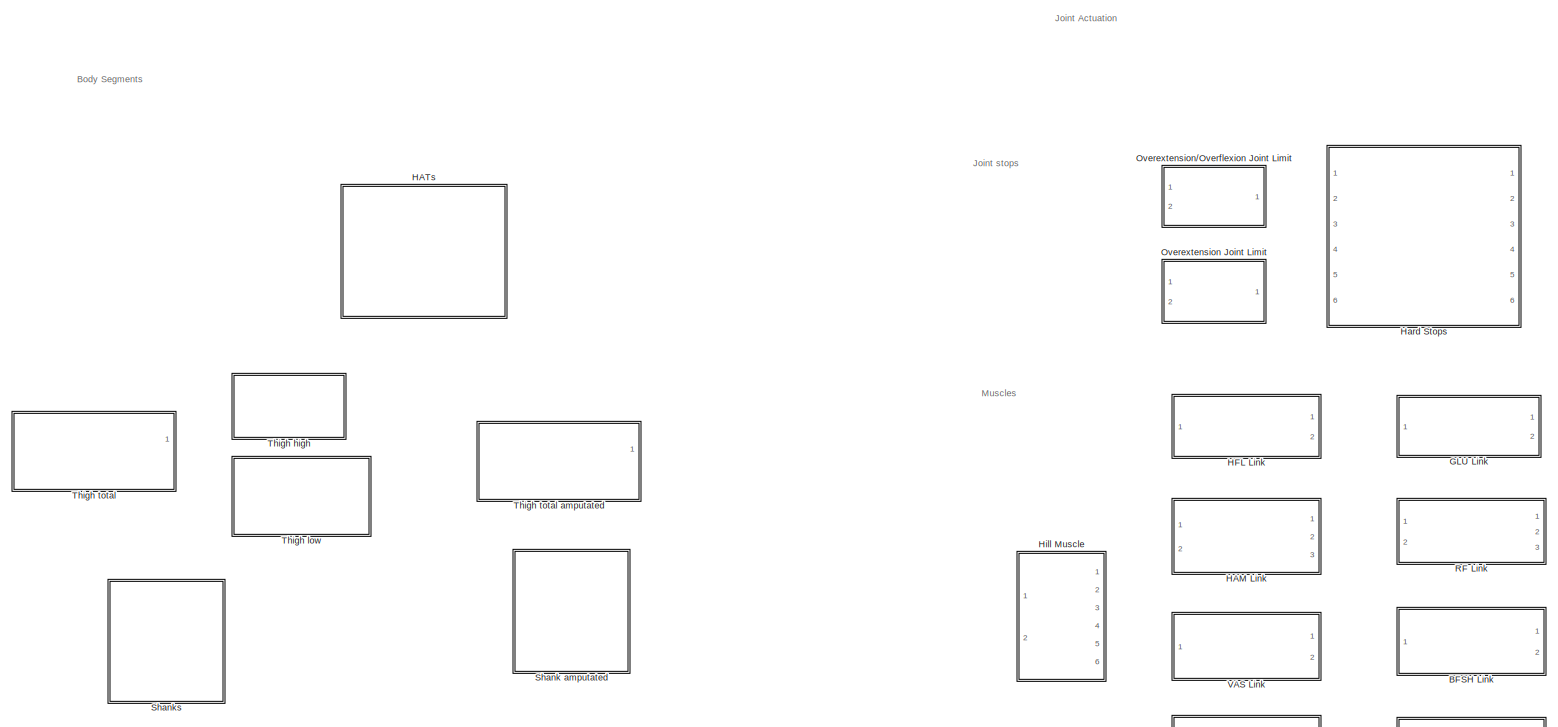
[diagram: root canvas - part 1/9, top center region]
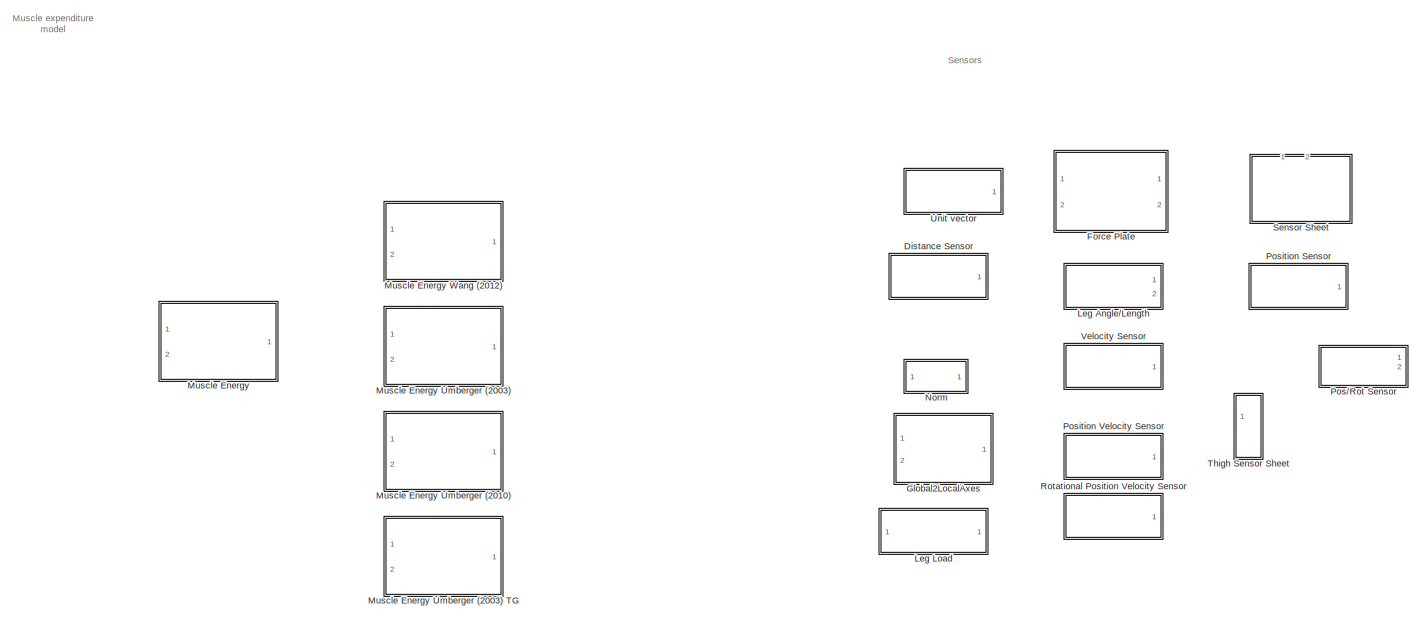
[diagram: root canvas - part 2/9, top right region]
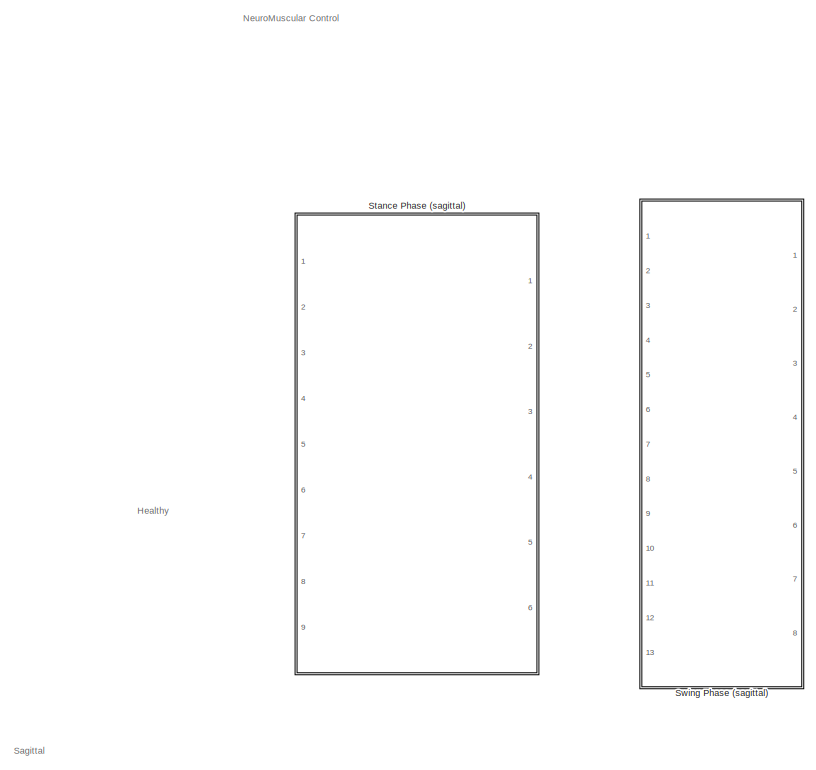
[diagram: root canvas - part 3/9, top left region]
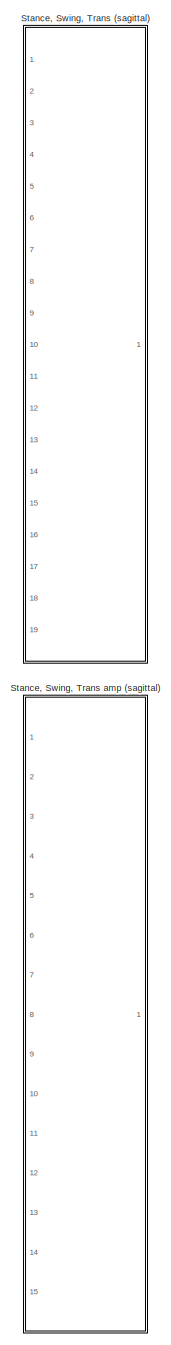
[diagram: root canvas - part 4/9, middle left region]
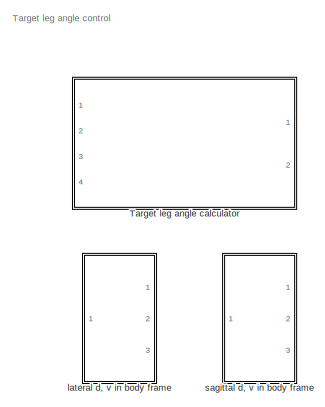
[diagram: root canvas - part 5/9, middle left region]
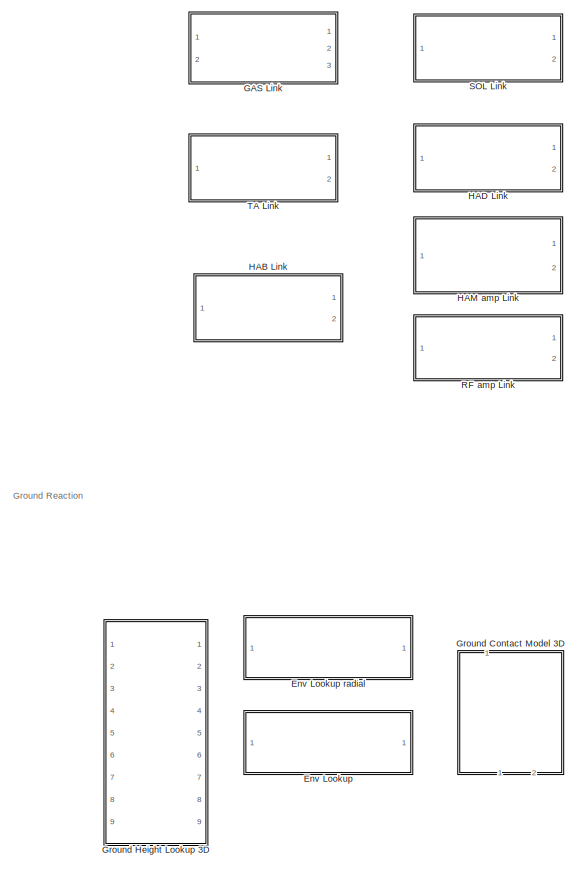
[diagram: root canvas - part 6/9, central region]
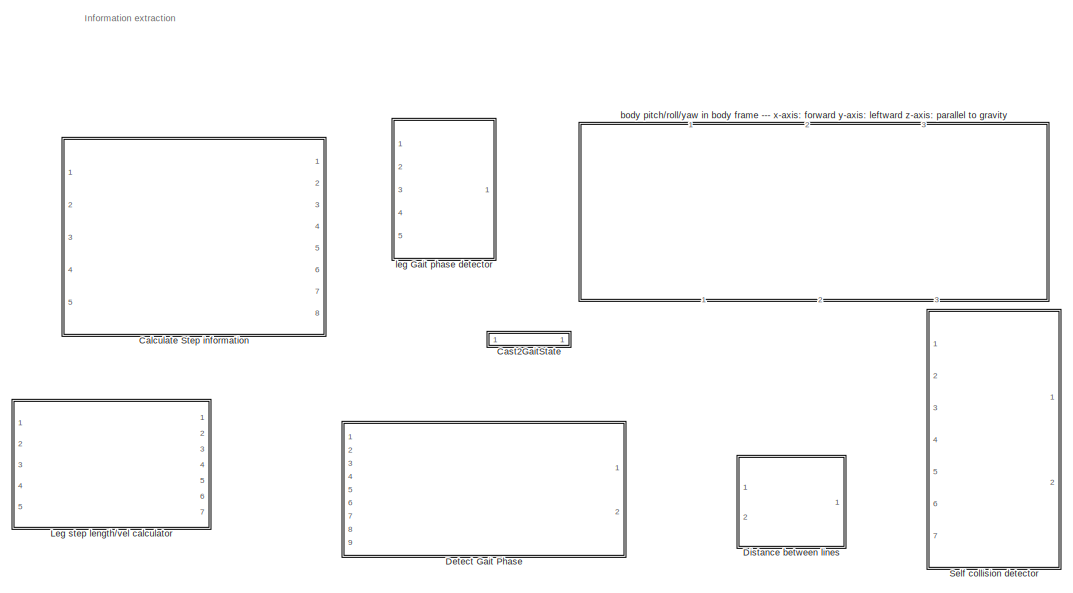
[diagram: root canvas - part 7/9, middle right region]
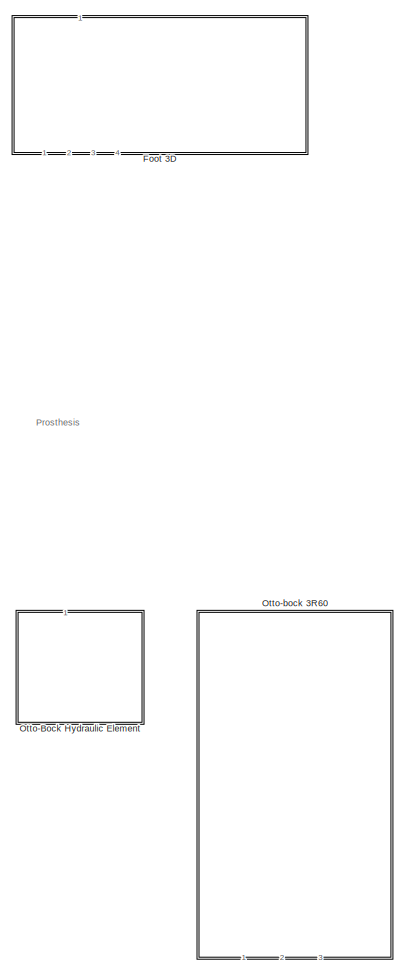
[diagram: root canvas - part 8/9, central region]
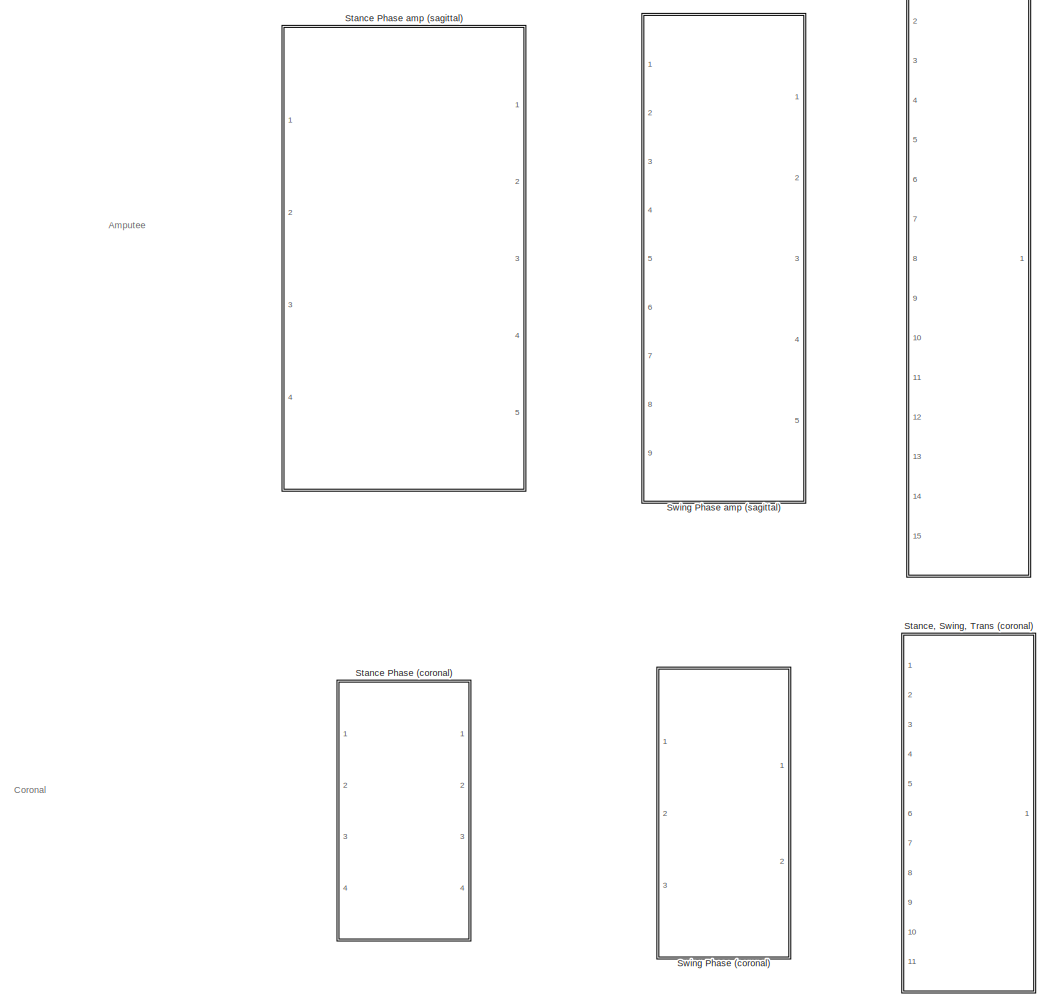
[diagram: root canvas - part 9/9, bottom left region]
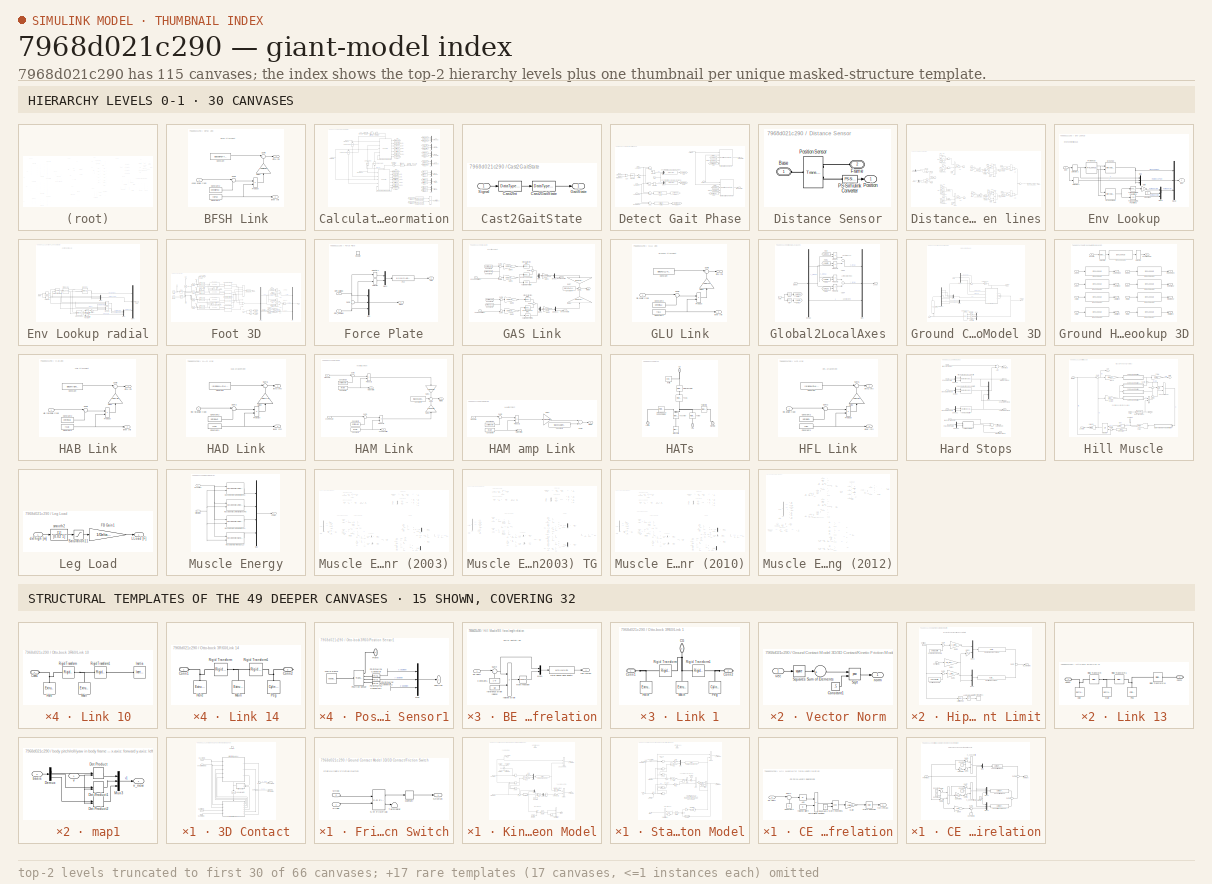
[diagram: thumbnail index - top-2 hierarchy levels (66 canvases (first 30 of 66 shown)) + 15 structural-template representatives of the remaining 49 canvases]
MODEL slx_7968d021c290
KIND library
CONFIG AbsTol = auto
CONFIG EnableMultiTasking = on
CONFIG FixedStep = auto
CONFIG MaxStep = auto
CONFIG MinStep = auto
CONFIG RelTol = 1e-3
CONFIG SampleTimeConstraint = Unconstrained
CONFIG Solver = ode45
CONFIG SolverName = ode45
CONFIG StartTime = 0.0
CONFIG StopTime = 10.0
BLOCK [SubSystem] BFSH Link
  Ports = [1, 2]
  RequestExecContextInheritance = off
BLOCK [Constant] BFSH Link/Constant
  Value = lslackBFSH+loptBFSH
BLOCK [Constant] BFSH Link/Constant1
  Value = rBFSH
BLOCK [Constant] BFSH Link/Constant2
  Value = phirefBFSH
BLOCK [Gain] BFSH Link/Gain2
  Gain = rhoBFSH
  OutDataTypeStr = Inherit: Inherit via internal rule
  ParamDataTypeStr = Inherit: Inherit via internal rule
  SaturateOnIntegerOverflow = off
BLOCK [Product] BFSH Link/Product
  InputSameDT = off
  OutDataTypeStr = Inherit: Inherit via internal rule
  Ports = [2, 1]
  SaturateOnIntegerOverflow = off
BLOCK [Sum] BFSH Link/Sum2
  IconShape = round
  InputSameDT = off
  Inputs = |-+
  OutDataTypeStr = Inherit: Inherit via internal rule
  Ports = [2, 1]
  SaturateOnIntegerOverflow = off
BLOCK [Sum] BFSH Link/Sum5
  IconShape = round
  InputSameDT = off
  Inputs = |++
  OutDataTypeStr = Inherit: Inherit via internal rule
  Ports = [2, 1]
  SaturateOnIntegerOverflow = off
BLOCK [Inport] BFSH Link/knee angle [rad]
  IconDisplay = Port number
BLOCK [Outport] BFSH Link/lever [m]
  IconDisplay = Port number
  Port = 2
BLOCK [Outport] BFSH Link/lmtu [m]
  IconDisplay = Port number
BLOCK [SubSystem] Calculate Step information
  Ports = [5, 8]
  RequestExecContextInheritance = off
BLOCK [Logic] Calculate Step information/AND
  AllPortsSameDT = off
  OutDataTypeStr = boolean
  Ports = [2, 1]
BLOCK [DataTypeConversion] Calculate Step information/Cast2Int
  OutDataTypeStr = int8
  RndMeth = Floor
  SaturateOnIntegerOverflow = off
BLOCK [DataTypeConversion] Calculate Step information/Cast2Int1
  OutDataTypeStr = int8
  RndMeth = Floor
  SaturateOnIntegerOverflow = off
BLOCK [Reference] Calculate Step information/Compare To Constant  REF=simulink/Logic and Bit
Operations/Compare
To Constant
  Ports = [1, 1]
  SourceBlock = simulink/Logic and Bit\nOperations/Compare\nTo Constant
  SourceProductBaseCode = SL
  SourceProductName = Simulink
  SourceType = Compare To Constant
BLOCK [Reference] Calculate Step information/Compare To Constant1  REF=simulink/Logic and Bit
Operations/Compare
To Constant
  Ports = [1, 1]
  SourceBlock = simulink/Logic and Bit\nOperations/Compare\nTo Constant
  SourceProductBaseCode = SL
  SourceProductName = Simulink
  SourceType = Compare To Constant
BLOCK [Reference] Calculate Step information/Compare To Constant2  REF=simulink/Logic and Bit
Operations/Compare
To Constant
  Ports = [1, 1]
  SourceBlock = simulink/Logic and Bit\nOperations/Compare\nTo Constant
  SourceProductBaseCode = SL
  SourceProductName = Simulink
  SourceType = Compare To Constant
BLOCK [Reference] Calculate Step information/Compare To Constant7  REF=simulink/Logic and Bit
Operations/Compare
To Constant
  Ports = [1, 1]
  SourceBlock = simulink/Logic and Bit\nOperations/Compare\nTo Constant
  SourceProductBaseCode = SL
  SourceProductName = Simulink
  SourceType = Compare To Constant
BLOCK [Reference] Calculate Step information/Difference1  REF=simulink/Discrete/Difference
  Ports = [1, 1]
  SourceBlock = simulink/Discrete/Difference
  SourceProductBaseCode = SL
  SourceProductName = Simulink
  SourceType = Difference
BLOCK [Reference] Calculate Step information/Difference2  REF=simulink/Discrete/Difference
  Ports = [1, 1]
  SourceBlock = simulink/Discrete/Difference
  SourceProductBaseCode = SL
  SourceProductName = Simulink
  SourceType = Difference
BLOCK [From] Calculate Step information/From
  GotoTag = RStepLength
BLOCK [From] Calculate Step information/From1
  GotoTag = RStepTime
BLOCK [From] Calculate Step information/From10
  GotoTag = LStepNum
BLOCK [From] Calculate Step information/From11
  GotoTag = RStepNum
BLOCK [From] Calculate Step information/From12
  GotoTag = LStrideVel
BLOCK [From] Calculate Step information/From13
  GotoTag = RStrideVel
BLOCK [From] Calculate Step information/From14
  GotoTag = RStrideTime
BLOCK [From] Calculate Step information/From15
  GotoTag = RStrideLength
BLOCK [From] Calculate Step information/From2
  GotoTag = LStepLength
BLOCK [From] Calculate Step information/From3
  GotoTag = LStepTime
BLOCK [From] Calculate Step information/From4
  GotoTag = RStepVel
BLOCK [From] Calculate Step information/From5
  GotoTag = LStepVel
BLOCK [From] Calculate Step information/From6
  GotoTag = LStrideTime
BLOCK [From] Calculate Step information/From7
  GotoTag = LStrideLength
BLOCK [From] Calculate Step information/From8
  GotoTag = RStepNum
BLOCK [From] Calculate Step information/From9
  GotoTag = LStepNum
BLOCK [Goto] Calculate Step information/Goto
  GotoTag = LStepLength
BLOCK [Goto] Calculate Step information/Goto1
  GotoTag = LStepTime
BLOCK [Goto] Calculate Step information/Goto10
  GotoTag = LStrideVel
BLOCK [Goto] Calculate Step information/Goto11
  GotoTag = RStrideLength
BLOCK [Goto] Calculate Step information/Goto12
  GotoTag = RStrideTime
BLOCK [Goto] Calculate Step information/Goto13
  GotoTag = RStrideVel
BLOCK [Goto] Calculate Step information/Goto2
  GotoTag = RStepLength
BLOCK [Goto] Calculate Step information/Goto3
  GotoTag = RStepTime
BLOCK [Goto] Calculate Step information/Goto4
  GotoTag = LStepVel
BLOCK [Goto] Calculate Step information/Goto5
  GotoTag = RStepVel
BLOCK [Goto] Calculate Step information/Goto6
  GotoTag = RStepNum
BLOCK [Goto] Calculate Step information/Goto7
  GotoTag = LStepNum
BLOCK [Goto] Calculate Step information/Goto8
  GotoTag = LStrideLength
BLOCK [Goto] Calculate Step information/Goto9
  GotoTag = LStrideTime
BLOCK [Inport] Calculate Step information/Left Ankle Pos
  IconDisplay = Port number
  Port = 4
BLOCK [Reference] Calculate Step information/Left Leg step length//vel calculator  REF=$bdroot/Leg step length//vel calculator
  Ports = [5, 7, 1]
  SourceBlock = $bdroot/Leg step length//vel calculator
  SourceType = SubSystem
BLOCK [Mux] Calculate Step information/Mux
  DisplayOption = bar
  Inputs = 2
  Ports = [2, 1]
BLOCK [Mux] Calculate Step information/Mux1
  DisplayOption = bar
  Inputs = 2
  Ports = [2, 1]
BLOCK [Mux] Calculate Step information/Mux2
  DisplayOption = bar
  Inputs = 2
  Ports = [2, 1]
BLOCK [Mux] Calculate Step information/Mux3
  DisplayOption = bar
  Inputs = 2
  Ports = [2, 1]
BLOCK [Mux] Calculate Step information/Mux4
  DisplayOption = bar
  Inputs = 2
  Ports = [2, 1]
BLOCK [Mux] Calculate Step information/Mux5
  DisplayOption = bar
  Inputs = 2
  Ports = [2, 1]
BLOCK [Mux] Calculate Step information/Mux6
  DisplayOption = bar
  Inputs = 2
  Ports = [2, 1]
BLOCK [Inport] Calculate Step information/Right Ankle Pos 
  IconDisplay = Port number
  Port = 5
BLOCK [Reference] Calculate Step information/Right Leg step length//vel calculator  REF=$bdroot/Leg step length//vel calculator
  Ports = [5, 7, 1]
  SourceBlock = $bdroot/Leg step length//vel calculator
  SourceType = SubSystem
BLOCK [Reference] Calculate Step information/Sample and Hold  REF=dspsigops/Sample
and Hold
  Ports = [1, 1, 0, 1]
  SourceBlock = dspsigops/Sample\nand Hold
  SourceProductBaseCode = DS
  SourceProductName = DSP System Toolbox
  SourceType = Sample and Hold
BLOCK [Reference] Calculate Step information/Sample and Hold1  REF=dspsigops/Sample
and Hold
  Ports = [1, 1, 0, 1]
  SourceBlock = dspsigops/Sample\nand Hold
  SourceProductBaseCode = DS
  SourceProductName = DSP System Toolbox
  SourceType = Sample and Hold
BLOCK [Reference] Calculate Step information/Sample and Hold2  REF=dspsigops/Sample
and Hold
  Ports = [1, 1, 0, 1]
  SourceBlock = dspsigops/Sample\nand Hold
  SourceProductBaseCode = DS
  SourceProductName = DSP System Toolbox
  SourceType = Sample and Hold
BLOCK [Reference] Calculate Step information/Sample and Hold3  REF=dspsigops/Sample
and Hold
  Ports = [1, 1, 0, 1]
  SourceBlock = dspsigops/Sample\nand Hold
  SourceProductBaseCode = DS
  SourceProductName = DSP System Toolbox
  SourceType = Sample and Hold
BLOCK [Inport] Calculate Step information/Simulation time
  IconDisplay = Port number
  Port = 3
BLOCK [Outport] Calculate Step information/Step numbers
  IconDisplay = Port number
  Port = 4
BLOCK [Outport] Calculate Step information/Stride times
  IconDisplay = Port number
  Port = 6
BLOCK [Outport] Calculate Step information/Stride vels
  IconDisplay = Port number
  Port = 7
BLOCK [Outport] Calculate Step information/`Stride lengths
  IconDisplay = Port number
  Port = 5
BLOCK [Outport] Calculate Step information/is past init steps?
  IconDisplay = Port number
  Port = 8
BLOCK [Inport] Calculate Step information/leftLegState
  IconDisplay = Port number
BLOCK [Inport] Calculate Step information/rightLegState
  IconDisplay = Port number
  Port = 2
BLOCK [Outport] Calculate Step information/stepLengths
  IconDisplay = Port number
BLOCK [Outport] Calculate Step information/stepTimes
  IconDisplay = Port number
  Port = 2
BLOCK [Outport] Calculate Step information/stepVelocities
  IconDisplay = Port number
  Port = 3
BLOCK [SubSystem] Cast2GaitState
  Ports = [1, 1]
  RequestExecContextInheritance = off
BLOCK [DataTypeConversion] Cast2GaitState/Cast2GaitState
  OutDataTypeStr = Enum: GaitState
  RndMeth = Floor
  SaturateOnIntegerOverflow = off
BLOCK [DataTypeConversion] Cast2GaitState/Cast2Int
  OutDataTypeStr = int8
  RndMeth = Floor
  SaturateOnIntegerOverflow = off
BLOCK [Outport] Cast2GaitState/GaitState
  IconDisplay = Port number
  OutDataTypeStr = Enum: GaitState
BLOCK [Inport] Cast2GaitState/Signal
  IconDisplay = Port number
BLOCK [SubSystem] Detect Gait Phase
  Ports = [9, 2]
  RequestExecContextInheritance = off
BLOCK [Sum] Detect Gait Phase/Add
  InputSameDT = off
  Inputs = +-
  OutDataTypeStr = Inherit: Inherit via internal rule
  Ports = [2, 1]
  SaturateOnIntegerOverflow = off
BLOCK [Sum] Detect Gait Phase/Add1
  InputSameDT = off
  Inputs = -+
  OutDataTypeStr = Inherit: Inherit via internal rule
  Ports = [2, 1]
  SaturateOnIntegerOverflow = off
BLOCK [Sum] Detect Gait Phase/Add2
  InputSameDT = off
  Inputs = +-
  OutDataTypeStr = Inherit: Inherit via internal rule
  Ports = [2, 1]
  SaturateOnIntegerOverflow = off
BLOCK [Sum] Detect Gait Phase/Add3
  InputSameDT = off
  Inputs = +-
  OutDataTypeStr = Inherit: Inherit via internal rule
  Ports = [2, 1]
  SaturateOnIntegerOverflow = off
BLOCK [Sum] Detect Gait Phase/Add4
  InputSameDT = off
  OutDataTypeStr = Inherit: Inherit via internal rule
  Ports = [2, 1]
  SaturateOnIntegerOverflow = off
BLOCK [From] Detect Gait Phase/From
  GotoTag = LnormFootShank
BLOCK [From] Detect Gait Phase/From1
  GotoTag = RnormFootShank
BLOCK [From] Detect Gait Phase/From2
  GotoTag = RsagPos
BLOCK [From] Detect Gait Phase/From3
  GotoTag = LsagPos
BLOCK [From] Detect Gait Phase/From4
  GotoTag = LsagPos
BLOCK [From] Detect Gait Phase/From5
  GotoTag = RsagPos
BLOCK [Goto] Detect Gait Phase/Goto
  GotoTag = LsagPos
BLOCK [Goto] Detect Gait Phase/Goto1
  GotoTag = RsagPos
BLOCK [Goto] Detect Gait Phase/Goto3
  GotoTag = RnormFootShank
BLOCK [Goto] Detect Gait Phase/Goto4
  GotoTag = LnormFootShank
BLOCK [Inport] Detect Gait Phase/LAnkle pos
  IconDisplay = Port number
  Port = 3
BLOCK [Inport] Detect Gait Phase/LHip pos vel
  IconDisplay = Port number
BLOCK [Inport] Detect Gait Phase/LShank pos
  IconDisplay = Port number
  Port = 5
BLOCK [Reference] Detect Gait Phase/Left leg Gait phase detector  REF=$bdroot/leg Gait phase detector
  Ports = [5, 1]
  SourceBlock = $bdroot/leg Gait phase detector
  SourceType = SubSystem
BLOCK [Inport] Detect Gait Phase/Lstance
  IconDisplay = Port number
  Port = 7
BLOCK [Gain] Detect Gait Phase/Multiply
  Gain = 1/2
  OutDataTypeStr = Inherit: Inherit via internal rule
  ParamDataTypeStr = Inherit: Inherit via internal rule
  SaturateOnIntegerOverflow = off
BLOCK [Mux] Detect Gait Phase/Mux
  DisplayOption = bar
  Inputs = 2
  Ports = [2, 1]
BLOCK [Mux] Detect Gait Phase/Mux1
  DisplayOption = bar
  Inputs = 2
  Ports = [2, 1]
BLOCK [Fcn] Detect Gait Phase/Norm
  Expr = sqrt( u(1)^2 + u(2)^2 + u(3)^2 )
BLOCK [Fcn] Detect Gait Phase/Norm1
  Expr = sqrt( u(1)^2 + u(2)^2 + u(3)^2 )
BLOCK [Inport] Detect Gait Phase/RAnkle pos
  IconDisplay = Port number
  Port = 4
BLOCK [Inport] Detect Gait Phase/RHip pos vel
  IconDisplay = Port number
  Port = 2
BLOCK [Inport] Detect Gait Phase/RShank pos
  IconDisplay = Port number
  Port = 6
BLOCK [Reference] Detect Gait Phase/Right leg Gait phase detector  REF=$bdroot/leg Gait phase detector
  Ports = [5, 1]
  SourceBlock = $bdroot/leg Gait phase detector
  SourceType = SubSystem
BLOCK [Inport] Detect Gait Phase/Rstance
  IconDisplay = Port number
  Port = 8
BLOCK [Selector] Detect Gait Phase/Selector
  IndexOptions = Index vector (dialog)
  Indices = [1 2]
  InputPortWidth = 3
  OutputSizes = 1
  Ports = [1, 1]
BLOCK [Selector] Detect Gait Phase/Selector1
  IndexOptions = Index vector (dialog)
  Indices = [1 2]
  InputPortWidth = 3
  OutputSizes = 1
  Ports = [1, 1]
BLOCK [Selector] Detect Gait Phase/Selector4
  IndexOptions = Index vector (dialog)
  Indices = [1 2 3]
  InputPortWidth = 6
  OutputSizes = 1
  Ports = [1, 1]
BLOCK [Fcn] Detect Gait Phase/body frame in transverse plane (xz-plane)
  Expr = u(1)*cos(u(3)) + u(2)*sin(u(3))
BLOCK [Fcn] Detect Gait Phase/body frame in transverse plane (xz-plane)1
  Expr = u(2)*cos(u(1)) + u(3)*sin(u(1))
BLOCK [Outport] Detect Gait Phase/leftLegState
  IconDisplay = Port number
BLOCK [Outport] Detect Gait Phase/rightLegState
  IconDisplay = Port number
  Port = 2
BLOCK [Inport] Detect Gait Phase/yaw
  IconDisplay = Port number
  Port = 9
BLOCK [SubSystem] Distance Sensor
  Ports = [0, 1, 0, 0, 0, 2]
  RequestExecContextInheritance = off
BLOCK [PMIOPort] Distance Sensor/Base
  Side = Left
BLOCK [PMIOPort] Distance Sensor/Frame
  Port = 2
  Side = Left
BLOCK [Reference] Distance Sensor/PS-Simulink Converter  REF=nesl_utility/PS-Simulink
Converter
  Ports = [0, 1, 0, 0, 0, 1]
  SourceBlock = nesl_utility/PS-Simulink\nConverter
  SourceProductBaseCode = SS
  SourceProductName = Simscape
  SourceType = PS-Simulink\nConverter
BLOCK [Outport] Distance Sensor/Position
  IconDisplay = Port number
BLOCK [Reference] Distance Sensor/Position Sensor  REF=sm_lib/Frames and
Transforms/Transform
Sensor
  Ports = [0, 0, 0, 0, 0, 1, 2]
  SourceBlock = sm_lib/Frames and\nTransforms/Transform\nSensor
  SourceProductBaseCode = MS
  SourceProductName = Simscape Multibody
  SourceType = Transform\nSensor
BLOCK [SubSystem] Distance between lines
  Ports = [2, 1]
  RequestExecContextInheritance = off
BLOCK [Sum] Distance between lines/Add
  InputSameDT = off
  Inputs = -+
  OutDataTypeStr = Inherit: Inherit via internal rule
  Ports = [2, 1]
  SaturateOnIntegerOverflow = off
BLOCK [Sum] Distance between lines/Add1
  InputSameDT = off
  Inputs = -+
  OutDataTypeStr = Inherit: Inherit via internal rule
  Ports = [2, 1]
  SaturateOnIntegerOverflow = off
BLOCK [Sum] Distance between lines/Add10
  InputSameDT = off
  Inputs = +-
  OutDataTypeStr = Inherit: Inherit via internal rule
  Ports = [2, 1]
  SaturateOnIntegerOverflow = off
BLOCK [Sum] Distance between lines/Add11
  InputSameDT = off
  OutDataTypeStr = Inherit: Inherit via internal rule
  Ports = [2, 1]
  SaturateOnIntegerOverflow = off
BLOCK [Sum] Distance between lines/Add12
  InputSameDT = off
  OutDataTypeStr = Inherit: Inherit via internal rule
  Ports = [2, 1]
  SaturateOnIntegerOverflow = off
BLOCK [Sum] Distance between lines/Add13
  InputSameDT = off
  OutDataTypeStr = Inherit: Inherit via internal rule
  Ports = [2, 1]
  SaturateOnIntegerOverflow = off
BLOCK [Sum] Distance between lines/Add14
  InputSameDT = off
  Inputs = +-
  OutDataTypeStr = Inherit: Inherit via internal rule
  Ports = [2, 1]
  SaturateOnIntegerOverflow = off
BLOCK [Sum] Distance between lines/Add15
  CollapseMode = Specified dimension
  InputSameDT = off
  Inputs = +
  OutDataTypeStr = Inherit: Inherit via internal rule
  Ports = [1, 1]
  SaturateOnIntegerOverflow = off
BLOCK [Sum] Distance between lines/Add2
  InputSameDT = off
  Inputs = +-
  OutDataTypeStr = Inherit: Inherit via internal rule
  Ports = [2, 1]
  SaturateOnIntegerOverflow = off
BLOCK [Sum] Distance between lines/Add3
  InputSameDT = off
  OutDataTypeStr = Inherit: Inherit via internal rule
  Ports = [2, 1]
  SaturateOnIntegerOverflow = off
BLOCK [Sum] Distance between lines/Add4
  InputSameDT = off
  Inputs = -+
  OutDataTypeStr = Inherit: Inherit via internal rule
  Ports = [2, 1]
  SaturateOnIntegerOverflow = off
BLOCK [Sum] Distance between lines/Add5
  InputSameDT = off
  OutDataTypeStr = Inherit: Inherit via internal rule
  Ports = [2, 1]
  SaturateOnIntegerOverflow = off
BLOCK [Sum] Distance between lines/Add6
  InputSameDT = off
  Inputs = +-
  OutDataTypeStr = Inherit: Inherit via internal rule
  Ports = [2, 1]
  SaturateOnIntegerOverflow = off
BLOCK [Sum] Distance between lines/Add7
  InputSameDT = off
  OutDataTypeStr = Inherit: Inherit via internal rule
  Ports = [2, 1]
  SaturateOnIntegerOverflow = off
BLOCK [Sum] Distance between lines/Add8
  InputSameDT = off
  OutDataTypeStr = Inherit: Inherit via internal rule
  Ports = [2, 1]
  SaturateOnIntegerOverflow = off
BLOCK [Sum] Distance between lines/Add9
  InputSameDT = off
  OutDataTypeStr = Inherit: Inherit via internal rule
  Ports = [2, 1]
  SaturateOnIntegerOverflow = off
BLOCK [Reference] Distance between lines/Compare To Constant  REF=simulink/Logic and Bit
Operations/Compare
To Constant
  Ports = [1, 1]
  SourceBlock = simulink/Logic and Bit\nOperations/Compare\nTo Constant
  SourceProductBaseCode = SL
  SourceProductName = Simulink
  SourceType = Compare To Constant
BLOCK [Reference] Distance between lines/Compare To Constant1  REF=simulink/Logic and Bit
Operations/Compare
To Constant
  Ports = [1, 1]
  SourceBlock = simulink/Logic and Bit\nOperations/Compare\nTo Constant
  SourceProductBaseCode = SL
  SourceProductName = Simulink
  SourceType = Compare To Constant
BLOCK [Reference] Distance between lines/Compare To Constant2  REF=simulink/Logic and Bit
Operations/Compare
To Constant
  Ports = [1, 1]
  SourceBlock = simulink/Logic and Bit\nOperations/Compare\nTo Constant
  SourceProductBaseCode = SL
  SourceProductName = Simulink
  SourceType = Compare To Constant
BLOCK [Reference] Distance between lines/Compare To Constant3  REF=simulink/Logic and Bit
Operations/Compare
To Constant
  Ports = [1, 1]
  SourceBlock = simulink/Logic and Bit\nOperations/Compare\nTo Constant
  SourceProductBaseCode = SL
  SourceProductName = Simulink
  SourceType = Compare To Constant
BLOCK [Reference] Distance between lines/Compare To Constant4  REF=simulink/Logic and Bit
Operations/Compare
To Constant
  Ports = [1, 1]
  SourceBlock = simulink/Logic and Bit\nOperations/Compare\nTo Constant
  SourceProductBaseCode = SL
  SourceProductName = Simulink
  SourceType = Compare To Constant
BLOCK [Reference] Distance between lines/Compare To Constant5  REF=simulink/Logic and Bit
Operations/Compare
To Constant
  Ports = [1, 1]
  SourceBlock = simulink/Logic and Bit\nOperations/Compare\nTo Constant
  SourceProductBaseCode = SL
  SourceProductName = Simulink
  SourceType = Compare To Constant
BLOCK [Reference] Distance between lines/Cross Product  REF=vrlib/Utilities/Cross Product
  Ports = [2, 1]
  SourceBlock = vrlib/Utilities/Cross Product
  SourceProductBaseCode = SL
  SourceProductName = Simulink
  SourceType = Cross Product
BLOCK [Reference] Distance between lines/Cross Product1  REF=vrlib/Utilities/Cross Product
  Ports = [2, 1]
  SourceBlock = vrlib/Utilities/Cross Product
  SourceProductBaseCode = SL
  SourceProductName = Simulink
  SourceType = Cross Product
BLOCK [Reference] Distance between lines/Cross Product2  REF=vrlib/Utilities/Cross Product
  Ports = [2, 1]
  SourceBlock = vrlib/Utilities/Cross Product
  SourceProductBaseCode = SL
  SourceProductName = Simulink
  SourceType = Cross Product
BLOCK [Reference] Distance between lines/Cross Product3  REF=vrlib/Utilities/Cross Product
  Ports = [2, 1]
  SourceBlock = vrlib/Utilities/Cross Product
  SourceProductBaseCode = SL
  SourceProductName = Simulink
  SourceType = Cross Product
BLOCK [Reference] Distance between lines/Cross Product4  REF=vrlib/Utilities/Cross Product
  Ports = [2, 1]
  SourceBlock = vrlib/Utilities/Cross Product
  SourceProductBaseCode = SL
  SourceProductName = Simulink
  SourceType = Cross Product
BLOCK [Demux] Distance between lines/Demux
  DisplayOption = bar
  Outputs = 2
  Ports = [1, 2]
BLOCK [Demux] Distance between lines/Demux1
  DisplayOption = bar
  Outputs = 2
  Ports = [1, 2]
BLOCK [DotProduct] Distance between lines/Dot Product
  OutDataTypeStr = Inherit: Inherit via internal rule
BLOCK [DotProduct] Distance between lines/Dot Product1
  OutDataTypeStr = Inherit: Inherit via internal rule
BLOCK [DotProduct] Distance between lines/Dot Product2
  OutDataTypeStr = Inherit: Inherit via internal rule
BLOCK [DotProduct] Distance between lines/Dot Product3
  OutDataTypeStr = Inherit: Inherit via internal rule
BLOCK [From] Distance between lines/From
  GotoTag = r1
BLOCK [From] Distance between lines/From1
  GotoTag = r2
BLOCK [From] Distance between lines/From10
  GotoTag = r2
BLOCK [From] Distance between lines/From11
  GotoTag = e1
BLOCK [From] Distance between lines/From12
  GotoTag = n
BLOCK [From] Distance between lines/From13
  GotoTag = e2
BLOCK [From] Distance between lines/From14
  GotoTag = e2
BLOCK [From] Distance between lines/From15
  GotoTag = e1
BLOCK [From] Distance between lines/From16
  GotoTag = n
BLOCK [From] Distance between lines/From17
  GotoTag = r2
BLOCK [From] Distance between lines/From18
  GotoTag = c1
BLOCK [From] Distance between lines/From19
  GotoTag = r1
BLOCK [From] Distance between lines/From2
  GotoTag = e2
BLOCK [From] Distance between lines/From20
  GotoTag = e1
BLOCK [From] Distance between lines/From21
  GotoTag = r1
BLOCK [From] Distance between lines/From22
  GotoTag = e1
BLOCK [From] Distance between lines/From23
  GotoTag = r1
BLOCK [From] Distance between lines/From24
  GotoTag = c1
BLOCK [From] Distance between lines/From25
  GotoTag = c2
BLOCK [From] Distance between lines/From26
  GotoTag = r2
BLOCK [From] Distance between lines/From27
  GotoTag = e2
BLOCK [From] Distance between lines/From28
  GotoTag = r2
BLOCK [From] Distance between lines/From29
  GotoTag = e2
BLOCK [From] Distance between lines/From3
  GotoTag = n
BLOCK [From] Distance between lines/From30
  GotoTag = r2
BLOCK [From] Distance between lines/From31
  GotoTag = c2
BLOCK [From] Distance between lines/From4
  GotoTag = e1
BLOCK [From] Distance between lines/From5
  GotoTag = e1
BLOCK [From] Distance between lines/From6
  GotoTag = e2
BLOCK [From] Distance between lines/From7
  GotoTag = n
BLOCK [From] Distance between lines/From8
  GotoTag = r1
BLOCK [From] Distance between lines/From9
  GotoTag = r1
BLOCK [Goto] Distance between lines/Goto
  GotoTag = r1
BLOCK [Goto] Distance between lines/Goto1
  GotoTag = e1
BLOCK [Goto] Distance between lines/Goto2
  GotoTag = r2
BLOCK [Goto] Distance between lines/Goto3
  GotoTag = e2
BLOCK [Goto] Distance between lines/Goto4
  GotoTag = n
BLOCK [Goto] Distance between lines/Goto5
  GotoTag = c1
BLOCK [Goto] Distance between lines/Goto6
  GotoTag = c2
BLOCK [MinMax] Distance between lines/Max
  InputSameDT = off
  Ports = [1, 1]
  SaturateOnIntegerOverflow = off
BLOCK [MinMax] Distance between lines/Max1
  InputSameDT = off
  Ports = [1, 1]
  SaturateOnIntegerOverflow = off
BLOCK [MinMax] Distance between lines/Max2
  InputSameDT = off
  Ports = [1, 1]
  SaturateOnIntegerOverflow = off
BLOCK [MinMax] Distance between lines/Max3
  InputSameDT = off
  Ports = [1, 1]
  SaturateOnIntegerOverflow = off
BLOCK [MinMax] Distance between lines/Min
  InputSameDT = off
  Ports = [1, 1]
  SaturateOnIntegerOverflow = off
BLOCK [MinMax] Distance between lines/Min1
  InputSameDT = off
  Ports = [1, 1]
  SaturateOnIntegerOverflow = off
BLOCK [Product] Distance between lines/Product
  InputSameDT = off
  Inputs = */*
  OutDataTypeStr = Inherit: Inherit via internal rule
  Ports = [3, 1]
  RndMeth = Floor
  SaturateOnIntegerOverflow = off
BLOCK [Product] Distance between lines/Product1
  InputSameDT = off
  Inputs = */*
  OutDataTypeStr = Inherit: Inherit via internal rule
  Ports = [3, 1]
  RndMeth = Floor
  SaturateOnIntegerOverflow = off
BLOCK [Product] Distance between lines/Product2
  InputSameDT = off
  Inputs = */
  OutDataTypeStr = Inherit: Inherit via internal rule
  Ports = [2, 1]
  RndMeth = Floor
  SaturateOnIntegerOverflow = off
BLOCK [Product] Distance between lines/Product3
  InputSameDT = off
  OutDataTypeStr = Inherit: Inherit via internal rule
  Ports = [2, 1]
  RndMeth = Floor
  SaturateOnIntegerOverflow = off
BLOCK [Product] Distance between lines/Product4
  InputSameDT = off
  OutDataTypeStr = Inherit: Inherit via internal rule
  Ports = [2, 1]
  RndMeth = Floor
  SaturateOnIntegerOverflow = off
BLOCK [Product] Distance between lines/Product5
  InputSameDT = off
  OutDataTypeStr = Inherit: Inherit via internal rule
  Ports = [2, 1]
  RndMeth = Floor
  SaturateOnIntegerOverflow = off
BLOCK [Product] Distance between lines/Product6
  InputSameDT = off
  Inputs = */
  OutDataTypeStr = Inherit: Inherit via internal rule
  Ports = [2, 1]
  RndMeth = Floor
  SaturateOnIntegerOverflow = off
BLOCK [Product] Distance between lines/Product7
  InputSameDT = off
  OutDataTypeStr = Inherit: Inherit via internal rule
  Ports = [2, 1]
  RndMeth = Floor
  SaturateOnIntegerOverflow = off
BLOCK [Product] Distance between lines/Product8
  InputSameDT = off
  OutDataTypeStr = Inherit: Inherit via internal rule
  Ports = [2, 1]
  RndMeth = Floor
  SaturateOnIntegerOverflow = off
BLOCK [Product] Distance between lines/Product9
  InputSameDT = off
  OutDataTypeStr = Inherit: Inherit via internal rule
  Ports = [2, 1]
  RndMeth = Floor
  SaturateOnIntegerOverflow = off
BLOCK [Math] Distance between lines/Square
  Operator = square
  Ports = [1, 1]
  SignedPower = off
BLOCK [Sqrt] Distance between lines/Square Root
BLOCK [Outport] Distance between lines/distance
  IconDisplay = Port number
BLOCK [Inport] Distance between lines/element 1
  IconDisplay = Port number
BLOCK [Inport] Distance between lines/element 2
  IconDisplay = Port number
  Port = 2
BLOCK [SubSystem] Env Lookup
  Ports = [1, 1]
  RequestExecContextInheritance = off
BLOCK [SubSystem] Env Lookup radial
  Ports = [1, 1]
  RequestExecContextInheritance = off
BLOCK [Math] Env Lookup radial/Distance from world
  Operator = hypot
  Ports = [2, 1]
  SignedPower = off
BLOCK [Outport] Env Lookup radial/Env
  IconDisplay = Port number
BLOCK [Gain] Env Lookup radial/Gain1
  Gain = -1
  OutDataTypeStr = Inherit: Inherit via internal rule
  ParamDataTypeStr = Inherit: Inherit via internal rule
  SaturateOnIntegerOverflow = off
BLOCK [Interpolation_n-D] Env Lookup radial/Ground Slope1
  InputPortMap = u0,u1
  IntermediateResultsDataTypeStr = Inherit: Inherit via internal rule
  InterpMethod = Flat
  NumberOfTableDimensions = 1
  Ports = [2, 1]
  Table = groundTheta
BLOCK [Interpolation_n-D] Env Lookup radial/Ground Z1
  InputPortMap = u0,u1
  IntermediateResultsDataTypeStr = Inherit: Inherit via internal rule
  NumberOfTableDimensions = 1
  Ports = [2, 1]
  Table = groundZ
BLOCK [Mux] Env Lookup radial/Mux2
  DisplayOption = bar
  Inputs = 3
  Ports = [3, 1]
BLOCK [Mux] Env Lookup radial/Mux3
  DisplayOption = bar
  Inputs = 3
  Ports = [3, 1]
BLOCK [Mux] Env Lookup radial/Mux4
  DisplayOption = bar
  Inputs = [1 3 3]
  Ports = [3, 1]
BLOCK [PreLookup] Env Lookup radial/Prelookup1
  BeginIndexSearchUsingPreviousIndexResult = on
  BreakpointsData = groundX
  ExtrapMethod = Linear
  InputPortMap = u0
  Ports = [1, 2]
  RndMeth = Simplest
BLOCK [Product] Env Lookup radial/Product
  InputSameDT = off
  Inputs = /**
  OutDataTypeStr = Inherit: Inherit via internal rule
  Ports = [3, 1]
  RndMeth = Floor
  SaturateOnIntegerOverflow = off
BLOCK [Product] Env Lookup radial/Product1
  InputSameDT = off
  Inputs = /**
  OutDataTypeStr = Inherit: Inherit via internal rule
  Ports = [3, 1]
  RndMeth = Floor
  SaturateOnIntegerOverflow = off
BLOCK [Selector] Env Lookup radial/Selector3
  IndexOptions = Index vector (dialog)
  Indices = [2]
  InputPortWidth = 3
  OutputSizes = 1
  Ports = [1, 1]
BLOCK [Selector] Env Lookup radial/Selector4
  IndexOptions = Index vector (dialog)
  Indices = [1]
  InputPortWidth = 3
  OutputSizes = 1
  Ports = [1, 1]
BLOCK [Trigonometry] Env Lookup radial/Trigonometric Function3
  Ports = [1, 1]
BLOCK [Trigonometry] Env Lookup radial/Trigonometric Function4
  Operator = cos
  Ports = [1, 1]
BLOCK [Inport] Env Lookup radial/pos
  IconDisplay = Port number
BLOCK [Constant] Env Lookup/Constant
  Value = 0
BLOCK [Outport] Env Lookup/Env
  IconDisplay = Port number
BLOCK [Gain] Env Lookup/Gain
  Gain = -1
  OutDataTypeStr = Inherit: Inherit via internal rule
  ParamDataTypeStr = Inherit: Inherit via internal rule
  SaturateOnIntegerOverflow = off
BLOCK [Interpolation_n-D] Env Lookup/Ground Slope
  InputPortMap = u0,u1
  IntermediateResultsDataTypeStr = Inherit: Inherit via internal rule
  InterpMethod = Flat
  NumberOfTableDimensions = 1
  Ports = [2, 1]
  Table = groundTheta
BLOCK [Interpolation_n-D] Env Lookup/Ground Z
  InputPortMap = u0,u1
  IntermediateResultsDataTypeStr = Inherit: Inherit via internal rule
  NumberOfTableDimensions = 1
  Ports = [2, 1]
  Table = groundZ
BLOCK [Mux] Env Lookup/Mux
  DisplayOption = bar
  Inputs = 3
  Ports = [3, 1]
BLOCK [Mux] Env Lookup/Mux1
  DisplayOption = bar
  Inputs = 3
  Ports = [3, 1]
BLOCK [Mux] Env Lookup/Mux8
  DisplayOption = bar
  Inputs = [1 3 3]
  Ports = [3, 1]
BLOCK [PreLookup] Env Lookup/Prelookup
  BeginIndexSearchUsingPreviousIndexResult = on
  BreakpointsData = groundX
  ExtrapMethod = Linear
  InputPortMap = u0
  Ports = [1, 2]
  RndMeth = Simplest
BLOCK [Selector] Env Lookup/Selector1
  IndexOptions = Index vector (dialog)
  Indices = [2]
  InputPortWidth = 3
  OutputSizes = 1
  Ports = [1, 1]
BLOCK [Selector] Env Lookup/Selector2
  IndexOptions = Index vector (dialog)
  Indices = [1]
  InputPortWidth = 3
  OutputSizes = 1
  Ports = [1, 1]
BLOCK [Trigonometry] Env Lookup/Trigonometric Function1
  Ports = [1, 1]
BLOCK [Trigonometry] Env Lookup/Trigonometric Function2
  Operator = cos
  Ports = [1, 1]
BLOCK [Inport] Env Lookup/pos
  IconDisplay = Port number
BLOCK [SubSystem] Foot 3D
  Ports = [1, 4, 0, 0, 0, 2, 7]
  RequestExecContextInheritance = off
BLOCK [Sum] Foot 3D/Add
  InputSameDT = off
  Inputs = ++++
  OutDataTypeStr = Inherit: Inherit via internal rule
  Ports = [4, 1]
  SaturateOnIntegerOverflow = off
BLOCK [Sum] Foot 3D/Add1
  InputSameDT = off
  OutDataTypeStr = Inherit: Inherit via internal rule
  Ports = [2, 1]
  SaturateOnIntegerOverflow = off
BLOCK [Sum] Foot 3D/Add2
  InputSameDT = off
  OutDataTypeStr = Inherit: Inherit via internal rule
  Ports = [2, 1]
  SaturateOnIntegerOverflow = off
BLOCK [Sum] Foot 3D/Add3
  InputSameDT = off
  OutDataTypeStr = Inherit: Inherit via internal rule
  Ports = [2, 1]
  SaturateOnIntegerOverflow = off
BLOCK [Sum] Foot 3D/Add4
  InputSameDT = off
  Inputs = -+
  OutDataTypeStr = Inherit: Inherit via internal rule
  Ports = [2, 1]
  SaturateOnIntegerOverflow = off
BLOCK [Sum] Foot 3D/Add5
  InputSameDT = off
  Inputs = -+
  OutDataTypeStr = Inherit: Inherit via internal rule
  Ports = [2, 1]
  SaturateOnIntegerOverflow = off
BLOCK [PMIOPort] Foot 3D/Ball+
  Port = 4
  Side = Right
BLOCK [PMIOPort] Foot 3D/Ball+ top
  Port = 8
  Side = Right
BLOCK [PMIOPort] Foot 3D/Ball-
  Port = 5
  Side = Right
BLOCK [PMIOPort] Foot 3D/Ball- top
  Port = 9
  Side = Right
BLOCK [Reference] Foot 3D/Brick Solid  REF=sm_lib/Body Elements/Brick Solid
  Ports = [0, 0, 0, 0, 0, 0, 1]
  SourceBlock = sm_lib/Body Elements/Brick Solid
  SourceProductBaseCode = MS
  SourceProductName = Simscape Multibody
  SourceType = Brick Solid
BLOCK [PMIOPort] Foot 3D/CG
  Port = 3
  Side = Left
BLOCK [DataTypeConversion] Foot 3D/Cast To Double
  OutDataTypeStr = double
  RndMeth = Floor
  SaturateOnIntegerOverflow = off
BLOCK [DataTypeConversion] Foot 3D/Cast To Double1
  OutDataTypeStr = double
  RndMeth = Floor
  SaturateOnIntegerOverflow = off
BLOCK [DataTypeConversion] Foot 3D/Cast To Double2
  OutDataTypeStr = double
  RndMeth = Floor
  SaturateOnIntegerOverflow = off
BLOCK [Reference] Foot 3D/Compare To Constant  REF=simulink/Logic and Bit
Operations/Compare
To Constant
  Ports = [1, 1]
  SourceBlock = simulink/Logic and Bit\nOperations/Compare\nTo Constant
  SourceProductBaseCode = SL
  SourceProductName = Simulink
  SourceType = Compare To Constant
BLOCK [Reference] Foot 3D/Compare To Constant1  REF=simulink/Logic and Bit
Operations/Compare
To Constant
  Ports = [1, 1]
  SourceBlock = simulink/Logic and Bit\nOperations/Compare\nTo Constant
  SourceProductBaseCode = SL
  SourceProductName = Simulink
  SourceType = Compare To Constant
BLOCK [Constant] Foot 3D/Constant
  Value = footSide
BLOCK [Trigonometry] Foot 3D/Cos
  Operator = cos
  Ports = [1, 1]
BLOCK [Demux] Foot 3D/Demux
  DisplayOption = bar
  Outputs = 3
  Ports = [1, 3]
BLOCK [Reference] Foot 3D/Env Lookup  REF=$bdroot/Env Lookup
  Ports = [1, 1]
  SourceBlock = $bdroot/Env Lookup
  SourceType = SubSystem
BLOCK [Reference] Foot 3D/Env Lookup1  REF=$bdroot/Env Lookup
  Ports = [1, 1]
  SourceBlock = $bdroot/Env Lookup
  SourceType = SubSystem
BLOCK [Reference] Foot 3D/Env Lookup2  REF=$bdroot/Env Lookup
  Ports = [1, 1]
  SourceBlock = $bdroot/Env Lookup
  SourceType = SubSystem
BLOCK [Reference] Foot 3D/Env Lookup3  REF=$bdroot/Env Lookup
  Ports = [1, 1]
  SourceBlock = $bdroot/Env Lookup
  SourceType = SubSystem
BLOCK [Reference] Foot 3D/Foot to Ankle  REF=sm_lib/Frames and
Transforms/Rigid
Transform
  Ports = [0, 0, 0, 0, 0, 1, 1]
  SourceBlock = sm_lib/Frames and\nTransforms/Rigid\nTransform
  SourceProductBaseCode = MS
  SourceProductName = Simscape Multibody
  SourceType = Rigid\nTransform
BLOCK [From] Foot 3D/From
  GotoTag = yawCos
BLOCK [From] Foot 3D/From1
  GotoTag = yawSin
BLOCK [From] Foot 3D/From2
  GotoTag = yawCos
BLOCK [From] Foot 3D/From3
  GotoTag = yawSin
BLOCK [Outport] Foot 3D/GRF
  IconDisplay = Port number
  Port = 2
BLOCK [Goto] Foot 3D/Goto
  GotoTag = yawCos
BLOCK [Goto] Foot 3D/Goto1
  GotoTag = yawSin
BLOCK [Reference] Foot 3D/Ground Contact Model 3D  REF=$bdroot/Ground Contact Model 3D
  Ports = [1, 2, 0, 0, 0, 1]
  SourceBlock = $bdroot/Ground Contact Model 3D
  SourceType = SubSystem
BLOCK [Reference] Foot 3D/Ground Contact Model 3D1  REF=$bdroot/Ground Contact Model 3D
  Ports = [1, 2, 0, 0, 0, 1]
  SourceBlock = $bdroot/Ground Contact Model 3D
  SourceType = SubSystem
BLOCK [Reference] Foot 3D/Ground Contact Model 3D2  REF=$bdroot/Ground Contact Model 3D
  Ports = [1, 2, 0, 0, 0, 1]
  SourceBlock = $bdroot/Ground Contact Model 3D
  SourceType = SubSystem
BLOCK [Reference] Foot 3D/Ground Contact Model 3D3  REF=$bdroot/Ground Contact Model 3D
  Ports = [1, 2, 0, 0, 0, 1]
  SourceBlock = $bdroot/Ground Contact Model 3D
  SourceType = SubSystem
BLOCK [Outport] Foot 3D/Heel pos
  IconDisplay = Port number
  Port = 4
BLOCK [PMIOPort] Foot 3D/Heel+
  Port = 6
  Side = Right
BLOCK [PMIOPort] Foot 3D/Heel-
  Port = 7
  Side = Right
BLOCK [Reference] Foot 3D/Inertia  REF=sm_lib/Body Elements/Inertia
  Ports = [0, 0, 0, 0, 0, 0, 1]
  SourceBlock = sm_lib/Body Elements/Inertia
  SourceProductBaseCode = MS
  SourceProductName = Simscape Multibody
  SourceType = Inertia
BLOCK [Gain] Foot 3D/Multiply
  Gain = 1/2
  OutDataTypeStr = Inherit: Inherit via internal rule
  ParamDataTypeStr = Inherit: Inherit via internal rule
  SaturateOnIntegerOverflow = off
BLOCK [Gain] Foot 3D/Multiply1
  Gain = 1/2
  OutDataTypeStr = Inherit: Inherit via internal rule
  ParamDataTypeStr = Inherit: Inherit via internal rule
  SaturateOnIntegerOverflow = off
BLOCK [Mux] Foot 3D/Mux
  DisplayOption = bar
  Inputs = 3
  Ports = [3, 1]
BLOCK [Logic] Foot 3D/OR
  AllPortsSameDT = off
  Inputs = 4
  Operator = OR
  OutDataTypeStr = boolean
  Ports = [4, 1]
BLOCK [Reference] Foot 3D/Position Sensor  REF=$bdroot/Position Sensor
  Ports = [0, 1, 0, 0, 0, 1]
  SourceBlock = $bdroot/Position Sensor
  SourceType = SubSystem
BLOCK [Reference] Foot 3D/Position Sensor1  REF=$bdroot/Position Sensor
  Ports = [0, 1, 0, 0, 0, 1]
  SourceBlock = $bdroot/Position Sensor
  SourceType = SubSystem
BLOCK [Reference] Foot 3D/Position Sensor2  REF=$bdroot/Position Sensor
  Ports = [0, 1, 0, 0, 0, 1]
  SourceBlock = $bdroot/Position Sensor
  SourceType = SubSystem
BLOCK [Reference] Foot 3D/Position Sensor3  REF=$bdroot/Position Sensor
  Ports = [0, 1, 0, 0, 0, 1]
  SourceBlock = $bdroot/Position Sensor
  SourceType = SubSystem
BLOCK [Product] Foot 3D/Product
  InputSameDT = off
  OutDataTypeStr = Inherit: Inherit via internal rule
  Ports = [2, 1]
  RndMeth = Floor
  SaturateOnIntegerOverflow = off
BLOCK [Product] Foot 3D/Product1
  InputSameDT = off
  OutDataTypeStr = Inherit: Inherit via internal rule
  Ports = [2, 1]
  RndMeth = Floor
  SaturateOnIntegerOverflow = off
BLOCK [Product] Foot 3D/Product2
  InputSameDT = off
  OutDataTypeStr = Inherit: Inherit via internal rule
  Ports = [2, 1]
  RndMeth = Floor
  SaturateOnIntegerOverflow = off
BLOCK [Product] Foot 3D/Product3
  InputSameDT = off
  OutDataTypeStr = Inherit: Inherit via internal rule
  Ports = [2, 1]
  RndMeth = Floor
  SaturateOnIntegerOverflow = off
BLOCK [Product] Foot 3D/Product4
  InputSameDT = off
  OutDataTypeStr = Inherit: Inherit via internal rule
  Ports = [2, 1]
  RndMeth = Floor
  SaturateOnIntegerOverflow = off
BLOCK [Reference] Foot 3D/Rigid Transform  REF=sm_lib/Frames and
Transforms/Rigid
Transform
  Ports = [0, 0, 0, 0, 0, 1, 1]
  SourceBlock = sm_lib/Frames and\nTransforms/Rigid\nTransform
  SourceProductBaseCode = MS
  SourceProductName = Simscape Multibody
  SourceType = Rigid\nTransform
BLOCK [Trigonometry] Foot 3D/Sin
  Ports = [1, 1]
BLOCK [Outport] Foot 3D/Stance?
  IconDisplay = Port number
BLOCK [Reference] Foot 3D/To Ball+  REF=sm_lib/Frames and
Transforms/Rigid
Transform
  Ports = [0, 0, 0, 0, 0, 1, 1]
  SourceBlock = sm_lib/Frames and\nTransforms/Rigid\nTransform
  SourceProductBaseCode = MS
  SourceProductName = Simscape Multibody
  SourceType = Rigid\nTransform
BLOCK [Reference] Foot 3D/To Ball-  REF=sm_lib/Frames and
Transforms/Rigid
Transform
  Ports = [0, 0, 0, 0, 0, 1, 1]
  SourceBlock = sm_lib/Frames and\nTransforms/Rigid\nTransform
  SourceProductBaseCode = MS
  SourceProductName = Simscape Multibody
  SourceType = Rigid\nTransform
BLOCK [Reference] Foot 3D/To CG  REF=sm_lib/Frames and
Transforms/Rigid
Transform
  Ports = [0, 0, 0, 0, 0, 1, 1]
  SourceBlock = sm_lib/Frames and\nTransforms/Rigid\nTransform
  SourceProductBaseCode = MS
  SourceProductName = Simscape Multibody
  SourceType = Rigid\nTransform
BLOCK [Reference] Foot 3D/To Heel+  REF=sm_lib/Frames and
Transforms/Rigid
Transform
  Ports = [0, 0, 0, 0, 0, 1, 1]
  SourceBlock = sm_lib/Frames and\nTransforms/Rigid\nTransform
  SourceProductBaseCode = MS
  SourceProductName = Simscape Multibody
  SourceType = Rigid\nTransform
BLOCK [Reference] Foot 3D/To Heel-  REF=sm_lib/Frames and
Transforms/Rigid
Transform
  Ports = [0, 0, 0, 0, 0, 1, 1]
  SourceBlock = sm_lib/Frames and\nTransforms/Rigid\nTransform
  SourceProductBaseCode = MS
  SourceProductName = Simscape Multibody
  SourceType = Rigid\nTransform
BLOCK [Reference] Foot 3D/To Toe-top  REF=sm_lib/Frames and
Transforms/Rigid
Transform
  Ports = [0, 0, 0, 0, 0, 1, 1]
  SourceBlock = sm_lib/Frames and\nTransforms/Rigid\nTransform
  SourceProductBaseCode = MS
  SourceProductName = Simscape Multibody
  SourceType = Rigid\nTransform
BLOCK [Reference] Foot 3D/To center  REF=sm_lib/Frames and
Transforms/Rigid
Transform
  Ports = [0, 0, 0, 0, 0, 1, 1]
  SourceBlock = sm_lib/Frames and\nTransforms/Rigid\nTransform
  SourceProductBaseCode = MS
  SourceProductName = Simscape Multibody
  SourceType = Rigid\nTransform
BLOCK [Outport] Foot 3D/Toe pos
  IconDisplay = Port number
  Port = 3
BLOCK [PMIOPort] Foot 3D/World
  Port = 2
  Side = Right
BLOCK [PMIOPort] Foot 3D/ankle
  Side = Left
BLOCK [Inport] Foot 3D/yaw
  IconDisplay = Port number
BLOCK [SubSystem] Force Plate
  Ports = [2, 2, 1]
  RequestExecContextInheritance = off
  TreatAsAtomicUnit = on
BLOCK [Outport] Force Plate/COP
  IconDisplay = Port number
  InitialOutput = 0
  OutputWhenDisabled = reset
  Port = 2
BLOCK [EnablePort] Force Plate/Enable
  Ports = []
  StatesWhenEnabling = reset
BLOCK [Fcn] Force Plate/Fcn
  Expr = u(1)/(u(2)+eps)
BLOCK [Inport] Force Plate/GRF_Ball [N N] 
  IconDisplay = Port number
BLOCK [Inport] Force Plate/GRF_Heel [N N]
  IconDisplay = Port number
  Port = 2
BLOCK [Outport] Force Plate/GRFs
  IconDisplay = Port number
  InitialOutput = 0
  OutputWhenDisabled = reset
BLOCK [Mux] Force Plate/Mux
  DisplayOption = bar
  Inputs = 3
  Ports = [3, 1]
BLOCK [Mux] Force Plate/Mux1
  DisplayOption = bar
  Inputs = 2
  Ports = [2, 1]
BLOCK [Selector] Force Plate/Selector
  IndexOptions = Index vector (dialog)
  Indices = 2
  InputPortWidth = 2
  OutputSizes = 1
  Ports = [1, 1]
BLOCK [Selector] Force Plate/Selector1
  IndexOptions = Index vector (dialog)
  Indices = 2
  InputPortWidth = 2
  OutputSizes = 1
  Ports = [1, 1]
BLOCK [Sum] Force Plate/Sum1
  IconShape = round
  InputSameDT = off
  OutDataTypeStr = Inherit: Inherit via internal rule
  Ports = [2, 1]
  SaturateOnIntegerOverflow = off
BLOCK [SubSystem] GAS Link
  Ports = [2, 3]
  RequestExecContextInheritance = off
BLOCK [Inport] GAS Link/Ankle angle [rad]
  IconDisplay = Port number
  Port = 2
BLOCK [Constant] GAS Link/Constant1
  Value = phimaxGASk
BLOCK [Constant] GAS Link/Constant2
  Value = phirefGASk
BLOCK [Constant] GAS Link/Constant3
  Value = phimaxGASa
BLOCK [Constant] GAS Link/Constant4
  Value = lslackGAS+loptGAS
BLOCK [Constant] GAS Link/Constant5
  Value = phirefGASa
BLOCK [Demux] GAS Link/Demux
  DisplayOption = bar
  Outputs = 2
  Ports = [1, 2]
BLOCK [Demux] GAS Link/Demux1
  DisplayOption = bar
  Outputs = 2
  Ports = [1, 2]
BLOCK [Gain] GAS Link/Gain1
  Gain = rGASkmax
  OutDataTypeStr = Inherit: Inherit via internal rule
  ParamDataTypeStr = Inherit: Inherit via internal rule
  SaturateOnIntegerOverflow = off
BLOCK [Gain] GAS Link/Gain2
  Gain = rGASamax
  OutDataTypeStr = Inherit: Inherit via internal rule
  ParamDataTypeStr = Inherit: Inherit via internal rule
  SaturateOnIntegerOverflow = off
BLOCK [Gain] GAS Link/Gain3
  Gain = phiScaleGASa
  OutDataTypeStr = Inherit: Inherit via internal rule
  ParamDataTypeStr = Inherit: Inherit via internal rule
  SaturateOnIntegerOverflow = off
BLOCK [Gain] GAS Link/Gain5
  Gain = phiScaleGASk
  OutDataTypeStr = Inherit: Inherit via internal rule
  ParamDataTypeStr = Inherit: Inherit via internal rule
  SaturateOnIntegerOverflow = off
BLOCK [Gain] GAS Link/Gain6
  Gain = phiScaleGASk
  OutDataTypeStr = Inherit: Inherit via internal rule
  ParamDataTypeStr = Inherit: Inherit via internal rule
  SaturateOnIntegerOverflow = off
BLOCK [Gain] GAS Link/Gain7
  Gain = rhoGASk/phiScaleGASk
  OutDataTypeStr = Inherit: Inherit via internal rule
  ParamDataTypeStr = Inherit: Inherit via internal rule
  SaturateOnIntegerOverflow = off
BLOCK [Gain] GAS Link/Gain8
  Gain = phiScaleGASa
  OutDataTypeStr = Inherit: Inherit via internal rule
  ParamDataTypeStr = Inherit: Inherit via internal rule
  SaturateOnIntegerOverflow = off
BLOCK [Gain] GAS Link/Gain9
  Gain = rhoGASa/phiScaleGASa
  OutDataTypeStr = Inherit: Inherit via internal rule
  ParamDataTypeStr = Inherit: Inherit via internal rule
  SaturateOnIntegerOverflow = off
BLOCK [Inport] GAS Link/Knee angle [rad]
  IconDisplay = Port number
BLOCK [Mux] GAS Link/Mux
  DisplayOption = bar
  Inputs = 2
  Ports = [2, 1]
BLOCK [Mux] GAS Link/Mux1
  DisplayOption = bar
  Inputs = 2
  Ports = [2, 1]
BLOCK [Sum] GAS Link/Sum1
  IconShape = round
  InputSameDT = off
  Inputs = -+
  OutDataTypeStr = Inherit: Inherit via internal rule
  Ports = [2, 1]
  SaturateOnIntegerOverflow = off
BLOCK [Sum] GAS Link/Sum2
  IconShape = round
  InputSameDT = off
  Inputs = |+-
  OutDataTypeStr = Inherit: Inherit via internal rule
  Ports = [2, 1]
  SaturateOnIntegerOverflow = off
BLOCK [Sum] GAS Link/Sum3
  IconShape = round
  InputSameDT = off
  Inputs = -+|
  OutDataTypeStr = Inherit: Inherit via internal rule
  Ports = [2, 1]
  SaturateOnIntegerOverflow = off
BLOCK [Sum] GAS Link/Sum4
  IconShape = round
  InputSameDT = off
  Inputs = -+
  OutDataTypeStr = Inherit: Inherit via internal rule
  Ports = [2, 1]
  SaturateOnIntegerOverflow = off
BLOCK [Sum] GAS Link/Sum5
  IconShape = round
  InputSameDT = off
  Inputs = -+-
  OutDataTypeStr = Inherit: Inherit via internal rule
  Ports = [3, 1]
  SaturateOnIntegerOverflow = off
BLOCK [Sum] GAS Link/Sum6
  IconShape = round
  InputSameDT = off
  Inputs = |+-
  OutDataTypeStr = Inherit: Inherit via internal rule
  Ports = [2, 1]
  SaturateOnIntegerOverflow = off
BLOCK [Sum] GAS Link/Sum7
  IconShape = round
  InputSameDT = off
  Inputs = -+|
  OutDataTypeStr = Inherit: Inherit via internal rule
  Ports = [2, 1]
  SaturateOnIntegerOverflow = off
BLOCK [Trigonometry] GAS Link/length change term
  Ports = [1, 1]
BLOCK [Trigonometry] GAS Link/length change term1
  Ports = [1, 1]
BLOCK [Outport] GAS Link/leverAnkle [m]
  IconDisplay = Port number
  Port = 3
BLOCK [Outport] GAS Link/leverKnee [m]
  IconDisplay = Port number
  Port = 2
BLOCK [Outport] GAS Link/lmtu [m]
  IconDisplay = Port number
BLOCK [Trigonometry] GAS Link/offset correction term
  Ports = [1, 1]
BLOCK [Trigonometry] GAS Link/offset correction term1
  Ports = [1, 1]
BLOCK [Trigonometry] GAS Link/variable lever term
  Operator = cos
  Ports = [1, 1]
BLOCK [Trigonometry] GAS Link/variable lever term1
  Operator = cos
  Ports = [1, 1]
BLOCK [SubSystem] GLU Link
  Ports = [1, 2]
  RequestExecContextInheritance = off
BLOCK [Constant] GLU Link/Constant
  Value = lslackGLU+loptGLU
BLOCK [Constant] GLU Link/Constant1
  Value = rGLU
BLOCK [Constant] GLU Link/Constant2
  Value = phirefGLU
BLOCK [Gain] GLU Link/Gain2
  Gain = rhoGLU
  OutDataTypeStr = Inherit: Inherit via internal rule
  ParamDataTypeStr = Inherit: Inherit via internal rule
  SaturateOnIntegerOverflow = off
BLOCK [Product] GLU Link/Product
  InputSameDT = off
  OutDataTypeStr = Inherit: Inherit via internal rule
  Ports = [2, 1]
  SaturateOnIntegerOverflow = off
BLOCK [Sum] GLU Link/Sum2
  IconShape = round
  InputSameDT = off
  Inputs = |+-
  OutDataTypeStr = Inherit: Inherit via internal rule
  Ports = [2, 1]
  SaturateOnIntegerOverflow = off
BLOCK [Sum] GLU Link/Sum5
  IconShape = round
  InputSameDT = off
  Inputs = |+-
  OutDataTypeStr = Inherit: Inherit via internal rule
  Ports = [2, 1]
  SaturateOnIntegerOverflow = off
BLOCK [Inport] GLU Link/hip angle [rad]
  IconDisplay = Port number
BLOCK [Outport] GLU Link/lever [m]
  IconDisplay = Port number
  Port = 2
BLOCK [Outport] GLU Link/lmtu [m]
  IconDisplay = Port number
BLOCK [SubSystem] Global2LocalAxes
  Ports = [2, 1]
  RequestExecContextInheritance = off
BLOCK [Sum] Global2LocalAxes/Add3
  InputSameDT = off
  OutDataTypeStr = Inherit: Inherit via internal rule
  Ports = [2, 1]
  SaturateOnIntegerOverflow = off
BLOCK [Sum] Global2LocalAxes/Add4
  InputSameDT = off
  Inputs = -+
  OutDataTypeStr = Inherit: Inherit via internal rule
  Ports = [2, 1]
  SaturateOnIntegerOverflow = off
BLOCK [Trigonometry] Global2LocalAxes/Cos
  Operator = cos
  Ports = [1, 1]
BLOCK [Demux] Global2LocalAxes/Demux
  DisplayOption = bar
  Outputs = 3
  Ports = [1, 3]
BLOCK [From] Global2LocalAxes/From
  GotoTag = yawCos
BLOCK [From] Global2LocalAxes/From1
  GotoTag = yawSin
BLOCK [From] Global2LocalAxes/From2
  GotoTag = yawCos
BLOCK [From] Global2LocalAxes/From3
  GotoTag = yawSin
BLOCK [Inport] Global2LocalAxes/Global 
  IconDisplay = Port number
BLOCK [Goto] Global2LocalAxes/Goto
  GotoTag = yawCos
BLOCK [Goto] Global2LocalAxes/Goto1
  GotoTag = yawSin
BLOCK [Outport] Global2LocalAxes/Local
  IconDisplay = Port number
BLOCK [Mux] Global2LocalAxes/Mux
  DisplayOption = bar
  Inputs = 3
  Ports = [3, 1]
BLOCK [Product] Global2LocalAxes/Product
  InputSameDT = off
  OutDataTypeStr = Inherit: Inherit via internal rule
  Ports = [2, 1]
  RndMeth = Floor
  SaturateOnIntegerOverflow = off
BLOCK [Product] Global2LocalAxes/Product1
  InputSameDT = off
  OutDataTypeStr = Inherit: Inherit via internal rule
  Ports = [2, 1]
  RndMeth = Floor
  SaturateOnIntegerOverflow = off
BLOCK [Product] Global2LocalAxes/Product2
  InputSameDT = off
  OutDataTypeStr = Inherit: Inherit via internal rule
  Ports = [2, 1]
  RndMeth = Floor
  SaturateOnIntegerOverflow = off
BLOCK [Product] Global2LocalAxes/Product3
  InputSameDT = off
  OutDataTypeStr = Inherit: Inherit via internal rule
  Ports = [2, 1]
  RndMeth = Floor
  SaturateOnIntegerOverflow = off
BLOCK [Trigonometry] Global2LocalAxes/Sin
  Ports = [1, 1]
BLOCK [Inport] Global2LocalAxes/yaw
  IconDisplay = Port number
  Port = 2
BLOCK [SubSystem] Ground Contact Model 3D
  Ports = [1, 2, 0, 0, 0, 1]
  RequestExecContextInheritance = off
BLOCK [Reference] Ground Contact Model 3D/ contact sensor  REF=simulink/Logic and Bit
Operations/Compare
To Zero
  Ports = [1, 1]
  SourceBlock = simulink/Logic and Bit\nOperations/Compare\nTo Zero
  SourceProductBaseCode = SL
  SourceProductName = Simulink
  SourceType = Compare To Zero
BLOCK [SubSystem] Ground Contact Model 3D/3D Contact
  Ports = [4, 2, 1]
  RequestExecContextInheritance = off
BLOCK [EnablePort] Ground Contact Model 3D/3D Contact/Contact!
  Ports = []
  StatesWhenEnabling = reset
BLOCK [Outport] Ground Contact Model 3D/3D Contact/FnVec [N N N]
  AttributesFormatString = when disabled: %<OutputWhenDisabled>
  IconDisplay = Port number
  InitialOutput = [0 0 0]
  OutputWhenDisabled = reset
BLOCK [SubSystem] Ground Contact Model 3D/3D Contact/Friction Switch
  Ports = [2, 1]
  RequestExecContextInheritance = off
BLOCK [Memory] Ground Contact Model 3D/3D Contact/Friction Switch/Memory
BLOCK [Reference] Ground Contact Model 3D/3D Contact/Friction Switch/S-R Flip-Flop  REF=simulink_extras/Flip Flops/S-R
Flip-Flop
  Ports = [2, 2]
  SourceBlock = simulink_extras/Flip Flops/S-R\nFlip-Flop
  SourceProductBaseCode = SL
  SourceProductName = Simulink
  SourceType = SRFlipFlop
BLOCK [Inport] Ground Contact Model 3D/3D Contact/Friction Switch/Slide!
  IconDisplay = Port number
BLOCK [Inport] Ground Contact Model 3D/3D Contact/Friction Switch/Stick!
  IconDisplay = Port number
  Port = 2
BLOCK [Outport] Ground Contact Model 3D/3D Contact/Friction Switch/Stiction
  IconDisplay = Port number
BLOCK [Terminator] Ground Contact Model 3D/3D Contact/Friction Switch/Terminator
BLOCK [Outport] Ground Contact Model 3D/3D Contact/FtVec [N N N]
  AttributesFormatString = when disabled: %<OutputWhenDisabled>
  IconDisplay = Port number
  InitialOutput = [0 0 0]
  OutputWhenDisabled = reset
  Port = 2
BLOCK [SubSystem] Ground Contact Model 3D/3D Contact/Kinetic Friction Model
  Ports = [4, 6, 1]
  RequestExecContextInheritance = off
BLOCK [Constant] Ground Contact Model 3D/3D Contact/Kinetic Friction Model/Constant
  Value = vLimit
BLOCK [Constant] Ground Contact Model 3D/3D Contact/Kinetic Friction Model/Constant1
  Value = [0 0 0 1]'
BLOCK [Demux] Ground Contact Model 3D/3D Contact/Kinetic Friction Model/Demux
  DisplayOption = bar
  Outputs = [3 1]
  Ports = [1, 2]
BLOCK [EnablePort] Ground Contact Model 3D/3D Contact/Kinetic Friction Model/Enable
  Ports = []
  StatesWhenEnabling = reset
  ZeroCross = off
BLOCK [Outport] Ground Contact Model 3D/3D Contact/Kinetic Friction Model/F_n Slide [N N N]
  AttributesFormatString = initial = '%<InitialOutput>'\nwhen disabled = '%<OutputWhenDisabled>'
  IconDisplay = Port number
  InitialOutput = [0 0 0]
  OutputWhenDisabled = reset
  Port = 6
BLOCK [Outport] Ground Contact Model 3D/3D Contact/Kinetic Friction Model/F_t Slide [N N N]
  AttributesFormatString = initial = '%<InitialOutput>'\nwhen disabled = '%<OutputWhenDisabled>'
  IconDisplay = Port number
  InitialOutput = [0 0 0]
  OutputWhenDisabled = reset
  Port = 5
BLOCK [RelationalOperator] Ground Contact Model 3D/3D Contact/Kinetic Friction Model/FixPt Relational Operator
  InputSameDT = off
  Operator = >
  OutDataTypeStr = boolean
  Ports = [2, 1]
  ZeroCross = off
BLOCK [Gain] Ground Contact Model 3D/3D Contact/Kinetic Friction Model/Gain3
  Gain = k_gn
  OutDataTypeStr = Inherit: Inherit via internal rule
  ParamDataTypeStr = Inherit: Inherit via internal rule
  SaturateOnIntegerOverflow = off
BLOCK [Gain] Ground Contact Model 3D/3D Contact/Kinetic Friction Model/Gain4
  Gain = 1/v_gn_max
  OutDataTypeStr = Inherit: Inherit via internal rule
  ParamDataTypeStr = Inherit: Inherit via internal rule
  SaturateOnIntegerOverflow = off
BLOCK [Memory] Ground Contact Model 3D/3D Contact/Kinetic Friction Model/Memory
BLOCK [Mux] Ground Contact Model 3D/3D Contact/Kinetic Friction Model/Mux1
  DisplayOption = bar
  Inputs = 2
  Ports = [2, 1]
BLOCK [Mux] Ground Contact Model 3D/3D Contact/Kinetic Friction Model/Mux2
  DisplayOption = bar
  Inputs = 2
  Ports = [2, 1]
BLOCK [Reference] Ground Contact Model 3D/3D Contact/Kinetic Friction Model/Negative  REF=simulink/Logic and Bit
Operations/Compare
To Zero
  Ports = [1, 1]
  SourceBlock = simulink/Logic and Bit\nOperations/Compare\nTo Zero
  SourceProductBaseCode = SL
  SourceProductName = Simulink
  SourceType = Compare To Zero
BLOCK [Fcn] Ground Contact Model 3D/3D Contact/Kinetic Friction Model/Normal Axis Ground Force
  Expr = u(1)  *  (1-u(2)) * (u(2)<1)
BLOCK [Product] Ground Contact Model 3D/3D Contact/Kinetic Friction Model/Product
  InputSameDT = off
  OutDataTypeStr = Inherit: Inherit via internal rule
  Ports = [2, 1]
  SaturateOnIntegerOverflow = off
BLOCK [Product] Ground Contact Model 3D/3D Contact/Kinetic Friction Model/Product1
  InputSameDT = off
  OutDataTypeStr = Inherit: Inherit via internal rule
  Ports = [2, 1]
  SaturateOnIntegerOverflow = off
BLOCK [Inport] Ground Contact Model 3D/3D Contact/Kinetic Friction Model/RefPt [m m m]
  IconDisplay = Port number
  Port = 3
BLOCK [Outport] Ground Contact Model 3D/3D Contact/Kinetic Friction Model/RefPtFP [m m m]
  AttributesFormatString = initial = '%<InitialOutput>'\nwhen disabled = '%<OutputWhenDisabled>'
  IconDisplay = Port number
  InitialOutput = [0 0 0]
BLOCK [Outport] Ground Contact Model 3D/3D Contact/Kinetic Friction Model/Stiction!
  AttributesFormatString = initial = '%<InitialOutput>'\nwhen disabled = '%<OutputWhenDisabled>'
  IconDisplay = Port number
  InitialOutput = 0
  OutputWhenDisabled = reset
  Port = 4
BLOCK [Sum] Ground Contact Model 3D/3D Contact/Kinetic Friction Model/Sum
  IconShape = round
  InputSameDT = off
  Inputs = |+-
  OutDataTypeStr = Inherit: Inherit via internal rule
  Ports = [2, 1]
  SaturateOnIntegerOverflow = off
BLOCK [Switch] Ground Contact Model 3D/3D Contact/Kinetic Friction Model/Switch
  AttributesFormatString = >%<Threshold>?
  Criteria = u2 > Threshold
  InputSameDT = off
  SaturateOnIntegerOverflow = off
  Threshold = 0.9*vLimit
BLOCK [SubSystem] Ground Contact Model 3D/3D Contact/Kinetic Friction Model/Vector Norm
  Ports = [1, 1]
  RequestExecContextInheritance = off
BLOCK [Constant] Ground Contact Model 3D/3D Contact/Kinetic Friction Model/Vector Norm/Constant1
  Value = .5
BLOCK [Math] Ground Contact Model 3D/3D Contact/Kinetic Friction Model/Vector Norm/Sqrt
  Operator = pow
  OutputSignalType = real
  Ports = [2, 1]
BLOCK [Math] Ground Contact Model 3D/3D Contact/Kinetic Friction Model/Vector Norm/Squares
  Operator = square
  OutputSignalType = real
  Ports = [1, 1]
BLOCK [Sum] Ground Contact Model 3D/3D Contact/Kinetic Friction Model/Vector Norm/Sum of Elements
  IconShape = round
  InputSameDT = off
  Inputs = +
  OutDataTypeStr = Inherit: Inherit via internal rule
  Ports = [1, 1]
  SaturateOnIntegerOverflow = off
BLOCK [Outport] Ground Contact Model 3D/3D Contact/Kinetic Friction Model/Vector Norm/norm
  IconDisplay = Port number
BLOCK [Inport] Ground Contact Model 3D/3D Contact/Kinetic Friction Model/Vector Norm/vec
  IconDisplay = Port number
BLOCK [DotProduct] Ground Contact Model 3D/3D Contact/Kinetic Friction Model/d_n
  OutDataTypeStr = Inherit: Inherit via internal rule
BLOCK [Outport] Ground Contact Model 3D/3D Contact/Kinetic Friction Model/nVec FP [m m m]
  AttributesFormatString = initial = '%<InitialOutput>'\nwhen disabled = '%<OutputWhenDisabled>'
  IconDisplay = Port number
  InitialOutput = 0
  Port = 3
BLOCK [Inport] Ground Contact Model 3D/3D Contact/Kinetic Friction Model/nVec [m m m]
  IconDisplay = Port number
  Port = 4
BLOCK [Inport] Ground Contact Model 3D/3D Contact/Kinetic Friction Model/pos [m m m]
  IconDisplay = Port number
  Port = 2
BLOCK [Outport] Ground Contact Model 3D/3D Contact/Kinetic Friction Model/posFP [m m m]
  AttributesFormatString = initial = '%<InitialOutput>'\nwhen disabled = '%<OutputWhenDisabled>'
  IconDisplay = Port number
  InitialOutput = [0 0 0]
  Port = 2
BLOCK [Sum] Ground Contact Model 3D/3D Contact/Kinetic Friction Model/qnVec
  IconShape = round
  InputSameDT = off
  Inputs = -+
  OutDataTypeStr = Inherit: Inherit via internal rule
  Ports = [2, 1]
  SaturateOnIntegerOverflow = off
BLOCK [Gain] Ground Contact Model 3D/3D Contact/Kinetic Friction Model/reverse direction
  Gain = -1
  OutDataTypeStr = Inherit: Inherit via internal rule
  ParamDataTypeStr = Inherit: Inherit via internal rule
  SaturateOnIntegerOverflow = off
BLOCK [Gain] Ground Contact Model 3D/3D Contact/Kinetic Friction Model/sliding friction coefficient
  Gain = mu_slide
  OutDataTypeStr = Inherit: Inherit via internal rule
  ParamDataTypeStr = Inherit: Inherit via internal rule
  SaturateOnIntegerOverflow = off
BLOCK [Product] Ground Contact Model 3D/3D Contact/Kinetic Friction Model/tVec
  InputSameDT = off
  Inputs = */
  OutDataTypeStr = Inherit: Inherit via internal rule
  Ports = [2, 1]
  SaturateOnIntegerOverflow = off
BLOCK [DotProduct] Ground Contact Model 3D/3D Contact/Kinetic Friction Model/v_n
  OutDataTypeStr = Inherit: Inherit via internal rule
BLOCK [Product] Ground Contact Model 3D/3D Contact/Kinetic Friction Model/v_nVec
  InputSameDT = off
  OutDataTypeStr = Inherit: Inherit via internal rule
  Ports = [2, 1]
  SaturateOnIntegerOverflow = off
BLOCK [Sum] Ground Contact Model 3D/3D Contact/Kinetic Friction Model/v_tVec
  IconShape = round
  InputSameDT = off
  Inputs = -+|
  OutDataTypeStr = Inherit: Inherit via internal rule
  Ports = [2, 1]
  SaturateOnIntegerOverflow = off
BLOCK [Inport] Ground Contact Model 3D/3D Contact/Kinetic Friction Model/vel [m//s m//s m//s]
  IconDisplay = Port number
BLOCK [Logic] Ground Contact Model 3D/3D Contact/Logical Operator
  AllPortsSameDT = off
  Operator = NOT
  OutDataTypeStr = boolean
  Ports = [1, 1]
BLOCK [Inport] Ground Contact Model 3D/3D Contact/RefPt [m m m]
  IconDisplay = Port number
BLOCK [SubSystem] Ground Contact Model 3D/3D Contact/Static Friction Model
  Ports = [5, 3, 1]
  RequestExecContextInheritance = off
BLOCK [Abs] Ground Contact Model 3D/3D Contact/Static Friction Model/Abs
  SaturateOnIntegerOverflow = off
BLOCK [Product] Ground Contact Model 3D/3D Contact/Static Friction Model/Check Vertical Friction
  InputSameDT = off
  OutDataTypeStr = Inherit: Inherit via internal rule
  Ports = [2, 1]
  SaturateOnIntegerOverflow = off
BLOCK [Constant] Ground Contact Model 3D/3D Contact/Static Friction Model/Constant
BLOCK [DotProduct] Ground Contact Model 3D/3D Contact/Static Friction Model/Dpos_n
  OutDataTypeStr = Inherit: Inherit via internal rule
BLOCK [Product] Ground Contact Model 3D/3D Contact/Static Friction Model/Dpos_nVec
  InputSameDT = off
  OutDataTypeStr = Inherit: Inherit via internal rule
  Ports = [2, 1]
  SaturateOnIntegerOverflow = off
BLOCK [Sum] Ground Contact Model 3D/3D Contact/Static Friction Model/Dpos_tVec
  IconShape = round
  InputSameDT = off
  Inputs = |+-
  OutDataTypeStr = Inherit: Inherit via internal rule
  Ports = [2, 1]
  SaturateOnIntegerOverflow = off
BLOCK [EnablePort] Ground Contact Model 3D/3D Contact/Static Friction Model/Enable
  Ports = []
  StatesWhenEnabling = reset
  ZeroCross = off
BLOCK [Outport] Ground Contact Model 3D/3D Contact/Static Friction Model/F_n Stick [N N N]
  AttributesFormatString = initial = '%<InitialOutput>'\nwhen disabled = '%<OutputWhenDisabled>'
  IconDisplay = Port number
  InitialOutput = [0 0 0]
  OutputWhenDisabled = reset
BLOCK [Outport] Ground Contact Model 3D/3D Contact/Static Friction Model/F_t Stick [N N N]
  AttributesFormatString = when disabled: %<OutputWhenDisabled>\ninitial: %<InitialOutput>
  IconDisplay = Port number
  InitialOutput = [0 0 0]
  OutputWhenDisabled = reset
  Port = 2
BLOCK [RelationalOperator] Ground Contact Model 3D/3D Contact/Static Friction Model/FixPt Relational Operator
  InputSameDT = off
  Operator = >
  OutDataTypeStr = boolean
  Ports = [2, 1]
  ZeroCross = off
BLOCK [Gain] Ground Contact Model 3D/3D Contact/Static Friction Model/Gain
  Gain = -1
  OutDataTypeStr = Inherit: Inherit via internal rule
  ParamDataTypeStr = Inherit: Inherit via internal rule
  SaturateOnIntegerOverflow = off
BLOCK [Gain] Ground Contact Model 3D/3D Contact/Static Friction Model/Gain1
  Gain = k_gn
  OutDataTypeStr = Inherit: Inherit via internal rule
  ParamDataTypeStr = Inherit: Inherit via internal rule
  SaturateOnIntegerOverflow = off
BLOCK [Gain] Ground Contact Model 3D/3D Contact/Static Friction Model/Gain2
  Gain = 1/v_gn_max
  OutDataTypeStr = Inherit: Inherit via internal rule
  ParamDataTypeStr = Inherit: Inherit via internal rule
  SaturateOnIntegerOverflow = off
BLOCK [Gain] Ground Contact Model 3D/3D Contact/Static Friction Model/Gain3
  Gain = k_gt
  OutDataTypeStr = Inherit: Inherit via internal rule
  ParamDataTypeStr = Inherit: Inherit via internal rule
  SaturateOnIntegerOverflow = off
BLOCK [Gain] Ground Contact Model 3D/3D Contact/Static Friction Model/Gain5
  Gain = 1/v_gt_max
  OutDataTypeStr = Inherit: Inherit via internal rule
  ParamDataTypeStr = Inherit: Inherit via internal rule
  SaturateOnIntegerOverflow = off
BLOCK [Memory] Ground Contact Model 3D/3D Contact/Static Friction Model/Memory
BLOCK [Mux] Ground Contact Model 3D/3D Contact/Static Friction Model/Mux2
  DisplayOption = bar
  Inputs = 2
  Ports = [2, 1]
BLOCK [Fcn] Ground Contact Model 3D/3D Contact/Static Friction Model/Normal Ground Reaction Force
  Expr = u(1)  *  (1-u(2)) * (u(2)<1)
BLOCK [Reference] Ground Contact Model 3D/3D Contact/Static Friction Model/Positive  REF=simulink/Logic and Bit
Operations/Compare
To Zero
  Ports = [1, 1]
  SourceBlock = simulink/Logic and Bit\nOperations/Compare\nTo Zero
  SourceProductBaseCode = SL
  SourceProductName = Simulink
  SourceType = Compare To Zero
BLOCK [Reference] Ground Contact Model 3D/3D Contact/Static Friction Model/Positive1  REF=simulink/Logic and Bit
Operations/Compare
To Zero
  Ports = [1, 1]
  SourceBlock = simulink/Logic and Bit\nOperations/Compare\nTo Zero
  SourceProductBaseCode = SL
  SourceProductName = Simulink
  SourceType = Compare To Zero
BLOCK [Product] Ground Contact Model 3D/3D Contact/Static Friction Model/Product1
  InputSameDT = off
  OutDataTypeStr = Inherit: Inherit via internal rule
  Ports = [2, 1]
  SaturateOnIntegerOverflow = off
BLOCK [Inport] Ground Contact Model 3D/3D Contact/Static Friction Model/RefPtFP [m m m]
  IconDisplay = Port number
  Port = 3
BLOCK [Signum] Ground Contact Model 3D/3D Contact/Static Friction Model/Sign
  ZeroCross = off
BLOCK [Outport] Ground Contact Model 3D/3D Contact/Static Friction Model/Sliding!
  AttributesFormatString = when disabled: %<OutputWhenDisabled>\ninitial: %<InitialOutput>
  IconDisplay = Port number
  InitialOutput = 0
  OutputWhenDisabled = reset
  Port = 3
BLOCK [Sum] Ground Contact Model 3D/3D Contact/Static Friction Model/Sum
  IconShape = round
  InputSameDT = off
  Inputs = -+
  OutDataTypeStr = Inherit: Inherit via internal rule
  Ports = [2, 1]
  SaturateOnIntegerOverflow = off
BLOCK [Sum] Ground Contact Model 3D/3D Contact/Static Friction Model/Sum1
  IconShape = round
  InputSameDT = off
  Inputs = |+-
  OutDataTypeStr = Inherit: Inherit via internal rule
  Ports = [2, 1]
  SaturateOnIntegerOverflow = off
BLOCK [Sum] Ground Contact Model 3D/3D Contact/Static Friction Model/Sum2
  IconShape = round
  InputSameDT = off
  Inputs = |+-
  OutDataTypeStr = Inherit: Inherit via internal rule
  Ports = [2, 1]
  SaturateOnIntegerOverflow = off
BLOCK [SubSystem] Ground Contact Model 3D/3D Contact/Static Friction Model/Vector Norm
  Ports = [1, 1]
  RequestExecContextInheritance = off
BLOCK [Constant] Ground Contact Model 3D/3D Contact/Static Friction Model/Vector Norm/Constant1
  Value = .5
BLOCK [Math] Ground Contact Model 3D/3D Contact/Static Friction Model/Vector Norm/Sqrt
  Operator = pow
  OutputSignalType = real
  Ports = [2, 1]
BLOCK [Math] Ground Contact Model 3D/3D Contact/Static Friction Model/Vector Norm/Squares
  Operator = square
  OutputSignalType = real
  Ports = [1, 1]
BLOCK [Sum] Ground Contact Model 3D/3D Contact/Static Friction Model/Vector Norm/Sum of Elements
  IconShape = round
  InputSameDT = off
  Inputs = +
  OutDataTypeStr = Inherit: Inherit via internal rule
  Ports = [1, 1]
  SaturateOnIntegerOverflow = off
BLOCK [Outport] Ground Contact Model 3D/3D Contact/Static Friction Model/Vector Norm/norm
  IconDisplay = Port number
BLOCK [Inport] Ground Contact Model 3D/3D Contact/Static Friction Model/Vector Norm/vec
  IconDisplay = Port number
BLOCK [DotProduct] Ground Contact Model 3D/3D Contact/Static Friction Model/d_n
  OutDataTypeStr = Inherit: Inherit via internal rule
BLOCK [Inport] Ground Contact Model 3D/3D Contact/Static Friction Model/nVecFP [m m m]
  IconDisplay = Port number
  Port = 5
BLOCK [Inport] Ground Contact Model 3D/3D Contact/Static Friction Model/pos [m]
  IconDisplay = Port number
BLOCK [Inport] Ground Contact Model 3D/3D Contact/Static Friction Model/posFP [m]
  IconDisplay = Port number
  Port = 4
BLOCK [Gain] Ground Contact Model 3D/3D Contact/Static Friction Model/stiction limit force
  Gain = mu_stick
  OutDataTypeStr = Inherit: Inherit via internal rule
  ParamDataTypeStr = Inherit: Inherit via internal rule
  SaturateOnIntegerOverflow = off
BLOCK [Sum] Ground Contact Model 3D/3D Contact/Static Friction Model/sum
  IconShape = round
  InputSameDT = off
  Inputs = ++|
  OutDataTypeStr = Inherit: Inherit via internal rule
  Ports = [2, 1]
  SaturateOnIntegerOverflow = off
BLOCK [Product] Ground Contact Model 3D/3D Contact/Static Friction Model/tVec1
  InputSameDT = off
  Inputs = **
  OutDataTypeStr = Inherit: Inherit via internal rule
  Ports = [2, 1]
  SaturateOnIntegerOverflow = off
BLOCK [Product] Ground Contact Model 3D/3D Contact/Static Friction Model/tVec2
  InputSameDT = off
  Inputs = **
  OutDataTypeStr = Inherit: Inherit via internal rule
  Ports = [2, 1]
  SaturateOnIntegerOverflow = off
BLOCK [DotProduct] Ground Contact Model 3D/3D Contact/Static Friction Model/v_n
  OutDataTypeStr = Inherit: Inherit via internal rule
BLOCK [Product] Ground Contact Model 3D/3D Contact/Static Friction Model/v_nVec
  InputSameDT = off
  OutDataTypeStr = Inherit: Inherit via internal rule
  Ports = [2, 1]
  SaturateOnIntegerOverflow = off
BLOCK [Sum] Ground Contact Model 3D/3D Contact/Static Friction Model/v_tVec
  IconShape = round
  InputSameDT = off
  Inputs = -+|
  OutDataTypeStr = Inherit: Inherit via internal rule
  Ports = [2, 1]
  SaturateOnIntegerOverflow = off
BLOCK [Inport] Ground Contact Model 3D/3D Contact/Static Friction Model/vel [m//s m//s m//s]
  IconDisplay = Port number
  Port = 2
BLOCK [Sum] Ground Contact Model 3D/3D Contact/Sum
  IconShape = round
  InputSameDT = off
  OutDataTypeStr = Inherit: Inherit via internal rule
  Ports = [2, 1]
  SaturateOnIntegerOverflow = off
BLOCK [Sum] Ground Contact Model 3D/3D Contact/Sum1
  IconShape = round
  InputSameDT = off
  OutDataTypeStr = Inherit: Inherit via internal rule
  Ports = [2, 1]
  SaturateOnIntegerOverflow = off
BLOCK [Inport] Ground Contact Model 3D/3D Contact/nVec [m m m]
  IconDisplay = Port number
  Port = 2
BLOCK [Inport] Ground Contact Model 3D/3D Contact/pVec [m m m]
  IconDisplay = Port number
  Port = 3
BLOCK [Inport] Ground Contact Model 3D/3D Contact/vVec [m//s m//s m//s]
  IconDisplay = Port number
  Port = 4
BLOCK [Outport] Ground Contact Model 3D/Contact?
  IconDisplay = Port number
BLOCK [Demux] Ground Contact Model 3D/Demux
  DisplayOption = bar
  Outputs = 3
  Ports = [1, 3]
BLOCK [Demux] Ground Contact Model 3D/Demux2
  DisplayOption = bar
  Outputs = 6
  Ports = [1, 6]
BLOCK [Demux] Ground Contact Model 3D/Demux3
  DisplayOption = bar
  Outputs = [1 3 3]
  Ports = [1, 3]
BLOCK [Inport] Ground Contact Model 3D/Env
  IconDisplay = Port number
BLOCK [Reference] Ground Contact Model 3D/External Force and Torque  REF=sm_lib/Forces and
Torques/External Force
and Torque
  Ports = [0, 0, 0, 0, 0, 3, 1]
  SourceBlock = sm_lib/Forces and\nTorques/External Force\nand Torque
  SourceProductBaseCode = MS
  SourceProductName = Simscape Multibody
  SourceType = External Force\nand Torque
BLOCK [PMIOPort] Ground Contact Model 3D/Foot
  Side = Left
BLOCK [Outport] Ground Contact Model 3D/GRF [N N N]
  IconDisplay = Port number
  Port = 2
BLOCK [Mux] Ground Contact Model 3D/Mux1
  DisplayOption = bar
  Inputs = 3
  Ports = [3, 1]
BLOCK [Mux] Ground Contact Model 3D/Mux2
  DisplayOption = bar
  Inputs = 3
  Ports = [3, 1]
BLOCK [Reference] Ground Contact Model 3D/Position Velocity Sensor  REF=$bdroot/Position Velocity Sensor
  Ports = [0, 1, 0, 0, 0, 1]
  SourceBlock = $bdroot/Position Velocity Sensor
  SourceType = SubSystem
BLOCK [Reference] Ground Contact Model 3D/Simulink-PS Converter  REF=nesl_utility/Simulink-PS
Converter
  Ports = [1, 0, 0, 0, 0, 0, 1]
  SourceBlock = nesl_utility/Simulink-PS\nConverter
  SourceProductBaseCode = SS
  SourceProductName = Simscape
  SourceType = Simulink-PS\nConverter
BLOCK [Reference] Ground Contact Model 3D/Simulink-PS Converter1  REF=nesl_utility/Simulink-PS
Converter
  Ports = [1, 0, 0, 0, 0, 0, 1]
  SourceBlock = nesl_utility/Simulink-PS\nConverter
  SourceProductBaseCode = SS
  SourceProductName = Simscape
  SourceType = Simulink-PS\nConverter
BLOCK [Reference] Ground Contact Model 3D/Simulink-PS Converter2  REF=nesl_utility/Simulink-PS
Converter
  Ports = [1, 0, 0, 0, 0, 0, 1]
  SourceBlock = nesl_utility/Simulink-PS\nConverter
  SourceProductBaseCode = SS
  SourceProductName = Simscape
  SourceType = Simulink-PS\nConverter
BLOCK [Sum] Ground Contact Model 3D/Sum2
  IconShape = round
  InputSameDT = off
  Inputs = -+|
  OutDataTypeStr = Inherit: Inherit via internal rule
  Ports = [2, 1]
  SaturateOnIntegerOverflow = off
BLOCK [Sum] Ground Contact Model 3D/Sum3
  IconShape = round
  InputSameDT = off
  OutDataTypeStr = Inherit: Inherit via internal rule
  Ports = [2, 1]
  SaturateOnIntegerOverflow = off
BLOCK [SubSystem] Ground Height Lookup 3D
  Ports = [9, 9]
  RequestExecContextInheritance = off
BLOCK [Reference] Ground Height Lookup 3D/Env Lookup  REF=$bdroot/Env Lookup
  Ports = [1, 1]
  SourceBlock = $bdroot/Env Lookup
  SourceType = SubSystem
BLOCK [Reference] Ground Height Lookup 3D/Env Lookup1  REF=$bdroot/Env Lookup
  Ports = [1, 1]
  SourceBlock = $bdroot/Env Lookup
  SourceType = SubSystem
BLOCK [Reference] Ground Height Lookup 3D/Env Lookup2  REF=$bdroot/Env Lookup
  Ports = [1, 1]
  SourceBlock = $bdroot/Env Lookup
  SourceType = SubSystem
BLOCK [Reference] Ground Height Lookup 3D/Env Lookup3  REF=$bdroot/Env Lookup
  Ports = [1, 1]
  SourceBlock = $bdroot/Env Lookup
  SourceType = SubSystem
BLOCK [Reference] Ground Height Lookup 3D/Env Lookup4  REF=$bdroot/Env Lookup
  Ports = [1, 1]
  SourceBlock = $bdroot/Env Lookup
  SourceType = SubSystem
BLOCK [Reference] Ground Height Lookup 3D/Env Lookup5  REF=$bdroot/Env Lookup
  Ports = [1, 1]
  SourceBlock = $bdroot/Env Lookup
  SourceType = SubSystem
BLOCK [Reference] Ground Height Lookup 3D/Env Lookup6  REF=$bdroot/Env Lookup
  Ports = [1, 1]
  SourceBlock = $bdroot/Env Lookup
  SourceType = SubSystem
BLOCK [Reference] Ground Height Lookup 3D/Env Lookup7  REF=$bdroot/Env Lookup
  Ports = [1, 1]
  SourceBlock = $bdroot/Env Lookup
  SourceType = SubSystem
BLOCK [Reference] Ground Height Lookup 3D/Env Lookup8  REF=$bdroot/Env Lookup
  Ports = [1, 1]
  SourceBlock = $bdroot/Env Lookup
  SourceType = SubSystem
BLOCK [Inport] Ground Height Lookup 3D/HATCG
  IconDisplay = Port number
  Port = 9
BLOCK [Outport] Ground Height Lookup 3D/HATGroundz 
  IconDisplay = Port number
  InitialOutput = 0
  OutputWhenDisabled = reset
  Port = 9
BLOCK [Inport] Ground Height Lookup 3D/LBall+
  IconDisplay = Port number
  Port = 3
BLOCK [Inport] Ground Height Lookup 3D/LBall-
  IconDisplay = Port number
  Port = 4
BLOCK [Outport] Ground Height Lookup 3D/LBall-Env
  IconDisplay = Port number
  InitialOutput = 0
  OutputWhenDisabled = reset
  Port = 4
BLOCK [Outport] Ground Height Lookup 3D/LBallEnv
  IconDisplay = Port number
  InitialOutput = 0
  OutputWhenDisabled = reset
  Port = 3
BLOCK [Inport] Ground Height Lookup 3D/LHeel+
  IconDisplay = Port number
BLOCK [Outport] Ground Height Lookup 3D/LHeel+Env
  IconDisplay = Port number
  InitialOutput = 0
  OutputWhenDisabled = reset
BLOCK [Inport] Ground Height Lookup 3D/LHeel-
  IconDisplay = Port number
  Port = 2
BLOCK [Outport] Ground Height Lookup 3D/LHeel-Env
  IconDisplay = Port number
  InitialOutput = 0
  OutputWhenDisabled = reset
  Port = 2
BLOCK [Inport] Ground Height Lookup 3D/RBall+
  IconDisplay = Port number
  Port = 7
BLOCK [Outport] Ground Height Lookup 3D/RBall+Env
  IconDisplay = Port number
  InitialOutput = 0
  OutputWhenDisabled = reset
  Port = 7
BLOCK [Inport] Ground Height Lookup 3D/RBall-
  IconDisplay = Port number
  Port = 8
BLOCK [Outport] Ground Height Lookup 3D/RBall-Env
  IconDisplay = Port number
  InitialOutput = 0
  OutputWhenDisabled = reset
  Port = 8
BLOCK [Inport] Ground Height Lookup 3D/RHeel+
  IconDisplay = Port number
  Port = 5
BLOCK [Outport] Ground Height Lookup 3D/RHeel+Env
  IconDisplay = Port number
  InitialOutput = 0
  OutputWhenDisabled = reset
  Port = 5
BLOCK [Inport] Ground Height Lookup 3D/RHeel-
  IconDisplay = Port number
  Port = 6
BLOCK [Outport] Ground Height Lookup 3D/RHeel-Env
  IconDisplay = Port number
  InitialOutput = 0
  OutputWhenDisabled = reset
  Port = 6
BLOCK [Selector] Ground Height Lookup 3D/Selector
  IndexOptions = Index vector (dialog)
  Indices = [1]
  InputPortWidth = 7
  OutputSizes = 1
  Ports = [1, 1]
BLOCK [Selector] Ground Height Lookup 3D/Selector1
  IndexOptions = Index vector (dialog)
  Indices = [1 2 3]
  InputPortWidth = 6
  OutputSizes = 1
  Ports = [1, 1]
BLOCK [SubSystem] HAB Link
  Ports = [1, 2]
  RequestExecContextInheritance = off
BLOCK [Constant] HAB Link/Constant
  Value = lslackHAB+loptHAB
BLOCK [Constant] HAB Link/Constant1
  Value = rHAB
BLOCK [Constant] HAB Link/Constant2
  Value = phirefHAB
BLOCK [Gain] HAB Link/Gain2
  Gain = rhoHAB
  OutDataTypeStr = Inherit: Inherit via internal rule
  ParamDataTypeStr = Inherit: Inherit via internal rule
  SaturateOnIntegerOverflow = off
BLOCK [Inport] HAB Link/Hip roll angle [rad]
  IconDisplay = Port number
BLOCK [Product] HAB Link/Product
  InputSameDT = off
  OutDataTypeStr = Inherit: Inherit via internal rule
  Ports = [2, 1]
  SaturateOnIntegerOverflow = off
BLOCK [Sum] HAB Link/Sum2
  IconShape = round
  InputSameDT = off
  Inputs = |+-
  OutDataTypeStr = Inherit: Inherit via internal rule
  Ports = [2, 1]
  SaturateOnIntegerOverflow = off
BLOCK [Sum] HAB Link/Sum5
  IconShape = round
  InputSameDT = off
  Inputs = |+-
  OutDataTypeStr = Inherit: Inherit via internal rule
  Ports = [2, 1]
  SaturateOnIntegerOverflow = off
BLOCK [Outport] HAB Link/lever [m]
  IconDisplay = Port number
  Port = 2
BLOCK [Outport] HAB Link/lmtu [m]
  IconDisplay = Port number
BLOCK [SubSystem] HAD Link
  Ports = [1, 2]
  RequestExecContextInheritance = off
BLOCK [Constant] HAD Link/Constant
  Value = lslackHAD+loptHAD
BLOCK [Constant] HAD Link/Constant1
  Value = rHAD
BLOCK [Constant] HAD Link/Constant2
  Value = phirefHAD
BLOCK [Gain] HAD Link/Gain2
  Gain = rhoHAD
  OutDataTypeStr = Inherit: Inherit via internal rule
  ParamDataTypeStr = Inherit: Inherit via internal rule
  SaturateOnIntegerOverflow = off
BLOCK [Product] HAD Link/Product
  InputSameDT = off
  OutDataTypeStr = Inherit: Inherit via internal rule
  Ports = [2, 1]
  SaturateOnIntegerOverflow = off
BLOCK [Sum] HAD Link/Sum2
  IconShape = round
  InputSameDT = off
  Inputs = |+-
  OutDataTypeStr = Inherit: Inherit via internal rule
  Ports = [2, 1]
  SaturateOnIntegerOverflow = off
BLOCK [Sum] HAD Link/Sum5
  IconShape = round
  InputSameDT = off
  Inputs = |++
  OutDataTypeStr = Inherit: Inherit via internal rule
  Ports = [2, 1]
  SaturateOnIntegerOverflow = off
BLOCK [Inport] HAD Link/hip roll angle [rad]
  IconDisplay = Port number
BLOCK [Outport] HAD Link/lever [m]
  IconDisplay = Port number
  Port = 2
BLOCK [Outport] HAD Link/lmtu [m]
  IconDisplay = Port number
BLOCK [SubSystem] HAM Link
  Ports = [2, 3]
  RequestExecContextInheritance = off
BLOCK [Constant] HAM Link/Constant1
  Value = rHAMk
BLOCK [Constant] HAM Link/Constant10
  Value = phirefHAMh
BLOCK [Constant] HAM Link/Constant2
  Value = phirefHAMk
BLOCK [Constant] HAM Link/Constant8
  Value = rHAMh
BLOCK [Constant] HAM Link/Constant9
  Value = lslackHAM+loptHAM
BLOCK [Gain] HAM Link/Gain1
  Gain = rhoHAMh
  OutDataTypeStr = Inherit: Inherit via internal rule
  ParamDataTypeStr = Inherit: Inherit via internal rule
  SaturateOnIntegerOverflow = off
BLOCK [Gain] HAM Link/Gain5
  Gain = rhoHAMk
  OutDataTypeStr = Inherit: Inherit via internal rule
  ParamDataTypeStr = Inherit: Inherit via internal rule
  SaturateOnIntegerOverflow = off
BLOCK [Product] HAM Link/Product1
  InputSameDT = off
  OutDataTypeStr = Inherit: Inherit via internal rule
  Ports = [2, 1]
  SaturateOnIntegerOverflow = off
BLOCK [Product] HAM Link/Product2
  InputSameDT = off
  OutDataTypeStr = Inherit: Inherit via internal rule
  Ports = [2, 1]
  SaturateOnIntegerOverflow = off
BLOCK [Sum] HAM Link/Sum1
  IconShape = round
  InputSameDT = off
  Inputs = |+-
  OutDataTypeStr = Inherit: Inherit via internal rule
  Ports = [2, 1]
  SaturateOnIntegerOverflow = off
BLOCK [Sum] HAM Link/Sum2
  IconShape = round
  InputSameDT = off
  Inputs = |+-
  OutDataTypeStr = Inherit: Inherit via internal rule
  Ports = [2, 1]
  SaturateOnIntegerOverflow = off
BLOCK [Sum] HAM Link/Sum3
  IconShape = round
  InputSameDT = off
  Inputs = -+-
  OutDataTypeStr = Inherit: Inherit via internal rule
  Ports = [3, 1]
  SaturateOnIntegerOverflow = off
BLOCK [Inport] HAM Link/hip angle
  IconDisplay = Port number
BLOCK [Outport] HAM Link/hip lever [m]
  IconDisplay = Port number
  Port = 2
BLOCK [Inport] HAM Link/knee angle
  IconDisplay = Port number
  Port = 2
BLOCK [Outport] HAM Link/knee lever [m]
  IconDisplay = Port number
  Port = 3
BLOCK [Outport] HAM Link/lmtu [m]
  IconDisplay = Port number
BLOCK [SubSystem] HAM amp Link
  Ports = [1, 2]
  RequestExecContextInheritance = off
BLOCK [Constant] HAM amp Link/Constant10
  Value = phirefHAMh
BLOCK [Constant] HAM amp Link/Constant8
  Value = rHAMh
BLOCK [Constant] HAM amp Link/Constant9
  Value = lslackHAMamp+loptHAMamp
BLOCK [Gain] HAM amp Link/Gain1
  Gain = rhoHAMh
  OutDataTypeStr = Inherit: Inherit via internal rule
  ParamDataTypeStr = Inherit: Inherit via internal rule
  SaturateOnIntegerOverflow = off
BLOCK [Product] HAM amp Link/Product1
  InputSameDT = off
  OutDataTypeStr = Inherit: Inherit via internal rule
  Ports = [2, 1]
  SaturateOnIntegerOverflow = off
BLOCK [Sum] HAM amp Link/Sum2
  IconShape = round
  InputSameDT = off
  Inputs = |+-
  OutDataTypeStr = Inherit: Inherit via internal rule
  Ports = [2, 1]
  SaturateOnIntegerOverflow = off
BLOCK [Sum] HAM amp Link/Sum3
  InputSameDT = off
  Inputs = -+
  OutDataTypeStr = Inherit: Inherit via internal rule
  Ports = [2, 1]
  SaturateOnIntegerOverflow = off
BLOCK [Inport] HAM amp Link/hip angle
  IconDisplay = Port number
BLOCK [Outport] HAM amp Link/hip lever [m]
  IconDisplay = Port number
  Port = 2
BLOCK [Outport] HAM amp Link/lmtu [m]
  IconDisplay = Port number
BLOCK [SubSystem] HATs
  Ports = [0, 0, 0, 0, 0, 2, 2]
  RequestExecContextInheritance = off
BLOCK [Reference] HATs/Brick Solid  REF=sm_lib/Body Elements/Brick Solid
  Ports = [0, 0, 0, 0, 0, 0, 1]
  SourceBlock = sm_lib/Body Elements/Brick Solid
  SourceProductBaseCode = MS
  SourceProductName = Simscape Multibody
  SourceType = Brick Solid
BLOCK [PMIOPort] HATs/CG
  Port = 3
  Side = Right
BLOCK [Reference] HATs/Inertia  REF=sm_lib/Body Elements/Inertia
  Ports = [0, 0, 0, 0, 0, 0, 1]
  SourceBlock = sm_lib/Body Elements/Inertia
  SourceProductBaseCode = MS
  SourceProductName = Simscape Multibody
  SourceType = Inertia
BLOCK [PMIOPort] HATs/Left hip
  Side = Left
BLOCK [PMIOPort] HATs/Right hip
  Port = 2
  Side = Left
BLOCK [Reference] HATs/Rigid Transform  REF=sm_lib/Frames and
Transforms/Rigid
Transform
  Ports = [0, 0, 0, 0, 0, 1, 1]
  SourceBlock = sm_lib/Frames and\nTransforms/Rigid\nTransform
  SourceProductBaseCode = MS
  SourceProductName = Simscape Multibody
  SourceType = Rigid\nTransform
BLOCK [Reference] HATs/To CG  REF=sm_lib/Frames and
Transforms/Rigid
Transform
  Ports = [0, 0, 0, 0, 0, 1, 1]
  SourceBlock = sm_lib/Frames and\nTransforms/Rigid\nTransform
  SourceProductBaseCode = MS
  SourceProductName = Simscape Multibody
  SourceType = Rigid\nTransform
BLOCK [Reference] HATs/To center  REF=sm_lib/Frames and
Transforms/Rigid
Transform
  Ports = [0, 0, 0, 0, 0, 1, 1]
  SourceBlock = sm_lib/Frames and\nTransforms/Rigid\nTransform
  SourceProductBaseCode = MS
  SourceProductName = Simscape Multibody
  SourceType = Rigid\nTransform
BLOCK [Reference] HATs/To right hip  REF=sm_lib/Frames and
Transforms/Rigid
Transform
  Ports = [0, 0, 0, 0, 0, 1, 1]
  SourceBlock = sm_lib/Frames and\nTransforms/Rigid\nTransform
  SourceProductBaseCode = MS
  SourceProductName = Simscape Multibody
  SourceType = Rigid\nTransform
BLOCK [Reference] HATs/To top  REF=sm_lib/Frames and
Transforms/Rigid
Transform
  Ports = [0, 0, 0, 0, 0, 1, 1]
  SourceBlock = sm_lib/Frames and\nTransforms/Rigid\nTransform
  SourceProductBaseCode = MS
  SourceProductName = Simscape Multibody
  SourceType = Rigid\nTransform
BLOCK [PMIOPort] HATs/Top
  Port = 4
  Side = Right
BLOCK [Reference] HATs/X-medial,  Y-back Z-up, to X-up, Y-back, Z lateral  REF=sm_lib/Frames and
Transforms/Rigid
Transform
  Ports = [0, 0, 0, 0, 0, 1, 1]
  SourceBlock = sm_lib/Frames and\nTransforms/Rigid\nTransform
  SourceProductBaseCode = MS
  SourceProductName = Simscape Multibody
  SourceType = Rigid\nTransform
BLOCK [SubSystem] HFL Link
  Ports = [1, 2]
  RequestExecContextInheritance = off
BLOCK [Constant] HFL Link/Constant
  Value = lslackHFL+loptHFL
BLOCK [Constant] HFL Link/Constant1
  Value = rHFL
BLOCK [Constant] HFL Link/Constant2
  Value = phirefHFL
BLOCK [Gain] HFL Link/Gain2
  Gain = rhoHFL
  OutDataTypeStr = Inherit: Inherit via internal rule
  ParamDataTypeStr = Inherit: Inherit via internal rule
  SaturateOnIntegerOverflow = off
BLOCK [Product] HFL Link/Product
  InputSameDT = off
  OutDataTypeStr = Inherit: Inherit via internal rule
  Ports = [2, 1]
  SaturateOnIntegerOverflow = off
BLOCK [Sum] HFL Link/Sum2
  IconShape = round
  InputSameDT = off
  Inputs = |+-
  OutDataTypeStr = Inherit: Inherit via internal rule
  Ports = [2, 1]
  SaturateOnIntegerOverflow = off
BLOCK [Sum] HFL Link/Sum5
  IconShape = round
  InputSameDT = off
  Inputs = |++
  OutDataTypeStr = Inherit: Inherit via internal rule
  Ports = [2, 1]
  SaturateOnIntegerOverflow = off
BLOCK [Inport] HFL Link/hip angle [rad]
  IconDisplay = Port number
BLOCK [Outport] HFL Link/lever [m]
  IconDisplay = Port number
  Port = 2
BLOCK [Outport] HFL Link/lmtu [m]
  IconDisplay = Port number
BLOCK [SubSystem] Hard Stops
  Ports = [6, 6]
  RequestExecContextInheritance = off
BLOCK [Sum] Hard Stops/Add
  InputSameDT = off
  OutDataTypeStr = Inherit: Inherit via internal rule
  Ports = [2, 1]
  SaturateOnIntegerOverflow = off
BLOCK [Sum] Hard Stops/Add1
  InputSameDT = off
  OutDataTypeStr = Inherit: Inherit via internal rule
  Ports = [2, 1]
  SaturateOnIntegerOverflow = off
BLOCK [Reference] Hard Stops/Ankle Joint Limit  REF=$bdroot/Overextension//Overflexion Joint Limit
  Ports = [2, 1]
  SourceBlock = $bdroot/Overextension//Overflexion Joint Limit
  SourceType = Overextension/Overflexion Joint Limit
BLOCK [Outport] Hard Stops/Ankle Stop Torque
  IconDisplay = Port number
  Port = 4
BLOCK [Demux] Hard Stops/Demux
  DisplayOption = bar
  Outputs = 2
  Ports = [1, 2]
BLOCK [Demux] Hard Stops/Demux1
  DisplayOption = bar
  Outputs = 2
  Ports = [1, 2]
BLOCK [Demux] Hard Stops/Demux2
  DisplayOption = bar
  Outputs = 2
  Ports = [1, 2]
BLOCK [Demux] Hard Stops/Demux3
  DisplayOption = bar
  Outputs = 2
  Ports = [1, 2]
BLOCK [Reference] Hard Stops/Hip Overextension Joint Limit  REF=$bdroot/Overextension Joint Limit
  Ports = [2, 1]
  SourceBlock = $bdroot/Overextension Joint Limit
BLOCK [Outport] Hard Stops/Hip R Stop Torque
  IconDisplay = Port number
  Port = 6
BLOCK [Outport] Hard Stops/Hip Stop Torque
  IconDisplay = Port number
  Port = 2
BLOCK [SubSystem] Hard Stops/Hip roll Joint Limit
  Ports = [2, 1]
  RequestExecContextInheritance = off
BLOCK [Gain] Hard Stops/Hip roll Joint Limit/Gain1
  Gain = c_jointstop
  OutDataTypeStr = Inherit: Inherit via internal rule
  ParamDataTypeStr = Inherit: Inherit via internal rule
  SaturateOnIntegerOverflow = off
BLOCK [Gain] Hard Stops/Hip roll Joint Limit/Gain2
  Gain = -1
  OutDataTypeStr = Inherit: Inherit via internal rule
  ParamDataTypeStr = Inherit: Inherit via internal rule
  SaturateOnIntegerOverflow = off
BLOCK [Gain] Hard Stops/Hip roll Joint Limit/Gain3
  Gain = c_jointstop
  OutDataTypeStr = Inherit: Inherit via internal rule
  ParamDataTypeStr = Inherit: Inherit via internal rule
  SaturateOnIntegerOverflow = off
BLOCK [Gain] Hard Stops/Hip roll Joint Limit/Gain4
  Gain = 1/w_max_jointstop
  OutDataTypeStr = Inherit: Inherit via internal rule
  ParamDataTypeStr = Inherit: Inherit via internal rule
  SaturateOnIntegerOverflow = off
BLOCK [Reference] Hard Stops/Hip roll Joint Limit/Limit Range  REF=simulink/Logic and Bit
Operations/Interval Test
  Commented = on
  Ports = [1, 1]
  SourceBlock = simulink/Logic and Bit\nOperations/Interval Test
  SourceProductBaseCode = SL
  SourceProductName = Simulink
  SourceType = Interval Test
BLOCK [Logic] Hard Stops/Hip roll Joint Limit/Logical Operator3
  AllPortsSameDT = off
  Commented = on
  Operator = NOT
  OutDataTypeStr = boolean
  Ports = [1, 1]
BLOCK [Outport] Hard Stops/Hip roll Joint Limit/M_stop [Nm]
  IconDisplay = Port number
BLOCK [Mux] Hard Stops/Hip roll Joint Limit/Mux1
  DisplayOption = bar
  Inputs = 2
  Ports = [2, 1]
BLOCK [Mux] Hard Stops/Hip roll Joint Limit/Mux3
  DisplayOption = bar
  Inputs = 2
  Ports = [2, 1]
BLOCK [Fcn] Hard Stops/Hip roll Joint Limit/Overextension Torque
  Expr = - u(1)  *  (1-u(2)) * (u(2)<1) * (u(1)>0)
BLOCK [Fcn] Hard Stops/Hip roll Joint Limit/Overflexion Torque
  Expr = - u(1)  *  (1-u(2)) * (u(2)<1) * (u(1)<0)
BLOCK [Stop] Hard Stops/Hip roll Joint Limit/Stop Simulation1
  Commented = on
BLOCK [Sum] Hard Stops/Hip roll Joint Limit/Sum
  IconShape = round
  InputSameDT = off
  Inputs = |+-
  OutDataTypeStr = Inherit: Inherit via internal rule
  Ports = [2, 1]
  SaturateOnIntegerOverflow = off
BLOCK [Sum] Hard Stops/Hip roll Joint Limit/Sum1
  IconShape = round
  InputSameDT = off
  Inputs = |+-
  OutDataTypeStr = Inherit: Inherit via internal rule
  Ports = [2, 1]
  SaturateOnIntegerOverflow = off
BLOCK [Sum] Hard Stops/Hip roll Joint Limit/Sum2
  IconShape = round
  InputSameDT = off
  OutDataTypeStr = Inherit: Inherit via internal rule
  Ports = [2, 1]
  SaturateOnIntegerOverflow = off
BLOCK [Inport] Hard Stops/Hip roll Joint Limit/dphi [rad//s]
  IconDisplay = Port number
  Port = 2
BLOCK [Constant] Hard Stops/Hip roll Joint Limit/overextension angle
  Value = phiUpLimit
BLOCK [Constant] Hard Stops/Hip roll Joint Limit/overflexion angle
  Value = phiLowLimit
BLOCK [Inport] Hard Stops/Hip roll Joint Limit/phi [rad]
  IconDisplay = Port number
BLOCK [Reference] Hard Stops/Knee Overextension Joint Limit  REF=$bdroot/Overextension Joint Limit
  Ports = [2, 1]
  SourceBlock = $bdroot/Overextension Joint Limit
BLOCK [Outport] Hard Stops/Knee Stop Torque
  IconDisplay = Port number
  Port = 3
BLOCK [Inport] Hard Stops/Muscle Torques
  IconDisplay = Port number
BLOCK [Inport] Hard Stops/Muscle Torques R
  IconDisplay = Port number
  Port = 5
BLOCK [Mux] Hard Stops/Mux
  DisplayOption = bar
  Inputs = 3
  Ports = [3, 1]
BLOCK [Outport] Hard Stops/Net Torque
  IconDisplay = Port number
BLOCK [Outport] Hard Stops/Net Torque R
  IconDisplay = Port number
  Port = 5
BLOCK [Inport] Hard Stops/phiANDdphiAnkle
  IconDisplay = Port number
  Port = 4
BLOCK [Inport] Hard Stops/phiANDdphiHip
  IconDisplay = Port number
  Port = 2
BLOCK [Inport] Hard Stops/phiANDdphiHipR
  IconDisplay = Port number
  Port = 6
BLOCK [Inport] Hard Stops/phiANDdphiKnee
  IconDisplay = Port number
  Port = 3
BLOCK [SubSystem] Hill Muscle
  Ports = [2, 6]
  RequestExecContextInheritance = off
BLOCK [Product] Hill Muscle/1
  Inputs = **
  Ports = [2, 1]
  RndMeth = Floor
BLOCK [Gain] Hill Muscle/1//lslack
  Gain = 1/lslack
BLOCK [Outport] Hill Muscle/A
  IconDisplay = Port number
  InitialOutput = 0
  Port = 5
BLOCK [Sum] Hill Muscle/Add
  IconShape = round
  InputSameDT = off
  Inputs = +-
  OutDataTypeStr = Inherit: Inherit via internal rule
  Ports = [2, 1]
  SaturateOnIntegerOverflow = off
BLOCK [SubSystem] Hill Muscle/BE force-length relation
  Ports = [1, 1]
  RequestExecContextInheritance = off
BLOCK [Constant] Hill Muscle/BE force-length relation/Constant1
  Value = 1-w
BLOCK [Math] Hill Muscle/BE force-length relation/Math Function
  Operator = square
  Ports = [1, 1]
BLOCK [Mux] Hill Muscle/BE force-length relation/Mux1
  DisplayOption = bar
  Inputs = 2
  Ports = [2, 1]
BLOCK [Sum] Hill Muscle/BE force-length relation/Sum4
  IconShape = round
  Inputs = |+-
  Ports = [2, 1]
BLOCK [Outport] Hill Muscle/BE force-length relation/fbe [Fmax]
  IconDisplay = Port number
BLOCK [Fcn] Hill Muscle/BE force-length relation/force above slack length
  Expr = u(2)*(u(1)<0)
BLOCK [Inport] Hill Muscle/BE force-length relation/lce [lopt]
  IconDisplay = Port number
BLOCK [Constant] Hill Muscle/BE force-length relation/reference strain [lslack]
  Value = w/2
BLOCK [Product] Hill Muscle/BE force-length relation/relative strain
  InputSameDT = off
  Inputs = */
  OutDataTypeStr = Inherit: Inherit via internal rule
  Ports = [2, 1]
  RndMeth = Floor
  SaturateOnIntegerOverflow = off
BLOCK [SubSystem] Hill Muscle/CE force-length relation
  Ports = [1, 1]
  RequestExecContextInheritance = off
BLOCK [Abs] Hill Muscle/CE force-length relation/Abs
  SaturateOnIntegerOverflow = off
BLOCK [Constant] Hill Muscle/CE force-length relation/Constant1
BLOCK [Constant] Hill Muscle/CE force-length relation/Constant2
  Value = 3
BLOCK [Gain] Hill Muscle/CE force-length relation/Gain
  Gain = log(c)
  OutDataTypeStr = Inherit: Inherit via internal rule
  ParamDataTypeStr = Inherit: Inherit via internal rule
  SaturateOnIntegerOverflow = off
BLOCK [Math] Hill Muscle/CE force-length relation/Math Function
  Ports = [1, 1]
BLOCK [Math] Hill Muscle/CE force-length relation/Math Function1
  Operator = pow
  Ports = [2, 1]
BLOCK [Sum] Hill Muscle/CE force-length relation/Sum4
  IconShape = round
  Inputs = |+-
  Ports = [2, 1]
BLOCK [Outport] Hill Muscle/CE force-length relation/fce [Fmax]
  IconDisplay = Port number
BLOCK [Inport] Hill Muscle/CE force-length relation/lce [lopt]
  IconDisplay = Port number
BLOCK [Product] Hill Muscle/CE force-length relation/normalized position
  InputSameDT = off
  Inputs = */
  OutDataTypeStr = Inherit: Inherit via internal rule
  Ports = [2, 1]
  RndMeth = Floor
  SaturateOnIntegerOverflow = off
BLOCK [Constant] Hill Muscle/CE force-length relation/relative width
  Value = w
BLOCK [SubSystem] Hill Muscle/CE inverse force-velocity relation
  Ports = [1, 1]
  RequestExecContextInheritance = off
BLOCK [Product] Hill Muscle/CE inverse force-velocity relation/1
  InputSameDT = off
  Inputs = /*
  OutDataTypeStr = Inherit: Inherit via internal rule
  Ports = [2, 1]
  RndMeth = Floor
  SaturateOnIntegerOverflow = off
BLOCK [Constant] Hill Muscle/CE inverse force-velocity relation/Constant1
BLOCK [Constant] Hill Muscle/CE inverse force-velocity relation/Constant2
  Value = N
BLOCK [Constant] Hill Muscle/CE inverse force-velocity relation/Constant3
BLOCK [Constant] Hill Muscle/CE inverse force-velocity relation/Constant4
BLOCK [Constant] Hill Muscle/CE inverse force-velocity relation/Constant5
  Value = N
BLOCK [Constant] Hill Muscle/CE inverse force-velocity relation/Constant8
BLOCK [Gain] Hill Muscle/CE inverse force-velocity relation/Curvature
  Gain = K
BLOCK [Gain] Hill Muscle/CE inverse force-velocity relation/Curvature1
  Gain = 7.56*K
BLOCK [Inport] Hill Muscle/CE inverse force-velocity relation/Fv[Fmax]
  IconDisplay = Port number
BLOCK [Mux] Hill Muscle/CE inverse force-velocity relation/Mux
  DisplayOption = bar
  Inputs = 2
  Ports = [2, 1]
BLOCK [Mux] Hill Muscle/CE inverse force-velocity relation/Mux1
  DisplayOption = bar
  Inputs = 3
  Ports = [3, 1]
BLOCK [Mux] Hill Muscle/CE inverse force-velocity relation/Mux2
  DisplayOption = bar
  Inputs = 3
  Ports = [3, 1]
BLOCK [Gain] Hill Muscle/CE inverse force-velocity relation/Slope
  Gain = 1e-2
BLOCK [Sum] Hill Muscle/CE inverse force-velocity relation/Sum1
  IconShape = round
  Inputs = |++
  Ports = [2, 1]
BLOCK [Sum] Hill Muscle/CE inverse force-velocity relation/Sum2
  IconShape = round
  Ports = [2, 1]
BLOCK [Sum] Hill Muscle/CE inverse force-velocity relation/Sum3
  IconShape = round
  Inputs = ++|
  Ports = [2, 1]
BLOCK [Sum] Hill Muscle/CE inverse force-velocity relation/Sum4
  IconShape = round
  Inputs = |+-
  Ports = [2, 1]
BLOCK [Sum] Hill Muscle/CE inverse force-velocity relation/Sum5
  IconShape = round
  Inputs = |-+
  Ports = [2, 1]
BLOCK [Sum] Hill Muscle/CE inverse force-velocity relation/Sum6
  IconShape = round
  Inputs = -+|
  Ports = [2, 1]
BLOCK [Sum] Hill Muscle/CE inverse force-velocity relation/Sum7
  IconShape = round
  Inputs = |++
  Ports = [2, 1]
BLOCK [Sum] Hill Muscle/CE inverse force-velocity relation/Sum8
  IconShape = round
  Inputs = +-|
  Ports = [2, 1]
BLOCK [Sum] Hill Muscle/CE inverse force-velocity relation/Sum9
  IconShape = round
  Ports = [2, 1]
BLOCK [Fcn] Hill Muscle/CE inverse force-velocity relation/concentric branch
  Expr = u(1) * (u(2)<=1)
BLOCK [Fcn] Hill Muscle/CE inverse force-velocity relation/excentric branch
  Expr = u(2) * (u(1)>1)*(u(1)<=u(3))
BLOCK [Fcn] Hill Muscle/CE inverse force-velocity relation/excentric overshoot
  Expr = u(3) * (u(2)>u(1))
BLOCK [Outport] Hill Muscle/CE inverse force-velocity relation/v[vmax]
  IconDisplay = Port number
BLOCK [Product] Hill Muscle/CE inverse force-velocity relation/v_concentric
  InputSameDT = off
  Inputs = */
  OutDataTypeStr = Inherit: Inherit via internal rule
  Ports = [2, 1]
  RndMeth = Floor
  SaturateOnIntegerOverflow = off
BLOCK [Product] Hill Muscle/CE inverse force-velocity relation/v_excentric <N
  InputSameDT = off
  Inputs = */
  OutDataTypeStr = Inherit: Inherit via internal rule
  Ports = [2, 1]
  RndMeth = Floor
  SaturateOnIntegerOverflow = off
BLOCK [Constant] Hill Muscle/Constant
  Value = lslack
BLOCK [Reference] Hill Muscle/ECC TransferFcn  REF=simulink_extras/Additional
Linear/Transfer Fcn
(with initial outputs)
  AttributesFormatString = pre-activation: %<Y0>
  Ports = [1, 1]
  SourceBlock = simulink_extras/Additional\nLinear/Transfer Fcn\n(with initial outputs)
  SourceProductBaseCode = SL
  SourceProductName = Simulink
  SourceType = Transfer Function with Initial Outputs
BLOCK [Gain] Hill Muscle/Fmax
  Gain = Fmax
BLOCK [Outport] Hill Muscle/Fmtc
  IconDisplay = Port number
  InitialOutput = 0
BLOCK [Product] Hill Muscle/Fv = Fse // (A*Fce)
  Inputs = */
  Ports = [2, 1]
  RndMeth = Floor
BLOCK [Integrator] Hill Muscle/Integrator
  InitialConditionSource = external
  LowerSaturationLimit = 0.05
  Ports = [2, 1]
BLOCK [Outport] Hill Muscle/Lce [lopt]
  IconDisplay = Port number
  InitialOutput = 0
  Port = 2
BLOCK [Outport] Hill Muscle/Lse
  IconDisplay = Port number
  InitialOutput = 0
  Port = 4
BLOCK [SubSystem] Hill Muscle/PE force-length relation
  Ports = [1, 1]
  RequestExecContextInheritance = off
BLOCK [Constant] Hill Muscle/PE force-length relation/Constant3
BLOCK [Math] Hill Muscle/PE force-length relation/Math Function2
  Operator = square
  Ports = [1, 1]
BLOCK [Mux] Hill Muscle/PE force-length relation/Mux
  DisplayOption = bar
  Inputs = 2
  Ports = [2, 1]
BLOCK [Sum] Hill Muscle/PE force-length relation/Sum1
  IconShape = round
  Inputs = |+-
  Ports = [2, 1]
BLOCK [Fcn] Hill Muscle/PE force-length relation/force above slack length
  Expr = u(2) * (u(1)>1)
BLOCK [Outport] Hill Muscle/PE force-length relation/fpe [Fmax]
  IconDisplay = Port number
BLOCK [Inport] Hill Muscle/PE force-length relation/lce [lopt]
  IconDisplay = Port number
BLOCK [Constant] Hill Muscle/PE force-length relation/reference strain [lopt]
  Value = w
BLOCK [Product] Hill Muscle/PE force-length relation/relative strain
  InputSameDT = off
  Inputs = */
  OutDataTypeStr = Inherit: Inherit via internal rule
  Ports = [2, 1]
  RndMeth = Floor
  SaturateOnIntegerOverflow = off
BLOCK [SubSystem] Hill Muscle/SE force-length relation
  Ports = [1, 1]
  RequestExecContextInheritance = off
BLOCK [Constant] Hill Muscle/SE force-length relation/Constant1
BLOCK [Math] Hill Muscle/SE force-length relation/Math Function
  Operator = square
  Ports = [1, 1]
BLOCK [Mux] Hill Muscle/SE force-length relation/Mux
  DisplayOption = bar
  Inputs = 2
  Ports = [2, 1]
BLOCK [Sum] Hill Muscle/SE force-length relation/Sum4
  IconShape = round
  Inputs = |+-
  Ports = [2, 1]
BLOCK [Fcn] Hill Muscle/SE force-length relation/force above slack length
  Expr = u(2)*(u(1)>1)
BLOCK [Outport] Hill Muscle/SE force-length relation/fse [Fmax]
  IconDisplay = Port number
BLOCK [Inport] Hill Muscle/SE force-length relation/lse [lslack]
  IconDisplay = Port number
BLOCK [Constant] Hill Muscle/SE force-length relation/reference strain [lslack]
  Value = eref
BLOCK [Product] Hill Muscle/SE force-length relation/relative strain
  InputSameDT = off
  Inputs = */
  OutDataTypeStr = Inherit: Inherit via internal rule
  Ports = [2, 1]
  RndMeth = Floor
  SaturateOnIntegerOverflow = off
BLOCK [Inport] Hill Muscle/STIM
  IconDisplay = Port number
BLOCK [Sum] Hill Muscle/Sum
  IconShape = round
  Inputs = |+-
  Ports = [2, 1]
BLOCK [Sum] Hill Muscle/Sum2
  IconShape = round
  Inputs = |-+
  Ports = [2, 1]
BLOCK [Sum] Hill Muscle/Sum3
  IconShape = round
  Ports = [2, 1]
BLOCK [Sum] Hill Muscle/Sum4
  IconShape = round
  Ports = [2, 1]
BLOCK [Outport] Hill Muscle/Vce [lopt]
  IconDisplay = Port number
  InitialOutput = 0
  Port = 3
BLOCK [Outport] Hill Muscle/fce
  IconDisplay = Port number
  Port = 6
BLOCK [Gain] Hill Muscle/lce//lopt
  Gain = 1/lopt
BLOCK [Gain] Hill Muscle/lce//lopt1
  Gain = 1/lopt
BLOCK [Inport] Hill Muscle/lmtc [m]
  IconDisplay = Port number
  Port = 2
BLOCK [Gain] Hill Muscle/lopt
  Gain = lopt
BLOCK [Gain] Hill Muscle/vmax
  Gain = vmax
BLOCK [SubSystem] Leg Angle//Length
  Ports = [0, 2, 0, 0, 0, 2]
  RequestExecContextInheritance = off
BLOCK [PMIOPort] Leg Angle//Length/Ankle
  Port = 2
  Side = Left
BLOCK [Constant] Leg Angle//Length/Constant
  Value = pi
BLOCK [Demux] Leg Angle//Length/Demux
  DisplayOption = bar
  Outputs = 2
  Ports = [1, 2]
BLOCK [PMIOPort] Leg Angle//Length/Hip
  Side = Left
BLOCK [Outport] Leg Angle//Length/Leg Angle
  IconDisplay = Port number
BLOCK [Outport] Leg Angle//Length/Leg Length
  IconDisplay = Port number
  Port = 2
BLOCK [Mux] Leg Angle//Length/Mux
  DisplayOption = bar
  Inputs = 3
  Ports = [3, 1]
BLOCK [Mux] Leg Angle//Length/Mux1
  DisplayOption = bar
  Inputs = 3
  Ports = [3, 1]
BLOCK [Reference] Leg Angle//Length/PS-Simulink Converter  REF=nesl_utility/PS-Simulink
Converter
  Ports = [0, 1, 0, 0, 0, 1]
  SourceBlock = nesl_utility/PS-Simulink\nConverter
  SourceProductBaseCode = SS
  SourceProductName = Simscape
  SourceType = PS-Simulink\nConverter
BLOCK [Reference] Leg Angle//Length/PS-Simulink Converter1  REF=nesl_utility/PS-Simulink
Converter
  Ports = [0, 1, 0, 0, 0, 1]
  SourceBlock = nesl_utility/PS-Simulink\nConverter
  SourceProductBaseCode = SS
  SourceProductName = Simscape
  SourceType = PS-Simulink\nConverter
BLOCK [Reference] Leg Angle//Length/PS-Simulink Converter2  REF=nesl_utility/PS-Simulink
Converter
  Ports = [0, 1, 0, 0, 0, 1]
  SourceBlock = nesl_utility/PS-Simulink\nConverter
  SourceProductBaseCode = SS
  SourceProductName = Simscape
  SourceType = PS-Simulink\nConverter
BLOCK [Reference] Leg Angle//Length/PS-Simulink Converter3  REF=nesl_utility/PS-Simulink
Converter
  Ports = [0, 1, 0, 0, 0, 1]
  SourceBlock = nesl_utility/PS-Simulink\nConverter
  SourceProductBaseCode = SS
  SourceProductName = Simscape
  SourceType = PS-Simulink\nConverter
BLOCK [Reference] Leg Angle//Length/PS-Simulink Converter4  REF=nesl_utility/PS-Simulink
Converter
  Ports = [0, 1, 0, 0, 0, 1]
  SourceBlock = nesl_utility/PS-Simulink\nConverter
  SourceProductBaseCode = SS
  SourceProductName = Simscape
  SourceType = PS-Simulink\nConverter
BLOCK [Reference] Leg Angle//Length/PS-Simulink Converter5  REF=nesl_utility/PS-Simulink
Converter
  Ports = [0, 1, 0, 0, 0, 1]
  SourceBlock = nesl_utility/PS-Simulink\nConverter
  SourceProductBaseCode = SS
  SourceProductName = Simscape
  SourceType = PS-Simulink\nConverter
BLOCK [Reference] Leg Angle//Length/PS-Simulink Converter6  REF=nesl_utility/PS-Simulink
Converter
  Ports = [0, 1, 0, 0, 0, 1]
  SourceBlock = nesl_utility/PS-Simulink\nConverter
  SourceProductBaseCode = SS
  SourceProductName = Simscape
  SourceType = PS-Simulink\nConverter
BLOCK [Reference] Leg Angle//Length/Position Sensor  REF=sm_lib/Frames and
Transforms/Transform
Sensor
  Ports = [0, 0, 0, 0, 0, 1, 4]
  SourceBlock = sm_lib/Frames and\nTransforms/Transform\nSensor
  SourceProductBaseCode = MS
  SourceProductName = Simscape Multibody
  SourceType = Transform\nSensor
BLOCK [Reference] Leg Angle//Length/Position Sensor1  REF=sm_lib/Frames and
Transforms/Transform
Sensor
  Ports = [0, 0, 0, 0, 0, 1, 4]
  SourceBlock = sm_lib/Frames and\nTransforms/Transform\nSensor
  SourceProductBaseCode = MS
  SourceProductName = Simscape Multibody
  SourceType = Transform\nSensor
BLOCK [Selector] Leg Angle//Length/Selector
  IndexOptions = Index vector (dialog)
  Indices = [3 1]
  InputPortWidth = 3
  OutputSizes = 1
  Ports = [1, 1]
BLOCK [Sum] Leg Angle//Length/Subtract
  InputSameDT = off
  Inputs = +-
  OutDataTypeStr = Inherit: Inherit via internal rule
  Ports = [2, 1]
  SaturateOnIntegerOverflow = off
BLOCK [Sum] Leg Angle//Length/Sum
  IconShape = round
  InputSameDT = off
  Inputs = |-+
  OutDataTypeStr = Inherit: Inherit via internal rule
  Ports = [2, 1]
  SaturateOnIntegerOverflow = off
BLOCK [Reference] Leg Angle//Length/Transform Sensor  REF=sm_lib/Frames and
Transforms/Transform
Sensor
  Ports = [0, 0, 0, 0, 0, 1, 2]
  SourceBlock = sm_lib/Frames and\nTransforms/Transform\nSensor
  SourceProductBaseCode = MS
  SourceProductName = Simscape Multibody
  SourceType = Transform\nSensor
BLOCK [Trigonometry] Leg Angle//Length/Trigonometric Function
  Operator = atan2
  OutputSignalType = real
  Ports = [2, 1]
BLOCK [Reference] Leg Angle//Length/World Frame  REF=sm_lib/Frames and
Transforms/World Frame
  Ports = [0, 0, 0, 0, 0, 0, 1]
  SourceBlock = sm_lib/Frames and\nTransforms/World Frame
  SourceProductBaseCode = MS
  SourceProductName = Simscape Multibody
  SourceType = World Frame
BLOCK [SubSystem] Leg Load
  Ports = [1, 1]
  RequestExecContextInheritance = off
BLOCK [Gain] Leg Load/FB Gain1
  Gain = 1/DeltaThRef
BLOCK [Outport] Leg Load/LLoad [F]
  IconDisplay = Port number
BLOCK [Saturate] Leg Load/Saturation11
  InputPortMap = u0
  LowerLimit = 0
  Ports = [1, 1]
  UpperLimit = inf
  ZeroCross = off
BLOCK [Inport] Leg Load/dxThigh [m]
  IconDisplay = Port number
BLOCK [TransferFcn] Leg Load/smooth2
  Denominator = [0.02 1]
BLOCK [SubSystem] Leg step length//vel calculator
  Ports = [5, 7, 1]
  RequestExecContextInheritance = off
BLOCK [Sum] Leg step length//vel calculator/Add
  InputSameDT = off
  OutDataTypeStr = Inherit: Inherit via internal rule
  Ports = [2, 1]
  SaturateOnIntegerOverflow = off
BLOCK [Sum] Leg step length//vel calculator/Add2
  InputSameDT = off
  Inputs = -+
  OutDataTypeStr = Inherit: Inherit via internal rule
  Ports = [2, 1]
  SaturateOnIntegerOverflow = off
BLOCK [Sum] Leg step length//vel calculator/Add3
  InputSameDT = off
  Inputs = +-
  OutDataTypeStr = Inherit: Inherit via internal rule
  Ports = [2, 1]
  SaturateOnIntegerOverflow = off
BLOCK [Sum] Leg step length//vel calculator/Add4
  InputSameDT = off
  Inputs = +-
  OutDataTypeStr = Inherit: Inherit via internal rule
  Ports = [2, 1]
  SaturateOnIntegerOverflow = off
BLOCK [Inport] Leg step length//vel calculator/Ankle pos
  IconDisplay = Port number
BLOCK [Constant] Leg step length//vel calculator/Constant
BLOCK [Inport] Leg step length//vel calculator/Contralateral ankle pos at initial contact
  IconDisplay = Port number
  Port = 2
BLOCK [Delay] Leg step length//vel calculator/Delay One Step
  DelayLength = 1
  InputPortMap = u0
  Ports = [1, 1]
BLOCK [Delay] Leg step length//vel calculator/Delay One Step1
  DelayLength = 1
  InputPortMap = u0
  Ports = [1, 1]
BLOCK [Reference] Leg step length//vel calculator/Difference  REF=simulink/Discrete/Difference
  Ports = [1, 1]
  SourceBlock = simulink/Discrete/Difference
  SourceProductBaseCode = SL
  SourceProductName = Simulink
  SourceType = Difference
BLOCK [Product] Leg step length//vel calculator/Divide
  InputSameDT = off
  Inputs = */
  OutDataTypeStr = Inherit: Inherit via internal rule
  Ports = [2, 1]
  RndMeth = Floor
  SaturateOnIntegerOverflow = off
BLOCK [Product] Leg step length//vel calculator/Divide1
  InputSameDT = off
  Inputs = */
  OutDataTypeStr = Inherit: Inherit via internal rule
  Ports = [2, 1]
  RndMeth = Floor
  SaturateOnIntegerOverflow = off
BLOCK [DotProduct] Leg step length//vel calculator/Dot Product
  OutDataTypeStr = Inherit: Inherit via internal rule
BLOCK [EnablePort] Leg step length//vel calculator/Enable
  Ports = []
BLOCK [Reference] Leg step length//vel calculator/Norm2  REF=$bdroot/Norm
  Ports = [1, 1]
  SourceBlock = $bdroot/Norm
  SourceType = SubSystem
BLOCK [Inport] Leg step length//vel calculator/Prev step number
  IconDisplay = Port number
  Port = 5
BLOCK [Product] Leg step length//vel calculator/Product
  InputSameDT = off
  Inputs = /*
  OutDataTypeStr = Inherit: Inherit via internal rule
  Ports = [2, 1]
  RndMeth = Floor
  SaturateOnIntegerOverflow = off
BLOCK [Selector] Leg step length//vel calculator/Selector
  IndexOptions = Index vector (dialog)
  Indices = [1 2]
  InputPortWidth = 3
  OutputSizes = 1
  Ports = [1, 1]
BLOCK [Selector] Leg step length//vel calculator/Selector1
  IndexOptions = Index vector (dialog)
  Indices = [1 2]
  InputPortWidth = 3
  OutputSizes = 1
  Ports = [1, 1]
BLOCK [Inport] Leg step length//vel calculator/Simulation time
  IconDisplay = Port number
  Port = 3
BLOCK [Outport] Leg step length//vel calculator/Step avg velocity
  IconDisplay = Port number
  InitialOutput = [0]
  OutputWhenDisabled = reset
  Port = 3
BLOCK [Outport] Leg step length//vel calculator/Step length
  IconDisplay = Port number
  InitialOutput = [0]
  OutputWhenDisabled = reset
BLOCK [Outport] Leg step length//vel calculator/Step number
  IconDisplay = Port number
  InitialOutput = [0]
  Port = 7
BLOCK [Outport] Leg step length//vel calculator/Step time
  IconDisplay = Port number
  InitialOutput = [0]
  OutputWhenDisabled = reset
  Port = 2
BLOCK [Outport] Leg step length//vel calculator/Stride avg velocity
  IconDisplay = Port number
  InitialOutput = [0]
  OutputWhenDisabled = reset
  Port = 6
BLOCK [Outport] Leg step length//vel calculator/Stride length
  IconDisplay = Port number
  InitialOutput = [0]
  OutputWhenDisabled = reset
  Port = 4
BLOCK [Outport] Leg step length//vel calculator/Stride time
  IconDisplay = Port number
  InitialOutput = [0]
  OutputWhenDisabled = reset
  Port = 5
BLOCK [Inport] Leg step length//vel calculator/Time of contralateral contact
  IconDisplay = Port number
  Port = 4
BLOCK [SubSystem] Muscle Energy
  Ports = [2, 1]
  RequestExecContextInheritance = off
BLOCK [SubSystem] Muscle Energy Umberger (2003)
  Ports = [2, 1]
  RequestExecContextInheritance = off
BLOCK [SubSystem] Muscle Energy Umberger (2003) TG
  Ports = [2, 1]
  RequestExecContextInheritance = off
BLOCK [Fcn] Muscle Energy Umberger (2003) TG/Aam 
  Expr = u(1)^.6
BLOCK [Fcn] Muscle Energy Umberger (2003) TG/As
  Expr = u(1)^2
BLOCK [Constant] Muscle Energy Umberger (2003) TG/Constant10
  Value = 12
BLOCK [Constant] Muscle Energy Umberger (2003) TG/Constant13
  Value = 25
BLOCK [Constant] Muscle Energy Umberger (2003) TG/Constant14
  Value = 4*25
BLOCK [Constant] Muscle Energy Umberger (2003) TG/Constant15
  Value = 1*153
BLOCK [Constant] Muscle Energy Umberger (2003) TG/Constant16
  Value = (1-(FT/100))
BLOCK [Constant] Muscle Energy Umberger (2003) TG/Constant17
  Value = ((FT/100))
BLOCK [Constant] Muscle Energy Umberger (2003) TG/Constant18
  Value = 1.5
BLOCK [Constant] Muscle Energy Umberger (2003) TG/Constant19
BLOCK [Constant] Muscle Energy Umberger (2003) TG/Constant2
  Value = Fmax/ 250000
BLOCK [Constant] Muscle Energy Umberger (2003) TG/Constant20
  Value = .4
BLOCK [Constant] Muscle Energy Umberger (2003) TG/Constant21
  Value = .6
BLOCK [Constant] Muscle Energy Umberger (2003) TG/Constant22
BLOCK [Constant] Muscle Energy Umberger (2003) TG/Constant9
  Value = 6
BLOCK [Demux] Muscle Energy Umberger (2003) TG/Demux
  DisplayOption = bar
  Outputs = 6
  Ports = [1, 6]
BLOCK [Product] Muscle Energy Umberger (2003) TG/Divide
  InputSameDT = off
  Inputs = */
  OutDataTypeStr = Inherit: Inherit via internal rule
  Ports = [2, 1]
  RndMeth = Floor
  SaturateOnIntegerOverflow = off
BLOCK [Product] Muscle Energy Umberger (2003) TG/Divide1
  InputSameDT = off
  Inputs = */
  OutDataTypeStr = Inherit: Inherit via internal rule
  Ports = [2, 1]
  RndMeth = Floor
  SaturateOnIntegerOverflow = off
BLOCK [Product] Muscle Energy Umberger (2003) TG/Divide10
  InputSameDT = off
  Inputs = **
  OutDataTypeStr = Inherit: Inherit via internal rule
  Ports = [2, 1]
  RndMeth = Floor
  SaturateOnIntegerOverflow = off
BLOCK [Product] Muscle Energy Umberger (2003) TG/Divide11
  InputSameDT = off
  Inputs = ***
  OutDataTypeStr = Inherit: Inherit via internal rule
  Ports = [3, 1]
  RndMeth = Floor
  SaturateOnIntegerOverflow = off
BLOCK [Product] Muscle Energy Umberger (2003) TG/Divide12
  InputSameDT = off
  Inputs = **
  OutDataTypeStr = Inherit: Inherit via internal rule
  Ports = [2, 1]
  RndMeth = Floor
  SaturateOnIntegerOverflow = off
BLOCK [Product] Muscle Energy Umberger (2003) TG/Divide2
  InputSameDT = off
  Inputs = ***
  OutDataTypeStr = Inherit: Inherit via internal rule
  Ports = [3, 1]
  RndMeth = Floor
  SaturateOnIntegerOverflow = off
BLOCK [Product] Muscle Energy Umberger (2003) TG/Divide3
  InputSameDT = off
  Inputs = ***
  OutDataTypeStr = Inherit: Inherit via internal rule
  Ports = [3, 1]
  RndMeth = Floor
  SaturateOnIntegerOverflow = off
BLOCK [Product] Muscle Energy Umberger (2003) TG/Divide4
  InputSameDT = off
  Inputs = **
  OutDataTypeStr = Inherit: Inherit via internal rule
  Ports = [2, 1]
  RndMeth = Floor
  SaturateOnIntegerOverflow = off
BLOCK [Product] Muscle Energy Umberger (2003) TG/Divide5
  InputSameDT = off
  Inputs = ***
  OutDataTypeStr = Inherit: Inherit via internal rule
  Ports = [3, 1]
  RndMeth = Floor
  SaturateOnIntegerOverflow = off
BLOCK [Product] Muscle Energy Umberger (2003) TG/Divide6
  InputSameDT = off
  Inputs = ***
  OutDataTypeStr = Inherit: Inherit via internal rule
  Ports = [3, 1]
  RndMeth = Floor
  SaturateOnIntegerOverflow = off
BLOCK [Product] Muscle Energy Umberger (2003) TG/Divide7
  InputSameDT = off
  Inputs = **/
  OutDataTypeStr = Inherit: Inherit via internal rule
  Ports = [3, 1]
  RndMeth = Floor
  SaturateOnIntegerOverflow = off
BLOCK [Product] Muscle Energy Umberger (2003) TG/Divide8
  InputSameDT = off
  Inputs = **
  OutDataTypeStr = Inherit: Inherit via internal rule
  Ports = [2, 1]
  RndMeth = Floor
  SaturateOnIntegerOverflow = off
BLOCK [Product] Muscle Energy Umberger (2003) TG/Divide9
  InputSameDT = off
  Inputs = **/
  OutDataTypeStr = Inherit: Inherit via internal rule
  Ports = [3, 1]
  RndMeth = Floor
  SaturateOnIntegerOverflow = off
BLOCK [Inport] Muscle Energy Umberger (2003) TG/Dynamics
  IconDisplay = Port number
BLOCK [Fcn] Muscle Energy Umberger (2003) TG/Fcn
  Expr = u(1)*(u(1)>u(2))
BLOCK [Fcn] Muscle Energy Umberger (2003) TG/Fcn1
  Expr = .5*(u(1)+u(2))*(u(1)<=u(2))
BLOCK [Fcn] Muscle Energy Umberger (2003) TG/Fcn2
  Expr = u(1)*(u(2)<=0)
BLOCK [Fcn] Muscle Energy Umberger (2003) TG/Fcn3
  Expr = u(1)*(u(2)>0)
BLOCK [Fcn] Muscle Energy Umberger (2003) TG/Fcn4
  Expr = u(1)*(u(2)<=u(3))
BLOCK [Fcn] Muscle Energy Umberger (2003) TG/Fcn5
  Expr = u(1)*(u(2)>u(3))
BLOCK [Fcn] Muscle Energy Umberger (2003) TG/Fcn6
  Expr = -1*(u(1)-1)^2/w^2
BLOCK [From] Muscle Energy Umberger (2003) TG/From1
  GotoTag = As
BLOCK [From] Muscle Energy Umberger (2003) TG/From10
  GotoTag = vce_norm
BLOCK [From] Muscle Energy Umberger (2003) TG/From11
  GotoTag = vce_norm
BLOCK [From] Muscle Energy Umberger (2003) TG/From12
  GotoTag = vce_norm
BLOCK [From] Muscle Energy Umberger (2003) TG/From13
  GotoTag = SHORT
BLOCK [From] Muscle Energy Umberger (2003) TG/From14
  GotoTag = ham_dot
BLOCK [From] Muscle Energy Umberger (2003) TG/From15
  GotoTag = Aam
BLOCK [From] Muscle Energy Umberger (2003) TG/From16
  GotoTag = fce
BLOCK [From] Muscle Energy Umberger (2003) TG/From17
  GotoTag = vce_norm
BLOCK [From] Muscle Energy Umberger (2003) TG/From18
  GotoTag = m
BLOCK [From] Muscle Energy Umberger (2003) TG/From19
  GotoTag = SHORT
BLOCK [From] Muscle Energy Umberger (2003) TG/From2
  GotoTag = a_l
BLOCK [From] Muscle Energy Umberger (2003) TG/From20
  GotoTag = ham_dot
BLOCK [From] Muscle Energy Umberger (2003) TG/From21
  GotoTag = Fiso
BLOCK [From] Muscle Energy Umberger (2003) TG/From22
  GotoTag = fce
BLOCK [From] Muscle Energy Umberger (2003) TG/From24
  GotoTag = m
BLOCK [From] Muscle Energy Umberger (2003) TG/From25
  GotoTag = ham_dot
BLOCK [From] Muscle Energy Umberger (2003) TG/From26
  GotoTag = Fiso
BLOCK [From] Muscle Energy Umberger (2003) TG/From27
  GotoTag = lce_norm
BLOCK [From] Muscle Energy Umberger (2003) TG/From28
  GotoTag = lce_norm
BLOCK [From] Muscle Energy Umberger (2003) TG/From29
  GotoTag = m
BLOCK [From] Muscle Energy Umberger (2003) TG/From3
  GotoTag = vce_norm
BLOCK [From] Muscle Energy Umberger (2003) TG/From4
  GotoTag = vce_norm
BLOCK [From] Muscle Energy Umberger (2003) TG/From5
BLOCK [From] Muscle Energy Umberger (2003) TG/From6
  GotoTag = lce_norm
BLOCK [From] Muscle Energy Umberger (2003) TG/From7
  GotoTag = act
BLOCK [From] Muscle Energy Umberger (2003) TG/From8
  GotoTag = stim
BLOCK [From] Muscle Energy Umberger (2003) TG/From9
  GotoTag = vce_norm
BLOCK [Gain] Muscle Energy Umberger (2003) TG/Gain1
  Gain = 1.5
  OutDataTypeStr = Inherit: Inherit via internal rule
  ParamDataTypeStr = Inherit: Inherit via internal rule
  SaturateOnIntegerOverflow = off
BLOCK [Gain] Muscle Energy Umberger (2003) TG/Gain2
  OutDataTypeStr = Inherit: Inherit via internal rule
  ParamDataTypeStr = Inherit: Inherit via internal rule
  SaturateOnIntegerOverflow = off
BLOCK [Gain] Muscle Energy Umberger (2003) TG/Gain24
  Gain = 1.28
  OutDataTypeStr = Inherit: Inherit via internal rule
  ParamDataTypeStr = Inherit: Inherit via internal rule
  SaturateOnIntegerOverflow = off
BLOCK [Gain] Muscle Energy Umberger (2003) TG/Gain25
  Gain = 4
  OutDataTypeStr = Inherit: Inherit via internal rule
  ParamDataTypeStr = Inherit: Inherit via internal rule
  SaturateOnIntegerOverflow = off
BLOCK [Gain] Muscle Energy Umberger (2003) TG/Gain26
  Gain = lopt
  OutDataTypeStr = Inherit: Inherit via internal rule
  ParamDataTypeStr = Inherit: Inherit via internal rule
  SaturateOnIntegerOverflow = off
BLOCK [Gain] Muscle Energy Umberger (2003) TG/Gain27
  Gain = 1059.7
  OutDataTypeStr = Inherit: Inherit via internal rule
  ParamDataTypeStr = Inherit: Inherit via internal rule
  SaturateOnIntegerOverflow = off
BLOCK [Gain] Muscle Energy Umberger (2003) TG/Gain28
  Gain = 1.5
  OutDataTypeStr = Inherit: Inherit via internal rule
  ParamDataTypeStr = Inherit: Inherit via internal rule
  SaturateOnIntegerOverflow = off
BLOCK [Gain] Muscle Energy Umberger (2003) TG/Gain3
  Gain = lopt
  OutDataTypeStr = Inherit: Inherit via internal rule
  ParamDataTypeStr = Inherit: Inherit via internal rule
  SaturateOnIntegerOverflow = off
BLOCK [Gain] Muscle Energy Umberger (2003) TG/Gain4
  Gain = lopt
  OutDataTypeStr = Inherit: Inherit via internal rule
  ParamDataTypeStr = Inherit: Inherit via internal rule
  SaturateOnIntegerOverflow = off
BLOCK [Goto] Muscle Energy Umberger (2003) TG/Goto1
  GotoTag = SHORT
BLOCK [Goto] Muscle Energy Umberger (2003) TG/Goto10
  GotoTag = stim
BLOCK [Goto] Muscle Energy Umberger (2003) TG/Goto11
  GotoTag = act
BLOCK [Goto] Muscle Energy Umberger (2003) TG/Goto13
  GotoTag = fce
BLOCK [Goto] Muscle Energy Umberger (2003) TG/Goto2
  GotoTag = ham_dot
BLOCK [Goto] Muscle Energy Umberger (2003) TG/Goto3
  GotoTag = As
BLOCK [Goto] Muscle Energy Umberger (2003) TG/Goto30
  GotoTag = vce_norm
BLOCK [Goto] Muscle Energy Umberger (2003) TG/Goto4
  GotoTag = a_l
BLOCK [Goto] Muscle Energy Umberger (2003) TG/Goto5
  GotoTag = Aam
BLOCK [Goto] Muscle Energy Umberger (2003) TG/Goto6
  GotoTag = m
BLOCK [Goto] Muscle Energy Umberger (2003) TG/Goto7
BLOCK [Goto] Muscle Energy Umberger (2003) TG/Goto8
  GotoTag = Fiso
BLOCK [Goto] Muscle Energy Umberger (2003) TG/Goto9
  GotoTag = lce_norm
BLOCK [Math] Muscle Energy Umberger (2003) TG/Math Function
  Ports = [1, 1]
BLOCK [Mux] Muscle Energy Umberger (2003) TG/Mux
  DisplayOption = bar
  Inputs = 2
  Ports = [2, 1]
BLOCK [Mux] Muscle Energy Umberger (2003) TG/Mux1
  DisplayOption = bar
  Inputs = 2
  Ports = [2, 1]
BLOCK [Mux] Muscle Energy Umberger (2003) TG/Mux2
  DisplayOption = bar
  Inputs = 2
  Ports = [2, 1]
BLOCK [Mux] Muscle Energy Umberger (2003) TG/Mux3
  DisplayOption = bar
  Inputs = 3
  Ports = [3, 1]
BLOCK [Mux] Muscle Energy Umberger (2003) TG/Mux4
  DisplayOption = bar
  Inputs = 3
  Ports = [3, 1]
BLOCK [Constant] Muscle Energy Umberger (2003) TG/Percent Fast Twitch
  Value = FT
BLOCK [Outport] Muscle Energy Umberger (2003) TG/Power
  IconDisplay = Port number
BLOCK [Inport] Muscle Energy Umberger (2003) TG/Stimulation
  IconDisplay = Port number
  Port = 2
BLOCK [Sum] Muscle Energy Umberger (2003) TG/Sum
  IconShape = round
  InputSameDT = off
  Inputs = |++
  OutDataTypeStr = Inherit: Inherit via internal rule
  Ports = [2, 1]
  SaturateOnIntegerOverflow = off
BLOCK [Sum] Muscle Energy Umberger (2003) TG/Sum1
  IconShape = round
  InputSameDT = off
  Inputs = +|+
  OutDataTypeStr = Inherit: Inherit via internal rule
  Ports = [2, 1]
  SaturateOnIntegerOverflow = off
BLOCK [Sum] Muscle Energy Umberger (2003) TG/Sum2
  IconShape = round
  InputSameDT = off
  Inputs = -|-
  OutDataTypeStr = Inherit: Inherit via internal rule
  Ports = [2, 1]
  SaturateOnIntegerOverflow = off
BLOCK [Sum] Muscle Energy Umberger (2003) TG/Sum3
  IconShape = round
  InputSameDT = off
  Inputs = +|+
  OutDataTypeStr = Inherit: Inherit via internal rule
  Ports = [2, 1]
  SaturateOnIntegerOverflow = off
BLOCK [Sum] Muscle Energy Umberger (2003) TG/Sum4
  InputSameDT = off
  Inputs = ++-
  OutDataTypeStr = Inherit: Inherit via internal rule
  Ports = [3, 1]
  SaturateOnIntegerOverflow = off
BLOCK [Sum] Muscle Energy Umberger (2003) TG/Sum5
  InputSameDT = off
  Inputs = ++-
  OutDataTypeStr = Inherit: Inherit via internal rule
  Ports = [3, 1]
  SaturateOnIntegerOverflow = off
BLOCK [Sum] Muscle Energy Umberger (2003) TG/Sum6
  InputSameDT = off
  OutDataTypeStr = Inherit: Inherit via internal rule
  Ports = [2, 1]
  SaturateOnIntegerOverflow = off
BLOCK [Sum] Muscle Energy Umberger (2003) TG/Sum7
  InputSameDT = off
  OutDataTypeStr = Inherit: Inherit via internal rule
  Ports = [2, 1]
  SaturateOnIntegerOverflow = off
BLOCK [Terminator] Muscle Energy Umberger (2003) TG/Terminator
BLOCK [Terminator] Muscle Energy Umberger (2003) TG/Terminator1
BLOCK [Fcn] Muscle Energy Umberger (2003)/Aam 
  Expr = u(1)^.6
BLOCK [Fcn] Muscle Energy Umberger (2003)/As
  Expr = u(1)^2
BLOCK [Constant] Muscle Energy Umberger (2003)/Constant1
  Value = 1.5
BLOCK [Constant] Muscle Energy Umberger (2003)/Constant10
  Value = vmax
BLOCK [Constant] Muscle Energy Umberger (2003)/Constant13
  Value = 25
BLOCK [Constant] Muscle Energy Umberger (2003)/Constant14
  Value = 4*25
BLOCK [Constant] Muscle Energy Umberger (2003)/Constant15
  Value = 1*153
BLOCK [Constant] Muscle Energy Umberger (2003)/Constant16
  Value = (1-(FT/100))
BLOCK [Constant] Muscle Energy Umberger (2003)/Constant17
  Value = ((FT/100))
BLOCK [Constant] Muscle Energy Umberger (2003)/Constant18
  Value = 1.5
BLOCK [Constant] Muscle Energy Umberger (2003)/Constant19
BLOCK [Constant] Muscle Energy Umberger (2003)/Constant2
  Value = Fmax/ 250000
BLOCK [Constant] Muscle Energy Umberger (2003)/Constant20
  Value = .4
BLOCK [Constant] Muscle Energy Umberger (2003)/Constant21
  Value = .6
BLOCK [Constant] Muscle Energy Umberger (2003)/Constant22
BLOCK [Constant] Muscle Energy Umberger (2003)/Constant9
  Value = vmax/2.5
BLOCK [Demux] Muscle Energy Umberger (2003)/Demux
  DisplayOption = bar
  Outputs = 6
  Ports = [1, 6]
BLOCK [Product] Muscle Energy Umberger (2003)/Divide
  InputSameDT = off
  Inputs = */
  OutDataTypeStr = Inherit: Inherit via internal rule
  Ports = [2, 1]
  RndMeth = Floor
  SaturateOnIntegerOverflow = off
BLOCK [Product] Muscle Energy Umberger (2003)/Divide1
  InputSameDT = off
  Inputs = */
  OutDataTypeStr = Inherit: Inherit via internal rule
  Ports = [2, 1]
  RndMeth = Floor
  SaturateOnIntegerOverflow = off
BLOCK [Product] Muscle Energy Umberger (2003)/Divide10
  InputSameDT = off
  Inputs = **
  OutDataTypeStr = Inherit: Inherit via internal rule
  Ports = [2, 1]
  RndMeth = Floor
  SaturateOnIntegerOverflow = off
BLOCK [Product] Muscle Energy Umberger (2003)/Divide11
  InputSameDT = off
  Inputs = ***
  OutDataTypeStr = Inherit: Inherit via internal rule
  Ports = [3, 1]
  RndMeth = Floor
  SaturateOnIntegerOverflow = off
BLOCK [Product] Muscle Energy Umberger (2003)/Divide12
  InputSameDT = off
  Inputs = **
  OutDataTypeStr = Inherit: Inherit via internal rule
  Ports = [2, 1]
  RndMeth = Floor
  SaturateOnIntegerOverflow = off
BLOCK [Product] Muscle Energy Umberger (2003)/Divide2
  InputSameDT = off
  Inputs = ***
  OutDataTypeStr = Inherit: Inherit via internal rule
  Ports = [3, 1]
  RndMeth = Floor
  SaturateOnIntegerOverflow = off
BLOCK [Product] Muscle Energy Umberger (2003)/Divide3
  InputSameDT = off
  Inputs = ***
  OutDataTypeStr = Inherit: Inherit via internal rule
  Ports = [3, 1]
  RndMeth = Floor
  SaturateOnIntegerOverflow = off
BLOCK [Product] Muscle Energy Umberger (2003)/Divide4
  InputSameDT = off
  Inputs = **
  OutDataTypeStr = Inherit: Inherit via internal rule
  Ports = [2, 1]
  RndMeth = Floor
  SaturateOnIntegerOverflow = off
BLOCK [Product] Muscle Energy Umberger (2003)/Divide5
  InputSameDT = off
  Inputs = ***
  OutDataTypeStr = Inherit: Inherit via internal rule
  Ports = [3, 1]
  RndMeth = Floor
  SaturateOnIntegerOverflow = off
BLOCK [Product] Muscle Energy Umberger (2003)/Divide6
  InputSameDT = off
  Inputs = ***
  OutDataTypeStr = Inherit: Inherit via internal rule
  Ports = [3, 1]
  RndMeth = Floor
  SaturateOnIntegerOverflow = off
BLOCK [Product] Muscle Energy Umberger (2003)/Divide7
  InputSameDT = off
  Inputs = **/
  OutDataTypeStr = Inherit: Inherit via internal rule
  Ports = [3, 1]
  RndMeth = Floor
  SaturateOnIntegerOverflow = off
BLOCK [Product] Muscle Energy Umberger (2003)/Divide8
  InputSameDT = off
  Inputs = **
  OutDataTypeStr = Inherit: Inherit via internal rule
  Ports = [2, 1]
  RndMeth = Floor
  SaturateOnIntegerOverflow = off
BLOCK [Product] Muscle Energy Umberger (2003)/Divide9
  InputSameDT = off
  Inputs = ***
  OutDataTypeStr = Inherit: Inherit via internal rule
  Ports = [3, 1]
  RndMeth = Floor
  SaturateOnIntegerOverflow = off
BLOCK [Inport] Muscle Energy Umberger (2003)/Dynamics
  IconDisplay = Port number
BLOCK [Fcn] Muscle Energy Umberger (2003)/Fcn
  Expr = u(1)*(u(1)>u(2))
BLOCK [Fcn] Muscle Energy Umberger (2003)/Fcn1
  Expr = .5*(u(1)+u(2))*(u(1)<=u(2))
BLOCK [Fcn] Muscle Energy Umberger (2003)/Fcn6
  Expr = -1*(u(1)-1)^2/w^2
BLOCK [From] Muscle Energy Umberger (2003)/From
  GotoTag = m
BLOCK [From] Muscle Energy Umberger (2003)/From1
  GotoTag = As
BLOCK [From] Muscle Energy Umberger (2003)/From10
  GotoTag = vce_norm
BLOCK [From] Muscle Energy Umberger (2003)/From11
  GotoTag = vce_norm
BLOCK [From] Muscle Energy Umberger (2003)/From12
  GotoTag = vce_norm
BLOCK [From] Muscle Energy Umberger (2003)/From13
  GotoTag = SHORT
BLOCK [From] Muscle Energy Umberger (2003)/From14
  GotoTag = ham_dot
BLOCK [From] Muscle Energy Umberger (2003)/From15
  GotoTag = Aam
BLOCK [From] Muscle Energy Umberger (2003)/From16
  GotoTag = fce
BLOCK [From] Muscle Energy Umberger (2003)/From18
  GotoTag = m
BLOCK [From] Muscle Energy Umberger (2003)/From19
  GotoTag = SHORT
BLOCK [From] Muscle Energy Umberger (2003)/From2
  GotoTag = a_l
BLOCK [From] Muscle Energy Umberger (2003)/From20
  GotoTag = ham_dot
BLOCK [From] Muscle Energy Umberger (2003)/From21
  GotoTag = Fiso
BLOCK [From] Muscle Energy Umberger (2003)/From23
  GotoTag = Aam
BLOCK [From] Muscle Energy Umberger (2003)/From25
  GotoTag = ham_dot
BLOCK [From] Muscle Energy Umberger (2003)/From26
  GotoTag = Fiso
BLOCK [From] Muscle Energy Umberger (2003)/From27
  GotoTag = lce_norm
BLOCK [From] Muscle Energy Umberger (2003)/From28
  GotoTag = lce_norm
BLOCK [From] Muscle Energy Umberger (2003)/From3
  GotoTag = vce_norm
BLOCK [From] Muscle Energy Umberger (2003)/From4
  GotoTag = vce_norm
BLOCK [From] Muscle Energy Umberger (2003)/From5
BLOCK [From] Muscle Energy Umberger (2003)/From6
  GotoTag = lce_norm
BLOCK [From] Muscle Energy Umberger (2003)/From7
  GotoTag = act
BLOCK [From] Muscle Energy Umberger (2003)/From8
  GotoTag = stim
BLOCK [From] Muscle Energy Umberger (2003)/From9
  GotoTag = vce_norm
BLOCK [Gain] Muscle Energy Umberger (2003)/Gain1
  Gain = 1.5
  OutDataTypeStr = Inherit: Inherit via internal rule
  ParamDataTypeStr = Inherit: Inherit via internal rule
  SaturateOnIntegerOverflow = off
BLOCK [Gain] Muscle Energy Umberger (2003)/Gain2
  OutDataTypeStr = Inherit: Inherit via internal rule
  ParamDataTypeStr = Inherit: Inherit via internal rule
  SaturateOnIntegerOverflow = off
BLOCK [Gain] Muscle Energy Umberger (2003)/Gain24
  Gain = 1.28
  OutDataTypeStr = Inherit: Inherit via internal rule
  ParamDataTypeStr = Inherit: Inherit via internal rule
  SaturateOnIntegerOverflow = off
BLOCK [Gain] Muscle Energy Umberger (2003)/Gain25
  Gain = 4
  OutDataTypeStr = Inherit: Inherit via internal rule
  ParamDataTypeStr = Inherit: Inherit via internal rule
  SaturateOnIntegerOverflow = off
BLOCK [Gain] Muscle Energy Umberger (2003)/Gain26
  Gain = lopt
  OutDataTypeStr = Inherit: Inherit via internal rule
  ParamDataTypeStr = Inherit: Inherit via internal rule
  SaturateOnIntegerOverflow = off
BLOCK [Gain] Muscle Energy Umberger (2003)/Gain27
  Gain = 1059.7
  OutDataTypeStr = Inherit: Inherit via internal rule
  ParamDataTypeStr = Inherit: Inherit via internal rule
  SaturateOnIntegerOverflow = off
BLOCK [Gain] Muscle Energy Umberger (2003)/Gain28
  Gain = 1.5
  OutDataTypeStr = Inherit: Inherit via internal rule
  ParamDataTypeStr = Inherit: Inherit via internal rule
  SaturateOnIntegerOverflow = off
BLOCK [Gain] Muscle Energy Umberger (2003)/Gain3
  Gain = lopt
  OutDataTypeStr = Inherit: Inherit via internal rule
  ParamDataTypeStr = Inherit: Inherit via internal rule
  SaturateOnIntegerOverflow = off
BLOCK [Goto] Muscle Energy Umberger (2003)/Goto1
  GotoTag = SHORT
BLOCK [Goto] Muscle Energy Umberger (2003)/Goto10
  GotoTag = stim
BLOCK [Goto] Muscle Energy Umberger (2003)/Goto11
  GotoTag = act
BLOCK [Goto] Muscle Energy Umberger (2003)/Goto14
  GotoTag = fce
BLOCK [Goto] Muscle Energy Umberger (2003)/Goto2
  GotoTag = ham_dot
BLOCK [Goto] Muscle Energy Umberger (2003)/Goto3
  GotoTag = As
BLOCK [Goto] Muscle Energy Umberger (2003)/Goto30
  GotoTag = vce_norm
BLOCK [Goto] Muscle Energy Umberger (2003)/Goto4
  GotoTag = a_l
BLOCK [Goto] Muscle Energy Umberger (2003)/Goto5
  GotoTag = Aam
BLOCK [Goto] Muscle Energy Umberger (2003)/Goto6
  GotoTag = m
BLOCK [Goto] Muscle Energy Umberger (2003)/Goto7
BLOCK [Goto] Muscle Energy Umberger (2003)/Goto8
  GotoTag = Fiso
BLOCK [Goto] Muscle Energy Umberger (2003)/Goto9
  GotoTag = lce_norm
BLOCK [Fcn] Muscle Energy Umberger (2003)/Lce <= lopt
  Expr = u(1)*(u(2)<=u(3))
BLOCK [Fcn] Muscle Energy Umberger (2003)/Lce > lopt
  Expr = u(1)*(u(2)>u(3))
BLOCK [Math] Muscle Energy Umberger (2003)/Math Function
  Ports = [1, 1]
BLOCK [Gain] Muscle Energy Umberger (2003)/Multiply
  Gain = Fmax
  OutDataTypeStr = Inherit: Inherit via internal rule
  ParamDataTypeStr = Inherit: Inherit via internal rule
  SaturateOnIntegerOverflow = off
BLOCK [Mux] Muscle Energy Umberger (2003)/Mux
  DisplayOption = bar
  Inputs = 2
  Ports = [2, 1]
BLOCK [Mux] Muscle Energy Umberger (2003)/Mux1
  DisplayOption = bar
  Inputs = 2
  Ports = [2, 1]
BLOCK [Mux] Muscle Energy Umberger (2003)/Mux2
  DisplayOption = bar
  Inputs = 2
  Ports = [2, 1]
BLOCK [Mux] Muscle Energy Umberger (2003)/Mux3
  DisplayOption = bar
  Inputs = 3
  Ports = [3, 1]
BLOCK [Mux] Muscle Energy Umberger (2003)/Mux4
  DisplayOption = bar
  Inputs = 3
  Ports = [3, 1]
BLOCK [Constant] Muscle Energy Umberger (2003)/Percent Fast Twitch
  Value = FT
BLOCK [Outport] Muscle Energy Umberger (2003)/Power
  IconDisplay = Port number
BLOCK [Saturate] Muscle Energy Umberger (2003)/Saturate at vmax ST
  InputPortMap = u0
  LowerLimit = -vmax/2.5
  Ports = [1, 1]
  UpperLimit = vmax/2.5
  ZeroCross = off
BLOCK [Inport] Muscle Energy Umberger (2003)/Stimulation
  IconDisplay = Port number
  Port = 2
BLOCK [Sum] Muscle Energy Umberger (2003)/Sum
  IconShape = round
  InputSameDT = off
  Inputs = |++
  OutDataTypeStr = Inherit: Inherit via internal rule
  Ports = [2, 1]
  SaturateOnIntegerOverflow = off
BLOCK [Sum] Muscle Energy Umberger (2003)/Sum1
  IconShape = round
  InputSameDT = off
  Inputs = +|+
  OutDataTypeStr = Inherit: Inherit via internal rule
  Ports = [2, 1]
  SaturateOnIntegerOverflow = off
BLOCK [Sum] Muscle Energy Umberger (2003)/Sum2
  IconShape = round
  InputSameDT = off
  Inputs = -|-
  OutDataTypeStr = Inherit: Inherit via internal rule
  Ports = [2, 1]
  SaturateOnIntegerOverflow = off
BLOCK [Sum] Muscle Energy Umberger (2003)/Sum3
  IconShape = round
  InputSameDT = off
  Inputs = +|+
  OutDataTypeStr = Inherit: Inherit via internal rule
  Ports = [2, 1]
  SaturateOnIntegerOverflow = off
BLOCK [Sum] Muscle Energy Umberger (2003)/Sum4
  InputSameDT = off
  OutDataTypeStr = Inherit: Inherit via internal rule
  Ports = [2, 1]
  SaturateOnIntegerOverflow = off
BLOCK [Sum] Muscle Energy Umberger (2003)/Sum5
  InputSameDT = off
  OutDataTypeStr = Inherit: Inherit via internal rule
  Ports = [2, 1]
  SaturateOnIntegerOverflow = off
BLOCK [Sum] Muscle Energy Umberger (2003)/Sum6
  InputSameDT = off
  OutDataTypeStr = Inherit: Inherit via internal rule
  Ports = [2, 1]
  SaturateOnIntegerOverflow = off
BLOCK [Sum] Muscle Energy Umberger (2003)/Sum7
  InputSameDT = off
  Inputs = +-+
  OutDataTypeStr = Inherit: Inherit via internal rule
  Ports = [3, 1]
  SaturateOnIntegerOverflow = off
BLOCK [Terminator] Muscle Energy Umberger (2003)/Terminator
BLOCK [Terminator] Muscle Energy Umberger (2003)/Terminator1
BLOCK [Fcn] Muscle Energy Umberger (2003)/Vcen <= 0 
  Expr = u(1)*(u(2)<=0)
BLOCK [Fcn] Muscle Energy Umberger (2003)/Vcen > 0
  Expr = u(1)*(u(2)>0)
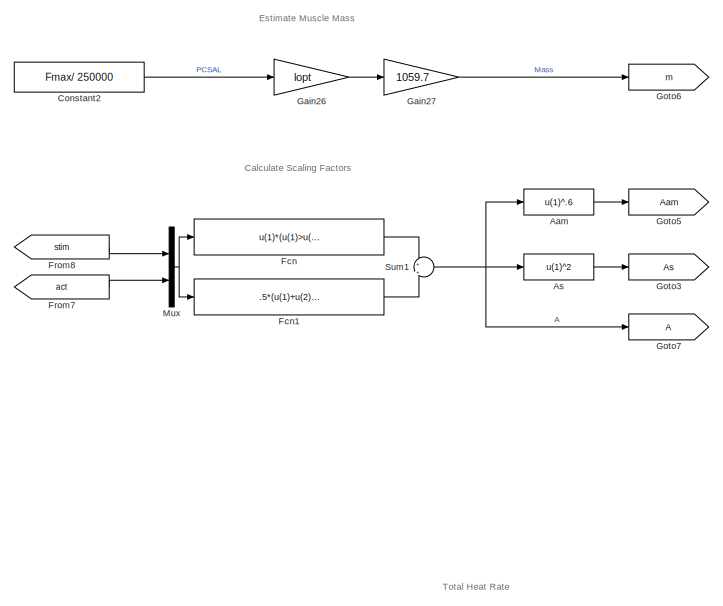
[diagram: Muscle Energy Umberger (2010) - part 1/5, top center region]
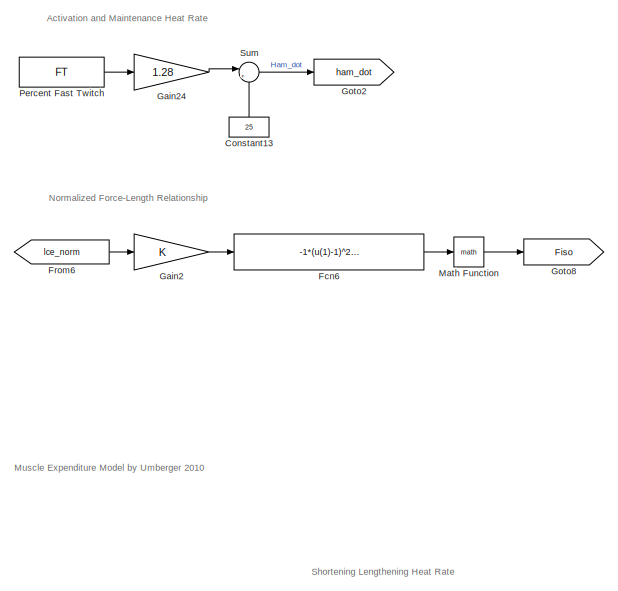
[diagram: Muscle Energy Umberger (2010) - part 2/5, top left region]
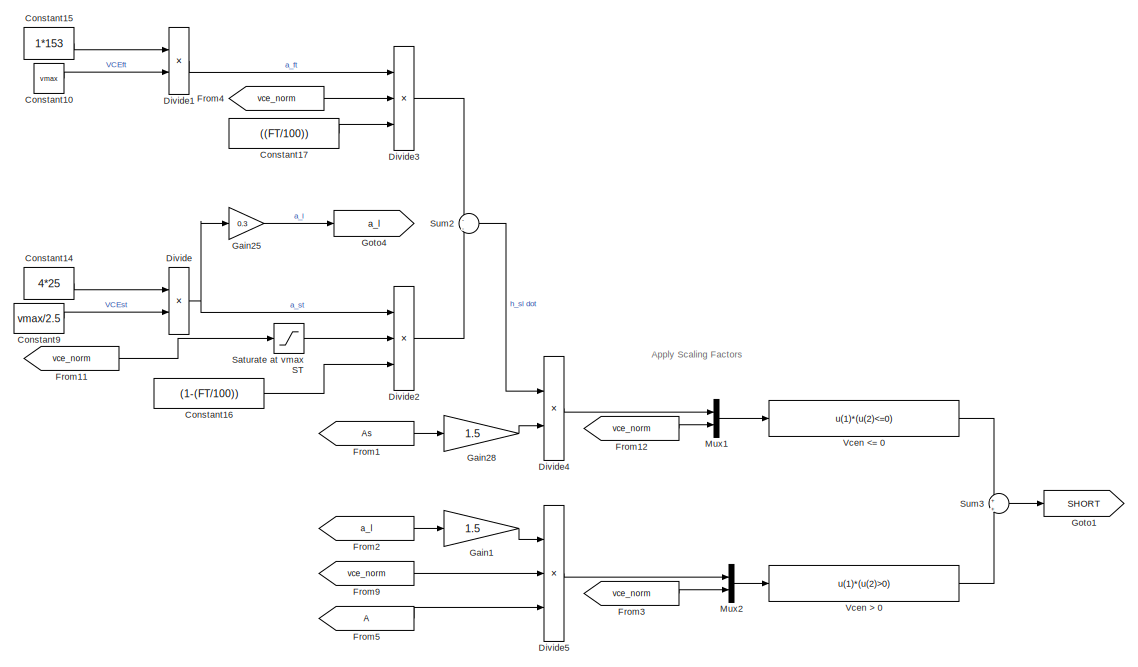
[diagram: Muscle Energy Umberger (2010) - part 3/5, bottom center region]
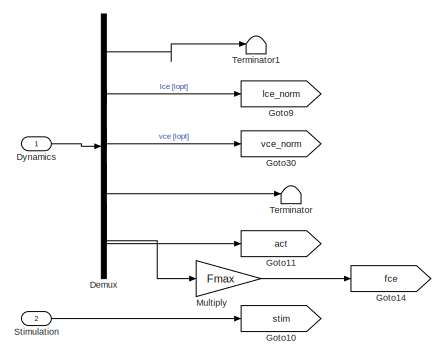
[diagram: Muscle Energy Umberger (2010) - part 4/5, middle left region]
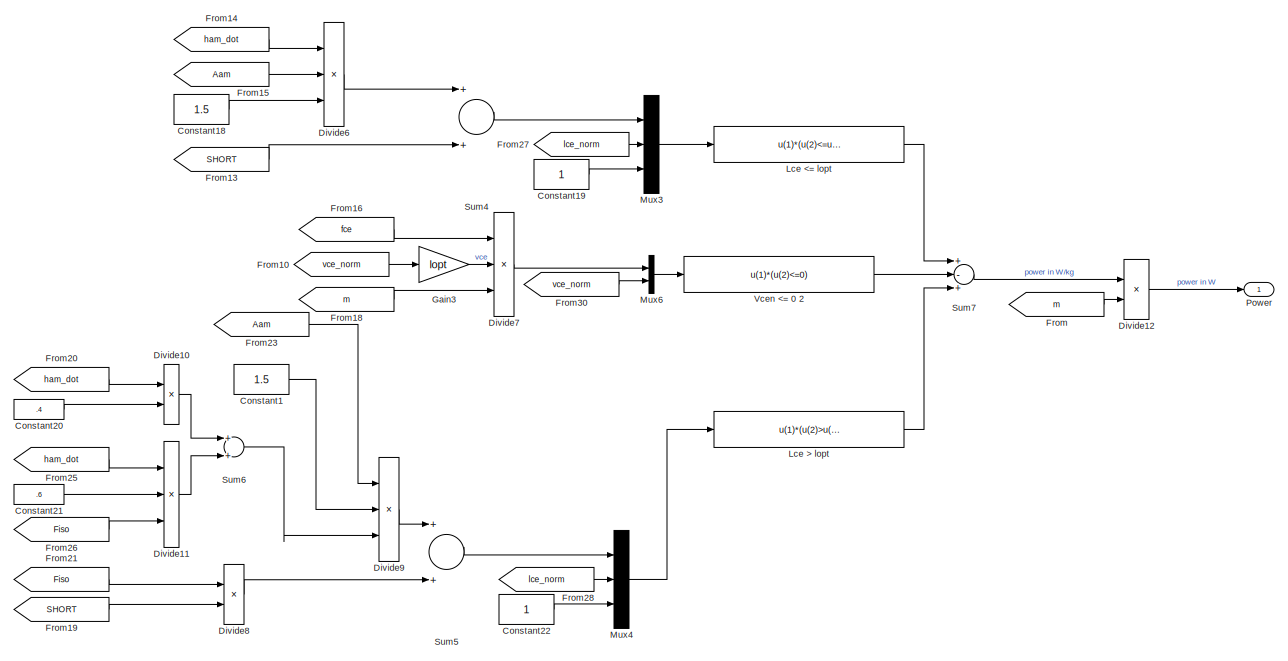
[diagram: Muscle Energy Umberger (2010) - part 5/5, bottom right region]
BLOCK [SubSystem] Muscle Energy Umberger (2010)
  Ports = [2, 1]
  RequestExecContextInheritance = off
BLOCK [Fcn] Muscle Energy Umberger (2010)/Aam 
  Expr = u(1)^.6
BLOCK [Fcn] Muscle Energy Umberger (2010)/As
  Expr = u(1)^2
BLOCK [Constant] Muscle Energy Umberger (2010)/Constant1
  Value = 1.5
BLOCK [Constant] Muscle Energy Umberger (2010)/Constant10
  Value = vmax
BLOCK [Constant] Muscle Energy Umberger (2010)/Constant13
  Value = 25
BLOCK [Constant] Muscle Energy Umberger (2010)/Constant14
  Value = 4*25
BLOCK [Constant] Muscle Energy Umberger (2010)/Constant15
  Value = 1*153
BLOCK [Constant] Muscle Energy Umberger (2010)/Constant16
  Value = (1-(FT/100))
BLOCK [Constant] Muscle Energy Umberger (2010)/Constant17
  Value = ((FT/100))
BLOCK [Constant] Muscle Energy Umberger (2010)/Constant18
  Value = 1.5
BLOCK [Constant] Muscle Energy Umberger (2010)/Constant19
BLOCK [Constant] Muscle Energy Umberger (2010)/Constant2
  Value = Fmax/ 250000
BLOCK [Constant] Muscle Energy Umberger (2010)/Constant20
  Value = .4
BLOCK [Constant] Muscle Energy Umberger (2010)/Constant21
  Value = .6
BLOCK [Constant] Muscle Energy Umberger (2010)/Constant22
BLOCK [Constant] Muscle Energy Umberger (2010)/Constant9
  Value = vmax/2.5
BLOCK [Demux] Muscle Energy Umberger (2010)/Demux
  DisplayOption = bar
  Outputs = 6
  Ports = [1, 6]
BLOCK [Product] Muscle Energy Umberger (2010)/Divide
  InputSameDT = off
  Inputs = */
  OutDataTypeStr = Inherit: Inherit via internal rule
  Ports = [2, 1]
  RndMeth = Floor
  SaturateOnIntegerOverflow = off
BLOCK [Product] Muscle Energy Umberger (2010)/Divide1
  InputSameDT = off
  Inputs = */
  OutDataTypeStr = Inherit: Inherit via internal rule
  Ports = [2, 1]
  RndMeth = Floor
  SaturateOnIntegerOverflow = off
BLOCK [Product] Muscle Energy Umberger (2010)/Divide10
  InputSameDT = off
  Inputs = **
  OutDataTypeStr = Inherit: Inherit via internal rule
  Ports = [2, 1]
  RndMeth = Floor
  SaturateOnIntegerOverflow = off
BLOCK [Product] Muscle Energy Umberger (2010)/Divide11
  InputSameDT = off
  Inputs = ***
  OutDataTypeStr = Inherit: Inherit via internal rule
  Ports = [3, 1]
  RndMeth = Floor
  SaturateOnIntegerOverflow = off
BLOCK [Product] Muscle Energy Umberger (2010)/Divide12
  InputSameDT = off
  Inputs = **
  OutDataTypeStr = Inherit: Inherit via internal rule
  Ports = [2, 1]
  RndMeth = Floor
  SaturateOnIntegerOverflow = off
BLOCK [Product] Muscle Energy Umberger (2010)/Divide2
  InputSameDT = off
  Inputs = ***
  OutDataTypeStr = Inherit: Inherit via internal rule
  Ports = [3, 1]
  RndMeth = Floor
  SaturateOnIntegerOverflow = off
BLOCK [Product] Muscle Energy Umberger (2010)/Divide3
  InputSameDT = off
  Inputs = ***
  OutDataTypeStr = Inherit: Inherit via internal rule
  Ports = [3, 1]
  RndMeth = Floor
  SaturateOnIntegerOverflow = off
BLOCK [Product] Muscle Energy Umberger (2010)/Divide4
  InputSameDT = off
  Inputs = **
  OutDataTypeStr = Inherit: Inherit via internal rule
  Ports = [2, 1]
  RndMeth = Floor
  SaturateOnIntegerOverflow = off
BLOCK [Product] Muscle Energy Umberger (2010)/Divide5
  InputSameDT = off
  Inputs = ***
  OutDataTypeStr = Inherit: Inherit via internal rule
  Ports = [3, 1]
  RndMeth = Floor
  SaturateOnIntegerOverflow = off
BLOCK [Product] Muscle Energy Umberger (2010)/Divide6
  InputSameDT = off
  Inputs = ***
  OutDataTypeStr = Inherit: Inherit via internal rule
  Ports = [3, 1]
  RndMeth = Floor
  SaturateOnIntegerOverflow = off
BLOCK [Product] Muscle Energy Umberger (2010)/Divide7
  InputSameDT = off
  Inputs = **/
  OutDataTypeStr = Inherit: Inherit via internal rule
  Ports = [3, 1]
  RndMeth = Floor
  SaturateOnIntegerOverflow = off
BLOCK [Product] Muscle Energy Umberger (2010)/Divide8
  InputSameDT = off
  Inputs = **
  OutDataTypeStr = Inherit: Inherit via internal rule
  Ports = [2, 1]
  RndMeth = Floor
  SaturateOnIntegerOverflow = off
BLOCK [Product] Muscle Energy Umberger (2010)/Divide9
  InputSameDT = off
  Inputs = ***
  OutDataTypeStr = Inherit: Inherit via internal rule
  Ports = [3, 1]
  RndMeth = Floor
  SaturateOnIntegerOverflow = off
BLOCK [Inport] Muscle Energy Umberger (2010)/Dynamics
  IconDisplay = Port number
BLOCK [Fcn] Muscle Energy Umberger (2010)/Fcn
  Expr = u(1)*(u(1)>u(2))
BLOCK [Fcn] Muscle Energy Umberger (2010)/Fcn1
  Expr = .5*(u(1)+u(2))*(u(1)<=u(2))
BLOCK [Fcn] Muscle Energy Umberger (2010)/Fcn6
  Expr = -1*(u(1)-1)^2/w^2
BLOCK [From] Muscle Energy Umberger (2010)/From
  GotoTag = m
BLOCK [From] Muscle Energy Umberger (2010)/From1
  GotoTag = As
BLOCK [From] Muscle Energy Umberger (2010)/From10
  GotoTag = vce_norm
BLOCK [From] Muscle Energy Umberger (2010)/From11
  GotoTag = vce_norm
BLOCK [From] Muscle Energy Umberger (2010)/From12
  GotoTag = vce_norm
BLOCK [From] Muscle Energy Umberger (2010)/From13
  GotoTag = SHORT
BLOCK [From] Muscle Energy Umberger (2010)/From14
  GotoTag = ham_dot
BLOCK [From] Muscle Energy Umberger (2010)/From15
  GotoTag = Aam
BLOCK [From] Muscle Energy Umberger (2010)/From16
  GotoTag = fce
BLOCK [From] Muscle Energy Umberger (2010)/From18
  GotoTag = m
BLOCK [From] Muscle Energy Umberger (2010)/From19
  GotoTag = SHORT
BLOCK [From] Muscle Energy Umberger (2010)/From2
  GotoTag = a_l
BLOCK [From] Muscle Energy Umberger (2010)/From20
  GotoTag = ham_dot
BLOCK [From] Muscle Energy Umberger (2010)/From21
  GotoTag = Fiso
BLOCK [From] Muscle Energy Umberger (2010)/From23
  GotoTag = Aam
BLOCK [From] Muscle Energy Umberger (2010)/From25
  GotoTag = ham_dot
BLOCK [From] Muscle Energy Umberger (2010)/From26
  GotoTag = Fiso
BLOCK [From] Muscle Energy Umberger (2010)/From27
  GotoTag = lce_norm
BLOCK [From] Muscle Energy Umberger (2010)/From28
  GotoTag = lce_norm
BLOCK [From] Muscle Energy Umberger (2010)/From3
  GotoTag = vce_norm
BLOCK [From] Muscle Energy Umberger (2010)/From30
  GotoTag = vce_norm
BLOCK [From] Muscle Energy Umberger (2010)/From4
  GotoTag = vce_norm
BLOCK [From] Muscle Energy Umberger (2010)/From5
BLOCK [From] Muscle Energy Umberger (2010)/From6
  GotoTag = lce_norm
BLOCK [From] Muscle Energy Umberger (2010)/From7
  GotoTag = act
BLOCK [From] Muscle Energy Umberger (2010)/From8
  GotoTag = stim
BLOCK [From] Muscle Energy Umberger (2010)/From9
  GotoTag = vce_norm
BLOCK [Gain] Muscle Energy Umberger (2010)/Gain1
  Gain = 1.5
  OutDataTypeStr = Inherit: Inherit via internal rule
  ParamDataTypeStr = Inherit: Inherit via internal rule
  SaturateOnIntegerOverflow = off
BLOCK [Gain] Muscle Energy Umberger (2010)/Gain2
  OutDataTypeStr = Inherit: Inherit via internal rule
  ParamDataTypeStr = Inherit: Inherit via internal rule
  SaturateOnIntegerOverflow = off
BLOCK [Gain] Muscle Energy Umberger (2010)/Gain24
  Gain = 1.28
  OutDataTypeStr = Inherit: Inherit via internal rule
  ParamDataTypeStr = Inherit: Inherit via internal rule
  SaturateOnIntegerOverflow = off
BLOCK [Gain] Muscle Energy Umberger (2010)/Gain25
  Gain = 0.3
  OutDataTypeStr = Inherit: Inherit via internal rule
  ParamDataTypeStr = Inherit: Inherit via internal rule
  SaturateOnIntegerOverflow = off
BLOCK [Gain] Muscle Energy Umberger (2010)/Gain26
  Gain = lopt
  OutDataTypeStr = Inherit: Inherit via internal rule
  ParamDataTypeStr = Inherit: Inherit via internal rule
  SaturateOnIntegerOverflow = off
BLOCK [Gain] Muscle Energy Umberger (2010)/Gain27
  Gain = 1059.7
  OutDataTypeStr = Inherit: Inherit via internal rule
  ParamDataTypeStr = Inherit: Inherit via internal rule
  SaturateOnIntegerOverflow = off
BLOCK [Gain] Muscle Energy Umberger (2010)/Gain28
  Gain = 1.5
  OutDataTypeStr = Inherit: Inherit via internal rule
  ParamDataTypeStr = Inherit: Inherit via internal rule
  SaturateOnIntegerOverflow = off
BLOCK [Gain] Muscle Energy Umberger (2010)/Gain3
  Gain = lopt
  OutDataTypeStr = Inherit: Inherit via internal rule
  ParamDataTypeStr = Inherit: Inherit via internal rule
  SaturateOnIntegerOverflow = off
BLOCK [Goto] Muscle Energy Umberger (2010)/Goto1
  GotoTag = SHORT
BLOCK [Goto] Muscle Energy Umberger (2010)/Goto10
  GotoTag = stim
BLOCK [Goto] Muscle Energy Umberger (2010)/Goto11
  GotoTag = act
BLOCK [Goto] Muscle Energy Umberger (2010)/Goto14
  GotoTag = fce
BLOCK [Goto] Muscle Energy Umberger (2010)/Goto2
  GotoTag = ham_dot
BLOCK [Goto] Muscle Energy Umberger (2010)/Goto3
  GotoTag = As
BLOCK [Goto] Muscle Energy Umberger (2010)/Goto30
  GotoTag = vce_norm
BLOCK [Goto] Muscle Energy Umberger (2010)/Goto4
  GotoTag = a_l
BLOCK [Goto] Muscle Energy Umberger (2010)/Goto5
  GotoTag = Aam
BLOCK [Goto] Muscle Energy Umberger (2010)/Goto6
  GotoTag = m
BLOCK [Goto] Muscle Energy Umberger (2010)/Goto7
BLOCK [Goto] Muscle Energy Umberger (2010)/Goto8
  GotoTag = Fiso
BLOCK [Goto] Muscle Energy Umberger (2010)/Goto9
  GotoTag = lce_norm
BLOCK [Fcn] Muscle Energy Umberger (2010)/Lce <= lopt
  Expr = u(1)*(u(2)<=u(3))
BLOCK [Fcn] Muscle Energy Umberger (2010)/Lce > lopt
  Expr = u(1)*(u(2)>u(3))
BLOCK [Math] Muscle Energy Umberger (2010)/Math Function
  Ports = [1, 1]
BLOCK [Gain] Muscle Energy Umberger (2010)/Multiply
  Gain = Fmax
  OutDataTypeStr = Inherit: Inherit via internal rule
  ParamDataTypeStr = Inherit: Inherit via internal rule
  SaturateOnIntegerOverflow = off
BLOCK [Mux] Muscle Energy Umberger (2010)/Mux
  DisplayOption = bar
  Inputs = 2
  Ports = [2, 1]
BLOCK [Mux] Muscle Energy Umberger (2010)/Mux1
  DisplayOption = bar
  Inputs = 2
  Ports = [2, 1]
BLOCK [Mux] Muscle Energy Umberger (2010)/Mux2
  DisplayOption = bar
  Inputs = 2
  Ports = [2, 1]
BLOCK [Mux] Muscle Energy Umberger (2010)/Mux3
  DisplayOption = bar
  Inputs = 3
  Ports = [3, 1]
BLOCK [Mux] Muscle Energy Umberger (2010)/Mux4
  DisplayOption = bar
  Inputs = 3
  Ports = [3, 1]
BLOCK [Mux] Muscle Energy Umberger (2010)/Mux6
  DisplayOption = bar
  Inputs = 2
  Ports = [2, 1]
BLOCK [Constant] Muscle Energy Umberger (2010)/Percent Fast Twitch
  Value = FT
BLOCK [Outport] Muscle Energy Umberger (2010)/Power
  IconDisplay = Port number
BLOCK [Saturate] Muscle Energy Umberger (2010)/Saturate at vmax ST
  InputPortMap = u0
  LowerLimit = -vmax/2.5
  Ports = [1, 1]
  UpperLimit = vmax/2.5
  ZeroCross = off
BLOCK [Inport] Muscle Energy Umberger (2010)/Stimulation
  IconDisplay = Port number
  Port = 2
BLOCK [Sum] Muscle Energy Umberger (2010)/Sum
  IconShape = round
  InputSameDT = off
  Inputs = |++
  OutDataTypeStr = Inherit: Inherit via internal rule
  Ports = [2, 1]
  SaturateOnIntegerOverflow = off
BLOCK [Sum] Muscle Energy Umberger (2010)/Sum1
  IconShape = round
  InputSameDT = off
  Inputs = +|+
  OutDataTypeStr = Inherit: Inherit via internal rule
  Ports = [2, 1]
  SaturateOnIntegerOverflow = off
BLOCK [Sum] Muscle Energy Umberger (2010)/Sum2
  IconShape = round
  InputSameDT = off
  Inputs = -|-
  OutDataTypeStr = Inherit: Inherit via internal rule
  Ports = [2, 1]
  SaturateOnIntegerOverflow = off
BLOCK [Sum] Muscle Energy Umberger (2010)/Sum3
  IconShape = round
  InputSameDT = off
  Inputs = +|+
  OutDataTypeStr = Inherit: Inherit via internal rule
  Ports = [2, 1]
  SaturateOnIntegerOverflow = off
BLOCK [Sum] Muscle Energy Umberger (2010)/Sum4
  InputSameDT = off
  OutDataTypeStr = Inherit: Inherit via internal rule
  Ports = [2, 1]
  SaturateOnIntegerOverflow = off
BLOCK [Sum] Muscle Energy Umberger (2010)/Sum5
  InputSameDT = off
  OutDataTypeStr = Inherit: Inherit via internal rule
  Ports = [2, 1]
  SaturateOnIntegerOverflow = off
BLOCK [Sum] Muscle Energy Umberger (2010)/Sum6
  InputSameDT = off
  OutDataTypeStr = Inherit: Inherit via internal rule
  Ports = [2, 1]
  SaturateOnIntegerOverflow = off
BLOCK [Sum] Muscle Energy Umberger (2010)/Sum7
  InputSameDT = off
  Inputs = +-+
  OutDataTypeStr = Inherit: Inherit via internal rule
  Ports = [3, 1]
  SaturateOnIntegerOverflow = off
BLOCK [Terminator] Muscle Energy Umberger (2010)/Terminator
BLOCK [Terminator] Muscle Energy Umberger (2010)/Terminator1
BLOCK [Fcn] Muscle Energy Umberger (2010)/Vcen <= 0 
  Expr = u(1)*(u(2)<=0)
BLOCK [Fcn] Muscle Energy Umberger (2010)/Vcen <= 0 2
  Expr = u(1)*(u(2)<=0)
BLOCK [Fcn] Muscle Energy Umberger (2010)/Vcen > 0
  Expr = u(1)*(u(2)>0)
BLOCK [SubSystem] Muscle Energy Wang (2012)
  Ports = [2, 1]
  RequestExecContextInheritance = off
BLOCK [Saturate] Muscle Energy Wang (2012)/>=0 only
  InputPortMap = u0
  LowerLimit = 0
  Ports = [1, 1]
  UpperLimit = inf
  ZeroCross = off
BLOCK [Saturate] Muscle Energy Wang (2012)/>=0 only1
  InputPortMap = u0
  LowerLimit = 0
  Ports = [1, 1]
  UpperLimit = inf
  ZeroCross = off
BLOCK [Sum] Muscle Energy Wang (2012)/Add
  InputSameDT = off
  Inputs = +-
  OutDataTypeStr = Inherit: Inherit via internal rule
  Ports = [2, 1]
  SaturateOnIntegerOverflow = off
BLOCK [Sum] Muscle Energy Wang (2012)/Add1
  InputSameDT = off
  Inputs = +-
  OutDataTypeStr = Inherit: Inherit via internal rule
  Ports = [2, 1]
  SaturateOnIntegerOverflow = off
BLOCK [Sum] Muscle Energy Wang (2012)/Add2
  InputSameDT = off
  Inputs = +-
  OutDataTypeStr = Inherit: Inherit via internal rule
  Ports = [2, 1]
  SaturateOnIntegerOverflow = off
BLOCK [Sum] Muscle Energy Wang (2012)/Add3
  IconShape = round
  InputSameDT = off
  OutDataTypeStr = Inherit: Inherit via internal rule
  Ports = [2, 1]
  SaturateOnIntegerOverflow = off
BLOCK [Sum] Muscle Energy Wang (2012)/Add4
  InputSameDT = off
  Inputs = +-
  OutDataTypeStr = Inherit: Inherit via internal rule
  Ports = [2, 1]
  SaturateOnIntegerOverflow = off
BLOCK [Sum] Muscle Energy Wang (2012)/Add5
  InputSameDT = off
  Inputs = +-
  OutDataTypeStr = Inherit: Inherit via internal rule
  Ports = [2, 1]
  SaturateOnIntegerOverflow = off
BLOCK [Sum] Muscle Energy Wang (2012)/Add6
  IconShape = round
  InputSameDT = off
  OutDataTypeStr = Inherit: Inherit via internal rule
  Ports = [2, 1]
  SaturateOnIntegerOverflow = off
BLOCK [Sum] Muscle Energy Wang (2012)/Add7
  InputSameDT = off
  Inputs = ++++
  OutDataTypeStr = Inherit: Inherit via internal rule
  Ports = [4, 1]
  SaturateOnIntegerOverflow = off
BLOCK [Sum] Muscle Energy Wang (2012)/Add8
  InputSameDT = off
  OutDataTypeStr = Inherit: Inherit via internal rule
  Ports = [2, 1]
  SaturateOnIntegerOverflow = off
BLOCK [Sum] Muscle Energy Wang (2012)/Add9
  InputSameDT = off
  Inputs = ++++
  OutDataTypeStr = Inherit: Inherit via internal rule
  Ports = [4, 1]
  SaturateOnIntegerOverflow = off
BLOCK [Constant] Muscle Energy Wang (2012)/Constant
BLOCK [Constant] Muscle Energy Wang (2012)/Constant1
BLOCK [Constant] Muscle Energy Wang (2012)/Constant11
BLOCK [Constant] Muscle Energy Wang (2012)/Constant12
  Value = 0
BLOCK [Constant] Muscle Energy Wang (2012)/Constant2
  Value = Fmax/ 250000
BLOCK [Constant] Muscle Energy Wang (2012)/Constant23
  Value = 0.5
BLOCK [Constant] Muscle Energy Wang (2012)/Constant24
  Value = 1.5
BLOCK [Constant] Muscle Energy Wang (2012)/Constant25
  Value = 1.0
BLOCK [Constant] Muscle Energy Wang (2012)/Constant26
  Value = 0.5
BLOCK [Constant] Muscle Energy Wang (2012)/Constant27
  Value = 0
BLOCK [Constant] Muscle Energy Wang (2012)/Constant28
  Value = 3
BLOCK [Constant] Muscle Energy Wang (2012)/Constant3
  Value = 40
BLOCK [Constant] Muscle Energy Wang (2012)/Constant4
  Value = 133
BLOCK [Constant] Muscle Energy Wang (2012)/Constant5
BLOCK [Constant] Muscle Energy Wang (2012)/Constant6
BLOCK [Constant] Muscle Energy Wang (2012)/Constant7
  Value = 74
BLOCK [Constant] Muscle Energy Wang (2012)/Constant8
  Value = 111
BLOCK [Constant] Muscle Energy Wang (2012)/Constant9
  Value = 0.25
BLOCK [Trigonometry] Muscle Energy Wang (2012)/Cos
  Operator = cos
  Ports = [1, 1]
BLOCK [Trigonometry] Muscle Energy Wang (2012)/Cos1
  Operator = cos
  Ports = [1, 1]
BLOCK [Demux] Muscle Energy Wang (2012)/Demux
  DisplayOption = bar
  Outputs = 6
  Ports = [1, 6]
BLOCK [Inport] Muscle Energy Wang (2012)/Dynamics
  IconDisplay = Port number
BLOCK [From] Muscle Energy Wang (2012)/From
  GotoTag = lambda
BLOCK [From] Muscle Energy Wang (2012)/From1
  GotoTag = fa
BLOCK [From] Muscle Energy Wang (2012)/From2
  GotoTag = fm
BLOCK [From] Muscle Energy Wang (2012)/From3
  GotoTag = g_lce
BLOCK [From] Muscle Energy Wang (2012)/From30
  GotoTag = lambda
BLOCK [From] Muscle Energy Wang (2012)/From31
  GotoTag = act
BLOCK [From] Muscle Energy Wang (2012)/From32
  GotoTag = stim
BLOCK [From] Muscle Energy Wang (2012)/From33
  GotoTag = stim
BLOCK [From] Muscle Energy Wang (2012)/From34
  GotoTag = lambda
BLOCK [From] Muscle Energy Wang (2012)/From35
  GotoTag = lambda
BLOCK [From] Muscle Energy Wang (2012)/From36
  GotoTag = act
BLOCK [From] Muscle Energy Wang (2012)/From38
  GotoTag = lce_norm
BLOCK [From] Muscle Energy Wang (2012)/From4
  GotoTag = m
BLOCK [From] Muscle Energy Wang (2012)/From5
  GotoTag = Fmtc
BLOCK [From] Muscle Energy Wang (2012)/From6
  GotoTag = vce_norm
BLOCK [From] Muscle Energy Wang (2012)/From7
  GotoTag = Fce
BLOCK [From] Muscle Energy Wang (2012)/From8
  GotoTag = vce_norm
BLOCK [Gain] Muscle Energy Wang (2012)/Gain1
  Gain = lopt
  OutDataTypeStr = Inherit: Inherit via internal rule
  ParamDataTypeStr = Inherit: Inherit via internal rule
  SaturateOnIntegerOverflow = off
BLOCK [Gain] Muscle Energy Wang (2012)/Gain2
  Gain = lopt
  OutDataTypeStr = Inherit: Inherit via internal rule
  ParamDataTypeStr = Inherit: Inherit via internal rule
  SaturateOnIntegerOverflow = off
BLOCK [Gain] Muscle Energy Wang (2012)/Gain26
  Gain = lopt
  OutDataTypeStr = Inherit: Inherit via internal rule
  ParamDataTypeStr = Inherit: Inherit via internal rule
  SaturateOnIntegerOverflow = off
BLOCK [Gain] Muscle Energy Wang (2012)/Gain27
  Gain = 1059.7
  OutDataTypeStr = Inherit: Inherit via internal rule
  ParamDataTypeStr = Inherit: Inherit via internal rule
  SaturateOnIntegerOverflow = off
BLOCK [Goto] Muscle Energy Wang (2012)/Goto
  GotoTag = lambda
BLOCK [Goto] Muscle Energy Wang (2012)/Goto1
  GotoTag = Fce
BLOCK [Goto] Muscle Energy Wang (2012)/Goto10
  GotoTag = stim
BLOCK [Goto] Muscle Energy Wang (2012)/Goto11
  GotoTag = act
BLOCK [Goto] Muscle Energy Wang (2012)/Goto12
  GotoTag = vce_norm
BLOCK [Goto] Muscle Energy Wang (2012)/Goto13
  GotoTag = Fmtc
BLOCK [Goto] Muscle Energy Wang (2012)/Goto14
  GotoTag = fa
BLOCK [Goto] Muscle Energy Wang (2012)/Goto15
  GotoTag = fm
BLOCK [Goto] Muscle Energy Wang (2012)/Goto16
  GotoTag = g_lce
BLOCK [Goto] Muscle Energy Wang (2012)/Goto6
  GotoTag = m
BLOCK [Goto] Muscle Energy Wang (2012)/Goto9
  GotoTag = lce_norm
BLOCK [Gain] Muscle Energy Wang (2012)/Multiply
  Gain = 1/100
  OutDataTypeStr = Inherit: Inherit via internal rule
  ParamDataTypeStr = Inherit: Inherit via internal rule
  SaturateOnIntegerOverflow = off
BLOCK [Gain] Muscle Energy Wang (2012)/Multiply1
  Gain = pi/2
  OutDataTypeStr = Inherit: Inherit via internal rule
  ParamDataTypeStr = Inherit: Inherit via internal rule
  SaturateOnIntegerOverflow = off
BLOCK [Gain] Muscle Energy Wang (2012)/Multiply2
  Gain = pi/2
  OutDataTypeStr = Inherit: Inherit via internal rule
  ParamDataTypeStr = Inherit: Inherit via internal rule
  SaturateOnIntegerOverflow = off
BLOCK [Gain] Muscle Energy Wang (2012)/Multiply3
  Gain = pi/2
  OutDataTypeStr = Inherit: Inherit via internal rule
  ParamDataTypeStr = Inherit: Inherit via internal rule
  SaturateOnIntegerOverflow = off
BLOCK [Gain] Muscle Energy Wang (2012)/Multiply4
  Gain = pi/2
  OutDataTypeStr = Inherit: Inherit via internal rule
  ParamDataTypeStr = Inherit: Inherit via internal rule
  SaturateOnIntegerOverflow = off
BLOCK [Gain] Muscle Energy Wang (2012)/Multiply5
  Gain = -2
  OutDataTypeStr = Inherit: Inherit via internal rule
  ParamDataTypeStr = Inherit: Inherit via internal rule
  SaturateOnIntegerOverflow = off
BLOCK [Gain] Muscle Energy Wang (2012)/Multiply6
  Gain = -1
  OutDataTypeStr = Inherit: Inherit via internal rule
  ParamDataTypeStr = Inherit: Inherit via internal rule
  SaturateOnIntegerOverflow = off
BLOCK [Gain] Muscle Energy Wang (2012)/Multiply7
  Gain = -1
  OutDataTypeStr = Inherit: Inherit via internal rule
  ParamDataTypeStr = Inherit: Inherit via internal rule
  SaturateOnIntegerOverflow = off
BLOCK [MultiPortSwitch] Muscle Energy Wang (2012)/Multiport Switch
  DiagnosticForDefault = Warning
  InputSameDT = off
  Inputs = 4
  Ports = [5, 1]
  SaturateOnIntegerOverflow = off
BLOCK [Constant] Muscle Energy Wang (2012)/Percent Fast Twitch1
  Value = FT
BLOCK [Outport] Muscle Energy Wang (2012)/Power
  IconDisplay = Port number
BLOCK [Product] Muscle Energy Wang (2012)/Product
  InputSameDT = off
  Inputs = 3
  OutDataTypeStr = Inherit: Inherit via internal rule
  Ports = [3, 1]
  RndMeth = Floor
  SaturateOnIntegerOverflow = off
BLOCK [Product] Muscle Energy Wang (2012)/Product1
  InputSameDT = off
  Inputs = 3
  OutDataTypeStr = Inherit: Inherit via internal rule
  Ports = [3, 1]
  RndMeth = Floor
  SaturateOnIntegerOverflow = off
BLOCK [Product] Muscle Energy Wang (2012)/Product2
  InputSameDT = off
  Inputs = 3
  OutDataTypeStr = Inherit: Inherit via internal rule
  Ports = [3, 1]
  RndMeth = Floor
  SaturateOnIntegerOverflow = off
BLOCK [Product] Muscle Energy Wang (2012)/Product3
  InputSameDT = off
  Inputs = 3
  OutDataTypeStr = Inherit: Inherit via internal rule
  Ports = [3, 1]
  RndMeth = Floor
  SaturateOnIntegerOverflow = off
BLOCK [Product] Muscle Energy Wang (2012)/Product4
  InputSameDT = off
  OutDataTypeStr = Inherit: Inherit via internal rule
  Ports = [2, 1]
  RndMeth = Floor
  SaturateOnIntegerOverflow = off
BLOCK [Product] Muscle Energy Wang (2012)/Product5
  InputSameDT = off
  Inputs = 3
  OutDataTypeStr = Inherit: Inherit via internal rule
  Ports = [3, 1]
  RndMeth = Floor
  SaturateOnIntegerOverflow = off
BLOCK [Product] Muscle Energy Wang (2012)/Product6
  InputSameDT = off
  Inputs = 3
  OutDataTypeStr = Inherit: Inherit via internal rule
  Ports = [3, 1]
  RndMeth = Floor
  SaturateOnIntegerOverflow = off
BLOCK [Product] Muscle Energy Wang (2012)/Product7
  InputSameDT = off
  OutDataTypeStr = Inherit: Inherit via internal rule
  Ports = [2, 1]
  RndMeth = Floor
  SaturateOnIntegerOverflow = off
BLOCK [RelationalOperator] Muscle Energy Wang (2012)/Relational Operator
  InputSameDT = off
  Operator = >
  OutDataTypeStr = boolean
  Ports = [2, 1]
  RndMeth = Simplest
BLOCK [RelationalOperator] Muscle Energy Wang (2012)/Relational Operator1
  InputSameDT = off
  Operator = >
  OutDataTypeStr = boolean
  Ports = [2, 1]
  RndMeth = Simplest
BLOCK [RelationalOperator] Muscle Energy Wang (2012)/Relational Operator2
  InputSameDT = off
  Operator = >
  OutDataTypeStr = boolean
  Ports = [2, 1]
  RndMeth = Simplest
BLOCK [RelationalOperator] Muscle Energy Wang (2012)/Relational Operator3
  InputSameDT = off
  Operator = >
  OutDataTypeStr = boolean
  Ports = [2, 1]
  RndMeth = Simplest
BLOCK [Trigonometry] Muscle Energy Wang (2012)/Sin
  Ports = [1, 1]
BLOCK [Trigonometry] Muscle Energy Wang (2012)/Sin1
  Ports = [1, 1]
BLOCK [Inport] Muscle Energy Wang (2012)/Stimulation
  IconDisplay = Port number
  Port = 2
BLOCK [Terminator] Muscle Energy Wang (2012)/Terminator
BLOCK [Inport] Muscle Energy/Dynamics
  IconDisplay = Port number
BLOCK [Reference] Muscle Energy/Muscle Energy Umberger (2003)  REF=$bdroot/Muscle Energy Umberger (2003)
  Ports = [2, 1]
  SourceBlock = $bdroot/Muscle Energy Umberger (2003)
BLOCK [Reference] Muscle Energy/Muscle Energy Umberger (2003) TG  REF=$bdroot/Muscle Energy Umberger (2003) TG
  Ports = [2, 1]
  SourceBlock = $bdroot/Muscle Energy Umberger (2003) TG
BLOCK [Reference] Muscle Energy/Muscle Energy Umberger (2010)  REF=$bdroot/Muscle Energy Umberger (2010)
  Ports = [2, 1]
  SourceBlock = $bdroot/Muscle Energy Umberger (2010)
BLOCK [Reference] Muscle Energy/Muscle Energy Wang (2012)  REF=$bdroot/Muscle Energy Wang (2012)
  Ports = [2, 1]
  SourceBlock = $bdroot/Muscle Energy Wang (2012)
BLOCK [Mux] Muscle Energy/Mux
  DisplayOption = bar
  Ports = [4, 1]
BLOCK [Outport] Muscle Energy/Power
  IconDisplay = Port number
BLOCK [Inport] Muscle Energy/Stimulation
  IconDisplay = Port number
  Port = 2
BLOCK [SubSystem] Norm
  Ports = [1, 1]
  RequestExecContextInheritance = off
BLOCK [Sum] Norm/Add4
  InputSameDT = off
  Inputs = +
  OutDataTypeStr = Inherit: Inherit via internal rule
  Ports = [1, 1]
  SaturateOnIntegerOverflow = off
BLOCK [Outport] Norm/Norm
  IconDisplay = Port number
BLOCK [Math] Norm/Square
  Operator = square
  Ports = [1, 1]
  SignedPower = off
BLOCK [Sqrt] Norm/Square Root
BLOCK [Inport] Norm/Vector
  IconDisplay = Port number
BLOCK [SubSystem] Otto-Bock Hydraulic Element
  Ports = [0, 1, 0, 0, 0, 1, 1]
  RequestExecContextInheritance = off
BLOCK [Sum] Otto-Bock Hydraulic Element/Add1
  IconShape = round
  InputSameDT = off
  Inputs = |--
  OutDataTypeStr = Inherit: Inherit via internal rule
  Ports = [2, 1]
  SaturateOnIntegerOverflow = off
BLOCK [Sum] Otto-Bock Hydraulic Element/Add2
  IconShape = round
  InputSameDT = off
  Inputs = -+|
  OutDataTypeStr = Inherit: Inherit via internal rule
  Ports = [2, 1]
  SaturateOnIntegerOverflow = off
BLOCK [PMIOPort] Otto-Bock Hydraulic Element/Base
  Side = Left
BLOCK [Gain] Otto-Bock Hydraulic Element/Bumper
  Gain = k
  OutDataTypeStr = Inherit: Inherit via internal rule
  ParamDataTypeStr = Inherit: Inherit via internal rule
  SaturateOnIntegerOverflow = off
BLOCK [Constant] Otto-Bock Hydraulic Element/Constant1
  Value = L0
BLOCK [Outport] Otto-Bock Hydraulic Element/Element info
  IconDisplay = Port number
BLOCK [Fcn] Otto-Bock Hydraulic Element/Equal Sign check
  Expr = u(2)*( (u(1)*u(2)) >0)
BLOCK [PMIOPort] Otto-Bock Hydraulic Element/Follower
  Port = 2
  Side = Right
BLOCK [Lookup_n-D] Otto-Bock Hydraulic Element/Force Look-up table
  BreakpointsForDimension1 = dx_points
  InternalRulePriority = Speed
  NumberOfTableDimensions = 1
  Ports = [1, 1]
  RndMeth = Simplest
  Table = Fd
  UseLastTableValue = on
BLOCK [Reference] Otto-Bock Hydraulic Element/Internal Force  REF=sm_lib/Forces and
Torques/Internal Force
  Ports = [0, 0, 0, 0, 0, 2, 1]
  SourceBlock = sm_lib/Forces and\nTorques/Internal Force
  SourceProductBaseCode = MS
  SourceProductName = Simscape Multibody
  SourceType = Internal Force
BLOCK [Gain] Otto-Bock Hydraulic Element/Multiply2
  Gain = -1
  OutDataTypeStr = Inherit: Inherit via internal rule
  ParamDataTypeStr = Inherit: Inherit via internal rule
  SaturateOnIntegerOverflow = off
BLOCK [Gain] Otto-Bock Hydraulic Element/Multiply4
  Gain = -1
  OutDataTypeStr = Inherit: Inherit via internal rule
  ParamDataTypeStr = Inherit: Inherit via internal rule
  SaturateOnIntegerOverflow = off
BLOCK [Mux] Otto-Bock Hydraulic Element/Mux
  DisplayOption = bar
  Inputs = 5
  Ports = [5, 1]
BLOCK [Mux] Otto-Bock Hydraulic Element/Mux3
  DisplayOption = bar
  Inputs = 2
  Ports = [2, 1]
BLOCK [Reference] Otto-Bock Hydraulic Element/PS-Simulink Converter  REF=nesl_utility/PS-Simulink
Converter
  Ports = [0, 1, 0, 0, 0, 1]
  SourceBlock = nesl_utility/PS-Simulink\nConverter
  SourceProductBaseCode = SS
  SourceProductName = Simscape
  SourceType = PS-Simulink\nConverter
BLOCK [Reference] Otto-Bock Hydraulic Element/PS-Simulink Converter1  REF=nesl_utility/PS-Simulink
Converter
  Ports = [0, 1, 0, 0, 0, 1]
  SourceBlock = nesl_utility/PS-Simulink\nConverter
  SourceProductBaseCode = SS
  SourceProductName = Simscape
  SourceType = PS-Simulink\nConverter
BLOCK [Reference] Otto-Bock Hydraulic Element/Simulink-PS Converter  REF=nesl_utility/Simulink-PS
Converter
  Ports = [1, 0, 0, 0, 0, 0, 1]
  SourceBlock = nesl_utility/Simulink-PS\nConverter
  SourceProductBaseCode = SS
  SourceProductName = Simscape
  SourceType = Simulink-PS\nConverter
BLOCK [Reference] Otto-Bock Hydraulic Element/Transform Sensor  REF=sm_lib/Frames and
Transforms/Transform
Sensor
  Ports = [0, 0, 0, 0, 0, 1, 3]
  SourceBlock = sm_lib/Frames and\nTransforms/Transform\nSensor
  SourceProductBaseCode = MS
  SourceProductName = Simscape Multibody
  SourceType = Transform\nSensor
BLOCK [SubSystem] Otto-bock 3R60
  Ports = [0, 3, 0, 0, 0, 1, 1]
  RequestExecContextInheritance = off
BLOCK [From] Otto-bock 3R60/From
  GotoTag = shankConnect
BLOCK [From] Otto-bock 3R60/From1
  GotoTag = joint4
BLOCK [From] Otto-bock 3R60/From2
  GotoTag = thighConnect
BLOCK [From] Otto-bock 3R60/From3
  GotoTag = joint6
BLOCK [From] Otto-bock 3R60/From4
  GotoTag = joint7
BLOCK [From] Otto-bock 3R60/From6
  GotoTag = joint2
BLOCK [From] Otto-bock 3R60/From7
  GotoTag = joint1
BLOCK [From] Otto-bock 3R60/From8
  GotoTag = joint3
BLOCK [From] Otto-bock 3R60/From9
  GotoTag = joint5
BLOCK [Goto] Otto-bock 3R60/Goto1
  GotoTag = joint5
BLOCK [Goto] Otto-bock 3R60/Goto2
  GotoTag = joint2
BLOCK [Goto] Otto-bock 3R60/Goto3
  GotoTag = joint4
BLOCK [Goto] Otto-bock 3R60/Goto4
  GotoTag = joint1
BLOCK [Goto] Otto-bock 3R60/Goto5
  GotoTag = joint3
BLOCK [Goto] Otto-bock 3R60/Goto6
  GotoTag = thighConnect
BLOCK [Goto] Otto-bock 3R60/Goto7
  GotoTag = shankConnect
BLOCK [Goto] Otto-bock 3R60/Goto8
  GotoTag = joint6
BLOCK [Goto] Otto-bock 3R60/Goto9
  GotoTag = joint7
BLOCK [Outport] Otto-bock 3R60/Joint hinge positions
  IconDisplay = Port number
  Port = 3
BLOCK [Outport] Otto-bock 3R60/Knee angle
  IconDisplay = Port number
BLOCK [SubSystem] Otto-bock 3R60/Knee constraints
  Ports = [0, 2, 0, 0, 0, 2]
  RequestExecContextInheritance = off
BLOCK [Sum] Otto-bock 3R60/Knee constraints/Add11
  IconShape = round
  InputSameDT = off
  Inputs = |-+
  OutDataTypeStr = Inherit: Inherit via internal rule
  Ports = [2, 1]
  SaturateOnIntegerOverflow = off
BLOCK [Constant] Otto-bock 3R60/Knee constraints/Constant4
  Value = 0
BLOCK [Reference] Otto-bock 3R60/Knee constraints/PS-Simulink Converter1  REF=nesl_utility/PS-Simulink
Converter
  Ports = [0, 1, 0, 0, 0, 1]
  SourceBlock = nesl_utility/PS-Simulink\nConverter
  SourceProductBaseCode = SS
  SourceProductName = Simscape
  SourceType = PS-Simulink\nConverter
BLOCK [Reference] Otto-bock 3R60/Knee constraints/PS-Simulink Converter6  REF=nesl_utility/PS-Simulink
Converter
  Ports = [0, 1, 0, 0, 0, 1]
  SourceBlock = nesl_utility/PS-Simulink\nConverter
  SourceProductBaseCode = SS
  SourceProductName = Simscape
  SourceType = PS-Simulink\nConverter
BLOCK [Reference] Otto-bock 3R60/Knee constraints/PS-Simulink Converter9  REF=nesl_utility/PS-Simulink
Converter
  Ports = [0, 1, 0, 0, 0, 1]
  SourceBlock = nesl_utility/PS-Simulink\nConverter
  SourceProductBaseCode = SS
  SourceProductName = Simscape
  SourceType = PS-Simulink\nConverter
BLOCK [Product] Otto-bock 3R60/Knee constraints/Product4
  InputSameDT = off
  OutDataTypeStr = Inherit: Inherit via internal rule
  Ports = [2, 1]
  RndMeth = Floor
  SaturateOnIntegerOverflow = off
BLOCK [Selector] Otto-bock 3R60/Knee constraints/Selector
  IndexOptions = Index vector (dialog)
  Indices = [3]
  InputPortWidth = 3
  OutputSizes = 1
  Ports = [1, 1]
BLOCK [PMIOPort] Otto-bock 3R60/Knee constraints/Shank connect
  Port = 2
  Side = Left
BLOCK [PMIOPort] Otto-bock 3R60/Knee constraints/Thigh connect
  Side = Left
BLOCK [Reference] Otto-bock 3R60/Knee constraints/Transform Sensor4  REF=sm_lib/Frames and
Transforms/Transform
Sensor
  Ports = [0, 0, 0, 0, 0, 1, 4]
  SourceBlock = sm_lib/Frames and\nTransforms/Transform\nSensor
  SourceProductBaseCode = MS
  SourceProductName = Simscape Multibody
  SourceType = Transform\nSensor
BLOCK [Outport] Otto-bock 3R60/Knee constraints/knee angle
  IconDisplay = Port number
BLOCK [Outport] Otto-bock 3R60/Knee constraints/knee velocity
  IconDisplay = Port number
  Port = 2
BLOCK [Outport] Otto-bock 3R60/Knee velocity
  IconDisplay = Port number
  Port = 2
BLOCK [SubSystem] Otto-bock 3R60/Link 1
  Ports = [0, 0, 0, 0, 0, 1, 2]
  RequestExecContextInheritance = off
BLOCK [PMIOPort] Otto-bock 3R60/Link 1/CG
  Port = 3
  Side = Right
BLOCK [PMIOPort] Otto-bock 3R60/Link 1/Conn1
  Side = Left
BLOCK [PMIOPort] Otto-bock 3R60/Link 1/Conn2
  Port = 2
  Side = Right
BLOCK [Reference] Otto-bock 3R60/Link 1/Hole  REF=sm_lib/Body Elements/Extruded Solid
  Ports = [0, 0, 0, 0, 0, 0, 1]
  SourceBlock = sm_lib/Body Elements/Extruded Solid
  SourceProductBaseCode = MS
  SourceProductName = Simscape Multibody
  SourceType = Extruded Solid
BLOCK [Reference] Otto-bock 3R60/Link 1/Main  REF=sm_lib/Body Elements/Extruded Solid
  Ports = [0, 0, 0, 0, 0, 0, 1]
  SourceBlock = sm_lib/Body Elements/Extruded Solid
  SourceProductBaseCode = MS
  SourceProductName = Simscape Multibody
  SourceType = Extruded Solid
BLOCK [Reference] Otto-bock 3R60/Link 1/Peg  REF=sm_lib/Body Elements/Cylindrical Solid
  Ports = [0, 0, 0, 0, 0, 0, 1]
  SourceBlock = sm_lib/Body Elements/Cylindrical Solid
  SourceProductBaseCode = MS
  SourceProductName = Simscape Multibody
  SourceType = Cylindrical Solid
BLOCK [Reference] Otto-bock 3R60/Link 1/Rigid Transform  REF=sm_lib/Frames and
Transforms/Rigid
Transform
  Ports = [0, 0, 0, 0, 0, 1, 1]
  SourceBlock = sm_lib/Frames and\nTransforms/Rigid\nTransform
  SourceProductBaseCode = MS
  SourceProductName = Simscape Multibody
  SourceType = Rigid\nTransform
BLOCK [Reference] Otto-bock 3R60/Link 1/Rigid Transform1  REF=sm_lib/Frames and
Transforms/Rigid
Transform
  Ports = [0, 0, 0, 0, 0, 1, 1]
  SourceBlock = sm_lib/Frames and\nTransforms/Rigid\nTransform
  SourceProductBaseCode = MS
  SourceProductName = Simscape Multibody
  SourceType = Rigid\nTransform
BLOCK [SubSystem] Otto-bock 3R60/Link 10
  Ports = [0, 0, 0, 0, 0, 1]
  RequestExecContextInheritance = off
BLOCK [PMIOPort] Otto-bock 3R60/Link 10/Conn1
  Side = Left
BLOCK [Reference] Otto-bock 3R60/Link 10/Hole  REF=sm_lib/Body Elements/Extruded Solid
  Ports = [0, 0, 0, 0, 0, 0, 1]
  SourceBlock = sm_lib/Body Elements/Extruded Solid
  SourceProductBaseCode = MS
  SourceProductName = Simscape Multibody
  SourceType = Extruded Solid
BLOCK [Reference] Otto-bock 3R60/Link 10/Inertia  REF=sm_lib/Body Elements/Inertia
  Ports = [0, 0, 0, 0, 0, 0, 1]
  SourceBlock = sm_lib/Body Elements/Inertia
  SourceProductBaseCode = MS
  SourceProductName = Simscape Multibody
  SourceType = Inertia
BLOCK [Reference] Otto-bock 3R60/Link 10/Main  REF=sm_lib/Body Elements/Extruded Solid
  Ports = [0, 0, 0, 0, 0, 0, 1]
  SourceBlock = sm_lib/Body Elements/Extruded Solid
  SourceProductBaseCode = MS
  SourceProductName = Simscape Multibody
  SourceType = Extruded Solid
BLOCK [Reference] Otto-bock 3R60/Link 10/Rigid Transform  REF=sm_lib/Frames and
Transforms/Rigid
Transform
  Ports = [0, 0, 0, 0, 0, 1, 1]
  SourceBlock = sm_lib/Frames and\nTransforms/Rigid\nTransform
  SourceProductBaseCode = MS
  SourceProductName = Simscape Multibody
  SourceType = Rigid\nTransform
BLOCK [Reference] Otto-bock 3R60/Link 10/Rigid Transform1  REF=sm_lib/Frames and
Transforms/Rigid
Transform
  Ports = [0, 0, 0, 0, 0, 1, 1]
  SourceBlock = sm_lib/Frames and\nTransforms/Rigid\nTransform
  SourceProductBaseCode = MS
  SourceProductName = Simscape Multibody
  SourceType = Rigid\nTransform
BLOCK [SubSystem] Otto-bock 3R60/Link 11
  Ports = [0, 0, 0, 0, 0, 1, 2]
  RequestExecContextInheritance = off
BLOCK [PMIOPort] Otto-bock 3R60/Link 11/CG
  Port = 3
  Side = Right
BLOCK [PMIOPort] Otto-bock 3R60/Link 11/Conn1
  Side = Left
BLOCK [PMIOPort] Otto-bock 3R60/Link 11/Conn2
  Port = 2
  Side = Right
BLOCK [Reference] Otto-bock 3R60/Link 11/Hole  REF=sm_lib/Body Elements/Extruded Solid
  Ports = [0, 0, 0, 0, 0, 0, 1]
  SourceBlock = sm_lib/Body Elements/Extruded Solid
  SourceProductBaseCode = MS
  SourceProductName = Simscape Multibody
  SourceType = Extruded Solid
BLOCK [Reference] Otto-bock 3R60/Link 11/Main  REF=sm_lib/Body Elements/Extruded Solid
  Ports = [0, 0, 0, 0, 0, 0, 1]
  SourceBlock = sm_lib/Body Elements/Extruded Solid
  SourceProductBaseCode = MS
  SourceProductName = Simscape Multibody
  SourceType = Extruded Solid
BLOCK [Reference] Otto-bock 3R60/Link 11/Peg  REF=sm_lib/Body Elements/Cylindrical Solid
  Ports = [0, 0, 0, 0, 0, 0, 1]
  SourceBlock = sm_lib/Body Elements/Cylindrical Solid
  SourceProductBaseCode = MS
  SourceProductName = Simscape Multibody
  SourceType = Cylindrical Solid
BLOCK [Reference] Otto-bock 3R60/Link 11/Rigid Transform  REF=sm_lib/Frames and
Transforms/Rigid
Transform
  Ports = [0, 0, 0, 0, 0, 1, 1]
  SourceBlock = sm_lib/Frames and\nTransforms/Rigid\nTransform
  SourceProductBaseCode = MS
  SourceProductName = Simscape Multibody
  SourceType = Rigid\nTransform
BLOCK [Reference] Otto-bock 3R60/Link 11/Rigid Transform1  REF=sm_lib/Frames and
Transforms/Rigid
Transform
  Ports = [0, 0, 0, 0, 0, 1, 1]
  SourceBlock = sm_lib/Frames and\nTransforms/Rigid\nTransform
  SourceProductBaseCode = MS
  SourceProductName = Simscape Multibody
  SourceType = Rigid\nTransform
BLOCK [SubSystem] Otto-bock 3R60/Link 12
  Ports = [0, 0, 0, 0, 0, 1]
  RequestExecContextInheritance = off
BLOCK [PMIOPort] Otto-bock 3R60/Link 12/Conn1
  Side = Left
BLOCK [Reference] Otto-bock 3R60/Link 12/Hole  REF=sm_lib/Body Elements/Extruded Solid
  Ports = [0, 0, 0, 0, 0, 0, 1]
  SourceBlock = sm_lib/Body Elements/Extruded Solid
  SourceProductBaseCode = MS
  SourceProductName = Simscape Multibody
  SourceType = Extruded Solid
BLOCK [Reference] Otto-bock 3R60/Link 12/Inertia  REF=sm_lib/Body Elements/Inertia
  Ports = [0, 0, 0, 0, 0, 0, 1]
  SourceBlock = sm_lib/Body Elements/Inertia
  SourceProductBaseCode = MS
  SourceProductName = Simscape Multibody
  SourceType = Inertia
BLOCK [Reference] Otto-bock 3R60/Link 12/Main  REF=sm_lib/Body Elements/Extruded Solid
  Ports = [0, 0, 0, 0, 0, 0, 1]
  SourceBlock = sm_lib/Body Elements/Extruded Solid
  SourceProductBaseCode = MS
  SourceProductName = Simscape Multibody
  SourceType = Extruded Solid
BLOCK [Reference] Otto-bock 3R60/Link 12/Rigid Transform  REF=sm_lib/Frames and
Transforms/Rigid
Transform
  Ports = [0, 0, 0, 0, 0, 1, 1]
  SourceBlock = sm_lib/Frames and\nTransforms/Rigid\nTransform
  SourceProductBaseCode = MS
  SourceProductName = Simscape Multibody
  SourceType = Rigid\nTransform
BLOCK [Reference] Otto-bock 3R60/Link 12/Rigid Transform1  REF=sm_lib/Frames and
Transforms/Rigid
Transform
  Ports = [0, 0, 0, 0, 0, 1, 1]
  SourceBlock = sm_lib/Frames and\nTransforms/Rigid\nTransform
  SourceProductBaseCode = MS
  SourceProductName = Simscape Multibody
  SourceType = Rigid\nTransform
BLOCK [SubSystem] Otto-bock 3R60/Link 13
  Ports = [0, 0, 0, 0, 0, 1, 1]
  RequestExecContextInheritance = off
BLOCK [PMIOPort] Otto-bock 3R60/Link 13/Conn1
  Side = Left
BLOCK [PMIOPort] Otto-bock 3R60/Link 13/Conn2
  Port = 2
  Side = Right
BLOCK [Reference] Otto-bock 3R60/Link 13/Hole  REF=sm_lib/Body Elements/Extruded Solid
  Ports = [0, 0, 0, 0, 0, 0, 1]
  SourceBlock = sm_lib/Body Elements/Extruded Solid
  SourceProductBaseCode = MS
  SourceProductName = Simscape Multibody
  SourceType = Extruded Solid
BLOCK [Reference] Otto-bock 3R60/Link 13/Main  REF=sm_lib/Body Elements/Extruded Solid
  Ports = [0, 0, 0, 0, 0, 0, 1]
  SourceBlock = sm_lib/Body Elements/Extruded Solid
  SourceProductBaseCode = MS
  SourceProductName = Simscape Multibody
  SourceType = Extruded Solid
BLOCK [Reference] Otto-bock 3R60/Link 13/Peg  REF=sm_lib/Body Elements/Cylindrical Solid
  Ports = [0, 0, 0, 0, 0, 0, 1]
  SourceBlock = sm_lib/Body Elements/Cylindrical Solid
  SourceProductBaseCode = MS
  SourceProductName = Simscape Multibody
  SourceType = Cylindrical Solid
BLOCK [Reference] Otto-bock 3R60/Link 13/Rigid Transform  REF=sm_lib/Frames and
Transforms/Rigid
Transform
  Ports = [0, 0, 0, 0, 0, 1, 1]
  SourceBlock = sm_lib/Frames and\nTransforms/Rigid\nTransform
  SourceProductBaseCode = MS
  SourceProductName = Simscape Multibody
  SourceType = Rigid\nTransform
BLOCK [Reference] Otto-bock 3R60/Link 13/Rigid Transform1  REF=sm_lib/Frames and
Transforms/Rigid
Transform
  Ports = [0, 0, 0, 0, 0, 1, 1]
  SourceBlock = sm_lib/Frames and\nTransforms/Rigid\nTransform
  SourceProductBaseCode = MS
  SourceProductName = Simscape Multibody
  SourceType = Rigid\nTransform
BLOCK [Reference] Otto-bock 3R60/Link 13/Rigid Transform14  REF=sm_lib/Frames and
Transforms/Rigid
Transform
  Ports = [0, 0, 0, 0, 0, 1, 1]
  SourceBlock = sm_lib/Frames and\nTransforms/Rigid\nTransform
  SourceProductBaseCode = MS
  SourceProductName = Simscape Multibody
  SourceType = Rigid\nTransform
BLOCK [SubSystem] Otto-bock 3R60/Link 14
  Ports = [0, 0, 0, 0, 0, 1, 1]
  RequestExecContextInheritance = off
BLOCK [PMIOPort] Otto-bock 3R60/Link 14/Conn1
  Side = Left
BLOCK [PMIOPort] Otto-bock 3R60/Link 14/Conn2
  Port = 2
  Side = Right
BLOCK [Reference] Otto-bock 3R60/Link 14/Hole  REF=sm_lib/Body Elements/Extruded Solid
  Ports = [0, 0, 0, 0, 0, 0, 1]
  SourceBlock = sm_lib/Body Elements/Extruded Solid
  SourceProductBaseCode = MS
  SourceProductName = Simscape Multibody
  SourceType = Extruded Solid
BLOCK [Reference] Otto-bock 3R60/Link 14/Main  REF=sm_lib/Body Elements/Extruded Solid
  Ports = [0, 0, 0, 0, 0, 0, 1]
  SourceBlock = sm_lib/Body Elements/Extruded Solid
  SourceProductBaseCode = MS
  SourceProductName = Simscape Multibody
  SourceType = Extruded Solid
BLOCK [Reference] Otto-bock 3R60/Link 14/Peg  REF=sm_lib/Body Elements/Cylindrical Solid
  Ports = [0, 0, 0, 0, 0, 0, 1]
  SourceBlock = sm_lib/Body Elements/Cylindrical Solid
  SourceProductBaseCode = MS
  SourceProductName = Simscape Multibody
  SourceType = Cylindrical Solid
BLOCK [Reference] Otto-bock 3R60/Link 14/Rigid Transform  REF=sm_lib/Frames and
Transforms/Rigid
Transform
  Ports = [0, 0, 0, 0, 0, 1, 1]
  SourceBlock = sm_lib/Frames and\nTransforms/Rigid\nTransform
  SourceProductBaseCode = MS
  SourceProductName = Simscape Multibody
  SourceType = Rigid\nTransform
BLOCK [Reference] Otto-bock 3R60/Link 14/Rigid Transform1  REF=sm_lib/Frames and
Transforms/Rigid
Transform
  Ports = [0, 0, 0, 0, 0, 1, 1]
  SourceBlock = sm_lib/Frames and\nTransforms/Rigid\nTransform
  SourceProductBaseCode = MS
  SourceProductName = Simscape Multibody
  SourceType = Rigid\nTransform
BLOCK [SubSystem] Otto-bock 3R60/Link 15
  Ports = [0, 0, 0, 0, 0, 0, 1]
  RequestExecContextInheritance = off
BLOCK [PMIOPort] Otto-bock 3R60/Link 15/Conn2
  Side = Right
BLOCK [Reference] Otto-bock 3R60/Link 15/Hole  REF=sm_lib/Body Elements/Extruded Solid
  Ports = [0, 0, 0, 0, 0, 0, 1]
  SourceBlock = sm_lib/Body Elements/Extruded Solid
  SourceProductBaseCode = MS
  SourceProductName = Simscape Multibody
  SourceType = Extruded Solid
BLOCK [Reference] Otto-bock 3R60/Link 15/Inertia  REF=sm_lib/Body Elements/Inertia
  Ports = [0, 0, 0, 0, 0, 0, 1]
  SourceBlock = sm_lib/Body Elements/Inertia
  SourceProductBaseCode = MS
  SourceProductName = Simscape Multibody
  SourceType = Inertia
BLOCK [Reference] Otto-bock 3R60/Link 15/Main  REF=sm_lib/Body Elements/Extruded Solid
  Ports = [0, 0, 0, 0, 0, 0, 1]
  SourceBlock = sm_lib/Body Elements/Extruded Solid
  SourceProductBaseCode = MS
  SourceProductName = Simscape Multibody
  SourceType = Extruded Solid
BLOCK [Reference] Otto-bock 3R60/Link 15/Peg  REF=sm_lib/Body Elements/Cylindrical Solid
  Ports = [0, 0, 0, 0, 0, 0, 1]
  SourceBlock = sm_lib/Body Elements/Cylindrical Solid
  SourceProductBaseCode = MS
  SourceProductName = Simscape Multibody
  SourceType = Cylindrical Solid
BLOCK [Reference] Otto-bock 3R60/Link 15/Rigid Transform  REF=sm_lib/Frames and
Transforms/Rigid
Transform
  Ports = [0, 0, 0, 0, 0, 1, 1]
  SourceBlock = sm_lib/Frames and\nTransforms/Rigid\nTransform
  SourceProductBaseCode = MS
  SourceProductName = Simscape Multibody
  SourceType = Rigid\nTransform
BLOCK [Reference] Otto-bock 3R60/Link 15/Rigid Transform1  REF=sm_lib/Frames and
Transforms/Rigid
Transform
  Ports = [0, 0, 0, 0, 0, 1, 1]
  SourceBlock = sm_lib/Frames and\nTransforms/Rigid\nTransform
  SourceProductBaseCode = MS
  SourceProductName = Simscape Multibody
  SourceType = Rigid\nTransform
BLOCK [SubSystem] Otto-bock 3R60/Link 16
  Ports = [0, 0, 0, 0, 0, 1, 1]
  RequestExecContextInheritance = off
BLOCK [PMIOPort] Otto-bock 3R60/Link 16/Conn1
  Side = Left
BLOCK [PMIOPort] Otto-bock 3R60/Link 16/Conn2
  Port = 2
  Side = Right
BLOCK [Reference] Otto-bock 3R60/Link 16/Hole  REF=sm_lib/Body Elements/Extruded Solid
  Ports = [0, 0, 0, 0, 0, 0, 1]
  SourceBlock = sm_lib/Body Elements/Extruded Solid
  SourceProductBaseCode = MS
  SourceProductName = Simscape Multibody
  SourceType = Extruded Solid
BLOCK [Reference] Otto-bock 3R60/Link 16/Main  REF=sm_lib/Body Elements/Extruded Solid
  Ports = [0, 0, 0, 0, 0, 0, 1]
  SourceBlock = sm_lib/Body Elements/Extruded Solid
  SourceProductBaseCode = MS
  SourceProductName = Simscape Multibody
  SourceType = Extruded Solid
BLOCK [Reference] Otto-bock 3R60/Link 16/Peg  REF=sm_lib/Body Elements/Cylindrical Solid
  Ports = [0, 0, 0, 0, 0, 0, 1]
  SourceBlock = sm_lib/Body Elements/Cylindrical Solid
  SourceProductBaseCode = MS
  SourceProductName = Simscape Multibody
  SourceType = Cylindrical Solid
BLOCK [Reference] Otto-bock 3R60/Link 16/Rigid Transform  REF=sm_lib/Frames and
Transforms/Rigid
Transform
  Ports = [0, 0, 0, 0, 0, 1, 1]
  SourceBlock = sm_lib/Frames and\nTransforms/Rigid\nTransform
  SourceProductBaseCode = MS
  SourceProductName = Simscape Multibody
  SourceType = Rigid\nTransform
BLOCK [Reference] Otto-bock 3R60/Link 16/Rigid Transform1  REF=sm_lib/Frames and
Transforms/Rigid
Transform
  Ports = [0, 0, 0, 0, 0, 1, 1]
  SourceBlock = sm_lib/Frames and\nTransforms/Rigid\nTransform
  SourceProductBaseCode = MS
  SourceProductName = Simscape Multibody
  SourceType = Rigid\nTransform
BLOCK [SubSystem] Otto-bock 3R60/Link 2
  Ports = [0, 0, 0, 0, 0, 1]
  RequestExecContextInheritance = off
BLOCK [PMIOPort] Otto-bock 3R60/Link 2/Conn1
  Side = Left
BLOCK [Reference] Otto-bock 3R60/Link 2/Hole  REF=sm_lib/Body Elements/Extruded Solid
  Ports = [0, 0, 0, 0, 0, 0, 1]
  SourceBlock = sm_lib/Body Elements/Extruded Solid
  SourceProductBaseCode = MS
  SourceProductName = Simscape Multibody
  SourceType = Extruded Solid
BLOCK [Reference] Otto-bock 3R60/Link 2/Inertia  REF=sm_lib/Body Elements/Inertia
  Ports = [0, 0, 0, 0, 0, 0, 1]
  SourceBlock = sm_lib/Body Elements/Inertia
  SourceProductBaseCode = MS
  SourceProductName = Simscape Multibody
  SourceType = Inertia
BLOCK [Reference] Otto-bock 3R60/Link 2/Main  REF=sm_lib/Body Elements/Extruded Solid
  Ports = [0, 0, 0, 0, 0, 0, 1]
  SourceBlock = sm_lib/Body Elements/Extruded Solid
  SourceProductBaseCode = MS
  SourceProductName = Simscape Multibody
  SourceType = Extruded Solid
BLOCK [Reference] Otto-bock 3R60/Link 2/Rigid Transform  REF=sm_lib/Frames and
Transforms/Rigid
Transform
  Ports = [0, 0, 0, 0, 0, 1, 1]
  SourceBlock = sm_lib/Frames and\nTransforms/Rigid\nTransform
  SourceProductBaseCode = MS
  SourceProductName = Simscape Multibody
  SourceType = Rigid\nTransform
BLOCK [Reference] Otto-bock 3R60/Link 2/Rigid Transform1  REF=sm_lib/Frames and
Transforms/Rigid
Transform
  Ports = [0, 0, 0, 0, 0, 1, 1]
  SourceBlock = sm_lib/Frames and\nTransforms/Rigid\nTransform
  SourceProductBaseCode = MS
  SourceProductName = Simscape Multibody
  SourceType = Rigid\nTransform
BLOCK [SubSystem] Otto-bock 3R60/Link 3
  Ports = [0, 0, 0, 0, 0, 1, 1]
  RequestExecContextInheritance = off
BLOCK [PMIOPort] Otto-bock 3R60/Link 3/Conn1
  Side = Left
BLOCK [PMIOPort] Otto-bock 3R60/Link 3/Conn2
  Port = 2
  Side = Right
BLOCK [Reference] Otto-bock 3R60/Link 3/Hole  REF=sm_lib/Body Elements/Extruded Solid
  Ports = [0, 0, 0, 0, 0, 0, 1]
  SourceBlock = sm_lib/Body Elements/Extruded Solid
  SourceProductBaseCode = MS
  SourceProductName = Simscape Multibody
  SourceType = Extruded Solid
BLOCK [Reference] Otto-bock 3R60/Link 3/Main  REF=sm_lib/Body Elements/Extruded Solid
  Ports = [0, 0, 0, 0, 0, 0, 1]
  SourceBlock = sm_lib/Body Elements/Extruded Solid
  SourceProductBaseCode = MS
  SourceProductName = Simscape Multibody
  SourceType = Extruded Solid
BLOCK [Reference] Otto-bock 3R60/Link 3/Peg  REF=sm_lib/Body Elements/Cylindrical Solid
  Ports = [0, 0, 0, 0, 0, 0, 1]
  SourceBlock = sm_lib/Body Elements/Cylindrical Solid
  SourceProductBaseCode = MS
  SourceProductName = Simscape Multibody
  SourceType = Cylindrical Solid
BLOCK [Reference] Otto-bock 3R60/Link 3/Rigid Transform  REF=sm_lib/Frames and
Transforms/Rigid
Transform
  Ports = [0, 0, 0, 0, 0, 1, 1]
  SourceBlock = sm_lib/Frames and\nTransforms/Rigid\nTransform
  SourceProductBaseCode = MS
  SourceProductName = Simscape Multibody
  SourceType = Rigid\nTransform
BLOCK [Reference] Otto-bock 3R60/Link 3/Rigid Transform1  REF=sm_lib/Frames and
Transforms/Rigid
Transform
  Ports = [0, 0, 0, 0, 0, 1, 1]
  SourceBlock = sm_lib/Frames and\nTransforms/Rigid\nTransform
  SourceProductBaseCode = MS
  SourceProductName = Simscape Multibody
  SourceType = Rigid\nTransform
BLOCK [Reference] Otto-bock 3R60/Link 3/Rigid Transform14  REF=sm_lib/Frames and
Transforms/Rigid
Transform
  Ports = [0, 0, 0, 0, 0, 1, 1]
  SourceBlock = sm_lib/Frames and\nTransforms/Rigid\nTransform
  SourceProductBaseCode = MS
  SourceProductName = Simscape Multibody
  SourceType = Rigid\nTransform
BLOCK [SubSystem] Otto-bock 3R60/Link 4
  Ports = [0, 0, 0, 0, 0, 1, 1]
  RequestExecContextInheritance = off
BLOCK [PMIOPort] Otto-bock 3R60/Link 4/Conn1
  Side = Left
BLOCK [PMIOPort] Otto-bock 3R60/Link 4/Conn2
  Port = 2
  Side = Right
BLOCK [Reference] Otto-bock 3R60/Link 4/Hole  REF=sm_lib/Body Elements/Extruded Solid
  Ports = [0, 0, 0, 0, 0, 0, 1]
  SourceBlock = sm_lib/Body Elements/Extruded Solid
  SourceProductBaseCode = MS
  SourceProductName = Simscape Multibody
  SourceType = Extruded Solid
BLOCK [Reference] Otto-bock 3R60/Link 4/Main  REF=sm_lib/Body Elements/Extruded Solid
  Ports = [0, 0, 0, 0, 0, 0, 1]
  SourceBlock = sm_lib/Body Elements/Extruded Solid
  SourceProductBaseCode = MS
  SourceProductName = Simscape Multibody
  SourceType = Extruded Solid
BLOCK [Reference] Otto-bock 3R60/Link 4/Peg  REF=sm_lib/Body Elements/Cylindrical Solid
  Ports = [0, 0, 0, 0, 0, 0, 1]
  SourceBlock = sm_lib/Body Elements/Cylindrical Solid
  SourceProductBaseCode = MS
  SourceProductName = Simscape Multibody
  SourceType = Cylindrical Solid
BLOCK [Reference] Otto-bock 3R60/Link 4/Rigid Transform  REF=sm_lib/Frames and
Transforms/Rigid
Transform
  Ports = [0, 0, 0, 0, 0, 1, 1]
  SourceBlock = sm_lib/Frames and\nTransforms/Rigid\nTransform
  SourceProductBaseCode = MS
  SourceProductName = Simscape Multibody
  SourceType = Rigid\nTransform
BLOCK [Reference] Otto-bock 3R60/Link 4/Rigid Transform1  REF=sm_lib/Frames and
Transforms/Rigid
Transform
  Ports = [0, 0, 0, 0, 0, 1, 1]
  SourceBlock = sm_lib/Frames and\nTransforms/Rigid\nTransform
  SourceProductBaseCode = MS
  SourceProductName = Simscape Multibody
  SourceType = Rigid\nTransform
BLOCK [SubSystem] Otto-bock 3R60/Link 6
  Ports = [0, 0, 0, 0, 0, 1, 2]
  RequestExecContextInheritance = off
BLOCK [PMIOPort] Otto-bock 3R60/Link 6/CG
  Port = 2
  Side = Right
BLOCK [PMIOPort] Otto-bock 3R60/Link 6/Conn1
  Side = Left
BLOCK [PMIOPort] Otto-bock 3R60/Link 6/Conn2
  Port = 3
  Side = Right
BLOCK [Reference] Otto-bock 3R60/Link 6/Hole  REF=sm_lib/Body Elements/Extruded Solid
  Ports = [0, 0, 0, 0, 0, 0, 1]
  SourceBlock = sm_lib/Body Elements/Extruded Solid
  SourceProductBaseCode = MS
  SourceProductName = Simscape Multibody
  SourceType = Extruded Solid
BLOCK [Reference] Otto-bock 3R60/Link 6/Main  REF=sm_lib/Body Elements/Extruded Solid
  Ports = [0, 0, 0, 0, 0, 0, 1]
  SourceBlock = sm_lib/Body Elements/Extruded Solid
  SourceProductBaseCode = MS
  SourceProductName = Simscape Multibody
  SourceType = Extruded Solid
BLOCK [Reference] Otto-bock 3R60/Link 6/Peg  REF=sm_lib/Body Elements/Cylindrical Solid
  Ports = [0, 0, 0, 0, 0, 0, 1]
  SourceBlock = sm_lib/Body Elements/Cylindrical Solid
  SourceProductBaseCode = MS
  SourceProductName = Simscape Multibody
  SourceType = Cylindrical Solid
BLOCK [Reference] Otto-bock 3R60/Link 6/Rigid Transform  REF=sm_lib/Frames and
Transforms/Rigid
Transform
  Ports = [0, 0, 0, 0, 0, 1, 1]
  SourceBlock = sm_lib/Frames and\nTransforms/Rigid\nTransform
  SourceProductBaseCode = MS
  SourceProductName = Simscape Multibody
  SourceType = Rigid\nTransform
BLOCK [Reference] Otto-bock 3R60/Link 6/Rigid Transform1  REF=sm_lib/Frames and
Transforms/Rigid
Transform
  Ports = [0, 0, 0, 0, 0, 1, 1]
  SourceBlock = sm_lib/Frames and\nTransforms/Rigid\nTransform
  SourceProductBaseCode = MS
  SourceProductName = Simscape Multibody
  SourceType = Rigid\nTransform
BLOCK [SubSystem] Otto-bock 3R60/Link 7
  Ports = [0, 0, 0, 0, 0, 1]
  RequestExecContextInheritance = off
BLOCK [PMIOPort] Otto-bock 3R60/Link 7/Conn1
  Side = Left
BLOCK [Reference] Otto-bock 3R60/Link 7/Hole  REF=sm_lib/Body Elements/Extruded Solid
  Ports = [0, 0, 0, 0, 0, 0, 1]
  SourceBlock = sm_lib/Body Elements/Extruded Solid
  SourceProductBaseCode = MS
  SourceProductName = Simscape Multibody
  SourceType = Extruded Solid
BLOCK [Reference] Otto-bock 3R60/Link 7/Inertia  REF=sm_lib/Body Elements/Inertia
  Ports = [0, 0, 0, 0, 0, 0, 1]
  SourceBlock = sm_lib/Body Elements/Inertia
  SourceProductBaseCode = MS
  SourceProductName = Simscape Multibody
  SourceType = Inertia
BLOCK [Reference] Otto-bock 3R60/Link 7/Main  REF=sm_lib/Body Elements/Extruded Solid
  Ports = [0, 0, 0, 0, 0, 0, 1]
  SourceBlock = sm_lib/Body Elements/Extruded Solid
  SourceProductBaseCode = MS
  SourceProductName = Simscape Multibody
  SourceType = Extruded Solid
BLOCK [Reference] Otto-bock 3R60/Link 7/Rigid Transform  REF=sm_lib/Frames and
Transforms/Rigid
Transform
  Ports = [0, 0, 0, 0, 0, 1, 1]
  SourceBlock = sm_lib/Frames and\nTransforms/Rigid\nTransform
  SourceProductBaseCode = MS
  SourceProductName = Simscape Multibody
  SourceType = Rigid\nTransform
BLOCK [Reference] Otto-bock 3R60/Link 7/Rigid Transform1  REF=sm_lib/Frames and
Transforms/Rigid
Transform
  Ports = [0, 0, 0, 0, 0, 1, 1]
  SourceBlock = sm_lib/Frames and\nTransforms/Rigid\nTransform
  SourceProductBaseCode = MS
  SourceProductName = Simscape Multibody
  SourceType = Rigid\nTransform
BLOCK [SubSystem] Otto-bock 3R60/Link 9 
  Ports = [0, 0, 0, 0, 0, 1, 1]
  RequestExecContextInheritance = off
BLOCK [PMIOPort] Otto-bock 3R60/Link 9 /Conn1
  Side = Left
BLOCK [PMIOPort] Otto-bock 3R60/Link 9 /Conn2
  Port = 2
  Side = Right
BLOCK [Reference] Otto-bock 3R60/Link 9 /Hole  REF=sm_lib/Body Elements/Extruded Solid
  Ports = [0, 0, 0, 0, 0, 0, 1]
  SourceBlock = sm_lib/Body Elements/Extruded Solid
  SourceProductBaseCode = MS
  SourceProductName = Simscape Multibody
  SourceType = Extruded Solid
BLOCK [Reference] Otto-bock 3R60/Link 9 /Main  REF=sm_lib/Body Elements/Extruded Solid
  Ports = [0, 0, 0, 0, 0, 0, 1]
  SourceBlock = sm_lib/Body Elements/Extruded Solid
  SourceProductBaseCode = MS
  SourceProductName = Simscape Multibody
  SourceType = Extruded Solid
BLOCK [Reference] Otto-bock 3R60/Link 9 /Peg  REF=sm_lib/Body Elements/Cylindrical Solid
  Ports = [0, 0, 0, 0, 0, 0, 1]
  SourceBlock = sm_lib/Body Elements/Cylindrical Solid
  SourceProductBaseCode = MS
  SourceProductName = Simscape Multibody
  SourceType = Cylindrical Solid
BLOCK [Reference] Otto-bock 3R60/Link 9 /Rigid Transform  REF=sm_lib/Frames and
Transforms/Rigid
Transform
  Ports = [0, 0, 0, 0, 0, 1, 1]
  SourceBlock = sm_lib/Frames and\nTransforms/Rigid\nTransform
  SourceProductBaseCode = MS
  SourceProductName = Simscape Multibody
  SourceType = Rigid\nTransform
BLOCK [Reference] Otto-bock 3R60/Link 9 /Rigid Transform1  REF=sm_lib/Frames and
Transforms/Rigid
Transform
  Ports = [0, 0, 0, 0, 0, 1, 1]
  SourceBlock = sm_lib/Frames and\nTransforms/Rigid\nTransform
  SourceProductBaseCode = MS
  SourceProductName = Simscape Multibody
  SourceType = Rigid\nTransform
BLOCK [Mux] Otto-bock 3R60/Mux
  DisplayOption = bar
  Inputs = 9
  Ports = [9, 1]
BLOCK [SubSystem] Otto-bock 3R60/Position Sensor1
  Ports = [0, 1, 0, 0, 0, 1]
  RequestExecContextInheritance = off
BLOCK [PMIOPort] Otto-bock 3R60/Position Sensor1/Frame
  Side = Left
BLOCK [Mux] Otto-bock 3R60/Position Sensor1/Mux
  DisplayOption = bar
  Inputs = 3
  Ports = [3, 1]
BLOCK [Reference] Otto-bock 3R60/Position Sensor1/PS-Simulink Converter  REF=nesl_utility/PS-Simulink
Converter
  Ports = [0, 1, 0, 0, 0, 1]
  SourceBlock = nesl_utility/PS-Simulink\nConverter
  SourceProductBaseCode = SS
  SourceProductName = Simscape
  SourceType = PS-Simulink\nConverter
BLOCK [Reference] Otto-bock 3R60/Position Sensor1/PS-Simulink Converter1  REF=nesl_utility/PS-Simulink
Converter
  Ports = [0, 1, 0, 0, 0, 1]
  SourceBlock = nesl_utility/PS-Simulink\nConverter
  SourceProductBaseCode = SS
  SourceProductName = Simscape
  SourceType = PS-Simulink\nConverter
BLOCK [Reference] Otto-bock 3R60/Position Sensor1/PS-Simulink Converter2  REF=nesl_utility/PS-Simulink
Converter
  Ports = [0, 1, 0, 0, 0, 1]
  SourceBlock = nesl_utility/PS-Simulink\nConverter
  SourceProductBaseCode = SS
  SourceProductName = Simscape
  SourceType = PS-Simulink\nConverter
BLOCK [Outport] Otto-bock 3R60/Position Sensor1/Position
  IconDisplay = Port number
BLOCK [Reference] Otto-bock 3R60/Position Sensor1/Position Sensor  REF=sm_lib/Frames and
Transforms/Transform
Sensor
  Ports = [0, 0, 0, 0, 0, 1, 4]
  SourceBlock = sm_lib/Frames and\nTransforms/Transform\nSensor
  SourceProductBaseCode = MS
  SourceProductName = Simscape Multibody
  SourceType = Transform\nSensor
BLOCK [Reference] Otto-bock 3R60/Position Sensor1/World Frame  REF=sm_lib/Frames and
Transforms/World Frame
  Ports = [0, 0, 0, 0, 0, 0, 1]
  SourceBlock = sm_lib/Frames and\nTransforms/World Frame
  SourceProductBaseCode = MS
  SourceProductName = Simscape Multibody
  SourceType = World Frame
BLOCK [SubSystem] Otto-bock 3R60/Position Sensor2
  Ports = [0, 1, 0, 0, 0, 1]
  RequestExecContextInheritance = off
BLOCK [PMIOPort] Otto-bock 3R60/Position Sensor2/Frame
  Side = Left
BLOCK [Mux] Otto-bock 3R60/Position Sensor2/Mux
  DisplayOption = bar
  Inputs = 3
  Ports = [3, 1]
BLOCK [Reference] Otto-bock 3R60/Position Sensor2/PS-Simulink Converter  REF=nesl_utility/PS-Simulink
Converter
  Ports = [0, 1, 0, 0, 0, 1]
  SourceBlock = nesl_utility/PS-Simulink\nConverter
  SourceProductBaseCode = SS
  SourceProductName = Simscape
  SourceType = PS-Simulink\nConverter
BLOCK [Reference] Otto-bock 3R60/Position Sensor2/PS-Simulink Converter1  REF=nesl_utility/PS-Simulink
Converter
  Ports = [0, 1, 0, 0, 0, 1]
  SourceBlock = nesl_utility/PS-Simulink\nConverter
  SourceProductBaseCode = SS
  SourceProductName = Simscape
  SourceType = PS-Simulink\nConverter
BLOCK [Reference] Otto-bock 3R60/Position Sensor2/PS-Simulink Converter2  REF=nesl_utility/PS-Simulink
Converter
  Ports = [0, 1, 0, 0, 0, 1]
  SourceBlock = nesl_utility/PS-Simulink\nConverter
  SourceProductBaseCode = SS
  SourceProductName = Simscape
  SourceType = PS-Simulink\nConverter
BLOCK [Outport] Otto-bock 3R60/Position Sensor2/Position
  IconDisplay = Port number
BLOCK [Reference] Otto-bock 3R60/Position Sensor2/Position Sensor  REF=sm_lib/Frames and
Transforms/Transform
Sensor
  Ports = [0, 0, 0, 0, 0, 1, 4]
  SourceBlock = sm_lib/Frames and\nTransforms/Transform\nSensor
  SourceProductBaseCode = MS
  SourceProductName = Simscape Multibody
  SourceType = Transform\nSensor
BLOCK [Reference] Otto-bock 3R60/Position Sensor2/World Frame  REF=sm_lib/Frames and
Transforms/World Frame
  Ports = [0, 0, 0, 0, 0, 0, 1]
  SourceBlock = sm_lib/Frames and\nTransforms/World Frame
  SourceProductBaseCode = MS
  SourceProductName = Simscape Multibody
  SourceType = World Frame
BLOCK [SubSystem] Otto-bock 3R60/Position Sensor3
  Ports = [0, 1, 0, 0, 0, 1]
  RequestExecContextInheritance = off
BLOCK [PMIOPort] Otto-bock 3R60/Position Sensor3/Frame
  Side = Left
BLOCK [Mux] Otto-bock 3R60/Position Sensor3/Mux
  DisplayOption = bar
  Inputs = 3
  Ports = [3, 1]
BLOCK [Reference] Otto-bock 3R60/Position Sensor3/PS-Simulink Converter  REF=nesl_utility/PS-Simulink
Converter
  Ports = [0, 1, 0, 0, 0, 1]
  SourceBlock = nesl_utility/PS-Simulink\nConverter
  SourceProductBaseCode = SS
  SourceProductName = Simscape
  SourceType = PS-Simulink\nConverter
BLOCK [Reference] Otto-bock 3R60/Position Sensor3/PS-Simulink Converter1  REF=nesl_utility/PS-Simulink
Converter
  Ports = [0, 1, 0, 0, 0, 1]
  SourceBlock = nesl_utility/PS-Simulink\nConverter
  SourceProductBaseCode = SS
  SourceProductName = Simscape
  SourceType = PS-Simulink\nConverter
BLOCK [Reference] Otto-bock 3R60/Position Sensor3/PS-Simulink Converter2  REF=nesl_utility/PS-Simulink
Converter
  Ports = [0, 1, 0, 0, 0, 1]
  SourceBlock = nesl_utility/PS-Simulink\nConverter
  SourceProductBaseCode = SS
  SourceProductName = Simscape
  SourceType = PS-Simulink\nConverter
BLOCK [Outport] Otto-bock 3R60/Position Sensor3/Position
  IconDisplay = Port number
BLOCK [Reference] Otto-bock 3R60/Position Sensor3/Position Sensor  REF=sm_lib/Frames and
Transforms/Transform
Sensor
  Ports = [0, 0, 0, 0, 0, 1, 4]
  SourceBlock = sm_lib/Frames and\nTransforms/Transform\nSensor
  SourceProductBaseCode = MS
  SourceProductName = Simscape Multibody
  SourceType = Transform\nSensor
BLOCK [Reference] Otto-bock 3R60/Position Sensor3/World Frame  REF=sm_lib/Frames and
Transforms/World Frame
  Ports = [0, 0, 0, 0, 0, 0, 1]
  SourceBlock = sm_lib/Frames and\nTransforms/World Frame
  SourceProductBaseCode = MS
  SourceProductName = Simscape Multibody
  SourceType = World Frame
BLOCK [Reference] Otto-bock 3R60/Position Sensor4  REF=$bdroot/Otto-bock 3R60/Position Sensor2
  Ports = [0, 1, 0, 0, 0, 1]
  SourceBlock = $bdroot/Otto-bock 3R60/Position Sensor2
  SourceType = SubSystem
BLOCK [SubSystem] Otto-bock 3R60/Position Sensor5
  Ports = [0, 1, 0, 0, 0, 1]
  RequestExecContextInheritance = off
BLOCK [PMIOPort] Otto-bock 3R60/Position Sensor5/Frame
  Side = Left
BLOCK [Mux] Otto-bock 3R60/Position Sensor5/Mux
  DisplayOption = bar
  Inputs = 3
  Ports = [3, 1]
BLOCK [Reference] Otto-bock 3R60/Position Sensor5/PS-Simulink Converter  REF=nesl_utility/PS-Simulink
Converter
  Ports = [0, 1, 0, 0, 0, 1]
  SourceBlock = nesl_utility/PS-Simulink\nConverter
  SourceProductBaseCode = SS
  SourceProductName = Simscape
  SourceType = PS-Simulink\nConverter
BLOCK [Reference] Otto-bock 3R60/Position Sensor5/PS-Simulink Converter1  REF=nesl_utility/PS-Simulink
Converter
  Ports = [0, 1, 0, 0, 0, 1]
  SourceBlock = nesl_utility/PS-Simulink\nConverter
  SourceProductBaseCode = SS
  SourceProductName = Simscape
  SourceType = PS-Simulink\nConverter
BLOCK [Reference] Otto-bock 3R60/Position Sensor5/PS-Simulink Converter2  REF=nesl_utility/PS-Simulink
Converter
  Ports = [0, 1, 0, 0, 0, 1]
  SourceBlock = nesl_utility/PS-Simulink\nConverter
  SourceProductBaseCode = SS
  SourceProductName = Simscape
  SourceType = PS-Simulink\nConverter
BLOCK [Outport] Otto-bock 3R60/Position Sensor5/Position
  IconDisplay = Port number
BLOCK [Reference] Otto-bock 3R60/Position Sensor5/Position Sensor  REF=sm_lib/Frames and
Transforms/Transform
Sensor
  Ports = [0, 0, 0, 0, 0, 1, 4]
  SourceBlock = sm_lib/Frames and\nTransforms/Transform\nSensor
  SourceProductBaseCode = MS
  SourceProductName = Simscape Multibody
  SourceType = Transform\nSensor
BLOCK [Reference] Otto-bock 3R60/Position Sensor5/World Frame  REF=sm_lib/Frames and
Transforms/World Frame
  Ports = [0, 0, 0, 0, 0, 0, 1]
  SourceBlock = sm_lib/Frames and\nTransforms/World Frame
  SourceProductBaseCode = MS
  SourceProductName = Simscape Multibody
  SourceType = World Frame
BLOCK [Reference] Otto-bock 3R60/Position Sensor6  REF=$bdroot/Otto-bock 3R60/Position Sensor5
  Ports = [0, 1, 0, 0, 0, 1]
  SourceBlock = $bdroot/Otto-bock 3R60/Position Sensor5
  SourceType = SubSystem
BLOCK [Reference] Otto-bock 3R60/Position Sensor7  REF=$bdroot/Otto-bock 3R60/Position Sensor5
  Ports = [0, 1, 0, 0, 0, 1]
  SourceBlock = $bdroot/Otto-bock 3R60/Position Sensor5
  SourceType = SubSystem
BLOCK [Reference] Otto-bock 3R60/Position Sensor8  REF=$bdroot/Otto-bock 3R60/Position Sensor1
  Ports = [0, 1, 0, 0, 0, 1]
  SourceBlock = $bdroot/Otto-bock 3R60/Position Sensor1
  SourceType = SubSystem
BLOCK [Reference] Otto-bock 3R60/Position Sensor9  REF=$bdroot/Otto-bock 3R60/Position Sensor1
  Ports = [0, 1, 0, 0, 0, 1]
  SourceBlock = $bdroot/Otto-bock 3R60/Position Sensor1
  SourceType = SubSystem
BLOCK [Reference] Otto-bock 3R60/Revolute Joint10  REF=sm_lib/Joints/Revolute Joint
  Ports = [0, 0, 0, 0, 0, 1, 1]
  SourceBlock = sm_lib/Joints/Revolute Joint
  SourceProductBaseCode = MS
  SourceProductName = Simscape Multibody
  SourceType = Revolute Joint
BLOCK [Reference] Otto-bock 3R60/Revolute Joint12  REF=sm_lib/Joints/Revolute Joint
  Ports = [0, 0, 0, 0, 0, 1, 1]
  SourceBlock = sm_lib/Joints/Revolute Joint
  SourceProductBaseCode = MS
  SourceProductName = Simscape Multibody
  SourceType = Revolute Joint
BLOCK [Reference] Otto-bock 3R60/Revolute Joint13  REF=sm_lib/Joints/Revolute Joint
  Ports = [0, 0, 0, 0, 0, 1, 1]
  SourceBlock = sm_lib/Joints/Revolute Joint
  SourceProductBaseCode = MS
  SourceProductName = Simscape Multibody
  SourceType = Revolute Joint
BLOCK [Reference] Otto-bock 3R60/Revolute Joint15  REF=sm_lib/Joints/Revolute Joint
  Ports = [0, 0, 0, 0, 0, 1, 1]
  SourceBlock = sm_lib/Joints/Revolute Joint
  SourceProductBaseCode = MS
  SourceProductName = Simscape Multibody
  SourceType = Revolute Joint
BLOCK [Reference] Otto-bock 3R60/Revolute Joint9  REF=sm_lib/Joints/Revolute Joint
  Ports = [0, 0, 0, 0, 0, 1, 1]
  SourceBlock = sm_lib/Joints/Revolute Joint
  SourceProductBaseCode = MS
  SourceProductName = Simscape Multibody
  SourceType = Revolute Joint
BLOCK [Reference] Otto-bock 3R60/Rigid Transform1  REF=sm_lib/Frames and
Transforms/Rigid
Transform
  Ports = [0, 0, 0, 0, 0, 1, 1]
  SourceBlock = sm_lib/Frames and\nTransforms/Rigid\nTransform
  SourceProductBaseCode = MS
  SourceProductName = Simscape Multibody
  SourceType = Rigid\nTransform
BLOCK [Reference] Otto-bock 3R60/Rigid Transform10  REF=sm_lib/Frames and
Transforms/Rigid
Transform
  Ports = [0, 0, 0, 0, 0, 1, 1]
  SourceBlock = sm_lib/Frames and\nTransforms/Rigid\nTransform
  SourceProductBaseCode = MS
  SourceProductName = Simscape Multibody
  SourceType = Rigid\nTransform
BLOCK [Reference] Otto-bock 3R60/Rigid Transform11  REF=sm_lib/Frames and
Transforms/Rigid
Transform
  Ports = [0, 0, 0, 0, 0, 1, 1]
  SourceBlock = sm_lib/Frames and\nTransforms/Rigid\nTransform
  SourceProductBaseCode = MS
  SourceProductName = Simscape Multibody
  SourceType = Rigid\nTransform
BLOCK [Reference] Otto-bock 3R60/Rigid Transform12  REF=sm_lib/Frames and
Transforms/Rigid
Transform
  Ports = [0, 0, 0, 0, 0, 1, 1]
  SourceBlock = sm_lib/Frames and\nTransforms/Rigid\nTransform
  SourceProductBaseCode = MS
  SourceProductName = Simscape Multibody
  SourceType = Rigid\nTransform
BLOCK [Reference] Otto-bock 3R60/Rigid Transform13  REF=sm_lib/Frames and
Transforms/Rigid
Transform
  Ports = [0, 0, 0, 0, 0, 1, 1]
  SourceBlock = sm_lib/Frames and\nTransforms/Rigid\nTransform
  SourceProductBaseCode = MS
  SourceProductName = Simscape Multibody
  SourceType = Rigid\nTransform
BLOCK [Reference] Otto-bock 3R60/Rigid Transform15  REF=sm_lib/Frames and
Transforms/Rigid
Transform
  Ports = [0, 0, 0, 0, 0, 1, 1]
  SourceBlock = sm_lib/Frames and\nTransforms/Rigid\nTransform
  SourceProductBaseCode = MS
  SourceProductName = Simscape Multibody
  SourceType = Rigid\nTransform
BLOCK [Reference] Otto-bock 3R60/Rigid Transform4  REF=sm_lib/Frames and
Transforms/Rigid
Transform
  Ports = [0, 0, 0, 0, 0, 1, 1]
  SourceBlock = sm_lib/Frames and\nTransforms/Rigid\nTransform
  SourceProductBaseCode = MS
  SourceProductName = Simscape Multibody
  SourceType = Rigid\nTransform
BLOCK [Reference] Otto-bock 3R60/Rigid Transform5  REF=sm_lib/Frames and
Transforms/Rigid
Transform
  Ports = [0, 0, 0, 0, 0, 1, 1]
  SourceBlock = sm_lib/Frames and\nTransforms/Rigid\nTransform
  SourceProductBaseCode = MS
  SourceProductName = Simscape Multibody
  SourceType = Rigid\nTransform
BLOCK [Reference] Otto-bock 3R60/Rigid Transform6  REF=sm_lib/Frames and
Transforms/Rigid
Transform
  Ports = [0, 0, 0, 0, 0, 1, 1]
  SourceBlock = sm_lib/Frames and\nTransforms/Rigid\nTransform
  SourceProductBaseCode = MS
  SourceProductName = Simscape Multibody
  SourceType = Rigid\nTransform
BLOCK [Reference] Otto-bock 3R60/Rigid Transform7  REF=sm_lib/Frames and
Transforms/Rigid
Transform
  Ports = [0, 0, 0, 0, 0, 1, 1]
  SourceBlock = sm_lib/Frames and\nTransforms/Rigid\nTransform
  SourceProductBaseCode = MS
  SourceProductName = Simscape Multibody
  SourceType = Rigid\nTransform
BLOCK [Reference] Otto-bock 3R60/Rigid Transform8  REF=sm_lib/Frames and
Transforms/Rigid
Transform
  Ports = [0, 0, 0, 0, 0, 1, 1]
  SourceBlock = sm_lib/Frames and\nTransforms/Rigid\nTransform
  SourceProductBaseCode = MS
  SourceProductName = Simscape Multibody
  SourceType = Rigid\nTransform
BLOCK [Reference] Otto-bock 3R60/Rigid Transform9  REF=sm_lib/Frames and
Transforms/Rigid
Transform
  Ports = [0, 0, 0, 0, 0, 1, 1]
  SourceBlock = sm_lib/Frames and\nTransforms/Rigid\nTransform
  SourceProductBaseCode = MS
  SourceProductName = Simscape Multibody
  SourceType = Rigid\nTransform
BLOCK [PMIOPort] Otto-bock 3R60/Shank connection
  Port = 2
  Side = Right
BLOCK [Reference] Otto-bock 3R60/Stance Phase Hydraulics Link 5  REF=$bdroot/Otto-Bock Hydraulic Element
  Ports = [0, 1, 0, 0, 0, 1, 1]
  SourceBlock = $bdroot/Otto-Bock Hydraulic Element
BLOCK [Reference] Otto-bock 3R60/Swing Phase Hydraulics Link 8  REF=$bdroot/Otto-Bock Hydraulic Element
  Ports = [0, 1, 0, 0, 0, 1, 1]
  SourceBlock = $bdroot/Otto-Bock Hydraulic Element
BLOCK [PMIOPort] Otto-bock 3R60/Thigh connection
  Side = Left
BLOCK [ToWorkspace] Otto-bock 3R60/To Workspace1
  FixptAsFi = on
  MaxDataPoints = inf
  Ports = [1]
  SampleTime = dt_visual
  VariableName = swing_unit
BLOCK [ToWorkspace] Otto-bock 3R60/To Workspace2
  FixptAsFi = on
  MaxDataPoints = inf
  Ports = [1]
  SampleTime = dt_visual
  VariableName = stance_unit
BLOCK [SubSystem] Overextension Joint Limit
  Ports = [2, 1]
  RequestExecContextInheritance = off
BLOCK [Gain] Overextension Joint Limit/Gain1
  Gain = ext
  OutDataTypeStr = Inherit: Inherit via internal rule
  ParamDataTypeStr = Inherit: Inherit via internal rule
  SaturateOnIntegerOverflow = off
BLOCK [Gain] Overextension Joint Limit/Gain2
  Gain = -ext
  OutDataTypeStr = Inherit: Inherit via internal rule
  ParamDataTypeStr = Inherit: Inherit via internal rule
  SaturateOnIntegerOverflow = off
BLOCK [Gain] Overextension Joint Limit/Gain3
  Gain = c_jointstop
  OutDataTypeStr = Inherit: Inherit via internal rule
  ParamDataTypeStr = Inherit: Inherit via internal rule
  SaturateOnIntegerOverflow = off
BLOCK [Gain] Overextension Joint Limit/Gain4
  Gain = 1/w_max_jointstop
  OutDataTypeStr = Inherit: Inherit via internal rule
  ParamDataTypeStr = Inherit: Inherit via internal rule
  SaturateOnIntegerOverflow = off
BLOCK [Gain] Overextension Joint Limit/Gain5
  Gain = ext
  OutDataTypeStr = Inherit: Inherit via internal rule
  ParamDataTypeStr = Inherit: Inherit via internal rule
  SaturateOnIntegerOverflow = off
BLOCK [Reference] Overextension Joint Limit/Limit Ankle Range  REF=simulink/Logic and Bit
Operations/Interval Test
  Commented = on
  Ports = [1, 1]
  SourceBlock = simulink/Logic and Bit\nOperations/Interval Test
  SourceProductBaseCode = SL
  SourceProductName = Simulink
  SourceType = Interval Test
BLOCK [Logic] Overextension Joint Limit/Logical Operator3
  AllPortsSameDT = off
  Commented = on
  Operator = NOT
  OutDataTypeStr = boolean
  Ports = [1, 1]
BLOCK [Outport] Overextension Joint Limit/M_stop [Nm]
  IconDisplay = Port number
BLOCK [Mux] Overextension Joint Limit/Mux3
  DisplayOption = bar
  Inputs = 2
  Ports = [2, 1]
BLOCK [Fcn] Overextension Joint Limit/Overextension Torque
  Expr = - u(1)  *  (1-u(2)) * (u(2)<1) * (u(1)>0)
BLOCK [Stop] Overextension Joint Limit/Stop Simulation1
  Commented = on
BLOCK [Sum] Overextension Joint Limit/Sum
  IconShape = round
  InputSameDT = off
  Inputs = |+-
  OutDataTypeStr = Inherit: Inherit via internal rule
  Ports = [2, 1]
  SaturateOnIntegerOverflow = off
BLOCK [Inport] Overextension Joint Limit/dphi [rad//s]
  IconDisplay = Port number
  Port = 2
BLOCK [Constant] Overextension Joint Limit/overextension angle
  Value = phiUpLimit
BLOCK [Inport] Overextension Joint Limit/phi [rad]
  IconDisplay = Port number
BLOCK [SubSystem] Overextension//Overflexion Joint Limit
  Ports = [2, 1]
  RequestExecContextInheritance = off
BLOCK [Gain] Overextension//Overflexion Joint Limit/Gain1
  Gain = c_jointstop
  OutDataTypeStr = Inherit: Inherit via internal rule
  ParamDataTypeStr = Inherit: Inherit via internal rule
  SaturateOnIntegerOverflow = off
BLOCK [Gain] Overextension//Overflexion Joint Limit/Gain2
  Gain = -1
  OutDataTypeStr = Inherit: Inherit via internal rule
  ParamDataTypeStr = Inherit: Inherit via internal rule
  SaturateOnIntegerOverflow = off
BLOCK [Gain] Overextension//Overflexion Joint Limit/Gain3
  Gain = c_jointstop
  OutDataTypeStr = Inherit: Inherit via internal rule
  ParamDataTypeStr = Inherit: Inherit via internal rule
  SaturateOnIntegerOverflow = off
BLOCK [Gain] Overextension//Overflexion Joint Limit/Gain4
  Gain = 1/w_max_jointstop
  OutDataTypeStr = Inherit: Inherit via internal rule
  ParamDataTypeStr = Inherit: Inherit via internal rule
  SaturateOnIntegerOverflow = off
BLOCK [Reference] Overextension//Overflexion Joint Limit/Limit Range  REF=simulink/Logic and Bit
Operations/Interval Test
  Commented = on
  Ports = [1, 1]
  SourceBlock = simulink/Logic and Bit\nOperations/Interval Test
  SourceProductBaseCode = SL
  SourceProductName = Simulink
  SourceType = Interval Test
BLOCK [Logic] Overextension//Overflexion Joint Limit/Logical Operator3
  AllPortsSameDT = off
  Commented = on
  Operator = NOT
  OutDataTypeStr = boolean
  Ports = [1, 1]
BLOCK [Outport] Overextension//Overflexion Joint Limit/M_stop [Nm]
  IconDisplay = Port number
BLOCK [Mux] Overextension//Overflexion Joint Limit/Mux1
  DisplayOption = bar
  Inputs = 2
  Ports = [2, 1]
BLOCK [Mux] Overextension//Overflexion Joint Limit/Mux3
  DisplayOption = bar
  Inputs = 2
  Ports = [2, 1]
BLOCK [Fcn] Overextension//Overflexion Joint Limit/Overextension Torque
  Expr = - u(1)  *  (1-u(2)) * (u(2)<1) * (u(1)>0)
BLOCK [Fcn] Overextension//Overflexion Joint Limit/Overflexion Torque
  Expr = - u(1)  *  (1-u(2)) * (u(2)<1) * (u(1)<0)
BLOCK [Stop] Overextension//Overflexion Joint Limit/Stop Simulation1
  Commented = on
BLOCK [Sum] Overextension//Overflexion Joint Limit/Sum
  IconShape = round
  InputSameDT = off
  Inputs = |+-
  OutDataTypeStr = Inherit: Inherit via internal rule
  Ports = [2, 1]
  SaturateOnIntegerOverflow = off
BLOCK [Sum] Overextension//Overflexion Joint Limit/Sum1
  IconShape = round
  InputSameDT = off
  Inputs = |+-
  OutDataTypeStr = Inherit: Inherit via internal rule
  Ports = [2, 1]
  SaturateOnIntegerOverflow = off
BLOCK [Sum] Overextension//Overflexion Joint Limit/Sum2
  IconShape = round
  InputSameDT = off
  OutDataTypeStr = Inherit: Inherit via internal rule
  Ports = [2, 1]
  SaturateOnIntegerOverflow = off
BLOCK [Inport] Overextension//Overflexion Joint Limit/dphi [rad//s]
  IconDisplay = Port number
  Port = 2
BLOCK [Constant] Overextension//Overflexion Joint Limit/overextension angle
  Value = phiUpLimit
BLOCK [Constant] Overextension//Overflexion Joint Limit/overflexion angle
  Value = phiLowLimit
BLOCK [Inport] Overextension//Overflexion Joint Limit/phi [rad]
  IconDisplay = Port number
BLOCK [SubSystem] Pos//Rot Sensor
  Ports = [0, 2, 0, 0, 0, 1, 1]
  RequestExecContextInheritance = off
BLOCK [PMIOPort] Pos//Rot Sensor/B
  Port = 2
  Side = Right
BLOCK [PMIOPort] Pos//Rot Sensor/F
  Side = Left
BLOCK [Gain] Pos//Rot Sensor/Gain2
  Gain = -1
  OutDataTypeStr = Inherit: Inherit via internal rule
  ParamDataTypeStr = Inherit: Inherit via internal rule
  SaturateOnIntegerOverflow = off
BLOCK [Mux] Pos//Rot Sensor/Mux
  DisplayOption = bar
  Inputs = 3
  Ports = [3, 1]
BLOCK [Reference] Pos//Rot Sensor/PS-Simulink Converter  REF=nesl_utility/PS-Simulink
Converter
  Ports = [0, 1, 0, 0, 0, 1]
  SourceBlock = nesl_utility/PS-Simulink\nConverter
  SourceProductBaseCode = SS
  SourceProductName = Simscape
  SourceType = PS-Simulink\nConverter
BLOCK [Reference] Pos//Rot Sensor/PS-Simulink Converter1  REF=nesl_utility/PS-Simulink
Converter
  Ports = [0, 1, 0, 0, 0, 1]
  SourceBlock = nesl_utility/PS-Simulink\nConverter
  SourceProductBaseCode = SS
  SourceProductName = Simscape
  SourceType = PS-Simulink\nConverter
BLOCK [Reference] Pos//Rot Sensor/PS-Simulink Converter2  REF=nesl_utility/PS-Simulink
Converter
  Ports = [0, 1, 0, 0, 0, 1]
  SourceBlock = nesl_utility/PS-Simulink\nConverter
  SourceProductBaseCode = SS
  SourceProductName = Simscape
  SourceType = PS-Simulink\nConverter
BLOCK [Reference] Pos//Rot Sensor/PS-Simulink Converter3  REF=nesl_utility/PS-Simulink
Converter
  Ports = [0, 1, 0, 0, 0, 1]
  SourceBlock = nesl_utility/PS-Simulink\nConverter
  SourceProductBaseCode = SS
  SourceProductName = Simscape
  SourceType = PS-Simulink\nConverter
BLOCK [Reference] Pos//Rot Sensor/PS-Simulink Converter4  REF=nesl_utility/PS-Simulink
Converter
  Ports = [0, 1, 0, 0, 0, 1]
  SourceBlock = nesl_utility/PS-Simulink\nConverter
  SourceProductBaseCode = SS
  SourceProductName = Simscape
  SourceType = PS-Simulink\nConverter
BLOCK [Outport] Pos//Rot Sensor/Position
  IconDisplay = Port number
BLOCK [Reference] Pos//Rot Sensor/Position Sensor  REF=sm_lib/Frames and
Transforms/Transform
Sensor
  Ports = [0, 0, 0, 0, 0, 1, 6]
  SourceBlock = sm_lib/Frames and\nTransforms/Transform\nSensor
  SourceProductBaseCode = MS
  SourceProductName = Simscape Multibody
  SourceType = Transform\nSensor
BLOCK [Product] Pos//Rot Sensor/Product
  InputSameDT = off
  OutDataTypeStr = Inherit: Inherit via internal rule
  Ports = [2, 1]
  RndMeth = Floor
  SaturateOnIntegerOverflow = off
BLOCK [Outport] Pos//Rot Sensor/Rotation
  IconDisplay = Port number
  Port = 2
BLOCK [Selector] Pos//Rot Sensor/Selector
  IndexOptions = Index vector (dialog)
  Indices = [3]
  InputPortWidth = 3
  OutputSizes = 1
  Ports = [1, 1]
BLOCK [Signum] Pos//Rot Sensor/Sign
BLOCK [SubSystem] Position Sensor
  Ports = [0, 1, 0, 0, 0, 1]
  RequestExecContextInheritance = off
BLOCK [PMIOPort] Position Sensor/Frame
  Side = Left
BLOCK [Mux] Position Sensor/Mux
  DisplayOption = bar
  Inputs = 3
  Ports = [3, 1]
BLOCK [Reference] Position Sensor/PS-Simulink Converter  REF=nesl_utility/PS-Simulink
Converter
  Ports = [0, 1, 0, 0, 0, 1]
  SourceBlock = nesl_utility/PS-Simulink\nConverter
  SourceProductBaseCode = SS
  SourceProductName = Simscape
  SourceType = PS-Simulink\nConverter
BLOCK [Reference] Position Sensor/PS-Simulink Converter1  REF=nesl_utility/PS-Simulink
Converter
  Ports = [0, 1, 0, 0, 0, 1]
  SourceBlock = nesl_utility/PS-Simulink\nConverter
  SourceProductBaseCode = SS
  SourceProductName = Simscape
  SourceType = PS-Simulink\nConverter
BLOCK [Reference] Position Sensor/PS-Simulink Converter2  REF=nesl_utility/PS-Simulink
Converter
  Ports = [0, 1, 0, 0, 0, 1]
  SourceBlock = nesl_utility/PS-Simulink\nConverter
  SourceProductBaseCode = SS
  SourceProductName = Simscape
  SourceType = PS-Simulink\nConverter
BLOCK [Outport] Position Sensor/Position
  IconDisplay = Port number
BLOCK [Reference] Position Sensor/Position Sensor  REF=sm_lib/Frames and
Transforms/Transform
Sensor
  Ports = [0, 0, 0, 0, 0, 1, 4]
  SourceBlock = sm_lib/Frames and\nTransforms/Transform\nSensor
  SourceProductBaseCode = MS
  SourceProductName = Simscape Multibody
  SourceType = Transform\nSensor
BLOCK [Reference] Position Sensor/World Frame  REF=sm_lib/Frames and
Transforms/World Frame
  Ports = [0, 0, 0, 0, 0, 0, 1]
  SourceBlock = sm_lib/Frames and\nTransforms/World Frame
  SourceProductBaseCode = MS
  SourceProductName = Simscape Multibody
  SourceType = World Frame
BLOCK [SubSystem] Position Velocity Sensor
  Ports = [0, 1, 0, 0, 0, 1]
  RequestExecContextInheritance = off
BLOCK [PMIOPort] Position Velocity Sensor/Frame
  Side = Left
BLOCK [Mux] Position Velocity Sensor/Mux
  DisplayOption = bar
  Inputs = 6
  Ports = [6, 1]
BLOCK [Reference] Position Velocity Sensor/PS-Simulink Converter  REF=nesl_utility/PS-Simulink
Converter
  Ports = [0, 1, 0, 0, 0, 1]
  SourceBlock = nesl_utility/PS-Simulink\nConverter
  SourceProductBaseCode = SS
  SourceProductName = Simscape
  SourceType = PS-Simulink\nConverter
BLOCK [Reference] Position Velocity Sensor/PS-Simulink Converter1  REF=nesl_utility/PS-Simulink
Converter
  Ports = [0, 1, 0, 0, 0, 1]
  SourceBlock = nesl_utility/PS-Simulink\nConverter
  SourceProductBaseCode = SS
  SourceProductName = Simscape
  SourceType = PS-Simulink\nConverter
BLOCK [Reference] Position Velocity Sensor/PS-Simulink Converter2  REF=nesl_utility/PS-Simulink
Converter
  Ports = [0, 1, 0, 0, 0, 1]
  SourceBlock = nesl_utility/PS-Simulink\nConverter
  SourceProductBaseCode = SS
  SourceProductName = Simscape
  SourceType = PS-Simulink\nConverter
BLOCK [Reference] Position Velocity Sensor/PS-Simulink Converter3  REF=nesl_utility/PS-Simulink
Converter
  Ports = [0, 1, 0, 0, 0, 1]
  SourceBlock = nesl_utility/PS-Simulink\nConverter
  SourceProductBaseCode = SS
  SourceProductName = Simscape
  SourceType = PS-Simulink\nConverter
BLOCK [Reference] Position Velocity Sensor/PS-Simulink Converter4  REF=nesl_utility/PS-Simulink
Converter
  Ports = [0, 1, 0, 0, 0, 1]
  SourceBlock = nesl_utility/PS-Simulink\nConverter
  SourceProductBaseCode = SS
  SourceProductName = Simscape
  SourceType = PS-Simulink\nConverter
BLOCK [Reference] Position Velocity Sensor/PS-Simulink Converter5  REF=nesl_utility/PS-Simulink
Converter
  Ports = [0, 1, 0, 0, 0, 1]
  SourceBlock = nesl_utility/PS-Simulink\nConverter
  SourceProductBaseCode = SS
  SourceProductName = Simscape
  SourceType = PS-Simulink\nConverter
BLOCK [Reference] Position Velocity Sensor/Position Sensor  REF=sm_lib/Frames and
Transforms/Transform
Sensor
  Ports = [0, 0, 0, 0, 0, 1, 7]
  SourceBlock = sm_lib/Frames and\nTransforms/Transform\nSensor
  SourceProductBaseCode = MS
  SourceProductName = Simscape Multibody
  SourceType = Transform\nSensor
BLOCK [Outport] Position Velocity Sensor/Position and Velocity
  IconDisplay = Port number
BLOCK [Reference] Position Velocity Sensor/World Frame1  REF=sm_lib/Frames and
Transforms/World Frame
  Ports = [0, 0, 0, 0, 0, 0, 1]
  SourceBlock = sm_lib/Frames and\nTransforms/World Frame
  SourceProductBaseCode = MS
  SourceProductName = Simscape Multibody
  SourceType = World Frame
BLOCK [SubSystem] RF Link
  Ports = [2, 3]
  RequestExecContextInheritance = off
BLOCK [Constant] RF Link/Constant3
  Value = rRFh
BLOCK [Constant] RF Link/Constant4
  Value = lslackRF+loptRF
BLOCK [Constant] RF Link/Constant5
  Value = phirefRFh
BLOCK [Constant] RF Link/Constant6
  Value = phirefRFk
BLOCK [Constant] RF Link/Constant7
  Value = phimaxRFk
  VectorParams1D = off
BLOCK [Demux] RF Link/Demux1
  DisplayOption = bar
  Outputs = 2
  Ports = [1, 2]
BLOCK [Gain] RF Link/Gain1
  Gain = phiScaleRFk
  OutDataTypeStr = Inherit: Inherit via internal rule
  ParamDataTypeStr = Inherit: Inherit via internal rule
  SaturateOnIntegerOverflow = off
BLOCK [Gain] RF Link/Gain2
  Gain = rhoRFh
  OutDataTypeStr = Inherit: Inherit via internal rule
  ParamDataTypeStr = Inherit: Inherit via internal rule
  SaturateOnIntegerOverflow = off
BLOCK [Gain] RF Link/Gain3
  Gain = rRFkmax
  OutDataTypeStr = Inherit: Inherit via internal rule
  ParamDataTypeStr = Inherit: Inherit via internal rule
  SaturateOnIntegerOverflow = off
BLOCK [Gain] RF Link/Gain4
  Gain = rhoRFk/phiScaleRFk
  OutDataTypeStr = Inherit: Inherit via internal rule
  ParamDataTypeStr = Inherit: Inherit via internal rule
  SaturateOnIntegerOverflow = off
BLOCK [Gain] RF Link/Gain5
  Gain = phiScaleRFk
  OutDataTypeStr = Inherit: Inherit via internal rule
  ParamDataTypeStr = Inherit: Inherit via internal rule
  SaturateOnIntegerOverflow = off
BLOCK [Mux] RF Link/Mux1
  DisplayOption = bar
  Inputs = 2
  Ports = [2, 1]
BLOCK [Product] RF Link/Product
  InputSameDT = off
  OutDataTypeStr = Inherit: Inherit via internal rule
  Ports = [2, 1]
  SaturateOnIntegerOverflow = off
BLOCK [Sum] RF Link/Sum4
  IconShape = round
  InputSameDT = off
  Inputs = |+-
  OutDataTypeStr = Inherit: Inherit via internal rule
  Ports = [2, 1]
  SaturateOnIntegerOverflow = off
BLOCK [Sum] RF Link/Sum5
  IconShape = round
  InputSameDT = off
  Inputs = +++
  OutDataTypeStr = Inherit: Inherit via internal rule
  Ports = [3, 1]
  SaturateOnIntegerOverflow = off
BLOCK [Sum] RF Link/Sum7
  IconShape = round
  InputSameDT = off
  Inputs = |+-
  OutDataTypeStr = Inherit: Inherit via internal rule
  Ports = [2, 1]
  SaturateOnIntegerOverflow = off
BLOCK [Sum] RF Link/Sum8
  IconShape = round
  InputSameDT = off
  Inputs = -+|
  OutDataTypeStr = Inherit: Inherit via internal rule
  Ports = [2, 1]
  SaturateOnIntegerOverflow = off
BLOCK [Sum] RF Link/Sum9
  IconShape = round
  InputSameDT = off
  Inputs = -+
  OutDataTypeStr = Inherit: Inherit via internal rule
  Ports = [2, 1]
  SaturateOnIntegerOverflow = off
BLOCK [Inport] RF Link/hip angle
  IconDisplay = Port number
BLOCK [Outport] RF Link/hip lever [m]
  IconDisplay = Port number
  Port = 2
BLOCK [Inport] RF Link/knee angle
  IconDisplay = Port number
  Port = 2
BLOCK [Outport] RF Link/knee lever [m]
  IconDisplay = Port number
  Port = 3
BLOCK [Trigonometry] RF Link/length change term ankle
  Ports = [1, 1]
BLOCK [Outport] RF Link/lmtu [m]
  IconDisplay = Port number
BLOCK [Trigonometry] RF Link/offset correction term ankle
  Ports = [1, 1]
BLOCK [Trigonometry] RF Link/variable lever term ankle
  Operator = cos
  Ports = [1, 1]
BLOCK [SubSystem] RF amp Link
  Ports = [1, 2]
  RequestExecContextInheritance = off
BLOCK [Constant] RF amp Link/Constant3
  Value = rRFh
BLOCK [Constant] RF amp Link/Constant4
  Value = lslackRFamp+loptRFamp
BLOCK [Constant] RF amp Link/Constant5
  Value = phirefRFh
BLOCK [Gain] RF amp Link/Gain2
  Gain = rhoRFh
  OutDataTypeStr = Inherit: Inherit via internal rule
  ParamDataTypeStr = Inherit: Inherit via internal rule
  SaturateOnIntegerOverflow = off
BLOCK [Product] RF amp Link/Product
  InputSameDT = off
  OutDataTypeStr = Inherit: Inherit via internal rule
  Ports = [2, 1]
  SaturateOnIntegerOverflow = off
BLOCK [Sum] RF amp Link/Sum4
  IconShape = round
  InputSameDT = off
  Inputs = |+-
  OutDataTypeStr = Inherit: Inherit via internal rule
  Ports = [2, 1]
  SaturateOnIntegerOverflow = off
BLOCK [Sum] RF amp Link/Sum5
  InputSameDT = off
  OutDataTypeStr = Inherit: Inherit via internal rule
  Ports = [2, 1]
  SaturateOnIntegerOverflow = off
BLOCK [Inport] RF amp Link/hip angle
  IconDisplay = Port number
BLOCK [Outport] RF amp Link/hip lever [m]
  IconDisplay = Port number
  Port = 2
BLOCK [Outport] RF amp Link/lmtu [m]
  IconDisplay = Port number
BLOCK [SubSystem] Rotational Position Velocity Sensor
  Ports = [0, 1, 0, 0, 0, 1]
  RequestExecContextInheritance = off
BLOCK [Demux] Rotational Position Velocity Sensor/Demux
  DisplayOption = bar
  Outputs = 3
  Ports = [1, 3]
BLOCK [PMIOPort] Rotational Position Velocity Sensor/Frame
  Side = Left
BLOCK [Mux] Rotational Position Velocity Sensor/Mux
  DisplayOption = bar
  Inputs = 6
  Ports = [6, 1]
BLOCK [Reference] Rotational Position Velocity Sensor/PS-Simulink Converter  REF=nesl_utility/PS-Simulink
Converter
  Ports = [0, 1, 0, 0, 0, 1]
  SourceBlock = nesl_utility/PS-Simulink\nConverter
  SourceProductBaseCode = SS
  SourceProductName = Simscape
  SourceType = PS-Simulink\nConverter
BLOCK [Reference] Rotational Position Velocity Sensor/PS-Simulink Converter1  REF=nesl_utility/PS-Simulink
Converter
  Ports = [0, 1, 0, 0, 0, 1]
  SourceBlock = nesl_utility/PS-Simulink\nConverter
  SourceProductBaseCode = SS
  SourceProductName = Simscape
  SourceType = PS-Simulink\nConverter
BLOCK [Reference] Rotational Position Velocity Sensor/PS-Simulink Converter3  REF=nesl_utility/PS-Simulink
Converter
  Ports = [0, 1, 0, 0, 0, 1]
  SourceBlock = nesl_utility/PS-Simulink\nConverter
  SourceProductBaseCode = SS
  SourceProductName = Simscape
  SourceType = PS-Simulink\nConverter
BLOCK [Reference] Rotational Position Velocity Sensor/PS-Simulink Converter4  REF=nesl_utility/PS-Simulink
Converter
  Ports = [0, 1, 0, 0, 0, 1]
  SourceBlock = nesl_utility/PS-Simulink\nConverter
  SourceProductBaseCode = SS
  SourceProductName = Simscape
  SourceType = PS-Simulink\nConverter
BLOCK [Reference] Rotational Position Velocity Sensor/PS-Simulink Converter5  REF=nesl_utility/PS-Simulink
Converter
  Ports = [0, 1, 0, 0, 0, 1]
  SourceBlock = nesl_utility/PS-Simulink\nConverter
  SourceProductBaseCode = SS
  SourceProductName = Simscape
  SourceType = PS-Simulink\nConverter
BLOCK [Reference] Rotational Position Velocity Sensor/Position Sensor  REF=sm_lib/Frames and
Transforms/Transform
Sensor
  Ports = [0, 0, 0, 0, 0, 1, 6]
  SourceBlock = sm_lib/Frames and\nTransforms/Transform\nSensor
  SourceProductBaseCode = MS
  SourceProductName = Simscape Multibody
  SourceType = Transform\nSensor
BLOCK [Outport] Rotational Position Velocity Sensor/Position and Velocity
  IconDisplay = Port number
BLOCK [Product] Rotational Position Velocity Sensor/Product
  InputSameDT = off
  OutDataTypeStr = Inherit: Inherit via internal rule
  Ports = [2, 1]
  RndMeth = Floor
  SaturateOnIntegerOverflow = off
BLOCK [Reference] Rotational Position Velocity Sensor/World Frame1  REF=sm_lib/Frames and
Transforms/World Frame
  Ports = [0, 0, 0, 0, 0, 0, 1]
  SourceBlock = sm_lib/Frames and\nTransforms/World Frame
  SourceProductBaseCode = MS
  SourceProductName = Simscape Multibody
  SourceType = World Frame
BLOCK [SubSystem] SOL Link
  Ports = [1, 2]
  RequestExecContextInheritance = off
BLOCK [Inport] SOL Link/Ankle angle [rad]
  IconDisplay = Port number
BLOCK [Constant] SOL Link/Constant
  Value = lslackSOL+loptSOL
BLOCK [Constant] SOL Link/Constant3
  Value = phimaxSOL
BLOCK [Constant] SOL Link/Constant5
  Value = phirefSOL
BLOCK [Demux] SOL Link/Demux1
  DisplayOption = bar
  Outputs = 2
  Ports = [1, 2]
BLOCK [Gain] SOL Link/Gain2
  Gain = rSOLmax
  OutDataTypeStr = Inherit: Inherit via internal rule
  ParamDataTypeStr = Inherit: Inherit via internal rule
  SaturateOnIntegerOverflow = off
BLOCK [Gain] SOL Link/Gain3
  Gain = phiScaleSOL
  OutDataTypeStr = Inherit: Inherit via internal rule
  ParamDataTypeStr = Inherit: Inherit via internal rule
  SaturateOnIntegerOverflow = off
BLOCK [Gain] SOL Link/Gain8
  Gain = phiScaleSOL
  OutDataTypeStr = Inherit: Inherit via internal rule
  ParamDataTypeStr = Inherit: Inherit via internal rule
  SaturateOnIntegerOverflow = off
BLOCK [Gain] SOL Link/Gain9
  Gain = rhoSOL/phiScaleSOL
  OutDataTypeStr = Inherit: Inherit via internal rule
  ParamDataTypeStr = Inherit: Inherit via internal rule
  SaturateOnIntegerOverflow = off
BLOCK [Mux] SOL Link/Mux1
  DisplayOption = bar
  Inputs = 2
  Ports = [2, 1]
BLOCK [Sum] SOL Link/Sum4
  IconShape = round
  InputSameDT = off
  Inputs = -+
  OutDataTypeStr = Inherit: Inherit via internal rule
  Ports = [2, 1]
  SaturateOnIntegerOverflow = off
BLOCK [Sum] SOL Link/Sum5
  IconShape = round
  InputSameDT = off
  Inputs = |+-
  OutDataTypeStr = Inherit: Inherit via internal rule
  Ports = [2, 1]
  SaturateOnIntegerOverflow = off
BLOCK [Sum] SOL Link/Sum6
  IconShape = round
  InputSameDT = off
  Inputs = |+-
  OutDataTypeStr = Inherit: Inherit via internal rule
  Ports = [2, 1]
  SaturateOnIntegerOverflow = off
BLOCK [Sum] SOL Link/Sum7
  IconShape = round
  InputSameDT = off
  Inputs = -+|
  OutDataTypeStr = Inherit: Inherit via internal rule
  Ports = [2, 1]
  SaturateOnIntegerOverflow = off
BLOCK [Trigonometry] SOL Link/length change term
  Ports = [1, 1]
BLOCK [Outport] SOL Link/lever [m]
  IconDisplay = Port number
  Port = 2
BLOCK [Outport] SOL Link/lmtc [m]
  IconDisplay = Port number
BLOCK [Trigonometry] SOL Link/offset correction term
  Ports = [1, 1]
BLOCK [Trigonometry] SOL Link/variable lever term
  Operator = cos
  Ports = [1, 1]
BLOCK [SubSystem] Self collision detector
  Ports = [7, 2]
  RequestExecContextInheritance = off
BLOCK [DataTypeConversion] Self collision detector/Cast To Double
  OutDataTypeStr = double
  RndMeth = Floor
  SaturateOnIntegerOverflow = off
BLOCK [DataTypeConversion] Self collision detector/Cast To Double1
  OutDataTypeStr = double
  RndMeth = Floor
  SaturateOnIntegerOverflow = off
BLOCK [Reference] Self collision detector/Compare To Constant  REF=simulink/Logic and Bit
Operations/Compare
To Constant
  Ports = [1, 1]
  SourceBlock = simulink/Logic and Bit\nOperations/Compare\nTo Constant
  SourceProductBaseCode = SL
  SourceProductName = Simulink
  SourceType = Compare To Constant
BLOCK [Reference] Self collision detector/Distance between Lthigh Rshank  REF=$bdroot/Distance between lines
  Ports = [2, 1]
  SourceBlock = $bdroot/Distance between lines
  SourceType = SubSystem
BLOCK [Reference] Self collision detector/Distance between Rthigh Lshank  REF=$bdroot/Distance between lines
  Ports = [2, 1]
  SourceBlock = $bdroot/Distance between lines
  SourceType = SubSystem
BLOCK [Reference] Self collision detector/Distance between shanks  REF=$bdroot/Distance between lines
  Ports = [2, 1]
  SourceBlock = $bdroot/Distance between lines
  SourceType = SubSystem
BLOCK [Reference] Self collision detector/Distance between thighs  REF=$bdroot/Distance between lines
  Ports = [2, 1]
  SourceBlock = $bdroot/Distance between lines
  SourceType = SubSystem
BLOCK [Outport] Self collision detector/Distances
  IconDisplay = Port number
BLOCK [From] Self collision detector/From
  GotoTag = Lthigh
BLOCK [From] Self collision detector/From1
  GotoTag = Rthigh
BLOCK [From] Self collision detector/From2
  GotoTag = Rshank
BLOCK [From] Self collision detector/From3
  GotoTag = Lshank
BLOCK [From] Self collision detector/From4
  GotoTag = Lthigh
BLOCK [From] Self collision detector/From5
  GotoTag = Rshank
BLOCK [From] Self collision detector/From6
  GotoTag = Lshank
BLOCK [From] Self collision detector/From7
  GotoTag = Rthigh
BLOCK [Goto] Self collision detector/Goto1
  GotoTag = Lthigh
BLOCK [Goto] Self collision detector/Goto2
  GotoTag = Lshank
BLOCK [Goto] Self collision detector/Goto3
  GotoTag = Rthigh
BLOCK [Goto] Self collision detector/Goto4
  GotoTag = Rshank
BLOCK [Inport] Self collision detector/Left ankle pos
  IconDisplay = Port number
  Port = 3
BLOCK [Inport] Self collision detector/Left hip PosVel
  IconDisplay = Port number
BLOCK [Inport] Self collision detector/Left knee pos
  IconDisplay = Port number
  Port = 2
BLOCK [Outport] Self collision detector/Limb contact?
  IconDisplay = Port number
  Port = 2
BLOCK [MinMax] Self collision detector/Max
  Function = max
  InputSameDT = off
  Ports = [1, 1]
  SaturateOnIntegerOverflow = off
BLOCK [Mux] Self collision detector/Mux
  DisplayOption = bar
  Inputs = [3 3]
  Ports = [2, 1]
BLOCK [Mux] Self collision detector/Mux1
  DisplayOption = bar
  Inputs = [3 3]
  Ports = [2, 1]
BLOCK [Mux] Self collision detector/Mux2
  DisplayOption = bar
  Inputs = [3 3]
  Ports = [2, 1]
BLOCK [Mux] Self collision detector/Mux3
  DisplayOption = bar
  Inputs = [3 3]
  Ports = [2, 1]
BLOCK [Mux] Self collision detector/Mux4
  DisplayOption = bar
  Ports = [4, 1]
BLOCK [Inport] Self collision detector/Past init steps?
  IconDisplay = Port number
  Port = 7
BLOCK [Product] Self collision detector/Product
  InputSameDT = off
  OutDataTypeStr = Inherit: Inherit via internal rule
  Ports = [2, 1]
  RndMeth = Floor
  SaturateOnIntegerOverflow = off
BLOCK [Inport] Self collision detector/Right ankle pos
  IconDisplay = Port number
  Port = 6
BLOCK [Inport] Self collision detector/Right hip PosVel
  IconDisplay = Port number
  Port = 4
BLOCK [Inport] Self collision detector/Right knee pos
  IconDisplay = Port number
  Port = 5
BLOCK [Selector] Self collision detector/Selector
  IndexOptions = Index vector (dialog)
  Indices = [1 2 3]
  InputPortWidth = 6
  OutputSizes = 1
  Ports = [1, 1]
BLOCK [Selector] Self collision detector/Selector1
  IndexOptions = Index vector (dialog)
  Indices = [1 2 3]
  InputPortWidth = 6
  OutputSizes = 1
  Ports = [1, 1]
BLOCK [SubSystem] Sensor Sheet
  Ports = [0, 2, 0, 0, 0, 1, 1]
  RequestExecContextInheritance = off
BLOCK [Gain] Sensor Sheet/FB Gain1
  Gain = 1/DeltaThRef
BLOCK [Gain] Sensor Sheet/Gain1
  Gain = -1
  OutDataTypeStr = Inherit: Inherit via internal rule
  ParamDataTypeStr = Inherit: Inherit via internal rule
  SaturateOnIntegerOverflow = off
BLOCK [Gain] Sensor Sheet/Gain3
  Gain = k_pressure
  OutDataTypeStr = Inherit: Inherit via internal rule
  ParamDataTypeStr = Inherit: Inherit via internal rule
  SaturateOnIntegerOverflow = off
BLOCK [Gain] Sensor Sheet/Gain4
  Gain = 1/v_max_pressure
  OutDataTypeStr = Inherit: Inherit via internal rule
  ParamDataTypeStr = Inherit: Inherit via internal rule
  SaturateOnIntegerOverflow = off
BLOCK [PMIOPort] Sensor Sheet/Hip Joint
  Port = 2
  Side = Right
BLOCK [Mux] Sensor Sheet/Mux1
  DisplayOption = bar
  Inputs = 2
  Ports = [2, 1]
BLOCK [Reference] Sensor Sheet/PS-Simulink Converter  REF=nesl_utility/PS-Simulink
Converter
  Ports = [0, 1, 0, 0, 0, 1]
  SourceBlock = nesl_utility/PS-Simulink\nConverter
  SourceProductBaseCode = SS
  SourceProductName = Simscape
  SourceType = PS-Simulink\nConverter
BLOCK [Reference] Sensor Sheet/PS-Simulink Converter1  REF=nesl_utility/PS-Simulink
Converter
  Ports = [0, 1, 0, 0, 0, 1]
  SourceBlock = nesl_utility/PS-Simulink\nConverter
  SourceProductBaseCode = SS
  SourceProductName = Simscape
  SourceType = PS-Simulink\nConverter
BLOCK [Fcn] Sensor Sheet/Pressure Sheet Reaction Force
  Expr = -u(1) * (1+sgn(u(1))*u(2))
BLOCK [Reference] Sensor Sheet/Prismatic Joint  REF=sm_lib/Joints/Prismatic
Joint
  Ports = [0, 0, 0, 0, 0, 2, 3]
  SourceBlock = sm_lib/Joints/Prismatic\nJoint
  SourceProductBaseCode = MS
  SourceProductName = Simscape Multibody
  SourceType = Prismatic\nJoint
BLOCK [Saturate] Sensor Sheet/Saturation11
  InputPortMap = u0
  LowerLimit = 0
  Ports = [1, 1]
  UpperLimit = inf
  ZeroCross = off
BLOCK [Reference] Sensor Sheet/Simulink-PS Converter  REF=nesl_utility/Simulink-PS
Converter
  Ports = [1, 0, 0, 0, 0, 0, 1]
  SourceBlock = nesl_utility/Simulink-PS\nConverter
  SourceProductBaseCode = SS
  SourceProductName = Simscape
  SourceType = Simulink-PS\nConverter
BLOCK [PMIOPort] Sensor Sheet/Thigh
  Side = Left
BLOCK [Outport] Sensor Sheet/Thigh Fx
  IconDisplay = Port number
  Port = 2
BLOCK [Reference] Sensor Sheet/Y-up TO Z-up  REF=sm_lib/Frames and
Transforms/Rigid
Transform
  Ports = [0, 0, 0, 0, 0, 1, 1]
  SourceBlock = sm_lib/Frames and\nTransforms/Rigid\nTransform
  SourceProductBaseCode = MS
  SourceProductName = Simscape Multibody
  SourceType = Rigid\nTransform
BLOCK [Reference] Sensor Sheet/Z-up TO Y-up  REF=sm_lib/Frames and
Transforms/Rigid
Transform
  Ports = [0, 0, 0, 0, 0, 1, 1]
  SourceBlock = sm_lib/Frames and\nTransforms/Rigid\nTransform
  SourceProductBaseCode = MS
  SourceProductName = Simscape Multibody
  SourceType = Rigid\nTransform
BLOCK [Outport] Sensor Sheet/dx
  IconDisplay = Port number
BLOCK [TransferFcn] Sensor Sheet/smooth
  Denominator = [0.02 1]
BLOCK [SubSystem] Shank amputated
  Ports = [0, 0, 0, 0, 0, 1, 2]
  RequestExecContextInheritance = off
BLOCK [PMIOPort] Shank amputated/Ankle
  Port = 2
  Side = Right
BLOCK [Reference] Shank amputated/Ankle to Knee  REF=sm_lib/Frames and
Transforms/Rigid
Transform
  Ports = [0, 0, 0, 0, 0, 1, 1]
  SourceBlock = sm_lib/Frames and\nTransforms/Rigid\nTransform
  SourceProductBaseCode = MS
  SourceProductName = Simscape Multibody
  SourceType = Rigid\nTransform
BLOCK [PMIOPort] Shank amputated/CG
  Side = Right
BLOCK [Reference] Shank amputated/Cylindrical Solid  REF=sm_lib/Body Elements/Cylindrical Solid
  Ports = [0, 0, 0, 0, 0, 0, 1]
  SourceBlock = sm_lib/Body Elements/Cylindrical Solid
  SourceProductBaseCode = MS
  SourceProductName = Simscape Multibody
  SourceType = Cylindrical Solid
BLOCK [Reference] Shank amputated/Inertia  REF=sm_lib/Body Elements/Inertia
  Ports = [0, 0, 0, 0, 0, 0, 1]
  SourceBlock = sm_lib/Body Elements/Inertia
  SourceProductBaseCode = MS
  SourceProductName = Simscape Multibody
  SourceType = Inertia
BLOCK [PMIOPort] Shank amputated/Prosthesis
  Port = 3
  Side = Left
BLOCK [Reference] Shank amputated/To CG  REF=sm_lib/Frames and
Transforms/Rigid
Transform
  Ports = [0, 0, 0, 0, 0, 1, 1]
  SourceBlock = sm_lib/Frames and\nTransforms/Rigid\nTransform
  SourceProductBaseCode = MS
  SourceProductName = Simscape Multibody
  SourceType = Rigid\nTransform
BLOCK [Reference] Shank amputated/To center  REF=sm_lib/Frames and
Transforms/Rigid
Transform
  Ports = [0, 0, 0, 0, 0, 1, 1]
  SourceBlock = sm_lib/Frames and\nTransforms/Rigid\nTransform
  SourceProductBaseCode = MS
  SourceProductName = Simscape Multibody
  SourceType = Rigid\nTransform
BLOCK [SubSystem] Shanks
  Ports = [0, 0, 0, 0, 0, 1, 2]
  RequestExecContextInheritance = off
BLOCK [PMIOPort] Shanks/Ankle
  Port = 2
  Side = Right
BLOCK [Reference] Shanks/Ankle to Knee  REF=sm_lib/Frames and
Transforms/Rigid
Transform
  Ports = [0, 0, 0, 0, 0, 1, 1]
  SourceBlock = sm_lib/Frames and\nTransforms/Rigid\nTransform
  SourceProductBaseCode = MS
  SourceProductName = Simscape Multibody
  SourceType = Rigid\nTransform
BLOCK [PMIOPort] Shanks/CG
  Side = Right
BLOCK [Reference] Shanks/Cylindrical Solid  REF=sm_lib/Body Elements/Cylindrical Solid
  Ports = [0, 0, 0, 0, 0, 0, 1]
  SourceBlock = sm_lib/Body Elements/Cylindrical Solid
  SourceProductBaseCode = MS
  SourceProductName = Simscape Multibody
  SourceType = Cylindrical Solid
BLOCK [Reference] Shanks/Inertia  REF=sm_lib/Body Elements/Inertia
  Ports = [0, 0, 0, 0, 0, 0, 1]
  SourceBlock = sm_lib/Body Elements/Inertia
  SourceProductBaseCode = MS
  SourceProductName = Simscape Multibody
  SourceType = Inertia
BLOCK [PMIOPort] Shanks/Knee
  Port = 3
  Side = Left
BLOCK [Reference] Shanks/To CG  REF=sm_lib/Frames and
Transforms/Rigid
Transform
  Ports = [0, 0, 0, 0, 0, 1, 1]
  SourceBlock = sm_lib/Frames and\nTransforms/Rigid\nTransform
  SourceProductBaseCode = MS
  SourceProductName = Simscape Multibody
  SourceType = Rigid\nTransform
BLOCK [Reference] Shanks/To center  REF=sm_lib/Frames and
Transforms/Rigid
Transform
  Ports = [0, 0, 0, 0, 0, 1, 1]
  SourceBlock = sm_lib/Frames and\nTransforms/Rigid\nTransform
  SourceProductBaseCode = MS
  SourceProductName = Simscape Multibody
  SourceType = Rigid\nTransform
BLOCK [Reference] Shanks/X-up, Y-back Z-lateral to X-down, Y-front, Z-medial   REF=sm_lib/Frames and
Transforms/Rigid
Transform
  Commented = on
  Ports = [0, 0, 0, 0, 0, 1, 1]
  SourceBlock = sm_lib/Frames and\nTransforms/Rigid\nTransform
  SourceProductBaseCode = MS
  SourceProductName = Simscape Multibody
  SourceType = Rigid\nTransform
BLOCK [SubSystem] Stance Phase (coronal)
  Ports = [4, 4, 1]
  RequestExecContextInheritance = off
  TreatAsAtomicUnit = on
BLOCK [Gain] Stance Phase (coronal)/ 1
  Gain = GainPhiHATHABst
  OutDataTypeStr = Inherit: Inherit via internal rule
  ParamDataTypeStr = Inherit: Inherit via internal rule
  SaturateOnIntegerOverflow = off
BLOCK [Gain] Stance Phase (coronal)/ 2
  Gain = GainDphiHATHABst
  OutDataTypeStr = Inherit: Inherit via internal rule
  ParamDataTypeStr = Inherit: Inherit via internal rule
  SaturateOnIntegerOverflow = off
BLOCK [Gain] Stance Phase (coronal)/ 3
  Gain = GainFHABst
  OutDataTypeStr = Inherit: Inherit via internal rule
  ParamDataTypeStr = Inherit: Inherit via internal rule
  SaturateOnIntegerOverflow = off
BLOCK [Gain] Stance Phase (coronal)/ 4
  Gain = GainPhiHATHADst
  OutDataTypeStr = Inherit: Inherit via internal rule
  ParamDataTypeStr = Inherit: Inherit via internal rule
  SaturateOnIntegerOverflow = off
BLOCK [Gain] Stance Phase (coronal)/ 5
  Gain = GainDphiHATHADst
  OutDataTypeStr = Inherit: Inherit via internal rule
  ParamDataTypeStr = Inherit: Inherit via internal rule
  SaturateOnIntegerOverflow = off
BLOCK [Gain] Stance Phase (coronal)/ 6
  Gain = GainSHABcHABst
  OutDataTypeStr = Inherit: Inherit via internal rule
  ParamDataTypeStr = Inherit: Inherit via internal rule
  SaturateOnIntegerOverflow = off
BLOCK [Gain] Stance Phase (coronal)/ 7
  Gain = GainSHADcHADst
  OutDataTypeStr = Inherit: Inherit via internal rule
  ParamDataTypeStr = Inherit: Inherit via internal rule
  SaturateOnIntegerOverflow = off
BLOCK [Inport] Stance Phase (coronal)/CSwingStim
  IconDisplay = Port number
  Port = 3
BLOCK [Constant] Stance Phase (coronal)/Constant12
  Value = PreStimHADst
BLOCK [Constant] Stance Phase (coronal)/Constant15
  Value = PreStimHABst
BLOCK [Demux] Stance Phase (coronal)/Demux7
  DisplayOption = bar
  Outputs = 2
  Ports = [1, 2]
BLOCK [Demux] Stance Phase (coronal)/Demux8
  DisplayOption = bar
  Outputs = 2
  Ports = [1, 2]
BLOCK [EnablePort] Stance Phase (coronal)/Enable
  Ports = []
  StatesWhenEnabling = reset
  ZeroCross = off
BLOCK [Inport] Stance Phase (coronal)/FmHAB
  IconDisplay = Port number
  Port = 4
BLOCK [Gain] Stance Phase (coronal)/Gain2
  Gain = -1
  OutDataTypeStr = Inherit: Inherit via internal rule
  ParamDataTypeStr = Inherit: Inherit via internal rule
  SaturateOnIntegerOverflow = off
BLOCK [Gain] Stance Phase (coronal)/Gain3
  Gain = -1
  OutDataTypeStr = Inherit: Inherit via internal rule
  ParamDataTypeStr = Inherit: Inherit via internal rule
  SaturateOnIntegerOverflow = off
BLOCK [Mux] Stance Phase (coronal)/Mux
  DisplayOption = bar
  Inputs = 2
  Ports = [2, 1]
BLOCK [Mux] Stance Phase (coronal)/Mux1
  DisplayOption = bar
  Inputs = 2
  Ports = [2, 1]
BLOCK [Mux] Stance Phase (coronal)/Mux2
  DisplayOption = bar
  Inputs = 2
  Ports = [2, 1]
BLOCK [Outport] Stance Phase (coronal)/S_0_St
  IconDisplay = Port number
  InitialOutput = 0
  OutputWhenDisabled = reset
BLOCK [Outport] Stance Phase (coronal)/S_M1 [HAB]
  IconDisplay = Port number
  InitialOutput = 0
  OutputWhenDisabled = reset
  Port = 2
BLOCK [Outport] Stance Phase (coronal)/S_M3 [HAB HAD]
  IconDisplay = Port number
  InitialOutput = 0
  OutputWhenDisabled = reset
  Port = 3
BLOCK [Outport] Stance Phase (coronal)/S_M4 [HAB HAD]
  IconDisplay = Port number
  InitialOutput = 0
  OutputWhenDisabled = reset
  Port = 4
BLOCK [Sum] Stance Phase (coronal)/Sum4
  IconShape = round
  Inputs = -+|
  Ports = [2, 1]
BLOCK [Sum] Stance Phase (coronal)/Sum5
  Ports = [2, 1]
BLOCK [Sum] Stance Phase (coronal)/Sum6
  Ports = [2, 1]
BLOCK [Saturate] Stance Phase (coronal)/positive half1
  InputPortMap = u0
  LowerLimit = 0
  Ports = [1, 1]
  UpperLimit = inf
  ZeroCross = off
BLOCK [Saturate] Stance Phase (coronal)/positive half2
  InputPortMap = u0
  LowerLimit = 0
  Ports = [1, 1]
  UpperLimit = inf
  ZeroCross = off
BLOCK [Inport] Stance Phase (coronal)/theta dtheta HAT [rad rad//s]
  IconDisplay = Port number
  Port = 2
BLOCK [Inport] Stance Phase (coronal)/thetaHATref
  IconDisplay = Port number
BLOCK [SubSystem] Stance Phase (sagittal)
  Ports = [9, 6, 1]
  RequestExecContextInheritance = off
  TreatAsAtomicUnit = on
BLOCK [Gain] Stance Phase (sagittal)/ 1
  Gain = GainFVASst
  OutDataTypeStr = Inherit: Inherit via internal rule
  ParamDataTypeStr = Inherit: Inherit via internal rule
  SaturateOnIntegerOverflow = off
BLOCK [Gain] Stance Phase (sagittal)/ 10
  Gain = GainPhiHATHFLst
  OutDataTypeStr = Inherit: Inherit via internal rule
  ParamDataTypeStr = Inherit: Inherit via internal rule
  SaturateOnIntegerOverflow = off
BLOCK [Gain] Stance Phase (sagittal)/ 11
  Gain = GainDphiHATHFLst
  OutDataTypeStr = Inherit: Inherit via internal rule
  ParamDataTypeStr = Inherit: Inherit via internal rule
  SaturateOnIntegerOverflow = off
BLOCK [Gain] Stance Phase (sagittal)/ 12
  Gain = GainPhiHATGLUst
  OutDataTypeStr = Inherit: Inherit via internal rule
  ParamDataTypeStr = Inherit: Inherit via internal rule
  SaturateOnIntegerOverflow = off
BLOCK [Gain] Stance Phase (sagittal)/ 13
  Gain = GainDphiHATGLUst
  OutDataTypeStr = Inherit: Inherit via internal rule
  ParamDataTypeStr = Inherit: Inherit via internal rule
  SaturateOnIntegerOverflow = off
BLOCK [Gain] Stance Phase (sagittal)/ 14
  Gain = GainSGLUHAMst
  OutDataTypeStr = Inherit: Inherit via internal rule
  ParamDataTypeStr = Inherit: Inherit via internal rule
  SaturateOnIntegerOverflow = off
BLOCK [Gain] Stance Phase (sagittal)/ 15
  Gain = GainSGLUcHFLst
  OutDataTypeStr = Inherit: Inherit via internal rule
  ParamDataTypeStr = Inherit: Inherit via internal rule
  SaturateOnIntegerOverflow = off
BLOCK [Gain] Stance Phase (sagittal)/ 16
  Gain = GainSHAMcHFLst
  OutDataTypeStr = Inherit: Inherit via internal rule
  ParamDataTypeStr = Inherit: Inherit via internal rule
  SaturateOnIntegerOverflow = off
BLOCK [Gain] Stance Phase (sagittal)/ 17
  Gain = GainSHFLcGLUst
  OutDataTypeStr = Inherit: Inherit via internal rule
  ParamDataTypeStr = Inherit: Inherit via internal rule
  SaturateOnIntegerOverflow = off
BLOCK [Gain] Stance Phase (sagittal)/ 18
  Gain = GainSRFcGLUst
  OutDataTypeStr = Inherit: Inherit via internal rule
  ParamDataTypeStr = Inherit: Inherit via internal rule
  SaturateOnIntegerOverflow = off
BLOCK [Gain] Stance Phase (sagittal)/ 19
  Gain = GainSGLUHAMst
  OutDataTypeStr = Inherit: Inherit via internal rule
  ParamDataTypeStr = Inherit: Inherit via internal rule
  SaturateOnIntegerOverflow = off
BLOCK [Gain] Stance Phase (sagittal)/ 2
  Gain = GainFSOLst
  OutDataTypeStr = Inherit: Inherit via internal rule
  ParamDataTypeStr = Inherit: Inherit via internal rule
  SaturateOnIntegerOverflow = off
BLOCK [Gain] Stance Phase (sagittal)/ 3
  Gain = GainFGLUst
  OutDataTypeStr = Inherit: Inherit via internal rule
  ParamDataTypeStr = Inherit: Inherit via internal rule
  SaturateOnIntegerOverflow = off
BLOCK [Gain] Stance Phase (sagittal)/ 4
  Gain = GainFHAMst
  OutDataTypeStr = Inherit: Inherit via internal rule
  ParamDataTypeStr = Inherit: Inherit via internal rule
  SaturateOnIntegerOverflow = off
BLOCK [Gain] Stance Phase (sagittal)/ 5
  Gain = GainLBFSHVASst
  OutDataTypeStr = Inherit: Inherit via internal rule
  ParamDataTypeStr = Inherit: Inherit via internal rule
  SaturateOnIntegerOverflow = off
BLOCK [Gain] Stance Phase (sagittal)/ 6
  Gain = GainLBFSHst
  OutDataTypeStr = Inherit: Inherit via internal rule
  ParamDataTypeStr = Inherit: Inherit via internal rule
  SaturateOnIntegerOverflow = off
BLOCK [Gain] Stance Phase (sagittal)/ 7
  Gain = GainFGASst
  OutDataTypeStr = Inherit: Inherit via internal rule
  ParamDataTypeStr = Inherit: Inherit via internal rule
  SaturateOnIntegerOverflow = off
BLOCK [Gain] Stance Phase (sagittal)/ 8
  Gain = GainFSOLTAst
  OutDataTypeStr = Inherit: Inherit via internal rule
  ParamDataTypeStr = Inherit: Inherit via internal rule
  SaturateOnIntegerOverflow = off
BLOCK [Gain] Stance Phase (sagittal)/ 9
  Gain = GainLTAst
  OutDataTypeStr = Inherit: Inherit via internal rule
  ParamDataTypeStr = Inherit: Inherit via internal rule
  SaturateOnIntegerOverflow = off
BLOCK [Constant] Stance Phase (sagittal)/Constant1
  Value = PreStimGLUst
BLOCK [Constant] Stance Phase (sagittal)/Constant10
  Value = LceOffsetBFSHVASst
BLOCK [Constant] Stance Phase (sagittal)/Constant11
  Value = LceOffsetBFSHst
BLOCK [Constant] Stance Phase (sagittal)/Constant12
  Value = LceOffsetTAst
BLOCK [Constant] Stance Phase (sagittal)/Constant13
  Value = phiHATref
BLOCK [Constant] Stance Phase (sagittal)/Constant2
  Value = PreStimHAMst
BLOCK [Constant] Stance Phase (sagittal)/Constant3
  Value = PreStimRFst
BLOCK [Constant] Stance Phase (sagittal)/Constant4
  Value = PreStimHFLst
BLOCK [Constant] Stance Phase (sagittal)/Constant5
  Value = PreStimVASst
BLOCK [Constant] Stance Phase (sagittal)/Constant6
  Value = PreStimBFSHst
BLOCK [Constant] Stance Phase (sagittal)/Constant7
  Value = PreStimGASst
BLOCK [Constant] Stance Phase (sagittal)/Constant8
  Value = PreStimTAst
BLOCK [Constant] Stance Phase (sagittal)/Constant9
  Value = PreStimSOLst
BLOCK [Inport] Stance Phase (sagittal)/Contra Hip swing stimulation
  IconDisplay = Port number
  Port = 2
BLOCK [Demux] Stance Phase (sagittal)/Demux4
  DisplayOption = bar
  Ports = [1, 4]
BLOCK [Demux] Stance Phase (sagittal)/Demux7
  DisplayOption = bar
  Outputs = 2
  Ports = [1, 2]
BLOCK [EnablePort] Stance Phase (sagittal)/Enable
  Ports = []
  StatesWhenEnabling = reset
  ZeroCross = off
BLOCK [Inport] Stance Phase (sagittal)/FmGAS
  IconDisplay = Port number
  Port = 7
BLOCK [Inport] Stance Phase (sagittal)/FmGLU
  IconDisplay = Port number
  Port = 3
BLOCK [Inport] Stance Phase (sagittal)/FmHAM
  IconDisplay = Port number
  Port = 4
BLOCK [Inport] Stance Phase (sagittal)/FmSOL
  IconDisplay = Port number
  Port = 8
BLOCK [Inport] Stance Phase (sagittal)/FmVAS
  IconDisplay = Port number
  Port = 5
BLOCK [Gain] Stance Phase (sagittal)/Gain
  Gain = -1
  OutDataTypeStr = Inherit: Inherit via internal rule
  ParamDataTypeStr = Inherit: Inherit via internal rule
  SaturateOnIntegerOverflow = off
BLOCK [Inport] Stance Phase (sagittal)/LceBFSH
  IconDisplay = Port number
  Port = 6
BLOCK [Inport] Stance Phase (sagittal)/LceTA
  IconDisplay = Port number
  Port = 9
BLOCK [Mux] Stance Phase (sagittal)/Mux
  DisplayOption = bar
  Inputs = 9
  Ports = [9, 1]
BLOCK [Mux] Stance Phase (sagittal)/Mux1
  DisplayOption = bar
  Inputs = 3
  Ports = [3, 1]
BLOCK [Mux] Stance Phase (sagittal)/Mux2
  DisplayOption = bar
  Inputs = 3
  Ports = [3, 1]
BLOCK [Mux] Stance Phase (sagittal)/Mux3
  DisplayOption = bar
  Inputs = 3
  Ports = [3, 1]
BLOCK [Mux] Stance Phase (sagittal)/Mux4
  DisplayOption = bar
  Ports = [4, 1]
BLOCK [Outport] Stance Phase (sagittal)/Prestimulation
  IconDisplay = Port number
  InitialOutput = 0
  OutputWhenDisabled = reset
BLOCK [Outport] Stance Phase (sagittal)/S_M1 [GLU VAS SOL]
  IconDisplay = Port number
  InitialOutput = 0
  OutputWhenDisabled = reset
  Port = 2
BLOCK [Outport] Stance Phase (sagittal)/S_M2 [HAM VAS BFSH GAS]
  IconDisplay = Port number
  InitialOutput = 0
  OutputWhenDisabled = reset
  Port = 3
BLOCK [Outport] Stance Phase (sagittal)/S_M3 [HFL GLU HAM]
  IconDisplay = Port number
  InitialOutput = 0
  OutputWhenDisabled = reset
  Port = 4
BLOCK [Outport] Stance Phase (sagittal)/S_M4 [HFL GLU HAM]
  IconDisplay = Port number
  InitialOutput = 0
  OutputWhenDisabled = reset
  Port = 5
BLOCK [Outport] Stance Phase (sagittal)/S_M5 [TA]
  IconDisplay = Port number
  InitialOutput = 0
  OutputWhenDisabled = reset
  Port = 6
BLOCK [Sum] Stance Phase (sagittal)/Sum1
  IconShape = round
  Inputs = -+|
  Ports = [2, 1]
BLOCK [Sum] Stance Phase (sagittal)/Sum11
  Ports = [2, 1]
BLOCK [Sum] Stance Phase (sagittal)/Sum2
  Inputs = --
  Ports = [2, 1]
BLOCK [Sum] Stance Phase (sagittal)/Sum3
  IconShape = round
  Inputs = -|+
  Ports = [2, 1]
BLOCK [Sum] Stance Phase (sagittal)/Sum4
  IconShape = round
  Inputs = +-|
  Ports = [2, 1]
BLOCK [Sum] Stance Phase (sagittal)/Sum5
  IconShape = round
  Inputs = -+|
  Ports = [2, 1]
BLOCK [Sum] Stance Phase (sagittal)/Sum6
  Inputs = -+
  Ports = [2, 1]
BLOCK [Sum] Stance Phase (sagittal)/Sum7
  Ports = [2, 1]
BLOCK [Sum] Stance Phase (sagittal)/Sum8
  Ports = [2, 1]
BLOCK [Inport] Stance Phase (sagittal)/phiANDdphiHAT [rad rad//s]
  IconDisplay = Port number
BLOCK [Saturate] Stance Phase (sagittal)/positive half1
  InputPortMap = u0
  LowerLimit = 0
  Ports = [1, 1]
  UpperLimit = inf
  ZeroCross = off
BLOCK [Saturate] Stance Phase (sagittal)/positive half2
  InputPortMap = u0
  LowerLimit = 0
  Ports = [1, 1]
  UpperLimit = inf
  ZeroCross = off
BLOCK [Saturate] Stance Phase (sagittal)/positive half3
  InputPortMap = u0
  LowerLimit = 0
  Ports = [1, 1]
  UpperLimit = inf
  ZeroCross = off
BLOCK [Saturate] Stance Phase (sagittal)/positive half4
  InputPortMap = u0
  LowerLimit = 0
  Ports = [1, 1]
  UpperLimit = inf
  ZeroCross = off
BLOCK [Saturate] Stance Phase (sagittal)/positive half5
  InputPortMap = u0
  LowerLimit = 0
  Ports = [1, 1]
  UpperLimit = inf
  ZeroCross = off
BLOCK [Saturate] Stance Phase (sagittal)/positive half6
  InputPortMap = u0
  LowerLimit = 0
  Ports = [1, 1]
  UpperLimit = inf
  ZeroCross = off
BLOCK [SubSystem] Stance Phase amp (sagittal)
  Ports = [4, 5, 1]
  RequestExecContextInheritance = off
  TreatAsAtomicUnit = on
BLOCK [Gain] Stance Phase amp (sagittal)/ 10
  Gain = GainPhiHATHFLst
  OutDataTypeStr = Inherit: Inherit via internal rule
  ParamDataTypeStr = Inherit: Inherit via internal rule
  SaturateOnIntegerOverflow = off
BLOCK [Gain] Stance Phase amp (sagittal)/ 11
  Gain = GainDphiHATHFLst
  OutDataTypeStr = Inherit: Inherit via internal rule
  ParamDataTypeStr = Inherit: Inherit via internal rule
  SaturateOnIntegerOverflow = off
BLOCK [Gain] Stance Phase amp (sagittal)/ 12
  Gain = GainPhiHATGLUst
  OutDataTypeStr = Inherit: Inherit via internal rule
  ParamDataTypeStr = Inherit: Inherit via internal rule
  SaturateOnIntegerOverflow = off
BLOCK [Gain] Stance Phase amp (sagittal)/ 13
  Gain = GainDphiHATGLUst
  OutDataTypeStr = Inherit: Inherit via internal rule
  ParamDataTypeStr = Inherit: Inherit via internal rule
  SaturateOnIntegerOverflow = off
BLOCK [Gain] Stance Phase amp (sagittal)/ 14
  Gain = GainSGLUHAMst
  OutDataTypeStr = Inherit: Inherit via internal rule
  ParamDataTypeStr = Inherit: Inherit via internal rule
  SaturateOnIntegerOverflow = off
BLOCK [Gain] Stance Phase amp (sagittal)/ 15
  Gain = GainSGLUcHFLst
  OutDataTypeStr = Inherit: Inherit via internal rule
  ParamDataTypeStr = Inherit: Inherit via internal rule
  SaturateOnIntegerOverflow = off
BLOCK [Gain] Stance Phase amp (sagittal)/ 16
  Gain = GainSHAMcHFLst
  OutDataTypeStr = Inherit: Inherit via internal rule
  ParamDataTypeStr = Inherit: Inherit via internal rule
  SaturateOnIntegerOverflow = off
BLOCK [Gain] Stance Phase amp (sagittal)/ 17
  Gain = GainSHFLcGLUst
  OutDataTypeStr = Inherit: Inherit via internal rule
  ParamDataTypeStr = Inherit: Inherit via internal rule
  SaturateOnIntegerOverflow = off
BLOCK [Gain] Stance Phase amp (sagittal)/ 18
  Gain = GainSRFcGLUst
  OutDataTypeStr = Inherit: Inherit via internal rule
  ParamDataTypeStr = Inherit: Inherit via internal rule
  SaturateOnIntegerOverflow = off
BLOCK [Gain] Stance Phase amp (sagittal)/ 19
  Gain = GainSGLUHAMst
  OutDataTypeStr = Inherit: Inherit via internal rule
  ParamDataTypeStr = Inherit: Inherit via internal rule
  SaturateOnIntegerOverflow = off
BLOCK [Gain] Stance Phase amp (sagittal)/ 3
  Gain = GainFGLUst
  OutDataTypeStr = Inherit: Inherit via internal rule
  ParamDataTypeStr = Inherit: Inherit via internal rule
  SaturateOnIntegerOverflow = off
BLOCK [Gain] Stance Phase amp (sagittal)/ 4
  Gain = GainFHAMst
  OutDataTypeStr = Inherit: Inherit via internal rule
  ParamDataTypeStr = Inherit: Inherit via internal rule
  SaturateOnIntegerOverflow = off
BLOCK [Constant] Stance Phase amp (sagittal)/Constant1
  Value = PreStimGLUst
BLOCK [Constant] Stance Phase amp (sagittal)/Constant13
  Value = phiHATref
BLOCK [Constant] Stance Phase amp (sagittal)/Constant14
  Value = 0
BLOCK [Constant] Stance Phase amp (sagittal)/Constant15
  Value = 0
BLOCK [Constant] Stance Phase amp (sagittal)/Constant2
  Value = PreStimHAMst
BLOCK [Constant] Stance Phase amp (sagittal)/Constant3
  Value = PreStimRFst
BLOCK [Constant] Stance Phase amp (sagittal)/Constant4
  Value = PreStimHFLst
BLOCK [Constant] Stance Phase amp (sagittal)/Constant5
  Value = 0
BLOCK [Constant] Stance Phase amp (sagittal)/Constant6
  Value = 0
BLOCK [Constant] Stance Phase amp (sagittal)/Constant7
  Value = 0
BLOCK [Constant] Stance Phase amp (sagittal)/Constant8
  Value = 0
BLOCK [Constant] Stance Phase amp (sagittal)/Constant9
  Value = 0
BLOCK [Inport] Stance Phase amp (sagittal)/Contra Hip swing stimulation
  IconDisplay = Port number
  Port = 2
BLOCK [Demux] Stance Phase amp (sagittal)/Demux4
  DisplayOption = bar
  Ports = [1, 4]
BLOCK [Demux] Stance Phase amp (sagittal)/Demux7
  DisplayOption = bar
  Outputs = 2
  Ports = [1, 2]
BLOCK [EnablePort] Stance Phase amp (sagittal)/Enable
  Ports = []
  StatesWhenEnabling = reset
  ZeroCross = off
BLOCK [Inport] Stance Phase amp (sagittal)/FmGLU
  IconDisplay = Port number
  Port = 3
BLOCK [Inport] Stance Phase amp (sagittal)/FmHAM
  IconDisplay = Port number
  Port = 4
BLOCK [Mux] Stance Phase amp (sagittal)/Mux
  DisplayOption = bar
  Inputs = 9
  Ports = [9, 1]
BLOCK [Mux] Stance Phase amp (sagittal)/Mux1
  DisplayOption = bar
  Inputs = 3
  Ports = [3, 1]
BLOCK [Mux] Stance Phase amp (sagittal)/Mux2
  DisplayOption = bar
  Inputs = 3
  Ports = [3, 1]
BLOCK [Mux] Stance Phase amp (sagittal)/Mux3
  DisplayOption = bar
  Inputs = 3
  Ports = [3, 1]
BLOCK [Mux] Stance Phase amp (sagittal)/Mux4
  DisplayOption = bar
  Ports = [4, 1]
BLOCK [Outport] Stance Phase amp (sagittal)/Prestimulation
  IconDisplay = Port number
  InitialOutput = 0
  OutputWhenDisabled = reset
BLOCK [Outport] Stance Phase amp (sagittal)/S_M1 [GLU VAS SOL]
  IconDisplay = Port number
  InitialOutput = 0
  OutputWhenDisabled = reset
  Port = 2
BLOCK [Outport] Stance Phase amp (sagittal)/S_M2 [HAM VAS BFSH GAS]
  IconDisplay = Port number
  InitialOutput = 0
  OutputWhenDisabled = reset
  Port = 3
BLOCK [Outport] Stance Phase amp (sagittal)/S_M3 [HFL GLU HAM]
  IconDisplay = Port number
  InitialOutput = 0
  OutputWhenDisabled = reset
  Port = 4
BLOCK [Outport] Stance Phase amp (sagittal)/S_M4 [HFL GLU HAM]
  IconDisplay = Port number
  InitialOutput = 0
  OutputWhenDisabled = reset
  Port = 5
BLOCK [Sum] Stance Phase amp (sagittal)/Sum1
  IconShape = round
  Inputs = -+|
  Ports = [2, 1]
BLOCK [Sum] Stance Phase amp (sagittal)/Sum11
  Ports = [2, 1]
BLOCK [Sum] Stance Phase amp (sagittal)/Sum2
  Inputs = --
  Ports = [2, 1]
BLOCK [Sum] Stance Phase amp (sagittal)/Sum7
  Ports = [2, 1]
BLOCK [Sum] Stance Phase amp (sagittal)/Sum8
  Ports = [2, 1]
BLOCK [Inport] Stance Phase amp (sagittal)/phiANDdphiHAT [rad rad//s]
  IconDisplay = Port number
BLOCK [Saturate] Stance Phase amp (sagittal)/positive half1
  InputPortMap = u0
  LowerLimit = 0
  Ports = [1, 1]
  UpperLimit = inf
  ZeroCross = off
BLOCK [Saturate] Stance Phase amp (sagittal)/positive half2
  InputPortMap = u0
  LowerLimit = 0
  Ports = [1, 1]
  UpperLimit = inf
  ZeroCross = off
BLOCK [Saturate] Stance Phase amp (sagittal)/positive half6
  InputPortMap = u0
  LowerLimit = 0
  Ports = [1, 1]
  UpperLimit = inf
  ZeroCross = off
BLOCK [SubSystem] Stance, Swing, Trans (coronal)
  Ports = [11, 1]
  RequestExecContextInheritance = off
  TreatAsAtomicUnit = on
BLOCK [Sum] Stance, Swing, Trans (coronal)/Add
  InputSameDT = off
  Inputs = 4
  OutDataTypeStr = Inherit: Inherit via internal rule
  Ports = [4, 1]
  SaturateOnIntegerOverflow = off
BLOCK [Sum] Stance, Swing, Trans (coronal)/Add1
  InputSameDT = off
  Inputs = 3
  OutDataTypeStr = Inherit: Inherit via internal rule
  Ports = [3, 1]
  SaturateOnIntegerOverflow = off
BLOCK [Constant] Stance, Swing, Trans (coronal)/Constant1
  Value = transsw_C
BLOCK [Constant] Stance, Swing, Trans (coronal)/Constant2
BLOCK [Constant] Stance, Swing, Trans (coronal)/Constant5
  Value = transSupst_C
BLOCK [Inport] Stance, Swing, Trans (coronal)/Contra Stance
  IconDisplay = Port number
  Port = 2
BLOCK [Inport] Stance, Swing, Trans (coronal)/Contra leg to leg
  IconDisplay = Port number
  Port = 3
BLOCK [Inport] Stance, Swing, Trans (coronal)/Contralateral leg load
  IconDisplay = Port number
  Port = 5
BLOCK [Demux] Stance, Swing, Trans (coronal)/Demux1
  DisplayOption = bar
  Outputs = 2
  Ports = [1, 2]
BLOCK [Demux] Stance, Swing, Trans (coronal)/Demux2
  DisplayOption = bar
  Outputs = 2
  Ports = [1, 2]
BLOCK [Demux] Stance, Swing, Trans (coronal)/Demux3
  DisplayOption = bar
  Outputs = 2
  Ports = [1, 2]
BLOCK [Product] Stance, Swing, Trans (coronal)/Divide1
  InputSameDT = off
  OutDataTypeStr = Inherit: Inherit via internal rule
  Ports = [2, 1]
  RndMeth = Floor
  SaturateOnIntegerOverflow = off
BLOCK [Product] Stance, Swing, Trans (coronal)/Divide12
  InputSameDT = off
  OutDataTypeStr = Inherit: Inherit via internal rule
  Ports = [2, 1]
  RndMeth = Floor
  SaturateOnIntegerOverflow = off
BLOCK [Product] Stance, Swing, Trans (coronal)/Divide13
  InputSameDT = off
  OutDataTypeStr = Inherit: Inherit via internal rule
  Ports = [2, 1]
  RndMeth = Floor
  SaturateOnIntegerOverflow = off
BLOCK [Product] Stance, Swing, Trans (coronal)/Divide14
  InputSameDT = off
  OutDataTypeStr = Inherit: Inherit via internal rule
  Ports = [2, 1]
  RndMeth = Floor
  SaturateOnIntegerOverflow = off
BLOCK [Product] Stance, Swing, Trans (coronal)/Divide15
  InputSameDT = off
  OutDataTypeStr = Inherit: Inherit via internal rule
  Ports = [2, 1]
  RndMeth = Floor
  SaturateOnIntegerOverflow = off
BLOCK [Product] Stance, Swing, Trans (coronal)/Divide2
  InputSameDT = off
  OutDataTypeStr = Inherit: Inherit via internal rule
  Ports = [2, 1]
  RndMeth = Floor
  SaturateOnIntegerOverflow = off
BLOCK [Product] Stance, Swing, Trans (coronal)/Divide24
  InputSameDT = off
  OutDataTypeStr = Inherit: Inherit via internal rule
  Ports = [2, 1]
  RndMeth = Floor
  SaturateOnIntegerOverflow = off
BLOCK [Product] Stance, Swing, Trans (coronal)/Divide31
  InputSameDT = off
  Inputs = 3
  OutDataTypeStr = Inherit: Inherit via internal rule
  Ports = [3, 1]
  RndMeth = Floor
  SaturateOnIntegerOverflow = off
BLOCK [Product] Stance, Swing, Trans (coronal)/Divide4
  InputSameDT = off
  OutDataTypeStr = Inherit: Inherit via internal rule
  Ports = [2, 1]
  RndMeth = Floor
  SaturateOnIntegerOverflow = off
BLOCK [Product] Stance, Swing, Trans (coronal)/Divide5
  InputSameDT = off
  OutDataTypeStr = Inherit: Inherit via internal rule
  Ports = [2, 1]
  RndMeth = Floor
  SaturateOnIntegerOverflow = off
BLOCK [Product] Stance, Swing, Trans (coronal)/Divide6
  InputSameDT = off
  Inputs = 3
  OutDataTypeStr = Inherit: Inherit via internal rule
  Ports = [3, 1]
  RndMeth = Floor
  SaturateOnIntegerOverflow = off
BLOCK [From] Stance, Swing, Trans (coronal)/From10
  GotoTag = M4_HAD
BLOCK [From] Stance, Swing, Trans (coronal)/From11
  GotoTag = M6_HAD
BLOCK [From] Stance, Swing, Trans (coronal)/From2
  GotoTag = M3_HAB
BLOCK [From] Stance, Swing, Trans (coronal)/From4
  GotoTag = M3_HAD
BLOCK [From] Stance, Swing, Trans (coronal)/From50
  GotoTag = M1_HAB
BLOCK [From] Stance, Swing, Trans (coronal)/From6
  GotoTag = M6_HAB
BLOCK [From] Stance, Swing, Trans (coronal)/From7
  GotoTag = M4_HAB
BLOCK [Goto] Stance, Swing, Trans (coronal)/Goto
  GotoTag = M1_HAB
BLOCK [Goto] Stance, Swing, Trans (coronal)/Goto1
  GotoTag = M3_HAD
BLOCK [Goto] Stance, Swing, Trans (coronal)/Goto2
  GotoTag = M4_HAD
BLOCK [Goto] Stance, Swing, Trans (coronal)/Goto24
  GotoTag = M0_St
BLOCK [Goto] Stance, Swing, Trans (coronal)/Goto25
  GotoTag = M0_Sw
BLOCK [Goto] Stance, Swing, Trans (coronal)/Goto3
  GotoTag = M4_HAB
BLOCK [Goto] Stance, Swing, Trans (coronal)/Goto4
  GotoTag = M6_HAD
BLOCK [Goto] Stance, Swing, Trans (coronal)/Goto5
  GotoTag = M6_HAB
BLOCK [Goto] Stance, Swing, Trans (coronal)/Goto6
  GotoTag = M3_HAB
BLOCK [Inport] Stance, Swing, Trans (coronal)/Ipsi lateral leg load
  IconDisplay = Port number
  Port = 4
BLOCK [Logic] Stance, Swing, Trans (coronal)/Logical Operator1
  AllPortsSameDT = off
  Operator = NOT
  OutDataTypeStr = boolean
  Ports = [1, 1]
BLOCK [Logic] Stance, Swing, Trans (coronal)/Logical Operator2
  AllPortsSameDT = off
  Operator = NOT
  OutDataTypeStr = boolean
  Ports = [1, 1]
BLOCK [Logic] Stance, Swing, Trans (coronal)/Logical Operator5
  AllPortsSameDT = off
  Operator = NOT
  OutDataTypeStr = boolean
  Ports = [1, 1]
BLOCK [Logic] Stance, Swing, Trans (coronal)/Logical Operator7
  AllPortsSameDT = off
  OutDataTypeStr = boolean
  Ports = [2, 1]
BLOCK [Mux] Stance, Swing, Trans (coronal)/Mux3
  DisplayOption = bar
  Inputs = 2
  Ports = [2, 1]
BLOCK [Outport] Stance, Swing, Trans (coronal)/S
  IconDisplay = Port number
  InitialOutput = 0
  OutputWhenDisabled = reset
BLOCK [Inport] Stance, Swing, Trans (coronal)/S_0_St
  IconDisplay = Port number
  Port = 6
BLOCK [Inport] Stance, Swing, Trans (coronal)/S_0_Sw
  IconDisplay = Port number
  Port = 10
BLOCK [Inport] Stance, Swing, Trans (coronal)/S_M1
  IconDisplay = Port number
  Port = 7
BLOCK [Inport] Stance, Swing, Trans (coronal)/S_M3
  IconDisplay = Port number
  Port = 8
BLOCK [Inport] Stance, Swing, Trans (coronal)/S_M4
  IconDisplay = Port number
  Port = 9
BLOCK [Inport] Stance, Swing, Trans (coronal)/S_M6
  IconDisplay = Port number
  Port = 11
BLOCK [Inport] Stance, Swing, Trans (coronal)/Stance
  IconDisplay = Port number
BLOCK [Sum] Stance, Swing, Trans (coronal)/Sum1
  IconShape = round
  Inputs = |++
  Ports = [2, 1]
BLOCK [Sum] Stance, Swing, Trans (coronal)/Sum2
  IconShape = round
  Inputs = |++
  Ports = [2, 1]
BLOCK [Sum] Stance, Swing, Trans (coronal)/Sum4
  IconShape = round
  Ports = [2, 1]
BLOCK [Sum] Stance, Swing, Trans (coronal)/Sum5
  IconShape = round
  Inputs = +-|
  Ports = [2, 1]
BLOCK [Sum] Stance, Swing, Trans (coronal)/Sum6
  IconShape = round
  Inputs = ++|
  Ports = [2, 1]
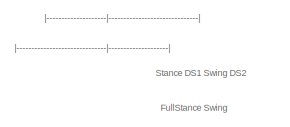
[diagram: Stance, Swing, Trans (sagittal) - part 1/6, top center region]
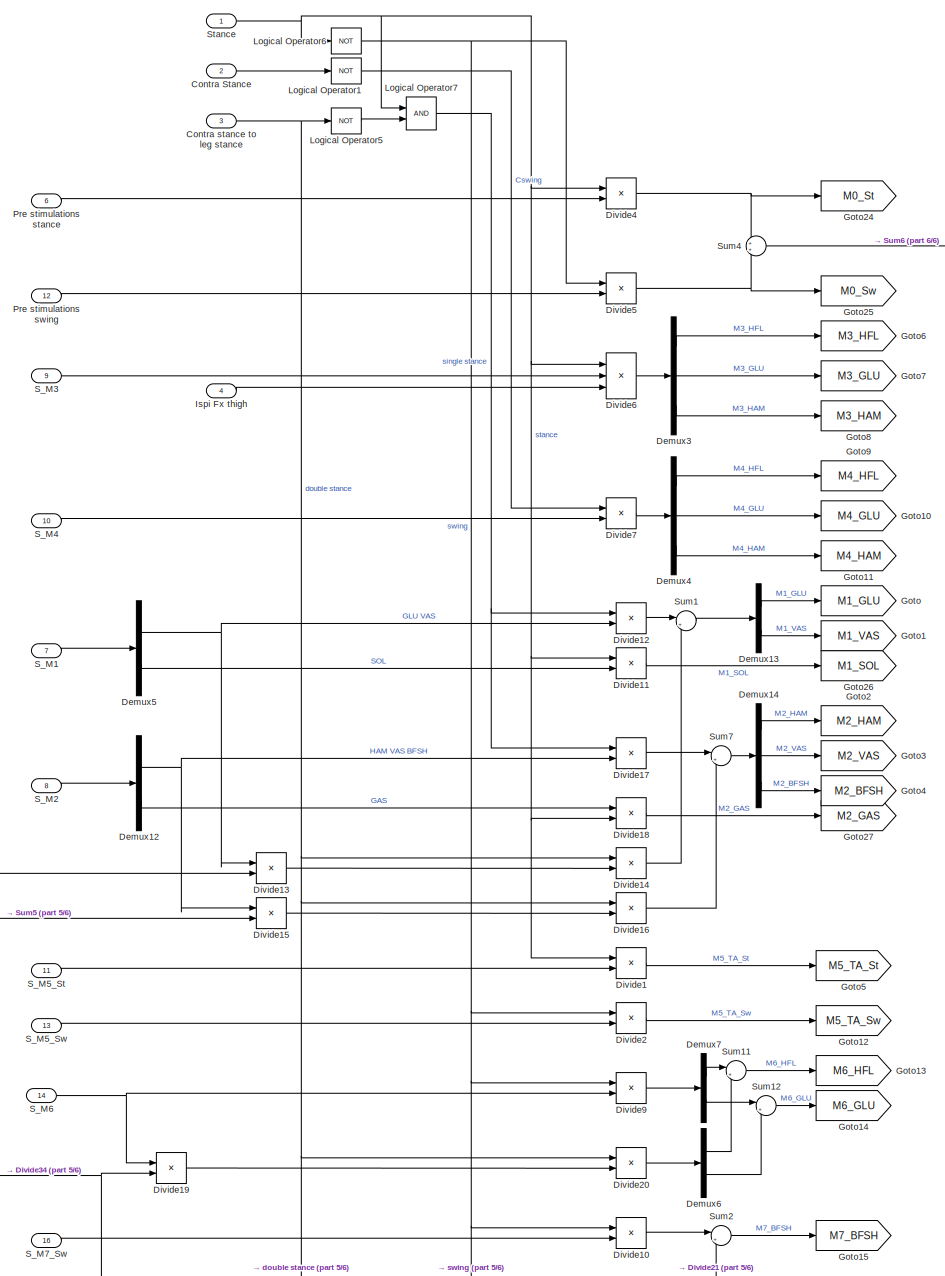
[diagram: Stance, Swing, Trans (sagittal) - part 2/6, central region]
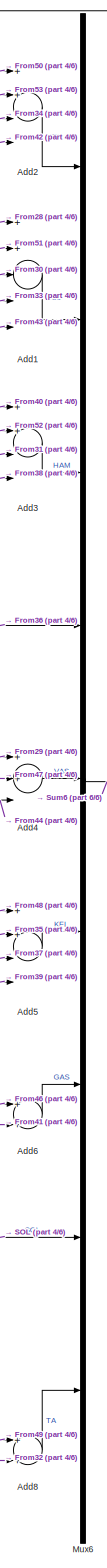
[diagram: Stance, Swing, Trans (sagittal) - part 3/6, right side, full height]
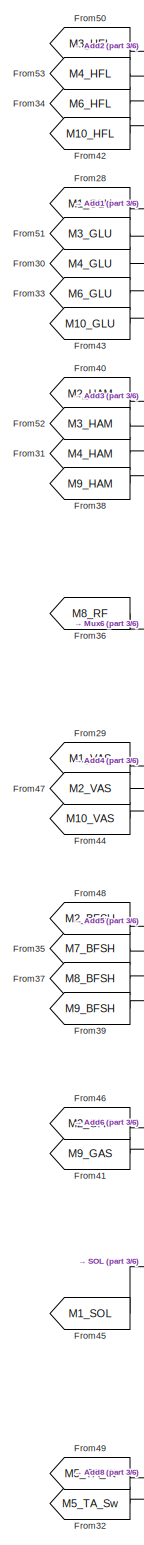
[diagram: Stance, Swing, Trans (sagittal) - part 4/6, right side, full height]
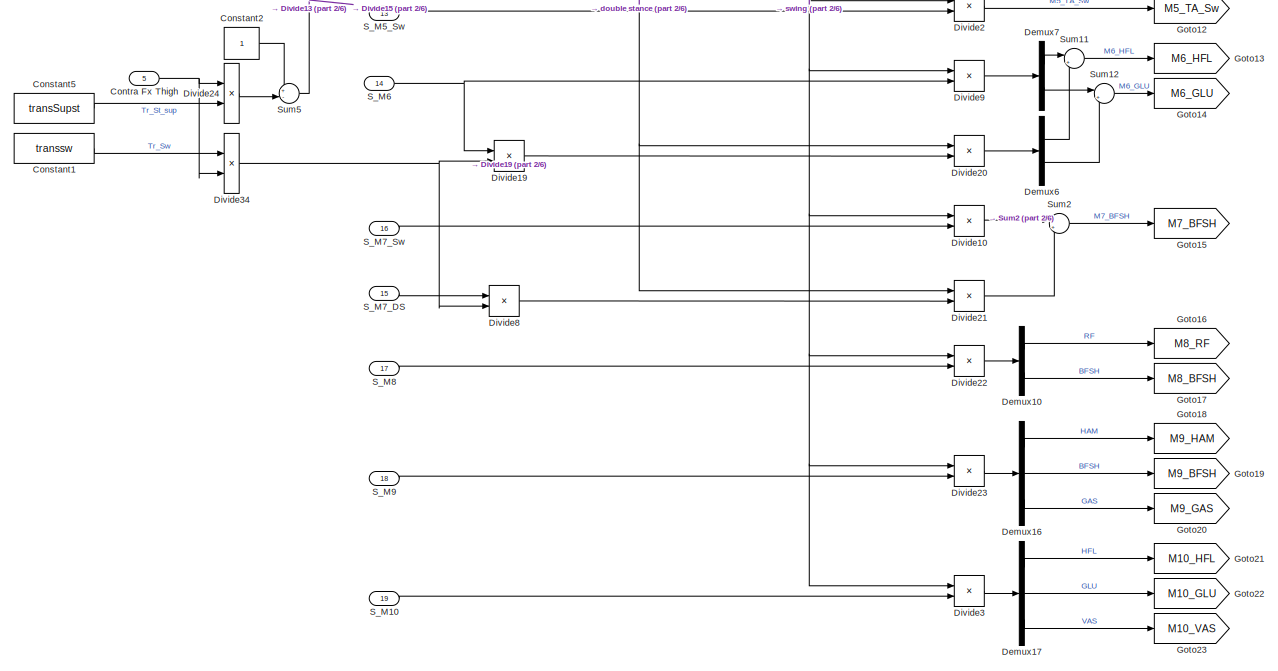
[diagram: Stance, Swing, Trans (sagittal) - part 5/6, bottom center region]
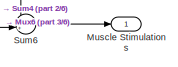
[diagram: Stance, Swing, Trans (sagittal) - part 6/6, middle right region]
BLOCK [SubSystem] Stance, Swing, Trans (sagittal)
  Ports = [19, 1]
  RequestExecContextInheritance = off
BLOCK [Sum] Stance, Swing, Trans (sagittal)/Add1
  InputSameDT = off
  Inputs = 5
  OutDataTypeStr = Inherit: Inherit via internal rule
  Ports = [5, 1]
  SaturateOnIntegerOverflow = off
BLOCK [Sum] Stance, Swing, Trans (sagittal)/Add2
  InputSameDT = off
  Inputs = 4
  OutDataTypeStr = Inherit: Inherit via internal rule
  Ports = [4, 1]
  SaturateOnIntegerOverflow = off
BLOCK [Sum] Stance, Swing, Trans (sagittal)/Add3
  InputSameDT = off
  Inputs = 4
  OutDataTypeStr = Inherit: Inherit via internal rule
  Ports = [4, 1]
  SaturateOnIntegerOverflow = off
BLOCK [Sum] Stance, Swing, Trans (sagittal)/Add4
  InputSameDT = off
  Inputs = 3
  OutDataTypeStr = Inherit: Inherit via internal rule
  Ports = [3, 1]
  SaturateOnIntegerOverflow = off
BLOCK [Sum] Stance, Swing, Trans (sagittal)/Add5
  InputSameDT = off
  Inputs = 4
  OutDataTypeStr = Inherit: Inherit via internal rule
  Ports = [4, 1]
  SaturateOnIntegerOverflow = off
BLOCK [Sum] Stance, Swing, Trans (sagittal)/Add6
  InputSameDT = off
  Inputs = 2
  OutDataTypeStr = Inherit: Inherit via internal rule
  Ports = [2, 1]
  SaturateOnIntegerOverflow = off
BLOCK [Sum] Stance, Swing, Trans (sagittal)/Add8
  InputSameDT = off
  Inputs = 2
  OutDataTypeStr = Inherit: Inherit via internal rule
  Ports = [2, 1]
  SaturateOnIntegerOverflow = off
BLOCK [Constant] Stance, Swing, Trans (sagittal)/Constant1
  Value = transsw
BLOCK [Constant] Stance, Swing, Trans (sagittal)/Constant2
BLOCK [Constant] Stance, Swing, Trans (sagittal)/Constant5
  Value = transSupst
BLOCK [Inport] Stance, Swing, Trans (sagittal)/Contra Fx Thigh
  IconDisplay = Port number
  Port = 5
BLOCK [Inport] Stance, Swing, Trans (sagittal)/Contra Stance
  IconDisplay = Port number
  Port = 2
BLOCK [Inport] Stance, Swing, Trans (sagittal)/Contra stance to leg stance
  IconDisplay = Port number
  Port = 3
BLOCK [Demux] Stance, Swing, Trans (sagittal)/Demux10
  DisplayOption = bar
  Outputs = 2
  Ports = [1, 2]
BLOCK [Demux] Stance, Swing, Trans (sagittal)/Demux12
  DisplayOption = bar
  Outputs = [3 1]
  Ports = [1, 2]
BLOCK [Demux] Stance, Swing, Trans (sagittal)/Demux13
  DisplayOption = bar
  Outputs = 2
  Ports = [1, 2]
BLOCK [Demux] Stance, Swing, Trans (sagittal)/Demux14
  DisplayOption = bar
  Outputs = 3
  Ports = [1, 3]
BLOCK [Demux] Stance, Swing, Trans (sagittal)/Demux16
  DisplayOption = bar
  Outputs = 3
  Ports = [1, 3]
BLOCK [Demux] Stance, Swing, Trans (sagittal)/Demux17
  DisplayOption = bar
  Outputs = 3
  Ports = [1, 3]
BLOCK [Demux] Stance, Swing, Trans (sagittal)/Demux3
  DisplayOption = bar
  Outputs = 3
  Ports = [1, 3]
BLOCK [Demux] Stance, Swing, Trans (sagittal)/Demux4
  DisplayOption = bar
  Outputs = 3
  Ports = [1, 3]
BLOCK [Demux] Stance, Swing, Trans (sagittal)/Demux5
  DisplayOption = bar
  Outputs = [2 1]
  Ports = [1, 2]
BLOCK [Demux] Stance, Swing, Trans (sagittal)/Demux6
  DisplayOption = bar
  Outputs = 2
  Ports = [1, 2]
BLOCK [Demux] Stance, Swing, Trans (sagittal)/Demux7
  DisplayOption = bar
  Outputs = 2
  Ports = [1, 2]
BLOCK [Product] Stance, Swing, Trans (sagittal)/Divide1
  InputSameDT = off
  OutDataTypeStr = Inherit: Inherit via internal rule
  Ports = [2, 1]
  RndMeth = Floor
  SaturateOnIntegerOverflow = off
BLOCK [Product] Stance, Swing, Trans (sagittal)/Divide10
  InputSameDT = off
  OutDataTypeStr = Inherit: Inherit via internal rule
  Ports = [2, 1]
  RndMeth = Floor
  SaturateOnIntegerOverflow = off
BLOCK [Product] Stance, Swing, Trans (sagittal)/Divide11
  InputSameDT = off
  OutDataTypeStr = Inherit: Inherit via internal rule
  Ports = [2, 1]
  RndMeth = Floor
  SaturateOnIntegerOverflow = off
BLOCK [Product] Stance, Swing, Trans (sagittal)/Divide12
  InputSameDT = off
  OutDataTypeStr = Inherit: Inherit via internal rule
  Ports = [2, 1]
  RndMeth = Floor
  SaturateOnIntegerOverflow = off
BLOCK [Product] Stance, Swing, Trans (sagittal)/Divide13
  InputSameDT = off
  OutDataTypeStr = Inherit: Inherit via internal rule
  Ports = [2, 1]
  RndMeth = Floor
  SaturateOnIntegerOverflow = off
BLOCK [Product] Stance, Swing, Trans (sagittal)/Divide14
  InputSameDT = off
  OutDataTypeStr = Inherit: Inherit via internal rule
  Ports = [2, 1]
  RndMeth = Floor
  SaturateOnIntegerOverflow = off
BLOCK [Product] Stance, Swing, Trans (sagittal)/Divide15
  InputSameDT = off
  OutDataTypeStr = Inherit: Inherit via internal rule
  Ports = [2, 1]
  RndMeth = Floor
  SaturateOnIntegerOverflow = off
BLOCK [Product] Stance, Swing, Trans (sagittal)/Divide16
  InputSameDT = off
  OutDataTypeStr = Inherit: Inherit via internal rule
  Ports = [2, 1]
  RndMeth = Floor
  SaturateOnIntegerOverflow = off
BLOCK [Product] Stance, Swing, Trans (sagittal)/Divide17
  InputSameDT = off
  OutDataTypeStr = Inherit: Inherit via internal rule
  Ports = [2, 1]
  RndMeth = Floor
  SaturateOnIntegerOverflow = off
BLOCK [Product] Stance, Swing, Trans (sagittal)/Divide18
  InputSameDT = off
  OutDataTypeStr = Inherit: Inherit via internal rule
  Ports = [2, 1]
  RndMeth = Floor
  SaturateOnIntegerOverflow = off
BLOCK [Product] Stance, Swing, Trans (sagittal)/Divide19
  InputSameDT = off
  OutDataTypeStr = Inherit: Inherit via internal rule
  Ports = [2, 1]
  RndMeth = Floor
  SaturateOnIntegerOverflow = off
BLOCK [Product] Stance, Swing, Trans (sagittal)/Divide2
  InputSameDT = off
  OutDataTypeStr = Inherit: Inherit via internal rule
  Ports = [2, 1]
  RndMeth = Floor
  SaturateOnIntegerOverflow = off
BLOCK [Product] Stance, Swing, Trans (sagittal)/Divide20
  InputSameDT = off
  OutDataTypeStr = Inherit: Inherit via internal rule
  Ports = [2, 1]
  RndMeth = Floor
  SaturateOnIntegerOverflow = off
BLOCK [Product] Stance, Swing, Trans (sagittal)/Divide21
  InputSameDT = off
  OutDataTypeStr = Inherit: Inherit via internal rule
  Ports = [2, 1]
  RndMeth = Floor
  SaturateOnIntegerOverflow = off
BLOCK [Product] Stance, Swing, Trans (sagittal)/Divide22
  InputSameDT = off
  OutDataTypeStr = Inherit: Inherit via internal rule
  Ports = [2, 1]
  RndMeth = Floor
  SaturateOnIntegerOverflow = off
BLOCK [Product] Stance, Swing, Trans (sagittal)/Divide23
  InputSameDT = off
  OutDataTypeStr = Inherit: Inherit via internal rule
  Ports = [2, 1]
  RndMeth = Floor
  SaturateOnIntegerOverflow = off
BLOCK [Product] Stance, Swing, Trans (sagittal)/Divide24
  InputSameDT = off
  OutDataTypeStr = Inherit: Inherit via internal rule
  Ports = [2, 1]
  RndMeth = Floor
  SaturateOnIntegerOverflow = off
BLOCK [Product] Stance, Swing, Trans (sagittal)/Divide3
  InputSameDT = off
  OutDataTypeStr = Inherit: Inherit via internal rule
  Ports = [2, 1]
  RndMeth = Floor
  SaturateOnIntegerOverflow = off
BLOCK [Product] Stance, Swing, Trans (sagittal)/Divide34
  InputSameDT = off
  OutDataTypeStr = Inherit: Inherit via internal rule
  Ports = [2, 1]
  RndMeth = Floor
  SaturateOnIntegerOverflow = off
BLOCK [Product] Stance, Swing, Trans (sagittal)/Divide4
  InputSameDT = off
  OutDataTypeStr = Inherit: Inherit via internal rule
  Ports = [2, 1]
  RndMeth = Floor
  SaturateOnIntegerOverflow = off
BLOCK [Product] Stance, Swing, Trans (sagittal)/Divide5
  InputSameDT = off
  OutDataTypeStr = Inherit: Inherit via internal rule
  Ports = [2, 1]
  RndMeth = Floor
  SaturateOnIntegerOverflow = off
BLOCK [Product] Stance, Swing, Trans (sagittal)/Divide6
  InputSameDT = off
  Inputs = 3
  OutDataTypeStr = Inherit: Inherit via internal rule
  Ports = [3, 1]
  RndMeth = Floor
  SaturateOnIntegerOverflow = off
BLOCK [Product] Stance, Swing, Trans (sagittal)/Divide7
  InputSameDT = off
  OutDataTypeStr = Inherit: Inherit via internal rule
  Ports = [2, 1]
  RndMeth = Floor
  SaturateOnIntegerOverflow = off
BLOCK [Product] Stance, Swing, Trans (sagittal)/Divide8
  InputSameDT = off
  OutDataTypeStr = Inherit: Inherit via internal rule
  Ports = [2, 1]
  RndMeth = Floor
  SaturateOnIntegerOverflow = off
BLOCK [Product] Stance, Swing, Trans (sagittal)/Divide9
  InputSameDT = off
  OutDataTypeStr = Inherit: Inherit via internal rule
  Ports = [2, 1]
  RndMeth = Floor
  SaturateOnIntegerOverflow = off
BLOCK [From] Stance, Swing, Trans (sagittal)/From28
  GotoTag = M1_GLU
BLOCK [From] Stance, Swing, Trans (sagittal)/From29
  GotoTag = M1_VAS
BLOCK [From] Stance, Swing, Trans (sagittal)/From30
  GotoTag = M4_GLU
BLOCK [From] Stance, Swing, Trans (sagittal)/From31
  GotoTag = M4_HAM
BLOCK [From] Stance, Swing, Trans (sagittal)/From32
  GotoTag = M5_TA_Sw
BLOCK [From] Stance, Swing, Trans (sagittal)/From33
  GotoTag = M6_GLU
BLOCK [From] Stance, Swing, Trans (sagittal)/From34
  GotoTag = M6_HFL
BLOCK [From] Stance, Swing, Trans (sagittal)/From35
  GotoTag = M7_BFSH
BLOCK [From] Stance, Swing, Trans (sagittal)/From36
  GotoTag = M8_RF
BLOCK [From] Stance, Swing, Trans (sagittal)/From37
  GotoTag = M8_BFSH
BLOCK [From] Stance, Swing, Trans (sagittal)/From38
  GotoTag = M9_HAM
BLOCK [From] Stance, Swing, Trans (sagittal)/From39
  GotoTag = M9_BFSH
BLOCK [From] Stance, Swing, Trans (sagittal)/From40
  GotoTag = M2_HAM
BLOCK [From] Stance, Swing, Trans (sagittal)/From41
  GotoTag = M9_GAS
BLOCK [From] Stance, Swing, Trans (sagittal)/From42
  GotoTag = M10_HFL
BLOCK [From] Stance, Swing, Trans (sagittal)/From43
  GotoTag = M10_GLU
BLOCK [From] Stance, Swing, Trans (sagittal)/From44
  GotoTag = M10_VAS
BLOCK [From] Stance, Swing, Trans (sagittal)/From45
  GotoTag = M1_SOL
BLOCK [From] Stance, Swing, Trans (sagittal)/From46
  GotoTag = M2_GAS
BLOCK [From] Stance, Swing, Trans (sagittal)/From47
  GotoTag = M2_VAS
BLOCK [From] Stance, Swing, Trans (sagittal)/From48
  GotoTag = M2_BFSH
BLOCK [From] Stance, Swing, Trans (sagittal)/From49
  GotoTag = M5_TA_St
BLOCK [From] Stance, Swing, Trans (sagittal)/From50
  GotoTag = M3_HFL
BLOCK [From] Stance, Swing, Trans (sagittal)/From51
  GotoTag = M3_GLU
BLOCK [From] Stance, Swing, Trans (sagittal)/From52
  GotoTag = M3_HAM
BLOCK [From] Stance, Swing, Trans (sagittal)/From53
  GotoTag = M4_HFL
BLOCK [Goto] Stance, Swing, Trans (sagittal)/Goto
  GotoTag = M1_GLU
BLOCK [Goto] Stance, Swing, Trans (sagittal)/Goto1
  GotoTag = M1_VAS
BLOCK [Goto] Stance, Swing, Trans (sagittal)/Goto10
  GotoTag = M4_GLU
BLOCK [Goto] Stance, Swing, Trans (sagittal)/Goto11
  GotoTag = M4_HAM
BLOCK [Goto] Stance, Swing, Trans (sagittal)/Goto12
  GotoTag = M5_TA_Sw
BLOCK [Goto] Stance, Swing, Trans (sagittal)/Goto13
  GotoTag = M6_HFL
BLOCK [Goto] Stance, Swing, Trans (sagittal)/Goto14
  GotoTag = M6_GLU
BLOCK [Goto] Stance, Swing, Trans (sagittal)/Goto15
  GotoTag = M7_BFSH
BLOCK [Goto] Stance, Swing, Trans (sagittal)/Goto16
  GotoTag = M8_RF
BLOCK [Goto] Stance, Swing, Trans (sagittal)/Goto17
  GotoTag = M8_BFSH
BLOCK [Goto] Stance, Swing, Trans (sagittal)/Goto18
  GotoTag = M9_HAM
BLOCK [Goto] Stance, Swing, Trans (sagittal)/Goto19
  GotoTag = M9_BFSH
BLOCK [Goto] Stance, Swing, Trans (sagittal)/Goto2
  GotoTag = M2_HAM
BLOCK [Goto] Stance, Swing, Trans (sagittal)/Goto20
  GotoTag = M9_GAS
BLOCK [Goto] Stance, Swing, Trans (sagittal)/Goto21
  GotoTag = M10_HFL
BLOCK [Goto] Stance, Swing, Trans (sagittal)/Goto22
  GotoTag = M10_GLU
BLOCK [Goto] Stance, Swing, Trans (sagittal)/Goto23
  GotoTag = M10_VAS
BLOCK [Goto] Stance, Swing, Trans (sagittal)/Goto24
  GotoTag = M0_St
BLOCK [Goto] Stance, Swing, Trans (sagittal)/Goto25
  GotoTag = M0_Sw
BLOCK [Goto] Stance, Swing, Trans (sagittal)/Goto26
  GotoTag = M1_SOL
BLOCK [Goto] Stance, Swing, Trans (sagittal)/Goto27
  GotoTag = M2_GAS
BLOCK [Goto] Stance, Swing, Trans (sagittal)/Goto3
  GotoTag = M2_VAS
BLOCK [Goto] Stance, Swing, Trans (sagittal)/Goto4
  GotoTag = M2_BFSH
BLOCK [Goto] Stance, Swing, Trans (sagittal)/Goto5
  GotoTag = M5_TA_St
BLOCK [Goto] Stance, Swing, Trans (sagittal)/Goto6
  GotoTag = M3_HFL
BLOCK [Goto] Stance, Swing, Trans (sagittal)/Goto7
  GotoTag = M3_GLU
BLOCK [Goto] Stance, Swing, Trans (sagittal)/Goto8
  GotoTag = M3_HAM
BLOCK [Goto] Stance, Swing, Trans (sagittal)/Goto9
  GotoTag = M4_HFL
BLOCK [Inport] Stance, Swing, Trans (sagittal)/Ispi Fx thigh
  IconDisplay = Port number
  Port = 4
BLOCK [Logic] Stance, Swing, Trans (sagittal)/Logical Operator1
  AllPortsSameDT = off
  Operator = NOT
  OutDataTypeStr = boolean
  Ports = [1, 1]
BLOCK [Logic] Stance, Swing, Trans (sagittal)/Logical Operator5
  AllPortsSameDT = off
  Operator = NOT
  OutDataTypeStr = boolean
  Ports = [1, 1]
BLOCK [Logic] Stance, Swing, Trans (sagittal)/Logical Operator6
  AllPortsSameDT = off
  Operator = NOT
  OutDataTypeStr = boolean
  Ports = [1, 1]
BLOCK [Logic] Stance, Swing, Trans (sagittal)/Logical Operator7
  AllPortsSameDT = off
  OutDataTypeStr = boolean
  Ports = [2, 1]
BLOCK [Outport] Stance, Swing, Trans (sagittal)/Muscle Stimulations
  IconDisplay = Port number
  InitialOutput = 0
  OutputWhenDisabled = reset
BLOCK [Mux] Stance, Swing, Trans (sagittal)/Mux6
  DisplayOption = bar
  Inputs = 9
  Ports = [9, 1]
BLOCK [Inport] Stance, Swing, Trans (sagittal)/Pre stimulations stance
  IconDisplay = Port number
  Port = 6
BLOCK [Inport] Stance, Swing, Trans (sagittal)/Pre stimulations swing
  IconDisplay = Port number
  Port = 12
BLOCK [Inport] Stance, Swing, Trans (sagittal)/S_M1
  IconDisplay = Port number
  Port = 7
BLOCK [Inport] Stance, Swing, Trans (sagittal)/S_M10
  IconDisplay = Port number
  Port = 19
BLOCK [Inport] Stance, Swing, Trans (sagittal)/S_M2
  IconDisplay = Port number
  Port = 8
BLOCK [Inport] Stance, Swing, Trans (sagittal)/S_M3
  IconDisplay = Port number
  Port = 9
BLOCK [Inport] Stance, Swing, Trans (sagittal)/S_M4
  IconDisplay = Port number
  Port = 10
BLOCK [Inport] Stance, Swing, Trans (sagittal)/S_M5_St
  IconDisplay = Port number
  Port = 11
BLOCK [Inport] Stance, Swing, Trans (sagittal)/S_M5_Sw
  IconDisplay = Port number
  Port = 13
BLOCK [Inport] Stance, Swing, Trans (sagittal)/S_M6
  IconDisplay = Port number
  Port = 14
BLOCK [Inport] Stance, Swing, Trans (sagittal)/S_M7_DS
  IconDisplay = Port number
  Port = 15
BLOCK [Inport] Stance, Swing, Trans (sagittal)/S_M7_Sw
  IconDisplay = Port number
  Port = 16
BLOCK [Inport] Stance, Swing, Trans (sagittal)/S_M8
  IconDisplay = Port number
  Port = 17
BLOCK [Inport] Stance, Swing, Trans (sagittal)/S_M9
  IconDisplay = Port number
  Port = 18
BLOCK [Inport] Stance, Swing, Trans (sagittal)/Stance
  IconDisplay = Port number
BLOCK [Sum] Stance, Swing, Trans (sagittal)/Sum1
  IconShape = round
  Inputs = |++
  Ports = [2, 1]
BLOCK [Sum] Stance, Swing, Trans (sagittal)/Sum11
  IconShape = round
  Inputs = |++
  Ports = [2, 1]
BLOCK [Sum] Stance, Swing, Trans (sagittal)/Sum12
  IconShape = round
  Inputs = |++
  Ports = [2, 1]
BLOCK [Sum] Stance, Swing, Trans (sagittal)/Sum2
  IconShape = round
  Inputs = |++
  Ports = [2, 1]
BLOCK [Sum] Stance, Swing, Trans (sagittal)/Sum4
  IconShape = round
  Ports = [2, 1]
BLOCK [Sum] Stance, Swing, Trans (sagittal)/Sum5
  IconShape = round
  Inputs = +-|
  Ports = [2, 1]
BLOCK [Sum] Stance, Swing, Trans (sagittal)/Sum6
  IconShape = round
  Inputs = ++|
  Ports = [2, 1]
BLOCK [Sum] Stance, Swing, Trans (sagittal)/Sum7
  IconShape = round
  Inputs = |++
  Ports = [2, 1]
BLOCK [SubSystem] Stance, Swing, Trans amp (sagittal)
  Ports = [15, 1]
  RequestExecContextInheritance = off
BLOCK [Sum] Stance, Swing, Trans amp (sagittal)/Add1
  InputSameDT = off
  Inputs = 5
  OutDataTypeStr = Inherit: Inherit via internal rule
  Ports = [5, 1]
  SaturateOnIntegerOverflow = off
BLOCK [Sum] Stance, Swing, Trans amp (sagittal)/Add2
  InputSameDT = off
  Inputs = 4
  OutDataTypeStr = Inherit: Inherit via internal rule
  Ports = [4, 1]
  SaturateOnIntegerOverflow = off
BLOCK [Sum] Stance, Swing, Trans amp (sagittal)/Add3
  InputSameDT = off
  Inputs = 4
  OutDataTypeStr = Inherit: Inherit via internal rule
  Ports = [4, 1]
  SaturateOnIntegerOverflow = off
BLOCK [Constant] Stance, Swing, Trans amp (sagittal)/Constant1
  Value = transsw
BLOCK [Constant] Stance, Swing, Trans amp (sagittal)/Constant2
BLOCK [Constant] Stance, Swing, Trans amp (sagittal)/Constant3
  Value = 0
BLOCK [Constant] Stance, Swing, Trans amp (sagittal)/Constant4
  Value = 0
BLOCK [Constant] Stance, Swing, Trans amp (sagittal)/Constant5
  Value = transSupst
BLOCK [Constant] Stance, Swing, Trans amp (sagittal)/Constant6
  Value = 0
BLOCK [Constant] Stance, Swing, Trans amp (sagittal)/Constant7
  Value = 0
BLOCK [Constant] Stance, Swing, Trans amp (sagittal)/Constant8
  Value = 0
BLOCK [Inport] Stance, Swing, Trans amp (sagittal)/Contra Fx Thigh
  IconDisplay = Port number
  Port = 5
BLOCK [Inport] Stance, Swing, Trans amp (sagittal)/Contra Stance
  IconDisplay = Port number
  Port = 2
BLOCK [Inport] Stance, Swing, Trans amp (sagittal)/Contra stance to leg stance
  IconDisplay = Port number
  Port = 3
BLOCK [Demux] Stance, Swing, Trans amp (sagittal)/Demux10
  DisplayOption = bar
  Outputs = 2
  Ports = [1, 2]
BLOCK [Demux] Stance, Swing, Trans amp (sagittal)/Demux12
  DisplayOption = bar
  Outputs = [3 1]
  Ports = [1, 2]
BLOCK [Demux] Stance, Swing, Trans amp (sagittal)/Demux13
  DisplayOption = bar
  Outputs = 2
  Ports = [1, 2]
BLOCK [Demux] Stance, Swing, Trans amp (sagittal)/Demux14
  DisplayOption = bar
  Outputs = 3
  Ports = [1, 3]
BLOCK [Demux] Stance, Swing, Trans amp (sagittal)/Demux16
  DisplayOption = bar
  Outputs = 3
  Ports = [1, 3]
BLOCK [Demux] Stance, Swing, Trans amp (sagittal)/Demux17
  DisplayOption = bar
  Outputs = 3
  Ports = [1, 3]
BLOCK [Demux] Stance, Swing, Trans amp (sagittal)/Demux3
  DisplayOption = bar
  Outputs = 3
  Ports = [1, 3]
BLOCK [Demux] Stance, Swing, Trans amp (sagittal)/Demux4
  DisplayOption = bar
  Outputs = 3
  Ports = [1, 3]
BLOCK [Demux] Stance, Swing, Trans amp (sagittal)/Demux5
  DisplayOption = bar
  Outputs = [2 1]
  Ports = [1, 2]
BLOCK [Demux] Stance, Swing, Trans amp (sagittal)/Demux6
  DisplayOption = bar
  Outputs = 2
  Ports = [1, 2]
BLOCK [Demux] Stance, Swing, Trans amp (sagittal)/Demux7
  DisplayOption = bar
  Outputs = 2
  Ports = [1, 2]
BLOCK [Product] Stance, Swing, Trans amp (sagittal)/Divide12
  InputSameDT = off
  OutDataTypeStr = Inherit: Inherit via internal rule
  Ports = [2, 1]
  RndMeth = Floor
  SaturateOnIntegerOverflow = off
BLOCK [Product] Stance, Swing, Trans amp (sagittal)/Divide13
  InputSameDT = off
  OutDataTypeStr = Inherit: Inherit via internal rule
  Ports = [2, 1]
  RndMeth = Floor
  SaturateOnIntegerOverflow = off
BLOCK [Product] Stance, Swing, Trans amp (sagittal)/Divide14
  InputSameDT = off
  OutDataTypeStr = Inherit: Inherit via internal rule
  Ports = [2, 1]
  RndMeth = Floor
  SaturateOnIntegerOverflow = off
BLOCK [Product] Stance, Swing, Trans amp (sagittal)/Divide15
  InputSameDT = off
  OutDataTypeStr = Inherit: Inherit via internal rule
  Ports = [2, 1]
  RndMeth = Floor
  SaturateOnIntegerOverflow = off
BLOCK [Product] Stance, Swing, Trans amp (sagittal)/Divide16
  InputSameDT = off
  OutDataTypeStr = Inherit: Inherit via internal rule
  Ports = [2, 1]
  RndMeth = Floor
  SaturateOnIntegerOverflow = off
BLOCK [Product] Stance, Swing, Trans amp (sagittal)/Divide17
  InputSameDT = off
  OutDataTypeStr = Inherit: Inherit via internal rule
  Ports = [2, 1]
  RndMeth = Floor
  SaturateOnIntegerOverflow = off
BLOCK [Product] Stance, Swing, Trans amp (sagittal)/Divide19
  InputSameDT = off
  OutDataTypeStr = Inherit: Inherit via internal rule
  Ports = [2, 1]
  RndMeth = Floor
  SaturateOnIntegerOverflow = off
BLOCK [Product] Stance, Swing, Trans amp (sagittal)/Divide20
  InputSameDT = off
  OutDataTypeStr = Inherit: Inherit via internal rule
  Ports = [2, 1]
  RndMeth = Floor
  SaturateOnIntegerOverflow = off
BLOCK [Product] Stance, Swing, Trans amp (sagittal)/Divide22
  InputSameDT = off
  OutDataTypeStr = Inherit: Inherit via internal rule
  Ports = [2, 1]
  RndMeth = Floor
  SaturateOnIntegerOverflow = off
BLOCK [Product] Stance, Swing, Trans amp (sagittal)/Divide23
  InputSameDT = off
  OutDataTypeStr = Inherit: Inherit via internal rule
  Ports = [2, 1]
  RndMeth = Floor
  SaturateOnIntegerOverflow = off
BLOCK [Product] Stance, Swing, Trans amp (sagittal)/Divide24
  InputSameDT = off
  OutDataTypeStr = Inherit: Inherit via internal rule
  Ports = [2, 1]
  RndMeth = Floor
  SaturateOnIntegerOverflow = off
BLOCK [Product] Stance, Swing, Trans amp (sagittal)/Divide3
  InputSameDT = off
  OutDataTypeStr = Inherit: Inherit via internal rule
  Ports = [2, 1]
  RndMeth = Floor
  SaturateOnIntegerOverflow = off
BLOCK [Product] Stance, Swing, Trans amp (sagittal)/Divide34
  InputSameDT = off
  OutDataTypeStr = Inherit: Inherit via internal rule
  Ports = [2, 1]
  RndMeth = Floor
  SaturateOnIntegerOverflow = off
BLOCK [Product] Stance, Swing, Trans amp (sagittal)/Divide4
  InputSameDT = off
  OutDataTypeStr = Inherit: Inherit via internal rule
  Ports = [2, 1]
  RndMeth = Floor
  SaturateOnIntegerOverflow = off
BLOCK [Product] Stance, Swing, Trans amp (sagittal)/Divide5
  InputSameDT = off
  OutDataTypeStr = Inherit: Inherit via internal rule
  Ports = [2, 1]
  RndMeth = Floor
  SaturateOnIntegerOverflow = off
BLOCK [Product] Stance, Swing, Trans amp (sagittal)/Divide6
  InputSameDT = off
  Inputs = 3
  OutDataTypeStr = Inherit: Inherit via internal rule
  Ports = [3, 1]
  RndMeth = Floor
  SaturateOnIntegerOverflow = off
BLOCK [Product] Stance, Swing, Trans amp (sagittal)/Divide7
  InputSameDT = off
  OutDataTypeStr = Inherit: Inherit via internal rule
  Ports = [2, 1]
  RndMeth = Floor
  SaturateOnIntegerOverflow = off
BLOCK [Product] Stance, Swing, Trans amp (sagittal)/Divide9
  InputSameDT = off
  OutDataTypeStr = Inherit: Inherit via internal rule
  Ports = [2, 1]
  RndMeth = Floor
  SaturateOnIntegerOverflow = off
BLOCK [From] Stance, Swing, Trans amp (sagittal)/From28
  GotoTag = M1_GLU
BLOCK [From] Stance, Swing, Trans amp (sagittal)/From30
  GotoTag = M4_GLU
BLOCK [From] Stance, Swing, Trans amp (sagittal)/From31
  GotoTag = M4_HAM
BLOCK [From] Stance, Swing, Trans amp (sagittal)/From33
  GotoTag = M6_GLU
BLOCK [From] Stance, Swing, Trans amp (sagittal)/From34
  GotoTag = M6_HFL
BLOCK [From] Stance, Swing, Trans amp (sagittal)/From36
  GotoTag = M8_RF
BLOCK [From] Stance, Swing, Trans amp (sagittal)/From38
  GotoTag = M9_HAM
BLOCK [From] Stance, Swing, Trans amp (sagittal)/From40
  GotoTag = M2_HAM
BLOCK [From] Stance, Swing, Trans amp (sagittal)/From42
  GotoTag = M10_HFL
BLOCK [From] Stance, Swing, Trans amp (sagittal)/From43
  GotoTag = M10_GLU
BLOCK [From] Stance, Swing, Trans amp (sagittal)/From50
  GotoTag = M3_HFL
BLOCK [From] Stance, Swing, Trans amp (sagittal)/From51
  GotoTag = M3_GLU
BLOCK [From] Stance, Swing, Trans amp (sagittal)/From52
  GotoTag = M3_HAM
BLOCK [From] Stance, Swing, Trans amp (sagittal)/From53
  GotoTag = M4_HFL
BLOCK [Goto] Stance, Swing, Trans amp (sagittal)/Goto
  GotoTag = M1_GLU
BLOCK [Goto] Stance, Swing, Trans amp (sagittal)/Goto10
  GotoTag = M4_GLU
BLOCK [Goto] Stance, Swing, Trans amp (sagittal)/Goto11
  GotoTag = M4_HAM
BLOCK [Goto] Stance, Swing, Trans amp (sagittal)/Goto13
  GotoTag = M6_HFL
BLOCK [Goto] Stance, Swing, Trans amp (sagittal)/Goto14
  GotoTag = M6_GLU
BLOCK [Goto] Stance, Swing, Trans amp (sagittal)/Goto16
  GotoTag = M8_RF
BLOCK [Goto] Stance, Swing, Trans amp (sagittal)/Goto18
  GotoTag = M9_HAM
BLOCK [Goto] Stance, Swing, Trans amp (sagittal)/Goto2
  GotoTag = M2_HAM
BLOCK [Goto] Stance, Swing, Trans amp (sagittal)/Goto21
  GotoTag = M10_HFL
BLOCK [Goto] Stance, Swing, Trans amp (sagittal)/Goto22
  GotoTag = M10_GLU
BLOCK [Goto] Stance, Swing, Trans amp (sagittal)/Goto24
  GotoTag = M0_St
BLOCK [Goto] Stance, Swing, Trans amp (sagittal)/Goto25
  GotoTag = M0_Sw
BLOCK [Goto] Stance, Swing, Trans amp (sagittal)/Goto6
  GotoTag = M3_HFL
BLOCK [Goto] Stance, Swing, Trans amp (sagittal)/Goto7
  GotoTag = M3_GLU
BLOCK [Goto] Stance, Swing, Trans amp (sagittal)/Goto8
  GotoTag = M3_HAM
BLOCK [Goto] Stance, Swing, Trans amp (sagittal)/Goto9
  GotoTag = M4_HFL
BLOCK [Inport] Stance, Swing, Trans amp (sagittal)/Ispi Fx thigh
  IconDisplay = Port number
  Port = 4
BLOCK [Logic] Stance, Swing, Trans amp (sagittal)/Logical Operator1
  AllPortsSameDT = off
  Operator = NOT
  OutDataTypeStr = boolean
  Ports = [1, 1]
BLOCK [Logic] Stance, Swing, Trans amp (sagittal)/Logical Operator5
  AllPortsSameDT = off
  Operator = NOT
  OutDataTypeStr = boolean
  Ports = [1, 1]
BLOCK [Logic] Stance, Swing, Trans amp (sagittal)/Logical Operator6
  AllPortsSameDT = off
  Operator = NOT
  OutDataTypeStr = boolean
  Ports = [1, 1]
BLOCK [Logic] Stance, Swing, Trans amp (sagittal)/Logical Operator7
  AllPortsSameDT = off
  OutDataTypeStr = boolean
  Ports = [2, 1]
BLOCK [Outport] Stance, Swing, Trans amp (sagittal)/Muscle Stimulations
  IconDisplay = Port number
  InitialOutput = 0
  OutputWhenDisabled = reset
BLOCK [Mux] Stance, Swing, Trans amp (sagittal)/Mux6
  DisplayOption = bar
  Inputs = 9
  Ports = [9, 1]
BLOCK [Inport] Stance, Swing, Trans amp (sagittal)/Pre stimulations stance
  IconDisplay = Port number
  Port = 6
BLOCK [Inport] Stance, Swing, Trans amp (sagittal)/Pre stimulations swing
  IconDisplay = Port number
  Port = 11
BLOCK [Inport] Stance, Swing, Trans amp (sagittal)/S_M1
  IconDisplay = Port number
  Port = 7
BLOCK [Inport] Stance, Swing, Trans amp (sagittal)/S_M10
  IconDisplay = Port number
  Port = 15
BLOCK [Inport] Stance, Swing, Trans amp (sagittal)/S_M2
  IconDisplay = Port number
  Port = 8
BLOCK [Inport] Stance, Swing, Trans amp (sagittal)/S_M3
  IconDisplay = Port number
  Port = 9
BLOCK [Inport] Stance, Swing, Trans amp (sagittal)/S_M4
  IconDisplay = Port number
  Port = 10
BLOCK [Inport] Stance, Swing, Trans amp (sagittal)/S_M6
  IconDisplay = Port number
  Port = 12
BLOCK [Inport] Stance, Swing, Trans amp (sagittal)/S_M8
  IconDisplay = Port number
  Port = 13
BLOCK [Inport] Stance, Swing, Trans amp (sagittal)/S_M9
  IconDisplay = Port number
  Port = 14
BLOCK [Inport] Stance, Swing, Trans amp (sagittal)/Stance
  IconDisplay = Port number
BLOCK [Sum] Stance, Swing, Trans amp (sagittal)/Sum1
  IconShape = round
  Inputs = |++
  Ports = [2, 1]
BLOCK [Sum] Stance, Swing, Trans amp (sagittal)/Sum11
  IconShape = round
  Inputs = |++
  Ports = [2, 1]
BLOCK [Sum] Stance, Swing, Trans amp (sagittal)/Sum12
  IconShape = round
  Inputs = |++
  Ports = [2, 1]
BLOCK [Sum] Stance, Swing, Trans amp (sagittal)/Sum4
  IconShape = round
  Ports = [2, 1]
BLOCK [Sum] Stance, Swing, Trans amp (sagittal)/Sum5
  IconShape = round
  Inputs = +-|
  Ports = [2, 1]
BLOCK [Sum] Stance, Swing, Trans amp (sagittal)/Sum6
  IconShape = round
  Inputs = ++|
  Ports = [2, 1]
BLOCK [Sum] Stance, Swing, Trans amp (sagittal)/Sum7
  IconShape = round
  Inputs = |++
  Ports = [2, 1]
BLOCK [Terminator] Stance, Swing, Trans amp (sagittal)/Terminator
BLOCK [Terminator] Stance, Swing, Trans amp (sagittal)/Terminator1
BLOCK [Terminator] Stance, Swing, Trans amp (sagittal)/Terminator10
BLOCK [Terminator] Stance, Swing, Trans amp (sagittal)/Terminator11
BLOCK [Terminator] Stance, Swing, Trans amp (sagittal)/Terminator12
BLOCK [Terminator] Stance, Swing, Trans amp (sagittal)/Terminator2
BLOCK [Terminator] Stance, Swing, Trans amp (sagittal)/Terminator3
BLOCK [Terminator] Stance, Swing, Trans amp (sagittal)/Terminator8
BLOCK [Terminator] Stance, Swing, Trans amp (sagittal)/Terminator9
BLOCK [SubSystem] Swing Phase (coronal)
  Ports = [3, 2, 1]
  RequestExecContextInheritance = off
  TreatAsAtomicUnit = on
BLOCK [Gain] Swing Phase (coronal)/ 1
  Gain = a2loptHAB
  OutDataTypeStr = Inherit: Inherit via internal rule
  ParamDataTypeStr = Inherit: Inherit via internal rule
  SaturateOnIntegerOverflow = off
BLOCK [Gain] Swing Phase (coronal)/ 2
  Gain = a2loptHAD
  OutDataTypeStr = Inherit: Inherit via internal rule
  ParamDataTypeStr = Inherit: Inherit via internal rule
  SaturateOnIntegerOverflow = off
BLOCK [Gain] Swing Phase (coronal)/ 3
  Gain = GainLHABsw
  OutDataTypeStr = Inherit: Inherit via internal rule
  ParamDataTypeStr = Inherit: Inherit via internal rule
  SaturateOnIntegerOverflow = off
BLOCK [Gain] Swing Phase (coronal)/ 4
  Gain = GainLHADsw
  OutDataTypeStr = Inherit: Inherit via internal rule
  ParamDataTypeStr = Inherit: Inherit via internal rule
  SaturateOnIntegerOverflow = off
BLOCK [Constant] Swing Phase (coronal)/Constant1
BLOCK [Constant] Swing Phase (coronal)/Constant12
  Value = PreStimHADsw
BLOCK [Constant] Swing Phase (coronal)/Constant15
  Value = PreStimHABsw
BLOCK [Constant] Swing Phase (coronal)/Constant2
  Value = aRefHAB
BLOCK [Constant] Swing Phase (coronal)/Constant3
  Value = aRefHAD
BLOCK [Constant] Swing Phase (coronal)/Constant5
BLOCK [EnablePort] Swing Phase (coronal)/Enable
  Ports = []
  StatesWhenEnabling = reset
  ZeroCross = off
BLOCK [Inport] Swing Phase (coronal)/LceHAB
  IconDisplay = Port number
  Port = 3
BLOCK [Inport] Swing Phase (coronal)/LceHAD
  IconDisplay = Port number
  Port = 2
BLOCK [Mux] Swing Phase (coronal)/Mux
  DisplayOption = bar
  Inputs = 2
  Ports = [2, 1]
BLOCK [Mux] Swing Phase (coronal)/Mux1
  DisplayOption = bar
  Inputs = 2
  Ports = [2, 1]
BLOCK [Outport] Swing Phase (coronal)/S_0_Sw
  IconDisplay = Port number
  InitialOutput = 0
  OutputWhenDisabled = reset
BLOCK [Outport] Swing Phase (coronal)/S_M6 [HAB HAD]
  IconDisplay = Port number
  InitialOutput = 0
  OutputWhenDisabled = reset
  Port = 2
BLOCK [Sum] Swing Phase (coronal)/Sum1
  IconShape = round
  Inputs = -+|
  Ports = [2, 1]
BLOCK [Sum] Swing Phase (coronal)/Sum10
  IconShape = round
  Inputs = ++|
  Ports = [2, 1]
BLOCK [Sum] Swing Phase (coronal)/Sum13
  IconShape = round
  Inputs = |-+
  Ports = [2, 1]
BLOCK [Sum] Swing Phase (coronal)/Sum2
  IconShape = round
  Inputs = -+|
  Ports = [2, 1]
BLOCK [Sum] Swing Phase (coronal)/Sum3
  IconShape = round
  Inputs = +-|
  Ports = [2, 1]
BLOCK [Sum] Swing Phase (coronal)/Sum4
  IconShape = round
  Inputs = +-|
  Ports = [2, 1]
BLOCK [Inport] Swing Phase (coronal)/Target Angle Coronal
  IconDisplay = Port number
BLOCK [Saturate] Swing Phase (coronal)/positive half1
  InputPortMap = u0
  LowerLimit = 0
  Ports = [1, 1]
  UpperLimit = inf
  ZeroCross = off
BLOCK [Saturate] Swing Phase (coronal)/positive half2
  InputPortMap = u0
  LowerLimit = 0
  Ports = [1, 1]
  UpperLimit = inf
  ZeroCross = off
BLOCK [SubSystem] Swing Phase (sagittal)
  Ports = [13, 8, 1]
  RequestExecContextInheritance = off
  TreatAsAtomicUnit = on
BLOCK [Gain] Swing Phase (sagittal)/ 1
  Gain = a2loptRFsw
  OutDataTypeStr = Inherit: Inherit via internal rule
  ParamDataTypeStr = Inherit: Inherit via internal rule
  SaturateOnIntegerOverflow = off
BLOCK [Gain] Swing Phase (sagittal)/ 2
  Gain = GainLRFHFLsw
  OutDataTypeStr = Inherit: Inherit via internal rule
  ParamDataTypeStr = Inherit: Inherit via internal rule
  SaturateOnIntegerOverflow = off
BLOCK [Gain] Swing Phase (sagittal)/ 3
  Gain = GainVRFHFLsw
  OutDataTypeStr = Inherit: Inherit via internal rule
  ParamDataTypeStr = Inherit: Inherit via internal rule
  SaturateOnIntegerOverflow = off
BLOCK [Gain] Swing Phase (sagittal)/ 4
  Gain = a2loptHAMsw
  OutDataTypeStr = Inherit: Inherit via internal rule
  ParamDataTypeStr = Inherit: Inherit via internal rule
  SaturateOnIntegerOverflow = off
BLOCK [Gain] Swing Phase (sagittal)/ 5
  Gain = GainLHAMGLUsw
  OutDataTypeStr = Inherit: Inherit via internal rule
  ParamDataTypeStr = Inherit: Inherit via internal rule
  SaturateOnIntegerOverflow = off
BLOCK [Gain] Swing Phase (sagittal)/ 6
  Gain = GainVHAMGLUsw
  OutDataTypeStr = Inherit: Inherit via internal rule
  ParamDataTypeStr = Inherit: Inherit via internal rule
  SaturateOnIntegerOverflow = off
BLOCK [Gain] Swing Phase (sagittal)/ 7
  Gain = GainVRFBFSHsw
  OutDataTypeStr = Inherit: Inherit via internal rule
  ParamDataTypeStr = Inherit: Inherit via internal rule
  SaturateOnIntegerOverflow = off
BLOCK [Gain] Swing Phase (sagittal)/ 8
  Gain = GainLTAsw
  OutDataTypeStr = Inherit: Inherit via internal rule
  ParamDataTypeStr = Inherit: Inherit via internal rule
  SaturateOnIntegerOverflow = off
BLOCK [Gain] Swing Phase (sagittal)/ 9
  Gain = phi2loptBFSHsw
  OutDataTypeStr = Inherit: Inherit via internal rule
  ParamDataTypeStr = Inherit: Inherit via internal rule
  SaturateOnIntegerOverflow = off
BLOCK [ComplexToRealImag] Swing Phase (sagittal)/Complex to Real
  Output = Real
  Ports = [1, 1]
BLOCK [Constant] Swing Phase (sagittal)/Constant1
  OutDataTypeStr = boolean
  Value = 0
BLOCK [Constant] Swing Phase (sagittal)/Constant10
  Value = leg_l
BLOCK [Constant] Swing Phase (sagittal)/Constant11
  Value = LceOffsetTAsw
BLOCK [Constant] Swing Phase (sagittal)/Constant12
  Value = PreStimGLUsw
BLOCK [Constant] Swing Phase (sagittal)/Constant13
  Value = PreStimHAMsw
BLOCK [Constant] Swing Phase (sagittal)/Constant14
  Value = PreStimRFsw
BLOCK [Constant] Swing Phase (sagittal)/Constant15
  Value = PreStimHFLsw
BLOCK [Constant] Swing Phase (sagittal)/Constant16
  Value = PreStimVASsw
BLOCK [Constant] Swing Phase (sagittal)/Constant17
  Value = PreStimBFSHsw
BLOCK [Constant] Swing Phase (sagittal)/Constant18
  Value = PreStimGASsw
BLOCK [Constant] Swing Phase (sagittal)/Constant19
  Value = PreStimTAsw
BLOCK [Constant] Swing Phase (sagittal)/Constant2
BLOCK [Constant] Swing Phase (sagittal)/Constant20
  Value = PreStimSOLsw
BLOCK [Constant] Swing Phase (sagittal)/Constant21
  Value = legLengthClr
BLOCK [Constant] Swing Phase (sagittal)/Constant3
BLOCK [Constant] Swing Phase (sagittal)/Constant4
  Value = aRefRFsw
BLOCK [Constant] Swing Phase (sagittal)/Constant6
  Value = aRefHAMsw
BLOCK [Constant] Swing Phase (sagittal)/Constant7
  Value = deltaLegAngleThr
BLOCK [Constant] Swing Phase (sagittal)/Constant8
BLOCK [Constant] Swing Phase (sagittal)/Constant9
  Value = phiRefBFSHsw
BLOCK [EnablePort] Swing Phase (sagittal)/Enable
  Ports = []
  StatesWhenEnabling = reset
  ZeroCross = off
BLOCK [Gain] Swing Phase (sagittal)/Gain1
  Gain = -1
  OutDataTypeStr = Inherit: Inherit via internal rule
  ParamDataTypeStr = Inherit: Inherit via internal rule
  SaturateOnIntegerOverflow = off
BLOCK [Inport] Swing Phase (sagittal)/LceGLU
  IconDisplay = Port number
  Port = 11
BLOCK [Inport] Swing Phase (sagittal)/LceHAM
  IconDisplay = Port number
  Port = 5
BLOCK [Inport] Swing Phase (sagittal)/LceHFL
  IconDisplay = Port number
  Port = 10
BLOCK [Inport] Swing Phase (sagittal)/LceRF
  IconDisplay = Port number
  Port = 3
BLOCK [Inport] Swing Phase (sagittal)/LceTA
  IconDisplay = Port number
  Port = 13
BLOCK [Inport] Swing Phase (sagittal)/LceVAS
  IconDisplay = Port number
  Port = 12
BLOCK [Logic] Swing Phase (sagittal)/Logical Operator
  AllPortsSameDT = off
  Operator = NOT
  OutDataTypeStr = boolean
  Ports = [1, 1]
BLOCK [Logic] Swing Phase (sagittal)/Logical Operator1
  AllPortsSameDT = off
  OutDataTypeStr = boolean
  Ports = [2, 1]
BLOCK [Logic] Swing Phase (sagittal)/Logical Operator2
  AllPortsSameDT = off
  Operator = NOT
  OutDataTypeStr = boolean
  Ports = [1, 1]
BLOCK [Outport] Swing Phase (sagittal)/M10 [HFL GLU VAS]
  IconDisplay = Port number
  InitialOutput = 0
  OutputWhenDisabled = reset
  Port = 8
BLOCK [Outport] Swing Phase (sagittal)/M8 [RF BFSH]
  IconDisplay = Port number
  InitialOutput = 0
  OutputWhenDisabled = reset
  Port = 6
BLOCK [Outport] Swing Phase (sagittal)/M9 [HAM BFSH GAS]
  IconDisplay = Port number
  InitialOutput = 0
  OutputWhenDisabled = reset
  Port = 7
BLOCK [Mux] Swing Phase (sagittal)/Mux
  DisplayOption = bar
  Inputs = 9
  Ports = [9, 1]
BLOCK [Mux] Swing Phase (sagittal)/Mux1
  DisplayOption = bar
  Inputs = 3
  Ports = [3, 1]
BLOCK [Mux] Swing Phase (sagittal)/Mux2
  DisplayOption = bar
  Inputs = 2
  Ports = [2, 1]
BLOCK [Mux] Swing Phase (sagittal)/Mux3
  DisplayOption = bar
  Inputs = 2
  Ports = [2, 1]
BLOCK [Mux] Swing Phase (sagittal)/Mux4
  DisplayOption = bar
  Inputs = 3
  Ports = [3, 1]
BLOCK [Mux] Swing Phase (sagittal)/Mux8
  DisplayOption = bar
  Inputs = 2
  Ports = [2, 1]
BLOCK [Outport] Swing Phase (sagittal)/Prestimulations
  IconDisplay = Port number
  InitialOutput = 0
  OutputWhenDisabled = reset
BLOCK [RelationalOperator] Swing Phase (sagittal)/Relational Operator
  InputSameDT = off
  Operator = <=
  OutDataTypeStr = boolean
  Ports = [2, 1]
  ZeroCross = off
BLOCK [Reference] Swing Phase (sagittal)/S-R Flip-Flop  REF=simulink_extras/Flip Flops/S-R
Flip-Flop
  Ports = [2, 2]
  SourceBlock = simulink_extras/Flip Flops/S-R\nFlip-Flop
  SourceProductBaseCode = SL
  SourceProductName = Simulink
  SourceType = SRFlipFlop
BLOCK [Outport] Swing Phase (sagittal)/S_M5_Sw [TA]
  IconDisplay = Port number
  InitialOutput = 0
  OutputWhenDisabled = reset
  Port = 2
BLOCK [Outport] Swing Phase (sagittal)/S_M6 [HFL GLU]
  IconDisplay = Port number
  InitialOutput = 0
  OutputWhenDisabled = reset
  Port = 3
BLOCK [Outport] Swing Phase (sagittal)/S_M7_DS [BFSH]
  IconDisplay = Port number
  InitialOutput = 0
  OutputWhenDisabled = reset
  Port = 4
BLOCK [Outport] Swing Phase (sagittal)/S_M7_Sw [BFSH]
  IconDisplay = Port number
  InitialOutput = 0
  OutputWhenDisabled = reset
  Port = 5
BLOCK [Inport] Swing Phase (sagittal)/Stance
  IconDisplay = Port number
BLOCK [Sum] Swing Phase (sagittal)/Sum1
  IconShape = round
  Inputs = |-+
  Ports = [2, 1]
BLOCK [Sum] Swing Phase (sagittal)/Sum10
  IconShape = round
  Inputs = ++|
  Ports = [2, 1]
BLOCK [Sum] Swing Phase (sagittal)/Sum13
  IconShape = round
  Inputs = |+-
  Ports = [2, 1]
BLOCK [Sum] Swing Phase (sagittal)/Sum14
  IconShape = round
  Inputs = |+-
  Ports = [2, 1]
BLOCK [Sum] Swing Phase (sagittal)/Sum2
  IconShape = round
  Inputs = ++|
  Ports = [2, 1]
BLOCK [Sum] Swing Phase (sagittal)/Sum3
  IconShape = round
  Inputs = |-+
  Ports = [2, 1]
BLOCK [Sum] Swing Phase (sagittal)/Sum4
  IconShape = round
  Inputs = |+-
  Ports = [2, 1]
BLOCK [Sum] Swing Phase (sagittal)/Sum5
  IconShape = round
  Inputs = +-|
  Ports = [2, 1]
BLOCK [Sum] Swing Phase (sagittal)/Sum6
  Ports = [2, 1]
BLOCK [Sum] Swing Phase (sagittal)/Sum7
  Ports = [2, 1]
BLOCK [Sum] Swing Phase (sagittal)/Sum8
  IconShape = round
  Inputs = ++|
  Ports = [2, 1]
BLOCK [Sum] Swing Phase (sagittal)/Sum9
  IconShape = round
  Inputs = |-+
  Ports = [2, 1]
BLOCK [Inport] Swing Phase (sagittal)/Target Leg Angle 
  IconDisplay = Port number
  Port = 2
BLOCK [Terminator] Swing Phase (sagittal)/Terminator
BLOCK [Inport] Swing Phase (sagittal)/VceBFSH
  IconDisplay = Port number
  Port = 9
BLOCK [Inport] Swing Phase (sagittal)/VceHAM
  IconDisplay = Port number
  Port = 6
BLOCK [Inport] Swing Phase (sagittal)/VceRF
  IconDisplay = Port number
  Port = 4
BLOCK [Inport] Swing Phase (sagittal)/VceVAS
  IconDisplay = Port number
  Port = 8
BLOCK [SubSystem] Swing Phase (sagittal)/kneei_flexion from alpha
  Ports = [1, 1, 1]
  RequestExecContextInheritance = off
  TreatAsAtomicUnit = on
BLOCK [EnablePort] Swing Phase (sagittal)/kneei_flexion from alpha/Enable
  Ports = []
  StatesWhenEnabling = reset
  ZeroCross = off
BLOCK [Inport] Swing Phase (sagittal)/kneei_flexion from alpha/SBFSH
  IconDisplay = Port number
BLOCK [Outport] Swing Phase (sagittal)/kneei_flexion from alpha/SBFSH_Sw_ki
  IconDisplay = Port number
  InitialOutput = 0
  OutputWhenDisabled = reset
BLOCK [SubSystem] Swing Phase (sagittal)/kneeii_damp and hold &kneeiii_leg stop &kneeiv_stance preparation
  Ports = [10, 8, 1]
  RequestExecContextInheritance = off
  TreatAsAtomicUnit = on
BLOCK [Gain] Swing Phase (sagittal)/kneeii_damp and hold &kneeiii_leg stop &kneeiv_stance preparation/ 1
  Gain = a2loptHAMsw
  OutDataTypeStr = Inherit: Inherit via internal rule
  ParamDataTypeStr = Inherit: Inherit via internal rule
  SaturateOnIntegerOverflow = off
BLOCK [Gain] Swing Phase (sagittal)/kneeii_damp and hold &kneeiii_leg stop &kneeiv_stance preparation/ 9
  Gain = a2loptRFsw
  OutDataTypeStr = Inherit: Inherit via internal rule
  ParamDataTypeStr = Inherit: Inherit via internal rule
  SaturateOnIntegerOverflow = off
BLOCK [Reference] Swing Phase (sagittal)/kneeii_damp and hold &kneeiii_leg stop &kneeiv_stance preparation/Compare To Constant  REF=simulink/Logic and Bit
Operations/Compare
To Constant
  Ports = [1, 1]
  SourceBlock = simulink/Logic and Bit\nOperations/Compare\nTo Constant
  SourceProductBaseCode = SL
  SourceProductName = Simulink
  SourceType = Compare To Constant
BLOCK [Constant] Swing Phase (sagittal)/kneeii_damp and hold &kneeiii_leg stop &kneeiv_stance preparation/Constant1
  OutDataTypeStr = boolean
  Value = 0
BLOCK [Constant] Swing Phase (sagittal)/kneeii_damp and hold &kneeiii_leg stop &kneeiv_stance preparation/Constant10
  Value = aRefHAMsw
BLOCK [Constant] Swing Phase (sagittal)/kneeii_damp and hold &kneeiii_leg stop &kneeiv_stance preparation/Constant2
  OutDataTypeStr = boolean
  Value = 0
BLOCK [Constant] Swing Phase (sagittal)/kneeii_damp and hold &kneeiii_leg stop &kneeiv_stance preparation/Constant3
  OutDataTypeStr = boolean
  Value = 0
BLOCK [Constant] Swing Phase (sagittal)/kneeii_damp and hold &kneeiii_leg stop &kneeiv_stance preparation/Constant4
BLOCK [Constant] Swing Phase (sagittal)/kneeii_damp and hold &kneeiii_leg stop &kneeiv_stance preparation/Constant5
BLOCK [Constant] Swing Phase (sagittal)/kneeii_damp and hold &kneeiii_leg stop &kneeiv_stance preparation/Constant6
  Value = deltaLegAngleThr
BLOCK [Constant] Swing Phase (sagittal)/kneeii_damp and hold &kneeiii_leg stop &kneeiv_stance preparation/Constant8
  Value = aRefRFsw
BLOCK [EnablePort] Swing Phase (sagittal)/kneeii_damp and hold &kneeiii_leg stop &kneeiv_stance preparation/Enable
  Ports = []
  StatesWhenEnabling = reset
  ZeroCross = off
BLOCK [Inport] Swing Phase (sagittal)/kneeii_damp and hold &kneeiii_leg stop &kneeiv_stance preparation/LceGLU
  IconDisplay = Port number
  Port = 9
BLOCK [Inport] Swing Phase (sagittal)/kneeii_damp and hold &kneeiii_leg stop &kneeiv_stance preparation/LceHAM
  IconDisplay = Port number
  Port = 3
BLOCK [Inport] Swing Phase (sagittal)/kneeii_damp and hold &kneeiii_leg stop &kneeiv_stance preparation/LceHFL
  IconDisplay = Port number
  Port = 8
BLOCK [Inport] Swing Phase (sagittal)/kneeii_damp and hold &kneeiii_leg stop &kneeiv_stance preparation/LceRF
  IconDisplay = Port number
  Port = 2
BLOCK [Inport] Swing Phase (sagittal)/kneeii_damp and hold &kneeiii_leg stop &kneeiv_stance preparation/LceVAS
  IconDisplay = Port number
  Port = 10
BLOCK [Logic] Swing Phase (sagittal)/kneeii_damp and hold &kneeiii_leg stop &kneeiv_stance preparation/Logical Operator
  AllPortsSameDT = off
  Operator = NOT
  OutDataTypeStr = boolean
  Ports = [1, 1]
BLOCK [Logic] Swing Phase (sagittal)/kneeii_damp and hold &kneeiii_leg stop &kneeiv_stance preparation/Logical Operator1
  AllPortsSameDT = off
  OutDataTypeStr = boolean
  Ports = [2, 1]
BLOCK [RelationalOperator] Swing Phase (sagittal)/kneeii_damp and hold &kneeiii_leg stop &kneeiv_stance preparation/Relational Operator
  InputSameDT = off
  Operator = <=
  OutDataTypeStr = boolean
  Ports = [2, 1]
  ZeroCross = off
BLOCK [RelationalOperator] Swing Phase (sagittal)/kneeii_damp and hold &kneeiii_leg stop &kneeiv_stance preparation/Relational Operator1
  InputSameDT = off
  OutDataTypeStr = boolean
  Ports = [2, 1]
  ZeroCross = off
BLOCK [Reference] Swing Phase (sagittal)/kneeii_damp and hold &kneeiii_leg stop &kneeiv_stance preparation/S-R Flip-Flop  REF=simulink_extras/Flip Flops/S-R
Flip-Flop
  Ports = [2, 2]
  SourceBlock = simulink_extras/Flip Flops/S-R\nFlip-Flop
  SourceProductBaseCode = SL
  SourceProductName = Simulink
  SourceType = SRFlipFlop
BLOCK [Reference] Swing Phase (sagittal)/kneeii_damp and hold &kneeiii_leg stop &kneeiv_stance preparation/S-R Flip-Flop1  REF=simulink_extras/Flip Flops/S-R
Flip-Flop
  Ports = [2, 2]
  SourceBlock = simulink_extras/Flip Flops/S-R\nFlip-Flop
  SourceProductBaseCode = SL
  SourceProductName = Simulink
  SourceType = SRFlipFlop
BLOCK [Reference] Swing Phase (sagittal)/kneeii_damp and hold &kneeiii_leg stop &kneeiv_stance preparation/S-R Flip-Flop2  REF=simulink_extras/Flip Flops/S-R
Flip-Flop
  Ports = [2, 2]
  SourceBlock = simulink_extras/Flip Flops/S-R\nFlip-Flop
  SourceProductBaseCode = SL
  SourceProductName = Simulink
  SourceType = SRFlipFlop
BLOCK [Outport] Swing Phase (sagittal)/kneeii_damp and hold &kneeiii_leg stop &kneeiv_stance preparation/SBFSH_Sw_kii
  IconDisplay = Port number
  InitialOutput = 0
  OutputWhenDisabled = reset
  Port = 2
BLOCK [Outport] Swing Phase (sagittal)/kneeii_damp and hold &kneeiii_leg stop &kneeiv_stance preparation/SBFSH_Sw_kiii
  IconDisplay = Port number
  InitialOutput = 0
  OutputWhenDisabled = reset
  Port = 4
BLOCK [Outport] Swing Phase (sagittal)/kneeii_damp and hold &kneeiii_leg stop &kneeiv_stance preparation/SGAS_Sw_kiii
  IconDisplay = Port number
  InitialOutput = 0
  OutputWhenDisabled = reset
  Port = 5
BLOCK [Outport] Swing Phase (sagittal)/kneeii_damp and hold &kneeiii_leg stop &kneeiv_stance preparation/SGLU_Sw_kiv
  IconDisplay = Port number
  InitialOutput = 0
  OutputWhenDisabled = reset
  Port = 7
BLOCK [Outport] Swing Phase (sagittal)/kneeii_damp and hold &kneeiii_leg stop &kneeiv_stance preparation/SHAM_Sw_kiii
  IconDisplay = Port number
  InitialOutput = 0
  OutputWhenDisabled = reset
  Port = 3
BLOCK [Outport] Swing Phase (sagittal)/kneeii_damp and hold &kneeiii_leg stop &kneeiv_stance preparation/SHFL_Sw_kiv
  IconDisplay = Port number
  InitialOutput = 0
  OutputWhenDisabled = reset
  Port = 6
BLOCK [Outport] Swing Phase (sagittal)/kneeii_damp and hold &kneeiii_leg stop &kneeiv_stance preparation/SRF_Sw_kii
  IconDisplay = Port number
  InitialOutput = 0
  OutputWhenDisabled = reset
BLOCK [Outport] Swing Phase (sagittal)/kneeii_damp and hold &kneeiii_leg stop &kneeiv_stance preparation/SVAS_Sw_kiv
  IconDisplay = Port number
  InitialOutput = 0
  OutputWhenDisabled = reset
  Port = 8
BLOCK [Sum] Swing Phase (sagittal)/kneeii_damp and hold &kneeiii_leg stop &kneeiv_stance preparation/Sum1
  IconShape = round
  Inputs = +-|
  Ports = [2, 1]
BLOCK [Sum] Swing Phase (sagittal)/kneeii_damp and hold &kneeiii_leg stop &kneeiv_stance preparation/Sum2
  IconShape = round
  Inputs = ++|
  Ports = [2, 1]
BLOCK [Sum] Swing Phase (sagittal)/kneeii_damp and hold &kneeiii_leg stop &kneeiv_stance preparation/Sum3
  IconShape = round
  Inputs = |+-
  Ports = [2, 1]
BLOCK [Sum] Swing Phase (sagittal)/kneeii_damp and hold &kneeiii_leg stop &kneeiv_stance preparation/Sum4
  IconShape = round
  Inputs = +-|
  Ports = [2, 1]
BLOCK [Sum] Swing Phase (sagittal)/kneeii_damp and hold &kneeiii_leg stop &kneeiv_stance preparation/Sum5
  IconShape = round
  Inputs = ++|
  Ports = [2, 1]
BLOCK [Inport] Swing Phase (sagittal)/kneeii_damp and hold &kneeiii_leg stop &kneeiv_stance preparation/Target Leg Angle
  IconDisplay = Port number
BLOCK [Terminator] Swing Phase (sagittal)/kneeii_damp and hold &kneeiii_leg stop &kneeiv_stance preparation/Terminator
BLOCK [Terminator] Swing Phase (sagittal)/kneeii_damp and hold &kneeiii_leg stop &kneeiv_stance preparation/Terminator1
BLOCK [Terminator] Swing Phase (sagittal)/kneeii_damp and hold &kneeiii_leg stop &kneeiv_stance preparation/Terminator2
BLOCK [Inport] Swing Phase (sagittal)/kneeii_damp and hold &kneeiii_leg stop &kneeiv_stance preparation/VceBFSH
  IconDisplay = Port number
  Port = 6
BLOCK [Inport] Swing Phase (sagittal)/kneeii_damp and hold &kneeiii_leg stop &kneeiv_stance preparation/VceHAM
  IconDisplay = Port number
  Port = 4
BLOCK [Inport] Swing Phase (sagittal)/kneeii_damp and hold &kneeiii_leg stop &kneeiv_stance preparation/VceRF
  IconDisplay = Port number
  Port = 7
BLOCK [Inport] Swing Phase (sagittal)/kneeii_damp and hold &kneeiii_leg stop &kneeiv_stance preparation/VceVAS
  IconDisplay = Port number
  Port = 5
BLOCK [SubSystem] Swing Phase (sagittal)/kneeii_damp and hold &kneeiii_leg stop &kneeiv_stance preparation/kneeii_damp and hold
  Ports = [5, 2, 1]
  RequestExecContextInheritance = off
  TreatAsAtomicUnit = on
BLOCK [Gain] Swing Phase (sagittal)/kneeii_damp and hold &kneeiii_leg stop &kneeiv_stance preparation/kneeii_damp and hold/ 1
  Gain = GainVVASRFsw
  OutDataTypeStr = Inherit: Inherit via internal rule
  ParamDataTypeStr = Inherit: Inherit via internal rule
  SaturateOnIntegerOverflow = off
BLOCK [Gain] Swing Phase (sagittal)/kneeii_damp and hold &kneeiii_leg stop &kneeiv_stance preparation/kneeii_damp and hold/ 2
  Gain = GainVBFSHsw
  OutDataTypeStr = Inherit: Inherit via internal rule
  ParamDataTypeStr = Inherit: Inherit via internal rule
  SaturateOnIntegerOverflow = off
BLOCK [Constant] Swing Phase (sagittal)/kneeii_damp and hold &kneeiii_leg stop &kneeiv_stance preparation/kneeii_damp and hold/Constant1
  Value = a2loptRFsw
BLOCK [Constant] Swing Phase (sagittal)/kneeii_damp and hold &kneeiii_leg stop &kneeiv_stance preparation/kneeii_damp and hold/Constant2
  Value = aRefRFsw
BLOCK [Constant] Swing Phase (sagittal)/kneeii_damp and hold &kneeiii_leg stop &kneeiv_stance preparation/kneeii_damp and hold/Constant5
BLOCK [Constant] Swing Phase (sagittal)/kneeii_damp and hold &kneeiii_leg stop &kneeiv_stance preparation/kneeii_damp and hold/Constant6
  Value = phi2loptBFSHsw
BLOCK [Product] Swing Phase (sagittal)/kneeii_damp and hold &kneeiii_leg stop &kneeiv_stance preparation/kneeii_damp and hold/Divide2
  InputSameDT = off
  Inputs = 3
  OutDataTypeStr = Inherit: Inherit via internal rule
  Ports = [3, 1]
  RndMeth = Floor
  SaturateOnIntegerOverflow = off
BLOCK [Product] Swing Phase (sagittal)/kneeii_damp and hold &kneeiii_leg stop &kneeiv_stance preparation/kneeii_damp and hold/Divide3
  InputSameDT = off
  Inputs = */
  OutDataTypeStr = Inherit: Inherit via internal rule
  Ports = [2, 1]
  RndMeth = Floor
  SaturateOnIntegerOverflow = off
BLOCK [Product] Swing Phase (sagittal)/kneeii_damp and hold &kneeiii_leg stop &kneeiv_stance preparation/kneeii_damp and hold/Divide4
  InputSameDT = off
  Inputs = */
  OutDataTypeStr = Inherit: Inherit via internal rule
  Ports = [2, 1]
  RndMeth = Floor
  SaturateOnIntegerOverflow = off
BLOCK [Product] Swing Phase (sagittal)/kneeii_damp and hold &kneeiii_leg stop &kneeiv_stance preparation/kneeii_damp and hold/Divide6
  InputSameDT = off
  OutDataTypeStr = Inherit: Inherit via internal rule
  Ports = [2, 1]
  RndMeth = Floor
  SaturateOnIntegerOverflow = off
BLOCK [Product] Swing Phase (sagittal)/kneeii_damp and hold &kneeiii_leg stop &kneeiv_stance preparation/kneeii_damp and hold/Divide7
  InputSameDT = off
  Inputs = */
  OutDataTypeStr = Inherit: Inherit via internal rule
  Ports = [2, 1]
  RndMeth = Floor
  SaturateOnIntegerOverflow = off
BLOCK [EnablePort] Swing Phase (sagittal)/kneeii_damp and hold &kneeiii_leg stop &kneeiv_stance preparation/kneeii_damp and hold/Enable
  Ports = []
  StatesWhenEnabling = reset
  ZeroCross = off
BLOCK [Inport] Swing Phase (sagittal)/kneeii_damp and hold &kneeiii_leg stop &kneeiv_stance preparation/kneeii_damp and hold/LceRF
  IconDisplay = Port number
  Port = 5
BLOCK [Outport] Swing Phase (sagittal)/kneeii_damp and hold &kneeiii_leg stop &kneeiv_stance preparation/kneeii_damp and hold/SBFSH_Sw_kii
  IconDisplay = Port number
  InitialOutput = 0
  OutputWhenDisabled = reset
  Port = 2
BLOCK [Outport] Swing Phase (sagittal)/kneeii_damp and hold &kneeiii_leg stop &kneeiv_stance preparation/kneeii_damp and hold/SRF_Sw_kii
  IconDisplay = Port number
  InitialOutput = 0
  OutputWhenDisabled = reset
BLOCK [Sum] Swing Phase (sagittal)/kneeii_damp and hold &kneeiii_leg stop &kneeiv_stance preparation/kneeii_damp and hold/Sum1
  IconShape = round
  Inputs = |-+
  Ports = [2, 1]
BLOCK [Sum] Swing Phase (sagittal)/kneeii_damp and hold &kneeiii_leg stop &kneeiv_stance preparation/kneeii_damp and hold/Sum10
  IconShape = round
  Inputs = |++
  Ports = [2, 1]
BLOCK [Sum] Swing Phase (sagittal)/kneeii_damp and hold &kneeiii_leg stop &kneeiv_stance preparation/kneeii_damp and hold/Sum2
  IconShape = round
  Inputs = |-+
  Ports = [2, 1]
BLOCK [Sum] Swing Phase (sagittal)/kneeii_damp and hold &kneeiii_leg stop &kneeiv_stance preparation/kneeii_damp and hold/Sum7
  IconShape = round
  Inputs = |++
  Ports = [2, 1]
BLOCK [Inport] Swing Phase (sagittal)/kneeii_damp and hold &kneeiii_leg stop &kneeiv_stance preparation/kneeii_damp and hold/Target Leg Angle
  IconDisplay = Port number
BLOCK [Inport] Swing Phase (sagittal)/kneeii_damp and hold &kneeiii_leg stop &kneeiv_stance preparation/kneeii_damp and hold/VceBFSH
  IconDisplay = Port number
  Port = 3
BLOCK [Inport] Swing Phase (sagittal)/kneeii_damp and hold &kneeiii_leg stop &kneeiv_stance preparation/kneeii_damp and hold/VceRF
  IconDisplay = Port number
  Port = 4
BLOCK [Inport] Swing Phase (sagittal)/kneeii_damp and hold &kneeiii_leg stop &kneeiv_stance preparation/kneeii_damp and hold/VceVAS
  IconDisplay = Port number
  Port = 2
BLOCK [Saturate] Swing Phase (sagittal)/kneeii_damp and hold &kneeiii_leg stop &kneeiv_stance preparation/kneeii_damp and hold/positive half
  InputPortMap = u0
  LowerLimit = 0
  Ports = [1, 1]
  UpperLimit = inf
  ZeroCross = off
BLOCK [Saturate] Swing Phase (sagittal)/kneeii_damp and hold &kneeiii_leg stop &kneeiv_stance preparation/kneeii_damp and hold/positive half1
  InputPortMap = u0
  LowerLimit = 0
  Ports = [1, 1]
  UpperLimit = inf
  ZeroCross = off
BLOCK [Saturate] Swing Phase (sagittal)/kneeii_damp and hold &kneeiii_leg stop &kneeiv_stance preparation/kneeii_damp and hold/positive half2
  InputPortMap = u0
  LowerLimit = 0
  Ports = [1, 1]
  UpperLimit = inf
  ZeroCross = off
BLOCK [Saturate] Swing Phase (sagittal)/kneeii_damp and hold &kneeiii_leg stop &kneeiv_stance preparation/kneeii_damp and hold/positive half3
  InputPortMap = u0
  LowerLimit = 0
  Ports = [1, 1]
  UpperLimit = inf
  ZeroCross = off
BLOCK [SubSystem] Swing Phase (sagittal)/kneeii_damp and hold &kneeiii_leg stop &kneeiv_stance preparation/kneeiii_leg stop
  Ports = [2, 3, 1]
  RequestExecContextInheritance = off
  TreatAsAtomicUnit = on
BLOCK [Gain] Swing Phase (sagittal)/kneeii_damp and hold &kneeiii_leg stop &kneeiv_stance preparation/kneeiii_leg stop/ 1
  Gain = GainSHAMBFSHsw
  OutDataTypeStr = Inherit: Inherit via internal rule
  ParamDataTypeStr = Inherit: Inherit via internal rule
  SaturateOnIntegerOverflow = off
BLOCK [Gain] Swing Phase (sagittal)/kneeii_damp and hold &kneeiii_leg stop &kneeiv_stance preparation/kneeiii_leg stop/ 2
  Gain = a2loptHAMsw
  OutDataTypeStr = Inherit: Inherit via internal rule
  ParamDataTypeStr = Inherit: Inherit via internal rule
  SaturateOnIntegerOverflow = off
BLOCK [Gain] Swing Phase (sagittal)/kneeii_damp and hold &kneeiii_leg stop &kneeiv_stance preparation/kneeiii_leg stop/ 3
  Gain = GainSHAMGASsw
  OutDataTypeStr = Inherit: Inherit via internal rule
  ParamDataTypeStr = Inherit: Inherit via internal rule
  SaturateOnIntegerOverflow = off
BLOCK [Gain] Swing Phase (sagittal)/kneeii_damp and hold &kneeiii_leg stop &kneeiv_stance preparation/kneeiii_leg stop/ 4
  Gain = GainLHAMsw
  OutDataTypeStr = Inherit: Inherit via internal rule
  ParamDataTypeStr = Inherit: Inherit via internal rule
  SaturateOnIntegerOverflow = off
BLOCK [Constant] Swing Phase (sagittal)/kneeii_damp and hold &kneeiii_leg stop &kneeiv_stance preparation/kneeiii_leg stop/Constant1
  Value = aRefHAMsw
BLOCK [Constant] Swing Phase (sagittal)/kneeii_damp and hold &kneeiii_leg stop &kneeiv_stance preparation/kneeiii_leg stop/Constant2
  Value = SHAMthresholdsw
BLOCK [Constant] Swing Phase (sagittal)/kneeii_damp and hold &kneeiii_leg stop &kneeiv_stance preparation/kneeiii_leg stop/Constant5
BLOCK [Constant] Swing Phase (sagittal)/kneeii_damp and hold &kneeiii_leg stop &kneeiv_stance preparation/kneeiii_leg stop/Constant6
  Value = deltaLegAngleThr
BLOCK [EnablePort] Swing Phase (sagittal)/kneeii_damp and hold &kneeiii_leg stop &kneeiv_stance preparation/kneeiii_leg stop/Enable
  Ports = []
  StatesWhenEnabling = reset
  ZeroCross = off
BLOCK [Inport] Swing Phase (sagittal)/kneeii_damp and hold &kneeiii_leg stop &kneeiv_stance preparation/kneeiii_leg stop/LceHAM
  IconDisplay = Port number
  Port = 2
BLOCK [Outport] Swing Phase (sagittal)/kneeii_damp and hold &kneeiii_leg stop &kneeiv_stance preparation/kneeiii_leg stop/SBFSH_Sw_kiii
  IconDisplay = Port number
  InitialOutput = 0
  OutputWhenDisabled = reset
  Port = 2
BLOCK [Outport] Swing Phase (sagittal)/kneeii_damp and hold &kneeiii_leg stop &kneeiv_stance preparation/kneeiii_leg stop/SGAS_Sw_kiii
  IconDisplay = Port number
  InitialOutput = 0
  OutputWhenDisabled = reset
  Port = 3
BLOCK [Outport] Swing Phase (sagittal)/kneeii_damp and hold &kneeiii_leg stop &kneeiv_stance preparation/kneeiii_leg stop/SHAM_Sw_kiii
  IconDisplay = Port number
  InitialOutput = 0
  OutputWhenDisabled = reset
BLOCK [Sum] Swing Phase (sagittal)/kneeii_damp and hold &kneeiii_leg stop &kneeiv_stance preparation/kneeiii_leg stop/Sum1
  IconShape = round
  Inputs = -+|
  Ports = [2, 1]
BLOCK [Sum] Swing Phase (sagittal)/kneeii_damp and hold &kneeiii_leg stop &kneeiv_stance preparation/kneeiii_leg stop/Sum10
  IconShape = round
  Inputs = +-|
  Ports = [2, 1]
BLOCK [Sum] Swing Phase (sagittal)/kneeii_damp and hold &kneeiii_leg stop &kneeiv_stance preparation/kneeiii_leg stop/Sum2
  IconShape = round
  Inputs = |++
  Ports = [2, 1]
BLOCK [Sum] Swing Phase (sagittal)/kneeii_damp and hold &kneeiii_leg stop &kneeiv_stance preparation/kneeiii_leg stop/Sum3
  IconShape = round
  Inputs = -+|
  Ports = [2, 1]
BLOCK [Sum] Swing Phase (sagittal)/kneeii_damp and hold &kneeiii_leg stop &kneeiv_stance preparation/kneeiii_leg stop/Sum4
  IconShape = round
  Inputs = +-|
  Ports = [2, 1]
BLOCK [Inport] Swing Phase (sagittal)/kneeii_damp and hold &kneeiii_leg stop &kneeiv_stance preparation/kneeiii_leg stop/Target Leg Angle
  IconDisplay = Port number
BLOCK [Saturate] Swing Phase (sagittal)/kneeii_damp and hold &kneeiii_leg stop &kneeiv_stance preparation/kneeiii_leg stop/positive half1
  InputPortMap = u0
  LowerLimit = 0
  Ports = [1, 1]
  UpperLimit = inf
  ZeroCross = off
BLOCK [Saturate] Swing Phase (sagittal)/kneeii_damp and hold &kneeiii_leg stop &kneeiv_stance preparation/kneeiii_leg stop/positive half2
  InputPortMap = u0
  LowerLimit = 0
  Ports = [1, 1]
  UpperLimit = inf
  ZeroCross = off
BLOCK [SubSystem] Swing Phase (sagittal)/kneeii_damp and hold &kneeiii_leg stop &kneeiv_stance preparation/kneeiv_stance preparation
  Ports = [4, 3, 1]
  RequestExecContextInheritance = off
  TreatAsAtomicUnit = on
BLOCK [Gain] Swing Phase (sagittal)/kneeii_damp and hold &kneeiii_leg stop &kneeiv_stance preparation/kneeiv_stance preparation/ 1
  Gain = GainLGLUsw
  OutDataTypeStr = Inherit: Inherit via internal rule
  ParamDataTypeStr = Inherit: Inherit via internal rule
  SaturateOnIntegerOverflow = off
BLOCK [Gain] Swing Phase (sagittal)/kneeii_damp and hold &kneeiii_leg stop &kneeiv_stance preparation/kneeiv_stance preparation/ 2
  Gain = phi2loptHFLsw
  OutDataTypeStr = Inherit: Inherit via internal rule
  ParamDataTypeStr = Inherit: Inherit via internal rule
  SaturateOnIntegerOverflow = off
BLOCK [Gain] Swing Phase (sagittal)/kneeii_damp and hold &kneeiii_leg stop &kneeiv_stance preparation/kneeiv_stance preparation/ 3
  Gain = phi2loptGLUsw
  OutDataTypeStr = Inherit: Inherit via internal rule
  ParamDataTypeStr = Inherit: Inherit via internal rule
  SaturateOnIntegerOverflow = off
BLOCK [Gain] Swing Phase (sagittal)/kneeii_damp and hold &kneeiii_leg stop &kneeiv_stance preparation/kneeiv_stance preparation/ 4
  Gain = GainLHFLsw
  OutDataTypeStr = Inherit: Inherit via internal rule
  ParamDataTypeStr = Inherit: Inherit via internal rule
  SaturateOnIntegerOverflow = off
BLOCK [Gain] Swing Phase (sagittal)/kneeii_damp and hold &kneeiii_leg stop &kneeiv_stance preparation/kneeiv_stance preparation/ 5
  Gain = GainLVASsw
  OutDataTypeStr = Inherit: Inherit via internal rule
  ParamDataTypeStr = Inherit: Inherit via internal rule
  SaturateOnIntegerOverflow = off
BLOCK [Constant] Swing Phase (sagittal)/kneeii_damp and hold &kneeiii_leg stop &kneeiv_stance preparation/kneeiv_stance preparation/Constant1
BLOCK [Constant] Swing Phase (sagittal)/kneeii_damp and hold &kneeiii_leg stop &kneeiv_stance preparation/kneeiv_stance preparation/Constant2
BLOCK [Constant] Swing Phase (sagittal)/kneeii_damp and hold &kneeiii_leg stop &kneeiv_stance preparation/kneeiv_stance preparation/Constant4
  Value = phirefGLUsw
BLOCK [Constant] Swing Phase (sagittal)/kneeii_damp and hold &kneeiii_leg stop &kneeiv_stance preparation/kneeiv_stance preparation/Constant5
  Value = pi/2
BLOCK [Constant] Swing Phase (sagittal)/kneeii_damp and hold &kneeiii_leg stop &kneeiv_stance preparation/kneeiv_stance preparation/Constant6
  Value = phirefHFLsw
BLOCK [Constant] Swing Phase (sagittal)/kneeii_damp and hold &kneeiii_leg stop &kneeiv_stance preparation/kneeiv_stance preparation/Constant7
  Value = LceOffsetVASsw
BLOCK [EnablePort] Swing Phase (sagittal)/kneeii_damp and hold &kneeiii_leg stop &kneeiv_stance preparation/kneeiv_stance preparation/Enable
  Ports = []
  StatesWhenEnabling = reset
  ZeroCross = off
BLOCK [Inport] Swing Phase (sagittal)/kneeii_damp and hold &kneeiii_leg stop &kneeiv_stance preparation/kneeiv_stance preparation/LceGLU
  IconDisplay = Port number
  Port = 3
BLOCK [Inport] Swing Phase (sagittal)/kneeii_damp and hold &kneeiii_leg stop &kneeiv_stance preparation/kneeiv_stance preparation/LceHFL
  IconDisplay = Port number
  Port = 2
BLOCK [Inport] Swing Phase (sagittal)/kneeii_damp and hold &kneeiii_leg stop &kneeiv_stance preparation/kneeiv_stance preparation/LceVAS
  IconDisplay = Port number
  Port = 4
BLOCK [Outport] Swing Phase (sagittal)/kneeii_damp and hold &kneeiii_leg stop &kneeiv_stance preparation/kneeiv_stance preparation/SGLU_Sw_kiv
  IconDisplay = Port number
  InitialOutput = 0
  OutputWhenDisabled = reset
  Port = 2
BLOCK [Outport] Swing Phase (sagittal)/kneeii_damp and hold &kneeiii_leg stop &kneeiv_stance preparation/kneeiv_stance preparation/SHFL_Sw_kiv
  IconDisplay = Port number
  InitialOutput = 0
  OutputWhenDisabled = reset
BLOCK [Outport] Swing Phase (sagittal)/kneeii_damp and hold &kneeiii_leg stop &kneeiv_stance preparation/kneeiv_stance preparation/SVAS_Sw_kiv
  IconDisplay = Port number
  InitialOutput = 0
  OutputWhenDisabled = reset
  Port = 3
BLOCK [Sum] Swing Phase (sagittal)/kneeii_damp and hold &kneeiii_leg stop &kneeiv_stance preparation/kneeiv_stance preparation/Sum1
  IconShape = round
  Inputs = -+|
  Ports = [2, 1]
BLOCK [Sum] Swing Phase (sagittal)/kneeii_damp and hold &kneeiii_leg stop &kneeiv_stance preparation/kneeiv_stance preparation/Sum2
  IconShape = round
  Inputs = ++|
  Ports = [2, 1]
BLOCK [Sum] Swing Phase (sagittal)/kneeii_damp and hold &kneeiii_leg stop &kneeiv_stance preparation/kneeiv_stance preparation/Sum3
  IconShape = round
  Inputs = |-+
  Ports = [2, 1]
BLOCK [Sum] Swing Phase (sagittal)/kneeii_damp and hold &kneeiii_leg stop &kneeiv_stance preparation/kneeiv_stance preparation/Sum4
  IconShape = round
  Inputs = +-|
  Ports = [2, 1]
BLOCK [Sum] Swing Phase (sagittal)/kneeii_damp and hold &kneeiii_leg stop &kneeiv_stance preparation/kneeiv_stance preparation/Sum5
  IconShape = round
  Inputs = ++|
  Ports = [2, 1]
BLOCK [Sum] Swing Phase (sagittal)/kneeii_damp and hold &kneeiii_leg stop &kneeiv_stance preparation/kneeiv_stance preparation/Sum6
  IconShape = round
  Inputs = -+|
  Ports = [2, 1]
BLOCK [Sum] Swing Phase (sagittal)/kneeii_damp and hold &kneeiii_leg stop &kneeiv_stance preparation/kneeiv_stance preparation/Sum7
  IconShape = round
  Inputs = +-|
  Ports = [2, 1]
BLOCK [Sum] Swing Phase (sagittal)/kneeii_damp and hold &kneeiii_leg stop &kneeiv_stance preparation/kneeiv_stance preparation/Sum9
  IconShape = round
  Inputs = -+|
  Ports = [2, 1]
BLOCK [Inport] Swing Phase (sagittal)/kneeii_damp and hold &kneeiii_leg stop &kneeiv_stance preparation/kneeiv_stance preparation/Target Leg Angle
  IconDisplay = Port number
BLOCK [Saturate] Swing Phase (sagittal)/kneeii_damp and hold &kneeiii_leg stop &kneeiv_stance preparation/kneeiv_stance preparation/positive half1
  InputPortMap = u0
  LowerLimit = 0
  Ports = [1, 1]
  UpperLimit = inf
  ZeroCross = off
BLOCK [Saturate] Swing Phase (sagittal)/kneeii_damp and hold &kneeiii_leg stop &kneeiv_stance preparation/kneeiv_stance preparation/positive half2
  InputPortMap = u0
  LowerLimit = 0
  Ports = [1, 1]
  UpperLimit = inf
  ZeroCross = off
BLOCK [Saturate] Swing Phase (sagittal)/kneeii_damp and hold &kneeiii_leg stop &kneeiv_stance preparation/kneeiv_stance preparation/positive half3
  InputPortMap = u0
  LowerLimit = 0
  Ports = [1, 1]
  UpperLimit = inf
  ZeroCross = off
BLOCK [Inport] Swing Phase (sagittal)/lceBFSH
  IconDisplay = Port number
  Port = 7
BLOCK [Saturate] Swing Phase (sagittal)/negative half
  InputPortMap = u0
  LowerLimit = -inf
  Ports = [1, 1]
  UpperLimit = 0
  ZeroCross = off
BLOCK [Saturate] Swing Phase (sagittal)/negative half1
  InputPortMap = u0
  LowerLimit = -inf
  Ports = [1, 1]
  UpperLimit = 0
  ZeroCross = off
BLOCK [Saturate] Swing Phase (sagittal)/negative half2
  InputPortMap = u0
  LowerLimit = -inf
  Ports = [1, 1]
  UpperLimit = 0
  ZeroCross = off
BLOCK [Fcn] Swing Phase (sagittal)/phi_clr
  Expr = acos((u(2)^2+u(3)^2-u(1)^2)/(2*u(2)*u(3)))
BLOCK [Saturate] Swing Phase (sagittal)/positive half1
  InputPortMap = u0
  LowerLimit = 0
  Ports = [1, 1]
  UpperLimit = inf
  ZeroCross = off
BLOCK [Saturate] Swing Phase (sagittal)/positive half2
  InputPortMap = u0
  LowerLimit = 0
  Ports = [1, 1]
  UpperLimit = inf
  ZeroCross = off
BLOCK [Saturate] Swing Phase (sagittal)/positive half3
  InputPortMap = u0
  LowerLimit = 0
  Ports = [1, 1]
  UpperLimit = inf
  ZeroCross = off
BLOCK [SubSystem] Swing Phase amp (sagittal)
  Ports = [9, 5, 1]
  RequestExecContextInheritance = off
  TreatAsAtomicUnit = on
BLOCK [Gain] Swing Phase amp (sagittal)/ 1
  Gain = a2loptRFsw
  OutDataTypeStr = Inherit: Inherit via internal rule
  ParamDataTypeStr = Inherit: Inherit via internal rule
  SaturateOnIntegerOverflow = off
BLOCK [Gain] Swing Phase amp (sagittal)/ 2
  Gain = GainLRFHFLsw
  OutDataTypeStr = Inherit: Inherit via internal rule
  ParamDataTypeStr = Inherit: Inherit via internal rule
  SaturateOnIntegerOverflow = off
BLOCK [Gain] Swing Phase amp (sagittal)/ 3
  Gain = GainVRFHFLsw
  OutDataTypeStr = Inherit: Inherit via internal rule
  ParamDataTypeStr = Inherit: Inherit via internal rule
  SaturateOnIntegerOverflow = off
BLOCK [Gain] Swing Phase amp (sagittal)/ 4
  Gain = a2loptHAMsw
  OutDataTypeStr = Inherit: Inherit via internal rule
  ParamDataTypeStr = Inherit: Inherit via internal rule
  SaturateOnIntegerOverflow = off
BLOCK [Gain] Swing Phase amp (sagittal)/ 5
  Gain = GainLHAMGLUsw
  OutDataTypeStr = Inherit: Inherit via internal rule
  ParamDataTypeStr = Inherit: Inherit via internal rule
  SaturateOnIntegerOverflow = off
BLOCK [Gain] Swing Phase amp (sagittal)/ 6
  Gain = GainVHAMGLUsw
  OutDataTypeStr = Inherit: Inherit via internal rule
  ParamDataTypeStr = Inherit: Inherit via internal rule
  SaturateOnIntegerOverflow = off
BLOCK [Constant] Swing Phase amp (sagittal)/Constant1
  OutDataTypeStr = boolean
  Value = 0
BLOCK [Constant] Swing Phase amp (sagittal)/Constant12
  Value = PreStimGLUsw
BLOCK [Constant] Swing Phase amp (sagittal)/Constant13
  Value = PreStimHAMsw
BLOCK [Constant] Swing Phase amp (sagittal)/Constant14
  Value = PreStimRFsw
BLOCK [Constant] Swing Phase amp (sagittal)/Constant15
  Value = PreStimHFLsw
BLOCK [Constant] Swing Phase amp (sagittal)/Constant16
  Value = 0
BLOCK [Constant] Swing Phase amp (sagittal)/Constant17
  Value = 0
BLOCK [Constant] Swing Phase amp (sagittal)/Constant18
  Value = 0
BLOCK [Constant] Swing Phase amp (sagittal)/Constant19
  Value = 0
BLOCK [Constant] Swing Phase amp (sagittal)/Constant2
BLOCK [Constant] Swing Phase amp (sagittal)/Constant20
  Value = 0
BLOCK [Constant] Swing Phase amp (sagittal)/Constant21
  Value = legLengthClr
BLOCK [Constant] Swing Phase amp (sagittal)/Constant22
  Value = 0
BLOCK [Constant] Swing Phase amp (sagittal)/Constant23
  Value = 0
BLOCK [Constant] Swing Phase amp (sagittal)/Constant24
  Value = 0
BLOCK [Constant] Swing Phase amp (sagittal)/Constant4
  Value = aRefRFsw
BLOCK [Constant] Swing Phase amp (sagittal)/Constant6
  Value = aRefHAMsw
BLOCK [Constant] Swing Phase amp (sagittal)/Constant7
  Value = deltaLegAngleThr
BLOCK [Constant] Swing Phase amp (sagittal)/Constant8
BLOCK [EnablePort] Swing Phase amp (sagittal)/Enable
  Ports = []
  StatesWhenEnabling = reset
  ZeroCross = off
BLOCK [Inport] Swing Phase amp (sagittal)/LceGLU
  IconDisplay = Port number
  Port = 8
BLOCK [Inport] Swing Phase amp (sagittal)/LceHAM
  IconDisplay = Port number
  Port = 5
BLOCK [Inport] Swing Phase amp (sagittal)/LceHFL
  IconDisplay = Port number
  Port = 7
BLOCK [Inport] Swing Phase amp (sagittal)/LceRF
  IconDisplay = Port number
  Port = 3
BLOCK [Inport] Swing Phase amp (sagittal)/Leg Length
  IconDisplay = Port number
  Port = 9
BLOCK [Logic] Swing Phase amp (sagittal)/Logical Operator1
  AllPortsSameDT = off
  OutDataTypeStr = boolean
  Ports = [2, 1]
BLOCK [Logic] Swing Phase amp (sagittal)/Logical Operator2
  AllPortsSameDT = off
  Operator = NOT
  OutDataTypeStr = boolean
  Ports = [1, 1]
BLOCK [Outport] Swing Phase amp (sagittal)/M10 [HFL GLU VAS]
  IconDisplay = Port number
  InitialOutput = 0
  OutputWhenDisabled = reset
  Port = 5
BLOCK [Outport] Swing Phase amp (sagittal)/M8 [RF BFSH]
  IconDisplay = Port number
  InitialOutput = 0
  OutputWhenDisabled = reset
  Port = 3
BLOCK [Outport] Swing Phase amp (sagittal)/M9 [HAM BFSH GAS]
  IconDisplay = Port number
  InitialOutput = 0
  OutputWhenDisabled = reset
  Port = 4
BLOCK [Mux] Swing Phase amp (sagittal)/Mux
  DisplayOption = bar
  Inputs = 9
  Ports = [9, 1]
BLOCK [Mux] Swing Phase amp (sagittal)/Mux1
  DisplayOption = bar
  Inputs = 3
  Ports = [3, 1]
BLOCK [Mux] Swing Phase amp (sagittal)/Mux2
  DisplayOption = bar
  Inputs = 2
  Ports = [2, 1]
BLOCK [Mux] Swing Phase amp (sagittal)/Mux3
  DisplayOption = bar
  Inputs = 2
  Ports = [2, 1]
BLOCK [Mux] Swing Phase amp (sagittal)/Mux4
  DisplayOption = bar
  Inputs = 3
  Ports = [3, 1]
BLOCK [Outport] Swing Phase amp (sagittal)/Prestimulations
  IconDisplay = Port number
  InitialOutput = 0
  OutputWhenDisabled = reset
BLOCK [RelationalOperator] Swing Phase amp (sagittal)/Relational Operator
  InputSameDT = off
  Operator = <
  OutDataTypeStr = boolean
  Ports = [2, 1]
  ZeroCross = off
BLOCK [Reference] Swing Phase amp (sagittal)/S-R Flip-Flop  REF=simulink_extras/Flip Flops/S-R
Flip-Flop
  Ports = [2, 2]
  SourceBlock = simulink_extras/Flip Flops/S-R\nFlip-Flop
  SourceProductBaseCode = SL
  SourceProductName = Simulink
  SourceType = SRFlipFlop
BLOCK [Outport] Swing Phase amp (sagittal)/S_M6 [HFL GLU]
  IconDisplay = Port number
  InitialOutput = 0
  OutputWhenDisabled = reset
  Port = 2
BLOCK [Inport] Swing Phase amp (sagittal)/Stance
  IconDisplay = Port number
BLOCK [Sum] Swing Phase amp (sagittal)/Sum1
  IconShape = round
  Inputs = |-+
  Ports = [2, 1]
BLOCK [Sum] Swing Phase amp (sagittal)/Sum10
  IconShape = round
  Inputs = ++|
  Ports = [2, 1]
BLOCK [Sum] Swing Phase amp (sagittal)/Sum13
  IconShape = round
  Inputs = |+-
  Ports = [2, 1]
BLOCK [Sum] Swing Phase amp (sagittal)/Sum2
  IconShape = round
  Inputs = ++|
  Ports = [2, 1]
BLOCK [Sum] Swing Phase amp (sagittal)/Sum3
  IconShape = round
  Inputs = |-+
  Ports = [2, 1]
BLOCK [Sum] Swing Phase amp (sagittal)/Sum4
  IconShape = round
  Inputs = |+-
  Ports = [2, 1]
BLOCK [Sum] Swing Phase amp (sagittal)/Sum5
  IconShape = round
  Inputs = +-|
  Ports = [2, 1]
BLOCK [Sum] Swing Phase amp (sagittal)/Sum6
  Ports = [2, 1]
BLOCK [Sum] Swing Phase amp (sagittal)/Sum7
  Ports = [2, 1]
BLOCK [Inport] Swing Phase amp (sagittal)/Target Leg Angle 
  IconDisplay = Port number
  Port = 2
BLOCK [Terminator] Swing Phase amp (sagittal)/Terminator
BLOCK [Inport] Swing Phase amp (sagittal)/VceHAM
  IconDisplay = Port number
  Port = 6
BLOCK [Inport] Swing Phase amp (sagittal)/VceRF
  IconDisplay = Port number
  Port = 4
BLOCK [SubSystem] Swing Phase amp (sagittal)/kneeii_damp and hold &kneeiii_leg stop &kneeiv_stance preparation
  Ports = [5, 3, 1]
  RequestExecContextInheritance = off
  TreatAsAtomicUnit = on
BLOCK [Gain] Swing Phase amp (sagittal)/kneeii_damp and hold &kneeiii_leg stop &kneeiv_stance preparation/ 1
  Gain = a2loptHAMsw
  OutDataTypeStr = Inherit: Inherit via internal rule
  ParamDataTypeStr = Inherit: Inherit via internal rule
  SaturateOnIntegerOverflow = off
BLOCK [Gain] Swing Phase amp (sagittal)/kneeii_damp and hold &kneeiii_leg stop &kneeiv_stance preparation/ 9
  Commented = on
  Gain = a2loptRFsw
  OutDataTypeStr = Inherit: Inherit via internal rule
  ParamDataTypeStr = Inherit: Inherit via internal rule
  SaturateOnIntegerOverflow = off
BLOCK [Reference] Swing Phase amp (sagittal)/kneeii_damp and hold &kneeiii_leg stop &kneeiv_stance preparation/Compare To Constant  REF=simulink/Logic and Bit
Operations/Compare
To Constant
  Ports = [1, 1]
  SourceBlock = simulink/Logic and Bit\nOperations/Compare\nTo Constant
  SourceProductBaseCode = SL
  SourceProductName = Simulink
  SourceType = Compare To Constant
BLOCK [Constant] Swing Phase amp (sagittal)/kneeii_damp and hold &kneeiii_leg stop &kneeiv_stance preparation/Constant10
  Value = aRefHAMsw
BLOCK [Constant] Swing Phase amp (sagittal)/kneeii_damp and hold &kneeiii_leg stop &kneeiv_stance preparation/Constant2
  OutDataTypeStr = boolean
  Value = 0
BLOCK [Constant] Swing Phase amp (sagittal)/kneeii_damp and hold &kneeiii_leg stop &kneeiv_stance preparation/Constant3
  OutDataTypeStr = boolean
  Value = 0
BLOCK [Constant] Swing Phase amp (sagittal)/kneeii_damp and hold &kneeiii_leg stop &kneeiv_stance preparation/Constant4
  Commented = on
BLOCK [Constant] Swing Phase amp (sagittal)/kneeii_damp and hold &kneeiii_leg stop &kneeiv_stance preparation/Constant5
BLOCK [Constant] Swing Phase amp (sagittal)/kneeii_damp and hold &kneeiii_leg stop &kneeiv_stance preparation/Constant6
  Value = deltaLegAngleThr
BLOCK [Constant] Swing Phase amp (sagittal)/kneeii_damp and hold &kneeiii_leg stop &kneeiv_stance preparation/Constant8
  Commented = on
  Value = aRefRFsw
BLOCK [EnablePort] Swing Phase amp (sagittal)/kneeii_damp and hold &kneeiii_leg stop &kneeiv_stance preparation/Enable
  Ports = []
  StatesWhenEnabling = reset
  ZeroCross = off
BLOCK [Inport] Swing Phase amp (sagittal)/kneeii_damp and hold &kneeiii_leg stop &kneeiv_stance preparation/LceGLU
  IconDisplay = Port number
  Port = 5
BLOCK [Inport] Swing Phase amp (sagittal)/kneeii_damp and hold &kneeiii_leg stop &kneeiv_stance preparation/LceHAM
  IconDisplay = Port number
  Port = 2
BLOCK [Inport] Swing Phase amp (sagittal)/kneeii_damp and hold &kneeiii_leg stop &kneeiv_stance preparation/LceHFL
  IconDisplay = Port number
  Port = 4
BLOCK [Logic] Swing Phase amp (sagittal)/kneeii_damp and hold &kneeiii_leg stop &kneeiv_stance preparation/Logical Operator1
  AllPortsSameDT = off
  OutDataTypeStr = boolean
  Ports = [2, 1]
BLOCK [RelationalOperator] Swing Phase amp (sagittal)/kneeii_damp and hold &kneeiii_leg stop &kneeiv_stance preparation/Relational Operator1
  InputSameDT = off
  OutDataTypeStr = boolean
  Ports = [2, 1]
  ZeroCross = off
BLOCK [Reference] Swing Phase amp (sagittal)/kneeii_damp and hold &kneeiii_leg stop &kneeiv_stance preparation/S-R Flip-Flop1  REF=simulink_extras/Flip Flops/S-R
Flip-Flop
  Ports = [2, 2]
  SourceBlock = simulink_extras/Flip Flops/S-R\nFlip-Flop
  SourceProductBaseCode = SL
  SourceProductName = Simulink
  SourceType = SRFlipFlop
BLOCK [Reference] Swing Phase amp (sagittal)/kneeii_damp and hold &kneeiii_leg stop &kneeiv_stance preparation/S-R Flip-Flop2  REF=simulink_extras/Flip Flops/S-R
Flip-Flop
  Ports = [2, 2]
  SourceBlock = simulink_extras/Flip Flops/S-R\nFlip-Flop
  SourceProductBaseCode = SL
  SourceProductName = Simulink
  SourceType = SRFlipFlop
BLOCK [Outport] Swing Phase amp (sagittal)/kneeii_damp and hold &kneeiii_leg stop &kneeiv_stance preparation/SGLU_Sw_kiv
  IconDisplay = Port number
  InitialOutput = 0
  OutputWhenDisabled = reset
  Port = 3
BLOCK [Outport] Swing Phase amp (sagittal)/kneeii_damp and hold &kneeiii_leg stop &kneeiv_stance preparation/SHAM_Sw_kiii
  IconDisplay = Port number
  InitialOutput = 0
  OutputWhenDisabled = reset
BLOCK [Outport] Swing Phase amp (sagittal)/kneeii_damp and hold &kneeiii_leg stop &kneeiv_stance preparation/SHFL_Sw_kiv
  IconDisplay = Port number
  InitialOutput = 0
  OutputWhenDisabled = reset
  Port = 2
BLOCK [Sum] Swing Phase amp (sagittal)/kneeii_damp and hold &kneeiii_leg stop &kneeiv_stance preparation/Sum1
  IconShape = round
  Inputs = +-|
  Ports = [2, 1]
BLOCK [Sum] Swing Phase amp (sagittal)/kneeii_damp and hold &kneeiii_leg stop &kneeiv_stance preparation/Sum2
  IconShape = round
  Inputs = ++|
  Ports = [2, 1]
BLOCK [Sum] Swing Phase amp (sagittal)/kneeii_damp and hold &kneeiii_leg stop &kneeiv_stance preparation/Sum3
  Commented = on
  IconShape = round
  Inputs = |+-
  Ports = [2, 1]
BLOCK [Sum] Swing Phase amp (sagittal)/kneeii_damp and hold &kneeiii_leg stop &kneeiv_stance preparation/Sum4
  IconShape = round
  Inputs = +-|
  Ports = [2, 1]
BLOCK [Sum] Swing Phase amp (sagittal)/kneeii_damp and hold &kneeiii_leg stop &kneeiv_stance preparation/Sum5
  Commented = on
  IconShape = round
  Inputs = ++|
  Ports = [2, 1]
BLOCK [Inport] Swing Phase amp (sagittal)/kneeii_damp and hold &kneeiii_leg stop &kneeiv_stance preparation/Target Leg Angle
  IconDisplay = Port number
BLOCK [Terminator] Swing Phase amp (sagittal)/kneeii_damp and hold &kneeiii_leg stop &kneeiv_stance preparation/Terminator1
BLOCK [Terminator] Swing Phase amp (sagittal)/kneeii_damp and hold &kneeiii_leg stop &kneeiv_stance preparation/Terminator2
BLOCK [Inport] Swing Phase amp (sagittal)/kneeii_damp and hold &kneeiii_leg stop &kneeiv_stance preparation/VceHAM
  IconDisplay = Port number
  Port = 3
BLOCK [SubSystem] Swing Phase amp (sagittal)/kneeii_damp and hold &kneeiii_leg stop &kneeiv_stance preparation/kneeiii_leg stop
  Ports = [2, 1, 1]
  RequestExecContextInheritance = off
  TreatAsAtomicUnit = on
BLOCK [Gain] Swing Phase amp (sagittal)/kneeii_damp and hold &kneeiii_leg stop &kneeiv_stance preparation/kneeiii_leg stop/ 2
  Gain = a2loptHAMsw
  OutDataTypeStr = Inherit: Inherit via internal rule
  ParamDataTypeStr = Inherit: Inherit via internal rule
  SaturateOnIntegerOverflow = off
BLOCK [Gain] Swing Phase amp (sagittal)/kneeii_damp and hold &kneeiii_leg stop &kneeiv_stance preparation/kneeiii_leg stop/ 4
  Gain = GainLHAMsw
  OutDataTypeStr = Inherit: Inherit via internal rule
  ParamDataTypeStr = Inherit: Inherit via internal rule
  SaturateOnIntegerOverflow = off
BLOCK [Constant] Swing Phase amp (sagittal)/kneeii_damp and hold &kneeiii_leg stop &kneeiv_stance preparation/kneeiii_leg stop/Constant1
  Value = aRefHAMsw
BLOCK [Constant] Swing Phase amp (sagittal)/kneeii_damp and hold &kneeiii_leg stop &kneeiv_stance preparation/kneeiii_leg stop/Constant5
BLOCK [Constant] Swing Phase amp (sagittal)/kneeii_damp and hold &kneeiii_leg stop &kneeiv_stance preparation/kneeiii_leg stop/Constant6
  Value = deltaLegAngleThr
BLOCK [EnablePort] Swing Phase amp (sagittal)/kneeii_damp and hold &kneeiii_leg stop &kneeiv_stance preparation/kneeiii_leg stop/Enable
  Ports = []
  StatesWhenEnabling = reset
  ZeroCross = off
BLOCK [Inport] Swing Phase amp (sagittal)/kneeii_damp and hold &kneeiii_leg stop &kneeiv_stance preparation/kneeiii_leg stop/LceHAM
  IconDisplay = Port number
  Port = 2
BLOCK [Outport] Swing Phase amp (sagittal)/kneeii_damp and hold &kneeiii_leg stop &kneeiv_stance preparation/kneeiii_leg stop/SHAM_Sw_kiii
  IconDisplay = Port number
  InitialOutput = 0
  OutputWhenDisabled = reset
BLOCK [Sum] Swing Phase amp (sagittal)/kneeii_damp and hold &kneeiii_leg stop &kneeiv_stance preparation/kneeiii_leg stop/Sum1
  IconShape = round
  Inputs = -+|
  Ports = [2, 1]
BLOCK [Sum] Swing Phase amp (sagittal)/kneeii_damp and hold &kneeiii_leg stop &kneeiv_stance preparation/kneeiii_leg stop/Sum10
  IconShape = round
  Inputs = +-|
  Ports = [2, 1]
BLOCK [Sum] Swing Phase amp (sagittal)/kneeii_damp and hold &kneeiii_leg stop &kneeiv_stance preparation/kneeiii_leg stop/Sum2
  IconShape = round
  Inputs = |++
  Ports = [2, 1]
BLOCK [Sum] Swing Phase amp (sagittal)/kneeii_damp and hold &kneeiii_leg stop &kneeiv_stance preparation/kneeiii_leg stop/Sum3
  IconShape = round
  Inputs = -+|
  Ports = [2, 1]
BLOCK [Inport] Swing Phase amp (sagittal)/kneeii_damp and hold &kneeiii_leg stop &kneeiv_stance preparation/kneeiii_leg stop/Target Leg Angle
  IconDisplay = Port number
BLOCK [Saturate] Swing Phase amp (sagittal)/kneeii_damp and hold &kneeiii_leg stop &kneeiv_stance preparation/kneeiii_leg stop/positive half2
  InputPortMap = u0
  LowerLimit = 0
  Ports = [1, 1]
  UpperLimit = inf
  ZeroCross = off
BLOCK [SubSystem] Swing Phase amp (sagittal)/kneeii_damp and hold &kneeiii_leg stop &kneeiv_stance preparation/kneeiv_stance preparation
  Ports = [3, 2, 1]
  RequestExecContextInheritance = off
  TreatAsAtomicUnit = on
BLOCK [Gain] Swing Phase amp (sagittal)/kneeii_damp and hold &kneeiii_leg stop &kneeiv_stance preparation/kneeiv_stance preparation/ 1
  Gain = GainLGLUsw
  OutDataTypeStr = Inherit: Inherit via internal rule
  ParamDataTypeStr = Inherit: Inherit via internal rule
  SaturateOnIntegerOverflow = off
BLOCK [Gain] Swing Phase amp (sagittal)/kneeii_damp and hold &kneeiii_leg stop &kneeiv_stance preparation/kneeiv_stance preparation/ 2
  Gain = phi2loptHFLsw
  OutDataTypeStr = Inherit: Inherit via internal rule
  ParamDataTypeStr = Inherit: Inherit via internal rule
  SaturateOnIntegerOverflow = off
BLOCK [Gain] Swing Phase amp (sagittal)/kneeii_damp and hold &kneeiii_leg stop &kneeiv_stance preparation/kneeiv_stance preparation/ 3
  Gain = phi2loptGLUsw
  OutDataTypeStr = Inherit: Inherit via internal rule
  ParamDataTypeStr = Inherit: Inherit via internal rule
  SaturateOnIntegerOverflow = off
BLOCK [Gain] Swing Phase amp (sagittal)/kneeii_damp and hold &kneeiii_leg stop &kneeiv_stance preparation/kneeiv_stance preparation/ 4
  Gain = GainLHFLsw
  OutDataTypeStr = Inherit: Inherit via internal rule
  ParamDataTypeStr = Inherit: Inherit via internal rule
  SaturateOnIntegerOverflow = off
BLOCK [Constant] Swing Phase amp (sagittal)/kneeii_damp and hold &kneeiii_leg stop &kneeiv_stance preparation/kneeiv_stance preparation/Constant1
BLOCK [Constant] Swing Phase amp (sagittal)/kneeii_damp and hold &kneeiii_leg stop &kneeiv_stance preparation/kneeiv_stance preparation/Constant2
BLOCK [Constant] Swing Phase amp (sagittal)/kneeii_damp and hold &kneeiii_leg stop &kneeiv_stance preparation/kneeiv_stance preparation/Constant4
  Value = phirefGLUsw
BLOCK [Constant] Swing Phase amp (sagittal)/kneeii_damp and hold &kneeiii_leg stop &kneeiv_stance preparation/kneeiv_stance preparation/Constant5
  Value = pi/2
BLOCK [Constant] Swing Phase amp (sagittal)/kneeii_damp and hold &kneeiii_leg stop &kneeiv_stance preparation/kneeiv_stance preparation/Constant6
  Value = phirefHFLsw
BLOCK [EnablePort] Swing Phase amp (sagittal)/kneeii_damp and hold &kneeiii_leg stop &kneeiv_stance preparation/kneeiv_stance preparation/Enable
  Ports = []
  StatesWhenEnabling = reset
  ZeroCross = off
BLOCK [Inport] Swing Phase amp (sagittal)/kneeii_damp and hold &kneeiii_leg stop &kneeiv_stance preparation/kneeiv_stance preparation/LceGLU
  IconDisplay = Port number
  Port = 3
BLOCK [Inport] Swing Phase amp (sagittal)/kneeii_damp and hold &kneeiii_leg stop &kneeiv_stance preparation/kneeiv_stance preparation/LceHFL
  IconDisplay = Port number
  Port = 2
BLOCK [Outport] Swing Phase amp (sagittal)/kneeii_damp and hold &kneeiii_leg stop &kneeiv_stance preparation/kneeiv_stance preparation/SGLU_Sw_kiv
  IconDisplay = Port number
  InitialOutput = 0
  OutputWhenDisabled = reset
  Port = 2
BLOCK [Outport] Swing Phase amp (sagittal)/kneeii_damp and hold &kneeiii_leg stop &kneeiv_stance preparation/kneeiv_stance preparation/SHFL_Sw_kiv
  IconDisplay = Port number
  InitialOutput = 0
  OutputWhenDisabled = reset
BLOCK [Sum] Swing Phase amp (sagittal)/kneeii_damp and hold &kneeiii_leg stop &kneeiv_stance preparation/kneeiv_stance preparation/Sum1
  IconShape = round
  Inputs = -+|
  Ports = [2, 1]
BLOCK [Sum] Swing Phase amp (sagittal)/kneeii_damp and hold &kneeiii_leg stop &kneeiv_stance preparation/kneeiv_stance preparation/Sum2
  IconShape = round
  Inputs = ++|
  Ports = [2, 1]
BLOCK [Sum] Swing Phase amp (sagittal)/kneeii_damp and hold &kneeiii_leg stop &kneeiv_stance preparation/kneeiv_stance preparation/Sum3
  IconShape = round
  Inputs = |-+
  Ports = [2, 1]
BLOCK [Sum] Swing Phase amp (sagittal)/kneeii_damp and hold &kneeiii_leg stop &kneeiv_stance preparation/kneeiv_stance preparation/Sum4
  IconShape = round
  Inputs = +-|
  Ports = [2, 1]
BLOCK [Sum] Swing Phase amp (sagittal)/kneeii_damp and hold &kneeiii_leg stop &kneeiv_stance preparation/kneeiv_stance preparation/Sum5
  IconShape = round
  Inputs = ++|
  Ports = [2, 1]
BLOCK [Sum] Swing Phase amp (sagittal)/kneeii_damp and hold &kneeiii_leg stop &kneeiv_stance preparation/kneeiv_stance preparation/Sum6
  IconShape = round
  Inputs = -+|
  Ports = [2, 1]
BLOCK [Sum] Swing Phase amp (sagittal)/kneeii_damp and hold &kneeiii_leg stop &kneeiv_stance preparation/kneeiv_stance preparation/Sum7
  IconShape = round
  Inputs = +-|
  Ports = [2, 1]
BLOCK [Inport] Swing Phase amp (sagittal)/kneeii_damp and hold &kneeiii_leg stop &kneeiv_stance preparation/kneeiv_stance preparation/Target Leg Angle
  IconDisplay = Port number
BLOCK [Saturate] Swing Phase amp (sagittal)/kneeii_damp and hold &kneeiii_leg stop &kneeiv_stance preparation/kneeiv_stance preparation/positive half1
  InputPortMap = u0
  LowerLimit = 0
  Ports = [1, 1]
  UpperLimit = inf
  ZeroCross = off
BLOCK [Saturate] Swing Phase amp (sagittal)/kneeii_damp and hold &kneeiii_leg stop &kneeiv_stance preparation/kneeiv_stance preparation/positive half2
  InputPortMap = u0
  LowerLimit = 0
  Ports = [1, 1]
  UpperLimit = inf
  ZeroCross = off
BLOCK [Saturate] Swing Phase amp (sagittal)/negative half1
  InputPortMap = u0
  LowerLimit = -inf
  Ports = [1, 1]
  UpperLimit = 0
  ZeroCross = off
BLOCK [Saturate] Swing Phase amp (sagittal)/negative half2
  InputPortMap = u0
  LowerLimit = -inf
  Ports = [1, 1]
  UpperLimit = 0
  ZeroCross = off
BLOCK [Saturate] Swing Phase amp (sagittal)/positive half1
  InputPortMap = u0
  LowerLimit = 0
  Ports = [1, 1]
  UpperLimit = inf
  ZeroCross = off
BLOCK [Saturate] Swing Phase amp (sagittal)/positive half2
  InputPortMap = u0
  LowerLimit = 0
  Ports = [1, 1]
  UpperLimit = inf
  ZeroCross = off
BLOCK [SubSystem] TA Link
  Ports = [1, 2]
  RequestExecContextInheritance = off
BLOCK [Inport] TA Link/Ankle angle  [rad]
  IconDisplay = Port number
BLOCK [Constant] TA Link/Constant
  Value = lslackTA+loptTA
BLOCK [Constant] TA Link/Constant3
  Value = phimaxTA
BLOCK [Constant] TA Link/Constant5
  Value = phirefTA
BLOCK [Demux] TA Link/Demux1
  DisplayOption = bar
  Outputs = 2
  Ports = [1, 2]
BLOCK [Gain] TA Link/Gain2
  Gain = rTAmax
  OutDataTypeStr = Inherit: Inherit via internal rule
  ParamDataTypeStr = Inherit: Inherit via internal rule
  SaturateOnIntegerOverflow = off
BLOCK [Gain] TA Link/Gain3
  Gain = phiScaleTA
  OutDataTypeStr = Inherit: Inherit via internal rule
  ParamDataTypeStr = Inherit: Inherit via internal rule
  SaturateOnIntegerOverflow = off
BLOCK [Gain] TA Link/Gain8
  Gain = phiScaleTA
  OutDataTypeStr = Inherit: Inherit via internal rule
  ParamDataTypeStr = Inherit: Inherit via internal rule
  SaturateOnIntegerOverflow = off
BLOCK [Gain] TA Link/Gain9
  Gain = rhoTA/phiScaleTA
  OutDataTypeStr = Inherit: Inherit via internal rule
  ParamDataTypeStr = Inherit: Inherit via internal rule
  SaturateOnIntegerOverflow = off
BLOCK [Mux] TA Link/Mux1
  DisplayOption = bar
  Inputs = 2
  Ports = [2, 1]
BLOCK [Sum] TA Link/Sum4
  IconShape = round
  InputSameDT = off
  Inputs = -+
  OutDataTypeStr = Inherit: Inherit via internal rule
  Ports = [2, 1]
  SaturateOnIntegerOverflow = off
BLOCK [Sum] TA Link/Sum5
  IconShape = round
  InputSameDT = off
  Inputs = |++
  OutDataTypeStr = Inherit: Inherit via internal rule
  Ports = [2, 1]
  SaturateOnIntegerOverflow = off
BLOCK [Sum] TA Link/Sum6
  IconShape = round
  InputSameDT = off
  Inputs = |+-
  OutDataTypeStr = Inherit: Inherit via internal rule
  Ports = [2, 1]
  SaturateOnIntegerOverflow = off
BLOCK [Sum] TA Link/Sum7
  IconShape = round
  InputSameDT = off
  Inputs = -+|
  OutDataTypeStr = Inherit: Inherit via internal rule
  Ports = [2, 1]
  SaturateOnIntegerOverflow = off
BLOCK [Trigonometry] TA Link/length change term
  Ports = [1, 1]
BLOCK [Outport] TA Link/lever [m]
  IconDisplay = Port number
  Port = 2
BLOCK [Outport] TA Link/lmtc [m]
  IconDisplay = Port number
BLOCK [Trigonometry] TA Link/offset correction term
  Ports = [1, 1]
BLOCK [Trigonometry] TA Link/variable lever term
  Operator = cos
  Ports = [1, 1]
BLOCK [SubSystem] Target leg angle calculator
  Ports = [4, 2]
  RequestExecContextInheritance = off
BLOCK [Gain] Target leg angle calculator/ 1
  Gain = simbiconGainV
  OutDataTypeStr = Inherit: Inherit via internal rule
  ParamDataTypeStr = Inherit: Inherit via internal rule
  SaturateOnIntegerOverflow = off
BLOCK [Gain] Target leg angle calculator/ 2
  Gain = simbiconGainV_C
  OutDataTypeStr = Inherit: Inherit via internal rule
  ParamDataTypeStr = Inherit: Inherit via internal rule
  SaturateOnIntegerOverflow = off
BLOCK [Gain] Target leg angle calculator/ 3
  Gain = simbiconGainD
  OutDataTypeStr = Inherit: Inherit via internal rule
  ParamDataTypeStr = Inherit: Inherit via internal rule
  SaturateOnIntegerOverflow = off
BLOCK [Gain] Target leg angle calculator/ 4
  Gain = simbiconGainD_C
  OutDataTypeStr = Inherit: Inherit via internal rule
  ParamDataTypeStr = Inherit: Inherit via internal rule
  SaturateOnIntegerOverflow = off
BLOCK [Gain] Target leg angle calculator/ 5
  Gain = headingGain
  OutDataTypeStr = Inherit: Inherit via internal rule
  ParamDataTypeStr = Inherit: Inherit via internal rule
  SaturateOnIntegerOverflow = off
BLOCK [Gain] Target leg angle calculator/ 6
  Gain = headingIntGain
  OutDataTypeStr = Inherit: Inherit via internal rule
  ParamDataTypeStr = Inherit: Inherit via internal rule
  SaturateOnIntegerOverflow = off
BLOCK [Sum] Target leg angle calculator/Add
  InputSameDT = off
  Inputs = +--
  OutDataTypeStr = Inherit: Inherit via internal rule
  Ports = [3, 1]
  SaturateOnIntegerOverflow = off
BLOCK [Sum] Target leg angle calculator/Add1
  InputSameDT = off
  Inputs = +++++
  OutDataTypeStr = Inherit: Inherit via internal rule
  Ports = [5, 1]
  SaturateOnIntegerOverflow = off
BLOCK [Constant] Target leg angle calculator/Constant2
  Value = simbiconLegAngle0
BLOCK [Constant] Target leg angle calculator/Constant7
  Value = simbiconLegAngle0_C
BLOCK [Outport] Target leg angle calculator/Coronal Target leg angle 
  IconDisplay = Port number
  Port = 2
BLOCK [Inport] Target leg angle calculator/Coronal d,v
  IconDisplay = Port number
  Port = 2
BLOCK [Demux] Target leg angle calculator/Demux
  DisplayOption = bar
  Outputs = 2
  Ports = [1, 2]
BLOCK [Demux] Target leg angle calculator/Demux1
  DisplayOption = bar
  Outputs = 2
  Ports = [1, 2]
BLOCK [Inport] Target leg angle calculator/HATy
  IconDisplay = Port number
  Port = 3
BLOCK [Inport] Target leg angle calculator/HATyInt
  IconDisplay = Port number
  Port = 4
BLOCK [Outport] Target leg angle calculator/Saggital Target leg angle 
  IconDisplay = Port number
BLOCK [Inport] Target leg angle calculator/Saggital d,v
  IconDisplay = Port number
BLOCK [SubSystem] Thigh Sensor Sheet
  Ports = [0, 1, 0, 0, 0, 1, 1]
  RequestExecContextInheritance = off
BLOCK [PMIOPort] Thigh Sensor Sheet/B
  Side = Left
  Tag = PMCPort
BLOCK [PMIOPort] Thigh Sensor Sheet/F
  Port = 2
  Side = Right
  Tag = PMCPort
BLOCK [Gain] Thigh Sensor Sheet/Gain3
  Gain = k_pressure
  OutDataTypeStr = Inherit: Inherit via internal rule
  ParamDataTypeStr = Inherit: Inherit via internal rule
  SaturateOnIntegerOverflow = off
BLOCK [Gain] Thigh Sensor Sheet/Gain4
  Gain = 1/v_max_pressure
  OutDataTypeStr = Inherit: Inherit via internal rule
  ParamDataTypeStr = Inherit: Inherit via internal rule
  SaturateOnIntegerOverflow = off
BLOCK [Mux] Thigh Sensor Sheet/Mux1
  DisplayOption = bar
  Inputs = 2
  Ports = [2, 1]
BLOCK [Reference] Thigh Sensor Sheet/PS-Simulink Converter  REF=nesl_utility/PS-Simulink
Converter
  Ports = [0, 1, 0, 0, 0, 1]
  SourceBlock = nesl_utility/PS-Simulink\nConverter
  SourceProductBaseCode = SS
  SourceProductName = Simscape
  SourceType = PS-Simulink\nConverter
BLOCK [Reference] Thigh Sensor Sheet/PS-Simulink Converter1  REF=nesl_utility/PS-Simulink
Converter
  Ports = [0, 1, 0, 0, 0, 1]
  SourceBlock = nesl_utility/PS-Simulink\nConverter
  SourceProductBaseCode = SS
  SourceProductName = Simscape
  SourceType = PS-Simulink\nConverter
BLOCK [Fcn] Thigh Sensor Sheet/Pressure Sheet Reaction Force
  Expr = -u(1) * (1+sgn(u(1))*u(2))
BLOCK [Reference] Thigh Sensor Sheet/Prismatic Joint  REF=sm_lib/Joints/Prismatic
Joint
  Ports = [0, 0, 0, 0, 0, 2, 3]
  SourceBlock = sm_lib/Joints/Prismatic\nJoint
  SourceProductBaseCode = MS
  SourceProductName = Simscape Multibody
  SourceType = Prismatic\nJoint
BLOCK [Reference] Thigh Sensor Sheet/Rigid Transform  REF=sm_lib/Frames and
Transforms/Rigid
Transform
  Ports = [0, 0, 0, 0, 0, 1, 1]
  SourceBlock = sm_lib/Frames and\nTransforms/Rigid\nTransform
  SourceProductBaseCode = MS
  SourceProductName = Simscape Multibody
  SourceType = Rigid\nTransform
BLOCK [Reference] Thigh Sensor Sheet/Rigid Transform1  REF=sm_lib/Frames and
Transforms/Rigid
Transform
  Ports = [0, 0, 0, 0, 0, 1, 1]
  SourceBlock = sm_lib/Frames and\nTransforms/Rigid\nTransform
  SourceProductBaseCode = MS
  SourceProductName = Simscape Multibody
  SourceType = Rigid\nTransform
BLOCK [Reference] Thigh Sensor Sheet/Simulink-PS Converter  REF=nesl_utility/Simulink-PS
Converter
  Ports = [1, 0, 0, 0, 0, 0, 1]
  SourceBlock = nesl_utility/Simulink-PS\nConverter
  SourceProductBaseCode = SS
  SourceProductName = Simscape
  SourceType = Simulink-PS\nConverter
BLOCK [Outport] Thigh Sensor Sheet/dx
  IconDisplay = Port number
BLOCK [SubSystem] Thigh high
  Ports = [0, 0, 0, 0, 0, 1, 1]
  RequestExecContextInheritance = off
BLOCK [Reference] Thigh high/Inertia  REF=sm_lib/Body Elements/Inertia
  Ports = [0, 0, 0, 0, 0, 0, 1]
  SourceBlock = sm_lib/Body Elements/Inertia
  SourceProductBaseCode = MS
  SourceProductName = Simscape Multibody
  SourceType = Inertia
BLOCK [Reference] Thigh high/Sensor sheet to hip  REF=sm_lib/Frames and
Transforms/Rigid
Transform
  Ports = [0, 0, 0, 0, 0, 1, 1]
  SourceBlock = sm_lib/Frames and\nTransforms/Rigid\nTransform
  SourceProductBaseCode = MS
  SourceProductName = Simscape Multibody
  SourceType = Rigid\nTransform
BLOCK [Reference] Thigh high/To CG  REF=sm_lib/Frames and
Transforms/Rigid
Transform
  Ports = [0, 0, 0, 0, 0, 1, 1]
  SourceBlock = sm_lib/Frames and\nTransforms/Rigid\nTransform
  SourceProductBaseCode = MS
  SourceProductName = Simscape Multibody
  SourceType = Rigid\nTransform
BLOCK [PMIOPort] Thigh high/hip
  Port = 2
  Side = Left
BLOCK [PMIOPort] Thigh high/sensor sheet
  Side = Right
BLOCK [SubSystem] Thigh low
  Ports = [0, 0, 0, 0, 0, 1, 1]
  RequestExecContextInheritance = off
BLOCK [Reference] Thigh low/Cylindrical Solid  REF=sm_lib/Body Elements/Cylindrical Solid
  Ports = [0, 0, 0, 0, 0, 0, 1]
  SourceBlock = sm_lib/Body Elements/Cylindrical Solid
  SourceProductBaseCode = MS
  SourceProductName = Simscape Multibody
  SourceType = Cylindrical Solid
BLOCK [Reference] Thigh low/Inertia  REF=sm_lib/Body Elements/Inertia
  Ports = [0, 0, 0, 0, 0, 0, 1]
  SourceBlock = sm_lib/Body Elements/Inertia
  SourceProductBaseCode = MS
  SourceProductName = Simscape Multibody
  SourceType = Inertia
BLOCK [Reference] Thigh low/Knee to Sensorsheet  REF=sm_lib/Frames and
Transforms/Rigid
Transform
  Ports = [0, 0, 0, 0, 0, 1, 1]
  SourceBlock = sm_lib/Frames and\nTransforms/Rigid\nTransform
  SourceProductBaseCode = MS
  SourceProductName = Simscape Multibody
  SourceType = Rigid\nTransform
BLOCK [Reference] Thigh low/To CG  REF=sm_lib/Frames and
Transforms/Rigid
Transform
  Ports = [0, 0, 0, 0, 0, 1, 1]
  SourceBlock = sm_lib/Frames and\nTransforms/Rigid\nTransform
  SourceProductBaseCode = MS
  SourceProductName = Simscape Multibody
  SourceType = Rigid\nTransform
BLOCK [Reference] Thigh low/To center  REF=sm_lib/Frames and
Transforms/Rigid
Transform
  Ports = [0, 0, 0, 0, 0, 1, 1]
  SourceBlock = sm_lib/Frames and\nTransforms/Rigid\nTransform
  SourceProductBaseCode = MS
  SourceProductName = Simscape Multibody
  SourceType = Rigid\nTransform
BLOCK [PMIOPort] Thigh low/knee
  Side = Right
BLOCK [PMIOPort] Thigh low/sensor sheet
  Port = 2
  Side = Left
BLOCK [SubSystem] Thigh total
  Ports = [0, 1, 0, 0, 0, 1, 1]
  RequestExecContextInheritance = off
BLOCK [SubSystem] Thigh total amputated
  Ports = [0, 1, 0, 0, 0, 1, 1]
  RequestExecContextInheritance = off
BLOCK [Reference] Thigh total amputated/Cylindrical Solid  REF=sm_lib/Body Elements/Cylindrical Solid
  Ports = [0, 0, 0, 0, 0, 0, 1]
  SourceBlock = sm_lib/Body Elements/Cylindrical Solid
  SourceProductBaseCode = MS
  SourceProductName = Simscape Multibody
  SourceType = Cylindrical Solid
BLOCK [PMIOPort] Thigh total amputated/Hip
  Side = Right
BLOCK [Reference] Thigh total amputated/Leg Load  REF=$bdroot/Leg Load
  Ports = [1, 1]
  SourceBlock = $bdroot/Leg Load
  SourceType = SubSystem
BLOCK [Outport] Thigh total amputated/Leg load
  IconDisplay = Port number
BLOCK [PMIOPort] Thigh total amputated/Prosthesis
  Port = 2
  Side = Left
BLOCK [Reference] Thigh total amputated/Rigid Transform  REF=sm_lib/Frames and
Transforms/Rigid
Transform
  Ports = [0, 0, 0, 0, 0, 1, 1]
  SourceBlock = sm_lib/Frames and\nTransforms/Rigid\nTransform
  SourceProductBaseCode = MS
  SourceProductName = Simscape Multibody
  SourceType = Rigid\nTransform
BLOCK [Reference] Thigh total amputated/Thigh Sensor Sheet  REF=$bdroot/Thigh
Sensor Sheet
  Ports = [0, 1, 0, 0, 0, 1, 1]
  SourceBlock = $bdroot/Thigh\nSensor Sheet
  SourceType = SubSystem
BLOCK [Reference] Thigh total amputated/Thigh high  REF=$bdroot/Thigh high
  Ports = [0, 0, 0, 0, 0, 1, 1]
  SourceBlock = $bdroot/Thigh high
BLOCK [Reference] Thigh total amputated/Thigh low  REF=$bdroot/Thigh low
  Ports = [0, 0, 0, 0, 0, 1, 1]
  SourceBlock = $bdroot/Thigh low
BLOCK [Reference] Thigh total amputated/To knee  REF=sm_lib/Frames and
Transforms/Rigid
Transform
  Ports = [0, 0, 0, 0, 0, 1, 1]
  SourceBlock = sm_lib/Frames and\nTransforms/Rigid\nTransform
  SourceProductBaseCode = MS
  SourceProductName = Simscape Multibody
  SourceType = Rigid\nTransform
BLOCK [PMIOPort] Thigh total/Hip
  Side = Right
BLOCK [PMIOPort] Thigh total/Knee
  Port = 2
  Side = Left
BLOCK [Reference] Thigh total/Leg Load  REF=$bdroot/Leg Load
  Ports = [1, 1]
  SourceBlock = $bdroot/Leg Load
  SourceType = SubSystem
BLOCK [Outport] Thigh total/Leg load
  IconDisplay = Port number
BLOCK [Reference] Thigh total/Thigh Sensor Sheet  REF=$bdroot/Thigh
Sensor Sheet
  Ports = [0, 1, 0, 0, 0, 1, 1]
  SourceBlock = $bdroot/Thigh\nSensor Sheet
  SourceType = SubSystem
BLOCK [Reference] Thigh total/Thigh high  REF=$bdroot/Thigh high
  Ports = [0, 0, 0, 0, 0, 1, 1]
  SourceBlock = $bdroot/Thigh high
BLOCK [Reference] Thigh total/Thigh low  REF=$bdroot/Thigh low
  Ports = [0, 0, 0, 0, 0, 1, 1]
  SourceBlock = $bdroot/Thigh low
BLOCK [SubSystem] Unit vector
  Ports = [0, 1, 0, 0, 0, 1]
  RequestExecContextInheritance = off
BLOCK [Sum] Unit vector/Add
  InputSameDT = off
  Inputs = +
  OutDataTypeStr = Inherit: Inherit via internal rule
  Ports = [1, 1]
  SaturateOnIntegerOverflow = off
BLOCK [PMIOPort] Unit vector/Frame
  Side = Left
BLOCK [Math] Unit vector/Math Function
  Operator = magnitude^2
  Ports = [1, 1]
  SignedPower = off
BLOCK [Reference] Unit vector/Position Sensor  REF=$bdroot/Position Sensor
  Ports = [0, 1, 0, 0, 0, 1]
  SourceBlock = $bdroot/Position Sensor
  SourceType = SubSystem
BLOCK [Product] Unit vector/Product
  InputSameDT = off
  OutDataTypeStr = Inherit: Inherit via internal rule
  Ports = [2, 1]
  RndMeth = Floor
  SaturateOnIntegerOverflow = off
BLOCK [Sqrt] Unit vector/Square Root
BLOCK [Outport] Unit vector/Unit vector
  IconDisplay = Port number
BLOCK [SubSystem] VAS Link
  Ports = [1, 2]
  RequestExecContextInheritance = off
BLOCK [Constant] VAS Link/Constant
  Value = lslackVAS+loptVAS
BLOCK [Constant] VAS Link/Constant1
  Value = phimaxVAS
BLOCK [Constant] VAS Link/Constant2
  Value = phirefVAS
BLOCK [Demux] VAS Link/Demux
  DisplayOption = bar
  Outputs = 2
  Ports = [1, 2]
BLOCK [Gain] VAS Link/Gain1
  Gain = rVASmax
  OutDataTypeStr = Inherit: Inherit via internal rule
  ParamDataTypeStr = Inherit: Inherit via internal rule
  SaturateOnIntegerOverflow = off
BLOCK [Gain] VAS Link/Gain3
  Gain = phiScaleVAS
  OutDataTypeStr = Inherit: Inherit via internal rule
  ParamDataTypeStr = Inherit: Inherit via internal rule
  SaturateOnIntegerOverflow = off
BLOCK [Gain] VAS Link/Gain4
  Gain = rhoVAS/phiScaleVAS
  OutDataTypeStr = Inherit: Inherit via internal rule
  ParamDataTypeStr = Inherit: Inherit via internal rule
  SaturateOnIntegerOverflow = off
BLOCK [Gain] VAS Link/Gain5
  Gain = phiScaleVAS
  OutDataTypeStr = Inherit: Inherit via internal rule
  ParamDataTypeStr = Inherit: Inherit via internal rule
  SaturateOnIntegerOverflow = off
BLOCK [Inport] VAS Link/Knee angle [rad]
  IconDisplay = Port number
BLOCK [Mux] VAS Link/Mux
  DisplayOption = bar
  Inputs = 2
  Ports = [2, 1]
BLOCK [Sum] VAS Link/Sum1
  IconShape = round
  InputSameDT = off
  Inputs = -+
  OutDataTypeStr = Inherit: Inherit via internal rule
  Ports = [2, 1]
  SaturateOnIntegerOverflow = off
BLOCK [Sum] VAS Link/Sum2
  IconShape = round
  InputSameDT = off
  Inputs = |+-
  OutDataTypeStr = Inherit: Inherit via internal rule
  Ports = [2, 1]
  SaturateOnIntegerOverflow = off
BLOCK [Sum] VAS Link/Sum3
  IconShape = round
  InputSameDT = off
  Inputs = -+|
  OutDataTypeStr = Inherit: Inherit via internal rule
  Ports = [2, 1]
  SaturateOnIntegerOverflow = off
BLOCK [Sum] VAS Link/Sum5
  IconShape = round
  InputSameDT = off
  Inputs = |++
  OutDataTypeStr = Inherit: Inherit via internal rule
  Ports = [2, 1]
  SaturateOnIntegerOverflow = off
BLOCK [Trigonometry] VAS Link/length change term
  Ports = [1, 1]
BLOCK [Outport] VAS Link/lever [m]
  IconDisplay = Port number
  Port = 2
BLOCK [Outport] VAS Link/lmtu [m]
  IconDisplay = Port number
BLOCK [Trigonometry] VAS Link/offset correction term
  Ports = [1, 1]
BLOCK [Trigonometry] VAS Link/variable lever term
  Operator = cos
  Ports = [1, 1]
BLOCK [SubSystem] Velocity Sensor
  Ports = [0, 1, 0, 0, 0, 1]
  RequestExecContextInheritance = off
BLOCK [PMIOPort] Velocity Sensor/Frame
  Side = Left
BLOCK [Mux] Velocity Sensor/Mux
  DisplayOption = bar
  Inputs = 3
  Ports = [3, 1]
BLOCK [Reference] Velocity Sensor/PS-Simulink Converter  REF=nesl_utility/PS-Simulink
Converter
  Ports = [0, 1, 0, 0, 0, 1]
  SourceBlock = nesl_utility/PS-Simulink\nConverter
  SourceProductBaseCode = SS
  SourceProductName = Simscape
  SourceType = PS-Simulink\nConverter
BLOCK [Reference] Velocity Sensor/PS-Simulink Converter1  REF=nesl_utility/PS-Simulink
Converter
  Ports = [0, 1, 0, 0, 0, 1]
  SourceBlock = nesl_utility/PS-Simulink\nConverter
  SourceProductBaseCode = SS
  SourceProductName = Simscape
  SourceType = PS-Simulink\nConverter
BLOCK [Reference] Velocity Sensor/PS-Simulink Converter2  REF=nesl_utility/PS-Simulink
Converter
  Ports = [0, 1, 0, 0, 0, 1]
  SourceBlock = nesl_utility/PS-Simulink\nConverter
  SourceProductBaseCode = SS
  SourceProductName = Simscape
  SourceType = PS-Simulink\nConverter
BLOCK [Reference] Velocity Sensor/Position Sensor  REF=sm_lib/Frames and
Transforms/Transform
Sensor
  Ports = [0, 0, 0, 0, 0, 1, 4]
  SourceBlock = sm_lib/Frames and\nTransforms/Transform\nSensor
  SourceProductBaseCode = MS
  SourceProductName = Simscape Multibody
  SourceType = Transform\nSensor
BLOCK [Outport] Velocity Sensor/Velocity
  IconDisplay = Port number
BLOCK [Reference] Velocity Sensor/World Frame  REF=sm_lib/Frames and
Transforms/World Frame
  Ports = [0, 0, 0, 0, 0, 0, 1]
  SourceBlock = sm_lib/Frames and\nTransforms/World Frame
  SourceProductBaseCode = MS
  SourceProductName = Simscape Multibody
  SourceType = World Frame
BLOCK [SubSystem] body pitch//roll//yaw in body frame --- x-axis: forward y-axis: leftward z-axis: parallel to gravity
  Ports = [3, 3]
  RequestExecContextInheritance = off
BLOCK [Abs] body pitch//roll//yaw in body frame --- x-axis: forward y-axis: leftward z-axis: parallel to gravity/Abs
  SaturateOnIntegerOverflow = off
BLOCK [Abs] body pitch//roll//yaw in body frame --- x-axis: forward y-axis: leftward z-axis: parallel to gravity/Abs1
  SaturateOnIntegerOverflow = off
BLOCK [Sum] body pitch//roll//yaw in body frame --- x-axis: forward y-axis: leftward z-axis: parallel to gravity/Add
  InputSameDT = off
  Inputs = +-
  OutDataTypeStr = Inherit: Inherit via internal rule
  Ports = [2, 1]
  SaturateOnIntegerOverflow = off
BLOCK [Sum] body pitch//roll//yaw in body frame --- x-axis: forward y-axis: leftward z-axis: parallel to gravity/Add1
  InputSameDT = off
  Inputs = -+
  OutDataTypeStr = Inherit: Inherit via internal rule
  Ports = [2, 1]
  SaturateOnIntegerOverflow = off
BLOCK [Sum] body pitch//roll//yaw in body frame --- x-axis: forward y-axis: leftward z-axis: parallel to gravity/Add2
  InputSameDT = off
  Inputs = +-
  OutDataTypeStr = Inherit: Inherit via internal rule
  Ports = [2, 1]
  SaturateOnIntegerOverflow = off
BLOCK [Constant] body pitch//roll//yaw in body frame --- x-axis: forward y-axis: leftward z-axis: parallel to gravity/Constant
  Value = 2*pi
BLOCK [Delay] body pitch//roll//yaw in body frame --- x-axis: forward y-axis: leftward z-axis: parallel to gravity/Delay One Step
  DelayLength = 1
  InputPortMap = u0
  Ports = [1, 1]
BLOCK [Selector] body pitch//roll//yaw in body frame --- x-axis: forward y-axis: leftward z-axis: parallel to gravity/Dx, Dy
  IndexOptions = Index vector (dialog)
  Indices = [1 2]
  InputPortWidth = 3
  OutputSizes = 1
  Ports = [1, 1]
BLOCK [Selector] body pitch//roll//yaw in body frame --- x-axis: forward y-axis: leftward z-axis: parallel to gravity/Dx, Dz
  IndexOptions = Index vector (dialog)
  Indices = [1 2]
  InputPortWidth = 3
  OutputSizes = 1
  Ports = [1, 1]
BLOCK [Selector] body pitch//roll//yaw in body frame --- x-axis: forward y-axis: leftward z-axis: parallel to gravity/Dx, Dz1
  IndexOptions = Index vector (dialog)
  Indices = [1 2]
  InputPortWidth = 3
  OutputSizes = 1
  Ports = [1, 1]
BLOCK [Selector] body pitch//roll//yaw in body frame --- x-axis: forward y-axis: leftward z-axis: parallel to gravity/Dz, Dy
  IndexOptions = Index vector (dialog)
  Indices = [3 2]
  InputPortWidth = 3
  OutputSizes = 1
  Ports = [1, 1]
BLOCK [Inport] body pitch//roll//yaw in body frame --- x-axis: forward y-axis: leftward z-axis: parallel to gravity/HAT Pos Vel
  IconDisplay = Port number
  Port = 2
BLOCK [Inport] body pitch//roll//yaw in body frame --- x-axis: forward y-axis: leftward z-axis: parallel to gravity/Left Hip Pos Vel
  IconDisplay = Port number
BLOCK [Gain] body pitch//roll//yaw in body frame --- x-axis: forward y-axis: leftward z-axis: parallel to gravity/Mean Hip Position and Vel
  Gain = 1/2
  OutDataTypeStr = Inherit: Inherit via internal rule
  ParamDataTypeStr = Inherit: Inherit via internal rule
  SaturateOnIntegerOverflow = off
BLOCK [Mux] body pitch//roll//yaw in body frame --- x-axis: forward y-axis: leftward z-axis: parallel to gravity/Mux
  DisplayOption = bar
  Inputs = 2
  Ports = [2, 1]
BLOCK [Mux] body pitch//roll//yaw in body frame --- x-axis: forward y-axis: leftward z-axis: parallel to gravity/Mux1
  DisplayOption = bar
  Inputs = 2
  Ports = [2, 1]
BLOCK [Mux] body pitch//roll//yaw in body frame --- x-axis: forward y-axis: leftward z-axis: parallel to gravity/Mux2
  DisplayOption = bar
  Inputs = 2
  Ports = [2, 1]
BLOCK [Mux] body pitch//roll//yaw in body frame --- x-axis: forward y-axis: leftward z-axis: parallel to gravity/Mux3
  DisplayOption = bar
  Inputs = 2
  Ports = [2, 1]
BLOCK [Mux] body pitch//roll//yaw in body frame --- x-axis: forward y-axis: leftward z-axis: parallel to gravity/Mux4
  DisplayOption = bar
  Inputs = 2
  Ports = [2, 1]
BLOCK [RelationalOperator] body pitch//roll//yaw in body frame --- x-axis: forward y-axis: leftward z-axis: parallel to gravity/Relational Operator
  InputSameDT = off
  Operator = <=
  OutDataTypeStr = boolean
  Ports = [2, 1]
  RndMeth = Simplest
BLOCK [Inport] body pitch//roll//yaw in body frame --- x-axis: forward y-axis: leftward z-axis: parallel to gravity/Right Hip Pos Vel
  IconDisplay = Port number
  Port = 3
BLOCK [Selector] body pitch//roll//yaw in body frame --- x-axis: forward y-axis: leftward z-axis: parallel to gravity/Selector1
  IndexOptions = Index vector (dialog)
  Indices = [1 2 3]
  InputPortWidth = 6
  OutputSizes = 1
  Ports = [1, 1]
BLOCK [Selector] body pitch//roll//yaw in body frame --- x-axis: forward y-axis: leftward z-axis: parallel to gravity/Selector3
  IndexOptions = Index vector (dialog)
  Indices = [1 2 3]
  InputPortWidth = 6
  OutputSizes = 1
  Ports = [1, 1]
BLOCK [Selector] body pitch//roll//yaw in body frame --- x-axis: forward y-axis: leftward z-axis: parallel to gravity/Selector5
  IndexOptions = Index vector (dialog)
  Indices = [4 5 6]
  InputPortWidth = 6
  OutputSizes = 1
  Ports = [1, 1]
BLOCK [Selector] body pitch//roll//yaw in body frame --- x-axis: forward y-axis: leftward z-axis: parallel to gravity/Selector6
  IndexOptions = Index vector (dialog)
  Indices = [1 2 3]
  InputPortWidth = 6
  OutputSizes = 1
  Ports = [1, 1]
BLOCK [Sum] body pitch//roll//yaw in body frame --- x-axis: forward y-axis: leftward z-axis: parallel to gravity/Sum1
  IconShape = round
  InputSameDT = off
  OutDataTypeStr = Inherit: Inherit via internal rule
  Ports = [2, 1]
  SaturateOnIntegerOverflow = off
BLOCK [Sum] body pitch//roll//yaw in body frame --- x-axis: forward y-axis: leftward z-axis: parallel to gravity/Sum2
  IconShape = round
  InputSameDT = off
  Inputs = -+
  OutDataTypeStr = Inherit: Inherit via internal rule
  Ports = [2, 1]
  SaturateOnIntegerOverflow = off
BLOCK [Switch] body pitch//roll//yaw in body frame --- x-axis: forward y-axis: leftward z-axis: parallel to gravity/Switch
  Criteria = u2 > Threshold
  InputSameDT = off
  SaturateOnIntegerOverflow = off
BLOCK [Fcn] body pitch//roll//yaw in body frame --- x-axis: forward y-axis: leftward z-axis: parallel to gravity/Theta
  Expr = atan2(u(1),u(2))
BLOCK [Fcn] body pitch//roll//yaw in body frame --- x-axis: forward y-axis: leftward z-axis: parallel to gravity/Theta1
  Expr = atan2(u(1),u(2))
BLOCK [Selector] body pitch//roll//yaw in body frame --- x-axis: forward y-axis: leftward z-axis: parallel to gravity/dDx, dDy
  IndexOptions = Index vector (dialog)
  Indices = [1 2]
  InputPortWidth = 3
  OutputSizes = 1
  Ports = [1, 1]
BLOCK [Selector] body pitch//roll//yaw in body frame --- x-axis: forward y-axis: leftward z-axis: parallel to gravity/dDz, dDy
  IndexOptions = Index vector (dialog)
  Indices = [3 2]
  InputPortWidth = 3
  OutputSizes = 1
  Ports = [1, 1]
BLOCK [Fcn] body pitch//roll//yaw in body frame --- x-axis: forward y-axis: leftward z-axis: parallel to gravity/dTheta
  Expr = ( u(2)*u(3) - u(1)*u(4) ) / hatLeftHipToCG^2
BLOCK [Fcn] body pitch//roll//yaw in body frame --- x-axis: forward y-axis: leftward z-axis: parallel to gravity/dTheta1
  Expr = ( u(2)*u(3) - u(1)*u(4) ) / hatLeftHipToCG^2
BLOCK [SubSystem] body pitch//roll//yaw in body frame --- x-axis: forward y-axis: leftward z-axis: parallel to gravity/map1
  Ports = [2, 1]
  RequestExecContextInheritance = off
BLOCK [Demux] body pitch//roll//yaw in body frame --- x-axis: forward y-axis: leftward z-axis: parallel to gravity/map1/Demux
  DisplayOption = bar
  Outputs = 3
  Ports = [1, 3]
BLOCK [DotProduct] body pitch//roll//yaw in body frame --- x-axis: forward y-axis: leftward z-axis: parallel to gravity/map1/Dot Product
  OutDataTypeStr = Inherit: Inherit via internal rule
BLOCK [DotProduct] body pitch//roll//yaw in body frame --- x-axis: forward y-axis: leftward z-axis: parallel to gravity/map1/Dot Product1
  OutDataTypeStr = Inherit: Inherit via internal rule
BLOCK [DotProduct] body pitch//roll//yaw in body frame --- x-axis: forward y-axis: leftward z-axis: parallel to gravity/map1/Dot Product2
  OutDataTypeStr = Inherit: Inherit via internal rule
BLOCK [Mux] body pitch//roll//yaw in body frame --- x-axis: forward y-axis: leftward z-axis: parallel to gravity/map1/Mux3
  DisplayOption = bar
  Inputs = 3
  Ports = [3, 1]
BLOCK [Inport] body pitch//roll//yaw in body frame --- x-axis: forward y-axis: leftward z-axis: parallel to gravity/map1/basis
  IconDisplay = Port number
  Port = 2
BLOCK [Inport] body pitch//roll//yaw in body frame --- x-axis: forward y-axis: leftward z-axis: parallel to gravity/map1/v
  IconDisplay = Port number
BLOCK [Outport] body pitch//roll//yaw in body frame --- x-axis: forward y-axis: leftward z-axis: parallel to gravity/map1/v_new
  IconDisplay = Port number
BLOCK [SubSystem] body pitch//roll//yaw in body frame --- x-axis: forward y-axis: leftward z-axis: parallel to gravity/map2
  Ports = [2, 1]
  RequestExecContextInheritance = off
BLOCK [Demux] body pitch//roll//yaw in body frame --- x-axis: forward y-axis: leftward z-axis: parallel to gravity/map2/Demux
  DisplayOption = bar
  Outputs = 3
  Ports = [1, 3]
BLOCK [DotProduct] body pitch//roll//yaw in body frame --- x-axis: forward y-axis: leftward z-axis: parallel to gravity/map2/Dot Product
  OutDataTypeStr = Inherit: Inherit via internal rule
BLOCK [DotProduct] body pitch//roll//yaw in body frame --- x-axis: forward y-axis: leftward z-axis: parallel to gravity/map2/Dot Product1
  OutDataTypeStr = Inherit: Inherit via internal rule
BLOCK [DotProduct] body pitch//roll//yaw in body frame --- x-axis: forward y-axis: leftward z-axis: parallel to gravity/map2/Dot Product2
  OutDataTypeStr = Inherit: Inherit via internal rule
BLOCK [Mux] body pitch//roll//yaw in body frame --- x-axis: forward y-axis: leftward z-axis: parallel to gravity/map2/Mux3
  DisplayOption = bar
  Inputs = 3
  Ports = [3, 1]
BLOCK [Inport] body pitch//roll//yaw in body frame --- x-axis: forward y-axis: leftward z-axis: parallel to gravity/map2/basis
  IconDisplay = Port number
  Port = 2
BLOCK [Inport] body pitch//roll//yaw in body frame --- x-axis: forward y-axis: leftward z-axis: parallel to gravity/map2/v
  IconDisplay = Port number
BLOCK [Outport] body pitch//roll//yaw in body frame --- x-axis: forward y-axis: leftward z-axis: parallel to gravity/map2/v_new
  IconDisplay = Port number
BLOCK [SubSystem] body pitch//roll//yaw in body frame --- x-axis: forward y-axis: leftward z-axis: parallel to gravity/new_bases
  Ports = [2, 1]
  RequestExecContextInheritance = off
BLOCK [Sum] body pitch//roll//yaw in body frame --- x-axis: forward y-axis: leftward z-axis: parallel to gravity/new_bases/Add15
  InputSameDT = off
  Inputs = -+
  OutDataTypeStr = Inherit: Inherit via internal rule
  Ports = [2, 1]
  SaturateOnIntegerOverflow = off
BLOCK [Constant] body pitch//roll//yaw in body frame --- x-axis: forward y-axis: leftward z-axis: parallel to gravity/new_bases/Constant
  Value = 0
BLOCK [Constant] body pitch//roll//yaw in body frame --- x-axis: forward y-axis: leftward z-axis: parallel to gravity/new_bases/Constant1
  Value = 0
BLOCK [Constant] body pitch//roll//yaw in body frame --- x-axis: forward y-axis: leftward z-axis: parallel to gravity/new_bases/Constant2
  Value = [0 0 1]
BLOCK [Demux] body pitch//roll//yaw in body frame --- x-axis: forward y-axis: leftward z-axis: parallel to gravity/new_bases/Demux
  DisplayOption = bar
  Outputs = 3
  Ports = [1, 3]
BLOCK [Demux] body pitch//roll//yaw in body frame --- x-axis: forward y-axis: leftward z-axis: parallel to gravity/new_bases/Demux2
  DisplayOption = bar
  Outputs = 3
  Ports = [1, 3]
BLOCK [Demux] body pitch//roll//yaw in body frame --- x-axis: forward y-axis: leftward z-axis: parallel to gravity/new_bases/Demux4
  DisplayOption = bar
  Outputs = 3
  Ports = [1, 3]
BLOCK [Gain] body pitch//roll//yaw in body frame --- x-axis: forward y-axis: leftward z-axis: parallel to gravity/new_bases/Gain
  Gain = -1
  OutDataTypeStr = Inherit: Inherit via internal rule
  ParamDataTypeStr = Inherit: Inherit via internal rule
  SaturateOnIntegerOverflow = off
BLOCK [Inport] body pitch//roll//yaw in body frame --- x-axis: forward y-axis: leftward z-axis: parallel to gravity/new_bases/L
  IconDisplay = Port number
BLOCK [Mux] body pitch//roll//yaw in body frame --- x-axis: forward y-axis: leftward z-axis: parallel to gravity/new_bases/Mux
  DisplayOption = bar
  Inputs = 3
  Ports = [3, 1]
BLOCK [Mux] body pitch//roll//yaw in body frame --- x-axis: forward y-axis: leftward z-axis: parallel to gravity/new_bases/Mux1
  DisplayOption = bar
  Inputs = 3
  Ports = [3, 1]
BLOCK [Mux] body pitch//roll//yaw in body frame --- x-axis: forward y-axis: leftward z-axis: parallel to gravity/new_bases/Mux2
  DisplayOption = bar
  Inputs = 3
  Ports = [3, 1]
BLOCK [Mux] body pitch//roll//yaw in body frame --- x-axis: forward y-axis: leftward z-axis: parallel to gravity/new_bases/Mux3
  DisplayOption = bar
  Inputs = 3
  Ports = [3, 1]
BLOCK [SubSystem] body pitch//roll//yaw in body frame --- x-axis: forward y-axis: leftward z-axis: parallel to gravity/new_bases/Normalize
  Ports = [1, 1]
  RequestExecContextInheritance = off
BLOCK [Constant] body pitch//roll//yaw in body frame --- x-axis: forward y-axis: leftward z-axis: parallel to gravity/new_bases/Normalize/Constant1
  Value = .5
BLOCK [Math] body pitch//roll//yaw in body frame --- x-axis: forward y-axis: leftward z-axis: parallel to gravity/new_bases/Normalize/Math Function
  Operator = magnitude^2
  Ports = [1, 1]
BLOCK [Product] body pitch//roll//yaw in body frame --- x-axis: forward y-axis: leftward z-axis: parallel to gravity/new_bases/Normalize/Product
  InputSameDT = off
  Inputs = */
  OutDataTypeStr = Inherit: Inherit via internal rule
  Ports = [2, 1]
  SaturateOnIntegerOverflow = off
BLOCK [Math] body pitch//roll//yaw in body frame --- x-axis: forward y-axis: leftward z-axis: parallel to gravity/new_bases/Normalize/Sqrt
  Operator = pow
  OutputSignalType = real
  Ports = [2, 1]
BLOCK [Sum] body pitch//roll//yaw in body frame --- x-axis: forward y-axis: leftward z-axis: parallel to gravity/new_bases/Normalize/Sum of Elements
  InputSameDT = off
  Inputs = +
  OutDataTypeStr = Inherit: Inherit via internal rule
  Ports = [1, 1]
  SaturateOnIntegerOverflow = off
BLOCK [Outport] body pitch//roll//yaw in body frame --- x-axis: forward y-axis: leftward z-axis: parallel to gravity/new_bases/Normalize/unit vector
  IconDisplay = Port number
BLOCK [Inport] body pitch//roll//yaw in body frame --- x-axis: forward y-axis: leftward z-axis: parallel to gravity/new_bases/Normalize/vector
  IconDisplay = Port number
BLOCK [Inport] body pitch//roll//yaw in body frame --- x-axis: forward y-axis: leftward z-axis: parallel to gravity/new_bases/R
  IconDisplay = Port number
  Port = 2
BLOCK [Terminator] body pitch//roll//yaw in body frame --- x-axis: forward y-axis: leftward z-axis: parallel to gravity/new_bases/Terminator
BLOCK [Terminator] body pitch//roll//yaw in body frame --- x-axis: forward y-axis: leftward z-axis: parallel to gravity/new_bases/Terminator1
BLOCK [Outport] body pitch//roll//yaw in body frame --- x-axis: forward y-axis: leftward z-axis: parallel to gravity/new_bases/bases
  IconDisplay = Port number
BLOCK [Outport] body pitch//roll//yaw in body frame --- x-axis: forward y-axis: leftward z-axis: parallel to gravity/pitch, pitch velocity
  IconDisplay = Port number
BLOCK [Outport] body pitch//roll//yaw in body frame --- x-axis: forward y-axis: leftward z-axis: parallel to gravity/roll, roll velocity
  IconDisplay = Port number
  Port = 2
BLOCK [Outport] body pitch//roll//yaw in body frame --- x-axis: forward y-axis: leftward z-axis: parallel to gravity/yaw
  IconDisplay = Port number
  Port = 3
BLOCK [Fcn] body pitch//roll//yaw in body frame --- x-axis: forward y-axis: leftward z-axis: parallel to gravity/yaw1
  Expr = pi - atan2(-u(1)+u(3),-u(2)+u(4))
BLOCK [SubSystem] lateral d, v in body frame
  Ports = [3, 1]
  RequestExecContextInheritance = off
BLOCK [Inport] lateral d, v in body frame/HAT Pos Vel
  IconDisplay = Port number
  Port = 3
BLOCK [Mux] lateral d, v in body frame/Mux1
  DisplayOption = bar
  Inputs = 2
  Ports = [2, 1]
BLOCK [Mux] lateral d, v in body frame/Mux2
  DisplayOption = bar
  Inputs = 2
  Ports = [2, 1]
BLOCK [Mux] lateral d, v in body frame/Mux3
  DisplayOption = bar
  Inputs = 2
  Ports = [2, 1]
BLOCK [Selector] lateral d, v in body frame/Selector1
  IndexOptions = Index vector (dialog)
  Indices = [1 2]
  InputPortWidth = 3
  OutputSizes = 1
  Ports = [1, 1]
BLOCK [Selector] lateral d, v in body frame/Selector2
  IndexOptions = Index vector (dialog)
  Indices = [1 2 3]
  InputPortWidth = 6
  OutputSizes = 1
  Ports = [1, 1]
BLOCK [Selector] lateral d, v in body frame/Selector3
  IndexOptions = Index vector (dialog)
  Indices = [4 5]
  InputPortWidth = 6
  OutputSizes = 1
  Ports = [1, 1]
BLOCK [Sum] lateral d, v in body frame/Sum
  IconShape = round
  InputSameDT = off
  Inputs = -+|
  OutDataTypeStr = Inherit: Inherit via internal rule
  Ports = [2, 1]
  SaturateOnIntegerOverflow = off
BLOCK [Fcn] lateral d, v in body frame/body frame in transverse plane (xy-plane)1
  Expr = u(3)*cos(u(1)) - u(2)*sin(u(1))
BLOCK [Fcn] lateral d, v in body frame/body frame in transverse plane (xy-plane)2
  Expr = u(3)*cos(u(1)) - u(2)*sin(u(1))
BLOCK [Fcn] lateral d, v in body frame/body frame in transverse plane (xy-plane)3
  Commented = on
  Expr = u(2)*sin(u(1)) - u(3)*cos(u(1))
BLOCK [Fcn] lateral d, v in body frame/body frame in transverse plane (xy-plane)4
  Commented = on
  Expr = u(2)*sin(u(1)) - u(3)*cos(u(1))
BLOCK [Inport] lateral d, v in body frame/body yaw
  IconDisplay = Port number
BLOCK [Outport] lateral d, v in body frame/d, v
  IconDisplay = Port number
BLOCK [Inport] lateral d, v in body frame/d0
  IconDisplay = Port number
  Port = 2
BLOCK [SubSystem] leg Gait phase detector
  Ports = [5, 1]
  RequestExecContextInheritance = off
BLOCK [SubSystem] leg Gait phase detector/Chart
  BlockKeywords = __PRM__SERIALIZED__DATA__:Stateflow Chart,Stateflow Diagram
  ErrorFcn = Stateflow.Translate.translate
  PermitHierarchicalResolution = ExplicitOnly
  Ports = [5, 1]
  RequestExecContextInheritance = off
  SFBlockType = Chart
  TreatAsAtomicUnit = on
BLOCK [Demux] leg Gait phase detector/Chart/ Demux 
  Outputs = 1
  Ports = [1, 1]
BLOCK [S-Function] leg Gait phase detector/Chart/ SFunction 
  EnableBusSupport = off
  FunctionName = sf_sfun
  PortCounts = [5 2]
  Ports = [5, 2]
  SFcnIsStateOwnerBlock = off
  SFunctionDeploymentMode = off
  Tag = Stateflow S-Function 3
BLOCK [Terminator] leg Gait phase detector/Chart/ Terminator 
BLOCK [Inport] leg Gait phase detector/Chart/SagPosOther
  IconDisplay = Port number
  Port = 4
BLOCK [Inport] leg Gait phase detector/Chart/SagPosSelf
  IconDisplay = Port number
  Port = 3
BLOCK [Inport] leg Gait phase detector/Chart/StanceOther
  IconDisplay = Port number
  Port = 2
BLOCK [Inport] leg Gait phase detector/Chart/StanceSelf
  IconDisplay = Port number
BLOCK [Inport] leg Gait phase detector/Chart/normFootShank
  IconDisplay = Port number
  Port = 5
BLOCK [Outport] leg Gait phase detector/Chart/state
  IconDisplay = Port number
BLOCK [Inport] leg Gait phase detector/SagPosOther
  IconDisplay = Port number
  Port = 4
BLOCK [Inport] leg Gait phase detector/SagPosSelf
  IconDisplay = Port number
  Port = 3
BLOCK [Inport] leg Gait phase detector/StanceOther
  IconDisplay = Port number
  Port = 2
BLOCK [Inport] leg Gait phase detector/StanceSelf
  IconDisplay = Port number
BLOCK [Inport] leg Gait phase detector/normFootShank
  IconDisplay = Port number
  Port = 5
BLOCK [Outport] leg Gait phase detector/state
  IconDisplay = Port number
BLOCK [SubSystem] sagittal d, v in body frame
  Ports = [3, 1]
  RequestExecContextInheritance = off
BLOCK [Inport] sagittal d, v in body frame/HAT Pos Vel
  IconDisplay = Port number
  Port = 3
BLOCK [Mux] sagittal d, v in body frame/Mux1
  DisplayOption = bar
  Inputs = 2
  Ports = [2, 1]
BLOCK [Mux] sagittal d, v in body frame/Mux2
  DisplayOption = bar
  Inputs = 2
  Ports = [2, 1]
BLOCK [Mux] sagittal d, v in body frame/Mux3
  DisplayOption = bar
  Inputs = 2
  Ports = [2, 1]
BLOCK [Selector] sagittal d, v in body frame/Selector1
  IndexOptions = Index vector (dialog)
  Indices = [1 2]
  InputPortWidth = 3
  OutputSizes = 1
  Ports = [1, 1]
BLOCK [Selector] sagittal d, v in body frame/Selector2
  IndexOptions = Index vector (dialog)
  Indices = [1 2 3]
  InputPortWidth = 6
  OutputSizes = 1
  Ports = [1, 1]
BLOCK [Selector] sagittal d, v in body frame/Selector3
  IndexOptions = Index vector (dialog)
  Indices = [4 5]
  InputPortWidth = 6
  OutputSizes = 1
  Ports = [1, 1]
BLOCK [Sum] sagittal d, v in body frame/Sum
  IconShape = round
  InputSameDT = off
  Inputs = -+|
  OutDataTypeStr = Inherit: Inherit via internal rule
  Ports = [2, 1]
  SaturateOnIntegerOverflow = off
BLOCK [Fcn] sagittal d, v in body frame/body frame in transverse plane (xz-plane)1
  Expr = u(2)*cos(u(1)) - u(3)*sin(u(1))
BLOCK [Fcn] sagittal d, v in body frame/body frame in transverse plane (xz-plane)2
  Expr = u(2)*cos(u(1)) - u(3)*sin(u(1))
BLOCK [Inport] sagittal d, v in body frame/body yaw
  IconDisplay = Port number
BLOCK [Outport] sagittal d, v in body frame/d, v
  IconDisplay = Port number
BLOCK [Inport] sagittal d, v in body frame/d0
  IconDisplay = Port number
  Port = 2
ANNOTATION (root): Target leg angle control
ANNOTATION (root): Amputee
ANNOTATION (root): Coronal
ANNOTATION (root): Healthy
ANNOTATION (root): Sagittal
ANNOTATION (root): Body Segments
ANNOTATION (root): Ground Reaction
ANNOTATION (root): Information extraction
ANNOTATION (root): Joint Actuation
ANNOTATION (root): Muscle expenditure model
ANNOTATION (root): NeuroMuscular Control
ANNOTATION (root): Prosthesis
ANNOTATION (root): Sensors
ANNOTATION (root): Joint stops
ANNOTATION (root): Muscles
ANNOTATION BFSH Link: BFSH Attachment
ANNOTATION Env Lookup: environment lookup
ANNOTATION Env Lookup radial: environment lookup
ANNOTATION Foot 3D: ANT(+)/POS(-)
ANNOTATION Foot 3D: MED(+)/LAT(-)
ANNOTATION Foot 3D: Up(+)/Down(-)
ANNOTATION GAS Link: GAS Attachment
ANNOTATION GLU Link: GLUTEUS Attachment
ANNOTATION Global2LocalAxes: Front(+)/Back(-)
ANNOTATION Global2LocalAxes: Left hip(+)/Right hip(-)
ANNOTATION Global2LocalAxes: Up(+)/Down(-)
ANNOTATION Ground Contact Model 3D: 3D Ground Interaction Model
ANNOTATION Ground Contact Model 3D/3D Contact/Friction Switch: Static/Kinetic Friction Switch
ANNOTATION Ground Contact Model 3D/3D Contact/Kinetic Friction Model: Footpoint Determiner
ANNOTATION Ground Contact Model 3D/3D Contact/Kinetic Friction Model: Kinetic Friction Model
ANNOTATION Ground Contact Model 3D/3D Contact/Kinetic Friction Model: Normal Ground Friction
ANNOTATION Ground Contact Model 3D/3D Contact/Kinetic Friction Model: Sliding Limit Detector
ANNOTATION Ground Contact Model 3D/3D Contact/Kinetic Friction Model: Tangential Ground Friction
ANNOTATION Ground Contact Model 3D/3D Contact/Static Friction Model: (distance to surface)
ANNOTATION Ground Contact Model 3D/3D Contact/Static Friction Model: Static Friction Model
ANNOTATION Ground Contact Model 3D/3D Contact/Static Friction Model: Stiction Limit Detector
ANNOTATION Ground Contact Model 3D/3D Contact/Static Friction Model: Tangential Ground Reaction Force
ANNOTATION Ground Contact Model 3D/3D Contact/Static Friction Model: Zero multiplication prevents horizontal friction model from oscillating between static and kinetic friction when the vertical force is zero but the ground level is not yet reached in the upward motion
ANNOTATION HAB Link: HAB Attachment
ANNOTATION HAD Link: HAD Attachment
ANNOTATION HAM Link: HAM Attachment
ANNOTATION HAM amp Link: HAM Attachment
ANNOTATION HFL Link: HFL Attachment
ANNOTATION Hard Stops/Hip roll Joint Limit: Overextension/Overflexion Joint Limit
ANNOTATION Hill Muscle: Excitation Contraction Coupling
ANNOTATION Hill Muscle: Muscle-Tendon Dynamics
ANNOTATION Hill Muscle/BE force-length relation: Buffer Elasticity BE
ANNOTATION Hill Muscle/CE force-length relation: CE Force-Length Relationship
ANNOTATION Hill Muscle/CE inverse force-velocity relation: CE Inverse Force-Velocity Relationship
ANNOTATION Hill Muscle/PE force-length relation: Parallel Elasticity PE
ANNOTATION Hill Muscle/SE force-length relation: SE Force-Length Relationship
ANNOTATION Leg step length//vel calculator: Spatial definitions based on Huxham et al. 2006
ANNOTATION Muscle Energy Umberger (2003): Muscle Expenditure Model by Umberger 2003
ANNOTATION Muscle Energy Umberger (2003): Activation and Maintenance Heat Rate
ANNOTATION Muscle Energy Umberger (2003): Apply Scaling Factors
ANNOTATION Muscle Energy Umberger (2003): Calculate Scaling Factors
ANNOTATION Muscle Energy Umberger (2003): Estimate Muscle Mass
ANNOTATION Muscle Energy Umberger (2003): Normalized Force-Length Relationship
ANNOTATION Muscle Energy Umberger (2003): Shortening Lengthening Heat Rate
ANNOTATION Muscle Energy Umberger (2003): Total Heat Rate
ANNOTATION Muscle Energy Umberger (2003) TG: Activation and Maintenance Heat Rate
ANNOTATION Muscle Energy Umberger (2003) TG: Apply Scaling Factors
ANNOTATION Muscle Energy Umberger (2003) TG: Calculate Scaling Factors
ANNOTATION Muscle Energy Umberger (2003) TG: Estimate Muscle Mass
ANNOTATION Muscle Energy Umberger (2003) TG: Normalized Force-Length Relationship
ANNOTATION Muscle Energy Umberger (2003) TG: Shortening Lengthening Heat Rate
ANNOTATION Muscle Energy Umberger (2003) TG: Total Heat Rate
ANNOTATION Muscle Energy Umberger (2010): Muscle Expenditure Model by Umberger 2010
ANNOTATION Muscle Energy Umberger (2010): Activation and Maintenance Heat Rate
ANNOTATION Muscle Energy Umberger (2010): Apply Scaling Factors
ANNOTATION Muscle Energy Umberger (2010): Calculate Scaling Factors
ANNOTATION Muscle Energy Umberger (2010): Estimate Muscle Mass
ANNOTATION Muscle Energy Umberger (2010): Normalized Force-Length Relationship
ANNOTATION Muscle Energy Umberger (2010): Shortening Lengthening Heat Rate
ANNOTATION Muscle Energy Umberger (2010): Total Heat Rate
ANNOTATION Muscle Energy Wang (2012): Muscle Expenditure Model by Wang 2012
ANNOTATION Muscle Energy Wang (2012): Estimate Muscle Mass
ANNOTATION Otto-bock 3R60: slight inacurracy of model: still some lateral distance between some links, because first normal mode was used as visualization mode. Due to lack of time this was not yet changed. Gains for model with CMG will need reoptimization then.
ANNOTATION Overextension Joint Limit: Knee/Hip Joint Limits
ANNOTATION Overextension//Overflexion Joint Limit: Overextension/Overflexion Joint Limit
ANNOTATION RF Link: RF Attachment
ANNOTATION RF amp Link: RF Attachment
ANNOTATION SOL Link: Soleus Attachment
ANNOTATION Sensor Sheet: Inner Segment Pressure Sheet
ANNOTATION Stance Phase (coronal): M3: balance trunk
ANNOTATION Stance Phase (coronal): M4: compensate swing leg
ANNOTATION Stance Phase (coronal): Stance Phase Control
ANNOTATION Stance Phase (sagittal): 0: Prestimulations
ANNOTATION Stance Phase (sagittal): M1: realize compliant leg
ANNOTATION Stance Phase (sagittal): M2: prevent knee overextension
ANNOTATION Stance Phase (sagittal): M3: balance trunk
ANNOTATION Stance Phase (sagittal): M4: compensate swing leg
ANNOTATION Stance Phase (sagittal): M5: flex ankle
ANNOTATION Stance Phase (sagittal): Stance Phase Control
ANNOTATION Stance Phase amp (sagittal): 0: Prestimulations
ANNOTATION Stance Phase amp (sagittal): M1: realize compliant leg
ANNOTATION Stance Phase amp (sagittal): M2: prevent knee overextension
ANNOTATION Stance Phase amp (sagittal): M3: balance trunk
ANNOTATION Stance Phase amp (sagittal): M4: compensate swing leg
ANNOTATION Stance Phase amp (sagittal): M5: flex ankle
ANNOTATION Stance Phase amp (sagittal): Stance Phase Control
ANNOTATION Stance, Swing, Trans (coronal): ContraSwing: Swing Compensation
ANNOTATION Stance, Swing, Trans (coronal): DS1 (Stance -> Swing): Stance Swing Transition
ANNOTATION Stance, Swing, Trans (coronal): Full Stance: PreStim, M3*F_i
ANNOTATION Stance, Swing, Trans (coronal): FullStance Swing
ANNOTATION Stance, Swing, Trans (coronal): Stance DS1 Swing DS2
ANNOTATION Stance, Swing, Trans (coronal): Swing: Swing Leg
ANNOTATION Stance, Swing, Trans (coronal): |------------------------------|--------------------|
ANNOTATION Stance, Swing, Trans (coronal): |--------------------|------------------------------|
ANNOTATION Stance, Swing, Trans (sagittal): FullStance Swing
ANNOTATION Stance, Swing, Trans (sagittal): Stance DS1 Swing DS2
ANNOTATION Stance, Swing, Trans (sagittal): |------------------------------|--------------------|
ANNOTATION Stance, Swing, Trans (sagittal): |--------------------|------------------------------|
ANNOTATION Stance, Swing, Trans amp (sagittal): FullStance Swing
ANNOTATION Stance, Swing, Trans amp (sagittal): Stance DS1 Swing DS2
ANNOTATION Stance, Swing, Trans amp (sagittal): |------------------------------|--------------------|
ANNOTATION Stance, Swing, Trans amp (sagittal): |--------------------|------------------------------|
ANNOTATION Swing Phase (coronal): M6: swing hip
ANNOTATION Swing Phase (coronal): Swing Phase Control
ANNOTATION Swing Phase (sagittal): 0: Prestimulations
ANNOTATION Swing Phase (sagittal): Control During Stance -> Swing
ANNOTATION Swing Phase (sagittal): Left Swing Phase Control
ANNOTATION Swing Phase (sagittal): M10: prepare stance
ANNOTATION Swing Phase (sagittal): M6: swing hip
ANNOTATION Swing Phase (sagittal): M7: flex knee
ANNOTATION Swing Phase (sagittal): M8: hold knee
ANNOTATION Swing Phase (sagittal): M9: stop leg
ANNOTATION Swing Phase (sagittal)/kneei_flexion from alpha: Knee Phase i
ANNOTATION Swing Phase (sagittal)/kneeii_damp and hold &kneeiii_leg stop &kneeiv_stance preparation: Knee Phase i
ANNOTATION Swing Phase (sagittal)/kneeii_damp and hold &kneeiii_leg stop &kneeiv_stance preparation/kneeii_damp and hold: Knee Phase ii
ANNOTATION Swing Phase (sagittal)/kneeii_damp and hold &kneeiii_leg stop &kneeiv_stance preparation/kneeiii_leg stop: Knee Phase iii
ANNOTATION Swing Phase (sagittal)/kneeii_damp and hold &kneeiii_leg stop &kneeiv_stance preparation/kneeiv_stance preparation: Knee Phase iii
ANNOTATION Swing Phase amp (sagittal): 0: Prestimulations
ANNOTATION Swing Phase amp (sagittal): Control During Stance -> Swing
ANNOTATION Swing Phase amp (sagittal): Left Swing Phase Control
ANNOTATION Swing Phase amp (sagittal): M10: prepare stance
ANNOTATION Swing Phase amp (sagittal): M6: swing hip
ANNOTATION Swing Phase amp (sagittal): M7: flex knee
ANNOTATION Swing Phase amp (sagittal): M8: hold knee
ANNOTATION Swing Phase amp (sagittal): M9: stop leg
ANNOTATION Swing Phase amp (sagittal)/kneeii_damp and hold &kneeiii_leg stop &kneeiv_stance preparation: Knee Phase i
ANNOTATION Swing Phase amp (sagittal)/kneeii_damp and hold &kneeiii_leg stop &kneeiv_stance preparation/kneeiii_leg stop: Knee Phase iii
ANNOTATION Swing Phase amp (sagittal)/kneeii_damp and hold &kneeiii_leg stop &kneeiv_stance preparation/kneeiv_stance preparation: Knee Phase iii
ANNOTATION TA Link: TA Attachment
ANNOTATION Target leg angle calculator: positive for left, negative for right
ANNOTATION Thigh Sensor Sheet: Inner Segment Pressure Sheet
ANNOTATION VAS Link: VAS Attachment
NET BFSH Link/Constant1:1 -> BFSH Link/Product:2, BFSH Link/lever [m]:1
LINE BFSH Link/Constant2:1 -> BFSH Link/Sum2:2
LINE BFSH Link/Constant:1 -> BFSH Link/Sum5:1
LINE BFSH Link/Gain2:1 -> BFSH Link/Sum5:2
LINE BFSH Link/Product:1 -> BFSH Link/Gain2:1
LINE BFSH Link/Sum2:1 -> BFSH Link/Product:1
LINE BFSH Link/Sum5:1 -> BFSH Link/lmtu [m]:1
LINE BFSH Link/knee angle [rad]:1 -> BFSH Link/Sum2:1
LINE Calculate Step information/AND:1 -> Calculate Step information/is past init steps?:1
LINE Calculate Step information/Cast2Int1:1 -> Calculate Step information/Difference2:1
LINE Calculate Step information/Cast2Int:1 -> Calculate Step information/Difference1:1
LINE Calculate Step information/Compare To Constant1:1 -> Calculate Step information/AND:2
NET Calculate Step information/Compare To Constant2:1 -> Calculate Step information/Right Leg step length//vel calculator:enable, Calculate Step information/Sample and Hold3:trigger, Calculate Step information/Sample and Hold:trigger
NET Calculate Step information/Compare To Constant7:1 -> Calculate Step information/Left Leg step length//vel calculator:enable, Calculate Step information/Sample and Hold1:trigger, Calculate Step information/Sample and Hold2:trigger
LINE Calculate Step information/Compare To Constant:1 -> Calculate Step information/AND:1
LINE Calculate Step information/Difference1:1 -> Calculate Step information/Compare To Constant7:1
LINE Calculate Step information/Difference2:1 -> Calculate Step information/Compare To Constant2:1
LINE Calculate Step information/From10:1 -> Calculate Step information/Mux1:1
LINE Calculate Step information/From11:1 -> Calculate Step information/Mux1:2
LINE Calculate Step information/From12:1 -> Calculate Step information/Mux5:1
LINE Calculate Step information/From13:1 -> Calculate Step information/Mux5:2
LINE Calculate Step information/From14:1 -> Calculate Step information/Mux6:2
LINE Calculate Step information/From15:1 -> Calculate Step information/Mux4:2
LINE Calculate Step information/From1:1 -> Calculate Step information/Mux3:2
LINE Calculate Step information/From2:1 -> Calculate Step information/Mux:1
LINE Calculate Step information/From3:1 -> Calculate Step information/Mux3:1
LINE Calculate Step information/From4:1 -> Calculate Step information/Mux2:2
LINE Calculate Step information/From5:1 -> Calculate Step information/Mux2:1
LINE Calculate Step information/From6:1 -> Calculate Step information/Mux6:1
LINE Calculate Step information/From7:1 -> Calculate Step information/Mux4:1
LINE Calculate Step information/From8:1 -> Calculate Step information/Compare To Constant1:1
LINE Calculate Step information/From9:1 -> Calculate Step information/Compare To Constant:1
LINE Calculate Step information/From:1 -> Calculate Step information/Mux:2
NET Calculate Step information/Left Ankle Pos:1 -> Calculate Step information/Left Leg step length//vel calculator:1, Calculate Step information/Sample and Hold1:1
LINE Calculate Step information/Left Leg step length//vel calculator:1 -> Calculate Step information/Goto:1
LINE Calculate Step information/Left Leg step length//vel calculator:2 -> Calculate Step information/Goto1:1
LINE Calculate Step information/Left Leg step length//vel calculator:3 -> Calculate Step information/Goto4:1
LINE Calculate Step information/Left Leg step length//vel calculator:4 -> Calculate Step information/Goto8:1
LINE Calculate Step information/Left Leg step length//vel calculator:5 -> Calculate Step information/Goto9:1
LINE Calculate Step information/Left Leg step length//vel calculator:6 -> Calculate Step information/Goto10:1
NET Calculate Step information/Left Leg step length//vel calculator:7 -> Calculate Step information/Goto7:1, Calculate Step information/Left Leg step length//vel calculator:5
LINE Calculate Step information/Mux1:1 -> Calculate Step information/Step numbers:1
LINE Calculate Step information/Mux2:1 -> Calculate Step information/stepVelocities:1
LINE Calculate Step information/Mux3:1 -> Calculate Step information/stepTimes:1
LINE Calculate Step information/Mux4:1 -> Calculate Step information/`Stride lengths:1
LINE Calculate Step information/Mux5:1 -> Calculate Step information/Stride vels:1
LINE Calculate Step information/Mux6:1 -> Calculate Step information/Stride times:1
LINE Calculate Step information/Mux:1 -> Calculate Step information/stepLengths:1
NET Calculate Step information/Right Ankle Pos :1 -> Calculate Step information/Right Leg step length//vel calculator:1, Calculate Step information/Sample and Hold:1
LINE Calculate Step information/Right Leg step length//vel calculator:1 -> Calculate Step information/Goto2:1
LINE Calculate Step information/Right Leg step length//vel calculator:2 -> Calculate Step information/Goto3:1
LINE Calculate Step information/Right Leg step length//vel calculator:3 -> Calculate Step information/Goto5:1
LINE Calculate Step information/Right Leg step length//vel calculator:4 -> Calculate Step information/Goto11:1
LINE Calculate Step information/Right Leg step length//vel calculator:5 -> Calculate Step information/Goto12:1
LINE Calculate Step information/Right Leg step length//vel calculator:6 -> Calculate Step information/Goto13:1
NET Calculate Step information/Right Leg step length//vel calculator:7 -> Calculate Step information/Goto6:1, Calculate Step information/Right Leg step length//vel calculator:5
LINE Calculate Step information/Sample and Hold1:1 -> Calculate Step information/Right Leg step length//vel calculator:2
LINE Calculate Step information/Sample and Hold2:1 -> Calculate Step information/Right Leg step length//vel calculator:4
LINE Calculate Step information/Sample and Hold3:1 -> Calculate Step information/Left Leg step length//vel calculator:4
LINE Calculate Step information/Sample and Hold:1 -> Calculate Step information/Left Leg step length//vel calculator:2
NET Calculate Step information/Simulation time:1 -> Calculate Step information/Left Leg step length//vel calculator:3, Calculate Step information/Right Leg step length//vel calculator:3, Calculate Step information/Sample and Hold2:1, Calculate Step information/Sample and Hold3:1
LINE Calculate Step information/leftLegState:1 -> Calculate Step information/Cast2Int:1
LINE Calculate Step information/rightLegState:1 -> Calculate Step information/Cast2Int1:1
LINE Cast2GaitState/Cast2GaitState:1 -> Cast2GaitState/GaitState:1
LINE Cast2GaitState/Cast2Int:1 -> Cast2GaitState/Cast2GaitState:1
LINE Cast2GaitState/Signal:1 -> Cast2GaitState/Cast2Int:1
LINE Detect Gait Phase/Add1:1 -> Detect Gait Phase/Selector1:1
LINE Detect Gait Phase/Add2:1 -> Detect Gait Phase/Norm:1
LINE Detect Gait Phase/Add3:1 -> Detect Gait Phase/Norm1:1
LINE Detect Gait Phase/Add4:1 -> Detect Gait Phase/Selector4:1
LINE Detect Gait Phase/Add:1 -> Detect Gait Phase/Selector:1
LINE Detect Gait Phase/From1:1 -> Detect Gait Phase/Right leg Gait phase detector:5
LINE Detect Gait Phase/From2:1 -> Detect Gait Phase/Left leg Gait phase detector:4
LINE Detect Gait Phase/From3:1 -> Detect Gait Phase/Left leg Gait phase detector:3
LINE Detect Gait Phase/From4:1 -> Detect Gait Phase/Right leg Gait phase detector:4
LINE Detect Gait Phase/From5:1 -> Detect Gait Phase/Right leg Gait phase detector:3
LINE Detect Gait Phase/From:1 -> Detect Gait Phase/Left leg Gait phase detector:5
NET Detect Gait Phase/LAnkle pos:1 -> Detect Gait Phase/Add2:1, Detect Gait Phase/Add:1
LINE Detect Gait Phase/LHip pos vel:1 -> Detect Gait Phase/Add4:1
LINE Detect Gait Phase/LShank pos:1 -> Detect Gait Phase/Add2:2
LINE Detect Gait Phase/Left leg Gait phase detector:1 -> Detect Gait Phase/leftLegState:1
NET Detect Gait Phase/Lstance:1 -> Detect Gait Phase/Left leg Gait phase detector:1, Detect Gait Phase/Right leg Gait phase detector:2
NET Detect Gait Phase/Multiply:1 -> Detect Gait Phase/Add1:1, Detect Gait Phase/Add:2
LINE Detect Gait Phase/Mux1:1 -> Detect Gait Phase/body frame in transverse plane (xz-plane)1:1
LINE Detect Gait Phase/Mux:1 -> Detect Gait Phase/body frame in transverse plane (xz-plane):1
LINE Detect Gait Phase/Norm1:1 -> Detect Gait Phase/Goto3:1
LINE Detect Gait Phase/Norm:1 -> Detect Gait Phase/Goto4:1
NET Detect Gait Phase/RAnkle pos:1 -> Detect Gait Phase/Add1:2, Detect Gait Phase/Add3:1
LINE Detect Gait Phase/RHip pos vel:1 -> Detect Gait Phase/Add4:2
LINE Detect Gait Phase/RShank pos:1 -> Detect Gait Phase/Add3:2
LINE Detect Gait Phase/Right leg Gait phase detector:1 -> Detect Gait Phase/rightLegState:1
NET Detect Gait Phase/Rstance:1 -> Detect Gait Phase/Left leg Gait phase detector:2, Detect Gait Phase/Right leg Gait phase detector:1
LINE Detect Gait Phase/Selector1:1 -> Detect Gait Phase/Mux1:2
LINE Detect Gait Phase/Selector4:1 -> Detect Gait Phase/Multiply:1
LINE Detect Gait Phase/Selector:1 -> Detect Gait Phase/Mux:1
LINE Detect Gait Phase/body frame in transverse plane (xz-plane)1:1 -> Detect Gait Phase/Goto1:1
LINE Detect Gait Phase/body frame in transverse plane (xz-plane):1 -> Detect Gait Phase/Goto:1
NET Detect Gait Phase/yaw:1 -> Detect Gait Phase/Mux1:1, Detect Gait Phase/Mux:2
LINE Distance Sensor/PS-Simulink Converter:1 -> Distance Sensor/Position:1
LINE Distance between lines/Add10:1 -> Distance between lines/Product6:1
LINE Distance between lines/Add11:1 -> Distance between lines/Product7:1
NET Distance between lines/Add12:1 -> Distance between lines/Add13:2, Distance between lines/Compare To Constant5:1
LINE Distance between lines/Add13:1 -> Distance between lines/Add14:2
LINE Distance between lines/Add14:1 -> Distance between lines/Square:1
LINE Distance between lines/Add15:1 -> Distance between lines/Square Root:1
NET Distance between lines/Add1:1 -> Distance between lines/Cross Product:2, Distance between lines/Goto3:1
LINE Distance between lines/Add2:1 -> Distance between lines/Dot Product:1
LINE Distance between lines/Add3:1 -> Distance between lines/Goto5:1
LINE Distance between lines/Add4:1 -> Distance between lines/Dot Product2:1
LINE Distance between lines/Add5:1 -> Distance between lines/Goto6:1
LINE Distance between lines/Add6:1 -> Distance between lines/Product2:1
LINE Distance between lines/Add7:1 -> Distance between lines/Product3:1
NET Distance between lines/Add8:1 -> Distance between lines/Add9:2, Distance between lines/Compare To Constant2:1
LINE Distance between lines/Add9:1 -> Distance between lines/Add14:1
NET Distance between lines/Add:1 -> Distance between lines/Cross Product:1, Distance between lines/Goto1:1
LINE Distance between lines/Compare To Constant1:1 -> Distance between lines/Max1:1
LINE Distance between lines/Compare To Constant2:1 -> Distance between lines/Min:1
LINE Distance between lines/Compare To Constant3:1 -> Distance between lines/Max2:1
LINE Distance between lines/Compare To Constant4:1 -> Distance between lines/Max3:1
LINE Distance between lines/Compare To Constant5:1 -> Distance between lines/Min1:1
LINE Distance between lines/Compare To Constant:1 -> Distance between lines/Max:1
LINE Distance between lines/Cross Product1:1 -> Distance between lines/Dot Product:2
LINE Distance between lines/Cross Product2:1 -> Distance between lines/Dot Product1:2
LINE Distance between lines/Cross Product3:1 -> Distance between lines/Dot Product2:2
LINE Distance between lines/Cross Product4:1 -> Distance between lines/Dot Product3:2
LINE Distance between lines/Cross Product:1 -> Distance between lines/Goto4:1
NET Distance between lines/Demux1:1 -> Distance between lines/Add1:1, Distance between lines/Goto2:1
LINE Distance between lines/Demux1:2 -> Distance between lines/Add1:2
NET Distance between lines/Demux:1 -> Distance between lines/Add:1, Distance between lines/Goto:1
LINE Distance between lines/Demux:2 -> Distance between lines/Add:2
LINE Distance between lines/Dot Product1:1 -> Distance between lines/Product:2
LINE Distance between lines/Dot Product2:1 -> Distance between lines/Product1:1
LINE Distance between lines/Dot Product3:1 -> Distance between lines/Product1:2
LINE Distance between lines/Dot Product:1 -> Distance between lines/Product:1
LINE Distance between lines/From10:1 -> Distance between lines/Add4:1
LINE Distance between lines/From11:1 -> Distance between lines/Cross Product3:1
LINE Distance between lines/From12:1 -> Distance between lines/Cross Product3:2
LINE Distance between lines/From13:1 -> Distance between lines/Dot Product3:1
LINE Distance between lines/From14:1 -> Distance between lines/Product1:3
LINE Distance between lines/From15:1 -> Distance between lines/Cross Product4:1
LINE Distance between lines/From16:1 -> Distance between lines/Cross Product4:2
LINE Distance between lines/From17:1 -> Distance between lines/Add5:1
LINE Distance between lines/From18:1 -> Distance between lines/Add6:1
LINE Distance between lines/From19:1 -> Distance between lines/Add6:2
LINE Distance between lines/From1:1 -> Distance between lines/Add2:1
LINE Distance between lines/From20:1 -> Distance between lines/Product2:2
LINE Distance between lines/From21:1 -> Distance between lines/Add7:1
LINE Distance between lines/From22:1 -> Distance between lines/Add7:2
LINE Distance between lines/From23:1 -> Distance between lines/Product4:2
LINE Distance between lines/From24:1 -> Distance between lines/Product5:1
LINE Distance between lines/From25:1 -> Distance between lines/Add10:1
LINE Distance between lines/From26:1 -> Distance between lines/Add10:2
LINE Distance between lines/From27:1 -> Distance between lines/Product6:2
LINE Distance between lines/From28:1 -> Distance between lines/Add11:1
LINE Distance between lines/From29:1 -> Distance between lines/Add11:2
LINE Distance between lines/From2:1 -> Distance between lines/Cross Product1:1
LINE Distance between lines/From30:1 -> Distance between lines/Product8:2
LINE Distance between lines/From31:1 -> Distance between lines/Product9:1
LINE Distance between lines/From3:1 -> Distance between lines/Cross Product1:2
LINE Distance between lines/From4:1 -> Distance between lines/Dot Product1:1
LINE Distance between lines/From5:1 -> Distance between lines/Product:3
LINE Distance between lines/From6:1 -> Distance between lines/Cross Product2:1
LINE Distance between lines/From7:1 -> Distance between lines/Cross Product2:2
LINE Distance between lines/From8:1 -> Distance between lines/Add3:1
LINE Distance between lines/From9:1 -> Distance between lines/Add4:2
LINE Distance between lines/From:1 -> Distance between lines/Add2:2
LINE Distance between lines/Max1:1 -> Distance between lines/Product4:1
LINE Distance between lines/Max2:1 -> Distance between lines/Product7:2
LINE Distance between lines/Max3:1 -> Distance between lines/Product8:1
LINE Distance between lines/Max:1 -> Distance between lines/Product3:2
LINE Distance between lines/Min1:1 -> Distance between lines/Product9:2
LINE Distance between lines/Min:1 -> Distance between lines/Product5:2
LINE Distance between lines/Product1:1 -> Distance between lines/Add5:2
NET Distance between lines/Product2:1 -> Distance between lines/Compare To Constant1:1, Distance between lines/Compare To Constant:1
LINE Distance between lines/Product3:1 -> Distance between lines/Add8:1
LINE Distance between lines/Product4:1 -> Distance between lines/Add8:2
LINE Distance between lines/Product5:1 -> Distance between lines/Add9:1
NET Distance between lines/Product6:1 -> Distance between lines/Compare To Constant3:1, Distance between lines/Compare To Constant4:1
LINE Distance between lines/Product7:1 -> Distance between lines/Add12:1
LINE Distance between lines/Product8:1 -> Distance between lines/Add12:2
LINE Distance between lines/Product9:1 -> Distance between lines/Add13:1
LINE Distance between lines/Product:1 -> Distance between lines/Add3:2
LINE Distance between lines/Square Root:1 -> Distance between lines/distance:1
LINE Distance between lines/Square:1 -> Distance between lines/Add15:1
LINE Distance between lines/element 1:1 -> Distance between lines/Demux:1
LINE Distance between lines/element 2:1 -> Distance between lines/Demux1:1
NET Env Lookup radial/Distance from world:1 -> Env Lookup radial/Prelookup1:1, Env Lookup radial/Product1:1, Env Lookup radial/Product:1
NET Env Lookup radial/Gain1:1 -> Env Lookup radial/Product1:3, Env Lookup radial/Product:3
NET Env Lookup radial/Ground Slope1:1 -> Env Lookup radial/Trigonometric Function3:1, Env Lookup radial/Trigonometric Function4:1
NET Env Lookup radial/Ground Z1:1 -> Env Lookup radial/Mux2:3, Env Lookup radial/Mux4:1
LINE Env Lookup radial/Mux2:1 -> Env Lookup radial/Mux4:2
LINE Env Lookup radial/Mux3:1 -> Env Lookup radial/Mux4:3
LINE Env Lookup radial/Mux4:1 -> Env Lookup radial/Env:1
NET Env Lookup radial/Prelookup1:1 -> Env Lookup radial/Ground Slope1:1, Env Lookup radial/Ground Z1:1
NET Env Lookup radial/Prelookup1:2 -> Env Lookup radial/Ground Slope1:2, Env Lookup radial/Ground Z1:2
LINE Env Lookup radial/Product1:1 -> Env Lookup radial/Mux3:2
LINE Env Lookup radial/Product:1 -> Env Lookup radial/Mux3:1
NET Env Lookup radial/Selector3:1 -> Env Lookup radial/Distance from world:2, Env Lookup radial/Mux2:2, Env Lookup radial/Product1:2
NET Env Lookup radial/Selector4:1 -> Env Lookup radial/Distance from world:1, Env Lookup radial/Mux2:1, Env Lookup radial/Product:2
LINE Env Lookup radial/Trigonometric Function3:1 -> Env Lookup radial/Gain1:1
LINE Env Lookup radial/Trigonometric Function4:1 -> Env Lookup radial/Mux3:3
NET Env Lookup radial/pos:1 -> Env Lookup radial/Selector3:1, Env Lookup radial/Selector4:1
LINE Env Lookup/Constant:1 -> Env Lookup/Mux1:2
LINE Env Lookup/Gain:1 -> Env Lookup/Mux1:1
NET Env Lookup/Ground Slope:1 -> Env Lookup/Trigonometric Function1:1, Env Lookup/Trigonometric Function2:1
NET Env Lookup/Ground Z:1 -> Env Lookup/Mux8:1, Env Lookup/Mux:3
LINE Env Lookup/Mux1:1 -> Env Lookup/Mux8:3
LINE Env Lookup/Mux8:1 -> Env Lookup/Env:1
LINE Env Lookup/Mux:1 -> Env Lookup/Mux8:2
NET Env Lookup/Prelookup:1 -> Env Lookup/Ground Slope:1, Env Lookup/Ground Z:1
NET Env Lookup/Prelookup:2 -> Env Lookup/Ground Slope:2, Env Lookup/Ground Z:2
LINE Env Lookup/Selector1:1 -> Env Lookup/Mux:2
NET Env Lookup/Selector2:1 -> Env Lookup/Mux:1, Env Lookup/Prelookup:1
LINE Env Lookup/Trigonometric Function1:1 -> Env Lookup/Gain:1
LINE Env Lookup/Trigonometric Function2:1 -> Env Lookup/Mux1:3
NET Env Lookup/pos:1 -> Env Lookup/Selector1:1, Env Lookup/Selector2:1
LINE Foot 3D/Add1:1 -> Foot 3D/Multiply:1
LINE Foot 3D/Add2:1 -> Foot 3D/Multiply1:1
LINE Foot 3D/Add3:1 -> Foot 3D/Mux:1
LINE Foot 3D/Add4:1 -> Foot 3D/Product4:1
LINE Foot 3D/Add5:1 -> Foot 3D/Product4:2
LINE Foot 3D/Add:1 -> Foot 3D/Demux:1
LINE Foot 3D/Cast To Double1:1 -> Foot 3D/Stance?:1
LINE Foot 3D/Cast To Double2:1 -> Foot 3D/Add5:2
LINE Foot 3D/Cast To Double:1 -> Foot 3D/Add5:1
LINE Foot 3D/Compare To Constant1:1 -> Foot 3D/Cast To Double2:1
LINE Foot 3D/Compare To Constant:1 -> Foot 3D/Cast To Double:1
NET Foot 3D/Constant:1 -> Foot 3D/Compare To Constant1:1, Foot 3D/Compare To Constant:1
LINE Foot 3D/Cos:1 -> Foot 3D/Goto:1
NET Foot 3D/Demux:1 -> Foot 3D/Product3:1, Foot 3D/Product:2
NET Foot 3D/Demux:2 -> Foot 3D/Product1:2, Foot 3D/Product2:1
LINE Foot 3D/Demux:3 -> Foot 3D/Mux:3
LINE Foot 3D/Env Lookup1:1 -> Foot 3D/Ground Contact Model 3D1:1
LINE Foot 3D/Env Lookup2:1 -> Foot 3D/Ground Contact Model 3D3:1
LINE Foot 3D/Env Lookup3:1 -> Foot 3D/Ground Contact Model 3D:1
LINE Foot 3D/Env Lookup:1 -> Foot 3D/Ground Contact Model 3D2:1
LINE Foot 3D/From1:1 -> Foot 3D/Product1:1
LINE Foot 3D/From2:1 -> Foot 3D/Product2:2
LINE Foot 3D/From3:1 -> Foot 3D/Product3:2
LINE Foot 3D/From:1 -> Foot 3D/Product:1
LINE Foot 3D/Ground Contact Model 3D1:1 -> Foot 3D/OR:3
LINE Foot 3D/Ground Contact Model 3D1:2 -> Foot 3D/Add:3
LINE Foot 3D/Ground Contact Model 3D2:1 -> Foot 3D/OR:2
LINE Foot 3D/Ground Contact Model 3D2:2 -> Foot 3D/Add:2
LINE Foot 3D/Ground Contact Model 3D3:1 -> Foot 3D/OR:1
LINE Foot 3D/Ground Contact Model 3D3:2 -> Foot 3D/Add:1
LINE Foot 3D/Ground Contact Model 3D:1 -> Foot 3D/OR:4
LINE Foot 3D/Ground Contact Model 3D:2 -> Foot 3D/Add:4
LINE Foot 3D/Multiply1:1 -> Foot 3D/Heel pos:1
LINE Foot 3D/Multiply:1 -> Foot 3D/Toe pos:1
LINE Foot 3D/Mux:1 -> Foot 3D/GRF:1
LINE Foot 3D/OR:1 -> Foot 3D/Cast To Double1:1
NET Foot 3D/Position Sensor1:1 -> Foot 3D/Add2:1, Foot 3D/Env Lookup1:1
NET Foot 3D/Position Sensor2:1 -> Foot 3D/Add2:2, Foot 3D/Env Lookup3:1
NET Foot 3D/Position Sensor3:1 -> Foot 3D/Add1:1, Foot 3D/Env Lookup2:1
NET Foot 3D/Position Sensor:1 -> Foot 3D/Add1:2, Foot 3D/Env Lookup:1
LINE Foot 3D/Product1:1 -> Foot 3D/Add3:2
LINE Foot 3D/Product2:1 -> Foot 3D/Add4:2
LINE Foot 3D/Product3:1 -> Foot 3D/Add4:1
LINE Foot 3D/Product4:1 -> Foot 3D/Mux:2
LINE Foot 3D/Product:1 -> Foot 3D/Add3:1
LINE Foot 3D/Sin:1 -> Foot 3D/Goto1:1
NET Foot 3D/yaw:1 -> Foot 3D/Cos:1, Foot 3D/Sin:1
LINE Force Plate/Fcn:1 -> Force Plate/COP:1
NET Force Plate/GRF_Ball [N N] :1 -> Force Plate/Mux:1, Force Plate/Selector1:1, Force Plate/Sum1:1
NET Force Plate/GRF_Heel [N N]:1 -> Force Plate/Mux:3, Force Plate/Sum1:2
LINE Force Plate/Mux1:1 -> Force Plate/Fcn:1
LINE Force Plate/Mux:1 -> Force Plate/GRFs:1
LINE Force Plate/Selector1:1 -> Force Plate/Mux1:1
LINE Force Plate/Selector:1 -> Force Plate/Mux1:2
NET Force Plate/Sum1:1 -> Force Plate/Mux:2, Force Plate/Selector:1
LINE GAS Link/Ankle angle [rad]:1 -> GAS Link/Sum7:2
NET GAS Link/Constant1:1 -> GAS Link/Sum2:2, GAS Link/Sum3:1
LINE GAS Link/Constant2:1 -> GAS Link/Sum2:1
NET GAS Link/Constant3:1 -> GAS Link/Sum6:2, GAS Link/Sum7:1
LINE GAS Link/Constant4:1 -> GAS Link/Sum5:2
LINE GAS Link/Constant5:1 -> GAS Link/Sum6:1
LINE GAS Link/Demux1:1 -> GAS Link/Gain9:1
LINE GAS Link/Demux1:2 -> GAS Link/leverAnkle [m]:1
LINE GAS Link/Demux:1 -> GAS Link/Gain7:1
LINE GAS Link/Demux:2 -> GAS Link/leverKnee [m]:1
LINE GAS Link/Gain1:1 -> GAS Link/Demux:1
LINE GAS Link/Gain2:1 -> GAS Link/Demux1:1
NET GAS Link/Gain3:1 -> GAS Link/length change term1:1, GAS Link/variable lever term1:1
NET GAS Link/Gain5:1 -> GAS Link/length change term:1, GAS Link/variable lever term:1
LINE GAS Link/Gain6:1 -> GAS Link/offset correction term:1
LINE GAS Link/Gain7:1 -> GAS Link/Sum5:1
LINE GAS Link/Gain8:1 -> GAS Link/offset correction term1:1
LINE GAS Link/Gain9:1 -> GAS Link/Sum5:3
LINE GAS Link/Knee angle [rad]:1 -> GAS Link/Sum3:2
LINE GAS Link/Mux1:1 -> GAS Link/Gain2:1
LINE GAS Link/Mux:1 -> GAS Link/Gain1:1
LINE GAS Link/Sum1:1 -> GAS Link/Mux:1
LINE GAS Link/Sum2:1 -> GAS Link/Gain6:1
LINE GAS Link/Sum3:1 -> GAS Link/Gain5:1
LINE GAS Link/Sum4:1 -> GAS Link/Mux1:1
LINE GAS Link/Sum5:1 -> GAS Link/lmtu [m]:1
LINE GAS Link/Sum6:1 -> GAS Link/Gain8:1
LINE GAS Link/Sum7:1 -> GAS Link/Gain3:1
LINE GAS Link/length change term1:1 -> GAS Link/Sum4:2
LINE GAS Link/length change term:1 -> GAS Link/Sum1:2
LINE GAS Link/offset correction term1:1 -> GAS Link/Sum4:1
LINE GAS Link/offset correction term:1 -> GAS Link/Sum1:1
LINE GAS Link/variable lever term1:1 -> GAS Link/Mux1:2
LINE GAS Link/variable lever term:1 -> GAS Link/Mux:2
NET GLU Link/Constant1:1 -> GLU Link/Product:2, GLU Link/lever [m]:1
LINE GLU Link/Constant2:1 -> GLU Link/Sum2:2
LINE GLU Link/Constant:1 -> GLU Link/Sum5:1
LINE GLU Link/Gain2:1 -> GLU Link/Sum5:2
LINE GLU Link/Product:1 -> GLU Link/Gain2:1
LINE GLU Link/Sum2:1 -> GLU Link/Product:1
LINE GLU Link/Sum5:1 -> GLU Link/lmtu [m]:1
LINE GLU Link/hip angle [rad]:1 -> GLU Link/Sum2:1
LINE Global2LocalAxes/Add3:1 -> Global2LocalAxes/Mux:1
LINE Global2LocalAxes/Add4:1 -> Global2LocalAxes/Mux:2
LINE Global2LocalAxes/Cos:1 -> Global2LocalAxes/Goto:1
NET Global2LocalAxes/Demux:1 -> Global2LocalAxes/Product3:1, Global2LocalAxes/Product:2
NET Global2LocalAxes/Demux:2 -> Global2LocalAxes/Product1:2, Global2LocalAxes/Product2:1
LINE Global2LocalAxes/Demux:3 -> Global2LocalAxes/Mux:3
LINE Global2LocalAxes/From1:1 -> Global2LocalAxes/Product1:1
LINE Global2LocalAxes/From2:1 -> Global2LocalAxes/Product2:2
LINE Global2LocalAxes/From3:1 -> Global2LocalAxes/Product3:2
LINE Global2LocalAxes/From:1 -> Global2LocalAxes/Product:1
LINE Global2LocalAxes/Global :1 -> Global2LocalAxes/Demux:1
LINE Global2LocalAxes/Mux:1 -> Global2LocalAxes/Local:1
LINE Global2LocalAxes/Product1:1 -> Global2LocalAxes/Add3:2
LINE Global2LocalAxes/Product2:1 -> Global2LocalAxes/Add4:2
LINE Global2LocalAxes/Product3:1 -> Global2LocalAxes/Add4:1
LINE Global2LocalAxes/Product:1 -> Global2LocalAxes/Add3:1
LINE Global2LocalAxes/Sin:1 -> Global2LocalAxes/Goto1:1
NET Global2LocalAxes/yaw:1 -> Global2LocalAxes/Cos:1, Global2LocalAxes/Sin:1
NET Ground Contact Model 3D/ contact sensor:1 -> Ground Contact Model 3D/3D Contact:enable, Ground Contact Model 3D/Contact?:1
LINE Ground Contact Model 3D/3D Contact/Friction Switch/Memory:1 -> Ground Contact Model 3D/3D Contact/Friction Switch/Stiction:1
LINE Ground Contact Model 3D/3D Contact/Friction Switch/S-R Flip-Flop:1 -> Ground Contact Model 3D/3D Contact/Friction Switch/Memory:1
LINE Ground Contact Model 3D/3D Contact/Friction Switch/S-R Flip-Flop:2 -> Ground Contact Model 3D/3D Contact/Friction Switch/Terminator:1
LINE Ground Contact Model 3D/3D Contact/Friction Switch/Slide!:1 -> Ground Contact Model 3D/3D Contact/Friction Switch/S-R Flip-Flop:2
LINE Ground Contact Model 3D/3D Contact/Friction Switch/Stick!:1 -> Ground Contact Model 3D/3D Contact/Friction Switch/S-R Flip-Flop:1
NET Ground Contact Model 3D/3D Contact/Friction Switch:1 -> Ground Contact Model 3D/3D Contact/Logical Operator:1, Ground Contact Model 3D/3D Contact/Static Friction Model:enable
LINE Ground Contact Model 3D/3D Contact/Kinetic Friction Model/Constant1:1 -> Ground Contact Model 3D/3D Contact/Kinetic Friction Model/Switch:3
LINE Ground Contact Model 3D/3D Contact/Kinetic Friction Model/Constant:1 -> Ground Contact Model 3D/3D Contact/Kinetic Friction Model/Sum:2
LINE Ground Contact Model 3D/3D Contact/Kinetic Friction Model/Demux:1 -> Ground Contact Model 3D/3D Contact/Kinetic Friction Model/tVec:1
LINE Ground Contact Model 3D/3D Contact/Kinetic Friction Model/Demux:2 -> Ground Contact Model 3D/3D Contact/Kinetic Friction Model/tVec:2
LINE Ground Contact Model 3D/3D Contact/Kinetic Friction Model/FixPt Relational Operator:1 -> Ground Contact Model 3D/3D Contact/Kinetic Friction Model/Stiction!:1
LINE Ground Contact Model 3D/3D Contact/Kinetic Friction Model/Gain3:1 -> Ground Contact Model 3D/3D Contact/Kinetic Friction Model/Mux1:1
LINE Ground Contact Model 3D/3D Contact/Kinetic Friction Model/Gain4:1 -> Ground Contact Model 3D/3D Contact/Kinetic Friction Model/Mux1:2
LINE Ground Contact Model 3D/3D Contact/Kinetic Friction Model/Memory:1 -> Ground Contact Model 3D/3D Contact/Kinetic Friction Model/FixPt Relational Operator:2
LINE Ground Contact Model 3D/3D Contact/Kinetic Friction Model/Mux1:1 -> Ground Contact Model 3D/3D Contact/Kinetic Friction Model/Normal Axis Ground Force:1
LINE Ground Contact Model 3D/3D Contact/Kinetic Friction Model/Mux2:1 -> Ground Contact Model 3D/3D Contact/Kinetic Friction Model/Switch:1
NET Ground Contact Model 3D/3D Contact/Kinetic Friction Model/Negative:1 -> Ground Contact Model 3D/3D Contact/Kinetic Friction Model/FixPt Relational Operator:1, Ground Contact Model 3D/3D Contact/Kinetic Friction Model/Memory:1
NET Ground Contact Model 3D/3D Contact/Kinetic Friction Model/Normal Axis Ground Force:1 -> Ground Contact Model 3D/3D Contact/Kinetic Friction Model/Product1:2, Ground Contact Model 3D/3D Contact/Kinetic Friction Model/sliding friction coefficient:1
LINE Ground Contact Model 3D/3D Contact/Kinetic Friction Model/Product1:1 -> Ground Contact Model 3D/3D Contact/Kinetic Friction Model/F_n Slide [N N N]:1
LINE Ground Contact Model 3D/3D Contact/Kinetic Friction Model/Product:1 -> Ground Contact Model 3D/3D Contact/Kinetic Friction Model/F_t Slide [N N N]:1
NET Ground Contact Model 3D/3D Contact/Kinetic Friction Model/RefPt [m m m]:1 -> Ground Contact Model 3D/3D Contact/Kinetic Friction Model/RefPtFP [m m m]:1, Ground Contact Model 3D/3D Contact/Kinetic Friction Model/qnVec:2
LINE Ground Contact Model 3D/3D Contact/Kinetic Friction Model/Sum:1 -> Ground Contact Model 3D/3D Contact/Kinetic Friction Model/Negative:1
LINE Ground Contact Model 3D/3D Contact/Kinetic Friction Model/Switch:1 -> Ground Contact Model 3D/3D Contact/Kinetic Friction Model/Demux:1
LINE Ground Contact Model 3D/3D Contact/Kinetic Friction Model/Vector Norm/Constant1:1 -> Ground Contact Model 3D/3D Contact/Kinetic Friction Model/Vector Norm/Sqrt:2
LINE Ground Contact Model 3D/3D Contact/Kinetic Friction Model/Vector Norm/Sqrt:1 -> Ground Contact Model 3D/3D Contact/Kinetic Friction Model/Vector Norm/norm:1
LINE Ground Contact Model 3D/3D Contact/Kinetic Friction Model/Vector Norm/Squares:1 -> Ground Contact Model 3D/3D Contact/Kinetic Friction Model/Vector Norm/Sum of Elements:1
LINE Ground Contact Model 3D/3D Contact/Kinetic Friction Model/Vector Norm/Sum of Elements:1 -> Ground Contact Model 3D/3D Contact/Kinetic Friction Model/Vector Norm/Sqrt:1
LINE Ground Contact Model 3D/3D Contact/Kinetic Friction Model/Vector Norm/vec:1 -> Ground Contact Model 3D/3D Contact/Kinetic Friction Model/Vector Norm/Squares:1
NET Ground Contact Model 3D/3D Contact/Kinetic Friction Model/Vector Norm:1 -> Ground Contact Model 3D/3D Contact/Kinetic Friction Model/Mux2:2, Ground Contact Model 3D/3D Contact/Kinetic Friction Model/Sum:1, Ground Contact Model 3D/3D Contact/Kinetic Friction Model/Switch:2
LINE Ground Contact Model 3D/3D Contact/Kinetic Friction Model/d_n:1 -> Ground Contact Model 3D/3D Contact/Kinetic Friction Model/Gain3:1
NET Ground Contact Model 3D/3D Contact/Kinetic Friction Model/nVec [m m m]:1 -> Ground Contact Model 3D/3D Contact/Kinetic Friction Model/Product1:1, Ground Contact Model 3D/3D Contact/Kinetic Friction Model/d_n:2, Ground Contact Model 3D/3D Contact/Kinetic Friction Model/nVec FP [m m m]:1, Ground Contact Model 3D/3D Contact/Kinetic Friction Model/v_n:1, Ground Contact Model 3D/3D Contact/Kinetic Friction Model/v_nVec:2
NET Ground Contact Model 3D/3D Contact/Kinetic Friction Model/pos [m m m]:1 -> Ground Contact Model 3D/3D Contact/Kinetic Friction Model/posFP [m m m]:1, Ground Contact Model 3D/3D Contact/Kinetic Friction Model/qnVec:1
LINE Ground Contact Model 3D/3D Contact/Kinetic Friction Model/qnVec:1 -> Ground Contact Model 3D/3D Contact/Kinetic Friction Model/d_n:1
LINE Ground Contact Model 3D/3D Contact/Kinetic Friction Model/reverse direction:1 -> Ground Contact Model 3D/3D Contact/Kinetic Friction Model/Product:2
LINE Ground Contact Model 3D/3D Contact/Kinetic Friction Model/sliding friction coefficient:1 -> Ground Contact Model 3D/3D Contact/Kinetic Friction Model/Product:1
LINE Ground Contact Model 3D/3D Contact/Kinetic Friction Model/tVec:1 -> Ground Contact Model 3D/3D Contact/Kinetic Friction Model/reverse direction:1
NET Ground Contact Model 3D/3D Contact/Kinetic Friction Model/v_n:1 -> Ground Contact Model 3D/3D Contact/Kinetic Friction Model/Gain4:1, Ground Contact Model 3D/3D Contact/Kinetic Friction Model/v_nVec:1
LINE Ground Contact Model 3D/3D Contact/Kinetic Friction Model/v_nVec:1 -> Ground Contact Model 3D/3D Contact/Kinetic Friction Model/v_tVec:1
NET Ground Contact Model 3D/3D Contact/Kinetic Friction Model/v_tVec:1 -> Ground Contact Model 3D/3D Contact/Kinetic Friction Model/Mux2:1, Ground Contact Model 3D/3D Contact/Kinetic Friction Model/Vector Norm:1
NET Ground Contact Model 3D/3D Contact/Kinetic Friction Model/vel [m//s m//s m//s]:1 -> Ground Contact Model 3D/3D Contact/Kinetic Friction Model/v_n:2, Ground Contact Model 3D/3D Contact/Kinetic Friction Model/v_tVec:2
LINE Ground Contact Model 3D/3D Contact/Kinetic Friction Model:1 -> Ground Contact Model 3D/3D Contact/Static Friction Model:3
LINE Ground Contact Model 3D/3D Contact/Kinetic Friction Model:2 -> Ground Contact Model 3D/3D Contact/Static Friction Model:4
LINE Ground Contact Model 3D/3D Contact/Kinetic Friction Model:3 -> Ground Contact Model 3D/3D Contact/Static Friction Model:5
LINE Ground Contact Model 3D/3D Contact/Kinetic Friction Model:4 -> Ground Contact Model 3D/3D Contact/Friction Switch:2
LINE Ground Contact Model 3D/3D Contact/Kinetic Friction Model:5 -> Ground Contact Model 3D/3D Contact/Sum:2
LINE Ground Contact Model 3D/3D Contact/Kinetic Friction Model:6 -> Ground Contact Model 3D/3D Contact/Sum1:2
LINE Ground Contact Model 3D/3D Contact/Logical Operator:1 -> Ground Contact Model 3D/3D Contact/Kinetic Friction Model:enable
LINE Ground Contact Model 3D/3D Contact/RefPt [m m m]:1 -> Ground Contact Model 3D/3D Contact/Kinetic Friction Model:3
LINE Ground Contact Model 3D/3D Contact/Static Friction Model/Abs:1 -> Ground Contact Model 3D/3D Contact/Static Friction Model/Sum:1
NET Ground Contact Model 3D/3D Contact/Static Friction Model/Check Vertical Friction:1 -> Ground Contact Model 3D/3D Contact/Static Friction Model/F_t Stick [N N N]:1, Ground Contact Model 3D/3D Contact/Static Friction Model/Vector Norm:1
LINE Ground Contact Model 3D/3D Contact/Static Friction Model/Constant:1 -> Ground Contact Model 3D/3D Contact/Static Friction Model/sum:1
LINE Ground Contact Model 3D/3D Contact/Static Friction Model/Dpos_n:1 -> Ground Contact Model 3D/3D Contact/Static Friction Model/Dpos_nVec:2
LINE Ground Contact Model 3D/3D Contact/Static Friction Model/Dpos_nVec:1 -> Ground Contact Model 3D/3D Contact/Static Friction Model/Dpos_tVec:2
LINE Ground Contact Model 3D/3D Contact/Static Friction Model/Dpos_tVec:1 -> Ground Contact Model 3D/3D Contact/Static Friction Model/Gain3:1
LINE Ground Contact Model 3D/3D Contact/Static Friction Model/FixPt Relational Operator:1 -> Ground Contact Model 3D/3D Contact/Static Friction Model/Sliding!:1
LINE Ground Contact Model 3D/3D Contact/Static Friction Model/Gain1:1 -> Ground Contact Model 3D/3D Contact/Static Friction Model/Mux2:1
LINE Ground Contact Model 3D/3D Contact/Static Friction Model/Gain2:1 -> Ground Contact Model 3D/3D Contact/Static Friction Model/Mux2:2
NET Ground Contact Model 3D/3D Contact/Static Friction Model/Gain3:1 -> Ground Contact Model 3D/3D Contact/Static Friction Model/Sign:1, Ground Contact Model 3D/3D Contact/Static Friction Model/tVec2:2
LINE Ground Contact Model 3D/3D Contact/Static Friction Model/Gain5:1 -> Ground Contact Model 3D/3D Contact/Static Friction Model/tVec1:1
LINE Ground Contact Model 3D/3D Contact/Static Friction Model/Gain:1 -> Ground Contact Model 3D/3D Contact/Static Friction Model/Check Vertical Friction:1
LINE Ground Contact Model 3D/3D Contact/Static Friction Model/Memory:1 -> Ground Contact Model 3D/3D Contact/Static Friction Model/FixPt Relational Operator:2
LINE Ground Contact Model 3D/3D Contact/Static Friction Model/Mux2:1 -> Ground Contact Model 3D/3D Contact/Static Friction Model/Normal Ground Reaction Force:1
NET Ground Contact Model 3D/3D Contact/Static Friction Model/Normal Ground Reaction Force:1 -> Ground Contact Model 3D/3D Contact/Static Friction Model/Positive1:1, Ground Contact Model 3D/3D Contact/Static Friction Model/Product1:2, Ground Contact Model 3D/3D Contact/Static Friction Model/stiction limit force:1
LINE Ground Contact Model 3D/3D Contact/Static Friction Model/Positive1:1 -> Ground Contact Model 3D/3D Contact/Static Friction Model/Check Vertical Friction:2
NET Ground Contact Model 3D/3D Contact/Static Friction Model/Positive:1 -> Ground Contact Model 3D/3D Contact/Static Friction Model/FixPt Relational Operator:1, Ground Contact Model 3D/3D Contact/Static Friction Model/Memory:1
LINE Ground Contact Model 3D/3D Contact/Static Friction Model/Product1:1 -> Ground Contact Model 3D/3D Contact/Static Friction Model/F_n Stick [N N N]:1
LINE Ground Contact Model 3D/3D Contact/Static Friction Model/RefPtFP [m m m]:1 -> Ground Contact Model 3D/3D Contact/Static Friction Model/Sum1:1
LINE Ground Contact Model 3D/3D Contact/Static Friction Model/Sign:1 -> Ground Contact Model 3D/3D Contact/Static Friction Model/tVec1:2
LINE Ground Contact Model 3D/3D Contact/Static Friction Model/Sum1:1 -> Ground Contact Model 3D/3D Contact/Static Friction Model/d_n:2
NET Ground Contact Model 3D/3D Contact/Static Friction Model/Sum2:1 -> Ground Contact Model 3D/3D Contact/Static Friction Model/Dpos_n:2, Ground Contact Model 3D/3D Contact/Static Friction Model/Dpos_tVec:1
LINE Ground Contact Model 3D/3D Contact/Static Friction Model/Sum:1 -> Ground Contact Model 3D/3D Contact/Static Friction Model/Positive:1
LINE Ground Contact Model 3D/3D Contact/Static Friction Model/Vector Norm/Constant1:1 -> Ground Contact Model 3D/3D Contact/Static Friction Model/Vector Norm/Sqrt:2
LINE Ground Contact Model 3D/3D Contact/Static Friction Model/Vector Norm/Sqrt:1 -> Ground Contact Model 3D/3D Contact/Static Friction Model/Vector Norm/norm:1
LINE Ground Contact Model 3D/3D Contact/Static Friction Model/Vector Norm/Squares:1 -> Ground Contact Model 3D/3D Contact/Static Friction Model/Vector Norm/Sum of Elements:1
LINE Ground Contact Model 3D/3D Contact/Static Friction Model/Vector Norm/Sum of Elements:1 -> Ground Contact Model 3D/3D Contact/Static Friction Model/Vector Norm/Sqrt:1
LINE Ground Contact Model 3D/3D Contact/Static Friction Model/Vector Norm/vec:1 -> Ground Contact Model 3D/3D Contact/Static Friction Model/Vector Norm/Squares:1
LINE Ground Contact Model 3D/3D Contact/Static Friction Model/Vector Norm:1 -> Ground Contact Model 3D/3D Contact/Static Friction Model/Sum:2
LINE Ground Contact Model 3D/3D Contact/Static Friction Model/d_n:1 -> Ground Contact Model 3D/3D Contact/Static Friction Model/Gain1:1
NET Ground Contact Model 3D/3D Contact/Static Friction Model/nVecFP [m m m]:1 -> Ground Contact Model 3D/3D Contact/Static Friction Model/Dpos_n:1, Ground Contact Model 3D/3D Contact/Static Friction Model/Dpos_nVec:1, Ground Contact Model 3D/3D Contact/Static Friction Model/Product1:1, Ground Contact Model 3D/3D Contact/Static Friction Model/d_n:1, Ground Contact Model 3D/3D Contact/Static Friction Model/v_n:2, Ground Contact Model 3D/3D Contact/Static Friction Model/v_nVec:2
NET Ground Contact Model 3D/3D Contact/Static Friction Model/pos [m]:1 -> Ground Contact Model 3D/3D Contact/Static Friction Model/Sum1:2, Ground Contact Model 3D/3D Contact/Static Friction Model/Sum2:1
LINE Ground Contact Model 3D/3D Contact/Static Friction Model/posFP [m]:1 -> Ground Contact Model 3D/3D Contact/Static Friction Model/Sum2:2
LINE Ground Contact Model 3D/3D Contact/Static Friction Model/stiction limit force:1 -> Ground Contact Model 3D/3D Contact/Static Friction Model/Abs:1
LINE Ground Contact Model 3D/3D Contact/Static Friction Model/sum:1 -> Ground Contact Model 3D/3D Contact/Static Friction Model/tVec2:1
LINE Ground Contact Model 3D/3D Contact/Static Friction Model/tVec1:1 -> Ground Contact Model 3D/3D Contact/Static Friction Model/sum:2
LINE Ground Contact Model 3D/3D Contact/Static Friction Model/tVec2:1 -> Ground Contact Model 3D/3D Contact/Static Friction Model/Gain:1
NET Ground Contact Model 3D/3D Contact/Static Friction Model/v_n:1 -> Ground Contact Model 3D/3D Contact/Static Friction Model/Gain2:1, Ground Contact Model 3D/3D Contact/Static Friction Model/v_nVec:1
LINE Ground Contact Model 3D/3D Contact/Static Friction Model/v_nVec:1 -> Ground Contact Model 3D/3D Contact/Static Friction Model/v_tVec:1
LINE Ground Contact Model 3D/3D Contact/Static Friction Model/v_tVec:1 -> Ground Contact Model 3D/3D Contact/Static Friction Model/Gain5:1
NET Ground Contact Model 3D/3D Contact/Static Friction Model/vel [m//s m//s m//s]:1 -> Ground Contact Model 3D/3D Contact/Static Friction Model/v_n:1, Ground Contact Model 3D/3D Contact/Static Friction Model/v_tVec:2
LINE Ground Contact Model 3D/3D Contact/Static Friction Model:1 -> Ground Contact Model 3D/3D Contact/Sum1:1
LINE Ground Contact Model 3D/3D Contact/Static Friction Model:2 -> Ground Contact Model 3D/3D Contact/Sum:1
LINE Ground Contact Model 3D/3D Contact/Static Friction Model:3 -> Ground Contact Model 3D/3D Contact/Friction Switch:1
LINE Ground Contact Model 3D/3D Contact/Sum1:1 -> Ground Contact Model 3D/3D Contact/FnVec [N N N]:1
LINE Ground Contact Model 3D/3D Contact/Sum:1 -> Ground Contact Model 3D/3D Contact/FtVec [N N N]:1
LINE Ground Contact Model 3D/3D Contact/nVec [m m m]:1 -> Ground Contact Model 3D/3D Contact/Kinetic Friction Model:4
NET Ground Contact Model 3D/3D Contact/pVec [m m m]:1 -> Ground Contact Model 3D/3D Contact/Kinetic Friction Model:2, Ground Contact Model 3D/3D Contact/Static Friction Model:1
NET Ground Contact Model 3D/3D Contact/vVec [m//s m//s m//s]:1 -> Ground Contact Model 3D/3D Contact/Kinetic Friction Model:1, Ground Contact Model 3D/3D Contact/Static Friction Model:2
LINE Ground Contact Model 3D/3D Contact:1 -> Ground Contact Model 3D/Sum3:1
LINE Ground Contact Model 3D/3D Contact:2 -> Ground Contact Model 3D/Sum3:2
LINE Ground Contact Model 3D/Demux2:1 -> Ground Contact Model 3D/Mux1:1
LINE Ground Contact Model 3D/Demux2:2 -> Ground Contact Model 3D/Mux1:2
NET Ground Contact Model 3D/Demux2:3 -> Ground Contact Model 3D/Mux1:3, Ground Contact Model 3D/Sum2:2
LINE Ground Contact Model 3D/Demux2:4 -> Ground Contact Model 3D/Mux2:1
LINE Ground Contact Model 3D/Demux2:5 -> Ground Contact Model 3D/Mux2:2
LINE Ground Contact Model 3D/Demux2:6 -> Ground Contact Model 3D/Mux2:3
LINE Ground Contact Model 3D/Demux3:1 -> Ground Contact Model 3D/Sum2:1
LINE Ground Contact Model 3D/Demux3:2 -> Ground Contact Model 3D/3D Contact:1
LINE Ground Contact Model 3D/Demux3:3 -> Ground Contact Model 3D/3D Contact:2
LINE Ground Contact Model 3D/Demux:1 -> Ground Contact Model 3D/Simulink-PS Converter:1
LINE Ground Contact Model 3D/Demux:2 -> Ground Contact Model 3D/Simulink-PS Converter1:1
LINE Ground Contact Model 3D/Demux:3 -> Ground Contact Model 3D/Simulink-PS Converter2:1
LINE Ground Contact Model 3D/Env:1 -> Ground Contact Model 3D/Demux3:1
LINE Ground Contact Model 3D/Mux1:1 -> Ground Contact Model 3D/3D Contact:3
LINE Ground Contact Model 3D/Mux2:1 -> Ground Contact Model 3D/3D Contact:4
LINE Ground Contact Model 3D/Position Velocity Sensor:1 -> Ground Contact Model 3D/Demux2:1
LINE Ground Contact Model 3D/Sum2:1 -> Ground Contact Model 3D/ contact sensor:1
NET Ground Contact Model 3D/Sum3:1 -> Ground Contact Model 3D/Demux:1, Ground Contact Model 3D/GRF [N N N]:1
LINE Ground Height Lookup 3D/Env Lookup1:1 -> Ground Height Lookup 3D/LHeel-Env:1
LINE Ground Height Lookup 3D/Env Lookup2:1 -> Ground Height Lookup 3D/LBallEnv:1
LINE Ground Height Lookup 3D/Env Lookup3:1 -> Ground Height Lookup 3D/LBall-Env:1
LINE Ground Height Lookup 3D/Env Lookup4:1 -> Ground Height Lookup 3D/RHeel+Env:1
LINE Ground Height Lookup 3D/Env Lookup5:1 -> Ground Height Lookup 3D/RHeel-Env:1
LINE Ground Height Lookup 3D/Env Lookup6:1 -> Ground Height Lookup 3D/RBall+Env:1
LINE Ground Height Lookup 3D/Env Lookup7:1 -> Ground Height Lookup 3D/RBall-Env:1
LINE Ground Height Lookup 3D/Env Lookup8:1 -> Ground Height Lookup 3D/Selector:1
LINE Ground Height Lookup 3D/Env Lookup:1 -> Ground Height Lookup 3D/LHeel+Env:1
LINE Ground Height Lookup 3D/HATCG:1 -> Ground Height Lookup 3D/Selector1:1
LINE Ground Height Lookup 3D/LBall+:1 -> Ground Height Lookup 3D/Env Lookup2:1
LINE Ground Height Lookup 3D/LBall-:1 -> Ground Height Lookup 3D/Env Lookup3:1
LINE Ground Height Lookup 3D/LHeel+:1 -> Ground Height Lookup 3D/Env Lookup:1
LINE Ground Height Lookup 3D/LHeel-:1 -> Ground Height Lookup 3D/Env Lookup1:1
LINE Ground Height Lookup 3D/RBall+:1 -> Ground Height Lookup 3D/Env Lookup6:1
LINE Ground Height Lookup 3D/RBall-:1 -> Ground Height Lookup 3D/Env Lookup7:1
LINE Ground Height Lookup 3D/RHeel+:1 -> Ground Height Lookup 3D/Env Lookup4:1
LINE Ground Height Lookup 3D/RHeel-:1 -> Ground Height Lookup 3D/Env Lookup5:1
LINE Ground Height Lookup 3D/Selector1:1 -> Ground Height Lookup 3D/Env Lookup8:1
LINE Ground Height Lookup 3D/Selector:1 -> Ground Height Lookup 3D/HATGroundz :1
NET HAB Link/Constant1:1 -> HAB Link/Product:2, HAB Link/lever [m]:1
LINE HAB Link/Constant2:1 -> HAB Link/Sum2:2
LINE HAB Link/Constant:1 -> HAB Link/Sum5:1
LINE HAB Link/Gain2:1 -> HAB Link/Sum5:2
LINE HAB Link/Hip roll angle [rad]:1 -> HAB Link/Sum2:1
LINE HAB Link/Product:1 -> HAB Link/Gain2:1
LINE HAB Link/Sum2:1 -> HAB Link/Product:1
LINE HAB Link/Sum5:1 -> HAB Link/lmtu [m]:1
NET HAD Link/Constant1:1 -> HAD Link/Product:2, HAD Link/lever [m]:1
LINE HAD Link/Constant2:1 -> HAD Link/Sum2:2
LINE HAD Link/Constant:1 -> HAD Link/Sum5:1
LINE HAD Link/Gain2:1 -> HAD Link/Sum5:2
LINE HAD Link/Product:1 -> HAD Link/Gain2:1
LINE HAD Link/Sum2:1 -> HAD Link/Product:1
LINE HAD Link/Sum5:1 -> HAD Link/lmtu [m]:1
LINE HAD Link/hip roll angle [rad]:1 -> HAD Link/Sum2:1
LINE HAM Link/Constant10:1 -> HAM Link/Sum2:2
NET HAM Link/Constant1:1 -> HAM Link/Product2:2, HAM Link/knee lever [m]:1
LINE HAM Link/Constant2:1 -> HAM Link/Sum1:2
NET HAM Link/Constant8:1 -> HAM Link/Product1:2, HAM Link/hip lever [m]:1
LINE HAM Link/Constant9:1 -> HAM Link/Sum3:2
LINE HAM Link/Gain1:1 -> HAM Link/Sum3:1
LINE HAM Link/Gain5:1 -> HAM Link/Sum3:3
LINE HAM Link/Product1:1 -> HAM Link/Gain1:1
LINE HAM Link/Product2:1 -> HAM Link/Gain5:1
LINE HAM Link/Sum1:1 -> HAM Link/Product2:1
LINE HAM Link/Sum2:1 -> HAM Link/Product1:1
LINE HAM Link/Sum3:1 -> HAM Link/lmtu [m]:1
LINE HAM Link/hip angle:1 -> HAM Link/Sum2:1
LINE HAM Link/knee angle:1 -> HAM Link/Sum1:1
LINE HAM amp Link/Constant10:1 -> HAM amp Link/Sum2:2
NET HAM amp Link/Constant8:1 -> HAM amp Link/Product1:2, HAM amp Link/hip lever [m]:1
LINE HAM amp Link/Constant9:1 -> HAM amp Link/Sum3:2
LINE HAM amp Link/Gain1:1 -> HAM amp Link/Sum3:1
LINE HAM amp Link/Product1:1 -> HAM amp Link/Gain1:1
LINE HAM amp Link/Sum2:1 -> HAM amp Link/Product1:1
LINE HAM amp Link/Sum3:1 -> HAM amp Link/lmtu [m]:1
LINE HAM amp Link/hip angle:1 -> HAM amp Link/Sum2:1
NET HFL Link/Constant1:1 -> HFL Link/Product:2, HFL Link/lever [m]:1
LINE HFL Link/Constant2:1 -> HFL Link/Sum2:2
LINE HFL Link/Constant:1 -> HFL Link/Sum5:1
LINE HFL Link/Gain2:1 -> HFL Link/Sum5:2
LINE HFL Link/Product:1 -> HFL Link/Gain2:1
LINE HFL Link/Sum2:1 -> HFL Link/Product:1
LINE HFL Link/Sum5:1 -> HFL Link/lmtu [m]:1
LINE HFL Link/hip angle [rad]:1 -> HFL Link/Sum2:1
LINE Hard Stops/Add1:1 -> Hard Stops/Net Torque R:1
LINE Hard Stops/Add:1 -> Hard Stops/Net Torque:1
NET Hard Stops/Ankle Joint Limit:1 -> Hard Stops/Ankle Stop Torque:1, Hard Stops/Mux:3
LINE Hard Stops/Demux1:1 -> Hard Stops/Hip Overextension Joint Limit:1
LINE Hard Stops/Demux1:2 -> Hard Stops/Hip Overextension Joint Limit:2
LINE Hard Stops/Demux2:1 -> Hard Stops/Ankle Joint Limit:1
LINE Hard Stops/Demux2:2 -> Hard Stops/Ankle Joint Limit:2
LINE Hard Stops/Demux3:1 -> Hard Stops/Hip roll Joint Limit:1
LINE Hard Stops/Demux3:2 -> Hard Stops/Hip roll Joint Limit:2
LINE Hard Stops/Demux:1 -> Hard Stops/Knee Overextension Joint Limit:1
LINE Hard Stops/Demux:2 -> Hard Stops/Knee Overextension Joint Limit:2
NET Hard Stops/Hip Overextension Joint Limit:1 -> Hard Stops/Hip Stop Torque:1, Hard Stops/Mux:1
LINE Hard Stops/Hip roll Joint Limit/Gain1:1 -> Hard Stops/Hip roll Joint Limit/Mux1:1
LINE Hard Stops/Hip roll Joint Limit/Gain2:1 -> Hard Stops/Hip roll Joint Limit/Mux3:2
LINE Hard Stops/Hip roll Joint Limit/Gain3:1 -> Hard Stops/Hip roll Joint Limit/Mux3:1
NET Hard Stops/Hip roll Joint Limit/Gain4:1 -> Hard Stops/Hip roll Joint Limit/Gain2:1, Hard Stops/Hip roll Joint Limit/Mux1:2
LINE Hard Stops/Hip roll Joint Limit/Limit Range:1 -> Hard Stops/Hip roll Joint Limit/Logical Operator3:1
LINE Hard Stops/Hip roll Joint Limit/Logical Operator3:1 -> Hard Stops/Hip roll Joint Limit/Stop Simulation1:1
LINE Hard Stops/Hip roll Joint Limit/Mux1:1 -> Hard Stops/Hip roll Joint Limit/Overflexion Torque:1
LINE Hard Stops/Hip roll Joint Limit/Mux3:1 -> Hard Stops/Hip roll Joint Limit/Overextension Torque:1
LINE Hard Stops/Hip roll Joint Limit/Overextension Torque:1 -> Hard Stops/Hip roll Joint Limit/Sum2:1
LINE Hard Stops/Hip roll Joint Limit/Overflexion Torque:1 -> Hard Stops/Hip roll Joint Limit/Sum2:2
LINE Hard Stops/Hip roll Joint Limit/Sum1:1 -> Hard Stops/Hip roll Joint Limit/Gain1:1
LINE Hard Stops/Hip roll Joint Limit/Sum2:1 -> Hard Stops/Hip roll Joint Limit/M_stop [Nm]:1
LINE Hard Stops/Hip roll Joint Limit/Sum:1 -> Hard Stops/Hip roll Joint Limit/Gain3:1
LINE Hard Stops/Hip roll Joint Limit/dphi [rad//s]:1 -> Hard Stops/Hip roll Joint Limit/Gain4:1
LINE Hard Stops/Hip roll Joint Limit/overextension angle:1 -> Hard Stops/Hip roll Joint Limit/Sum:2
LINE Hard Stops/Hip roll Joint Limit/overflexion angle:1 -> Hard Stops/Hip roll Joint Limit/Sum1:2
NET Hard Stops/Hip roll Joint Limit/phi [rad]:1 -> Hard Stops/Hip roll Joint Limit/Limit Range:1, Hard Stops/Hip roll Joint Limit/Sum1:1, Hard Stops/Hip roll Joint Limit/Sum:1
NET Hard Stops/Hip roll Joint Limit:1 -> Hard Stops/Add1:2, Hard Stops/Hip R Stop Torque:1
NET Hard Stops/Knee Overextension Joint Limit:1 -> Hard Stops/Knee Stop Torque:1, Hard Stops/Mux:2
LINE Hard Stops/Muscle Torques R:1 -> Hard Stops/Add1:1
LINE Hard Stops/Muscle Torques:1 -> Hard Stops/Add:1
LINE Hard Stops/Mux:1 -> Hard Stops/Add:2
LINE Hard Stops/phiANDdphiAnkle:1 -> Hard Stops/Demux2:1
LINE Hard Stops/phiANDdphiHip:1 -> Hard Stops/Demux1:1
LINE Hard Stops/phiANDdphiHipR:1 -> Hard Stops/Demux3:1
LINE Hard Stops/phiANDdphiKnee:1 -> Hard Stops/Demux:1
LINE Hill Muscle/1//lslack:1 -> Hill Muscle/SE force-length relation:1
LINE Hill Muscle/1:1 -> Hill Muscle/Sum3:2
LINE Hill Muscle/Add:1 -> Hill Muscle/fce:1
LINE Hill Muscle/BE force-length relation/Constant1:1 -> Hill Muscle/BE force-length relation/Sum4:2
LINE Hill Muscle/BE force-length relation/Math Function:1 -> Hill Muscle/BE force-length relation/Mux1:2
LINE Hill Muscle/BE force-length relation/Mux1:1 -> Hill Muscle/BE force-length relation/force above slack length:1
NET Hill Muscle/BE force-length relation/Sum4:1 -> Hill Muscle/BE force-length relation/Mux1:1, Hill Muscle/BE force-length relation/relative strain:1
LINE Hill Muscle/BE force-length relation/force above slack length:1 -> Hill Muscle/BE force-length relation/fbe [Fmax]:1
LINE Hill Muscle/BE force-length relation/lce [lopt]:1 -> Hill Muscle/BE force-length relation/Sum4:1
LINE Hill Muscle/BE force-length relation/reference strain [lslack]:1 -> Hill Muscle/BE force-length relation/relative strain:2
LINE Hill Muscle/BE force-length relation/relative strain:1 -> Hill Muscle/BE force-length relation/Math Function:1
LINE Hill Muscle/BE force-length relation:1 -> Hill Muscle/Sum4:2
LINE Hill Muscle/CE force-length relation/Abs:1 -> Hill Muscle/CE force-length relation/normalized position:1
LINE Hill Muscle/CE force-length relation/Constant1:1 -> Hill Muscle/CE force-length relation/Sum4:2
LINE Hill Muscle/CE force-length relation/Constant2:1 -> Hill Muscle/CE force-length relation/Math Function1:2
LINE Hill Muscle/CE force-length relation/Gain:1 -> Hill Muscle/CE force-length relation/Math Function:1
LINE Hill Muscle/CE force-length relation/Math Function1:1 -> Hill Muscle/CE force-length relation/Gain:1
LINE Hill Muscle/CE force-length relation/Math Function:1 -> Hill Muscle/CE force-length relation/fce [Fmax]:1
LINE Hill Muscle/CE force-length relation/Sum4:1 -> Hill Muscle/CE force-length relation/Abs:1
LINE Hill Muscle/CE force-length relation/lce [lopt]:1 -> Hill Muscle/CE force-length relation/Sum4:1
LINE Hill Muscle/CE force-length relation/normalized position:1 -> Hill Muscle/CE force-length relation/Math Function1:1
LINE Hill Muscle/CE force-length relation/relative width:1 -> Hill Muscle/CE force-length relation/normalized position:2
LINE Hill Muscle/CE force-length relation:1 -> Hill Muscle/1:1
NET Hill Muscle/CE inverse force-velocity relation/1:1 -> Hill Muscle/CE inverse force-velocity relation/Curvature1:1, Hill Muscle/CE inverse force-velocity relation/Sum7:1
NET Hill Muscle/CE inverse force-velocity relation/Constant1:1 -> Hill Muscle/CE inverse force-velocity relation/Sum3:1, Hill Muscle/CE inverse force-velocity relation/Sum4:2
NET Hill Muscle/CE inverse force-velocity relation/Constant2:1 -> Hill Muscle/CE inverse force-velocity relation/Sum5:2, Hill Muscle/CE inverse force-velocity relation/Sum6:1
LINE Hill Muscle/CE inverse force-velocity relation/Constant3:1 -> Hill Muscle/CE inverse force-velocity relation/Sum5:1
NET Hill Muscle/CE inverse force-velocity relation/Constant4:1 -> Hill Muscle/CE inverse force-velocity relation/Sum7:2, Hill Muscle/CE inverse force-velocity relation/Sum8:1
NET Hill Muscle/CE inverse force-velocity relation/Constant5:1 -> Hill Muscle/CE inverse force-velocity relation/Mux1:3, Hill Muscle/CE inverse force-velocity relation/Mux2:1
LINE Hill Muscle/CE inverse force-velocity relation/Constant8:1 -> Hill Muscle/CE inverse force-velocity relation/Sum1:2
LINE Hill Muscle/CE inverse force-velocity relation/Curvature1:1 -> Hill Muscle/CE inverse force-velocity relation/Sum8:2
LINE Hill Muscle/CE inverse force-velocity relation/Curvature:1 -> Hill Muscle/CE inverse force-velocity relation/Sum3:2
NET Hill Muscle/CE inverse force-velocity relation/Fv[Fmax]:1 -> Hill Muscle/CE inverse force-velocity relation/Curvature:1, Hill Muscle/CE inverse force-velocity relation/Mux1:1, Hill Muscle/CE inverse force-velocity relation/Mux2:2, Hill Muscle/CE inverse force-velocity relation/Mux:2, Hill Muscle/CE inverse force-velocity relation/Sum4:1, Hill Muscle/CE inverse force-velocity relation/Sum6:2
LINE Hill Muscle/CE inverse force-velocity relation/Mux1:1 -> Hill Muscle/CE inverse force-velocity relation/excentric branch:1
LINE Hill Muscle/CE inverse force-velocity relation/Mux2:1 -> Hill Muscle/CE inverse force-velocity relation/excentric overshoot:1
LINE Hill Muscle/CE inverse force-velocity relation/Mux:1 -> Hill Muscle/CE inverse force-velocity relation/concentric branch:1
LINE Hill Muscle/CE inverse force-velocity relation/Slope:1 -> Hill Muscle/CE inverse force-velocity relation/Sum1:1
LINE Hill Muscle/CE inverse force-velocity relation/Sum1:1 -> Hill Muscle/CE inverse force-velocity relation/Mux2:3
LINE Hill Muscle/CE inverse force-velocity relation/Sum2:1 -> Hill Muscle/CE inverse force-velocity relation/Sum9:2
LINE Hill Muscle/CE inverse force-velocity relation/Sum3:1 -> Hill Muscle/CE inverse force-velocity relation/v_concentric:2
LINE Hill Muscle/CE inverse force-velocity relation/Sum4:1 -> Hill Muscle/CE inverse force-velocity relation/v_concentric:1
LINE Hill Muscle/CE inverse force-velocity relation/Sum5:1 -> Hill Muscle/CE inverse force-velocity relation/1:1
NET Hill Muscle/CE inverse force-velocity relation/Sum6:1 -> Hill Muscle/CE inverse force-velocity relation/1:2, Hill Muscle/CE inverse force-velocity relation/Slope:1
LINE Hill Muscle/CE inverse force-velocity relation/Sum7:1 -> Hill Muscle/CE inverse force-velocity relation/v_excentric <N:1
LINE Hill Muscle/CE inverse force-velocity relation/Sum8:1 -> Hill Muscle/CE inverse force-velocity relation/v_excentric <N:2
LINE Hill Muscle/CE inverse force-velocity relation/Sum9:1 -> Hill Muscle/CE inverse force-velocity relation/v[vmax]:1
LINE Hill Muscle/CE inverse force-velocity relation/concentric branch:1 -> Hill Muscle/CE inverse force-velocity relation/Sum9:1
LINE Hill Muscle/CE inverse force-velocity relation/excentric branch:1 -> Hill Muscle/CE inverse force-velocity relation/Sum2:1
LINE Hill Muscle/CE inverse force-velocity relation/excentric overshoot:1 -> Hill Muscle/CE inverse force-velocity relation/Sum2:2
LINE Hill Muscle/CE inverse force-velocity relation/v_concentric:1 -> Hill Muscle/CE inverse force-velocity relation/Mux:1
LINE Hill Muscle/CE inverse force-velocity relation/v_excentric <N:1 -> Hill Muscle/CE inverse force-velocity relation/Mux1:2
LINE Hill Muscle/CE inverse force-velocity relation:1 -> Hill Muscle/vmax:1
LINE Hill Muscle/Constant:1 -> Hill Muscle/Sum2:1
NET Hill Muscle/ECC TransferFcn:1 -> Hill Muscle/1:2, Hill Muscle/A:1
LINE Hill Muscle/Fmax:1 -> Hill Muscle/Fmtc:1
LINE Hill Muscle/Fv = Fse // (A*Fce):1 -> Hill Muscle/CE inverse force-velocity relation:1
NET Hill Muscle/Integrator:1 -> Hill Muscle/Sum:2, Hill Muscle/lce//lopt1:1, Hill Muscle/lce//lopt:1
LINE Hill Muscle/PE force-length relation/Constant3:1 -> Hill Muscle/PE force-length relation/Sum1:2
LINE Hill Muscle/PE force-length relation/Math Function2:1 -> Hill Muscle/PE force-length relation/Mux:2
LINE Hill Muscle/PE force-length relation/Mux:1 -> Hill Muscle/PE force-length relation/force above slack length:1
LINE Hill Muscle/PE force-length relation/Sum1:1 -> Hill Muscle/PE force-length relation/relative strain:1
LINE Hill Muscle/PE force-length relation/force above slack length:1 -> Hill Muscle/PE force-length relation/fpe [Fmax]:1
NET Hill Muscle/PE force-length relation/lce [lopt]:1 -> Hill Muscle/PE force-length relation/Mux:1, Hill Muscle/PE force-length relation/Sum1:1
LINE Hill Muscle/PE force-length relation/reference strain [lopt]:1 -> Hill Muscle/PE force-length relation/relative strain:2
LINE Hill Muscle/PE force-length relation/relative strain:1 -> Hill Muscle/PE force-length relation/Math Function2:1
NET Hill Muscle/PE force-length relation:1 -> Hill Muscle/Add:2, Hill Muscle/Sum3:1
LINE Hill Muscle/SE force-length relation/Constant1:1 -> Hill Muscle/SE force-length relation/Sum4:2
LINE Hill Muscle/SE force-length relation/Math Function:1 -> Hill Muscle/SE force-length relation/Mux:2
LINE Hill Muscle/SE force-length relation/Mux:1 -> Hill Muscle/SE force-length relation/force above slack length:1
LINE Hill Muscle/SE force-length relation/Sum4:1 -> Hill Muscle/SE force-length relation/relative strain:1
LINE Hill Muscle/SE force-length relation/force above slack length:1 -> Hill Muscle/SE force-length relation/fse [Fmax]:1
NET Hill Muscle/SE force-length relation/lse [lslack]:1 -> Hill Muscle/SE force-length relation/Mux:1, Hill Muscle/SE force-length relation/Sum4:1
LINE Hill Muscle/SE force-length relation/reference strain [lslack]:1 -> Hill Muscle/SE force-length relation/relative strain:2
LINE Hill Muscle/SE force-length relation/relative strain:1 -> Hill Muscle/SE force-length relation/Math Function:1
NET Hill Muscle/SE force-length relation:1 -> Hill Muscle/Fmax:1, Hill Muscle/Sum4:1
LINE Hill Muscle/STIM:1 -> Hill Muscle/ECC TransferFcn:1
LINE Hill Muscle/Sum2:1 -> Hill Muscle/Integrator:2
LINE Hill Muscle/Sum3:1 -> Hill Muscle/Fv = Fse // (A*Fce):2
NET Hill Muscle/Sum4:1 -> Hill Muscle/Add:1, Hill Muscle/Fv = Fse // (A*Fce):1
NET Hill Muscle/Sum:1 -> Hill Muscle/1//lslack:1, Hill Muscle/Lse:1
LINE Hill Muscle/lce//lopt1:1 -> Hill Muscle/Lce [lopt]:1
NET Hill Muscle/lce//lopt:1 -> Hill Muscle/BE force-length relation:1, Hill Muscle/CE force-length relation:1, Hill Muscle/PE force-length relation:1
NET Hill Muscle/lmtc [m]:1 -> Hill Muscle/Sum2:2, Hill Muscle/Sum:1
LINE Hill Muscle/lopt:1 -> Hill Muscle/Integrator:1
NET Hill Muscle/vmax:1 -> Hill Muscle/Vce [lopt]:1, Hill Muscle/lopt:1
LINE Leg Angle//Length/Constant:1 -> Leg Angle//Length/Sum:2
LINE Leg Angle//Length/Demux:1 -> Leg Angle//Length/Trigonometric Function:1
LINE Leg Angle//Length/Demux:2 -> Leg Angle//Length/Trigonometric Function:2
LINE Leg Angle//Length/Mux1:1 -> Leg Angle//Length/Subtract:2
LINE Leg Angle//Length/Mux:1 -> Leg Angle//Length/Subtract:1
LINE Leg Angle//Length/PS-Simulink Converter1:1 -> Leg Angle//Length/Mux:2
LINE Leg Angle//Length/PS-Simulink Converter2:1 -> Leg Angle//Length/Mux:3
LINE Leg Angle//Length/PS-Simulink Converter3:1 -> Leg Angle//Length/Mux1:1
LINE Leg Angle//Length/PS-Simulink Converter4:1 -> Leg Angle//Length/Mux1:2
LINE Leg Angle//Length/PS-Simulink Converter5:1 -> Leg Angle//Length/Mux1:3
LINE Leg Angle//Length/PS-Simulink Converter6:1 -> Leg Angle//Length/Leg Length:1
LINE Leg Angle//Length/PS-Simulink Converter:1 -> Leg Angle//Length/Mux:1
LINE Leg Angle//Length/Selector:1 -> Leg Angle//Length/Demux:1
LINE Leg Angle//Length/Subtract:1 -> Leg Angle//Length/Selector:1
LINE Leg Angle//Length/Sum:1 -> Leg Angle//Length/Leg Angle:1
LINE Leg Angle//Length/Trigonometric Function:1 -> Leg Angle//Length/Sum:1
LINE Leg Load/FB Gain1:1 -> Leg Load/LLoad [F]:1
LINE Leg Load/Saturation11:1 -> Leg Load/FB Gain1:1
LINE Leg Load/dxThigh [m]:1 -> Leg Load/smooth2:1
LINE Leg Load/smooth2:1 -> Leg Load/Saturation11:1
NET Leg step length//vel calculator/Add2:1 -> Leg step length//vel calculator/Divide:2, Leg step length//vel calculator/Step time:1
LINE Leg step length//vel calculator/Add3:1 -> Leg step length//vel calculator/Dot Product:2
NET Leg step length//vel calculator/Add4:1 -> Leg step length//vel calculator/Dot Product:1, Leg step length//vel calculator/Norm2:1
LINE Leg step length//vel calculator/Add:1 -> Leg step length//vel calculator/Step number:1
LINE Leg step length//vel calculator/Ankle pos:1 -> Leg step length//vel calculator/Selector:1
LINE Leg step length//vel calculator/Constant:1 -> Leg step length//vel calculator/Add:2
LINE Leg step length//vel calculator/Contralateral ankle pos at initial contact:1 -> Leg step length//vel calculator/Selector1:1
LINE Leg step length//vel calculator/Delay One Step1:1 -> Leg step length//vel calculator/Add4:2
LINE Leg step length//vel calculator/Delay One Step:1 -> Leg step length//vel calculator/Add:1
NET Leg step length//vel calculator/Difference:1 -> Leg step length//vel calculator/Divide1:2, Leg step length//vel calculator/Stride time:1
LINE Leg step length//vel calculator/Divide1:1 -> Leg step length//vel calculator/Stride avg velocity:1
LINE Leg step length//vel calculator/Divide:1 -> Leg step length//vel calculator/Step avg velocity:1
LINE Leg step length//vel calculator/Dot Product:1 -> Leg step length//vel calculator/Product:2
NET Leg step length//vel calculator/Norm2:1 -> Leg step length//vel calculator/Divide1:1, Leg step length//vel calculator/Product:1, Leg step length//vel calculator/Stride length:1
LINE Leg step length//vel calculator/Prev step number:1 -> Leg step length//vel calculator/Delay One Step:1
NET Leg step length//vel calculator/Product:1 -> Leg step length//vel calculator/Divide:1, Leg step length//vel calculator/Step length:1
LINE Leg step length//vel calculator/Selector1:1 -> Leg step length//vel calculator/Add3:2
NET Leg step length//vel calculator/Selector:1 -> Leg step length//vel calculator/Add3:1, Leg step length//vel calculator/Add4:1, Leg step length//vel calculator/Delay One Step1:1
NET Leg step length//vel calculator/Simulation time:1 -> Leg step length//vel calculator/Add2:2, Leg step length//vel calculator/Difference:1
LINE Leg step length//vel calculator/Time of contralateral contact:1 -> Leg step length//vel calculator/Add2:1
LINE Muscle Energy Umberger (2003) TG/Aam :1 -> Muscle Energy Umberger (2003) TG/Goto5:1
LINE Muscle Energy Umberger (2003) TG/As:1 -> Muscle Energy Umberger (2003) TG/Goto3:1
LINE Muscle Energy Umberger (2003) TG/Constant10:1 -> Muscle Energy Umberger (2003) TG/Divide1:2
LINE Muscle Energy Umberger (2003) TG/Constant13:1 -> Muscle Energy Umberger (2003) TG/Sum:2
LINE Muscle Energy Umberger (2003) TG/Constant14:1 -> Muscle Energy Umberger (2003) TG/Divide:1
LINE Muscle Energy Umberger (2003) TG/Constant15:1 -> Muscle Energy Umberger (2003) TG/Divide1:1
LINE Muscle Energy Umberger (2003) TG/Constant16:1 -> Muscle Energy Umberger (2003) TG/Divide2:3
LINE Muscle Energy Umberger (2003) TG/Constant17:1 -> Muscle Energy Umberger (2003) TG/Divide3:3
LINE Muscle Energy Umberger (2003) TG/Constant18:1 -> Muscle Energy Umberger (2003) TG/Divide6:3
LINE Muscle Energy Umberger (2003) TG/Constant19:1 -> Muscle Energy Umberger (2003) TG/Mux3:3
LINE Muscle Energy Umberger (2003) TG/Constant20:1 -> Muscle Energy Umberger (2003) TG/Divide10:2
LINE Muscle Energy Umberger (2003) TG/Constant21:1 -> Muscle Energy Umberger (2003) TG/Divide11:2
LINE Muscle Energy Umberger (2003) TG/Constant22:1 -> Muscle Energy Umberger (2003) TG/Mux4:3
LINE Muscle Energy Umberger (2003) TG/Constant2:1 -> Muscle Energy Umberger (2003) TG/Gain26:1
LINE Muscle Energy Umberger (2003) TG/Constant9:1 -> Muscle Energy Umberger (2003) TG/Divide:2
LINE Muscle Energy Umberger (2003) TG/Demux:1 -> Muscle Energy Umberger (2003) TG/Goto13:1
LINE Muscle Energy Umberger (2003) TG/Demux:2 -> Muscle Energy Umberger (2003) TG/Goto9:1
LINE Muscle Energy Umberger (2003) TG/Demux:3 -> Muscle Energy Umberger (2003) TG/Goto30:1
LINE Muscle Energy Umberger (2003) TG/Demux:4 -> Muscle Energy Umberger (2003) TG/Terminator:1
LINE Muscle Energy Umberger (2003) TG/Demux:5 -> Muscle Energy Umberger (2003) TG/Goto11:1
LINE Muscle Energy Umberger (2003) TG/Demux:6 -> Muscle Energy Umberger (2003) TG/Terminator1:1
LINE Muscle Energy Umberger (2003) TG/Divide10:1 -> Muscle Energy Umberger (2003) TG/Sum6:1
LINE Muscle Energy Umberger (2003) TG/Divide11:1 -> Muscle Energy Umberger (2003) TG/Sum6:2
LINE Muscle Energy Umberger (2003) TG/Divide12:1 -> Muscle Energy Umberger (2003) TG/Power:1
LINE Muscle Energy Umberger (2003) TG/Divide1:1 -> Muscle Energy Umberger (2003) TG/Divide3:1
LINE Muscle Energy Umberger (2003) TG/Divide2:1 -> Muscle Energy Umberger (2003) TG/Sum2:2
LINE Muscle Energy Umberger (2003) TG/Divide3:1 -> Muscle Energy Umberger (2003) TG/Sum2:1
LINE Muscle Energy Umberger (2003) TG/Divide4:1 -> Muscle Energy Umberger (2003) TG/Mux1:1
LINE Muscle Energy Umberger (2003) TG/Divide5:1 -> Muscle Energy Umberger (2003) TG/Mux2:1
LINE Muscle Energy Umberger (2003) TG/Divide6:1 -> Muscle Energy Umberger (2003) TG/Sum4:1
LINE Muscle Energy Umberger (2003) TG/Divide7:1 -> Muscle Energy Umberger (2003) TG/Sum4:3
LINE Muscle Energy Umberger (2003) TG/Divide8:1 -> Muscle Energy Umberger (2003) TG/Sum5:2
LINE Muscle Energy Umberger (2003) TG/Divide9:1 -> Muscle Energy Umberger (2003) TG/Sum5:3
NET Muscle Energy Umberger (2003) TG/Divide:1 -> Muscle Energy Umberger (2003) TG/Divide2:1, Muscle Energy Umberger (2003) TG/Gain25:1
LINE Muscle Energy Umberger (2003) TG/Dynamics:1 -> Muscle Energy Umberger (2003) TG/Demux:1
LINE Muscle Energy Umberger (2003) TG/Fcn1:1 -> Muscle Energy Umberger (2003) TG/Sum1:2
LINE Muscle Energy Umberger (2003) TG/Fcn2:1 -> Muscle Energy Umberger (2003) TG/Sum3:1
LINE Muscle Energy Umberger (2003) TG/Fcn3:1 -> Muscle Energy Umberger (2003) TG/Sum3:2
LINE Muscle Energy Umberger (2003) TG/Fcn4:1 -> Muscle Energy Umberger (2003) TG/Sum7:1
LINE Muscle Energy Umberger (2003) TG/Fcn5:1 -> Muscle Energy Umberger (2003) TG/Sum7:2
LINE Muscle Energy Umberger (2003) TG/Fcn6:1 -> Muscle Energy Umberger (2003) TG/Math Function:1
LINE Muscle Energy Umberger (2003) TG/Fcn:1 -> Muscle Energy Umberger (2003) TG/Sum1:1
LINE Muscle Energy Umberger (2003) TG/From10:1 -> Muscle Energy Umberger (2003) TG/Gain4:1
LINE Muscle Energy Umberger (2003) TG/From11:1 -> Muscle Energy Umberger (2003) TG/Divide2:2
LINE Muscle Energy Umberger (2003) TG/From12:1 -> Muscle Energy Umberger (2003) TG/Mux1:2
LINE Muscle Energy Umberger (2003) TG/From13:1 -> Muscle Energy Umberger (2003) TG/Sum4:2
LINE Muscle Energy Umberger (2003) TG/From14:1 -> Muscle Energy Umberger (2003) TG/Divide6:1
LINE Muscle Energy Umberger (2003) TG/From15:1 -> Muscle Energy Umberger (2003) TG/Divide6:2
LINE Muscle Energy Umberger (2003) TG/From16:1 -> Muscle Energy Umberger (2003) TG/Divide7:1
LINE Muscle Energy Umberger (2003) TG/From17:1 -> Muscle Energy Umberger (2003) TG/Gain3:1
LINE Muscle Energy Umberger (2003) TG/From18:1 -> Muscle Energy Umberger (2003) TG/Divide7:3
LINE Muscle Energy Umberger (2003) TG/From19:1 -> Muscle Energy Umberger (2003) TG/Divide8:2
LINE Muscle Energy Umberger (2003) TG/From1:1 -> Muscle Energy Umberger (2003) TG/Gain28:1
LINE Muscle Energy Umberger (2003) TG/From20:1 -> Muscle Energy Umberger (2003) TG/Divide10:1
LINE Muscle Energy Umberger (2003) TG/From21:1 -> Muscle Energy Umberger (2003) TG/Divide8:1
LINE Muscle Energy Umberger (2003) TG/From22:1 -> Muscle Energy Umberger (2003) TG/Divide9:1
LINE Muscle Energy Umberger (2003) TG/From24:1 -> Muscle Energy Umberger (2003) TG/Divide9:3
LINE Muscle Energy Umberger (2003) TG/From25:1 -> Muscle Energy Umberger (2003) TG/Divide11:1
LINE Muscle Energy Umberger (2003) TG/From26:1 -> Muscle Energy Umberger (2003) TG/Divide11:3
LINE Muscle Energy Umberger (2003) TG/From27:1 -> Muscle Energy Umberger (2003) TG/Mux3:2
LINE Muscle Energy Umberger (2003) TG/From28:1 -> Muscle Energy Umberger (2003) TG/Mux4:2
LINE Muscle Energy Umberger (2003) TG/From29:1 -> Muscle Energy Umberger (2003) TG/Divide12:2
LINE Muscle Energy Umberger (2003) TG/From2:1 -> Muscle Energy Umberger (2003) TG/Gain1:1
LINE Muscle Energy Umberger (2003) TG/From3:1 -> Muscle Energy Umberger (2003) TG/Mux2:2
LINE Muscle Energy Umberger (2003) TG/From4:1 -> Muscle Energy Umberger (2003) TG/Divide3:2
LINE Muscle Energy Umberger (2003) TG/From5:1 -> Muscle Energy Umberger (2003) TG/Divide5:3
LINE Muscle Energy Umberger (2003) TG/From6:1 -> Muscle Energy Umberger (2003) TG/Gain2:1
LINE Muscle Energy Umberger (2003) TG/From7:1 -> Muscle Energy Umberger (2003) TG/Mux:2
LINE Muscle Energy Umberger (2003) TG/From8:1 -> Muscle Energy Umberger (2003) TG/Mux:1
LINE Muscle Energy Umberger (2003) TG/From9:1 -> Muscle Energy Umberger (2003) TG/Divide5:2
LINE Muscle Energy Umberger (2003) TG/Gain1:1 -> Muscle Energy Umberger (2003) TG/Divide5:1
LINE Muscle Energy Umberger (2003) TG/Gain24:1 -> Muscle Energy Umberger (2003) TG/Sum:1
LINE Muscle Energy Umberger (2003) TG/Gain25:1 -> Muscle Energy Umberger (2003) TG/Goto4:1
LINE Muscle Energy Umberger (2003) TG/Gain26:1 -> Muscle Energy Umberger (2003) TG/Gain27:1
LINE Muscle Energy Umberger (2003) TG/Gain27:1 -> Muscle Energy Umberger (2003) TG/Goto6:1
LINE Muscle Energy Umberger (2003) TG/Gain28:1 -> Muscle Energy Umberger (2003) TG/Divide4:2
LINE Muscle Energy Umberger (2003) TG/Gain2:1 -> Muscle Energy Umberger (2003) TG/Fcn6:1
LINE Muscle Energy Umberger (2003) TG/Gain3:1 -> Muscle Energy Umberger (2003) TG/Divide9:2
LINE Muscle Energy Umberger (2003) TG/Gain4:1 -> Muscle Energy Umberger (2003) TG/Divide7:2
LINE Muscle Energy Umberger (2003) TG/Math Function:1 -> Muscle Energy Umberger (2003) TG/Goto8:1
LINE Muscle Energy Umberger (2003) TG/Mux1:1 -> Muscle Energy Umberger (2003) TG/Fcn2:1
LINE Muscle Energy Umberger (2003) TG/Mux2:1 -> Muscle Energy Umberger (2003) TG/Fcn3:1
LINE Muscle Energy Umberger (2003) TG/Mux3:1 -> Muscle Energy Umberger (2003) TG/Fcn4:1
LINE Muscle Energy Umberger (2003) TG/Mux4:1 -> Muscle Energy Umberger (2003) TG/Fcn5:1
NET Muscle Energy Umberger (2003) TG/Mux:1 -> Muscle Energy Umberger (2003) TG/Fcn1:1, Muscle Energy Umberger (2003) TG/Fcn:1
LINE Muscle Energy Umberger (2003) TG/Percent Fast Twitch:1 -> Muscle Energy Umberger (2003) TG/Gain24:1
LINE Muscle Energy Umberger (2003) TG/Stimulation:1 -> Muscle Energy Umberger (2003) TG/Goto10:1
NET Muscle Energy Umberger (2003) TG/Sum1:1 -> Muscle Energy Umberger (2003) TG/Aam :1, Muscle Energy Umberger (2003) TG/As:1, Muscle Energy Umberger (2003) TG/Goto7:1
LINE Muscle Energy Umberger (2003) TG/Sum2:1 -> Muscle Energy Umberger (2003) TG/Divide4:1
LINE Muscle Energy Umberger (2003) TG/Sum3:1 -> Muscle Energy Umberger (2003) TG/Goto1:1
LINE Muscle Energy Umberger (2003) TG/Sum4:1 -> Muscle Energy Umberger (2003) TG/Mux3:1
LINE Muscle Energy Umberger (2003) TG/Sum5:1 -> Muscle Energy Umberger (2003) TG/Mux4:1
LINE Muscle Energy Umberger (2003) TG/Sum6:1 -> Muscle Energy Umberger (2003) TG/Sum5:1
LINE Muscle Energy Umberger (2003) TG/Sum7:1 -> Muscle Energy Umberger (2003) TG/Divide12:1
LINE Muscle Energy Umberger (2003) TG/Sum:1 -> Muscle Energy Umberger (2003) TG/Goto2:1
LINE Muscle Energy Umberger (2003)/Aam :1 -> Muscle Energy Umberger (2003)/Goto5:1
LINE Muscle Energy Umberger (2003)/As:1 -> Muscle Energy Umberger (2003)/Goto3:1
LINE Muscle Energy Umberger (2003)/Constant10:1 -> Muscle Energy Umberger (2003)/Divide1:2
LINE Muscle Energy Umberger (2003)/Constant13:1 -> Muscle Energy Umberger (2003)/Sum:2
LINE Muscle Energy Umberger (2003)/Constant14:1 -> Muscle Energy Umberger (2003)/Divide:1
LINE Muscle Energy Umberger (2003)/Constant15:1 -> Muscle Energy Umberger (2003)/Divide1:1
LINE Muscle Energy Umberger (2003)/Constant16:1 -> Muscle Energy Umberger (2003)/Divide2:3
LINE Muscle Energy Umberger (2003)/Constant17:1 -> Muscle Energy Umberger (2003)/Divide3:3
LINE Muscle Energy Umberger (2003)/Constant18:1 -> Muscle Energy Umberger (2003)/Divide6:3
LINE Muscle Energy Umberger (2003)/Constant19:1 -> Muscle Energy Umberger (2003)/Mux3:3
LINE Muscle Energy Umberger (2003)/Constant1:1 -> Muscle Energy Umberger (2003)/Divide9:2
LINE Muscle Energy Umberger (2003)/Constant20:1 -> Muscle Energy Umberger (2003)/Divide10:2
LINE Muscle Energy Umberger (2003)/Constant21:1 -> Muscle Energy Umberger (2003)/Divide11:2
LINE Muscle Energy Umberger (2003)/Constant22:1 -> Muscle Energy Umberger (2003)/Mux4:3
LINE Muscle Energy Umberger (2003)/Constant2:1 -> Muscle Energy Umberger (2003)/Gain26:1
LINE Muscle Energy Umberger (2003)/Constant9:1 -> Muscle Energy Umberger (2003)/Divide:2
LINE Muscle Energy Umberger (2003)/Demux:1 -> Muscle Energy Umberger (2003)/Terminator1:1
LINE Muscle Energy Umberger (2003)/Demux:2 -> Muscle Energy Umberger (2003)/Goto9:1
LINE Muscle Energy Umberger (2003)/Demux:3 -> Muscle Energy Umberger (2003)/Goto30:1
LINE Muscle Energy Umberger (2003)/Demux:4 -> Muscle Energy Umberger (2003)/Terminator:1
LINE Muscle Energy Umberger (2003)/Demux:5 -> Muscle Energy Umberger (2003)/Goto11:1
LINE Muscle Energy Umberger (2003)/Demux:6 -> Muscle Energy Umberger (2003)/Multiply:1
LINE Muscle Energy Umberger (2003)/Divide10:1 -> Muscle Energy Umberger (2003)/Sum6:1
LINE Muscle Energy Umberger (2003)/Divide11:1 -> Muscle Energy Umberger (2003)/Sum6:2
LINE Muscle Energy Umberger (2003)/Divide12:1 -> Muscle Energy Umberger (2003)/Power:1
LINE Muscle Energy Umberger (2003)/Divide1:1 -> Muscle Energy Umberger (2003)/Divide3:1
LINE Muscle Energy Umberger (2003)/Divide2:1 -> Muscle Energy Umberger (2003)/Sum2:2
LINE Muscle Energy Umberger (2003)/Divide3:1 -> Muscle Energy Umberger (2003)/Sum2:1
LINE Muscle Energy Umberger (2003)/Divide4:1 -> Muscle Energy Umberger (2003)/Mux1:1
LINE Muscle Energy Umberger (2003)/Divide5:1 -> Muscle Energy Umberger (2003)/Mux2:1
LINE Muscle Energy Umberger (2003)/Divide6:1 -> Muscle Energy Umberger (2003)/Sum4:1
LINE Muscle Energy Umberger (2003)/Divide7:1 -> Muscle Energy Umberger (2003)/Sum7:2
LINE Muscle Energy Umberger (2003)/Divide8:1 -> Muscle Energy Umberger (2003)/Sum5:2
LINE Muscle Energy Umberger (2003)/Divide9:1 -> Muscle Energy Umberger (2003)/Sum5:1
NET Muscle Energy Umberger (2003)/Divide:1 -> Muscle Energy Umberger (2003)/Divide2:1, Muscle Energy Umberger (2003)/Gain25:1
LINE Muscle Energy Umberger (2003)/Dynamics:1 -> Muscle Energy Umberger (2003)/Demux:1
LINE Muscle Energy Umberger (2003)/Fcn1:1 -> Muscle Energy Umberger (2003)/Sum1:2
LINE Muscle Energy Umberger (2003)/Fcn6:1 -> Muscle Energy Umberger (2003)/Math Function:1
LINE Muscle Energy Umberger (2003)/Fcn:1 -> Muscle Energy Umberger (2003)/Sum1:1
LINE Muscle Energy Umberger (2003)/From10:1 -> Muscle Energy Umberger (2003)/Gain3:1
LINE Muscle Energy Umberger (2003)/From11:1 -> Muscle Energy Umberger (2003)/Saturate at vmax ST:1
LINE Muscle Energy Umberger (2003)/From12:1 -> Muscle Energy Umberger (2003)/Mux1:2
LINE Muscle Energy Umberger (2003)/From13:1 -> Muscle Energy Umberger (2003)/Sum4:2
LINE Muscle Energy Umberger (2003)/From14:1 -> Muscle Energy Umberger (2003)/Divide6:1
LINE Muscle Energy Umberger (2003)/From15:1 -> Muscle Energy Umberger (2003)/Divide6:2
LINE Muscle Energy Umberger (2003)/From16:1 -> Muscle Energy Umberger (2003)/Divide7:1
LINE Muscle Energy Umberger (2003)/From18:1 -> Muscle Energy Umberger (2003)/Divide7:3
LINE Muscle Energy Umberger (2003)/From19:1 -> Muscle Energy Umberger (2003)/Divide8:2
LINE Muscle Energy Umberger (2003)/From1:1 -> Muscle Energy Umberger (2003)/Gain28:1
LINE Muscle Energy Umberger (2003)/From20:1 -> Muscle Energy Umberger (2003)/Divide10:1
LINE Muscle Energy Umberger (2003)/From21:1 -> Muscle Energy Umberger (2003)/Divide8:1
LINE Muscle Energy Umberger (2003)/From23:1 -> Muscle Energy Umberger (2003)/Divide9:1
LINE Muscle Energy Umberger (2003)/From25:1 -> Muscle Energy Umberger (2003)/Divide11:1
LINE Muscle Energy Umberger (2003)/From26:1 -> Muscle Energy Umberger (2003)/Divide11:3
LINE Muscle Energy Umberger (2003)/From27:1 -> Muscle Energy Umberger (2003)/Mux3:2
LINE Muscle Energy Umberger (2003)/From28:1 -> Muscle Energy Umberger (2003)/Mux4:2
LINE Muscle Energy Umberger (2003)/From2:1 -> Muscle Energy Umberger (2003)/Gain1:1
LINE Muscle Energy Umberger (2003)/From3:1 -> Muscle Energy Umberger (2003)/Mux2:2
LINE Muscle Energy Umberger (2003)/From4:1 -> Muscle Energy Umberger (2003)/Divide3:2
LINE Muscle Energy Umberger (2003)/From5:1 -> Muscle Energy Umberger (2003)/Divide5:3
LINE Muscle Energy Umberger (2003)/From6:1 -> Muscle Energy Umberger (2003)/Gain2:1
LINE Muscle Energy Umberger (2003)/From7:1 -> Muscle Energy Umberger (2003)/Mux:2
LINE Muscle Energy Umberger (2003)/From8:1 -> Muscle Energy Umberger (2003)/Mux:1
LINE Muscle Energy Umberger (2003)/From9:1 -> Muscle Energy Umberger (2003)/Divide5:2
LINE Muscle Energy Umberger (2003)/From:1 -> Muscle Energy Umberger (2003)/Divide12:2
LINE Muscle Energy Umberger (2003)/Gain1:1 -> Muscle Energy Umberger (2003)/Divide5:1
LINE Muscle Energy Umberger (2003)/Gain24:1 -> Muscle Energy Umberger (2003)/Sum:1
LINE Muscle Energy Umberger (2003)/Gain25:1 -> Muscle Energy Umberger (2003)/Goto4:1
LINE Muscle Energy Umberger (2003)/Gain26:1 -> Muscle Energy Umberger (2003)/Gain27:1
LINE Muscle Energy Umberger (2003)/Gain27:1 -> Muscle Energy Umberger (2003)/Goto6:1
LINE Muscle Energy Umberger (2003)/Gain28:1 -> Muscle Energy Umberger (2003)/Divide4:2
LINE Muscle Energy Umberger (2003)/Gain2:1 -> Muscle Energy Umberger (2003)/Fcn6:1
LINE Muscle Energy Umberger (2003)/Gain3:1 -> Muscle Energy Umberger (2003)/Divide7:2
LINE Muscle Energy Umberger (2003)/Lce <= lopt:1 -> Muscle Energy Umberger (2003)/Sum7:1
LINE Muscle Energy Umberger (2003)/Lce > lopt:1 -> Muscle Energy Umberger (2003)/Sum7:3
LINE Muscle Energy Umberger (2003)/Math Function:1 -> Muscle Energy Umberger (2003)/Goto8:1
LINE Muscle Energy Umberger (2003)/Multiply:1 -> Muscle Energy Umberger (2003)/Goto14:1
LINE Muscle Energy Umberger (2003)/Mux1:1 -> Muscle Energy Umberger (2003)/Vcen <= 0 :1
LINE Muscle Energy Umberger (2003)/Mux2:1 -> Muscle Energy Umberger (2003)/Vcen > 0:1
LINE Muscle Energy Umberger (2003)/Mux3:1 -> Muscle Energy Umberger (2003)/Lce <= lopt:1
LINE Muscle Energy Umberger (2003)/Mux4:1 -> Muscle Energy Umberger (2003)/Lce > lopt:1
NET Muscle Energy Umberger (2003)/Mux:1 -> Muscle Energy Umberger (2003)/Fcn1:1, Muscle Energy Umberger (2003)/Fcn:1
LINE Muscle Energy Umberger (2003)/Percent Fast Twitch:1 -> Muscle Energy Umberger (2003)/Gain24:1
LINE Muscle Energy Umberger (2003)/Saturate at vmax ST:1 -> Muscle Energy Umberger (2003)/Divide2:2
LINE Muscle Energy Umberger (2003)/Stimulation:1 -> Muscle Energy Umberger (2003)/Goto10:1
NET Muscle Energy Umberger (2003)/Sum1:1 -> Muscle Energy Umberger (2003)/Aam :1, Muscle Energy Umberger (2003)/As:1, Muscle Energy Umberger (2003)/Goto7:1
LINE Muscle Energy Umberger (2003)/Sum2:1 -> Muscle Energy Umberger (2003)/Divide4:1
LINE Muscle Energy Umberger (2003)/Sum3:1 -> Muscle Energy Umberger (2003)/Goto1:1
LINE Muscle Energy Umberger (2003)/Sum4:1 -> Muscle Energy Umberger (2003)/Mux3:1
LINE Muscle Energy Umberger (2003)/Sum5:1 -> Muscle Energy Umberger (2003)/Mux4:1
LINE Muscle Energy Umberger (2003)/Sum6:1 -> Muscle Energy Umberger (2003)/Divide9:3
LINE Muscle Energy Umberger (2003)/Sum7:1 -> Muscle Energy Umberger (2003)/Divide12:1
LINE Muscle Energy Umberger (2003)/Sum:1 -> Muscle Energy Umberger (2003)/Goto2:1
LINE Muscle Energy Umberger (2003)/Vcen <= 0 :1 -> Muscle Energy Umberger (2003)/Sum3:1
LINE Muscle Energy Umberger (2003)/Vcen > 0:1 -> Muscle Energy Umberger (2003)/Sum3:2
LINE Muscle Energy Umberger (2010)/Aam :1 -> Muscle Energy Umberger (2010)/Goto5:1
LINE Muscle Energy Umberger (2010)/As:1 -> Muscle Energy Umberger (2010)/Goto3:1
LINE Muscle Energy Umberger (2010)/Constant10:1 -> Muscle Energy Umberger (2010)/Divide1:2
LINE Muscle Energy Umberger (2010)/Constant13:1 -> Muscle Energy Umberger (2010)/Sum:2
LINE Muscle Energy Umberger (2010)/Constant14:1 -> Muscle Energy Umberger (2010)/Divide:1
LINE Muscle Energy Umberger (2010)/Constant15:1 -> Muscle Energy Umberger (2010)/Divide1:1
LINE Muscle Energy Umberger (2010)/Constant16:1 -> Muscle Energy Umberger (2010)/Divide2:3
LINE Muscle Energy Umberger (2010)/Constant17:1 -> Muscle Energy Umberger (2010)/Divide3:3
LINE Muscle Energy Umberger (2010)/Constant18:1 -> Muscle Energy Umberger (2010)/Divide6:3
LINE Muscle Energy Umberger (2010)/Constant19:1 -> Muscle Energy Umberger (2010)/Mux3:3
LINE Muscle Energy Umberger (2010)/Constant1:1 -> Muscle Energy Umberger (2010)/Divide9:2
LINE Muscle Energy Umberger (2010)/Constant20:1 -> Muscle Energy Umberger (2010)/Divide10:2
LINE Muscle Energy Umberger (2010)/Constant21:1 -> Muscle Energy Umberger (2010)/Divide11:2
LINE Muscle Energy Umberger (2010)/Constant22:1 -> Muscle Energy Umberger (2010)/Mux4:3
LINE Muscle Energy Umberger (2010)/Constant2:1 -> Muscle Energy Umberger (2010)/Gain26:1
LINE Muscle Energy Umberger (2010)/Constant9:1 -> Muscle Energy Umberger (2010)/Divide:2
LINE Muscle Energy Umberger (2010)/Demux:1 -> Muscle Energy Umberger (2010)/Terminator1:1
LINE Muscle Energy Umberger (2010)/Demux:2 -> Muscle Energy Umberger (2010)/Goto9:1
LINE Muscle Energy Umberger (2010)/Demux:3 -> Muscle Energy Umberger (2010)/Goto30:1
LINE Muscle Energy Umberger (2010)/Demux:4 -> Muscle Energy Umberger (2010)/Terminator:1
LINE Muscle Energy Umberger (2010)/Demux:5 -> Muscle Energy Umberger (2010)/Goto11:1
LINE Muscle Energy Umberger (2010)/Demux:6 -> Muscle Energy Umberger (2010)/Multiply:1
LINE Muscle Energy Umberger (2010)/Divide10:1 -> Muscle Energy Umberger (2010)/Sum6:1
LINE Muscle Energy Umberger (2010)/Divide11:1 -> Muscle Energy Umberger (2010)/Sum6:2
LINE Muscle Energy Umberger (2010)/Divide12:1 -> Muscle Energy Umberger (2010)/Power:1
LINE Muscle Energy Umberger (2010)/Divide1:1 -> Muscle Energy Umberger (2010)/Divide3:1
LINE Muscle Energy Umberger (2010)/Divide2:1 -> Muscle Energy Umberger (2010)/Sum2:2
LINE Muscle Energy Umberger (2010)/Divide3:1 -> Muscle Energy Umberger (2010)/Sum2:1
LINE Muscle Energy Umberger (2010)/Divide4:1 -> Muscle Energy Umberger (2010)/Mux1:1
LINE Muscle Energy Umberger (2010)/Divide5:1 -> Muscle Energy Umberger (2010)/Mux2:1
LINE Muscle Energy Umberger (2010)/Divide6:1 -> Muscle Energy Umberger (2010)/Sum4:1
LINE Muscle Energy Umberger (2010)/Divide7:1 -> Muscle Energy Umberger (2010)/Mux6:1
LINE Muscle Energy Umberger (2010)/Divide8:1 -> Muscle Energy Umberger (2010)/Sum5:2
LINE Muscle Energy Umberger (2010)/Divide9:1 -> Muscle Energy Umberger (2010)/Sum5:1
NET Muscle Energy Umberger (2010)/Divide:1 -> Muscle Energy Umberger (2010)/Divide2:1, Muscle Energy Umberger (2010)/Gain25:1
LINE Muscle Energy Umberger (2010)/Dynamics:1 -> Muscle Energy Umberger (2010)/Demux:1
LINE Muscle Energy Umberger (2010)/Fcn1:1 -> Muscle Energy Umberger (2010)/Sum1:2
LINE Muscle Energy Umberger (2010)/Fcn6:1 -> Muscle Energy Umberger (2010)/Math Function:1
LINE Muscle Energy Umberger (2010)/Fcn:1 -> Muscle Energy Umberger (2010)/Sum1:1
LINE Muscle Energy Umberger (2010)/From10:1 -> Muscle Energy Umberger (2010)/Gain3:1
LINE Muscle Energy Umberger (2010)/From11:1 -> Muscle Energy Umberger (2010)/Saturate at vmax ST:1
LINE Muscle Energy Umberger (2010)/From12:1 -> Muscle Energy Umberger (2010)/Mux1:2
LINE Muscle Energy Umberger (2010)/From13:1 -> Muscle Energy Umberger (2010)/Sum4:2
LINE Muscle Energy Umberger (2010)/From14:1 -> Muscle Energy Umberger (2010)/Divide6:1
LINE Muscle Energy Umberger (2010)/From15:1 -> Muscle Energy Umberger (2010)/Divide6:2
LINE Muscle Energy Umberger (2010)/From16:1 -> Muscle Energy Umberger (2010)/Divide7:1
LINE Muscle Energy Umberger (2010)/From18:1 -> Muscle Energy Umberger (2010)/Divide7:3
LINE Muscle Energy Umberger (2010)/From19:1 -> Muscle Energy Umberger (2010)/Divide8:2
LINE Muscle Energy Umberger (2010)/From1:1 -> Muscle Energy Umberger (2010)/Gain28:1
LINE Muscle Energy Umberger (2010)/From20:1 -> Muscle Energy Umberger (2010)/Divide10:1
LINE Muscle Energy Umberger (2010)/From21:1 -> Muscle Energy Umberger (2010)/Divide8:1
LINE Muscle Energy Umberger (2010)/From23:1 -> Muscle Energy Umberger (2010)/Divide9:1
LINE Muscle Energy Umberger (2010)/From25:1 -> Muscle Energy Umberger (2010)/Divide11:1
LINE Muscle Energy Umberger (2010)/From26:1 -> Muscle Energy Umberger (2010)/Divide11:3
LINE Muscle Energy Umberger (2010)/From27:1 -> Muscle Energy Umberger (2010)/Mux3:2
LINE Muscle Energy Umberger (2010)/From28:1 -> Muscle Energy Umberger (2010)/Mux4:2
LINE Muscle Energy Umberger (2010)/From2:1 -> Muscle Energy Umberger (2010)/Gain1:1
LINE Muscle Energy Umberger (2010)/From30:1 -> Muscle Energy Umberger (2010)/Mux6:2
LINE Muscle Energy Umberger (2010)/From3:1 -> Muscle Energy Umberger (2010)/Mux2:2
LINE Muscle Energy Umberger (2010)/From4:1 -> Muscle Energy Umberger (2010)/Divide3:2
LINE Muscle Energy Umberger (2010)/From5:1 -> Muscle Energy Umberger (2010)/Divide5:3
LINE Muscle Energy Umberger (2010)/From6:1 -> Muscle Energy Umberger (2010)/Gain2:1
LINE Muscle Energy Umberger (2010)/From7:1 -> Muscle Energy Umberger (2010)/Mux:2
LINE Muscle Energy Umberger (2010)/From8:1 -> Muscle Energy Umberger (2010)/Mux:1
LINE Muscle Energy Umberger (2010)/From9:1 -> Muscle Energy Umberger (2010)/Divide5:2
LINE Muscle Energy Umberger (2010)/From:1 -> Muscle Energy Umberger (2010)/Divide12:2
LINE Muscle Energy Umberger (2010)/Gain1:1 -> Muscle Energy Umberger (2010)/Divide5:1
LINE Muscle Energy Umberger (2010)/Gain24:1 -> Muscle Energy Umberger (2010)/Sum:1
LINE Muscle Energy Umberger (2010)/Gain25:1 -> Muscle Energy Umberger (2010)/Goto4:1
LINE Muscle Energy Umberger (2010)/Gain26:1 -> Muscle Energy Umberger (2010)/Gain27:1
LINE Muscle Energy Umberger (2010)/Gain27:1 -> Muscle Energy Umberger (2010)/Goto6:1
LINE Muscle Energy Umberger (2010)/Gain28:1 -> Muscle Energy Umberger (2010)/Divide4:2
LINE Muscle Energy Umberger (2010)/Gain2:1 -> Muscle Energy Umberger (2010)/Fcn6:1
LINE Muscle Energy Umberger (2010)/Gain3:1 -> Muscle Energy Umberger (2010)/Divide7:2
LINE Muscle Energy Umberger (2010)/Lce <= lopt:1 -> Muscle Energy Umberger (2010)/Sum7:1
LINE Muscle Energy Umberger (2010)/Lce > lopt:1 -> Muscle Energy Umberger (2010)/Sum7:3
LINE Muscle Energy Umberger (2010)/Math Function:1 -> Muscle Energy Umberger (2010)/Goto8:1
LINE Muscle Energy Umberger (2010)/Multiply:1 -> Muscle Energy Umberger (2010)/Goto14:1
LINE Muscle Energy Umberger (2010)/Mux1:1 -> Muscle Energy Umberger (2010)/Vcen <= 0 :1
LINE Muscle Energy Umberger (2010)/Mux2:1 -> Muscle Energy Umberger (2010)/Vcen > 0:1
LINE Muscle Energy Umberger (2010)/Mux3:1 -> Muscle Energy Umberger (2010)/Lce <= lopt:1
LINE Muscle Energy Umberger (2010)/Mux4:1 -> Muscle Energy Umberger (2010)/Lce > lopt:1
LINE Muscle Energy Umberger (2010)/Mux6:1 -> Muscle Energy Umberger (2010)/Vcen <= 0 2:1
NET Muscle Energy Umberger (2010)/Mux:1 -> Muscle Energy Umberger (2010)/Fcn1:1, Muscle Energy Umberger (2010)/Fcn:1
LINE Muscle Energy Umberger (2010)/Percent Fast Twitch:1 -> Muscle Energy Umberger (2010)/Gain24:1
LINE Muscle Energy Umberger (2010)/Saturate at vmax ST:1 -> Muscle Energy Umberger (2010)/Divide2:2
LINE Muscle Energy Umberger (2010)/Stimulation:1 -> Muscle Energy Umberger (2010)/Goto10:1
NET Muscle Energy Umberger (2010)/Sum1:1 -> Muscle Energy Umberger (2010)/Aam :1, Muscle Energy Umberger (2010)/As:1, Muscle Energy Umberger (2010)/Goto7:1
LINE Muscle Energy Umberger (2010)/Sum2:1 -> Muscle Energy Umberger (2010)/Divide4:1
LINE Muscle Energy Umberger (2010)/Sum3:1 -> Muscle Energy Umberger (2010)/Goto1:1
LINE Muscle Energy Umberger (2010)/Sum4:1 -> Muscle Energy Umberger (2010)/Mux3:1
LINE Muscle Energy Umberger (2010)/Sum5:1 -> Muscle Energy Umberger (2010)/Mux4:1
LINE Muscle Energy Umberger (2010)/Sum6:1 -> Muscle Energy Umberger (2010)/Divide9:3
LINE Muscle Energy Umberger (2010)/Sum7:1 -> Muscle Energy Umberger (2010)/Divide12:1
LINE Muscle Energy Umberger (2010)/Sum:1 -> Muscle Energy Umberger (2010)/Goto2:1
LINE Muscle Energy Umberger (2010)/Vcen <= 0 2:1 -> Muscle Energy Umberger (2010)/Sum7:2
LINE Muscle Energy Umberger (2010)/Vcen <= 0 :1 -> Muscle Energy Umberger (2010)/Sum3:1
LINE Muscle Energy Umberger (2010)/Vcen > 0:1 -> Muscle Energy Umberger (2010)/Sum3:2
LINE Muscle Energy Wang (2012)/>=0 only1:1 -> Muscle Energy Wang (2012)/Product7:2
LINE Muscle Energy Wang (2012)/>=0 only:1 -> Muscle Energy Wang (2012)/Product6:3
LINE Muscle Energy Wang (2012)/Add1:1 -> Muscle Energy Wang (2012)/Product1:2
LINE Muscle Energy Wang (2012)/Add2:1 -> Muscle Energy Wang (2012)/Product1:3
LINE Muscle Energy Wang (2012)/Add3:1 -> Muscle Energy Wang (2012)/Goto14:1
LINE Muscle Energy Wang (2012)/Add4:1 -> Muscle Energy Wang (2012)/Product3:2
LINE Muscle Energy Wang (2012)/Add5:1 -> Muscle Energy Wang (2012)/Product3:3
LINE Muscle Energy Wang (2012)/Add6:1 -> Muscle Energy Wang (2012)/Goto15:1
LINE Muscle Energy Wang (2012)/Add7:1 -> Muscle Energy Wang (2012)/Multiport Switch:1
LINE Muscle Energy Wang (2012)/Add8:1 -> Muscle Energy Wang (2012)/Multiport Switch:4
LINE Muscle Energy Wang (2012)/Add9:1 -> Muscle Energy Wang (2012)/Power:1
LINE Muscle Energy Wang (2012)/Add:1 -> Muscle Energy Wang (2012)/Goto:1
LINE Muscle Energy Wang (2012)/Constant11:1 -> Muscle Energy Wang (2012)/Add5:1
LINE Muscle Energy Wang (2012)/Constant12:1 -> Muscle Energy Wang (2012)/Relational Operator:2
LINE Muscle Energy Wang (2012)/Constant1:1 -> Muscle Energy Wang (2012)/Add1:1
LINE Muscle Energy Wang (2012)/Constant23:1 -> Muscle Energy Wang (2012)/Relational Operator1:2
LINE Muscle Energy Wang (2012)/Constant24:1 -> Muscle Energy Wang (2012)/Relational Operator3:2
LINE Muscle Energy Wang (2012)/Constant25:1 -> Muscle Energy Wang (2012)/Relational Operator2:2
LINE Muscle Energy Wang (2012)/Constant26:1 -> Muscle Energy Wang (2012)/Multiport Switch:2
LINE Muscle Energy Wang (2012)/Constant27:1 -> Muscle Energy Wang (2012)/Multiport Switch:5
LINE Muscle Energy Wang (2012)/Constant28:1 -> Muscle Energy Wang (2012)/Add8:1
LINE Muscle Energy Wang (2012)/Constant2:1 -> Muscle Energy Wang (2012)/Gain26:1
LINE Muscle Energy Wang (2012)/Constant3:1 -> Muscle Energy Wang (2012)/Product:1
LINE Muscle Energy Wang (2012)/Constant4:1 -> Muscle Energy Wang (2012)/Product1:1
LINE Muscle Energy Wang (2012)/Constant5:1 -> Muscle Energy Wang (2012)/Add2:1
LINE Muscle Energy Wang (2012)/Constant6:1 -> Muscle Energy Wang (2012)/Add4:1
LINE Muscle Energy Wang (2012)/Constant7:1 -> Muscle Energy Wang (2012)/Product2:1
LINE Muscle Energy Wang (2012)/Constant8:1 -> Muscle Energy Wang (2012)/Product3:1
LINE Muscle Energy Wang (2012)/Constant9:1 -> Muscle Energy Wang (2012)/Product6:1
LINE Muscle Energy Wang (2012)/Constant:1 -> Muscle Energy Wang (2012)/Add:1
LINE Muscle Energy Wang (2012)/Cos1:1 -> Muscle Energy Wang (2012)/Add5:2
LINE Muscle Energy Wang (2012)/Cos:1 -> Muscle Energy Wang (2012)/Add2:2
LINE Muscle Energy Wang (2012)/Demux:1 -> Muscle Energy Wang (2012)/Goto13:1
LINE Muscle Energy Wang (2012)/Demux:2 -> Muscle Energy Wang (2012)/Goto9:1
LINE Muscle Energy Wang (2012)/Demux:3 -> Muscle Energy Wang (2012)/Goto12:1
LINE Muscle Energy Wang (2012)/Demux:4 -> Muscle Energy Wang (2012)/Terminator:1
LINE Muscle Energy Wang (2012)/Demux:5 -> Muscle Energy Wang (2012)/Goto11:1
LINE Muscle Energy Wang (2012)/Demux:6 -> Muscle Energy Wang (2012)/Goto1:1
LINE Muscle Energy Wang (2012)/Dynamics:1 -> Muscle Energy Wang (2012)/Demux:1
LINE Muscle Energy Wang (2012)/From1:1 -> Muscle Energy Wang (2012)/Product4:1
LINE Muscle Energy Wang (2012)/From2:1 -> Muscle Energy Wang (2012)/Product5:3
LINE Muscle Energy Wang (2012)/From30:1 -> Muscle Energy Wang (2012)/Add1:2
LINE Muscle Energy Wang (2012)/From31:1 -> Muscle Energy Wang (2012)/Multiply3:1
LINE Muscle Energy Wang (2012)/From32:1 -> Muscle Energy Wang (2012)/Multiply1:1
LINE Muscle Energy Wang (2012)/From33:1 -> Muscle Energy Wang (2012)/Multiply2:1
LINE Muscle Energy Wang (2012)/From34:1 -> Muscle Energy Wang (2012)/Product2:2
LINE Muscle Energy Wang (2012)/From35:1 -> Muscle Energy Wang (2012)/Add4:2
LINE Muscle Energy Wang (2012)/From36:1 -> Muscle Energy Wang (2012)/Multiply4:1
NET Muscle Energy Wang (2012)/From38:1 -> Muscle Energy Wang (2012)/Multiply5:1, Muscle Energy Wang (2012)/Multiport Switch:3, Muscle Energy Wang (2012)/Relational Operator1:1, Muscle Energy Wang (2012)/Relational Operator2:1, Muscle Energy Wang (2012)/Relational Operator3:1, Muscle Energy Wang (2012)/Relational Operator:1
LINE Muscle Energy Wang (2012)/From3:1 -> Muscle Energy Wang (2012)/Product5:2
NET Muscle Energy Wang (2012)/From4:1 -> Muscle Energy Wang (2012)/Product4:2, Muscle Energy Wang (2012)/Product5:1
LINE Muscle Energy Wang (2012)/From5:1 -> Muscle Energy Wang (2012)/Product6:2
LINE Muscle Energy Wang (2012)/From6:1 -> Muscle Energy Wang (2012)/Gain2:1
LINE Muscle Energy Wang (2012)/From7:1 -> Muscle Energy Wang (2012)/Product7:1
LINE Muscle Energy Wang (2012)/From8:1 -> Muscle Energy Wang (2012)/Gain1:1
LINE Muscle Energy Wang (2012)/From:1 -> Muscle Energy Wang (2012)/Product:2
LINE Muscle Energy Wang (2012)/Gain1:1 -> Muscle Energy Wang (2012)/Multiply7:1
LINE Muscle Energy Wang (2012)/Gain26:1 -> Muscle Energy Wang (2012)/Gain27:1
LINE Muscle Energy Wang (2012)/Gain27:1 -> Muscle Energy Wang (2012)/Goto6:1
LINE Muscle Energy Wang (2012)/Gain2:1 -> Muscle Energy Wang (2012)/Multiply6:1
LINE Muscle Energy Wang (2012)/Multiply1:1 -> Muscle Energy Wang (2012)/Sin:1
LINE Muscle Energy Wang (2012)/Multiply2:1 -> Muscle Energy Wang (2012)/Cos:1
LINE Muscle Energy Wang (2012)/Multiply3:1 -> Muscle Energy Wang (2012)/Sin1:1
LINE Muscle Energy Wang (2012)/Multiply4:1 -> Muscle Energy Wang (2012)/Cos1:1
LINE Muscle Energy Wang (2012)/Multiply5:1 -> Muscle Energy Wang (2012)/Add8:2
LINE Muscle Energy Wang (2012)/Multiply6:1 -> Muscle Energy Wang (2012)/>=0 only:1
LINE Muscle Energy Wang (2012)/Multiply7:1 -> Muscle Energy Wang (2012)/>=0 only1:1
LINE Muscle Energy Wang (2012)/Multiply:1 -> Muscle Energy Wang (2012)/Add:2
LINE Muscle Energy Wang (2012)/Multiport Switch:1 -> Muscle Energy Wang (2012)/Goto16:1
LINE Muscle Energy Wang (2012)/Percent Fast Twitch1:1 -> Muscle Energy Wang (2012)/Multiply:1
LINE Muscle Energy Wang (2012)/Product1:1 -> Muscle Energy Wang (2012)/Add3:2
LINE Muscle Energy Wang (2012)/Product2:1 -> Muscle Energy Wang (2012)/Add6:1
LINE Muscle Energy Wang (2012)/Product3:1 -> Muscle Energy Wang (2012)/Add6:2
LINE Muscle Energy Wang (2012)/Product4:1 -> Muscle Energy Wang (2012)/Add9:1
LINE Muscle Energy Wang (2012)/Product5:1 -> Muscle Energy Wang (2012)/Add9:2
LINE Muscle Energy Wang (2012)/Product6:1 -> Muscle Energy Wang (2012)/Add9:3
LINE Muscle Energy Wang (2012)/Product7:1 -> Muscle Energy Wang (2012)/Add9:4
LINE Muscle Energy Wang (2012)/Product:1 -> Muscle Energy Wang (2012)/Add3:1
LINE Muscle Energy Wang (2012)/Relational Operator1:1 -> Muscle Energy Wang (2012)/Add7:2
LINE Muscle Energy Wang (2012)/Relational Operator2:1 -> Muscle Energy Wang (2012)/Add7:3
LINE Muscle Energy Wang (2012)/Relational Operator3:1 -> Muscle Energy Wang (2012)/Add7:4
LINE Muscle Energy Wang (2012)/Relational Operator:1 -> Muscle Energy Wang (2012)/Add7:1
LINE Muscle Energy Wang (2012)/Sin1:1 -> Muscle Energy Wang (2012)/Product2:3
LINE Muscle Energy Wang (2012)/Sin:1 -> Muscle Energy Wang (2012)/Product:3
LINE Muscle Energy Wang (2012)/Stimulation:1 -> Muscle Energy Wang (2012)/Goto10:1
NET Muscle Energy/Dynamics:1 -> Muscle Energy/Muscle Energy Umberger (2003) TG:1, Muscle Energy/Muscle Energy Umberger (2003):1, Muscle Energy/Muscle Energy Umberger (2010):1, Muscle Energy/Muscle Energy Wang (2012):1
LINE Muscle Energy/Muscle Energy Umberger (2003) TG:1 -> Muscle Energy/Mux:2
LINE Muscle Energy/Muscle Energy Umberger (2003):1 -> Muscle Energy/Mux:1
LINE Muscle Energy/Muscle Energy Umberger (2010):1 -> Muscle Energy/Mux:3
LINE Muscle Energy/Muscle Energy Wang (2012):1 -> Muscle Energy/Mux:4
LINE Muscle Energy/Mux:1 -> Muscle Energy/Power:1
NET Muscle Energy/Stimulation:1 -> Muscle Energy/Muscle Energy Umberger (2003) TG:2, Muscle Energy/Muscle Energy Umberger (2003):2, Muscle Energy/Muscle Energy Umberger (2010):2, Muscle Energy/Muscle Energy Wang (2012):2
LINE Norm/Add4:1 -> Norm/Square Root:1
LINE Norm/Square Root:1 -> Norm/Norm:1
LINE Norm/Square:1 -> Norm/Add4:1
LINE Norm/Vector:1 -> Norm/Square:1
LINE Otto-Bock Hydraulic Element/Add1:1 -> Otto-Bock Hydraulic Element/Simulink-PS Converter:1
NET Otto-Bock Hydraulic Element/Add2:1 -> Otto-Bock Hydraulic Element/Bumper:1, Otto-Bock Hydraulic Element/Mux:3
NET Otto-Bock Hydraulic Element/Bumper:1 -> Otto-Bock Hydraulic Element/Add1:2, Otto-Bock Hydraulic Element/Multiply2:1
LINE Otto-Bock Hydraulic Element/Constant1:1 -> Otto-Bock Hydraulic Element/Add2:1
NET Otto-Bock Hydraulic Element/Equal Sign check:1 -> Otto-Bock Hydraulic Element/Add1:1, Otto-Bock Hydraulic Element/Multiply4:1
LINE Otto-Bock Hydraulic Element/Force Look-up table:1 -> Otto-Bock Hydraulic Element/Mux3:2
LINE Otto-Bock Hydraulic Element/Multiply2:1 -> Otto-Bock Hydraulic Element/Mux:1
LINE Otto-Bock Hydraulic Element/Multiply4:1 -> Otto-Bock Hydraulic Element/Mux:2
LINE Otto-Bock Hydraulic Element/Mux3:1 -> Otto-Bock Hydraulic Element/Equal Sign check:1
LINE Otto-Bock Hydraulic Element/Mux:1 -> Otto-Bock Hydraulic Element/Element info:1
NET Otto-Bock Hydraulic Element/PS-Simulink Converter1:1 -> Otto-Bock Hydraulic Element/Force Look-up table:1, Otto-Bock Hydraulic Element/Mux3:1, Otto-Bock Hydraulic Element/Mux:4
NET Otto-Bock Hydraulic Element/PS-Simulink Converter:1 -> Otto-Bock Hydraulic Element/Add2:2, Otto-Bock Hydraulic Element/Mux:5
LINE Otto-bock 3R60/From1:1 -> Otto-bock 3R60/Mux:5
LINE Otto-bock 3R60/From2:1 -> Otto-bock 3R60/Mux:1
LINE Otto-bock 3R60/From3:1 -> Otto-bock 3R60/Mux:7
LINE Otto-bock 3R60/From4:1 -> Otto-bock 3R60/Mux:8
LINE Otto-bock 3R60/From6:1 -> Otto-bock 3R60/Mux:3
LINE Otto-bock 3R60/From7:1 -> Otto-bock 3R60/Mux:2
LINE Otto-bock 3R60/From8:1 -> Otto-bock 3R60/Mux:4
LINE Otto-bock 3R60/From9:1 -> Otto-bock 3R60/Mux:6
LINE Otto-bock 3R60/From:1 -> Otto-bock 3R60/Mux:9
LINE Otto-bock 3R60/Knee constraints/Add11:1 -> Otto-bock 3R60/Knee constraints/knee angle:1
LINE Otto-bock 3R60/Knee constraints/Constant4:1 -> Otto-bock 3R60/Knee constraints/Add11:2
LINE Otto-bock 3R60/Knee constraints/PS-Simulink Converter1:1 -> Otto-bock 3R60/Knee constraints/Product4:1
LINE Otto-bock 3R60/Knee constraints/PS-Simulink Converter6:1 -> Otto-bock 3R60/Knee constraints/Product4:2
LINE Otto-bock 3R60/Knee constraints/PS-Simulink Converter9:1 -> Otto-bock 3R60/Knee constraints/knee velocity:1
LINE Otto-bock 3R60/Knee constraints/Product4:1 -> Otto-bock 3R60/Knee constraints/Selector:1
LINE Otto-bock 3R60/Knee constraints/Selector:1 -> Otto-bock 3R60/Knee constraints/Add11:1
LINE Otto-bock 3R60/Knee constraints:1 -> Otto-bock 3R60/Knee angle:1
LINE Otto-bock 3R60/Knee constraints:2 -> Otto-bock 3R60/Knee velocity:1
LINE Otto-bock 3R60/Mux:1 -> Otto-bock 3R60/Joint hinge positions:1
LINE Otto-bock 3R60/Position Sensor1/Mux:1 -> Otto-bock 3R60/Position Sensor1/Position:1
LINE Otto-bock 3R60/Position Sensor1/PS-Simulink Converter1:1 -> Otto-bock 3R60/Position Sensor1/Mux:2
LINE Otto-bock 3R60/Position Sensor1/PS-Simulink Converter2:1 -> Otto-bock 3R60/Position Sensor1/Mux:3
LINE Otto-bock 3R60/Position Sensor1/PS-Simulink Converter:1 -> Otto-bock 3R60/Position Sensor1/Mux:1
LINE Otto-bock 3R60/Position Sensor1:1 -> Otto-bock 3R60/Goto2:1
LINE Otto-bock 3R60/Position Sensor2/Mux:1 -> Otto-bock 3R60/Position Sensor2/Position:1
LINE Otto-bock 3R60/Position Sensor2/PS-Simulink Converter1:1 -> Otto-bock 3R60/Position Sensor2/Mux:2
LINE Otto-bock 3R60/Position Sensor2/PS-Simulink Converter2:1 -> Otto-bock 3R60/Position Sensor2/Mux:3
LINE Otto-bock 3R60/Position Sensor2/PS-Simulink Converter:1 -> Otto-bock 3R60/Position Sensor2/Mux:1
LINE Otto-bock 3R60/Position Sensor2:1 -> Otto-bock 3R60/Goto3:1
LINE Otto-bock 3R60/Position Sensor3/Mux:1 -> Otto-bock 3R60/Position Sensor3/Position:1
LINE Otto-bock 3R60/Position Sensor3/PS-Simulink Converter1:1 -> Otto-bock 3R60/Position Sensor3/Mux:2
LINE Otto-bock 3R60/Position Sensor3/PS-Simulink Converter2:1 -> Otto-bock 3R60/Position Sensor3/Mux:3
LINE Otto-bock 3R60/Position Sensor3/PS-Simulink Converter:1 -> Otto-bock 3R60/Position Sensor3/Mux:1
LINE Otto-bock 3R60/Position Sensor3:1 -> Otto-bock 3R60/Goto4:1
LINE Otto-bock 3R60/Position Sensor4:1 -> Otto-bock 3R60/Goto1:1
LINE Otto-bock 3R60/Position Sensor5/Mux:1 -> Otto-bock 3R60/Position Sensor5/Position:1
LINE Otto-bock 3R60/Position Sensor5/PS-Simulink Converter1:1 -> Otto-bock 3R60/Position Sensor5/Mux:2
LINE Otto-bock 3R60/Position Sensor5/PS-Simulink Converter2:1 -> Otto-bock 3R60/Position Sensor5/Mux:3
LINE Otto-bock 3R60/Position Sensor5/PS-Simulink Converter:1 -> Otto-bock 3R60/Position Sensor5/Mux:1
LINE Otto-bock 3R60/Position Sensor5:1 -> Otto-bock 3R60/Goto5:1
LINE Otto-bock 3R60/Position Sensor6:1 -> Otto-bock 3R60/Goto6:1
LINE Otto-bock 3R60/Position Sensor7:1 -> Otto-bock 3R60/Goto7:1
LINE Otto-bock 3R60/Position Sensor8:1 -> Otto-bock 3R60/Goto8:1
LINE Otto-bock 3R60/Position Sensor9:1 -> Otto-bock 3R60/Goto9:1
LINE Otto-bock 3R60/Stance Phase Hydraulics Link 5:1 -> Otto-bock 3R60/To Workspace2:1
LINE Otto-bock 3R60/Swing Phase Hydraulics Link 8:1 -> Otto-bock 3R60/To Workspace1:1
LINE Overextension Joint Limit/Gain1:1 -> Overextension Joint Limit/Mux3:1
LINE Overextension Joint Limit/Gain2:1 -> Overextension Joint Limit/Mux3:2
LINE Overextension Joint Limit/Gain3:1 -> Overextension Joint Limit/Gain1:1
LINE Overextension Joint Limit/Gain4:1 -> Overextension Joint Limit/Gain2:1
LINE Overextension Joint Limit/Gain5:1 -> Overextension Joint Limit/M_stop [Nm]:1
LINE Overextension Joint Limit/Limit Ankle Range:1 -> Overextension Joint Limit/Logical Operator3:1
LINE Overextension Joint Limit/Logical Operator3:1 -> Overextension Joint Limit/Stop Simulation1:1
LINE Overextension Joint Limit/Mux3:1 -> Overextension Joint Limit/Overextension Torque:1
LINE Overextension Joint Limit/Overextension Torque:1 -> Overextension Joint Limit/Gain5:1
LINE Overextension Joint Limit/Sum:1 -> Overextension Joint Limit/Gain3:1
LINE Overextension Joint Limit/dphi [rad//s]:1 -> Overextension Joint Limit/Gain4:1
LINE Overextension Joint Limit/overextension angle:1 -> Overextension Joint Limit/Sum:2
NET Overextension Joint Limit/phi [rad]:1 -> Overextension Joint Limit/Limit Ankle Range:1, Overextension Joint Limit/Sum:1
LINE Overextension//Overflexion Joint Limit/Gain1:1 -> Overextension//Overflexion Joint Limit/Mux1:1
LINE Overextension//Overflexion Joint Limit/Gain2:1 -> Overextension//Overflexion Joint Limit/Mux3:2
LINE Overextension//Overflexion Joint Limit/Gain3:1 -> Overextension//Overflexion Joint Limit/Mux3:1
NET Overextension//Overflexion Joint Limit/Gain4:1 -> Overextension//Overflexion Joint Limit/Gain2:1, Overextension//Overflexion Joint Limit/Mux1:2
LINE Overextension//Overflexion Joint Limit/Limit Range:1 -> Overextension//Overflexion Joint Limit/Logical Operator3:1
LINE Overextension//Overflexion Joint Limit/Logical Operator3:1 -> Overextension//Overflexion Joint Limit/Stop Simulation1:1
LINE Overextension//Overflexion Joint Limit/Mux1:1 -> Overextension//Overflexion Joint Limit/Overflexion Torque:1
LINE Overextension//Overflexion Joint Limit/Mux3:1 -> Overextension//Overflexion Joint Limit/Overextension Torque:1
LINE Overextension//Overflexion Joint Limit/Overextension Torque:1 -> Overextension//Overflexion Joint Limit/Sum2:1
LINE Overextension//Overflexion Joint Limit/Overflexion Torque:1 -> Overextension//Overflexion Joint Limit/Sum2:2
LINE Overextension//Overflexion Joint Limit/Sum1:1 -> Overextension//Overflexion Joint Limit/Gain1:1
LINE Overextension//Overflexion Joint Limit/Sum2:1 -> Overextension//Overflexion Joint Limit/M_stop [Nm]:1
LINE Overextension//Overflexion Joint Limit/Sum:1 -> Overextension//Overflexion Joint Limit/Gain3:1
LINE Overextension//Overflexion Joint Limit/dphi [rad//s]:1 -> Overextension//Overflexion Joint Limit/Gain4:1
LINE Overextension//Overflexion Joint Limit/overextension angle:1 -> Overextension//Overflexion Joint Limit/Sum:2
LINE Overextension//Overflexion Joint Limit/overflexion angle:1 -> Overextension//Overflexion Joint Limit/Sum1:2
NET Overextension//Overflexion Joint Limit/phi [rad]:1 -> Overextension//Overflexion Joint Limit/Limit Range:1, Overextension//Overflexion Joint Limit/Sum1:1, Overextension//Overflexion Joint Limit/Sum:1
LINE Pos//Rot Sensor/Gain2:1 -> Pos//Rot Sensor/Rotation:1
LINE Pos//Rot Sensor/Mux:1 -> Pos//Rot Sensor/Position:1
LINE Pos//Rot Sensor/PS-Simulink Converter1:1 -> Pos//Rot Sensor/Mux:2
LINE Pos//Rot Sensor/PS-Simulink Converter2:1 -> Pos//Rot Sensor/Mux:3
LINE Pos//Rot Sensor/PS-Simulink Converter3:1 -> Pos//Rot Sensor/Product:1
LINE Pos//Rot Sensor/PS-Simulink Converter4:1 -> Pos//Rot Sensor/Selector:1
LINE Pos//Rot Sensor/PS-Simulink Converter:1 -> Pos//Rot Sensor/Mux:1
LINE Pos//Rot Sensor/Product:1 -> Pos//Rot Sensor/Gain2:1
LINE Pos//Rot Sensor/Selector:1 -> Pos//Rot Sensor/Sign:1
LINE Pos//Rot Sensor/Sign:1 -> Pos//Rot Sensor/Product:2
LINE Position Sensor/Mux:1 -> Position Sensor/Position:1
LINE Position Sensor/PS-Simulink Converter1:1 -> Position Sensor/Mux:2
LINE Position Sensor/PS-Simulink Converter2:1 -> Position Sensor/Mux:3
LINE Position Sensor/PS-Simulink Converter:1 -> Position Sensor/Mux:1
LINE Position Velocity Sensor/Mux:1 -> Position Velocity Sensor/Position and Velocity:1
LINE Position Velocity Sensor/PS-Simulink Converter1:1 -> Position Velocity Sensor/Mux:2
LINE Position Velocity Sensor/PS-Simulink Converter2:1 -> Position Velocity Sensor/Mux:3
LINE Position Velocity Sensor/PS-Simulink Converter3:1 -> Position Velocity Sensor/Mux:4
LINE Position Velocity Sensor/PS-Simulink Converter4:1 -> Position Velocity Sensor/Mux:5
LINE Position Velocity Sensor/PS-Simulink Converter5:1 -> Position Velocity Sensor/Mux:6
LINE Position Velocity Sensor/PS-Simulink Converter:1 -> Position Velocity Sensor/Mux:1
NET RF Link/Constant3:1 -> RF Link/Product:2, RF Link/hip lever [m]:1
LINE RF Link/Constant4:1 -> RF Link/Sum5:2
LINE RF Link/Constant5:1 -> RF Link/Sum4:2
LINE RF Link/Constant6:1 -> RF Link/Sum7:1
NET RF Link/Constant7:1 -> RF Link/Sum7:2, RF Link/Sum8:1
LINE RF Link/Demux1:1 -> RF Link/Gain4:1
LINE RF Link/Demux1:2 -> RF Link/knee lever [m]:1
LINE RF Link/Gain1:1 -> RF Link/offset correction term ankle:1
LINE RF Link/Gain2:1 -> RF Link/Sum5:1
LINE RF Link/Gain3:1 -> RF Link/Demux1:1
LINE RF Link/Gain4:1 -> RF Link/Sum5:3
NET RF Link/Gain5:1 -> RF Link/length change term ankle:1, RF Link/variable lever term ankle:1
LINE RF Link/Mux1:1 -> RF Link/Gain3:1
LINE RF Link/Product:1 -> RF Link/Gain2:1
LINE RF Link/Sum4:1 -> RF Link/Product:1
LINE RF Link/Sum5:1 -> RF Link/lmtu [m]:1
LINE RF Link/Sum7:1 -> RF Link/Gain1:1
LINE RF Link/Sum8:1 -> RF Link/Gain5:1
LINE RF Link/Sum9:1 -> RF Link/Mux1:1
LINE RF Link/hip angle:1 -> RF Link/Sum4:1
LINE RF Link/knee angle:1 -> RF Link/Sum8:2
LINE RF Link/length change term ankle:1 -> RF Link/Sum9:2
LINE RF Link/offset correction term ankle:1 -> RF Link/Sum9:1
LINE RF Link/variable lever term ankle:1 -> RF Link/Mux1:2
NET RF amp Link/Constant3:1 -> RF amp Link/Product:2, RF amp Link/hip lever [m]:1
LINE RF amp Link/Constant4:1 -> RF amp Link/Sum5:2
LINE RF amp Link/Constant5:1 -> RF amp Link/Sum4:2
LINE RF amp Link/Gain2:1 -> RF amp Link/Sum5:1
LINE RF amp Link/Product:1 -> RF amp Link/Gain2:1
LINE RF amp Link/Sum4:1 -> RF amp Link/Product:1
LINE RF amp Link/Sum5:1 -> RF amp Link/lmtu [m]:1
LINE RF amp Link/hip angle:1 -> RF amp Link/Sum4:1
LINE Rotational Position Velocity Sensor/Demux:1 -> Rotational Position Velocity Sensor/Mux:1
LINE Rotational Position Velocity Sensor/Demux:2 -> Rotational Position Velocity Sensor/Mux:2
LINE Rotational Position Velocity Sensor/Demux:3 -> Rotational Position Velocity Sensor/Mux:3
LINE Rotational Position Velocity Sensor/Mux:1 -> Rotational Position Velocity Sensor/Position and Velocity:1
LINE Rotational Position Velocity Sensor/PS-Simulink Converter1:1 -> Rotational Position Velocity Sensor/Product:2
LINE Rotational Position Velocity Sensor/PS-Simulink Converter3:1 -> Rotational Position Velocity Sensor/Mux:4
LINE Rotational Position Velocity Sensor/PS-Simulink Converter4:1 -> Rotational Position Velocity Sensor/Mux:5
LINE Rotational Position Velocity Sensor/PS-Simulink Converter5:1 -> Rotational Position Velocity Sensor/Mux:6
LINE Rotational Position Velocity Sensor/PS-Simulink Converter:1 -> Rotational Position Velocity Sensor/Product:1
LINE Rotational Position Velocity Sensor/Product:1 -> Rotational Position Velocity Sensor/Demux:1
LINE SOL Link/Ankle angle [rad]:1 -> SOL Link/Sum7:2
NET SOL Link/Constant3:1 -> SOL Link/Sum6:2, SOL Link/Sum7:1
LINE SOL Link/Constant5:1 -> SOL Link/Sum6:1
LINE SOL Link/Constant:1 -> SOL Link/Sum5:1
LINE SOL Link/Demux1:1 -> SOL Link/Gain9:1
LINE SOL Link/Demux1:2 -> SOL Link/lever [m]:1
LINE SOL Link/Gain2:1 -> SOL Link/Demux1:1
NET SOL Link/Gain3:1 -> SOL Link/length change term:1, SOL Link/variable lever term:1
LINE SOL Link/Gain8:1 -> SOL Link/offset correction term:1
LINE SOL Link/Gain9:1 -> SOL Link/Sum5:2
LINE SOL Link/Mux1:1 -> SOL Link/Gain2:1
LINE SOL Link/Sum4:1 -> SOL Link/Mux1:1
LINE SOL Link/Sum5:1 -> SOL Link/lmtc [m]:1
LINE SOL Link/Sum6:1 -> SOL Link/Gain8:1
LINE SOL Link/Sum7:1 -> SOL Link/Gain3:1
LINE SOL Link/length change term:1 -> SOL Link/Sum4:2
LINE SOL Link/offset correction term:1 -> SOL Link/Sum4:1
LINE SOL Link/variable lever term:1 -> SOL Link/Mux1:2
LINE Self collision detector/Cast To Double1:1 -> Self collision detector/Product:1
NET Self collision detector/Cast To Double:1 -> Self collision detector/Compare To Constant:1, Self collision detector/Distances:1
LINE Self collision detector/Compare To Constant:1 -> Self collision detector/Max:1
LINE Self collision detector/Distance between Lthigh Rshank:1 -> Self collision detector/Mux4:2
LINE Self collision detector/Distance between Rthigh Lshank:1 -> Self collision detector/Mux4:3
LINE Self collision detector/Distance between shanks:1 -> Self collision detector/Mux4:4
LINE Self collision detector/Distance between thighs:1 -> Self collision detector/Mux4:1
LINE Self collision detector/From1:1 -> Self collision detector/Distance between thighs:2
LINE Self collision detector/From2:1 -> Self collision detector/Distance between shanks:2
LINE Self collision detector/From3:1 -> Self collision detector/Distance between shanks:1
LINE Self collision detector/From4:1 -> Self collision detector/Distance between Lthigh Rshank:1
LINE Self collision detector/From5:1 -> Self collision detector/Distance between Lthigh Rshank:2
LINE Self collision detector/From6:1 -> Self collision detector/Distance between Rthigh Lshank:2
LINE Self collision detector/From7:1 -> Self collision detector/Distance between Rthigh Lshank:1
LINE Self collision detector/From:1 -> Self collision detector/Distance between thighs:1
LINE Self collision detector/Left ankle pos:1 -> Self collision detector/Mux1:2
LINE Self collision detector/Left hip PosVel:1 -> Self collision detector/Selector:1
NET Self collision detector/Left knee pos:1 -> Self collision detector/Mux1:1, Self collision detector/Mux:2
LINE Self collision detector/Max:1 -> Self collision detector/Cast To Double1:1
LINE Self collision detector/Mux1:1 -> Self collision detector/Goto2:1
LINE Self collision detector/Mux2:1 -> Self collision detector/Goto3:1
LINE Self collision detector/Mux3:1 -> Self collision detector/Goto4:1
LINE Self collision detector/Mux4:1 -> Self collision detector/Cast To Double:1
LINE Self collision detector/Mux:1 -> Self collision detector/Goto1:1
LINE Self collision detector/Past init steps?:1 -> Self collision detector/Product:2
LINE Self collision detector/Product:1 -> Self collision detector/Limb contact?:1
LINE Self collision detector/Right ankle pos:1 -> Self collision detector/Mux3:2
LINE Self collision detector/Right hip PosVel:1 -> Self collision detector/Selector1:1
NET Self collision detector/Right knee pos:1 -> Self collision detector/Mux2:2, Self collision detector/Mux3:1
LINE Self collision detector/Selector1:1 -> Self collision detector/Mux2:1
LINE Self collision detector/Selector:1 -> Self collision detector/Mux:1
LINE Sensor Sheet/FB Gain1:1 -> Sensor Sheet/Thigh Fx:1
NET Sensor Sheet/Gain1:1 -> Sensor Sheet/dx:1, Sensor Sheet/smooth:1
LINE Sensor Sheet/Gain3:1 -> Sensor Sheet/Mux1:1
LINE Sensor Sheet/Gain4:1 -> Sensor Sheet/Mux1:2
LINE Sensor Sheet/Mux1:1 -> Sensor Sheet/Pressure Sheet Reaction Force:1
LINE Sensor Sheet/PS-Simulink Converter1:1 -> Sensor Sheet/Gain4:1
NET Sensor Sheet/PS-Simulink Converter:1 -> Sensor Sheet/Gain1:1, Sensor Sheet/Gain3:1
LINE Sensor Sheet/Pressure Sheet Reaction Force:1 -> Sensor Sheet/Simulink-PS Converter:1
LINE Sensor Sheet/Saturation11:1 -> Sensor Sheet/FB Gain1:1
LINE Sensor Sheet/smooth:1 -> Sensor Sheet/Saturation11:1
LINE Stance Phase (coronal)/ 1:1 -> Stance Phase (coronal)/Sum5:1
LINE Stance Phase (coronal)/ 2:1 -> Stance Phase (coronal)/Sum5:2
LINE Stance Phase (coronal)/ 3:1 -> Stance Phase (coronal)/S_M1 [HAB]:1
LINE Stance Phase (coronal)/ 4:1 -> Stance Phase (coronal)/Sum6:1
LINE Stance Phase (coronal)/ 5:1 -> Stance Phase (coronal)/Sum6:2
LINE Stance Phase (coronal)/ 6:1 -> Stance Phase (coronal)/Mux2:1
LINE Stance Phase (coronal)/ 7:1 -> Stance Phase (coronal)/Mux2:2
LINE Stance Phase (coronal)/CSwingStim:1 -> Stance Phase (coronal)/Demux8:1
LINE Stance Phase (coronal)/Constant12:1 -> Stance Phase (coronal)/Mux:2
LINE Stance Phase (coronal)/Constant15:1 -> Stance Phase (coronal)/Mux:1
LINE Stance Phase (coronal)/Demux7:1 -> Stance Phase (coronal)/Sum4:2
NET Stance Phase (coronal)/Demux7:2 -> Stance Phase (coronal)/ 5:1, Stance Phase (coronal)/Gain3:1
LINE Stance Phase (coronal)/Demux8:1 -> Stance Phase (coronal)/ 6:1
LINE Stance Phase (coronal)/Demux8:2 -> Stance Phase (coronal)/ 7:1
LINE Stance Phase (coronal)/FmHAB:1 -> Stance Phase (coronal)/ 3:1
LINE Stance Phase (coronal)/Gain2:1 -> Stance Phase (coronal)/ 1:1
LINE Stance Phase (coronal)/Gain3:1 -> Stance Phase (coronal)/ 2:1
LINE Stance Phase (coronal)/Mux1:1 -> Stance Phase (coronal)/S_M3 [HAB HAD]:1
LINE Stance Phase (coronal)/Mux2:1 -> Stance Phase (coronal)/S_M4 [HAB HAD]:1
LINE Stance Phase (coronal)/Mux:1 -> Stance Phase (coronal)/S_0_St:1
NET Stance Phase (coronal)/Sum4:1 -> Stance Phase (coronal)/ 4:1, Stance Phase (coronal)/Gain2:1
LINE Stance Phase (coronal)/Sum5:1 -> Stance Phase (coronal)/positive half1:1
LINE Stance Phase (coronal)/Sum6:1 -> Stance Phase (coronal)/positive half2:1
LINE Stance Phase (coronal)/positive half1:1 -> Stance Phase (coronal)/Mux1:1
LINE Stance Phase (coronal)/positive half2:1 -> Stance Phase (coronal)/Mux1:2
LINE Stance Phase (coronal)/theta dtheta HAT [rad rad//s]:1 -> Stance Phase (coronal)/Demux7:1
LINE Stance Phase (coronal)/thetaHATref:1 -> Stance Phase (coronal)/Sum4:1
LINE Stance Phase (sagittal)/ 10:1 -> Stance Phase (sagittal)/Sum2:1
LINE Stance Phase (sagittal)/ 11:1 -> Stance Phase (sagittal)/Sum2:2
LINE Stance Phase (sagittal)/ 12:1 -> Stance Phase (sagittal)/Sum8:1
LINE Stance Phase (sagittal)/ 13:1 -> Stance Phase (sagittal)/Sum8:2
LINE Stance Phase (sagittal)/ 14:1 -> Stance Phase (sagittal)/positive half6:1
LINE Stance Phase (sagittal)/ 15:1 -> Stance Phase (sagittal)/Sum7:1
LINE Stance Phase (sagittal)/ 16:1 -> Stance Phase (sagittal)/Sum7:2
LINE Stance Phase (sagittal)/ 17:1 -> Stance Phase (sagittal)/Sum11:1
LINE Stance Phase (sagittal)/ 18:1 -> Stance Phase (sagittal)/Sum11:2
LINE Stance Phase (sagittal)/ 19:1 -> Stance Phase (sagittal)/Mux3:3
LINE Stance Phase (sagittal)/ 1:1 -> Stance Phase (sagittal)/Mux2:2
LINE Stance Phase (sagittal)/ 2:1 -> Stance Phase (sagittal)/Mux2:3
LINE Stance Phase (sagittal)/ 3:1 -> Stance Phase (sagittal)/Mux2:1
LINE Stance Phase (sagittal)/ 4:1 -> Stance Phase (sagittal)/Mux4:1
LINE Stance Phase (sagittal)/ 5:1 -> Stance Phase (sagittal)/Gain:1
LINE Stance Phase (sagittal)/ 6:1 -> Stance Phase (sagittal)/Mux4:3
LINE Stance Phase (sagittal)/ 7:1 -> Stance Phase (sagittal)/Mux4:4
LINE Stance Phase (sagittal)/ 8:1 -> Stance Phase (sagittal)/Sum6:1
LINE Stance Phase (sagittal)/ 9:1 -> Stance Phase (sagittal)/Sum6:2
LINE Stance Phase (sagittal)/Constant10:1 -> Stance Phase (sagittal)/Sum3:1
LINE Stance Phase (sagittal)/Constant11:1 -> Stance Phase (sagittal)/Sum4:2
LINE Stance Phase (sagittal)/Constant12:1 -> Stance Phase (sagittal)/Sum5:1
LINE Stance Phase (sagittal)/Constant13:1 -> Stance Phase (sagittal)/Sum1:1
LINE Stance Phase (sagittal)/Constant1:1 -> Stance Phase (sagittal)/Mux:2
LINE Stance Phase (sagittal)/Constant2:1 -> Stance Phase (sagittal)/Mux:3
LINE Stance Phase (sagittal)/Constant3:1 -> Stance Phase (sagittal)/Mux:4
LINE Stance Phase (sagittal)/Constant4:1 -> Stance Phase (sagittal)/Mux:1
LINE Stance Phase (sagittal)/Constant5:1 -> Stance Phase (sagittal)/Mux:5
LINE Stance Phase (sagittal)/Constant6:1 -> Stance Phase (sagittal)/Mux:6
LINE Stance Phase (sagittal)/Constant7:1 -> Stance Phase (sagittal)/Mux:7
LINE Stance Phase (sagittal)/Constant8:1 -> Stance Phase (sagittal)/Mux:9
LINE Stance Phase (sagittal)/Constant9:1 -> Stance Phase (sagittal)/Mux:8
LINE Stance Phase (sagittal)/Contra Hip swing stimulation:1 -> Stance Phase (sagittal)/Demux4:1
LINE Stance Phase (sagittal)/Demux4:1 -> Stance Phase (sagittal)/ 17:1
LINE Stance Phase (sagittal)/Demux4:2 -> Stance Phase (sagittal)/ 15:1
LINE Stance Phase (sagittal)/Demux4:3 -> Stance Phase (sagittal)/ 16:1
LINE Stance Phase (sagittal)/Demux4:4 -> Stance Phase (sagittal)/ 18:1
LINE Stance Phase (sagittal)/Demux7:1 -> Stance Phase (sagittal)/Sum1:2
NET Stance Phase (sagittal)/Demux7:2 -> Stance Phase (sagittal)/ 11:1, Stance Phase (sagittal)/ 13:1
LINE Stance Phase (sagittal)/FmGAS:1 -> Stance Phase (sagittal)/ 7:1
LINE Stance Phase (sagittal)/FmGLU:1 -> Stance Phase (sagittal)/ 3:1
LINE Stance Phase (sagittal)/FmHAM:1 -> Stance Phase (sagittal)/ 4:1
NET Stance Phase (sagittal)/FmSOL:1 -> Stance Phase (sagittal)/ 2:1, Stance Phase (sagittal)/ 8:1
LINE Stance Phase (sagittal)/FmVAS:1 -> Stance Phase (sagittal)/ 1:1
LINE Stance Phase (sagittal)/Gain:1 -> Stance Phase (sagittal)/Mux4:2
NET Stance Phase (sagittal)/LceBFSH:1 -> Stance Phase (sagittal)/Sum3:2, Stance Phase (sagittal)/Sum4:1
LINE Stance Phase (sagittal)/LceTA:1 -> Stance Phase (sagittal)/Sum5:2
LINE Stance Phase (sagittal)/Mux1:1 -> Stance Phase (sagittal)/S_M3 [HFL GLU HAM]:1
LINE Stance Phase (sagittal)/Mux2:1 -> Stance Phase (sagittal)/S_M1 [GLU VAS SOL]:1
LINE Stance Phase (sagittal)/Mux3:1 -> Stance Phase (sagittal)/S_M4 [HFL GLU HAM]:1
LINE Stance Phase (sagittal)/Mux4:1 -> Stance Phase (sagittal)/S_M2 [HAM VAS BFSH GAS]:1
LINE Stance Phase (sagittal)/Mux:1 -> Stance Phase (sagittal)/Prestimulation:1
NET Stance Phase (sagittal)/Sum11:1 -> Stance Phase (sagittal)/ 19:1, Stance Phase (sagittal)/Mux3:2
NET Stance Phase (sagittal)/Sum1:1 -> Stance Phase (sagittal)/ 10:1, Stance Phase (sagittal)/ 12:1
LINE Stance Phase (sagittal)/Sum2:1 -> Stance Phase (sagittal)/positive half1:1
LINE Stance Phase (sagittal)/Sum3:1 -> Stance Phase (sagittal)/positive half3:1
LINE Stance Phase (sagittal)/Sum4:1 -> Stance Phase (sagittal)/positive half4:1
LINE Stance Phase (sagittal)/Sum5:1 -> Stance Phase (sagittal)/positive half5:1
LINE Stance Phase (sagittal)/Sum6:1 -> Stance Phase (sagittal)/S_M5 [TA]:1
LINE Stance Phase (sagittal)/Sum7:1 -> Stance Phase (sagittal)/Mux3:1
NET Stance Phase (sagittal)/Sum8:1 -> Stance Phase (sagittal)/ 14:1, Stance Phase (sagittal)/positive half2:1
LINE Stance Phase (sagittal)/phiANDdphiHAT [rad rad//s]:1 -> Stance Phase (sagittal)/Demux7:1
LINE Stance Phase (sagittal)/positive half1:1 -> Stance Phase (sagittal)/Mux1:1
LINE Stance Phase (sagittal)/positive half2:1 -> Stance Phase (sagittal)/Mux1:2
LINE Stance Phase (sagittal)/positive half3:1 -> Stance Phase (sagittal)/ 5:1
LINE Stance Phase (sagittal)/positive half4:1 -> Stance Phase (sagittal)/ 6:1
LINE Stance Phase (sagittal)/positive half5:1 -> Stance Phase (sagittal)/ 9:1
LINE Stance Phase (sagittal)/positive half6:1 -> Stance Phase (sagittal)/Mux1:3
LINE Stance Phase amp (sagittal)/ 10:1 -> Stance Phase amp (sagittal)/Sum2:1
LINE Stance Phase amp (sagittal)/ 11:1 -> Stance Phase amp (sagittal)/Sum2:2
LINE Stance Phase amp (sagittal)/ 12:1 -> Stance Phase amp (sagittal)/Sum8:1
LINE Stance Phase amp (sagittal)/ 13:1 -> Stance Phase amp (sagittal)/Sum8:2
LINE Stance Phase amp (sagittal)/ 14:1 -> Stance Phase amp (sagittal)/positive half6:1
LINE Stance Phase amp (sagittal)/ 15:1 -> Stance Phase amp (sagittal)/Sum7:1
LINE Stance Phase amp (sagittal)/ 16:1 -> Stance Phase amp (sagittal)/Sum7:2
LINE Stance Phase amp (sagittal)/ 17:1 -> Stance Phase amp (sagittal)/Sum11:1
LINE Stance Phase amp (sagittal)/ 18:1 -> Stance Phase amp (sagittal)/Sum11:2
LINE Stance Phase amp (sagittal)/ 19:1 -> Stance Phase amp (sagittal)/Mux3:3
LINE Stance Phase amp (sagittal)/ 3:1 -> Stance Phase amp (sagittal)/Mux2:1
LINE Stance Phase amp (sagittal)/ 4:1 -> Stance Phase amp (sagittal)/Mux4:1
LINE Stance Phase amp (sagittal)/Constant13:1 -> Stance Phase amp (sagittal)/Sum1:1
NET Stance Phase amp (sagittal)/Constant14:1 -> Stance Phase amp (sagittal)/Mux2:2, Stance Phase amp (sagittal)/Mux2:3
NET Stance Phase amp (sagittal)/Constant15:1 -> Stance Phase amp (sagittal)/Mux4:2, Stance Phase amp (sagittal)/Mux4:3, Stance Phase amp (sagittal)/Mux4:4
LINE Stance Phase amp (sagittal)/Constant1:1 -> Stance Phase amp (sagittal)/Mux:2
LINE Stance Phase amp (sagittal)/Constant2:1 -> Stance Phase amp (sagittal)/Mux:3
LINE Stance Phase amp (sagittal)/Constant3:1 -> Stance Phase amp (sagittal)/Mux:4
LINE Stance Phase amp (sagittal)/Constant4:1 -> Stance Phase amp (sagittal)/Mux:1
LINE Stance Phase amp (sagittal)/Constant5:1 -> Stance Phase amp (sagittal)/Mux:5
LINE Stance Phase amp (sagittal)/Constant6:1 -> Stance Phase amp (sagittal)/Mux:6
LINE Stance Phase amp (sagittal)/Constant7:1 -> Stance Phase amp (sagittal)/Mux:7
LINE Stance Phase amp (sagittal)/Constant8:1 -> Stance Phase amp (sagittal)/Mux:9
LINE Stance Phase amp (sagittal)/Constant9:1 -> Stance Phase amp (sagittal)/Mux:8
LINE Stance Phase amp (sagittal)/Contra Hip swing stimulation:1 -> Stance Phase amp (sagittal)/Demux4:1
LINE Stance Phase amp (sagittal)/Demux4:1 -> Stance Phase amp (sagittal)/ 17:1
LINE Stance Phase amp (sagittal)/Demux4:2 -> Stance Phase amp (sagittal)/ 15:1
LINE Stance Phase amp (sagittal)/Demux4:3 -> Stance Phase amp (sagittal)/ 16:1
LINE Stance Phase amp (sagittal)/Demux4:4 -> Stance Phase amp (sagittal)/ 18:1
LINE Stance Phase amp (sagittal)/Demux7:1 -> Stance Phase amp (sagittal)/Sum1:2
NET Stance Phase amp (sagittal)/Demux7:2 -> Stance Phase amp (sagittal)/ 11:1, Stance Phase amp (sagittal)/ 13:1
LINE Stance Phase amp (sagittal)/FmGLU:1 -> Stance Phase amp (sagittal)/ 3:1
LINE Stance Phase amp (sagittal)/FmHAM:1 -> Stance Phase amp (sagittal)/ 4:1
LINE Stance Phase amp (sagittal)/Mux1:1 -> Stance Phase amp (sagittal)/S_M3 [HFL GLU HAM]:1
LINE Stance Phase amp (sagittal)/Mux2:1 -> Stance Phase amp (sagittal)/S_M1 [GLU VAS SOL]:1
LINE Stance Phase amp (sagittal)/Mux3:1 -> Stance Phase amp (sagittal)/S_M4 [HFL GLU HAM]:1
LINE Stance Phase amp (sagittal)/Mux4:1 -> Stance Phase amp (sagittal)/S_M2 [HAM VAS BFSH GAS]:1
LINE Stance Phase amp (sagittal)/Mux:1 -> Stance Phase amp (sagittal)/Prestimulation:1
NET Stance Phase amp (sagittal)/Sum11:1 -> Stance Phase amp (sagittal)/ 19:1, Stance Phase amp (sagittal)/Mux3:2
NET Stance Phase amp (sagittal)/Sum1:1 -> Stance Phase amp (sagittal)/ 10:1, Stance Phase amp (sagittal)/ 12:1
LINE Stance Phase amp (sagittal)/Sum2:1 -> Stance Phase amp (sagittal)/positive half1:1
LINE Stance Phase amp (sagittal)/Sum7:1 -> Stance Phase amp (sagittal)/Mux3:1
NET Stance Phase amp (sagittal)/Sum8:1 -> Stance Phase amp (sagittal)/ 14:1, Stance Phase amp (sagittal)/positive half2:1
LINE Stance Phase amp (sagittal)/phiANDdphiHAT [rad rad//s]:1 -> Stance Phase amp (sagittal)/Demux7:1
LINE Stance Phase amp (sagittal)/positive half1:1 -> Stance Phase amp (sagittal)/Mux1:1
LINE Stance Phase amp (sagittal)/positive half2:1 -> Stance Phase amp (sagittal)/Mux1:2
LINE Stance Phase amp (sagittal)/positive half6:1 -> Stance Phase amp (sagittal)/Mux1:3
LINE Stance, Swing, Trans (coronal)/Add1:1 -> Stance, Swing, Trans (coronal)/Mux3:2
LINE Stance, Swing, Trans (coronal)/Add:1 -> Stance, Swing, Trans (coronal)/Mux3:1
LINE Stance, Swing, Trans (coronal)/Constant1:1 -> Stance, Swing, Trans (coronal)/Divide1:1
LINE Stance, Swing, Trans (coronal)/Constant2:1 -> Stance, Swing, Trans (coronal)/Sum5:1
LINE Stance, Swing, Trans (coronal)/Constant5:1 -> Stance, Swing, Trans (coronal)/Divide24:2
LINE Stance, Swing, Trans (coronal)/Contra Stance:1 -> Stance, Swing, Trans (coronal)/Logical Operator1:1
NET Stance, Swing, Trans (coronal)/Contra leg to leg:1 -> Stance, Swing, Trans (coronal)/Divide14:1, Stance, Swing, Trans (coronal)/Divide31:1, Stance, Swing, Trans (coronal)/Logical Operator5:1
NET Stance, Swing, Trans (coronal)/Contralateral leg load:1 -> Stance, Swing, Trans (coronal)/Divide1:2, Stance, Swing, Trans (coronal)/Divide24:1
LINE Stance, Swing, Trans (coronal)/Demux1:1 -> Stance, Swing, Trans (coronal)/Goto3:1
LINE Stance, Swing, Trans (coronal)/Demux1:2 -> Stance, Swing, Trans (coronal)/Goto2:1
LINE Stance, Swing, Trans (coronal)/Demux2:1 -> Stance, Swing, Trans (coronal)/Goto5:1
LINE Stance, Swing, Trans (coronal)/Demux2:2 -> Stance, Swing, Trans (coronal)/Goto4:1
LINE Stance, Swing, Trans (coronal)/Demux3:1 -> Stance, Swing, Trans (coronal)/Goto6:1
LINE Stance, Swing, Trans (coronal)/Demux3:2 -> Stance, Swing, Trans (coronal)/Goto1:1
LINE Stance, Swing, Trans (coronal)/Divide12:1 -> Stance, Swing, Trans (coronal)/Sum2:1
LINE Stance, Swing, Trans (coronal)/Divide13:1 -> Stance, Swing, Trans (coronal)/Divide14:2
LINE Stance, Swing, Trans (coronal)/Divide14:1 -> Stance, Swing, Trans (coronal)/Sum2:2
LINE Stance, Swing, Trans (coronal)/Divide15:1 -> Stance, Swing, Trans (coronal)/Demux1:1
LINE Stance, Swing, Trans (coronal)/Divide1:1 -> Stance, Swing, Trans (coronal)/Divide31:2
LINE Stance, Swing, Trans (coronal)/Divide24:1 -> Stance, Swing, Trans (coronal)/Sum5:2
LINE Stance, Swing, Trans (coronal)/Divide2:1 -> Stance, Swing, Trans (coronal)/Sum1:2
LINE Stance, Swing, Trans (coronal)/Divide31:1 -> Stance, Swing, Trans (coronal)/Sum1:1
NET Stance, Swing, Trans (coronal)/Divide4:1 -> Stance, Swing, Trans (coronal)/Goto24:1, Stance, Swing, Trans (coronal)/Sum4:1
NET Stance, Swing, Trans (coronal)/Divide5:1 -> Stance, Swing, Trans (coronal)/Goto25:1, Stance, Swing, Trans (coronal)/Sum4:2
LINE Stance, Swing, Trans (coronal)/Divide6:1 -> Stance, Swing, Trans (coronal)/Demux3:1
LINE Stance, Swing, Trans (coronal)/From10:1 -> Stance, Swing, Trans (coronal)/Add1:2
LINE Stance, Swing, Trans (coronal)/From11:1 -> Stance, Swing, Trans (coronal)/Add1:3
LINE Stance, Swing, Trans (coronal)/From2:1 -> Stance, Swing, Trans (coronal)/Add:2
LINE Stance, Swing, Trans (coronal)/From4:1 -> Stance, Swing, Trans (coronal)/Add1:1
LINE Stance, Swing, Trans (coronal)/From50:1 -> Stance, Swing, Trans (coronal)/Add:1
LINE Stance, Swing, Trans (coronal)/From6:1 -> Stance, Swing, Trans (coronal)/Add:4
LINE Stance, Swing, Trans (coronal)/From7:1 -> Stance, Swing, Trans (coronal)/Add:3
LINE Stance, Swing, Trans (coronal)/Ipsi lateral leg load:1 -> Stance, Swing, Trans (coronal)/Divide6:3
LINE Stance, Swing, Trans (coronal)/Logical Operator1:1 -> Stance, Swing, Trans (coronal)/Divide15:1
NET Stance, Swing, Trans (coronal)/Logical Operator2:1 -> Stance, Swing, Trans (coronal)/Divide2:1, Stance, Swing, Trans (coronal)/Divide5:1
LINE Stance, Swing, Trans (coronal)/Logical Operator5:1 -> Stance, Swing, Trans (coronal)/Logical Operator7:2
LINE Stance, Swing, Trans (coronal)/Logical Operator7:1 -> Stance, Swing, Trans (coronal)/Divide12:1
LINE Stance, Swing, Trans (coronal)/Mux3:1 -> Stance, Swing, Trans (coronal)/Sum6:2
LINE Stance, Swing, Trans (coronal)/S_0_St:1 -> Stance, Swing, Trans (coronal)/Divide4:2
LINE Stance, Swing, Trans (coronal)/S_0_Sw:1 -> Stance, Swing, Trans (coronal)/Divide5:2
NET Stance, Swing, Trans (coronal)/S_M1:1 -> Stance, Swing, Trans (coronal)/Divide12:2, Stance, Swing, Trans (coronal)/Divide13:1
LINE Stance, Swing, Trans (coronal)/S_M3:1 -> Stance, Swing, Trans (coronal)/Divide6:2
LINE Stance, Swing, Trans (coronal)/S_M4:1 -> Stance, Swing, Trans (coronal)/Divide15:2
NET Stance, Swing, Trans (coronal)/S_M6:1 -> Stance, Swing, Trans (coronal)/Divide2:2, Stance, Swing, Trans (coronal)/Divide31:3
NET Stance, Swing, Trans (coronal)/Stance:1 -> Stance, Swing, Trans (coronal)/Divide4:1, Stance, Swing, Trans (coronal)/Divide6:1, Stance, Swing, Trans (coronal)/Logical Operator2:1, Stance, Swing, Trans (coronal)/Logical Operator7:1
LINE Stance, Swing, Trans (coronal)/Sum1:1 -> Stance, Swing, Trans (coronal)/Demux2:1
LINE Stance, Swing, Trans (coronal)/Sum2:1 -> Stance, Swing, Trans (coronal)/Goto:1
LINE Stance, Swing, Trans (coronal)/Sum4:1 -> Stance, Swing, Trans (coronal)/Sum6:1
LINE Stance, Swing, Trans (coronal)/Sum5:1 -> Stance, Swing, Trans (coronal)/Divide13:2
LINE Stance, Swing, Trans (coronal)/Sum6:1 -> Stance, Swing, Trans (coronal)/S:1
LINE Stance, Swing, Trans (sagittal)/Add1:1 -> Stance, Swing, Trans (sagittal)/Mux6:2
LINE Stance, Swing, Trans (sagittal)/Add2:1 -> Stance, Swing, Trans (sagittal)/Mux6:1
LINE Stance, Swing, Trans (sagittal)/Add3:1 -> Stance, Swing, Trans (sagittal)/Mux6:3
LINE Stance, Swing, Trans (sagittal)/Add4:1 -> Stance, Swing, Trans (sagittal)/Mux6:5
LINE Stance, Swing, Trans (sagittal)/Add5:1 -> Stance, Swing, Trans (sagittal)/Mux6:6
LINE Stance, Swing, Trans (sagittal)/Add6:1 -> Stance, Swing, Trans (sagittal)/Mux6:7
LINE Stance, Swing, Trans (sagittal)/Add8:1 -> Stance, Swing, Trans (sagittal)/Mux6:9
LINE Stance, Swing, Trans (sagittal)/Constant1:1 -> Stance, Swing, Trans (sagittal)/Divide34:1
LINE Stance, Swing, Trans (sagittal)/Constant2:1 -> Stance, Swing, Trans (sagittal)/Sum5:1
LINE Stance, Swing, Trans (sagittal)/Constant5:1 -> Stance, Swing, Trans (sagittal)/Divide24:2
NET Stance, Swing, Trans (sagittal)/Contra Fx Thigh:1 -> Stance, Swing, Trans (sagittal)/Divide24:1, Stance, Swing, Trans (sagittal)/Divide34:2
LINE Stance, Swing, Trans (sagittal)/Contra Stance:1 -> Stance, Swing, Trans (sagittal)/Logical Operator1:1
NET Stance, Swing, Trans (sagittal)/Contra stance to leg stance:1 -> Stance, Swing, Trans (sagittal)/Divide14:1, Stance, Swing, Trans (sagittal)/Divide16:1, Stance, Swing, Trans (sagittal)/Divide20:1, Stance, Swing, Trans (sagittal)/Divide21:1, Stance, Swing, Trans (sagittal)/Logical Operator5:1
LINE Stance, Swing, Trans (sagittal)/Demux10:1 -> Stance, Swing, Trans (sagittal)/Goto16:1
LINE Stance, Swing, Trans (sagittal)/Demux10:2 -> Stance, Swing, Trans (sagittal)/Goto17:1
NET Stance, Swing, Trans (sagittal)/Demux12:1 -> Stance, Swing, Trans (sagittal)/Divide15:1, Stance, Swing, Trans (sagittal)/Divide17:2
LINE Stance, Swing, Trans (sagittal)/Demux12:2 -> Stance, Swing, Trans (sagittal)/Divide18:1
LINE Stance, Swing, Trans (sagittal)/Demux13:1 -> Stance, Swing, Trans (sagittal)/Goto:1
LINE Stance, Swing, Trans (sagittal)/Demux13:2 -> Stance, Swing, Trans (sagittal)/Goto1:1
LINE Stance, Swing, Trans (sagittal)/Demux14:1 -> Stance, Swing, Trans (sagittal)/Goto2:1
LINE Stance, Swing, Trans (sagittal)/Demux14:2 -> Stance, Swing, Trans (sagittal)/Goto3:1
LINE Stance, Swing, Trans (sagittal)/Demux14:3 -> Stance, Swing, Trans (sagittal)/Goto4:1
LINE Stance, Swing, Trans (sagittal)/Demux16:1 -> Stance, Swing, Trans (sagittal)/Goto18:1
LINE Stance, Swing, Trans (sagittal)/Demux16:2 -> Stance, Swing, Trans (sagittal)/Goto19:1
LINE Stance, Swing, Trans (sagittal)/Demux16:3 -> Stance, Swing, Trans (sagittal)/Goto20:1
LINE Stance, Swing, Trans (sagittal)/Demux17:1 -> Stance, Swing, Trans (sagittal)/Goto21:1
LINE Stance, Swing, Trans (sagittal)/Demux17:2 -> Stance, Swing, Trans (sagittal)/Goto22:1
LINE Stance, Swing, Trans (sagittal)/Demux17:3 -> Stance, Swing, Trans (sagittal)/Goto23:1
LINE Stance, Swing, Trans (sagittal)/Demux3:1 -> Stance, Swing, Trans (sagittal)/Goto6:1
LINE Stance, Swing, Trans (sagittal)/Demux3:2 -> Stance, Swing, Trans (sagittal)/Goto7:1
LINE Stance, Swing, Trans (sagittal)/Demux3:3 -> Stance, Swing, Trans (sagittal)/Goto8:1
LINE Stance, Swing, Trans (sagittal)/Demux4:1 -> Stance, Swing, Trans (sagittal)/Goto9:1
LINE Stance, Swing, Trans (sagittal)/Demux4:2 -> Stance, Swing, Trans (sagittal)/Goto10:1
LINE Stance, Swing, Trans (sagittal)/Demux4:3 -> Stance, Swing, Trans (sagittal)/Goto11:1
NET Stance, Swing, Trans (sagittal)/Demux5:1 -> Stance, Swing, Trans (sagittal)/Divide12:2, Stance, Swing, Trans (sagittal)/Divide13:1
LINE Stance, Swing, Trans (sagittal)/Demux5:2 -> Stance, Swing, Trans (sagittal)/Divide11:2
LINE Stance, Swing, Trans (sagittal)/Demux6:1 -> Stance, Swing, Trans (sagittal)/Sum11:2
LINE Stance, Swing, Trans (sagittal)/Demux6:2 -> Stance, Swing, Trans (sagittal)/Sum12:2
LINE Stance, Swing, Trans (sagittal)/Demux7:1 -> Stance, Swing, Trans (sagittal)/Sum11:1
LINE Stance, Swing, Trans (sagittal)/Demux7:2 -> Stance, Swing, Trans (sagittal)/Sum12:1
LINE Stance, Swing, Trans (sagittal)/Divide10:1 -> Stance, Swing, Trans (sagittal)/Sum2:1
LINE Stance, Swing, Trans (sagittal)/Divide11:1 -> Stance, Swing, Trans (sagittal)/Goto26:1
LINE Stance, Swing, Trans (sagittal)/Divide12:1 -> Stance, Swing, Trans (sagittal)/Sum1:1
LINE Stance, Swing, Trans (sagittal)/Divide13:1 -> Stance, Swing, Trans (sagittal)/Divide14:2
LINE Stance, Swing, Trans (sagittal)/Divide14:1 -> Stance, Swing, Trans (sagittal)/Sum1:2
LINE Stance, Swing, Trans (sagittal)/Divide15:1 -> Stance, Swing, Trans (sagittal)/Divide16:2
LINE Stance, Swing, Trans (sagittal)/Divide16:1 -> Stance, Swing, Trans (sagittal)/Sum7:2
LINE Stance, Swing, Trans (sagittal)/Divide17:1 -> Stance, Swing, Trans (sagittal)/Sum7:1
LINE Stance, Swing, Trans (sagittal)/Divide18:1 -> Stance, Swing, Trans (sagittal)/Goto27:1
LINE Stance, Swing, Trans (sagittal)/Divide19:1 -> Stance, Swing, Trans (sagittal)/Divide20:2
LINE Stance, Swing, Trans (sagittal)/Divide1:1 -> Stance, Swing, Trans (sagittal)/Goto5:1
LINE Stance, Swing, Trans (sagittal)/Divide20:1 -> Stance, Swing, Trans (sagittal)/Demux6:1
LINE Stance, Swing, Trans (sagittal)/Divide21:1 -> Stance, Swing, Trans (sagittal)/Sum2:2
LINE Stance, Swing, Trans (sagittal)/Divide22:1 -> Stance, Swing, Trans (sagittal)/Demux10:1
LINE Stance, Swing, Trans (sagittal)/Divide23:1 -> Stance, Swing, Trans (sagittal)/Demux16:1
LINE Stance, Swing, Trans (sagittal)/Divide24:1 -> Stance, Swing, Trans (sagittal)/Sum5:2
LINE Stance, Swing, Trans (sagittal)/Divide2:1 -> Stance, Swing, Trans (sagittal)/Goto12:1
NET Stance, Swing, Trans (sagittal)/Divide34:1 -> Stance, Swing, Trans (sagittal)/Divide19:2, Stance, Swing, Trans (sagittal)/Divide8:2
LINE Stance, Swing, Trans (sagittal)/Divide3:1 -> Stance, Swing, Trans (sagittal)/Demux17:1
NET Stance, Swing, Trans (sagittal)/Divide4:1 -> Stance, Swing, Trans (sagittal)/Goto24:1, Stance, Swing, Trans (sagittal)/Sum4:1
NET Stance, Swing, Trans (sagittal)/Divide5:1 -> Stance, Swing, Trans (sagittal)/Goto25:1, Stance, Swing, Trans (sagittal)/Sum4:2
LINE Stance, Swing, Trans (sagittal)/Divide6:1 -> Stance, Swing, Trans (sagittal)/Demux3:1
LINE Stance, Swing, Trans (sagittal)/Divide7:1 -> Stance, Swing, Trans (sagittal)/Demux4:1
LINE Stance, Swing, Trans (sagittal)/Divide8:1 -> Stance, Swing, Trans (sagittal)/Divide21:2
LINE Stance, Swing, Trans (sagittal)/Divide9:1 -> Stance, Swing, Trans (sagittal)/Demux7:1
LINE Stance, Swing, Trans (sagittal)/From28:1 -> Stance, Swing, Trans (sagittal)/Add1:1
LINE Stance, Swing, Trans (sagittal)/From29:1 -> Stance, Swing, Trans (sagittal)/Add4:1
LINE Stance, Swing, Trans (sagittal)/From30:1 -> Stance, Swing, Trans (sagittal)/Add1:3
LINE Stance, Swing, Trans (sagittal)/From31:1 -> Stance, Swing, Trans (sagittal)/Add3:3
LINE Stance, Swing, Trans (sagittal)/From32:1 -> Stance, Swing, Trans (sagittal)/Add8:2
LINE Stance, Swing, Trans (sagittal)/From33:1 -> Stance, Swing, Trans (sagittal)/Add1:4
LINE Stance, Swing, Trans (sagittal)/From34:1 -> Stance, Swing, Trans (sagittal)/Add2:3
LINE Stance, Swing, Trans (sagittal)/From35:1 -> Stance, Swing, Trans (sagittal)/Add5:2
LINE Stance, Swing, Trans (sagittal)/From36:1 -> Stance, Swing, Trans (sagittal)/Mux6:4
LINE Stance, Swing, Trans (sagittal)/From37:1 -> Stance, Swing, Trans (sagittal)/Add5:3
LINE Stance, Swing, Trans (sagittal)/From38:1 -> Stance, Swing, Trans (sagittal)/Add3:4
LINE Stance, Swing, Trans (sagittal)/From39:1 -> Stance, Swing, Trans (sagittal)/Add5:4
LINE Stance, Swing, Trans (sagittal)/From40:1 -> Stance, Swing, Trans (sagittal)/Add3:1
LINE Stance, Swing, Trans (sagittal)/From41:1 -> Stance, Swing, Trans (sagittal)/Add6:2
LINE Stance, Swing, Trans (sagittal)/From42:1 -> Stance, Swing, Trans (sagittal)/Add2:4
LINE Stance, Swing, Trans (sagittal)/From43:1 -> Stance, Swing, Trans (sagittal)/Add1:5
LINE Stance, Swing, Trans (sagittal)/From44:1 -> Stance, Swing, Trans (sagittal)/Add4:3
LINE Stance, Swing, Trans (sagittal)/From45:1 -> Stance, Swing, Trans (sagittal)/Mux6:8
LINE Stance, Swing, Trans (sagittal)/From46:1 -> Stance, Swing, Trans (sagittal)/Add6:1
LINE Stance, Swing, Trans (sagittal)/From47:1 -> Stance, Swing, Trans (sagittal)/Add4:2
LINE Stance, Swing, Trans (sagittal)/From48:1 -> Stance, Swing, Trans (sagittal)/Add5:1
LINE Stance, Swing, Trans (sagittal)/From49:1 -> Stance, Swing, Trans (sagittal)/Add8:1
LINE Stance, Swing, Trans (sagittal)/From50:1 -> Stance, Swing, Trans (sagittal)/Add2:1
LINE Stance, Swing, Trans (sagittal)/From51:1 -> Stance, Swing, Trans (sagittal)/Add1:2
LINE Stance, Swing, Trans (sagittal)/From52:1 -> Stance, Swing, Trans (sagittal)/Add3:2
LINE Stance, Swing, Trans (sagittal)/From53:1 -> Stance, Swing, Trans (sagittal)/Add2:2
LINE Stance, Swing, Trans (sagittal)/Ispi Fx thigh:1 -> Stance, Swing, Trans (sagittal)/Divide6:3
LINE Stance, Swing, Trans (sagittal)/Logical Operator1:1 -> Stance, Swing, Trans (sagittal)/Divide7:1
LINE Stance, Swing, Trans (sagittal)/Logical Operator5:1 -> Stance, Swing, Trans (sagittal)/Logical Operator7:2
NET Stance, Swing, Trans (sagittal)/Logical Operator6:1 -> Stance, Swing, Trans (sagittal)/Divide10:1, Stance, Swing, Trans (sagittal)/Divide22:1, Stance, Swing, Trans (sagittal)/Divide23:1, Stance, Swing, Trans (sagittal)/Divide2:1, Stance, Swing, Trans (sagittal)/Divide3:1, Stance, Swing, Trans (sagittal)/Divide5:1, Stance, Swing, Trans (sagittal)/Divide9:1
NET Stance, Swing, Trans (sagittal)/Logical Operator7:1 -> Stance, Swing, Trans (sagittal)/Divide12:1, Stance, Swing, Trans (sagittal)/Divide17:1
LINE Stance, Swing, Trans (sagittal)/Mux6:1 -> Stance, Swing, Trans (sagittal)/Sum6:2
LINE Stance, Swing, Trans (sagittal)/Pre stimulations stance:1 -> Stance, Swing, Trans (sagittal)/Divide4:2
LINE Stance, Swing, Trans (sagittal)/Pre stimulations swing:1 -> Stance, Swing, Trans (sagittal)/Divide5:2
LINE Stance, Swing, Trans (sagittal)/S_M10:1 -> Stance, Swing, Trans (sagittal)/Divide3:2
LINE Stance, Swing, Trans (sagittal)/S_M1:1 -> Stance, Swing, Trans (sagittal)/Demux5:1
LINE Stance, Swing, Trans (sagittal)/S_M2:1 -> Stance, Swing, Trans (sagittal)/Demux12:1
LINE Stance, Swing, Trans (sagittal)/S_M3:1 -> Stance, Swing, Trans (sagittal)/Divide6:2
LINE Stance, Swing, Trans (sagittal)/S_M4:1 -> Stance, Swing, Trans (sagittal)/Divide7:2
LINE Stance, Swing, Trans (sagittal)/S_M5_St:1 -> Stance, Swing, Trans (sagittal)/Divide1:2
LINE Stance, Swing, Trans (sagittal)/S_M5_Sw:1 -> Stance, Swing, Trans (sagittal)/Divide2:2
NET Stance, Swing, Trans (sagittal)/S_M6:1 -> Stance, Swing, Trans (sagittal)/Divide19:1, Stance, Swing, Trans (sagittal)/Divide9:2
LINE Stance, Swing, Trans (sagittal)/S_M7_DS:1 -> Stance, Swing, Trans (sagittal)/Divide8:1
LINE Stance, Swing, Trans (sagittal)/S_M7_Sw:1 -> Stance, Swing, Trans (sagittal)/Divide10:2
LINE Stance, Swing, Trans (sagittal)/S_M8:1 -> Stance, Swing, Trans (sagittal)/Divide22:2
LINE Stance, Swing, Trans (sagittal)/S_M9:1 -> Stance, Swing, Trans (sagittal)/Divide23:2
NET Stance, Swing, Trans (sagittal)/Stance:1 -> Stance, Swing, Trans (sagittal)/Divide11:1, Stance, Swing, Trans (sagittal)/Divide18:2, Stance, Swing, Trans (sagittal)/Divide1:1, Stance, Swing, Trans (sagittal)/Divide4:1, Stance, Swing, Trans (sagittal)/Divide6:1, Stance, Swing, Trans (sagittal)/Logical Operator6:1, Stance, Swing, Trans (sagittal)/Logical Operator7:1
LINE Stance, Swing, Trans (sagittal)/Sum11:1 -> Stance, Swing, Trans (sagittal)/Goto13:1
LINE Stance, Swing, Trans (sagittal)/Sum12:1 -> Stance, Swing, Trans (sagittal)/Goto14:1
LINE Stance, Swing, Trans (sagittal)/Sum1:1 -> Stance, Swing, Trans (sagittal)/Demux13:1
LINE Stance, Swing, Trans (sagittal)/Sum2:1 -> Stance, Swing, Trans (sagittal)/Goto15:1
LINE Stance, Swing, Trans (sagittal)/Sum4:1 -> Stance, Swing, Trans (sagittal)/Sum6:1
NET Stance, Swing, Trans (sagittal)/Sum5:1 -> Stance, Swing, Trans (sagittal)/Divide13:2, Stance, Swing, Trans (sagittal)/Divide15:2
LINE Stance, Swing, Trans (sagittal)/Sum6:1 -> Stance, Swing, Trans (sagittal)/Muscle Stimulations:1
LINE Stance, Swing, Trans (sagittal)/Sum7:1 -> Stance, Swing, Trans (sagittal)/Demux14:1
LINE Stance, Swing, Trans amp (sagittal)/Add1:1 -> Stance, Swing, Trans amp (sagittal)/Mux6:2
LINE Stance, Swing, Trans amp (sagittal)/Add2:1 -> Stance, Swing, Trans amp (sagittal)/Mux6:1
LINE Stance, Swing, Trans amp (sagittal)/Add3:1 -> Stance, Swing, Trans amp (sagittal)/Mux6:3
LINE Stance, Swing, Trans amp (sagittal)/Constant1:1 -> Stance, Swing, Trans amp (sagittal)/Divide34:1
LINE Stance, Swing, Trans amp (sagittal)/Constant2:1 -> Stance, Swing, Trans amp (sagittal)/Sum5:1
LINE Stance, Swing, Trans amp (sagittal)/Constant3:1 -> Stance, Swing, Trans amp (sagittal)/Mux6:5
LINE Stance, Swing, Trans amp (sagittal)/Constant4:1 -> Stance, Swing, Trans amp (sagittal)/Mux6:6
LINE Stance, Swing, Trans amp (sagittal)/Constant5:1 -> Stance, Swing, Trans amp (sagittal)/Divide24:2
LINE Stance, Swing, Trans amp (sagittal)/Constant6:1 -> Stance, Swing, Trans amp (sagittal)/Mux6:7
LINE Stance, Swing, Trans amp (sagittal)/Constant7:1 -> Stance, Swing, Trans amp (sagittal)/Mux6:8
LINE Stance, Swing, Trans amp (sagittal)/Constant8:1 -> Stance, Swing, Trans amp (sagittal)/Mux6:9
NET Stance, Swing, Trans amp (sagittal)/Contra Fx Thigh:1 -> Stance, Swing, Trans amp (sagittal)/Divide24:1, Stance, Swing, Trans amp (sagittal)/Divide34:2
LINE Stance, Swing, Trans amp (sagittal)/Contra Stance:1 -> Stance, Swing, Trans amp (sagittal)/Logical Operator1:1
NET Stance, Swing, Trans amp (sagittal)/Contra stance to leg stance:1 -> Stance, Swing, Trans amp (sagittal)/Divide14:1, Stance, Swing, Trans amp (sagittal)/Divide16:1, Stance, Swing, Trans amp (sagittal)/Divide20:1, Stance, Swing, Trans amp (sagittal)/Logical Operator5:1
LINE Stance, Swing, Trans amp (sagittal)/Demux10:1 -> Stance, Swing, Trans amp (sagittal)/Goto16:1
LINE Stance, Swing, Trans amp (sagittal)/Demux10:2 -> Stance, Swing, Trans amp (sagittal)/Terminator3:1
NET Stance, Swing, Trans amp (sagittal)/Demux12:1 -> Stance, Swing, Trans amp (sagittal)/Divide15:1, Stance, Swing, Trans amp (sagittal)/Divide17:2
LINE Stance, Swing, Trans amp (sagittal)/Demux12:2 -> Stance, Swing, Trans amp (sagittal)/Terminator8:1
LINE Stance, Swing, Trans amp (sagittal)/Demux13:1 -> Stance, Swing, Trans amp (sagittal)/Goto:1
LINE Stance, Swing, Trans amp (sagittal)/Demux13:2 -> Stance, Swing, Trans amp (sagittal)/Terminator12:1
LINE Stance, Swing, Trans amp (sagittal)/Demux14:1 -> Stance, Swing, Trans amp (sagittal)/Goto2:1
LINE Stance, Swing, Trans amp (sagittal)/Demux14:2 -> Stance, Swing, Trans amp (sagittal)/Terminator9:1
LINE Stance, Swing, Trans amp (sagittal)/Demux14:3 -> Stance, Swing, Trans amp (sagittal)/Terminator10:1
LINE Stance, Swing, Trans amp (sagittal)/Demux16:1 -> Stance, Swing, Trans amp (sagittal)/Goto18:1
LINE Stance, Swing, Trans amp (sagittal)/Demux16:2 -> Stance, Swing, Trans amp (sagittal)/Terminator2:1
LINE Stance, Swing, Trans amp (sagittal)/Demux16:3 -> Stance, Swing, Trans amp (sagittal)/Terminator1:1
LINE Stance, Swing, Trans amp (sagittal)/Demux17:1 -> Stance, Swing, Trans amp (sagittal)/Goto21:1
LINE Stance, Swing, Trans amp (sagittal)/Demux17:2 -> Stance, Swing, Trans amp (sagittal)/Goto22:1
LINE Stance, Swing, Trans amp (sagittal)/Demux17:3 -> Stance, Swing, Trans amp (sagittal)/Terminator:1
LINE Stance, Swing, Trans amp (sagittal)/Demux3:1 -> Stance, Swing, Trans amp (sagittal)/Goto6:1
LINE Stance, Swing, Trans amp (sagittal)/Demux3:2 -> Stance, Swing, Trans amp (sagittal)/Goto7:1
LINE Stance, Swing, Trans amp (sagittal)/Demux3:3 -> Stance, Swing, Trans amp (sagittal)/Goto8:1
LINE Stance, Swing, Trans amp (sagittal)/Demux4:1 -> Stance, Swing, Trans amp (sagittal)/Goto9:1
LINE Stance, Swing, Trans amp (sagittal)/Demux4:2 -> Stance, Swing, Trans amp (sagittal)/Goto10:1
LINE Stance, Swing, Trans amp (sagittal)/Demux4:3 -> Stance, Swing, Trans amp (sagittal)/Goto11:1
NET Stance, Swing, Trans amp (sagittal)/Demux5:1 -> Stance, Swing, Trans amp (sagittal)/Divide12:2, Stance, Swing, Trans amp (sagittal)/Divide13:1
LINE Stance, Swing, Trans amp (sagittal)/Demux5:2 -> Stance, Swing, Trans amp (sagittal)/Terminator11:1
LINE Stance, Swing, Trans amp (sagittal)/Demux6:1 -> Stance, Swing, Trans amp (sagittal)/Sum11:2
LINE Stance, Swing, Trans amp (sagittal)/Demux6:2 -> Stance, Swing, Trans amp (sagittal)/Sum12:2
LINE Stance, Swing, Trans amp (sagittal)/Demux7:1 -> Stance, Swing, Trans amp (sagittal)/Sum11:1
LINE Stance, Swing, Trans amp (sagittal)/Demux7:2 -> Stance, Swing, Trans amp (sagittal)/Sum12:1
LINE Stance, Swing, Trans amp (sagittal)/Divide12:1 -> Stance, Swing, Trans amp (sagittal)/Sum1:1
LINE Stance, Swing, Trans amp (sagittal)/Divide13:1 -> Stance, Swing, Trans amp (sagittal)/Divide14:2
LINE Stance, Swing, Trans amp (sagittal)/Divide14:1 -> Stance, Swing, Trans amp (sagittal)/Sum1:2
LINE Stance, Swing, Trans amp (sagittal)/Divide15:1 -> Stance, Swing, Trans amp (sagittal)/Divide16:2
LINE Stance, Swing, Trans amp (sagittal)/Divide16:1 -> Stance, Swing, Trans amp (sagittal)/Sum7:2
LINE Stance, Swing, Trans amp (sagittal)/Divide17:1 -> Stance, Swing, Trans amp (sagittal)/Sum7:1
LINE Stance, Swing, Trans amp (sagittal)/Divide19:1 -> Stance, Swing, Trans amp (sagittal)/Divide20:2
LINE Stance, Swing, Trans amp (sagittal)/Divide20:1 -> Stance, Swing, Trans amp (sagittal)/Demux6:1
LINE Stance, Swing, Trans amp (sagittal)/Divide22:1 -> Stance, Swing, Trans amp (sagittal)/Demux10:1
LINE Stance, Swing, Trans amp (sagittal)/Divide23:1 -> Stance, Swing, Trans amp (sagittal)/Demux16:1
LINE Stance, Swing, Trans amp (sagittal)/Divide24:1 -> Stance, Swing, Trans amp (sagittal)/Sum5:2
LINE Stance, Swing, Trans amp (sagittal)/Divide34:1 -> Stance, Swing, Trans amp (sagittal)/Divide19:2
LINE Stance, Swing, Trans amp (sagittal)/Divide3:1 -> Stance, Swing, Trans amp (sagittal)/Demux17:1
NET Stance, Swing, Trans amp (sagittal)/Divide4:1 -> Stance, Swing, Trans amp (sagittal)/Goto24:1, Stance, Swing, Trans amp (sagittal)/Sum4:1
NET Stance, Swing, Trans amp (sagittal)/Divide5:1 -> Stance, Swing, Trans amp (sagittal)/Goto25:1, Stance, Swing, Trans amp (sagittal)/Sum4:2
LINE Stance, Swing, Trans amp (sagittal)/Divide6:1 -> Stance, Swing, Trans amp (sagittal)/Demux3:1
LINE Stance, Swing, Trans amp (sagittal)/Divide7:1 -> Stance, Swing, Trans amp (sagittal)/Demux4:1
LINE Stance, Swing, Trans amp (sagittal)/Divide9:1 -> Stance, Swing, Trans amp (sagittal)/Demux7:1
LINE Stance, Swing, Trans amp (sagittal)/From28:1 -> Stance, Swing, Trans amp (sagittal)/Add1:1
LINE Stance, Swing, Trans amp (sagittal)/From30:1 -> Stance, Swing, Trans amp (sagittal)/Add1:3
LINE Stance, Swing, Trans amp (sagittal)/From31:1 -> Stance, Swing, Trans amp (sagittal)/Add3:3
LINE Stance, Swing, Trans amp (sagittal)/From33:1 -> Stance, Swing, Trans amp (sagittal)/Add1:4
LINE Stance, Swing, Trans amp (sagittal)/From34:1 -> Stance, Swing, Trans amp (sagittal)/Add2:3
LINE Stance, Swing, Trans amp (sagittal)/From36:1 -> Stance, Swing, Trans amp (sagittal)/Mux6:4
LINE Stance, Swing, Trans amp (sagittal)/From38:1 -> Stance, Swing, Trans amp (sagittal)/Add3:4
LINE Stance, Swing, Trans amp (sagittal)/From40:1 -> Stance, Swing, Trans amp (sagittal)/Add3:1
LINE Stance, Swing, Trans amp (sagittal)/From42:1 -> Stance, Swing, Trans amp (sagittal)/Add2:4
LINE Stance, Swing, Trans amp (sagittal)/From43:1 -> Stance, Swing, Trans amp (sagittal)/Add1:5
LINE Stance, Swing, Trans amp (sagittal)/From50:1 -> Stance, Swing, Trans amp (sagittal)/Add2:1
LINE Stance, Swing, Trans amp (sagittal)/From51:1 -> Stance, Swing, Trans amp (sagittal)/Add1:2
LINE Stance, Swing, Trans amp (sagittal)/From52:1 -> Stance, Swing, Trans amp (sagittal)/Add3:2
LINE Stance, Swing, Trans amp (sagittal)/From53:1 -> Stance, Swing, Trans amp (sagittal)/Add2:2
LINE Stance, Swing, Trans amp (sagittal)/Ispi Fx thigh:1 -> Stance, Swing, Trans amp (sagittal)/Divide6:3
LINE Stance, Swing, Trans amp (sagittal)/Logical Operator1:1 -> Stance, Swing, Trans amp (sagittal)/Divide7:1
LINE Stance, Swing, Trans amp (sagittal)/Logical Operator5:1 -> Stance, Swing, Trans amp (sagittal)/Logical Operator7:2
NET Stance, Swing, Trans amp (sagittal)/Logical Operator6:1 -> Stance, Swing, Trans amp (sagittal)/Divide22:1, Stance, Swing, Trans amp (sagittal)/Divide23:1, Stance, Swing, Trans amp (sagittal)/Divide3:1, Stance, Swing, Trans amp (sagittal)/Divide5:1, Stance, Swing, Trans amp (sagittal)/Divide9:1
NET Stance, Swing, Trans amp (sagittal)/Logical Operator7:1 -> Stance, Swing, Trans amp (sagittal)/Divide12:1, Stance, Swing, Trans amp (sagittal)/Divide17:1
LINE Stance, Swing, Trans amp (sagittal)/Mux6:1 -> Stance, Swing, Trans amp (sagittal)/Sum6:2
LINE Stance, Swing, Trans amp (sagittal)/Pre stimulations stance:1 -> Stance, Swing, Trans amp (sagittal)/Divide4:2
LINE Stance, Swing, Trans amp (sagittal)/Pre stimulations swing:1 -> Stance, Swing, Trans amp (sagittal)/Divide5:2
LINE Stance, Swing, Trans amp (sagittal)/S_M10:1 -> Stance, Swing, Trans amp (sagittal)/Divide3:2
LINE Stance, Swing, Trans amp (sagittal)/S_M1:1 -> Stance, Swing, Trans amp (sagittal)/Demux5:1
LINE Stance, Swing, Trans amp (sagittal)/S_M2:1 -> Stance, Swing, Trans amp (sagittal)/Demux12:1
LINE Stance, Swing, Trans amp (sagittal)/S_M3:1 -> Stance, Swing, Trans amp (sagittal)/Divide6:2
LINE Stance, Swing, Trans amp (sagittal)/S_M4:1 -> Stance, Swing, Trans amp (sagittal)/Divide7:2
NET Stance, Swing, Trans amp (sagittal)/S_M6:1 -> Stance, Swing, Trans amp (sagittal)/Divide19:1, Stance, Swing, Trans amp (sagittal)/Divide9:2
LINE Stance, Swing, Trans amp (sagittal)/S_M8:1 -> Stance, Swing, Trans amp (sagittal)/Divide22:2
LINE Stance, Swing, Trans amp (sagittal)/S_M9:1 -> Stance, Swing, Trans amp (sagittal)/Divide23:2
NET Stance, Swing, Trans amp (sagittal)/Stance:1 -> Stance, Swing, Trans amp (sagittal)/Divide4:1, Stance, Swing, Trans amp (sagittal)/Divide6:1, Stance, Swing, Trans amp (sagittal)/Logical Operator6:1, Stance, Swing, Trans amp (sagittal)/Logical Operator7:1
LINE Stance, Swing, Trans amp (sagittal)/Sum11:1 -> Stance, Swing, Trans amp (sagittal)/Goto13:1
LINE Stance, Swing, Trans amp (sagittal)/Sum12:1 -> Stance, Swing, Trans amp (sagittal)/Goto14:1
LINE Stance, Swing, Trans amp (sagittal)/Sum1:1 -> Stance, Swing, Trans amp (sagittal)/Demux13:1
LINE Stance, Swing, Trans amp (sagittal)/Sum4:1 -> Stance, Swing, Trans amp (sagittal)/Sum6:1
NET Stance, Swing, Trans amp (sagittal)/Sum5:1 -> Stance, Swing, Trans amp (sagittal)/Divide13:2, Stance, Swing, Trans amp (sagittal)/Divide15:2
LINE Stance, Swing, Trans amp (sagittal)/Sum6:1 -> Stance, Swing, Trans amp (sagittal)/Muscle Stimulations:1
LINE Stance, Swing, Trans amp (sagittal)/Sum7:1 -> Stance, Swing, Trans amp (sagittal)/Demux14:1
LINE Swing Phase (coronal)/ 1:1 -> Swing Phase (coronal)/Sum10:2
LINE Swing Phase (coronal)/ 2:1 -> Swing Phase (coronal)/Sum3:2
LINE Swing Phase (coronal)/ 3:1 -> Swing Phase (coronal)/Mux1:1
LINE Swing Phase (coronal)/ 4:1 -> Swing Phase (coronal)/Mux1:2
LINE Swing Phase (coronal)/Constant12:1 -> Swing Phase (coronal)/Mux:2
LINE Swing Phase (coronal)/Constant15:1 -> Swing Phase (coronal)/Mux:1
LINE Swing Phase (coronal)/Constant1:1 -> Swing Phase (coronal)/Sum3:1
LINE Swing Phase (coronal)/Constant2:1 -> Swing Phase (coronal)/Sum13:1
LINE Swing Phase (coronal)/Constant3:1 -> Swing Phase (coronal)/Sum4:2
LINE Swing Phase (coronal)/Constant5:1 -> Swing Phase (coronal)/Sum10:1
LINE Swing Phase (coronal)/LceHAB:1 -> Swing Phase (coronal)/Sum1:2
LINE Swing Phase (coronal)/LceHAD:1 -> Swing Phase (coronal)/Sum2:2
LINE Swing Phase (coronal)/Mux1:1 -> Swing Phase (coronal)/S_M6 [HAB HAD]:1
LINE Swing Phase (coronal)/Mux:1 -> Swing Phase (coronal)/S_0_Sw:1
LINE Swing Phase (coronal)/Sum10:1 -> Swing Phase (coronal)/Sum1:1
LINE Swing Phase (coronal)/Sum13:1 -> Swing Phase (coronal)/ 1:1
LINE Swing Phase (coronal)/Sum1:1 -> Swing Phase (coronal)/positive half2:1
LINE Swing Phase (coronal)/Sum2:1 -> Swing Phase (coronal)/positive half1:1
LINE Swing Phase (coronal)/Sum3:1 -> Swing Phase (coronal)/Sum2:1
LINE Swing Phase (coronal)/Sum4:1 -> Swing Phase (coronal)/ 2:1
NET Swing Phase (coronal)/Target Angle Coronal:1 -> Swing Phase (coronal)/Sum13:2, Swing Phase (coronal)/Sum4:1
LINE Swing Phase (coronal)/positive half1:1 -> Swing Phase (coronal)/ 4:1
LINE Swing Phase (coronal)/positive half2:1 -> Swing Phase (coronal)/ 3:1
LINE Swing Phase (sagittal)/ 1:1 -> Swing Phase (sagittal)/Sum10:2
LINE Swing Phase (sagittal)/ 2:1 -> Swing Phase (sagittal)/Sum6:1
LINE Swing Phase (sagittal)/ 3:1 -> Swing Phase (sagittal)/Sum6:2
LINE Swing Phase (sagittal)/ 4:1 -> Swing Phase (sagittal)/Sum5:2
LINE Swing Phase (sagittal)/ 5:1 -> Swing Phase (sagittal)/Sum7:1
LINE Swing Phase (sagittal)/ 6:1 -> Swing Phase (sagittal)/Sum7:2
NET Swing Phase (sagittal)/ 7:1 -> Swing Phase (sagittal)/S_M7_DS [BFSH]:1, Swing Phase (sagittal)/kneei_flexion from alpha:1
LINE Swing Phase (sagittal)/ 8:1 -> Swing Phase (sagittal)/S_M5_Sw [TA]:1
LINE Swing Phase (sagittal)/ 9:1 -> Swing Phase (sagittal)/Sum8:1
LINE Swing Phase (sagittal)/Complex to Real:1 -> Swing Phase (sagittal)/Sum9:2
LINE Swing Phase (sagittal)/Constant10:1 -> Swing Phase (sagittal)/Mux8:2
LINE Swing Phase (sagittal)/Constant11:1 -> Swing Phase (sagittal)/Sum14:2
LINE Swing Phase (sagittal)/Constant12:1 -> Swing Phase (sagittal)/Mux:2
LINE Swing Phase (sagittal)/Constant13:1 -> Swing Phase (sagittal)/Mux:3
LINE Swing Phase (sagittal)/Constant14:1 -> Swing Phase (sagittal)/Mux:4
LINE Swing Phase (sagittal)/Constant15:1 -> Swing Phase (sagittal)/Mux:1
LINE Swing Phase (sagittal)/Constant16:1 -> Swing Phase (sagittal)/Mux:5
LINE Swing Phase (sagittal)/Constant17:1 -> Swing Phase (sagittal)/Mux:6
LINE Swing Phase (sagittal)/Constant18:1 -> Swing Phase (sagittal)/Mux:7
LINE Swing Phase (sagittal)/Constant19:1 -> Swing Phase (sagittal)/Mux:9
LINE Swing Phase (sagittal)/Constant1:1 -> Swing Phase (sagittal)/S-R Flip-Flop:2
LINE Swing Phase (sagittal)/Constant20:1 -> Swing Phase (sagittal)/Mux:8
LINE Swing Phase (sagittal)/Constant21:1 -> Swing Phase (sagittal)/Mux8:1
LINE Swing Phase (sagittal)/Constant2:1 -> Swing Phase (sagittal)/Sum5:1
LINE Swing Phase (sagittal)/Constant3:1 -> Swing Phase (sagittal)/Sum8:2
LINE Swing Phase (sagittal)/Constant4:1 -> Swing Phase (sagittal)/Sum13:2
LINE Swing Phase (sagittal)/Constant6:1 -> Swing Phase (sagittal)/Sum4:2
LINE Swing Phase (sagittal)/Constant7:1 -> Swing Phase (sagittal)/Sum2:2
LINE Swing Phase (sagittal)/Constant8:1 -> Swing Phase (sagittal)/Sum10:1
LINE Swing Phase (sagittal)/Constant9:1 -> Swing Phase (sagittal)/Sum9:1
LINE Swing Phase (sagittal)/Gain1:1 -> Swing Phase (sagittal)/ 7:1
LINE Swing Phase (sagittal)/LceGLU:1 -> Swing Phase (sagittal)/kneeii_damp and hold &kneeiii_leg stop &kneeiv_stance preparation:9
NET Swing Phase (sagittal)/LceHAM:1 -> Swing Phase (sagittal)/Sum3:2, Swing Phase (sagittal)/kneeii_damp and hold &kneeiii_leg stop &kneeiv_stance preparation:3
LINE Swing Phase (sagittal)/LceHFL:1 -> Swing Phase (sagittal)/kneeii_damp and hold &kneeiii_leg stop &kneeiv_stance preparation:8
NET Swing Phase (sagittal)/LceRF:1 -> Swing Phase (sagittal)/Sum1:2, Swing Phase (sagittal)/kneeii_damp and hold &kneeiii_leg stop &kneeiv_stance preparation:2
LINE Swing Phase (sagittal)/LceTA:1 -> Swing Phase (sagittal)/Sum14:1
LINE Swing Phase (sagittal)/LceVAS:1 -> Swing Phase (sagittal)/kneeii_damp and hold &kneeiii_leg stop &kneeiv_stance preparation:10
LINE Swing Phase (sagittal)/Logical Operator1:1 -> Swing Phase (sagittal)/S-R Flip-Flop:1
LINE Swing Phase (sagittal)/Logical Operator2:1 -> Swing Phase (sagittal)/Logical Operator1:1
LINE Swing Phase (sagittal)/Logical Operator:1 -> Swing Phase (sagittal)/kneei_flexion from alpha:enable
LINE Swing Phase (sagittal)/Mux1:1 -> Swing Phase (sagittal)/M10 [HFL GLU VAS]:1
LINE Swing Phase (sagittal)/Mux2:1 -> Swing Phase (sagittal)/S_M6 [HFL GLU]:1
LINE Swing Phase (sagittal)/Mux3:1 -> Swing Phase (sagittal)/M8 [RF BFSH]:1
LINE Swing Phase (sagittal)/Mux4:1 -> Swing Phase (sagittal)/M9 [HAM BFSH GAS]:1
LINE Swing Phase (sagittal)/Mux8:1 -> Swing Phase (sagittal)/phi_clr:1
LINE Swing Phase (sagittal)/Mux:1 -> Swing Phase (sagittal)/Prestimulations:1
LINE Swing Phase (sagittal)/Relational Operator:1 -> Swing Phase (sagittal)/Logical Operator1:2
NET Swing Phase (sagittal)/S-R Flip-Flop:1 -> Swing Phase (sagittal)/Logical Operator:1, Swing Phase (sagittal)/kneeii_damp and hold &kneeiii_leg stop &kneeiv_stance preparation:enable
LINE Swing Phase (sagittal)/S-R Flip-Flop:2 -> Swing Phase (sagittal)/Terminator:1
LINE Swing Phase (sagittal)/Stance:1 -> Swing Phase (sagittal)/Logical Operator2:1
LINE Swing Phase (sagittal)/Sum10:1 -> Swing Phase (sagittal)/Sum1:1
LINE Swing Phase (sagittal)/Sum13:1 -> Swing Phase (sagittal)/ 1:1
LINE Swing Phase (sagittal)/Sum14:1 -> Swing Phase (sagittal)/positive half3:1
LINE Swing Phase (sagittal)/Sum1:1 -> Swing Phase (sagittal)/positive half2:1
LINE Swing Phase (sagittal)/Sum2:1 -> Swing Phase (sagittal)/Sum4:1
LINE Swing Phase (sagittal)/Sum3:1 -> Swing Phase (sagittal)/positive half1:1
LINE Swing Phase (sagittal)/Sum4:1 -> Swing Phase (sagittal)/ 4:1
LINE Swing Phase (sagittal)/Sum5:1 -> Swing Phase (sagittal)/Sum3:1
LINE Swing Phase (sagittal)/Sum6:1 -> Swing Phase (sagittal)/Mux2:1
LINE Swing Phase (sagittal)/Sum7:1 -> Swing Phase (sagittal)/Mux2:2
LINE Swing Phase (sagittal)/Sum8:1 -> Swing Phase (sagittal)/Relational Operator:2
LINE Swing Phase (sagittal)/Sum9:1 -> Swing Phase (sagittal)/ 9:1
NET Swing Phase (sagittal)/Target Leg Angle :1 -> Swing Phase (sagittal)/Sum13:1, Swing Phase (sagittal)/Sum2:1, Swing Phase (sagittal)/kneeii_damp and hold &kneeiii_leg stop &kneeiv_stance preparation:1
LINE Swing Phase (sagittal)/VceBFSH:1 -> Swing Phase (sagittal)/kneeii_damp and hold &kneeiii_leg stop &kneeiv_stance preparation:6
NET Swing Phase (sagittal)/VceHAM:1 -> Swing Phase (sagittal)/kneeii_damp and hold &kneeiii_leg stop &kneeiv_stance preparation:4, Swing Phase (sagittal)/negative half2:1
NET Swing Phase (sagittal)/VceRF:1 -> Swing Phase (sagittal)/kneeii_damp and hold &kneeiii_leg stop &kneeiv_stance preparation:7, Swing Phase (sagittal)/negative half1:1, Swing Phase (sagittal)/negative half:1
LINE Swing Phase (sagittal)/VceVAS:1 -> Swing Phase (sagittal)/kneeii_damp and hold &kneeiii_leg stop &kneeiv_stance preparation:5
LINE Swing Phase (sagittal)/kneei_flexion from alpha/SBFSH:1 -> Swing Phase (sagittal)/kneei_flexion from alpha/SBFSH_Sw_ki:1
LINE Swing Phase (sagittal)/kneei_flexion from alpha:1 -> Swing Phase (sagittal)/S_M7_Sw [BFSH]:1
LINE Swing Phase (sagittal)/kneeii_damp and hold &kneeiii_leg stop &kneeiv_stance preparation/ 1:1 -> Swing Phase (sagittal)/kneeii_damp and hold &kneeiii_leg stop &kneeiv_stance preparation/Sum4:2
LINE Swing Phase (sagittal)/kneeii_damp and hold &kneeiii_leg stop &kneeiv_stance preparation/ 9:1 -> Swing Phase (sagittal)/kneeii_damp and hold &kneeiii_leg stop &kneeiv_stance preparation/Sum5:1
LINE Swing Phase (sagittal)/kneeii_damp and hold &kneeiii_leg stop &kneeiv_stance preparation/Compare To Constant:1 -> Swing Phase (sagittal)/kneeii_damp and hold &kneeiii_leg stop &kneeiv_stance preparation/Logical Operator1:2
LINE Swing Phase (sagittal)/kneeii_damp and hold &kneeiii_leg stop &kneeiv_stance preparation/Constant10:1 -> Swing Phase (sagittal)/kneeii_damp and hold &kneeiii_leg stop &kneeiv_stance preparation/Sum1:2
LINE Swing Phase (sagittal)/kneeii_damp and hold &kneeiii_leg stop &kneeiv_stance preparation/Constant1:1 -> Swing Phase (sagittal)/kneeii_damp and hold &kneeiii_leg stop &kneeiv_stance preparation/S-R Flip-Flop:2
LINE Swing Phase (sagittal)/kneeii_damp and hold &kneeiii_leg stop &kneeiv_stance preparation/Constant2:1 -> Swing Phase (sagittal)/kneeii_damp and hold &kneeiii_leg stop &kneeiv_stance preparation/S-R Flip-Flop1:2
LINE Swing Phase (sagittal)/kneeii_damp and hold &kneeiii_leg stop &kneeiv_stance preparation/Constant3:1 -> Swing Phase (sagittal)/kneeii_damp and hold &kneeiii_leg stop &kneeiv_stance preparation/S-R Flip-Flop2:2
LINE Swing Phase (sagittal)/kneeii_damp and hold &kneeiii_leg stop &kneeiv_stance preparation/Constant4:1 -> Swing Phase (sagittal)/kneeii_damp and hold &kneeiii_leg stop &kneeiv_stance preparation/Sum5:2
LINE Swing Phase (sagittal)/kneeii_damp and hold &kneeiii_leg stop &kneeiv_stance preparation/Constant5:1 -> Swing Phase (sagittal)/kneeii_damp and hold &kneeiii_leg stop &kneeiv_stance preparation/Sum4:1
LINE Swing Phase (sagittal)/kneeii_damp and hold &kneeiii_leg stop &kneeiv_stance preparation/Constant6:1 -> Swing Phase (sagittal)/kneeii_damp and hold &kneeiii_leg stop &kneeiv_stance preparation/Sum2:2
LINE Swing Phase (sagittal)/kneeii_damp and hold &kneeiii_leg stop &kneeiv_stance preparation/Constant8:1 -> Swing Phase (sagittal)/kneeii_damp and hold &kneeiii_leg stop &kneeiv_stance preparation/Sum3:2
LINE Swing Phase (sagittal)/kneeii_damp and hold &kneeiii_leg stop &kneeiv_stance preparation/LceGLU:1 -> Swing Phase (sagittal)/kneeii_damp and hold &kneeiii_leg stop &kneeiv_stance preparation/kneeiv_stance preparation:3
NET Swing Phase (sagittal)/kneeii_damp and hold &kneeiii_leg stop &kneeiv_stance preparation/LceHAM:1 -> Swing Phase (sagittal)/kneeii_damp and hold &kneeiii_leg stop &kneeiv_stance preparation/Relational Operator1:1, Swing Phase (sagittal)/kneeii_damp and hold &kneeiii_leg stop &kneeiv_stance preparation/kneeiii_leg stop:2
LINE Swing Phase (sagittal)/kneeii_damp and hold &kneeiii_leg stop &kneeiv_stance preparation/LceHFL:1 -> Swing Phase (sagittal)/kneeii_damp and hold &kneeiii_leg stop &kneeiv_stance preparation/kneeiv_stance preparation:2
NET Swing Phase (sagittal)/kneeii_damp and hold &kneeiii_leg stop &kneeiv_stance preparation/LceRF:1 -> Swing Phase (sagittal)/kneeii_damp and hold &kneeiii_leg stop &kneeiv_stance preparation/Relational Operator:1, Swing Phase (sagittal)/kneeii_damp and hold &kneeiii_leg stop &kneeiv_stance preparation/kneeii_damp and hold:5
LINE Swing Phase (sagittal)/kneeii_damp and hold &kneeiii_leg stop &kneeiv_stance preparation/LceVAS:1 -> Swing Phase (sagittal)/kneeii_damp and hold &kneeiii_leg stop &kneeiv_stance preparation/kneeiv_stance preparation:4
LINE Swing Phase (sagittal)/kneeii_damp and hold &kneeiii_leg stop &kneeiv_stance preparation/Logical Operator1:1 -> Swing Phase (sagittal)/kneeii_damp and hold &kneeiii_leg stop &kneeiv_stance preparation/S-R Flip-Flop2:1
LINE Swing Phase (sagittal)/kneeii_damp and hold &kneeiii_leg stop &kneeiv_stance preparation/Logical Operator:1 -> Swing Phase (sagittal)/kneeii_damp and hold &kneeiii_leg stop &kneeiv_stance preparation/kneeii_damp and hold:enable
LINE Swing Phase (sagittal)/kneeii_damp and hold &kneeiii_leg stop &kneeiv_stance preparation/Relational Operator1:1 -> Swing Phase (sagittal)/kneeii_damp and hold &kneeiii_leg stop &kneeiv_stance preparation/S-R Flip-Flop1:1
LINE Swing Phase (sagittal)/kneeii_damp and hold &kneeiii_leg stop &kneeiv_stance preparation/Relational Operator:1 -> Swing Phase (sagittal)/kneeii_damp and hold &kneeiii_leg stop &kneeiv_stance preparation/S-R Flip-Flop:1
NET Swing Phase (sagittal)/kneeii_damp and hold &kneeiii_leg stop &kneeiv_stance preparation/S-R Flip-Flop1:1 -> Swing Phase (sagittal)/kneeii_damp and hold &kneeiii_leg stop &kneeiv_stance preparation/Logical Operator1:1, Swing Phase (sagittal)/kneeii_damp and hold &kneeiii_leg stop &kneeiv_stance preparation/kneeiii_leg stop:enable
LINE Swing Phase (sagittal)/kneeii_damp and hold &kneeiii_leg stop &kneeiv_stance preparation/S-R Flip-Flop1:2 -> Swing Phase (sagittal)/kneeii_damp and hold &kneeiii_leg stop &kneeiv_stance preparation/Terminator1:1
LINE Swing Phase (sagittal)/kneeii_damp and hold &kneeiii_leg stop &kneeiv_stance preparation/S-R Flip-Flop2:1 -> Swing Phase (sagittal)/kneeii_damp and hold &kneeiii_leg stop &kneeiv_stance preparation/kneeiv_stance preparation:enable
LINE Swing Phase (sagittal)/kneeii_damp and hold &kneeiii_leg stop &kneeiv_stance preparation/S-R Flip-Flop2:2 -> Swing Phase (sagittal)/kneeii_damp and hold &kneeiii_leg stop &kneeiv_stance preparation/Terminator2:1
LINE Swing Phase (sagittal)/kneeii_damp and hold &kneeiii_leg stop &kneeiv_stance preparation/S-R Flip-Flop:1 -> Swing Phase (sagittal)/kneeii_damp and hold &kneeiii_leg stop &kneeiv_stance preparation/Logical Operator:1
LINE Swing Phase (sagittal)/kneeii_damp and hold &kneeiii_leg stop &kneeiv_stance preparation/S-R Flip-Flop:2 -> Swing Phase (sagittal)/kneeii_damp and hold &kneeiii_leg stop &kneeiv_stance preparation/Terminator:1
LINE Swing Phase (sagittal)/kneeii_damp and hold &kneeiii_leg stop &kneeiv_stance preparation/Sum1:1 -> Swing Phase (sagittal)/kneeii_damp and hold &kneeiii_leg stop &kneeiv_stance preparation/ 1:1
LINE Swing Phase (sagittal)/kneeii_damp and hold &kneeiii_leg stop &kneeiv_stance preparation/Sum2:1 -> Swing Phase (sagittal)/kneeii_damp and hold &kneeiii_leg stop &kneeiv_stance preparation/Sum1:1
LINE Swing Phase (sagittal)/kneeii_damp and hold &kneeiii_leg stop &kneeiv_stance preparation/Sum3:1 -> Swing Phase (sagittal)/kneeii_damp and hold &kneeiii_leg stop &kneeiv_stance preparation/ 9:1
LINE Swing Phase (sagittal)/kneeii_damp and hold &kneeiii_leg stop &kneeiv_stance preparation/Sum4:1 -> Swing Phase (sagittal)/kneeii_damp and hold &kneeiii_leg stop &kneeiv_stance preparation/Relational Operator1:2
LINE Swing Phase (sagittal)/kneeii_damp and hold &kneeiii_leg stop &kneeiv_stance preparation/Sum5:1 -> Swing Phase (sagittal)/kneeii_damp and hold &kneeiii_leg stop &kneeiv_stance preparation/Relational Operator:2
NET Swing Phase (sagittal)/kneeii_damp and hold &kneeiii_leg stop &kneeiv_stance preparation/Target Leg Angle:1 -> Swing Phase (sagittal)/kneeii_damp and hold &kneeiii_leg stop &kneeiv_stance preparation/Sum2:1, Swing Phase (sagittal)/kneeii_damp and hold &kneeiii_leg stop &kneeiv_stance preparation/Sum3:1, Swing Phase (sagittal)/kneeii_damp and hold &kneeiii_leg stop &kneeiv_stance preparation/kneeii_damp and hold:1, Swing Phase (sagittal)/kneeii_damp and hold &kneeiii_leg stop &kneeiv_stance preparation/kneeiii_leg stop:1, Swing Phase (sagittal)/kneeii_damp and hold &kneeiii_leg stop &kneeiv_stance preparation/kneeiv_stance preparation:1
LINE Swing Phase (sagittal)/kneeii_damp and hold &kneeiii_leg stop &kneeiv_stance preparation/VceBFSH:1 -> Swing Phase (sagittal)/kneeii_damp and hold &kneeiii_leg stop &kneeiv_stance preparation/kneeii_damp and hold:3
LINE Swing Phase (sagittal)/kneeii_damp and hold &kneeiii_leg stop &kneeiv_stance preparation/VceHAM:1 -> Swing Phase (sagittal)/kneeii_damp and hold &kneeiii_leg stop &kneeiv_stance preparation/Compare To Constant:1
LINE Swing Phase (sagittal)/kneeii_damp and hold &kneeiii_leg stop &kneeiv_stance preparation/VceRF:1 -> Swing Phase (sagittal)/kneeii_damp and hold &kneeiii_leg stop &kneeiv_stance preparation/kneeii_damp and hold:4
LINE Swing Phase (sagittal)/kneeii_damp and hold &kneeiii_leg stop &kneeiv_stance preparation/VceVAS:1 -> Swing Phase (sagittal)/kneeii_damp and hold &kneeiii_leg stop &kneeiv_stance preparation/kneeii_damp and hold:2
LINE Swing Phase (sagittal)/kneeii_damp and hold &kneeiii_leg stop &kneeiv_stance preparation/kneeii_damp and hold/ 1:1 -> Swing Phase (sagittal)/kneeii_damp and hold &kneeiii_leg stop &kneeiv_stance preparation/kneeii_damp and hold/SRF_Sw_kii:1
LINE Swing Phase (sagittal)/kneeii_damp and hold &kneeiii_leg stop &kneeiv_stance preparation/kneeii_damp and hold/ 2:1 -> Swing Phase (sagittal)/kneeii_damp and hold &kneeiii_leg stop &kneeiv_stance preparation/kneeii_damp and hold/Divide2:1
NET Swing Phase (sagittal)/kneeii_damp and hold &kneeiii_leg stop &kneeiv_stance preparation/kneeii_damp and hold/Constant1:1 -> Swing Phase (sagittal)/kneeii_damp and hold &kneeiii_leg stop &kneeiv_stance preparation/kneeii_damp and hold/Divide4:2, Swing Phase (sagittal)/kneeii_damp and hold &kneeiii_leg stop &kneeiv_stance preparation/kneeii_damp and hold/Divide6:1, Swing Phase (sagittal)/kneeii_damp and hold &kneeiii_leg stop &kneeiv_stance preparation/kneeii_damp and hold/Divide7:2
LINE Swing Phase (sagittal)/kneeii_damp and hold &kneeiii_leg stop &kneeiv_stance preparation/kneeii_damp and hold/Constant2:1 -> Swing Phase (sagittal)/kneeii_damp and hold &kneeiii_leg stop &kneeiv_stance preparation/kneeii_damp and hold/Sum1:1
LINE Swing Phase (sagittal)/kneeii_damp and hold &kneeiii_leg stop &kneeiv_stance preparation/kneeii_damp and hold/Constant5:1 -> Swing Phase (sagittal)/kneeii_damp and hold &kneeiii_leg stop &kneeiv_stance preparation/kneeii_damp and hold/Sum10:2
LINE Swing Phase (sagittal)/kneeii_damp and hold &kneeiii_leg stop &kneeiv_stance preparation/kneeii_damp and hold/Constant6:1 -> Swing Phase (sagittal)/kneeii_damp and hold &kneeiii_leg stop &kneeiv_stance preparation/kneeii_damp and hold/Divide3:2
LINE Swing Phase (sagittal)/kneeii_damp and hold &kneeiii_leg stop &kneeiv_stance preparation/kneeii_damp and hold/Divide2:1 -> Swing Phase (sagittal)/kneeii_damp and hold &kneeiii_leg stop &kneeiv_stance preparation/kneeii_damp and hold/SBFSH_Sw_kii:1
LINE Swing Phase (sagittal)/kneeii_damp and hold &kneeiii_leg stop &kneeiv_stance preparation/kneeii_damp and hold/Divide3:1 -> Swing Phase (sagittal)/kneeii_damp and hold &kneeiii_leg stop &kneeiv_stance preparation/kneeii_damp and hold/Sum7:1
LINE Swing Phase (sagittal)/kneeii_damp and hold &kneeiii_leg stop &kneeiv_stance preparation/kneeii_damp and hold/Divide4:1 -> Swing Phase (sagittal)/kneeii_damp and hold &kneeiii_leg stop &kneeiv_stance preparation/kneeii_damp and hold/Sum7:2
LINE Swing Phase (sagittal)/kneeii_damp and hold &kneeiii_leg stop &kneeiv_stance preparation/kneeii_damp and hold/Divide6:1 -> Swing Phase (sagittal)/kneeii_damp and hold &kneeiii_leg stop &kneeiv_stance preparation/kneeii_damp and hold/Sum10:1
LINE Swing Phase (sagittal)/kneeii_damp and hold &kneeiii_leg stop &kneeiv_stance preparation/kneeii_damp and hold/Divide7:1 -> Swing Phase (sagittal)/kneeii_damp and hold &kneeiii_leg stop &kneeiv_stance preparation/kneeii_damp and hold/positive half2:1
LINE Swing Phase (sagittal)/kneeii_damp and hold &kneeiii_leg stop &kneeiv_stance preparation/kneeii_damp and hold/LceRF:1 -> Swing Phase (sagittal)/kneeii_damp and hold &kneeiii_leg stop &kneeiv_stance preparation/kneeii_damp and hold/Sum2:2
LINE Swing Phase (sagittal)/kneeii_damp and hold &kneeiii_leg stop &kneeiv_stance preparation/kneeii_damp and hold/Sum10:1 -> Swing Phase (sagittal)/kneeii_damp and hold &kneeiii_leg stop &kneeiv_stance preparation/kneeii_damp and hold/Sum2:1
LINE Swing Phase (sagittal)/kneeii_damp and hold &kneeiii_leg stop &kneeiv_stance preparation/kneeii_damp and hold/Sum1:1 -> Swing Phase (sagittal)/kneeii_damp and hold &kneeiii_leg stop &kneeiv_stance preparation/kneeii_damp and hold/Divide6:2
LINE Swing Phase (sagittal)/kneeii_damp and hold &kneeiii_leg stop &kneeiv_stance preparation/kneeii_damp and hold/Sum2:1 -> Swing Phase (sagittal)/kneeii_damp and hold &kneeiii_leg stop &kneeiv_stance preparation/kneeii_damp and hold/Divide7:1
LINE Swing Phase (sagittal)/kneeii_damp and hold &kneeiii_leg stop &kneeiv_stance preparation/kneeii_damp and hold/Sum7:1 -> Swing Phase (sagittal)/kneeii_damp and hold &kneeiii_leg stop &kneeiv_stance preparation/kneeii_damp and hold/positive half1:1
LINE Swing Phase (sagittal)/kneeii_damp and hold &kneeiii_leg stop &kneeiv_stance preparation/kneeii_damp and hold/Target Leg Angle:1 -> Swing Phase (sagittal)/kneeii_damp and hold &kneeiii_leg stop &kneeiv_stance preparation/kneeii_damp and hold/Sum1:2
NET Swing Phase (sagittal)/kneeii_damp and hold &kneeiii_leg stop &kneeiv_stance preparation/kneeii_damp and hold/VceBFSH:1 -> Swing Phase (sagittal)/kneeii_damp and hold &kneeiii_leg stop &kneeiv_stance preparation/kneeii_damp and hold/Divide3:1, Swing Phase (sagittal)/kneeii_damp and hold &kneeiii_leg stop &kneeiv_stance preparation/kneeii_damp and hold/positive half:1
LINE Swing Phase (sagittal)/kneeii_damp and hold &kneeiii_leg stop &kneeiv_stance preparation/kneeii_damp and hold/VceRF:1 -> Swing Phase (sagittal)/kneeii_damp and hold &kneeiii_leg stop &kneeiv_stance preparation/kneeii_damp and hold/Divide4:1
LINE Swing Phase (sagittal)/kneeii_damp and hold &kneeiii_leg stop &kneeiv_stance preparation/kneeii_damp and hold/VceVAS:1 -> Swing Phase (sagittal)/kneeii_damp and hold &kneeiii_leg stop &kneeiv_stance preparation/kneeii_damp and hold/positive half3:1
LINE Swing Phase (sagittal)/kneeii_damp and hold &kneeiii_leg stop &kneeiv_stance preparation/kneeii_damp and hold/positive half1:1 -> Swing Phase (sagittal)/kneeii_damp and hold &kneeiii_leg stop &kneeiv_stance preparation/kneeii_damp and hold/Divide2:2
LINE Swing Phase (sagittal)/kneeii_damp and hold &kneeiii_leg stop &kneeiv_stance preparation/kneeii_damp and hold/positive half2:1 -> Swing Phase (sagittal)/kneeii_damp and hold &kneeiii_leg stop &kneeiv_stance preparation/kneeii_damp and hold/Divide2:3
LINE Swing Phase (sagittal)/kneeii_damp and hold &kneeiii_leg stop &kneeiv_stance preparation/kneeii_damp and hold/positive half3:1 -> Swing Phase (sagittal)/kneeii_damp and hold &kneeiii_leg stop &kneeiv_stance preparation/kneeii_damp and hold/ 1:1
LINE Swing Phase (sagittal)/kneeii_damp and hold &kneeiii_leg stop &kneeiv_stance preparation/kneeii_damp and hold/positive half:1 -> Swing Phase (sagittal)/kneeii_damp and hold &kneeiii_leg stop &kneeiv_stance preparation/kneeii_damp and hold/ 2:1
LINE Swing Phase (sagittal)/kneeii_damp and hold &kneeiii_leg stop &kneeiv_stance preparation/kneeii_damp and hold:1 -> Swing Phase (sagittal)/kneeii_damp and hold &kneeiii_leg stop &kneeiv_stance preparation/SRF_Sw_kii:1
LINE Swing Phase (sagittal)/kneeii_damp and hold &kneeiii_leg stop &kneeiv_stance preparation/kneeii_damp and hold:2 -> Swing Phase (sagittal)/kneeii_damp and hold &kneeiii_leg stop &kneeiv_stance preparation/SBFSH_Sw_kii:1
LINE Swing Phase (sagittal)/kneeii_damp and hold &kneeiii_leg stop &kneeiv_stance preparation/kneeiii_leg stop/ 1:1 -> Swing Phase (sagittal)/kneeii_damp and hold &kneeiii_leg stop &kneeiv_stance preparation/kneeiii_leg stop/SBFSH_Sw_kiii:1
LINE Swing Phase (sagittal)/kneeii_damp and hold &kneeiii_leg stop &kneeiv_stance preparation/kneeiii_leg stop/ 2:1 -> Swing Phase (sagittal)/kneeii_damp and hold &kneeiii_leg stop &kneeiv_stance preparation/kneeiii_leg stop/Sum10:2
LINE Swing Phase (sagittal)/kneeii_damp and hold &kneeiii_leg stop &kneeiv_stance preparation/kneeiii_leg stop/ 3:1 -> Swing Phase (sagittal)/kneeii_damp and hold &kneeiii_leg stop &kneeiv_stance preparation/kneeiii_leg stop/SGAS_Sw_kiii:1
NET Swing Phase (sagittal)/kneeii_damp and hold &kneeiii_leg stop &kneeiv_stance preparation/kneeiii_leg stop/ 4:1 -> Swing Phase (sagittal)/kneeii_damp and hold &kneeiii_leg stop &kneeiv_stance preparation/kneeiii_leg stop/SHAM_Sw_kiii:1, Swing Phase (sagittal)/kneeii_damp and hold &kneeiii_leg stop &kneeiv_stance preparation/kneeiii_leg stop/Sum4:1
LINE Swing Phase (sagittal)/kneeii_damp and hold &kneeiii_leg stop &kneeiv_stance preparation/kneeiii_leg stop/Constant1:1 -> Swing Phase (sagittal)/kneeii_damp and hold &kneeiii_leg stop &kneeiv_stance preparation/kneeiii_leg stop/Sum3:1
LINE Swing Phase (sagittal)/kneeii_damp and hold &kneeiii_leg stop &kneeiv_stance preparation/kneeiii_leg stop/Constant2:1 -> Swing Phase (sagittal)/kneeii_damp and hold &kneeiii_leg stop &kneeiv_stance preparation/kneeiii_leg stop/Sum4:2
LINE Swing Phase (sagittal)/kneeii_damp and hold &kneeiii_leg stop &kneeiv_stance preparation/kneeiii_leg stop/Constant5:1 -> Swing Phase (sagittal)/kneeii_damp and hold &kneeiii_leg stop &kneeiv_stance preparation/kneeiii_leg stop/Sum10:1
LINE Swing Phase (sagittal)/kneeii_damp and hold &kneeiii_leg stop &kneeiv_stance preparation/kneeiii_leg stop/Constant6:1 -> Swing Phase (sagittal)/kneeii_damp and hold &kneeiii_leg stop &kneeiv_stance preparation/kneeiii_leg stop/Sum2:2
LINE Swing Phase (sagittal)/kneeii_damp and hold &kneeiii_leg stop &kneeiv_stance preparation/kneeiii_leg stop/LceHAM:1 -> Swing Phase (sagittal)/kneeii_damp and hold &kneeiii_leg stop &kneeiv_stance preparation/kneeiii_leg stop/Sum1:2
LINE Swing Phase (sagittal)/kneeii_damp and hold &kneeiii_leg stop &kneeiv_stance preparation/kneeiii_leg stop/Sum10:1 -> Swing Phase (sagittal)/kneeii_damp and hold &kneeiii_leg stop &kneeiv_stance preparation/kneeiii_leg stop/Sum1:1
LINE Swing Phase (sagittal)/kneeii_damp and hold &kneeiii_leg stop &kneeiv_stance preparation/kneeiii_leg stop/Sum1:1 -> Swing Phase (sagittal)/kneeii_damp and hold &kneeiii_leg stop &kneeiv_stance preparation/kneeiii_leg stop/positive half2:1
LINE Swing Phase (sagittal)/kneeii_damp and hold &kneeiii_leg stop &kneeiv_stance preparation/kneeiii_leg stop/Sum2:1 -> Swing Phase (sagittal)/kneeii_damp and hold &kneeiii_leg stop &kneeiv_stance preparation/kneeiii_leg stop/Sum3:2
LINE Swing Phase (sagittal)/kneeii_damp and hold &kneeiii_leg stop &kneeiv_stance preparation/kneeiii_leg stop/Sum3:1 -> Swing Phase (sagittal)/kneeii_damp and hold &kneeiii_leg stop &kneeiv_stance preparation/kneeiii_leg stop/ 2:1
LINE Swing Phase (sagittal)/kneeii_damp and hold &kneeiii_leg stop &kneeiv_stance preparation/kneeiii_leg stop/Sum4:1 -> Swing Phase (sagittal)/kneeii_damp and hold &kneeiii_leg stop &kneeiv_stance preparation/kneeiii_leg stop/positive half1:1
LINE Swing Phase (sagittal)/kneeii_damp and hold &kneeiii_leg stop &kneeiv_stance preparation/kneeiii_leg stop/Target Leg Angle:1 -> Swing Phase (sagittal)/kneeii_damp and hold &kneeiii_leg stop &kneeiv_stance preparation/kneeiii_leg stop/Sum2:1
NET Swing Phase (sagittal)/kneeii_damp and hold &kneeiii_leg stop &kneeiv_stance preparation/kneeiii_leg stop/positive half1:1 -> Swing Phase (sagittal)/kneeii_damp and hold &kneeiii_leg stop &kneeiv_stance preparation/kneeiii_leg stop/ 1:1, Swing Phase (sagittal)/kneeii_damp and hold &kneeiii_leg stop &kneeiv_stance preparation/kneeiii_leg stop/ 3:1
LINE Swing Phase (sagittal)/kneeii_damp and hold &kneeiii_leg stop &kneeiv_stance preparation/kneeiii_leg stop/positive half2:1 -> Swing Phase (sagittal)/kneeii_damp and hold &kneeiii_leg stop &kneeiv_stance preparation/kneeiii_leg stop/ 4:1
LINE Swing Phase (sagittal)/kneeii_damp and hold &kneeiii_leg stop &kneeiv_stance preparation/kneeiii_leg stop:1 -> Swing Phase (sagittal)/kneeii_damp and hold &kneeiii_leg stop &kneeiv_stance preparation/SHAM_Sw_kiii:1
LINE Swing Phase (sagittal)/kneeii_damp and hold &kneeiii_leg stop &kneeiv_stance preparation/kneeiii_leg stop:2 -> Swing Phase (sagittal)/kneeii_damp and hold &kneeiii_leg stop &kneeiv_stance preparation/SBFSH_Sw_kiii:1
LINE Swing Phase (sagittal)/kneeii_damp and hold &kneeiii_leg stop &kneeiv_stance preparation/kneeiii_leg stop:3 -> Swing Phase (sagittal)/kneeii_damp and hold &kneeiii_leg stop &kneeiv_stance preparation/SGAS_Sw_kiii:1
LINE Swing Phase (sagittal)/kneeii_damp and hold &kneeiii_leg stop &kneeiv_stance preparation/kneeiv_stance preparation/ 1:1 -> Swing Phase (sagittal)/kneeii_damp and hold &kneeiii_leg stop &kneeiv_stance preparation/kneeiv_stance preparation/SGLU_Sw_kiv:1
LINE Swing Phase (sagittal)/kneeii_damp and hold &kneeiii_leg stop &kneeiv_stance preparation/kneeiv_stance preparation/ 2:1 -> Swing Phase (sagittal)/kneeii_damp and hold &kneeiii_leg stop &kneeiv_stance preparation/kneeiv_stance preparation/Sum5:2
LINE Swing Phase (sagittal)/kneeii_damp and hold &kneeiii_leg stop &kneeiv_stance preparation/kneeiv_stance preparation/ 3:1 -> Swing Phase (sagittal)/kneeii_damp and hold &kneeiii_leg stop &kneeiv_stance preparation/kneeiv_stance preparation/Sum7:2
LINE Swing Phase (sagittal)/kneeii_damp and hold &kneeiii_leg stop &kneeiv_stance preparation/kneeiv_stance preparation/ 4:1 -> Swing Phase (sagittal)/kneeii_damp and hold &kneeiii_leg stop &kneeiv_stance preparation/kneeiv_stance preparation/SHFL_Sw_kiv:1
LINE Swing Phase (sagittal)/kneeii_damp and hold &kneeiii_leg stop &kneeiv_stance preparation/kneeiv_stance preparation/ 5:1 -> Swing Phase (sagittal)/kneeii_damp and hold &kneeiii_leg stop &kneeiv_stance preparation/kneeiv_stance preparation/SVAS_Sw_kiv:1
LINE Swing Phase (sagittal)/kneeii_damp and hold &kneeiii_leg stop &kneeiv_stance preparation/kneeiv_stance preparation/Constant1:1 -> Swing Phase (sagittal)/kneeii_damp and hold &kneeiii_leg stop &kneeiv_stance preparation/kneeiv_stance preparation/Sum5:1
LINE Swing Phase (sagittal)/kneeii_damp and hold &kneeiii_leg stop &kneeiv_stance preparation/kneeiv_stance preparation/Constant2:1 -> Swing Phase (sagittal)/kneeii_damp and hold &kneeiii_leg stop &kneeiv_stance preparation/kneeiv_stance preparation/Sum7:1
LINE Swing Phase (sagittal)/kneeii_damp and hold &kneeiii_leg stop &kneeiv_stance preparation/kneeiv_stance preparation/Constant4:1 -> Swing Phase (sagittal)/kneeii_damp and hold &kneeiii_leg stop &kneeiv_stance preparation/kneeiv_stance preparation/Sum4:2
LINE Swing Phase (sagittal)/kneeii_damp and hold &kneeiii_leg stop &kneeiv_stance preparation/kneeiv_stance preparation/Constant5:1 -> Swing Phase (sagittal)/kneeii_damp and hold &kneeiii_leg stop &kneeiv_stance preparation/kneeiv_stance preparation/Sum2:1
LINE Swing Phase (sagittal)/kneeii_damp and hold &kneeiii_leg stop &kneeiv_stance preparation/kneeiv_stance preparation/Constant6:1 -> Swing Phase (sagittal)/kneeii_damp and hold &kneeiii_leg stop &kneeiv_stance preparation/kneeiv_stance preparation/Sum3:1
LINE Swing Phase (sagittal)/kneeii_damp and hold &kneeiii_leg stop &kneeiv_stance preparation/kneeiv_stance preparation/Constant7:1 -> Swing Phase (sagittal)/kneeii_damp and hold &kneeiii_leg stop &kneeiv_stance preparation/kneeiv_stance preparation/Sum9:1
LINE Swing Phase (sagittal)/kneeii_damp and hold &kneeiii_leg stop &kneeiv_stance preparation/kneeiv_stance preparation/LceGLU:1 -> Swing Phase (sagittal)/kneeii_damp and hold &kneeiii_leg stop &kneeiv_stance preparation/kneeiv_stance preparation/Sum6:2
LINE Swing Phase (sagittal)/kneeii_damp and hold &kneeiii_leg stop &kneeiv_stance preparation/kneeiv_stance preparation/LceHFL:1 -> Swing Phase (sagittal)/kneeii_damp and hold &kneeiii_leg stop &kneeiv_stance preparation/kneeiv_stance preparation/Sum1:2
LINE Swing Phase (sagittal)/kneeii_damp and hold &kneeiii_leg stop &kneeiv_stance preparation/kneeiv_stance preparation/LceVAS:1 -> Swing Phase (sagittal)/kneeii_damp and hold &kneeiii_leg stop &kneeiv_stance preparation/kneeiv_stance preparation/Sum9:2
LINE Swing Phase (sagittal)/kneeii_damp and hold &kneeiii_leg stop &kneeiv_stance preparation/kneeiv_stance preparation/Sum1:1 -> Swing Phase (sagittal)/kneeii_damp and hold &kneeiii_leg stop &kneeiv_stance preparation/kneeiv_stance preparation/positive half2:1
NET Swing Phase (sagittal)/kneeii_damp and hold &kneeiii_leg stop &kneeiv_stance preparation/kneeiv_stance preparation/Sum2:1 -> Swing Phase (sagittal)/kneeii_damp and hold &kneeiii_leg stop &kneeiv_stance preparation/kneeiv_stance preparation/Sum3:2, Swing Phase (sagittal)/kneeii_damp and hold &kneeiii_leg stop &kneeiv_stance preparation/kneeiv_stance preparation/Sum4:1
LINE Swing Phase (sagittal)/kneeii_damp and hold &kneeiii_leg stop &kneeiv_stance preparation/kneeiv_stance preparation/Sum3:1 -> Swing Phase (sagittal)/kneeii_damp and hold &kneeiii_leg stop &kneeiv_stance preparation/kneeiv_stance preparation/ 2:1
LINE Swing Phase (sagittal)/kneeii_damp and hold &kneeiii_leg stop &kneeiv_stance preparation/kneeiv_stance preparation/Sum4:1 -> Swing Phase (sagittal)/kneeii_damp and hold &kneeiii_leg stop &kneeiv_stance preparation/kneeiv_stance preparation/ 3:1
LINE Swing Phase (sagittal)/kneeii_damp and hold &kneeiii_leg stop &kneeiv_stance preparation/kneeiv_stance preparation/Sum5:1 -> Swing Phase (sagittal)/kneeii_damp and hold &kneeiii_leg stop &kneeiv_stance preparation/kneeiv_stance preparation/Sum1:1
LINE Swing Phase (sagittal)/kneeii_damp and hold &kneeiii_leg stop &kneeiv_stance preparation/kneeiv_stance preparation/Sum6:1 -> Swing Phase (sagittal)/kneeii_damp and hold &kneeiii_leg stop &kneeiv_stance preparation/kneeiv_stance preparation/positive half1:1
LINE Swing Phase (sagittal)/kneeii_damp and hold &kneeiii_leg stop &kneeiv_stance preparation/kneeiv_stance preparation/Sum7:1 -> Swing Phase (sagittal)/kneeii_damp and hold &kneeiii_leg stop &kneeiv_stance preparation/kneeiv_stance preparation/Sum6:1
LINE Swing Phase (sagittal)/kneeii_damp and hold &kneeiii_leg stop &kneeiv_stance preparation/kneeiv_stance preparation/Sum9:1 -> Swing Phase (sagittal)/kneeii_damp and hold &kneeiii_leg stop &kneeiv_stance preparation/kneeiv_stance preparation/positive half3:1
LINE Swing Phase (sagittal)/kneeii_damp and hold &kneeiii_leg stop &kneeiv_stance preparation/kneeiv_stance preparation/Target Leg Angle:1 -> Swing Phase (sagittal)/kneeii_damp and hold &kneeiii_leg stop &kneeiv_stance preparation/kneeiv_stance preparation/Sum2:2
LINE Swing Phase (sagittal)/kneeii_damp and hold &kneeiii_leg stop &kneeiv_stance preparation/kneeiv_stance preparation/positive half1:1 -> Swing Phase (sagittal)/kneeii_damp and hold &kneeiii_leg stop &kneeiv_stance preparation/kneeiv_stance preparation/ 1:1
LINE Swing Phase (sagittal)/kneeii_damp and hold &kneeiii_leg stop &kneeiv_stance preparation/kneeiv_stance preparation/positive half2:1 -> Swing Phase (sagittal)/kneeii_damp and hold &kneeiii_leg stop &kneeiv_stance preparation/kneeiv_stance preparation/ 4:1
LINE Swing Phase (sagittal)/kneeii_damp and hold &kneeiii_leg stop &kneeiv_stance preparation/kneeiv_stance preparation/positive half3:1 -> Swing Phase (sagittal)/kneeii_damp and hold &kneeiii_leg stop &kneeiv_stance preparation/kneeiv_stance preparation/ 5:1
LINE Swing Phase (sagittal)/kneeii_damp and hold &kneeiii_leg stop &kneeiv_stance preparation/kneeiv_stance preparation:1 -> Swing Phase (sagittal)/kneeii_damp and hold &kneeiii_leg stop &kneeiv_stance preparation/SHFL_Sw_kiv:1
LINE Swing Phase (sagittal)/kneeii_damp and hold &kneeiii_leg stop &kneeiv_stance preparation/kneeiv_stance preparation:2 -> Swing Phase (sagittal)/kneeii_damp and hold &kneeiii_leg stop &kneeiv_stance preparation/SGLU_Sw_kiv:1
LINE Swing Phase (sagittal)/kneeii_damp and hold &kneeiii_leg stop &kneeiv_stance preparation/kneeiv_stance preparation:3 -> Swing Phase (sagittal)/kneeii_damp and hold &kneeiii_leg stop &kneeiv_stance preparation/SVAS_Sw_kiv:1
LINE Swing Phase (sagittal)/kneeii_damp and hold &kneeiii_leg stop &kneeiv_stance preparation:1 -> Swing Phase (sagittal)/Mux3:1
LINE Swing Phase (sagittal)/kneeii_damp and hold &kneeiii_leg stop &kneeiv_stance preparation:2 -> Swing Phase (sagittal)/Mux3:2
LINE Swing Phase (sagittal)/kneeii_damp and hold &kneeiii_leg stop &kneeiv_stance preparation:3 -> Swing Phase (sagittal)/Mux4:1
LINE Swing Phase (sagittal)/kneeii_damp and hold &kneeiii_leg stop &kneeiv_stance preparation:4 -> Swing Phase (sagittal)/Mux4:2
LINE Swing Phase (sagittal)/kneeii_damp and hold &kneeiii_leg stop &kneeiv_stance preparation:5 -> Swing Phase (sagittal)/Mux4:3
LINE Swing Phase (sagittal)/kneeii_damp and hold &kneeiii_leg stop &kneeiv_stance preparation:6 -> Swing Phase (sagittal)/Mux1:1
LINE Swing Phase (sagittal)/kneeii_damp and hold &kneeiii_leg stop &kneeiv_stance preparation:7 -> Swing Phase (sagittal)/Mux1:2
LINE Swing Phase (sagittal)/kneeii_damp and hold &kneeiii_leg stop &kneeiv_stance preparation:8 -> Swing Phase (sagittal)/Mux1:3
LINE Swing Phase (sagittal)/lceBFSH:1 -> Swing Phase (sagittal)/Relational Operator:1
LINE Swing Phase (sagittal)/negative half1:1 -> Swing Phase (sagittal)/ 3:1
LINE Swing Phase (sagittal)/negative half2:1 -> Swing Phase (sagittal)/ 6:1
LINE Swing Phase (sagittal)/negative half:1 -> Swing Phase (sagittal)/Gain1:1
LINE Swing Phase (sagittal)/phi_clr:1 -> Swing Phase (sagittal)/Complex to Real:1
LINE Swing Phase (sagittal)/positive half1:1 -> Swing Phase (sagittal)/ 5:1
LINE Swing Phase (sagittal)/positive half2:1 -> Swing Phase (sagittal)/ 2:1
LINE Swing Phase (sagittal)/positive half3:1 -> Swing Phase (sagittal)/ 8:1
LINE Swing Phase amp (sagittal)/ 1:1 -> Swing Phase amp (sagittal)/Sum10:2
LINE Swing Phase amp (sagittal)/ 2:1 -> Swing Phase amp (sagittal)/Sum6:1
LINE Swing Phase amp (sagittal)/ 3:1 -> Swing Phase amp (sagittal)/Sum6:2
LINE Swing Phase amp (sagittal)/ 4:1 -> Swing Phase amp (sagittal)/Sum5:2
LINE Swing Phase amp (sagittal)/ 5:1 -> Swing Phase amp (sagittal)/Sum7:1
LINE Swing Phase amp (sagittal)/ 6:1 -> Swing Phase amp (sagittal)/Sum7:2
LINE Swing Phase amp (sagittal)/Constant12:1 -> Swing Phase amp (sagittal)/Mux:2
LINE Swing Phase amp (sagittal)/Constant13:1 -> Swing Phase amp (sagittal)/Mux:3
LINE Swing Phase amp (sagittal)/Constant14:1 -> Swing Phase amp (sagittal)/Mux:4
LINE Swing Phase amp (sagittal)/Constant15:1 -> Swing Phase amp (sagittal)/Mux:1
LINE Swing Phase amp (sagittal)/Constant16:1 -> Swing Phase amp (sagittal)/Mux:5
LINE Swing Phase amp (sagittal)/Constant17:1 -> Swing Phase amp (sagittal)/Mux:6
LINE Swing Phase amp (sagittal)/Constant18:1 -> Swing Phase amp (sagittal)/Mux:7
LINE Swing Phase amp (sagittal)/Constant19:1 -> Swing Phase amp (sagittal)/Mux:9
LINE Swing Phase amp (sagittal)/Constant1:1 -> Swing Phase amp (sagittal)/S-R Flip-Flop:2
LINE Swing Phase amp (sagittal)/Constant20:1 -> Swing Phase amp (sagittal)/Mux:8
LINE Swing Phase amp (sagittal)/Constant21:1 -> Swing Phase amp (sagittal)/Relational Operator:2
NET Swing Phase amp (sagittal)/Constant22:1 -> Swing Phase amp (sagittal)/Mux4:2, Swing Phase amp (sagittal)/Mux4:3
LINE Swing Phase amp (sagittal)/Constant23:1 -> Swing Phase amp (sagittal)/Mux1:3
NET Swing Phase amp (sagittal)/Constant24:1 -> Swing Phase amp (sagittal)/Mux3:1, Swing Phase amp (sagittal)/Mux3:2
LINE Swing Phase amp (sagittal)/Constant2:1 -> Swing Phase amp (sagittal)/Sum5:1
LINE Swing Phase amp (sagittal)/Constant4:1 -> Swing Phase amp (sagittal)/Sum13:2
LINE Swing Phase amp (sagittal)/Constant6:1 -> Swing Phase amp (sagittal)/Sum4:2
LINE Swing Phase amp (sagittal)/Constant7:1 -> Swing Phase amp (sagittal)/Sum2:2
LINE Swing Phase amp (sagittal)/Constant8:1 -> Swing Phase amp (sagittal)/Sum10:1
LINE Swing Phase amp (sagittal)/LceGLU:1 -> Swing Phase amp (sagittal)/kneeii_damp and hold &kneeiii_leg stop &kneeiv_stance preparation:5
NET Swing Phase amp (sagittal)/LceHAM:1 -> Swing Phase amp (sagittal)/Sum3:2, Swing Phase amp (sagittal)/kneeii_damp and hold &kneeiii_leg stop &kneeiv_stance preparation:2
LINE Swing Phase amp (sagittal)/LceHFL:1 -> Swing Phase amp (sagittal)/kneeii_damp and hold &kneeiii_leg stop &kneeiv_stance preparation:4
LINE Swing Phase amp (sagittal)/LceRF:1 -> Swing Phase amp (sagittal)/Sum1:2
LINE Swing Phase amp (sagittal)/Leg Length:1 -> Swing Phase amp (sagittal)/Relational Operator:1
LINE Swing Phase amp (sagittal)/Logical Operator1:1 -> Swing Phase amp (sagittal)/S-R Flip-Flop:1
LINE Swing Phase amp (sagittal)/Logical Operator2:1 -> Swing Phase amp (sagittal)/Logical Operator1:1
LINE Swing Phase amp (sagittal)/Mux1:1 -> Swing Phase amp (sagittal)/M10 [HFL GLU VAS]:1
LINE Swing Phase amp (sagittal)/Mux2:1 -> Swing Phase amp (sagittal)/S_M6 [HFL GLU]:1
LINE Swing Phase amp (sagittal)/Mux3:1 -> Swing Phase amp (sagittal)/M8 [RF BFSH]:1
LINE Swing Phase amp (sagittal)/Mux4:1 -> Swing Phase amp (sagittal)/M9 [HAM BFSH GAS]:1
LINE Swing Phase amp (sagittal)/Mux:1 -> Swing Phase amp (sagittal)/Prestimulations:1
LINE Swing Phase amp (sagittal)/Relational Operator:1 -> Swing Phase amp (sagittal)/Logical Operator1:2
LINE Swing Phase amp (sagittal)/S-R Flip-Flop:1 -> Swing Phase amp (sagittal)/kneeii_damp and hold &kneeiii_leg stop &kneeiv_stance preparation:enable
LINE Swing Phase amp (sagittal)/S-R Flip-Flop:2 -> Swing Phase amp (sagittal)/Terminator:1
LINE Swing Phase amp (sagittal)/Stance:1 -> Swing Phase amp (sagittal)/Logical Operator2:1
LINE Swing Phase amp (sagittal)/Sum10:1 -> Swing Phase amp (sagittal)/Sum1:1
LINE Swing Phase amp (sagittal)/Sum13:1 -> Swing Phase amp (sagittal)/ 1:1
LINE Swing Phase amp (sagittal)/Sum1:1 -> Swing Phase amp (sagittal)/positive half2:1
LINE Swing Phase amp (sagittal)/Sum2:1 -> Swing Phase amp (sagittal)/Sum4:1
LINE Swing Phase amp (sagittal)/Sum3:1 -> Swing Phase amp (sagittal)/positive half1:1
LINE Swing Phase amp (sagittal)/Sum4:1 -> Swing Phase amp (sagittal)/ 4:1
LINE Swing Phase amp (sagittal)/Sum5:1 -> Swing Phase amp (sagittal)/Sum3:1
LINE Swing Phase amp (sagittal)/Sum6:1 -> Swing Phase amp (sagittal)/Mux2:1
LINE Swing Phase amp (sagittal)/Sum7:1 -> Swing Phase amp (sagittal)/Mux2:2
NET Swing Phase amp (sagittal)/Target Leg Angle :1 -> Swing Phase amp (sagittal)/Sum13:1, Swing Phase amp (sagittal)/Sum2:1, Swing Phase amp (sagittal)/kneeii_damp and hold &kneeiii_leg stop &kneeiv_stance preparation:1
NET Swing Phase amp (sagittal)/VceHAM:1 -> Swing Phase amp (sagittal)/kneeii_damp and hold &kneeiii_leg stop &kneeiv_stance preparation:3, Swing Phase amp (sagittal)/negative half2:1
LINE Swing Phase amp (sagittal)/VceRF:1 -> Swing Phase amp (sagittal)/negative half1:1
LINE Swing Phase amp (sagittal)/kneeii_damp and hold &kneeiii_leg stop &kneeiv_stance preparation/ 1:1 -> Swing Phase amp (sagittal)/kneeii_damp and hold &kneeiii_leg stop &kneeiv_stance preparation/Sum4:2
LINE Swing Phase amp (sagittal)/kneeii_damp and hold &kneeiii_leg stop &kneeiv_stance preparation/ 9:1 -> Swing Phase amp (sagittal)/kneeii_damp and hold &kneeiii_leg stop &kneeiv_stance preparation/Sum5:1
LINE Swing Phase amp (sagittal)/kneeii_damp and hold &kneeiii_leg stop &kneeiv_stance preparation/Compare To Constant:1 -> Swing Phase amp (sagittal)/kneeii_damp and hold &kneeiii_leg stop &kneeiv_stance preparation/Logical Operator1:2
LINE Swing Phase amp (sagittal)/kneeii_damp and hold &kneeiii_leg stop &kneeiv_stance preparation/Constant10:1 -> Swing Phase amp (sagittal)/kneeii_damp and hold &kneeiii_leg stop &kneeiv_stance preparation/Sum1:2
LINE Swing Phase amp (sagittal)/kneeii_damp and hold &kneeiii_leg stop &kneeiv_stance preparation/Constant2:1 -> Swing Phase amp (sagittal)/kneeii_damp and hold &kneeiii_leg stop &kneeiv_stance preparation/S-R Flip-Flop1:2
LINE Swing Phase amp (sagittal)/kneeii_damp and hold &kneeiii_leg stop &kneeiv_stance preparation/Constant3:1 -> Swing Phase amp (sagittal)/kneeii_damp and hold &kneeiii_leg stop &kneeiv_stance preparation/S-R Flip-Flop2:2
LINE Swing Phase amp (sagittal)/kneeii_damp and hold &kneeiii_leg stop &kneeiv_stance preparation/Constant4:1 -> Swing Phase amp (sagittal)/kneeii_damp and hold &kneeiii_leg stop &kneeiv_stance preparation/Sum5:2
LINE Swing Phase amp (sagittal)/kneeii_damp and hold &kneeiii_leg stop &kneeiv_stance preparation/Constant5:1 -> Swing Phase amp (sagittal)/kneeii_damp and hold &kneeiii_leg stop &kneeiv_stance preparation/Sum4:1
LINE Swing Phase amp (sagittal)/kneeii_damp and hold &kneeiii_leg stop &kneeiv_stance preparation/Constant6:1 -> Swing Phase amp (sagittal)/kneeii_damp and hold &kneeiii_leg stop &kneeiv_stance preparation/Sum2:2
LINE Swing Phase amp (sagittal)/kneeii_damp and hold &kneeiii_leg stop &kneeiv_stance preparation/Constant8:1 -> Swing Phase amp (sagittal)/kneeii_damp and hold &kneeiii_leg stop &kneeiv_stance preparation/Sum3:2
LINE Swing Phase amp (sagittal)/kneeii_damp and hold &kneeiii_leg stop &kneeiv_stance preparation/LceGLU:1 -> Swing Phase amp (sagittal)/kneeii_damp and hold &kneeiii_leg stop &kneeiv_stance preparation/kneeiv_stance preparation:3
NET Swing Phase amp (sagittal)/kneeii_damp and hold &kneeiii_leg stop &kneeiv_stance preparation/LceHAM:1 -> Swing Phase amp (sagittal)/kneeii_damp and hold &kneeiii_leg stop &kneeiv_stance preparation/Relational Operator1:1, Swing Phase amp (sagittal)/kneeii_damp and hold &kneeiii_leg stop &kneeiv_stance preparation/kneeiii_leg stop:2
LINE Swing Phase amp (sagittal)/kneeii_damp and hold &kneeiii_leg stop &kneeiv_stance preparation/LceHFL:1 -> Swing Phase amp (sagittal)/kneeii_damp and hold &kneeiii_leg stop &kneeiv_stance preparation/kneeiv_stance preparation:2
LINE Swing Phase amp (sagittal)/kneeii_damp and hold &kneeiii_leg stop &kneeiv_stance preparation/Logical Operator1:1 -> Swing Phase amp (sagittal)/kneeii_damp and hold &kneeiii_leg stop &kneeiv_stance preparation/S-R Flip-Flop2:1
LINE Swing Phase amp (sagittal)/kneeii_damp and hold &kneeiii_leg stop &kneeiv_stance preparation/Relational Operator1:1 -> Swing Phase amp (sagittal)/kneeii_damp and hold &kneeiii_leg stop &kneeiv_stance preparation/S-R Flip-Flop1:1
NET Swing Phase amp (sagittal)/kneeii_damp and hold &kneeiii_leg stop &kneeiv_stance preparation/S-R Flip-Flop1:1 -> Swing Phase amp (sagittal)/kneeii_damp and hold &kneeiii_leg stop &kneeiv_stance preparation/Logical Operator1:1, Swing Phase amp (sagittal)/kneeii_damp and hold &kneeiii_leg stop &kneeiv_stance preparation/kneeiii_leg stop:enable
LINE Swing Phase amp (sagittal)/kneeii_damp and hold &kneeiii_leg stop &kneeiv_stance preparation/S-R Flip-Flop1:2 -> Swing Phase amp (sagittal)/kneeii_damp and hold &kneeiii_leg stop &kneeiv_stance preparation/Terminator1:1
LINE Swing Phase amp (sagittal)/kneeii_damp and hold &kneeiii_leg stop &kneeiv_stance preparation/S-R Flip-Flop2:1 -> Swing Phase amp (sagittal)/kneeii_damp and hold &kneeiii_leg stop &kneeiv_stance preparation/kneeiv_stance preparation:enable
LINE Swing Phase amp (sagittal)/kneeii_damp and hold &kneeiii_leg stop &kneeiv_stance preparation/S-R Flip-Flop2:2 -> Swing Phase amp (sagittal)/kneeii_damp and hold &kneeiii_leg stop &kneeiv_stance preparation/Terminator2:1
LINE Swing Phase amp (sagittal)/kneeii_damp and hold &kneeiii_leg stop &kneeiv_stance preparation/Sum1:1 -> Swing Phase amp (sagittal)/kneeii_damp and hold &kneeiii_leg stop &kneeiv_stance preparation/ 1:1
LINE Swing Phase amp (sagittal)/kneeii_damp and hold &kneeiii_leg stop &kneeiv_stance preparation/Sum2:1 -> Swing Phase amp (sagittal)/kneeii_damp and hold &kneeiii_leg stop &kneeiv_stance preparation/Sum1:1
LINE Swing Phase amp (sagittal)/kneeii_damp and hold &kneeiii_leg stop &kneeiv_stance preparation/Sum3:1 -> Swing Phase amp (sagittal)/kneeii_damp and hold &kneeiii_leg stop &kneeiv_stance preparation/ 9:1
LINE Swing Phase amp (sagittal)/kneeii_damp and hold &kneeiii_leg stop &kneeiv_stance preparation/Sum4:1 -> Swing Phase amp (sagittal)/kneeii_damp and hold &kneeiii_leg stop &kneeiv_stance preparation/Relational Operator1:2
NET Swing Phase amp (sagittal)/kneeii_damp and hold &kneeiii_leg stop &kneeiv_stance preparation/Target Leg Angle:1 -> Swing Phase amp (sagittal)/kneeii_damp and hold &kneeiii_leg stop &kneeiv_stance preparation/Sum2:1, Swing Phase amp (sagittal)/kneeii_damp and hold &kneeiii_leg stop &kneeiv_stance preparation/Sum3:1, Swing Phase amp (sagittal)/kneeii_damp and hold &kneeiii_leg stop &kneeiv_stance preparation/kneeiii_leg stop:1, Swing Phase amp (sagittal)/kneeii_damp and hold &kneeiii_leg stop &kneeiv_stance preparation/kneeiv_stance preparation:1
LINE Swing Phase amp (sagittal)/kneeii_damp and hold &kneeiii_leg stop &kneeiv_stance preparation/VceHAM:1 -> Swing Phase amp (sagittal)/kneeii_damp and hold &kneeiii_leg stop &kneeiv_stance preparation/Compare To Constant:1
LINE Swing Phase amp (sagittal)/kneeii_damp and hold &kneeiii_leg stop &kneeiv_stance preparation/kneeiii_leg stop/ 2:1 -> Swing Phase amp (sagittal)/kneeii_damp and hold &kneeiii_leg stop &kneeiv_stance preparation/kneeiii_leg stop/Sum10:2
LINE Swing Phase amp (sagittal)/kneeii_damp and hold &kneeiii_leg stop &kneeiv_stance preparation/kneeiii_leg stop/ 4:1 -> Swing Phase amp (sagittal)/kneeii_damp and hold &kneeiii_leg stop &kneeiv_stance preparation/kneeiii_leg stop/SHAM_Sw_kiii:1
LINE Swing Phase amp (sagittal)/kneeii_damp and hold &kneeiii_leg stop &kneeiv_stance preparation/kneeiii_leg stop/Constant1:1 -> Swing Phase amp (sagittal)/kneeii_damp and hold &kneeiii_leg stop &kneeiv_stance preparation/kneeiii_leg stop/Sum3:1
LINE Swing Phase amp (sagittal)/kneeii_damp and hold &kneeiii_leg stop &kneeiv_stance preparation/kneeiii_leg stop/Constant5:1 -> Swing Phase amp (sagittal)/kneeii_damp and hold &kneeiii_leg stop &kneeiv_stance preparation/kneeiii_leg stop/Sum10:1
LINE Swing Phase amp (sagittal)/kneeii_damp and hold &kneeiii_leg stop &kneeiv_stance preparation/kneeiii_leg stop/Constant6:1 -> Swing Phase amp (sagittal)/kneeii_damp and hold &kneeiii_leg stop &kneeiv_stance preparation/kneeiii_leg stop/Sum2:2
LINE Swing Phase amp (sagittal)/kneeii_damp and hold &kneeiii_leg stop &kneeiv_stance preparation/kneeiii_leg stop/LceHAM:1 -> Swing Phase amp (sagittal)/kneeii_damp and hold &kneeiii_leg stop &kneeiv_stance preparation/kneeiii_leg stop/Sum1:2
LINE Swing Phase amp (sagittal)/kneeii_damp and hold &kneeiii_leg stop &kneeiv_stance preparation/kneeiii_leg stop/Sum10:1 -> Swing Phase amp (sagittal)/kneeii_damp and hold &kneeiii_leg stop &kneeiv_stance preparation/kneeiii_leg stop/Sum1:1
LINE Swing Phase amp (sagittal)/kneeii_damp and hold &kneeiii_leg stop &kneeiv_stance preparation/kneeiii_leg stop/Sum1:1 -> Swing Phase amp (sagittal)/kneeii_damp and hold &kneeiii_leg stop &kneeiv_stance preparation/kneeiii_leg stop/positive half2:1
LINE Swing Phase amp (sagittal)/kneeii_damp and hold &kneeiii_leg stop &kneeiv_stance preparation/kneeiii_leg stop/Sum2:1 -> Swing Phase amp (sagittal)/kneeii_damp and hold &kneeiii_leg stop &kneeiv_stance preparation/kneeiii_leg stop/Sum3:2
LINE Swing Phase amp (sagittal)/kneeii_damp and hold &kneeiii_leg stop &kneeiv_stance preparation/kneeiii_leg stop/Sum3:1 -> Swing Phase amp (sagittal)/kneeii_damp and hold &kneeiii_leg stop &kneeiv_stance preparation/kneeiii_leg stop/ 2:1
LINE Swing Phase amp (sagittal)/kneeii_damp and hold &kneeiii_leg stop &kneeiv_stance preparation/kneeiii_leg stop/Target Leg Angle:1 -> Swing Phase amp (sagittal)/kneeii_damp and hold &kneeiii_leg stop &kneeiv_stance preparation/kneeiii_leg stop/Sum2:1
LINE Swing Phase amp (sagittal)/kneeii_damp and hold &kneeiii_leg stop &kneeiv_stance preparation/kneeiii_leg stop/positive half2:1 -> Swing Phase amp (sagittal)/kneeii_damp and hold &kneeiii_leg stop &kneeiv_stance preparation/kneeiii_leg stop/ 4:1
LINE Swing Phase amp (sagittal)/kneeii_damp and hold &kneeiii_leg stop &kneeiv_stance preparation/kneeiii_leg stop:1 -> Swing Phase amp (sagittal)/kneeii_damp and hold &kneeiii_leg stop &kneeiv_stance preparation/SHAM_Sw_kiii:1
LINE Swing Phase amp (sagittal)/kneeii_damp and hold &kneeiii_leg stop &kneeiv_stance preparation/kneeiv_stance preparation/ 1:1 -> Swing Phase amp (sagittal)/kneeii_damp and hold &kneeiii_leg stop &kneeiv_stance preparation/kneeiv_stance preparation/SGLU_Sw_kiv:1
LINE Swing Phase amp (sagittal)/kneeii_damp and hold &kneeiii_leg stop &kneeiv_stance preparation/kneeiv_stance preparation/ 2:1 -> Swing Phase amp (sagittal)/kneeii_damp and hold &kneeiii_leg stop &kneeiv_stance preparation/kneeiv_stance preparation/Sum5:2
LINE Swing Phase amp (sagittal)/kneeii_damp and hold &kneeiii_leg stop &kneeiv_stance preparation/kneeiv_stance preparation/ 3:1 -> Swing Phase amp (sagittal)/kneeii_damp and hold &kneeiii_leg stop &kneeiv_stance preparation/kneeiv_stance preparation/Sum7:2
LINE Swing Phase amp (sagittal)/kneeii_damp and hold &kneeiii_leg stop &kneeiv_stance preparation/kneeiv_stance preparation/ 4:1 -> Swing Phase amp (sagittal)/kneeii_damp and hold &kneeiii_leg stop &kneeiv_stance preparation/kneeiv_stance preparation/SHFL_Sw_kiv:1
LINE Swing Phase amp (sagittal)/kneeii_damp and hold &kneeiii_leg stop &kneeiv_stance preparation/kneeiv_stance preparation/Constant1:1 -> Swing Phase amp (sagittal)/kneeii_damp and hold &kneeiii_leg stop &kneeiv_stance preparation/kneeiv_stance preparation/Sum5:1
LINE Swing Phase amp (sagittal)/kneeii_damp and hold &kneeiii_leg stop &kneeiv_stance preparation/kneeiv_stance preparation/Constant2:1 -> Swing Phase amp (sagittal)/kneeii_damp and hold &kneeiii_leg stop &kneeiv_stance preparation/kneeiv_stance preparation/Sum7:1
LINE Swing Phase amp (sagittal)/kneeii_damp and hold &kneeiii_leg stop &kneeiv_stance preparation/kneeiv_stance preparation/Constant4:1 -> Swing Phase amp (sagittal)/kneeii_damp and hold &kneeiii_leg stop &kneeiv_stance preparation/kneeiv_stance preparation/Sum4:2
LINE Swing Phase amp (sagittal)/kneeii_damp and hold &kneeiii_leg stop &kneeiv_stance preparation/kneeiv_stance preparation/Constant5:1 -> Swing Phase amp (sagittal)/kneeii_damp and hold &kneeiii_leg stop &kneeiv_stance preparation/kneeiv_stance preparation/Sum2:1
LINE Swing Phase amp (sagittal)/kneeii_damp and hold &kneeiii_leg stop &kneeiv_stance preparation/kneeiv_stance preparation/Constant6:1 -> Swing Phase amp (sagittal)/kneeii_damp and hold &kneeiii_leg stop &kneeiv_stance preparation/kneeiv_stance preparation/Sum3:1
LINE Swing Phase amp (sagittal)/kneeii_damp and hold &kneeiii_leg stop &kneeiv_stance preparation/kneeiv_stance preparation/LceGLU:1 -> Swing Phase amp (sagittal)/kneeii_damp and hold &kneeiii_leg stop &kneeiv_stance preparation/kneeiv_stance preparation/Sum6:2
LINE Swing Phase amp (sagittal)/kneeii_damp and hold &kneeiii_leg stop &kneeiv_stance preparation/kneeiv_stance preparation/LceHFL:1 -> Swing Phase amp (sagittal)/kneeii_damp and hold &kneeiii_leg stop &kneeiv_stance preparation/kneeiv_stance preparation/Sum1:2
LINE Swing Phase amp (sagittal)/kneeii_damp and hold &kneeiii_leg stop &kneeiv_stance preparation/kneeiv_stance preparation/Sum1:1 -> Swing Phase amp (sagittal)/kneeii_damp and hold &kneeiii_leg stop &kneeiv_stance preparation/kneeiv_stance preparation/positive half2:1
NET Swing Phase amp (sagittal)/kneeii_damp and hold &kneeiii_leg stop &kneeiv_stance preparation/kneeiv_stance preparation/Sum2:1 -> Swing Phase amp (sagittal)/kneeii_damp and hold &kneeiii_leg stop &kneeiv_stance preparation/kneeiv_stance preparation/Sum3:2, Swing Phase amp (sagittal)/kneeii_damp and hold &kneeiii_leg stop &kneeiv_stance preparation/kneeiv_stance preparation/Sum4:1
LINE Swing Phase amp (sagittal)/kneeii_damp and hold &kneeiii_leg stop &kneeiv_stance preparation/kneeiv_stance preparation/Sum3:1 -> Swing Phase amp (sagittal)/kneeii_damp and hold &kneeiii_leg stop &kneeiv_stance preparation/kneeiv_stance preparation/ 2:1
LINE Swing Phase amp (sagittal)/kneeii_damp and hold &kneeiii_leg stop &kneeiv_stance preparation/kneeiv_stance preparation/Sum4:1 -> Swing Phase amp (sagittal)/kneeii_damp and hold &kneeiii_leg stop &kneeiv_stance preparation/kneeiv_stance preparation/ 3:1
LINE Swing Phase amp (sagittal)/kneeii_damp and hold &kneeiii_leg stop &kneeiv_stance preparation/kneeiv_stance preparation/Sum5:1 -> Swing Phase amp (sagittal)/kneeii_damp and hold &kneeiii_leg stop &kneeiv_stance preparation/kneeiv_stance preparation/Sum1:1
LINE Swing Phase amp (sagittal)/kneeii_damp and hold &kneeiii_leg stop &kneeiv_stance preparation/kneeiv_stance preparation/Sum6:1 -> Swing Phase amp (sagittal)/kneeii_damp and hold &kneeiii_leg stop &kneeiv_stance preparation/kneeiv_stance preparation/positive half1:1
LINE Swing Phase amp (sagittal)/kneeii_damp and hold &kneeiii_leg stop &kneeiv_stance preparation/kneeiv_stance preparation/Sum7:1 -> Swing Phase amp (sagittal)/kneeii_damp and hold &kneeiii_leg stop &kneeiv_stance preparation/kneeiv_stance preparation/Sum6:1
LINE Swing Phase amp (sagittal)/kneeii_damp and hold &kneeiii_leg stop &kneeiv_stance preparation/kneeiv_stance preparation/Target Leg Angle:1 -> Swing Phase amp (sagittal)/kneeii_damp and hold &kneeiii_leg stop &kneeiv_stance preparation/kneeiv_stance preparation/Sum2:2
LINE Swing Phase amp (sagittal)/kneeii_damp and hold &kneeiii_leg stop &kneeiv_stance preparation/kneeiv_stance preparation/positive half1:1 -> Swing Phase amp (sagittal)/kneeii_damp and hold &kneeiii_leg stop &kneeiv_stance preparation/kneeiv_stance preparation/ 1:1
LINE Swing Phase amp (sagittal)/kneeii_damp and hold &kneeiii_leg stop &kneeiv_stance preparation/kneeiv_stance preparation/positive half2:1 -> Swing Phase amp (sagittal)/kneeii_damp and hold &kneeiii_leg stop &kneeiv_stance preparation/kneeiv_stance preparation/ 4:1
LINE Swing Phase amp (sagittal)/kneeii_damp and hold &kneeiii_leg stop &kneeiv_stance preparation/kneeiv_stance preparation:1 -> Swing Phase amp (sagittal)/kneeii_damp and hold &kneeiii_leg stop &kneeiv_stance preparation/SHFL_Sw_kiv:1
LINE Swing Phase amp (sagittal)/kneeii_damp and hold &kneeiii_leg stop &kneeiv_stance preparation/kneeiv_stance preparation:2 -> Swing Phase amp (sagittal)/kneeii_damp and hold &kneeiii_leg stop &kneeiv_stance preparation/SGLU_Sw_kiv:1
LINE Swing Phase amp (sagittal)/kneeii_damp and hold &kneeiii_leg stop &kneeiv_stance preparation:1 -> Swing Phase amp (sagittal)/Mux4:1
LINE Swing Phase amp (sagittal)/kneeii_damp and hold &kneeiii_leg stop &kneeiv_stance preparation:2 -> Swing Phase amp (sagittal)/Mux1:1
LINE Swing Phase amp (sagittal)/kneeii_damp and hold &kneeiii_leg stop &kneeiv_stance preparation:3 -> Swing Phase amp (sagittal)/Mux1:2
LINE Swing Phase amp (sagittal)/negative half1:1 -> Swing Phase amp (sagittal)/ 3:1
LINE Swing Phase amp (sagittal)/negative half2:1 -> Swing Phase amp (sagittal)/ 6:1
LINE Swing Phase amp (sagittal)/positive half1:1 -> Swing Phase amp (sagittal)/ 5:1
LINE Swing Phase amp (sagittal)/positive half2:1 -> Swing Phase amp (sagittal)/ 2:1
LINE TA Link/Ankle angle  [rad]:1 -> TA Link/Sum7:2
NET TA Link/Constant3:1 -> TA Link/Sum6:2, TA Link/Sum7:1
LINE TA Link/Constant5:1 -> TA Link/Sum6:1
LINE TA Link/Constant:1 -> TA Link/Sum5:1
LINE TA Link/Demux1:1 -> TA Link/Gain9:1
LINE TA Link/Demux1:2 -> TA Link/lever [m]:1
LINE TA Link/Gain2:1 -> TA Link/Demux1:1
NET TA Link/Gain3:1 -> TA Link/length change term:1, TA Link/variable lever term:1
LINE TA Link/Gain8:1 -> TA Link/offset correction term:1
LINE TA Link/Gain9:1 -> TA Link/Sum5:2
LINE TA Link/Mux1:1 -> TA Link/Gain2:1
LINE TA Link/Sum4:1 -> TA Link/Mux1:1
LINE TA Link/Sum5:1 -> TA Link/lmtc [m]:1
LINE TA Link/Sum6:1 -> TA Link/Gain8:1
LINE TA Link/Sum7:1 -> TA Link/Gain3:1
LINE TA Link/length change term:1 -> TA Link/Sum4:2
LINE TA Link/offset correction term:1 -> TA Link/Sum4:1
LINE TA Link/variable lever term:1 -> TA Link/Mux1:2
LINE Target leg angle calculator/ 1:1 -> Target leg angle calculator/Add:3
LINE Target leg angle calculator/ 2:1 -> Target leg angle calculator/Add1:3
LINE Target leg angle calculator/ 3:1 -> Target leg angle calculator/Add:2
LINE Target leg angle calculator/ 4:1 -> Target leg angle calculator/Add1:2
LINE Target leg angle calculator/ 5:1 -> Target leg angle calculator/Add1:4
LINE Target leg angle calculator/ 6:1 -> Target leg angle calculator/Add1:5
LINE Target leg angle calculator/Add1:1 -> Target leg angle calculator/Coronal Target leg angle :1
LINE Target leg angle calculator/Add:1 -> Target leg angle calculator/Saggital Target leg angle :1
LINE Target leg angle calculator/Constant2:1 -> Target leg angle calculator/Add:1
LINE Target leg angle calculator/Constant7:1 -> Target leg angle calculator/Add1:1
LINE Target leg angle calculator/Coronal d,v:1 -> Target leg angle calculator/Demux1:1
LINE Target leg angle calculator/Demux1:1 -> Target leg angle calculator/ 4:1
LINE Target leg angle calculator/Demux1:2 -> Target leg angle calculator/ 2:1
LINE Target leg angle calculator/Demux:1 -> Target leg angle calculator/ 3:1
LINE Target leg angle calculator/Demux:2 -> Target leg angle calculator/ 1:1
LINE Target leg angle calculator/HATy:1 -> Target leg angle calculator/ 5:1
LINE Target leg angle calculator/HATyInt:1 -> Target leg angle calculator/ 6:1
LINE Target leg angle calculator/Saggital d,v:1 -> Target leg angle calculator/Demux:1
LINE Thigh Sensor Sheet/Gain3:1 -> Thigh Sensor Sheet/Mux1:1
LINE Thigh Sensor Sheet/Gain4:1 -> Thigh Sensor Sheet/Mux1:2
LINE Thigh Sensor Sheet/Mux1:1 -> Thigh Sensor Sheet/Pressure Sheet Reaction Force:1
NET Thigh Sensor Sheet/PS-Simulink Converter1:1 -> Thigh Sensor Sheet/Gain3:1, Thigh Sensor Sheet/dx:1
LINE Thigh Sensor Sheet/PS-Simulink Converter:1 -> Thigh Sensor Sheet/Gain4:1
LINE Thigh Sensor Sheet/Pressure Sheet Reaction Force:1 -> Thigh Sensor Sheet/Simulink-PS Converter:1
LINE Thigh total amputated/Leg Load:1 -> Thigh total amputated/Leg load:1
LINE Thigh total amputated/Thigh Sensor Sheet:1 -> Thigh total amputated/Leg Load:1
LINE Thigh total/Leg Load:1 -> Thigh total/Leg load:1
LINE Thigh total/Thigh Sensor Sheet:1 -> Thigh total/Leg Load:1
LINE Unit vector/Add:1 -> Unit vector/Square Root:1
LINE Unit vector/Math Function:1 -> Unit vector/Add:1
NET Unit vector/Position Sensor:1 -> Unit vector/Math Function:1, Unit vector/Product:1
LINE Unit vector/Product:1 -> Unit vector/Unit vector:1
LINE Unit vector/Square Root:1 -> Unit vector/Product:2
NET VAS Link/Constant1:1 -> VAS Link/Sum2:2, VAS Link/Sum3:1
LINE VAS Link/Constant2:1 -> VAS Link/Sum2:1
LINE VAS Link/Constant:1 -> VAS Link/Sum5:1
LINE VAS Link/Demux:1 -> VAS Link/Gain4:1
LINE VAS Link/Demux:2 -> VAS Link/lever [m]:1
LINE VAS Link/Gain1:1 -> VAS Link/Demux:1
NET VAS Link/Gain3:1 -> VAS Link/length change term:1, VAS Link/variable lever term:1
LINE VAS Link/Gain4:1 -> VAS Link/Sum5:2
LINE VAS Link/Gain5:1 -> VAS Link/offset correction term:1
LINE VAS Link/Knee angle [rad]:1 -> VAS Link/Sum3:2
LINE VAS Link/Mux:1 -> VAS Link/Gain1:1
LINE VAS Link/Sum1:1 -> VAS Link/Mux:1
LINE VAS Link/Sum2:1 -> VAS Link/Gain5:1
LINE VAS Link/Sum3:1 -> VAS Link/Gain3:1
LINE VAS Link/Sum5:1 -> VAS Link/lmtu [m]:1
LINE VAS Link/length change term:1 -> VAS Link/Sum1:2
LINE VAS Link/offset correction term:1 -> VAS Link/Sum1:1
LINE VAS Link/variable lever term:1 -> VAS Link/Mux:2
LINE Velocity Sensor/Mux:1 -> Velocity Sensor/Velocity:1
LINE Velocity Sensor/PS-Simulink Converter1:1 -> Velocity Sensor/Mux:2
LINE Velocity Sensor/PS-Simulink Converter2:1 -> Velocity Sensor/Mux:3
LINE Velocity Sensor/PS-Simulink Converter:1 -> Velocity Sensor/Mux:1
LINE body pitch//roll//yaw in body frame --- x-axis: forward y-axis: leftward z-axis: parallel to gravity/Abs1:1 -> body pitch//roll//yaw in body frame --- x-axis: forward y-axis: leftward z-axis: parallel to gravity/Relational Operator:2
LINE body pitch//roll//yaw in body frame --- x-axis: forward y-axis: leftward z-axis: parallel to gravity/Abs:1 -> body pitch//roll//yaw in body frame --- x-axis: forward y-axis: leftward z-axis: parallel to gravity/Relational Operator:1
LINE body pitch//roll//yaw in body frame --- x-axis: forward y-axis: leftward z-axis: parallel to gravity/Add1:1 -> body pitch//roll//yaw in body frame --- x-axis: forward y-axis: leftward z-axis: parallel to gravity/Abs1:1
NET body pitch//roll//yaw in body frame --- x-axis: forward y-axis: leftward z-axis: parallel to gravity/Add2:1 -> body pitch//roll//yaw in body frame --- x-axis: forward y-axis: leftward z-axis: parallel to gravity/Add1:2, body pitch//roll//yaw in body frame --- x-axis: forward y-axis: leftward z-axis: parallel to gravity/Switch:3
LINE body pitch//roll//yaw in body frame --- x-axis: forward y-axis: leftward z-axis: parallel to gravity/Add:1 -> body pitch//roll//yaw in body frame --- x-axis: forward y-axis: leftward z-axis: parallel to gravity/Abs:1
LINE body pitch//roll//yaw in body frame --- x-axis: forward y-axis: leftward z-axis: parallel to gravity/Constant:1 -> body pitch//roll//yaw in body frame --- x-axis: forward y-axis: leftward z-axis: parallel to gravity/Add2:2
NET body pitch//roll//yaw in body frame --- x-axis: forward y-axis: leftward z-axis: parallel to gravity/Delay One Step:1 -> body pitch//roll//yaw in body frame --- x-axis: forward y-axis: leftward z-axis: parallel to gravity/Add1:1, body pitch//roll//yaw in body frame --- x-axis: forward y-axis: leftward z-axis: parallel to gravity/Add:2
NET body pitch//roll//yaw in body frame --- x-axis: forward y-axis: leftward z-axis: parallel to gravity/Dx, Dy:1 -> body pitch//roll//yaw in body frame --- x-axis: forward y-axis: leftward z-axis: parallel to gravity/Mux2:1, body pitch//roll//yaw in body frame --- x-axis: forward y-axis: leftward z-axis: parallel to gravity/Theta:1
LINE body pitch//roll//yaw in body frame --- x-axis: forward y-axis: leftward z-axis: parallel to gravity/Dx, Dz1:1 -> body pitch//roll//yaw in body frame --- x-axis: forward y-axis: leftward z-axis: parallel to gravity/Mux3:2
LINE body pitch//roll//yaw in body frame --- x-axis: forward y-axis: leftward z-axis: parallel to gravity/Dx, Dz:1 -> body pitch//roll//yaw in body frame --- x-axis: forward y-axis: leftward z-axis: parallel to gravity/Mux3:1
NET body pitch//roll//yaw in body frame --- x-axis: forward y-axis: leftward z-axis: parallel to gravity/Dz, Dy:1 -> body pitch//roll//yaw in body frame --- x-axis: forward y-axis: leftward z-axis: parallel to gravity/Mux1:1, body pitch//roll//yaw in body frame --- x-axis: forward y-axis: leftward z-axis: parallel to gravity/Theta1:1
LINE body pitch//roll//yaw in body frame --- x-axis: forward y-axis: leftward z-axis: parallel to gravity/HAT Pos Vel:1 -> body pitch//roll//yaw in body frame --- x-axis: forward y-axis: leftward z-axis: parallel to gravity/Sum2:2
NET body pitch//roll//yaw in body frame --- x-axis: forward y-axis: leftward z-axis: parallel to gravity/Left Hip Pos Vel:1 -> body pitch//roll//yaw in body frame --- x-axis: forward y-axis: leftward z-axis: parallel to gravity/Selector3:1, body pitch//roll//yaw in body frame --- x-axis: forward y-axis: leftward z-axis: parallel to gravity/Sum1:1
LINE body pitch//roll//yaw in body frame --- x-axis: forward y-axis: leftward z-axis: parallel to gravity/Mean Hip Position and Vel:1 -> body pitch//roll//yaw in body frame --- x-axis: forward y-axis: leftward z-axis: parallel to gravity/Sum2:1
LINE body pitch//roll//yaw in body frame --- x-axis: forward y-axis: leftward z-axis: parallel to gravity/Mux1:1 -> body pitch//roll//yaw in body frame --- x-axis: forward y-axis: leftward z-axis: parallel to gravity/dTheta1:1
LINE body pitch//roll//yaw in body frame --- x-axis: forward y-axis: leftward z-axis: parallel to gravity/Mux2:1 -> body pitch//roll//yaw in body frame --- x-axis: forward y-axis: leftward z-axis: parallel to gravity/dTheta:1
LINE body pitch//roll//yaw in body frame --- x-axis: forward y-axis: leftward z-axis: parallel to gravity/Mux3:1 -> body pitch//roll//yaw in body frame --- x-axis: forward y-axis: leftward z-axis: parallel to gravity/yaw1:1
LINE body pitch//roll//yaw in body frame --- x-axis: forward y-axis: leftward z-axis: parallel to gravity/Mux4:1 -> body pitch//roll//yaw in body frame --- x-axis: forward y-axis: leftward z-axis: parallel to gravity/roll, roll velocity:1
LINE body pitch//roll//yaw in body frame --- x-axis: forward y-axis: leftward z-axis: parallel to gravity/Mux:1 -> body pitch//roll//yaw in body frame --- x-axis: forward y-axis: leftward z-axis: parallel to gravity/pitch, pitch velocity:1
LINE body pitch//roll//yaw in body frame --- x-axis: forward y-axis: leftward z-axis: parallel to gravity/Relational Operator:1 -> body pitch//roll//yaw in body frame --- x-axis: forward y-axis: leftward z-axis: parallel to gravity/Switch:2
NET body pitch//roll//yaw in body frame --- x-axis: forward y-axis: leftward z-axis: parallel to gravity/Right Hip Pos Vel:1 -> body pitch//roll//yaw in body frame --- x-axis: forward y-axis: leftward z-axis: parallel to gravity/Selector1:1, body pitch//roll//yaw in body frame --- x-axis: forward y-axis: leftward z-axis: parallel to gravity/Sum1:2
NET body pitch//roll//yaw in body frame --- x-axis: forward y-axis: leftward z-axis: parallel to gravity/Selector1:1 -> body pitch//roll//yaw in body frame --- x-axis: forward y-axis: leftward z-axis: parallel to gravity/Dx, Dz1:1, body pitch//roll//yaw in body frame --- x-axis: forward y-axis: leftward z-axis: parallel to gravity/new_bases:2
NET body pitch//roll//yaw in body frame --- x-axis: forward y-axis: leftward z-axis: parallel to gravity/Selector3:1 -> body pitch//roll//yaw in body frame --- x-axis: forward y-axis: leftward z-axis: parallel to gravity/Dx, Dz:1, body pitch//roll//yaw in body frame --- x-axis: forward y-axis: leftward z-axis: parallel to gravity/new_bases:1
LINE body pitch//roll//yaw in body frame --- x-axis: forward y-axis: leftward z-axis: parallel to gravity/Selector5:1 -> body pitch//roll//yaw in body frame --- x-axis: forward y-axis: leftward z-axis: parallel to gravity/map2:1
LINE body pitch//roll//yaw in body frame --- x-axis: forward y-axis: leftward z-axis: parallel to gravity/Selector6:1 -> body pitch//roll//yaw in body frame --- x-axis: forward y-axis: leftward z-axis: parallel to gravity/map1:1
LINE body pitch//roll//yaw in body frame --- x-axis: forward y-axis: leftward z-axis: parallel to gravity/Sum1:1 -> body pitch//roll//yaw in body frame --- x-axis: forward y-axis: leftward z-axis: parallel to gravity/Mean Hip Position and Vel:1
NET body pitch//roll//yaw in body frame --- x-axis: forward y-axis: leftward z-axis: parallel to gravity/Sum2:1 -> body pitch//roll//yaw in body frame --- x-axis: forward y-axis: leftward z-axis: parallel to gravity/Selector5:1, body pitch//roll//yaw in body frame --- x-axis: forward y-axis: leftward z-axis: parallel to gravity/Selector6:1
NET body pitch//roll//yaw in body frame --- x-axis: forward y-axis: leftward z-axis: parallel to gravity/Switch:1 -> body pitch//roll//yaw in body frame --- x-axis: forward y-axis: leftward z-axis: parallel to gravity/Delay One Step:1, body pitch//roll//yaw in body frame --- x-axis: forward y-axis: leftward z-axis: parallel to gravity/yaw:1
LINE body pitch//roll//yaw in body frame --- x-axis: forward y-axis: leftward z-axis: parallel to gravity/Theta1:1 -> body pitch//roll//yaw in body frame --- x-axis: forward y-axis: leftward z-axis: parallel to gravity/Mux4:1
LINE body pitch//roll//yaw in body frame --- x-axis: forward y-axis: leftward z-axis: parallel to gravity/Theta:1 -> body pitch//roll//yaw in body frame --- x-axis: forward y-axis: leftward z-axis: parallel to gravity/Mux:1
LINE body pitch//roll//yaw in body frame --- x-axis: forward y-axis: leftward z-axis: parallel to gravity/dDx, dDy:1 -> body pitch//roll//yaw in body frame --- x-axis: forward y-axis: leftward z-axis: parallel to gravity/Mux2:2
LINE body pitch//roll//yaw in body frame --- x-axis: forward y-axis: leftward z-axis: parallel to gravity/dDz, dDy:1 -> body pitch//roll//yaw in body frame --- x-axis: forward y-axis: leftward z-axis: parallel to gravity/Mux1:2
LINE body pitch//roll//yaw in body frame --- x-axis: forward y-axis: leftward z-axis: parallel to gravity/dTheta1:1 -> body pitch//roll//yaw in body frame --- x-axis: forward y-axis: leftward z-axis: parallel to gravity/Mux4:2
LINE body pitch//roll//yaw in body frame --- x-axis: forward y-axis: leftward z-axis: parallel to gravity/dTheta:1 -> body pitch//roll//yaw in body frame --- x-axis: forward y-axis: leftward z-axis: parallel to gravity/Mux:2
LINE body pitch//roll//yaw in body frame --- x-axis: forward y-axis: leftward z-axis: parallel to gravity/map1/Demux:1 -> body pitch//roll//yaw in body frame --- x-axis: forward y-axis: leftward z-axis: parallel to gravity/map1/Dot Product:1
LINE body pitch//roll//yaw in body frame --- x-axis: forward y-axis: leftward z-axis: parallel to gravity/map1/Demux:2 -> body pitch//roll//yaw in body frame --- x-axis: forward y-axis: leftward z-axis: parallel to gravity/map1/Dot Product1:1
LINE body pitch//roll//yaw in body frame --- x-axis: forward y-axis: leftward z-axis: parallel to gravity/map1/Demux:3 -> body pitch//roll//yaw in body frame --- x-axis: forward y-axis: leftward z-axis: parallel to gravity/map1/Dot Product2:1
LINE body pitch//roll//yaw in body frame --- x-axis: forward y-axis: leftward z-axis: parallel to gravity/map1/Dot Product1:1 -> body pitch//roll//yaw in body frame --- x-axis: forward y-axis: leftward z-axis: parallel to gravity/map1/Mux3:2
LINE body pitch//roll//yaw in body frame --- x-axis: forward y-axis: leftward z-axis: parallel to gravity/map1/Dot Product2:1 -> body pitch//roll//yaw in body frame --- x-axis: forward y-axis: leftward z-axis: parallel to gravity/map1/Mux3:3
LINE body pitch//roll//yaw in body frame --- x-axis: forward y-axis: leftward z-axis: parallel to gravity/map1/Dot Product:1 -> body pitch//roll//yaw in body frame --- x-axis: forward y-axis: leftward z-axis: parallel to gravity/map1/Mux3:1
LINE body pitch//roll//yaw in body frame --- x-axis: forward y-axis: leftward z-axis: parallel to gravity/map1/Mux3:1 -> body pitch//roll//yaw in body frame --- x-axis: forward y-axis: leftward z-axis: parallel to gravity/map1/v_new:1
LINE body pitch//roll//yaw in body frame --- x-axis: forward y-axis: leftward z-axis: parallel to gravity/map1/basis:1 -> body pitch//roll//yaw in body frame --- x-axis: forward y-axis: leftward z-axis: parallel to gravity/map1/Demux:1
NET body pitch//roll//yaw in body frame --- x-axis: forward y-axis: leftward z-axis: parallel to gravity/map1/v:1 -> body pitch//roll//yaw in body frame --- x-axis: forward y-axis: leftward z-axis: parallel to gravity/map1/Dot Product1:2, body pitch//roll//yaw in body frame --- x-axis: forward y-axis: leftward z-axis: parallel to gravity/map1/Dot Product2:2, body pitch//roll//yaw in body frame --- x-axis: forward y-axis: leftward z-axis: parallel to gravity/map1/Dot Product:2
NET body pitch//roll//yaw in body frame --- x-axis: forward y-axis: leftward z-axis: parallel to gravity/map1:1 -> body pitch//roll//yaw in body frame --- x-axis: forward y-axis: leftward z-axis: parallel to gravity/Dx, Dy:1, body pitch//roll//yaw in body frame --- x-axis: forward y-axis: leftward z-axis: parallel to gravity/Dz, Dy:1
LINE body pitch//roll//yaw in body frame --- x-axis: forward y-axis: leftward z-axis: parallel to gravity/map2/Demux:1 -> body pitch//roll//yaw in body frame --- x-axis: forward y-axis: leftward z-axis: parallel to gravity/map2/Dot Product:1
LINE body pitch//roll//yaw in body frame --- x-axis: forward y-axis: leftward z-axis: parallel to gravity/map2/Demux:2 -> body pitch//roll//yaw in body frame --- x-axis: forward y-axis: leftward z-axis: parallel to gravity/map2/Dot Product1:1
LINE body pitch//roll//yaw in body frame --- x-axis: forward y-axis: leftward z-axis: parallel to gravity/map2/Demux:3 -> body pitch//roll//yaw in body frame --- x-axis: forward y-axis: leftward z-axis: parallel to gravity/map2/Dot Product2:1
LINE body pitch//roll//yaw in body frame --- x-axis: forward y-axis: leftward z-axis: parallel to gravity/map2/Dot Product1:1 -> body pitch//roll//yaw in body frame --- x-axis: forward y-axis: leftward z-axis: parallel to gravity/map2/Mux3:2
LINE body pitch//roll//yaw in body frame --- x-axis: forward y-axis: leftward z-axis: parallel to gravity/map2/Dot Product2:1 -> body pitch//roll//yaw in body frame --- x-axis: forward y-axis: leftward z-axis: parallel to gravity/map2/Mux3:3
LINE body pitch//roll//yaw in body frame --- x-axis: forward y-axis: leftward z-axis: parallel to gravity/map2/Dot Product:1 -> body pitch//roll//yaw in body frame --- x-axis: forward y-axis: leftward z-axis: parallel to gravity/map2/Mux3:1
LINE body pitch//roll//yaw in body frame --- x-axis: forward y-axis: leftward z-axis: parallel to gravity/map2/Mux3:1 -> body pitch//roll//yaw in body frame --- x-axis: forward y-axis: leftward z-axis: parallel to gravity/map2/v_new:1
LINE body pitch//roll//yaw in body frame --- x-axis: forward y-axis: leftward z-axis: parallel to gravity/map2/basis:1 -> body pitch//roll//yaw in body frame --- x-axis: forward y-axis: leftward z-axis: parallel to gravity/map2/Demux:1
NET body pitch//roll//yaw in body frame --- x-axis: forward y-axis: leftward z-axis: parallel to gravity/map2/v:1 -> body pitch//roll//yaw in body frame --- x-axis: forward y-axis: leftward z-axis: parallel to gravity/map2/Dot Product1:2, body pitch//roll//yaw in body frame --- x-axis: forward y-axis: leftward z-axis: parallel to gravity/map2/Dot Product2:2, body pitch//roll//yaw in body frame --- x-axis: forward y-axis: leftward z-axis: parallel to gravity/map2/Dot Product:2
NET body pitch//roll//yaw in body frame --- x-axis: forward y-axis: leftward z-axis: parallel to gravity/map2:1 -> body pitch//roll//yaw in body frame --- x-axis: forward y-axis: leftward z-axis: parallel to gravity/dDx, dDy:1, body pitch//roll//yaw in body frame --- x-axis: forward y-axis: leftward z-axis: parallel to gravity/dDz, dDy:1
LINE body pitch//roll//yaw in body frame --- x-axis: forward y-axis: leftward z-axis: parallel to gravity/new_bases/Add15:1 -> body pitch//roll//yaw in body frame --- x-axis: forward y-axis: leftward z-axis: parallel to gravity/new_bases/Normalize:1
LINE body pitch//roll//yaw in body frame --- x-axis: forward y-axis: leftward z-axis: parallel to gravity/new_bases/Constant1:1 -> body pitch//roll//yaw in body frame --- x-axis: forward y-axis: leftward z-axis: parallel to gravity/new_bases/Mux2:3
LINE body pitch//roll//yaw in body frame --- x-axis: forward y-axis: leftward z-axis: parallel to gravity/new_bases/Constant2:1 -> body pitch//roll//yaw in body frame --- x-axis: forward y-axis: leftward z-axis: parallel to gravity/new_bases/Mux3:2
LINE body pitch//roll//yaw in body frame --- x-axis: forward y-axis: leftward z-axis: parallel to gravity/new_bases/Constant:1 -> body pitch//roll//yaw in body frame --- x-axis: forward y-axis: leftward z-axis: parallel to gravity/new_bases/Mux:3
LINE body pitch//roll//yaw in body frame --- x-axis: forward y-axis: leftward z-axis: parallel to gravity/new_bases/Demux2:1 -> body pitch//roll//yaw in body frame --- x-axis: forward y-axis: leftward z-axis: parallel to gravity/new_bases/Mux1:2
LINE body pitch//roll//yaw in body frame --- x-axis: forward y-axis: leftward z-axis: parallel to gravity/new_bases/Demux2:2 -> body pitch//roll//yaw in body frame --- x-axis: forward y-axis: leftward z-axis: parallel to gravity/new_bases/Gain:1
LINE body pitch//roll//yaw in body frame --- x-axis: forward y-axis: leftward z-axis: parallel to gravity/new_bases/Demux2:3 -> body pitch//roll//yaw in body frame --- x-axis: forward y-axis: leftward z-axis: parallel to gravity/new_bases/Mux1:3
LINE body pitch//roll//yaw in body frame --- x-axis: forward y-axis: leftward z-axis: parallel to gravity/new_bases/Demux4:1 -> body pitch//roll//yaw in body frame --- x-axis: forward y-axis: leftward z-axis: parallel to gravity/new_bases/Mux2:1
LINE body pitch//roll//yaw in body frame --- x-axis: forward y-axis: leftward z-axis: parallel to gravity/new_bases/Demux4:2 -> body pitch//roll//yaw in body frame --- x-axis: forward y-axis: leftward z-axis: parallel to gravity/new_bases/Mux2:2
LINE body pitch//roll//yaw in body frame --- x-axis: forward y-axis: leftward z-axis: parallel to gravity/new_bases/Demux4:3 -> body pitch//roll//yaw in body frame --- x-axis: forward y-axis: leftward z-axis: parallel to gravity/new_bases/Terminator1:1
LINE body pitch//roll//yaw in body frame --- x-axis: forward y-axis: leftward z-axis: parallel to gravity/new_bases/Demux:1 -> body pitch//roll//yaw in body frame --- x-axis: forward y-axis: leftward z-axis: parallel to gravity/new_bases/Mux:1
LINE body pitch//roll//yaw in body frame --- x-axis: forward y-axis: leftward z-axis: parallel to gravity/new_bases/Demux:2 -> body pitch//roll//yaw in body frame --- x-axis: forward y-axis: leftward z-axis: parallel to gravity/new_bases/Mux:2
LINE body pitch//roll//yaw in body frame --- x-axis: forward y-axis: leftward z-axis: parallel to gravity/new_bases/Demux:3 -> body pitch//roll//yaw in body frame --- x-axis: forward y-axis: leftward z-axis: parallel to gravity/new_bases/Terminator:1
LINE body pitch//roll//yaw in body frame --- x-axis: forward y-axis: leftward z-axis: parallel to gravity/new_bases/Gain:1 -> body pitch//roll//yaw in body frame --- x-axis: forward y-axis: leftward z-axis: parallel to gravity/new_bases/Mux1:1
LINE body pitch//roll//yaw in body frame --- x-axis: forward y-axis: leftward z-axis: parallel to gravity/new_bases/L:1 -> body pitch//roll//yaw in body frame --- x-axis: forward y-axis: leftward z-axis: parallel to gravity/new_bases/Demux:1
LINE body pitch//roll//yaw in body frame --- x-axis: forward y-axis: leftward z-axis: parallel to gravity/new_bases/Mux1:1 -> body pitch//roll//yaw in body frame --- x-axis: forward y-axis: leftward z-axis: parallel to gravity/new_bases/Mux3:1
LINE body pitch//roll//yaw in body frame --- x-axis: forward y-axis: leftward z-axis: parallel to gravity/new_bases/Mux2:1 -> body pitch//roll//yaw in body frame --- x-axis: forward y-axis: leftward z-axis: parallel to gravity/new_bases/Add15:2
LINE body pitch//roll//yaw in body frame --- x-axis: forward y-axis: leftward z-axis: parallel to gravity/new_bases/Mux3:1 -> body pitch//roll//yaw in body frame --- x-axis: forward y-axis: leftward z-axis: parallel to gravity/new_bases/bases:1
LINE body pitch//roll//yaw in body frame --- x-axis: forward y-axis: leftward z-axis: parallel to gravity/new_bases/Mux:1 -> body pitch//roll//yaw in body frame --- x-axis: forward y-axis: leftward z-axis: parallel to gravity/new_bases/Add15:1
LINE body pitch//roll//yaw in body frame --- x-axis: forward y-axis: leftward z-axis: parallel to gravity/new_bases/Normalize/Constant1:1 -> body pitch//roll//yaw in body frame --- x-axis: forward y-axis: leftward z-axis: parallel to gravity/new_bases/Normalize/Sqrt:2
LINE body pitch//roll//yaw in body frame --- x-axis: forward y-axis: leftward z-axis: parallel to gravity/new_bases/Normalize/Math Function:1 -> body pitch//roll//yaw in body frame --- x-axis: forward y-axis: leftward z-axis: parallel to gravity/new_bases/Normalize/Sum of Elements:1
LINE body pitch//roll//yaw in body frame --- x-axis: forward y-axis: leftward z-axis: parallel to gravity/new_bases/Normalize/Product:1 -> body pitch//roll//yaw in body frame --- x-axis: forward y-axis: leftward z-axis: parallel to gravity/new_bases/Normalize/unit vector:1
LINE body pitch//roll//yaw in body frame --- x-axis: forward y-axis: leftward z-axis: parallel to gravity/new_bases/Normalize/Sqrt:1 -> body pitch//roll//yaw in body frame --- x-axis: forward y-axis: leftward z-axis: parallel to gravity/new_bases/Normalize/Product:2
LINE body pitch//roll//yaw in body frame --- x-axis: forward y-axis: leftward z-axis: parallel to gravity/new_bases/Normalize/Sum of Elements:1 -> body pitch//roll//yaw in body frame --- x-axis: forward y-axis: leftward z-axis: parallel to gravity/new_bases/Normalize/Sqrt:1
NET body pitch//roll//yaw in body frame --- x-axis: forward y-axis: leftward z-axis: parallel to gravity/new_bases/Normalize/vector:1 -> body pitch//roll//yaw in body frame --- x-axis: forward y-axis: leftward z-axis: parallel to gravity/new_bases/Normalize/Math Function:1, body pitch//roll//yaw in body frame --- x-axis: forward y-axis: leftward z-axis: parallel to gravity/new_bases/Normalize/Product:1
NET body pitch//roll//yaw in body frame --- x-axis: forward y-axis: leftward z-axis: parallel to gravity/new_bases/Normalize:1 -> body pitch//roll//yaw in body frame --- x-axis: forward y-axis: leftward z-axis: parallel to gravity/new_bases/Demux2:1, body pitch//roll//yaw in body frame --- x-axis: forward y-axis: leftward z-axis: parallel to gravity/new_bases/Mux3:3
LINE body pitch//roll//yaw in body frame --- x-axis: forward y-axis: leftward z-axis: parallel to gravity/new_bases/R:1 -> body pitch//roll//yaw in body frame --- x-axis: forward y-axis: leftward z-axis: parallel to gravity/new_bases/Demux4:1
NET body pitch//roll//yaw in body frame --- x-axis: forward y-axis: leftward z-axis: parallel to gravity/new_bases:1 -> body pitch//roll//yaw in body frame --- x-axis: forward y-axis: leftward z-axis: parallel to gravity/map1:2, body pitch//roll//yaw in body frame --- x-axis: forward y-axis: leftward z-axis: parallel to gravity/map2:2
NET body pitch//roll//yaw in body frame --- x-axis: forward y-axis: leftward z-axis: parallel to gravity/yaw1:1 -> body pitch//roll//yaw in body frame --- x-axis: forward y-axis: leftward z-axis: parallel to gravity/Add2:1, body pitch//roll//yaw in body frame --- x-axis: forward y-axis: leftward z-axis: parallel to gravity/Add:1, body pitch//roll//yaw in body frame --- x-axis: forward y-axis: leftward z-axis: parallel to gravity/Switch:1
NET lateral d, v in body frame/HAT Pos Vel:1 -> lateral d, v in body frame/Selector2:1, lateral d, v in body frame/Selector3:1
LINE lateral d, v in body frame/Mux1:1 -> lateral d, v in body frame/body frame in transverse plane (xy-plane)1:1
LINE lateral d, v in body frame/Mux2:1 -> lateral d, v in body frame/body frame in transverse plane (xy-plane)2:1
LINE lateral d, v in body frame/Mux3:1 -> lateral d, v in body frame/d, v:1
LINE lateral d, v in body frame/Selector1:1 -> lateral d, v in body frame/Mux1:2
LINE lateral d, v in body frame/Selector2:1 -> lateral d, v in body frame/Sum:2
LINE lateral d, v in body frame/Selector3:1 -> lateral d, v in body frame/Mux2:2
LINE lateral d, v in body frame/Sum:1 -> lateral d, v in body frame/Selector1:1
LINE lateral d, v in body frame/body frame in transverse plane (xy-plane)1:1 -> lateral d, v in body frame/Mux3:1
LINE lateral d, v in body frame/body frame in transverse plane (xy-plane)2:1 -> lateral d, v in body frame/Mux3:2
NET lateral d, v in body frame/body yaw:1 -> lateral d, v in body frame/Mux1:1, lateral d, v in body frame/Mux2:1
LINE lateral d, v in body frame/d0:1 -> lateral d, v in body frame/Sum:1
LINE leg Gait phase detector/Chart:1 -> leg Gait phase detector/state:1
LINE leg Gait phase detector/SagPosOther:1 -> leg Gait phase detector/Chart:4
LINE leg Gait phase detector/SagPosSelf:1 -> leg Gait phase detector/Chart:3
LINE leg Gait phase detector/StanceOther:1 -> leg Gait phase detector/Chart:2
LINE leg Gait phase detector/StanceSelf:1 -> leg Gait phase detector/Chart:1
LINE leg Gait phase detector/normFootShank:1 -> leg Gait phase detector/Chart:5
NET sagittal d, v in body frame/HAT Pos Vel:1 -> sagittal d, v in body frame/Selector2:1, sagittal d, v in body frame/Selector3:1
LINE sagittal d, v in body frame/Mux1:1 -> sagittal d, v in body frame/body frame in transverse plane (xz-plane)1:1
LINE sagittal d, v in body frame/Mux2:1 -> sagittal d, v in body frame/body frame in transverse plane (xz-plane)2:1
LINE sagittal d, v in body frame/Mux3:1 -> sagittal d, v in body frame/d, v:1
LINE sagittal d, v in body frame/Selector1:1 -> sagittal d, v in body frame/Mux1:2
LINE sagittal d, v in body frame/Selector2:1 -> sagittal d, v in body frame/Sum:2
LINE sagittal d, v in body frame/Selector3:1 -> sagittal d, v in body frame/Mux2:2
LINE sagittal d, v in body frame/Sum:1 -> sagittal d, v in body frame/Selector1:1
LINE sagittal d, v in body frame/body frame in transverse plane (xz-plane)1:1 -> sagittal d, v in body frame/Mux3:1
LINE sagittal d, v in body frame/body frame in transverse plane (xz-plane)2:1 -> sagittal d, v in body frame/Mux3:2
NET sagittal d, v in body frame/body yaw:1 -> sagittal d, v in body frame/Mux1:1, sagittal d, v in body frame/Mux2:1
LINE sagittal d, v in body frame/d0:1 -> sagittal d, v in body frame/Sum:1
PLINE Distance Sensor/Base:RConn1 -- Distance Sensor/Position Sensor:LConn1
PLINE Distance Sensor/Frame:RConn1 -- Distance Sensor/Position Sensor:RConn1
PLINE Distance Sensor/PS-Simulink Converter:LConn1 -- Distance Sensor/Position Sensor:RConn2
PLINE Foot 3D/Ball+ top:RConn1 -- Foot 3D/To Toe-top:RConn1
PNET net1: Foot 3D/Ball+:RConn1 -- Foot 3D/Ground Contact Model 3D3:LConn1 -- Foot 3D/Position Sensor3:LConn1 -- Foot 3D/To Ball+:RConn1 -- Foot 3D/To Toe-top:LConn1
PLINE Foot 3D/Ball- top:RConn1 -- Foot 3D/Rigid Transform:RConn1
PNET net2: Foot 3D/Ball-:RConn1 -- Foot 3D/Ground Contact Model 3D2:LConn1 -- Foot 3D/Position Sensor:LConn1 -- Foot 3D/Rigid Transform:LConn1 -- Foot 3D/To Ball-:RConn1
PLINE Foot 3D/Brick Solid:RConn1 -- Foot 3D/To center:RConn1
PNET net3: Foot 3D/CG:RConn1 -- Foot 3D/Inertia:RConn1 -- Foot 3D/To CG:RConn1
PNET net4: Foot 3D/Foot to Ankle:LConn1 -- Foot 3D/To Ball+:LConn1 -- Foot 3D/To Ball-:LConn1 -- Foot 3D/To CG:LConn1 -- Foot 3D/To Heel+:LConn1 -- Foot 3D/To Heel-:LConn1 -- Foot 3D/To center:LConn1 -- Foot 3D/World:RConn1
PLINE Foot 3D/Foot to Ankle:RConn1 -- Foot 3D/ankle:RConn1
PNET net5: Foot 3D/Ground Contact Model 3D1:LConn1 -- Foot 3D/Heel+:RConn1 -- Foot 3D/Position Sensor1:LConn1 -- Foot 3D/To Heel+:RConn1
PNET net6: Foot 3D/Ground Contact Model 3D:LConn1 -- Foot 3D/Heel-:RConn1 -- Foot 3D/Position Sensor2:LConn1 -- Foot 3D/To Heel-:RConn1
PLINE Ground Contact Model 3D/External Force and Torque:LConn1 -- Ground Contact Model 3D/Simulink-PS Converter:RConn1
PLINE Ground Contact Model 3D/External Force and Torque:LConn2 -- Ground Contact Model 3D/Simulink-PS Converter1:RConn1
PLINE Ground Contact Model 3D/External Force and Torque:LConn3 -- Ground Contact Model 3D/Simulink-PS Converter2:RConn1
PNET net7: Ground Contact Model 3D/External Force and Torque:RConn1 -- Ground Contact Model 3D/Foot:RConn1 -- Ground Contact Model 3D/Position Velocity Sensor:LConn1
PLINE HATs/Brick Solid:RConn1 -- HATs/To center:RConn1
PNET net8: HATs/CG:RConn1 -- HATs/Inertia:RConn1 -- HATs/Rigid Transform:RConn1
PLINE HATs/Left hip:RConn1 -- HATs/X-medial,  Y-back Z-up, to X-up, Y-back, Z lateral:LConn1
PLINE HATs/Right hip:RConn1 -- HATs/To right hip:LConn1
PLINE HATs/Rigid Transform:LConn1 -- HATs/To CG:RConn1
PNET net9: HATs/To CG:LConn1 -- HATs/To center:LConn1 -- HATs/To right hip:RConn1 -- HATs/To top:LConn1 -- HATs/X-medial,  Y-back Z-up, to X-up, Y-back, Z lateral:RConn1
PLINE HATs/To top:RConn1 -- HATs/Top:RConn1
PNET net10: Leg Angle//Length/Ankle:RConn1 -- Leg Angle//Length/Position Sensor1:RConn1 -- Leg Angle//Length/Transform Sensor:LConn1
PNET net11: Leg Angle//Length/Hip:RConn1 -- Leg Angle//Length/Position Sensor:RConn1 -- Leg Angle//Length/Transform Sensor:RConn1
PLINE Leg Angle//Length/PS-Simulink Converter1:LConn1 -- Leg Angle//Length/Position Sensor:RConn3
PLINE Leg Angle//Length/PS-Simulink Converter2:LConn1 -- Leg Angle//Length/Position Sensor:RConn4
PLINE Leg Angle//Length/PS-Simulink Converter3:LConn1 -- Leg Angle//Length/Position Sensor1:RConn2
PLINE Leg Angle//Length/PS-Simulink Converter4:LConn1 -- Leg Angle//Length/Position Sensor1:RConn3
PLINE Leg Angle//Length/PS-Simulink Converter5:LConn1 -- Leg Angle//Length/Position Sensor1:RConn4
PLINE Leg Angle//Length/PS-Simulink Converter6:LConn1 -- Leg Angle//Length/Transform Sensor:RConn2
PLINE Leg Angle//Length/PS-Simulink Converter:LConn1 -- Leg Angle//Length/Position Sensor:RConn2
PNET net12: Leg Angle//Length/Position Sensor1:LConn1 -- Leg Angle//Length/Position Sensor:LConn1 -- Leg Angle//Length/World Frame:RConn1
PNET net13: Otto-Bock Hydraulic Element/Base:RConn1 -- Otto-Bock Hydraulic Element/Internal Force:LConn1 -- Otto-Bock Hydraulic Element/Transform Sensor:LConn1
PNET net14: Otto-Bock Hydraulic Element/Follower:RConn1 -- Otto-Bock Hydraulic Element/Internal Force:RConn1 -- Otto-Bock Hydraulic Element/Transform Sensor:RConn1
PLINE Otto-Bock Hydraulic Element/Internal Force:LConn2 -- Otto-Bock Hydraulic Element/Simulink-PS Converter:RConn1
PLINE Otto-Bock Hydraulic Element/PS-Simulink Converter1:LConn1 -- Otto-Bock Hydraulic Element/Transform Sensor:RConn3
PLINE Otto-Bock Hydraulic Element/PS-Simulink Converter:LConn1 -- Otto-Bock Hydraulic Element/Transform Sensor:RConn2
PLINE Otto-bock 3R60/Knee constraints/PS-Simulink Converter1:LConn1 -- Otto-bock 3R60/Knee constraints/Transform Sensor4:RConn2
PLINE Otto-bock 3R60/Knee constraints/PS-Simulink Converter6:LConn1 -- Otto-bock 3R60/Knee constraints/Transform Sensor4:RConn3
PLINE Otto-bock 3R60/Knee constraints/PS-Simulink Converter9:LConn1 -- Otto-bock 3R60/Knee constraints/Transform Sensor4:RConn4
PLINE Otto-bock 3R60/Knee constraints/Shank connect:RConn1 -- Otto-bock 3R60/Knee constraints/Transform Sensor4:LConn1
PLINE Otto-bock 3R60/Knee constraints/Thigh connect:RConn1 -- Otto-bock 3R60/Knee constraints/Transform Sensor4:RConn1
PNET net15: Otto-bock 3R60/Knee constraints:LConn1 -- Otto-bock 3R60/Rigid Transform4:RConn1 -- Otto-bock 3R60/Thigh connection:RConn1
PNET net16: Otto-bock 3R60/Knee constraints:LConn2 -- Otto-bock 3R60/Position Sensor7:LConn1 -- Otto-bock 3R60/Rigid Transform13:LConn1 -- Otto-bock 3R60/Shank connection:RConn1
PNET net17: Otto-bock 3R60/Link 1/CG:RConn1 -- Otto-bock 3R60/Link 1/Main:RConn1 -- Otto-bock 3R60/Link 1/Rigid Transform1:LConn1 -- Otto-bock 3R60/Link 1/Rigid Transform:LConn1
PNET net18: Otto-bock 3R60/Link 1/Conn1:RConn1 -- Otto-bock 3R60/Link 1/Hole:RConn1 -- Otto-bock 3R60/Link 1/Rigid Transform:RConn1
PNET net19: Otto-bock 3R60/Link 1/Conn2:RConn1 -- Otto-bock 3R60/Link 1/Peg:RConn1 -- Otto-bock 3R60/Link 1/Rigid Transform1:RConn1
PNET net20: Otto-bock 3R60/Link 10/Conn1:RConn1 -- Otto-bock 3R60/Link 10/Hole:RConn1 -- Otto-bock 3R60/Link 10/Rigid Transform:RConn1
PLINE Otto-bock 3R60/Link 10/Inertia:RConn1 -- Otto-bock 3R60/Link 10/Rigid Transform1:RConn1
PNET net21: Otto-bock 3R60/Link 10/Main:RConn1 -- Otto-bock 3R60/Link 10/Rigid Transform1:LConn1 -- Otto-bock 3R60/Link 10/Rigid Transform:LConn1
PLINE Otto-bock 3R60/Link 10:LConn1 -- Otto-bock 3R60/Rigid Transform9:RConn1
PNET net22: Otto-bock 3R60/Link 11/CG:RConn1 -- Otto-bock 3R60/Link 11/Main:RConn1 -- Otto-bock 3R60/Link 11/Rigid Transform1:LConn1 -- Otto-bock 3R60/Link 11/Rigid Transform:LConn1
PNET net23: Otto-bock 3R60/Link 11/Conn1:RConn1 -- Otto-bock 3R60/Link 11/Hole:RConn1 -- Otto-bock 3R60/Link 11/Rigid Transform:RConn1
PNET net24: Otto-bock 3R60/Link 11/Conn2:RConn1 -- Otto-bock 3R60/Link 11/Peg:RConn1 -- Otto-bock 3R60/Link 11/Rigid Transform1:RConn1
PNET net25: Otto-bock 3R60/Link 11:LConn1 -- Otto-bock 3R60/Position Sensor2:LConn1 -- Otto-bock 3R60/Revolute Joint13:RConn1
PLINE Otto-bock 3R60/Link 11:RConn1 -- Otto-bock 3R60/Revolute Joint12:LConn1
PLINE Otto-bock 3R60/Link 11:RConn2 -- Otto-bock 3R60/Rigid Transform8:LConn1
PNET net26: Otto-bock 3R60/Link 12/Conn1:RConn1 -- Otto-bock 3R60/Link 12/Hole:RConn1 -- Otto-bock 3R60/Link 12/Rigid Transform:RConn1
PLINE Otto-bock 3R60/Link 12/Inertia:RConn1 -- Otto-bock 3R60/Link 12/Rigid Transform1:RConn1
PNET net27: Otto-bock 3R60/Link 12/Main:RConn1 -- Otto-bock 3R60/Link 12/Rigid Transform1:LConn1 -- Otto-bock 3R60/Link 12/Rigid Transform:LConn1
PLINE Otto-bock 3R60/Link 12:LConn1 -- Otto-bock 3R60/Rigid Transform8:RConn1
PNET net28: Otto-bock 3R60/Link 13/Conn1:RConn1 -- Otto-bock 3R60/Link 13/Hole:RConn1 -- Otto-bock 3R60/Link 13/Rigid Transform:RConn1
PLINE Otto-bock 3R60/Link 13/Conn2:RConn1 -- Otto-bock 3R60/Link 13/Rigid Transform14:RConn1
PNET net29: Otto-bock 3R60/Link 13/Main:RConn1 -- Otto-bock 3R60/Link 13/Rigid Transform1:LConn1 -- Otto-bock 3R60/Link 13/Rigid Transform:LConn1
PNET net30: Otto-bock 3R60/Link 13/Peg:RConn1 -- Otto-bock 3R60/Link 13/Rigid Transform14:LConn1 -- Otto-bock 3R60/Link 13/Rigid Transform1:RConn1
PNET net31: Otto-bock 3R60/Link 13:LConn1 -- Otto-bock 3R60/Position Sensor3:LConn1 -- Otto-bock 3R60/Revolute Joint9:RConn1 -- Otto-bock 3R60/Rigid Transform6:LConn1
PNET net32: Otto-bock 3R60/Link 13:RConn1 -- Otto-bock 3R60/Position Sensor5:LConn1 -- Otto-bock 3R60/Revolute Joint12:RConn1
PNET net33: Otto-bock 3R60/Link 14/Conn1:RConn1 -- Otto-bock 3R60/Link 14/Hole:RConn1 -- Otto-bock 3R60/Link 14/Rigid Transform:RConn1
PNET net34: Otto-bock 3R60/Link 14/Conn2:RConn1 -- Otto-bock 3R60/Link 14/Peg:RConn1 -- Otto-bock 3R60/Link 14/Rigid Transform1:RConn1
PNET net35: Otto-bock 3R60/Link 14/Main:RConn1 -- Otto-bock 3R60/Link 14/Rigid Transform1:LConn1 -- Otto-bock 3R60/Link 14/Rigid Transform:LConn1
PNET net36: Otto-bock 3R60/Link 14:LConn1 -- Otto-bock 3R60/Position Sensor9:LConn1 -- Otto-bock 3R60/Swing Phase Hydraulics Link 8:RConn1
PLINE Otto-bock 3R60/Link 14:RConn1 -- Otto-bock 3R60/Rigid Transform5:LConn1
PNET net37: Otto-bock 3R60/Link 15/Conn2:RConn1 -- Otto-bock 3R60/Link 15/Peg:RConn1 -- Otto-bock 3R60/Link 15/Rigid Transform1:RConn1
PNET net38: Otto-bock 3R60/Link 15/Hole:RConn1 -- Otto-bock 3R60/Link 15/Inertia:RConn1 -- Otto-bock 3R60/Link 15/Rigid Transform:RConn1
PNET net39: Otto-bock 3R60/Link 15/Main:RConn1 -- Otto-bock 3R60/Link 15/Rigid Transform1:LConn1 -- Otto-bock 3R60/Link 15/Rigid Transform:LConn1
PLINE Otto-bock 3R60/Link 15:RConn1 -- Otto-bock 3R60/Rigid Transform15:RConn1
PNET net40: Otto-bock 3R60/Link 16/Conn1:RConn1 -- Otto-bock 3R60/Link 16/Hole:RConn1 -- Otto-bock 3R60/Link 16/Rigid Transform:RConn1
PNET net41: Otto-bock 3R60/Link 16/Conn2:RConn1 -- Otto-bock 3R60/Link 16/Peg:RConn1 -- Otto-bock 3R60/Link 16/Rigid Transform1:RConn1
PNET net42: Otto-bock 3R60/Link 16/Main:RConn1 -- Otto-bock 3R60/Link 16/Rigid Transform1:LConn1 -- Otto-bock 3R60/Link 16/Rigid Transform:LConn1
PNET net43: Otto-bock 3R60/Link 16:LConn1 -- Otto-bock 3R60/Rigid Transform15:LConn1 -- Otto-bock 3R60/Rigid Transform5:RConn1 -- Otto-bock 3R60/Rigid Transform6:RConn1
PNET net44: Otto-bock 3R60/Link 16:RConn1 -- Otto-bock 3R60/Position Sensor6:LConn1 -- Otto-bock 3R60/Rigid Transform4:LConn1
PNET net45: Otto-bock 3R60/Link 1:LConn1 -- Otto-bock 3R60/Rigid Transform13:RConn1 -- Otto-bock 3R60/Stance Phase Hydraulics Link 5:LConn1
PNET net46: Otto-bock 3R60/Link 1:RConn1 -- Otto-bock 3R60/Rigid Transform10:LConn1 -- Otto-bock 3R60/Rigid Transform11:LConn1 -- Otto-bock 3R60/Rigid Transform1:LConn1
PLINE Otto-bock 3R60/Link 1:RConn2 -- Otto-bock 3R60/Rigid Transform12:LConn1
PNET net47: Otto-bock 3R60/Link 2/Conn1:RConn1 -- Otto-bock 3R60/Link 2/Hole:RConn1 -- Otto-bock 3R60/Link 2/Rigid Transform:RConn1
PLINE Otto-bock 3R60/Link 2/Inertia:RConn1 -- Otto-bock 3R60/Link 2/Rigid Transform1:RConn1
PNET net48: Otto-bock 3R60/Link 2/Main:RConn1 -- Otto-bock 3R60/Link 2/Rigid Transform1:LConn1 -- Otto-bock 3R60/Link 2/Rigid Transform:LConn1
PLINE Otto-bock 3R60/Link 2:LConn1 -- Otto-bock 3R60/Rigid Transform12:RConn1
PLINE Otto-bock 3R60/Link 3/Conn1:RConn1 -- Otto-bock 3R60/Link 3/Rigid Transform14:LConn1
PNET net49: Otto-bock 3R60/Link 3/Conn2:RConn1 -- Otto-bock 3R60/Link 3/Peg:RConn1 -- Otto-bock 3R60/Link 3/Rigid Transform1:RConn1
PNET net50: Otto-bock 3R60/Link 3/Hole:RConn1 -- Otto-bock 3R60/Link 3/Rigid Transform14:RConn1 -- Otto-bock 3R60/Link 3/Rigid Transform:RConn1
PNET net51: Otto-bock 3R60/Link 3/Main:RConn1 -- Otto-bock 3R60/Link 3/Rigid Transform1:LConn1 -- Otto-bock 3R60/Link 3/Rigid Transform:LConn1
PLINE Otto-bock 3R60/Link 3:LConn1 -- Otto-bock 3R60/Rigid Transform11:RConn1
PNET net52: Otto-bock 3R60/Link 3:RConn1 -- Otto-bock 3R60/Position Sensor4:LConn1 -- Otto-bock 3R60/Revolute Joint15:LConn1
PNET net53: Otto-bock 3R60/Link 4/Conn1:RConn1 -- Otto-bock 3R60/Link 4/Hole:RConn1 -- Otto-bock 3R60/Link 4/Rigid Transform:RConn1
PNET net54: Otto-bock 3R60/Link 4/Conn2:RConn1 -- Otto-bock 3R60/Link 4/Peg:RConn1 -- Otto-bock 3R60/Link 4/Rigid Transform1:RConn1
PNET net55: Otto-bock 3R60/Link 4/Main:RConn1 -- Otto-bock 3R60/Link 4/Rigid Transform1:LConn1 -- Otto-bock 3R60/Link 4/Rigid Transform:LConn1
PLINE Otto-bock 3R60/Link 4:LConn1 -- Otto-bock 3R60/Rigid Transform10:RConn1
PNET net56: Otto-bock 3R60/Link 4:RConn1 -- Otto-bock 3R60/Position Sensor8:LConn1 -- Otto-bock 3R60/Swing Phase Hydraulics Link 8:LConn1
PNET net57: Otto-bock 3R60/Link 6/CG:RConn1 -- Otto-bock 3R60/Link 6/Main:RConn1 -- Otto-bock 3R60/Link 6/Rigid Transform1:LConn1 -- Otto-bock 3R60/Link 6/Rigid Transform:LConn1
PNET net58: Otto-bock 3R60/Link 6/Conn1:RConn1 -- Otto-bock 3R60/Link 6/Hole:RConn1 -- Otto-bock 3R60/Link 6/Rigid Transform:RConn1
PNET net59: Otto-bock 3R60/Link 6/Conn2:RConn1 -- Otto-bock 3R60/Link 6/Peg:RConn1 -- Otto-bock 3R60/Link 6/Rigid Transform1:RConn1
PNET net60: Otto-bock 3R60/Link 6:LConn1 -- Otto-bock 3R60/Position Sensor1:LConn1 -- Otto-bock 3R60/Revolute Joint10:RConn1
PLINE Otto-bock 3R60/Link 6:RConn1 -- Otto-bock 3R60/Rigid Transform7:LConn1
PLINE Otto-bock 3R60/Link 6:RConn2 -- Otto-bock 3R60/Revolute Joint9:LConn1
PNET net61: Otto-bock 3R60/Link 7/Conn1:RConn1 -- Otto-bock 3R60/Link 7/Hole:RConn1 -- Otto-bock 3R60/Link 7/Rigid Transform:RConn1
PLINE Otto-bock 3R60/Link 7/Inertia:RConn1 -- Otto-bock 3R60/Link 7/Rigid Transform1:RConn1
PNET net62: Otto-bock 3R60/Link 7/Main:RConn1 -- Otto-bock 3R60/Link 7/Rigid Transform1:LConn1 -- Otto-bock 3R60/Link 7/Rigid Transform:LConn1
PLINE Otto-bock 3R60/Link 7:LConn1 -- Otto-bock 3R60/Rigid Transform7:RConn1
PNET net63: Otto-bock 3R60/Link 9 /Conn1:RConn1 -- Otto-bock 3R60/Link 9 /Hole:RConn1 -- Otto-bock 3R60/Link 9 /Rigid Transform:RConn1
PNET net64: Otto-bock 3R60/Link 9 /Conn2:RConn1 -- Otto-bock 3R60/Link 9 /Peg:RConn1 -- Otto-bock 3R60/Link 9 /Rigid Transform1:RConn1
PNET net65: Otto-bock 3R60/Link 9 /Main:RConn1 -- Otto-bock 3R60/Link 9 /Rigid Transform1:LConn1 -- Otto-bock 3R60/Link 9 /Rigid Transform:LConn1
PNET net66: Otto-bock 3R60/Link 9 :LConn1 -- Otto-bock 3R60/Revolute Joint15:RConn1 -- Otto-bock 3R60/Rigid Transform9:LConn1
PNET net67: Otto-bock 3R60/Link 9 :RConn1 -- Otto-bock 3R60/Revolute Joint13:LConn1 -- Otto-bock 3R60/Stance Phase Hydraulics Link 5:RConn1
PLINE Otto-bock 3R60/Position Sensor1/Frame:RConn1 -- Otto-bock 3R60/Position Sensor1/Position Sensor:RConn1
PLINE Otto-bock 3R60/Position Sensor1/PS-Simulink Converter1:LConn1 -- Otto-bock 3R60/Position Sensor1/Position Sensor:RConn3
PLINE Otto-bock 3R60/Position Sensor1/PS-Simulink Converter2:LConn1 -- Otto-bock 3R60/Position Sensor1/Position Sensor:RConn4
PLINE Otto-bock 3R60/Position Sensor1/PS-Simulink Converter:LConn1 -- Otto-bock 3R60/Position Sensor1/Position Sensor:RConn2
PLINE Otto-bock 3R60/Position Sensor1/Position Sensor:LConn1 -- Otto-bock 3R60/Position Sensor1/World Frame:RConn1
PLINE Otto-bock 3R60/Position Sensor2/Frame:RConn1 -- Otto-bock 3R60/Position Sensor2/Position Sensor:RConn1
PLINE Otto-bock 3R60/Position Sensor2/PS-Simulink Converter1:LConn1 -- Otto-bock 3R60/Position Sensor2/Position Sensor:RConn3
PLINE Otto-bock 3R60/Position Sensor2/PS-Simulink Converter2:LConn1 -- Otto-bock 3R60/Position Sensor2/Position Sensor:RConn4
PLINE Otto-bock 3R60/Position Sensor2/PS-Simulink Converter:LConn1 -- Otto-bock 3R60/Position Sensor2/Position Sensor:RConn2
PLINE Otto-bock 3R60/Position Sensor2/Position Sensor:LConn1 -- Otto-bock 3R60/Position Sensor2/World Frame:RConn1
PLINE Otto-bock 3R60/Position Sensor3/Frame:RConn1 -- Otto-bock 3R60/Position Sensor3/Position Sensor:RConn1
PLINE Otto-bock 3R60/Position Sensor3/PS-Simulink Converter1:LConn1 -- Otto-bock 3R60/Position Sensor3/Position Sensor:RConn3
PLINE Otto-bock 3R60/Position Sensor3/PS-Simulink Converter2:LConn1 -- Otto-bock 3R60/Position Sensor3/Position Sensor:RConn4
PLINE Otto-bock 3R60/Position Sensor3/PS-Simulink Converter:LConn1 -- Otto-bock 3R60/Position Sensor3/Position Sensor:RConn2
PLINE Otto-bock 3R60/Position Sensor3/Position Sensor:LConn1 -- Otto-bock 3R60/Position Sensor3/World Frame:RConn1
PLINE Otto-bock 3R60/Position Sensor5/Frame:RConn1 -- Otto-bock 3R60/Position Sensor5/Position Sensor:RConn1
PLINE Otto-bock 3R60/Position Sensor5/PS-Simulink Converter1:LConn1 -- Otto-bock 3R60/Position Sensor5/Position Sensor:RConn3
PLINE Otto-bock 3R60/Position Sensor5/PS-Simulink Converter2:LConn1 -- Otto-bock 3R60/Position Sensor5/Position Sensor:RConn4
PLINE Otto-bock 3R60/Position Sensor5/PS-Simulink Converter:LConn1 -- Otto-bock 3R60/Position Sensor5/Position Sensor:RConn2
PLINE Otto-bock 3R60/Position Sensor5/Position Sensor:LConn1 -- Otto-bock 3R60/Position Sensor5/World Frame:RConn1
PLINE Otto-bock 3R60/Revolute Joint10:LConn1 -- Otto-bock 3R60/Rigid Transform1:RConn1
PLINE Pos//Rot Sensor/B:RConn1 -- Pos//Rot Sensor/Position Sensor:LConn1
PLINE Pos//Rot Sensor/F:RConn1 -- Pos//Rot Sensor/Position Sensor:RConn1
PLINE Pos//Rot Sensor/PS-Simulink Converter1:LConn1 -- Pos//Rot Sensor/Position Sensor:RConn5
PLINE Pos//Rot Sensor/PS-Simulink Converter2:LConn1 -- Pos//Rot Sensor/Position Sensor:RConn6
PLINE Pos//Rot Sensor/PS-Simulink Converter3:LConn1 -- Pos//Rot Sensor/Position Sensor:RConn2
PLINE Pos//Rot Sensor/PS-Simulink Converter4:LConn1 -- Pos//Rot Sensor/Position Sensor:RConn3
PLINE Pos//Rot Sensor/PS-Simulink Converter:LConn1 -- Pos//Rot Sensor/Position Sensor:RConn4
PLINE Position Sensor/Frame:RConn1 -- Position Sensor/Position Sensor:RConn1
PLINE Position Sensor/PS-Simulink Converter1:LConn1 -- Position Sensor/Position Sensor:RConn3
PLINE Position Sensor/PS-Simulink Converter2:LConn1 -- Position Sensor/Position Sensor:RConn4
PLINE Position Sensor/PS-Simulink Converter:LConn1 -- Position Sensor/Position Sensor:RConn2
PLINE Position Sensor/Position Sensor:LConn1 -- Position Sensor/World Frame:RConn1
PLINE Position Velocity Sensor/Frame:RConn1 -- Position Velocity Sensor/Position Sensor:RConn1
PLINE Position Velocity Sensor/PS-Simulink Converter1:LConn1 -- Position Velocity Sensor/Position Sensor:RConn3
PLINE Position Velocity Sensor/PS-Simulink Converter2:LConn1 -- Position Velocity Sensor/Position Sensor:RConn4
PLINE Position Velocity Sensor/PS-Simulink Converter3:LConn1 -- Position Velocity Sensor/Position Sensor:RConn5
PLINE Position Velocity Sensor/PS-Simulink Converter4:LConn1 -- Position Velocity Sensor/Position Sensor:RConn6
PLINE Position Velocity Sensor/PS-Simulink Converter5:LConn1 -- Position Velocity Sensor/Position Sensor:RConn7
PLINE Position Velocity Sensor/PS-Simulink Converter:LConn1 -- Position Velocity Sensor/Position Sensor:RConn2
PLINE Position Velocity Sensor/Position Sensor:LConn1 -- Position Velocity Sensor/World Frame1:RConn1
PLINE Rotational Position Velocity Sensor/Frame:RConn1 -- Rotational Position Velocity Sensor/Position Sensor:RConn1
PLINE Rotational Position Velocity Sensor/PS-Simulink Converter1:LConn1 -- Rotational Position Velocity Sensor/Position Sensor:RConn3
PLINE Rotational Position Velocity Sensor/PS-Simulink Converter3:LConn1 -- Rotational Position Velocity Sensor/Position Sensor:RConn4
PLINE Rotational Position Velocity Sensor/PS-Simulink Converter4:LConn1 -- Rotational Position Velocity Sensor/Position Sensor:RConn5
PLINE Rotational Position Velocity Sensor/PS-Simulink Converter5:LConn1 -- Rotational Position Velocity Sensor/Position Sensor:RConn6
PLINE Rotational Position Velocity Sensor/PS-Simulink Converter:LConn1 -- Rotational Position Velocity Sensor/Position Sensor:RConn2
PLINE Rotational Position Velocity Sensor/Position Sensor:LConn1 -- Rotational Position Velocity Sensor/World Frame1:RConn1
PLINE Sensor Sheet/Hip Joint:RConn1 -- Sensor Sheet/Z-up TO Y-up:RConn1
PLINE Sensor Sheet/PS-Simulink Converter1:LConn1 -- Sensor Sheet/Prismatic Joint:RConn3
PLINE Sensor Sheet/PS-Simulink Converter:LConn1 -- Sensor Sheet/Prismatic Joint:RConn2
PLINE Sensor Sheet/Prismatic Joint:LConn1 -- Sensor Sheet/Y-up TO Z-up:RConn1
PLINE Sensor Sheet/Prismatic Joint:LConn2 -- Sensor Sheet/Simulink-PS Converter:RConn1
PLINE Sensor Sheet/Prismatic Joint:RConn1 -- Sensor Sheet/Z-up TO Y-up:LConn1
PLINE Sensor Sheet/Thigh:RConn1 -- Sensor Sheet/Y-up TO Z-up:LConn1
PNET net68: Shank amputated/Ankle to Knee:LConn1 -- Shank amputated/Ankle:RConn1 -- Shank amputated/To CG:LConn1 -- Shank amputated/To center:LConn1
PLINE Shank amputated/Ankle to Knee:RConn1 -- Shank amputated/Prosthesis:RConn1
PNET net69: Shank amputated/CG:RConn1 -- Shank amputated/Inertia:RConn1 -- Shank amputated/To CG:RConn1
PLINE Shank amputated/Cylindrical Solid:RConn1 -- Shank amputated/To center:RConn1
PNET net70: Shanks/Ankle to Knee:LConn1 -- Shanks/Ankle:RConn1 -- Shanks/To CG:LConn1 -- Shanks/To center:LConn1
PLINE Shanks/Ankle to Knee:RConn1 -- Shanks/Knee:RConn1
PNET net71: Shanks/CG:RConn1 -- Shanks/Inertia:RConn1 -- Shanks/To CG:RConn1
PLINE Shanks/Cylindrical Solid:RConn1 -- Shanks/To center:RConn1
PLINE Thigh Sensor Sheet/B:RConn1 -- Thigh Sensor Sheet/Rigid Transform:LConn1
PLINE Thigh Sensor Sheet/F:RConn1 -- Thigh Sensor Sheet/Rigid Transform1:RConn1
PLINE Thigh Sensor Sheet/PS-Simulink Converter1:LConn1 -- Thigh Sensor Sheet/Prismatic Joint:RConn2
PLINE Thigh Sensor Sheet/PS-Simulink Converter:LConn1 -- Thigh Sensor Sheet/Prismatic Joint:RConn3
PLINE Thigh Sensor Sheet/Prismatic Joint:LConn1 -- Thigh Sensor Sheet/Rigid Transform:RConn1
PLINE Thigh Sensor Sheet/Prismatic Joint:LConn2 -- Thigh Sensor Sheet/Simulink-PS Converter:RConn1
PLINE Thigh Sensor Sheet/Prismatic Joint:RConn1 -- Thigh Sensor Sheet/Rigid Transform1:LConn1
PLINE Thigh high/Inertia:RConn1 -- Thigh high/To CG:RConn1
PNET net72: Thigh high/Sensor sheet to hip:LConn1 -- Thigh high/To CG:LConn1 -- Thigh high/sensor sheet:RConn1
PLINE Thigh high/Sensor sheet to hip:RConn1 -- Thigh high/hip:RConn1
PLINE Thigh low/Cylindrical Solid:RConn1 -- Thigh low/To center:RConn1
PLINE Thigh low/Inertia:RConn1 -- Thigh low/To CG:RConn1
PNET net73: Thigh low/Knee to Sensorsheet:LConn1 -- Thigh low/To CG:LConn1 -- Thigh low/To center:LConn1 -- Thigh low/knee:RConn1
PLINE Thigh low/Knee to Sensorsheet:RConn1 -- Thigh low/sensor sheet:RConn1
PNET net74: Thigh total amputated/Cylindrical Solid:RConn1 -- Thigh total amputated/Rigid Transform:RConn1 -- Thigh total amputated/To knee:LConn1
PLINE Thigh total amputated/Hip:RConn1 -- Thigh total amputated/Thigh high:LConn1
PLINE Thigh total amputated/Prosthesis:RConn1 -- Thigh total amputated/Rigid Transform:LConn1
PLINE Thigh total amputated/Thigh Sensor Sheet:LConn1 -- Thigh total amputated/Thigh low:LConn1
PLINE Thigh total amputated/Thigh Sensor Sheet:RConn1 -- Thigh total amputated/Thigh high:RConn1
PLINE Thigh total amputated/Thigh low:RConn1 -- Thigh total amputated/To knee:RConn1
PLINE Thigh total/Hip:RConn1 -- Thigh total/Thigh high:LConn1
PLINE Thigh total/Knee:RConn1 -- Thigh total/Thigh low:RConn1
PLINE Thigh total/Thigh Sensor Sheet:LConn1 -- Thigh total/Thigh low:LConn1
PLINE Thigh total/Thigh Sensor Sheet:RConn1 -- Thigh total/Thigh high:RConn1
PLINE Unit vector/Frame:RConn1 -- Unit vector/Position Sensor:LConn1
PLINE Velocity Sensor/Frame:RConn1 -- Velocity Sensor/Position Sensor:RConn1
PLINE Velocity Sensor/PS-Simulink Converter1:LConn1 -- Velocity Sensor/Position Sensor:RConn3
PLINE Velocity Sensor/PS-Simulink Converter2:LConn1 -- Velocity Sensor/Position Sensor:RConn4
PLINE Velocity Sensor/PS-Simulink Converter:LConn1 -- Velocity Sensor/Position Sensor:RConn2
PLINE Velocity Sensor/Position Sensor:LConn1 -- Velocity Sensor/World Frame:RConn1
note: NET lines group one-source signal fan-out (src -> all destinations, sorted); 1:1 wires keep LINE; PNET lines group multi-terminal physical nets as a canonical sorted terminal list (undirected conserving connections); 2-terminal nets keep the pairwise PLINE form
CHART leg Gait phase detector/Chart states=6 transitions=8
  STATE_LABEL 'Early_stance\nstate = GaitState.EarlyStance;'
  STATE_LABEL 'Late_stance\nstate = GaitState.LateStance;'
  STATE_LABEL 'Begin\n'
  STATE_LABEL 'LiftOff\nstate = GaitState.LiftOff;'
  STATE_LABEL 'Landing\nstate = GaitState.Landing;'
  STATE_LABEL 'SwingState\nstate = GaitState.SwingState;'
